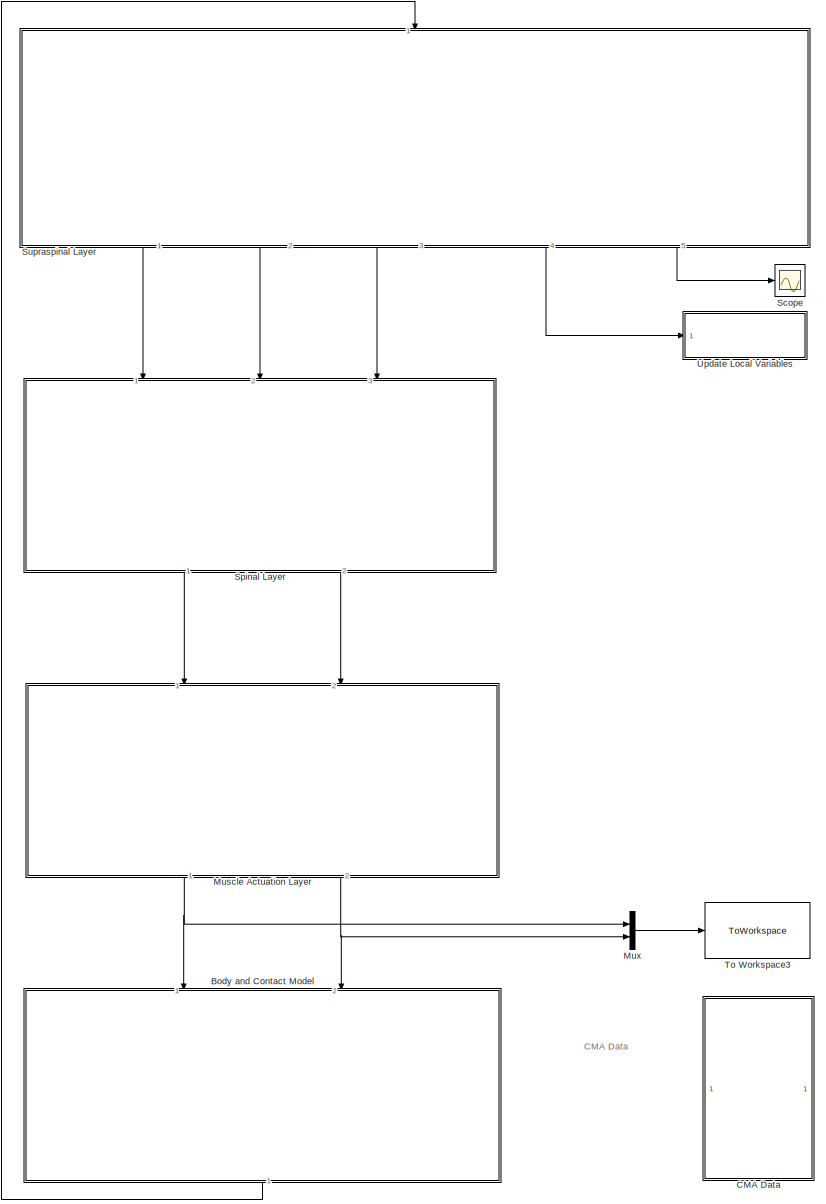
[diagram: root canvas - part 1/2, center side, full height]
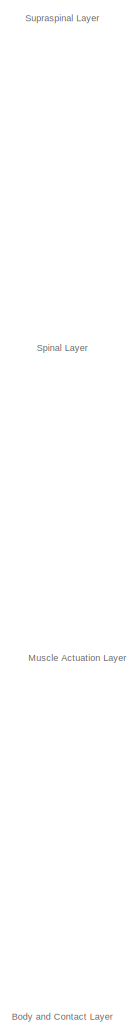
[diagram: root canvas - part 2/2, left side, full height]
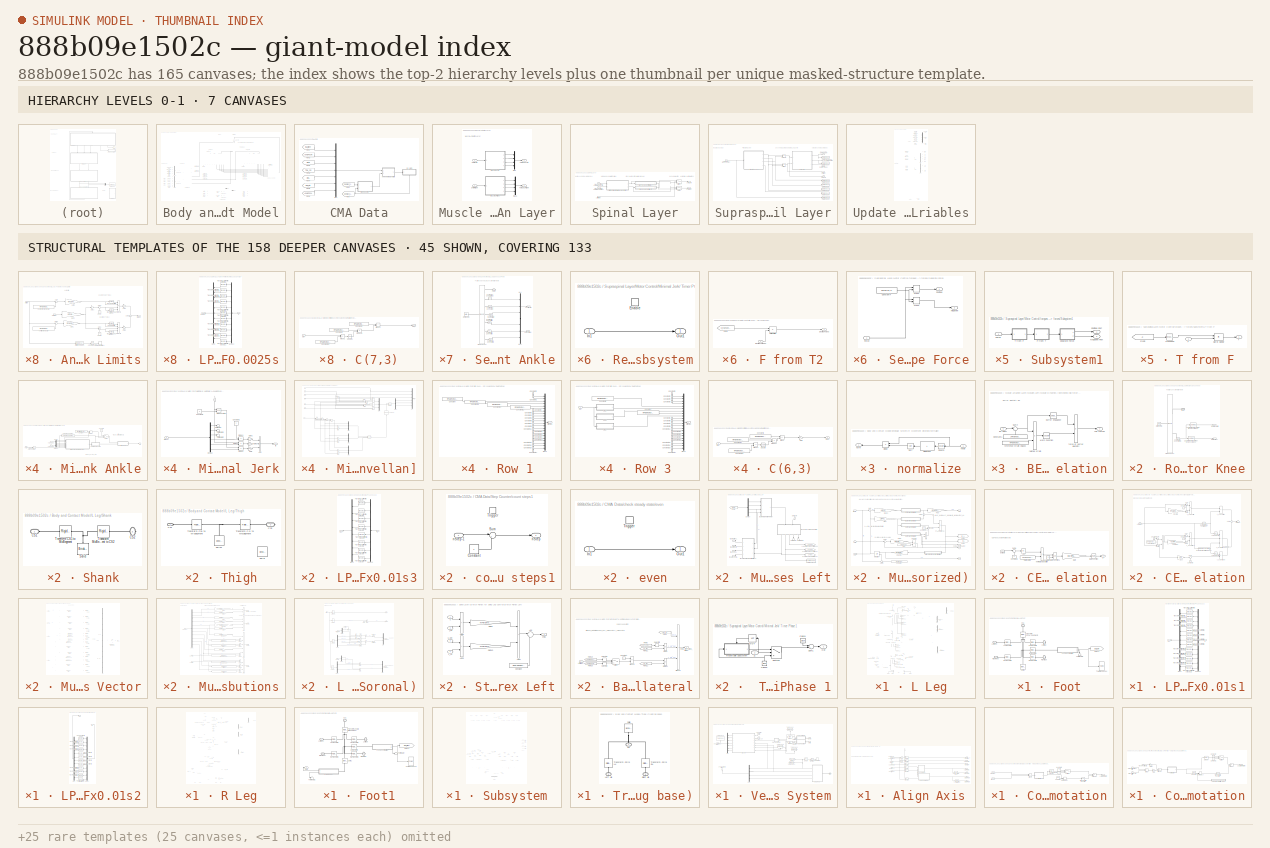
[diagram: thumbnail index - top-2 hierarchy levels (7 canvases) + 45 structural-template representatives of the remaining 158 canvases]
MODEL slx_888b09e1502c
KIND model
CONFIG AbsTol = auto
CONFIG EnableMultiTasking = off
CONFIG FixedStep = auto
CONFIG MaxStep = 1e-1
CONFIG MinStep = auto
CONFIG RelTol = 1e-3
CONFIG SampleTimeConstraint = Unconstrained
CONFIG SolverName = ode45
CONFIG StartFcn = tic
CONFIG StartTime = 0.0
CONFIG StopFcn = toc\n\n\n%if GimbalLockFlag \n % fprintf(2, 'Almost reached Gimbal Lock of IMU. Simulation stopped.\n')\n%end\n\n%fprintf('Elapsed time: %4.2f sec (%4.2f%% realtime)\n', a, tout(end)/a*100)
CONFIG StopTime = 50
BLOCK [SubSystem] Body and Contact Model
  NameLocation = right
  Ports = [2, 1]
  RequestExecContextInheritance = off
BLOCK [Reference] Body and Contact Model/6-DOF Joint IC  REF=sm_lib/Joints/6-DOF Joint
  NameLocation = left
  Ports = [0, 0, 0, 0, 0, 1, 1]
  SourceBlock = sm_lib/Joints/6-DOF Joint
  SourceProductBaseCode = MS
  SourceType = 6-DOF Joint
BLOCK [Demux] Body and Contact Model/Demux
  NameLocation = top
  Outputs = 7
  Ports = [1, 7]
BLOCK [Demux] Body and Contact Model/Demux1
  NameLocation = top
  Ports = [1, 4]
BLOCK [Goto] Body and Contact Model/Goto1
  GotoTag = RotationVelocityTrunk
  NameLocation = top
  TagVisibility = global
BLOCK [Goto] Body and Contact Model/Goto10
  GotoTag = Llegdq
  NameLocation = top
  TagVisibility = global
BLOCK [Goto] Body and Contact Model/Goto11
  GotoTag = Rlegdq
  NameLocation = top
  TagVisibility = global
BLOCK [Goto] Body and Contact Model/Goto15
  GotoTag = Llegddq
  NameLocation = top
  TagVisibility = global
BLOCK [Goto] Body and Contact Model/Goto2
  GotoTag = RotationTrunk
  NameLocation = top
  TagVisibility = global
BLOCK [Goto] Body and Contact Model/Goto3
  GotoTag = q_delayed
  NameLocation = top
  TagVisibility = global
BLOCK [Goto] Body and Contact Model/Goto4
  GotoTag = CoM_Position
  NameLocation = top
  TagVisibility = global
BLOCK [Goto] Body and Contact Model/Goto43
  GotoTag = AnklePosL_rot
  NameLocation = top
  TagVisibility = global
BLOCK [Goto] Body and Contact Model/Goto44
  GotoTag = AnklePosR_rot
  NameLocation = top
  TagVisibility = global
BLOCK [Goto] Body and Contact Model/Goto45
  GotoTag = CoM_Velocity_rot
  NameLocation = top
  TagVisibility = global
BLOCK [Goto] Body and Contact Model/Goto5
  GotoTag = CoM_Velocity
  NameLocation = top
  TagVisibility = global
BLOCK [Goto] Body and Contact Model/Goto50
  GotoTag = TrunkRot_sag
  NameLocation = top
  TagVisibility = global
BLOCK [Goto] Body and Contact Model/Goto51
  GotoTag = TrunkRot_lat
  NameLocation = top
  TagVisibility = global
BLOCK [Goto] Body and Contact Model/Goto52
  GotoTag = TrunkRotVel_sag
  NameLocation = top
  TagVisibility = global
BLOCK [Goto] Body and Contact Model/Goto53
  GotoTag = TrunkRotVel_lat
  NameLocation = top
  TagVisibility = global
BLOCK [Goto] Body and Contact Model/Goto6
  GotoTag = dq_delayed
  NameLocation = top
  TagVisibility = global
BLOCK [Goto] Body and Contact Model/Goto7
  GotoTag = Rlegddq
  NameLocation = top
  TagVisibility = global
BLOCK [Goto] Body and Contact Model/Goto8
  GotoTag = Rlegq
  NameLocation = top
  TagVisibility = global
BLOCK [Goto] Body and Contact Model/Goto9
  GotoTag = Llegq
  NameLocation = top
  TagVisibility = global
BLOCK [Outport] Body and Contact Model/Information: Ground Contact
  NameLocation = right
BLOCK [SubSystem] Body and Contact Model/L Leg
  NameLocation = left
  Ports = [1, 5, 0, 0, 0, 1, 4]
  RequestExecContextInheritance = off
BLOCK [Reference] Body and Contact Model/L Leg/ K Actuator  REF=nesl_utility/Simulink-PS
Converter
  NameLocation = top
  Ports = [1, 0, 0, 0, 0, 0, 1]
  SourceBlock = nesl_utility/Simulink-PS\nConverter
  SourceProductBaseCode = PW,SS
  SourceType = Simulink-PS\nConverter
BLOCK [Outport] Body and Contact Model/L Leg/ Position Left Ankle [m]
  NameLocation = top
  Port = 2
BLOCK [Reference] Body and Contact Model/L Leg/A Actuator  REF=nesl_utility/Simulink-PS
Converter
  NameLocation = top
  Ports = [1, 0, 0, 0, 0, 0, 1]
  SourceBlock = nesl_utility/Simulink-PS\nConverter
  SourceProductBaseCode = PW,SS
  SourceType = Simulink-PS\nConverter
BLOCK [Reference] Body and Contact Model/L Leg/A Pos Sensor  REF=nesl_utility/PS-Simulink
Converter
  Ports = [0, 1, 0, 0, 0, 1]
  SourceBlock = nesl_utility/PS-Simulink\nConverter
  SourceProductBaseCode = PW,SS
  SourceType = PS-Simulink\nConverter
BLOCK [Reference] Body and Contact Model/L Leg/A Vel Sensor  REF=nesl_utility/PS-Simulink
Converter
  NameLocation = top
  Ports = [0, 1, 0, 0, 0, 1]
  SourceBlock = nesl_utility/PS-Simulink\nConverter
  SourceProductBaseCode = PW,SS
  SourceType = PS-Simulink\nConverter
BLOCK [Reference] Body and Contact Model/L Leg/A acc Sensor  REF=nesl_utility/PS-Simulink
Converter
  Ports = [0, 1, 0, 0, 0, 1]
  SourceBlock = nesl_utility/PS-Simulink\nConverter
  SourceProductBaseCode = PW,SS
  SourceType = PS-Simulink\nConverter
BLOCK [SubSystem] Body and Contact Model/L Leg/Ankle Mechanical Limits
  NameLocation = right
  Ports = [2, 1]
  RequestExecContextInheritance = off
BLOCK [Gain] Body and Contact Model/L Leg/Ankle Mechanical Limits/Gain1
  Gain = mParams.joints.ankle.kStop
BLOCK [Gain] Body and Contact Model/L Leg/Ankle Mechanical Limits/Gain2
  Gain = -1
  NameLocation = top
BLOCK [Gain] Body and Contact Model/L Leg/Ankle Mechanical Limits/Gain3
  Gain = mParams.joints.ankle.kStop
BLOCK [Gain] Body and Contact Model/L Leg/Ankle Mechanical Limits/Gain4
  Gain = 1/mParams.joints.ankle.wMaxStop
BLOCK [Gain] Body and Contact Model/L Leg/Ankle Mechanical Limits/Gain5
  Gain = -1
  NameLocation = top
BLOCK [Gain] Body and Contact Model/L Leg/Ankle Mechanical Limits/Gain6
  Gain = -1
  NameLocation = top
BLOCK [Reference] Body and Contact Model/L Leg/Ankle Mechanical Limits/Limit Knee Range  REF=simulink/Logic and Bit
Operations/Interval Test
  AttributesFormatString = Lower limits: %<lowlimit>\nUpper limits: %<uplimit>
  Commented = on
  Ports = [1, 1]
  SourceBlock = simulink/Logic and Bit\nOperations/Interval Test
  SourceProductBaseCode = SL
  SourceType = Interval Test
BLOCK [Logic] Body and Contact Model/L Leg/Ankle Mechanical Limits/Logical Operator3
  AllPortsSameDT = off
  Commented = on
  NameLocation = top
  Operator = NOT
  OutDataTypeStr = boolean
  Ports = [1, 1]
BLOCK [Product] Body and Contact Model/L Leg/Ankle Mechanical Limits/Product1
  Inputs = 4
  Ports = [4, 1]
BLOCK [Product] Body and Contact Model/L Leg/Ankle Mechanical Limits/Product2
  Inputs = 4
  Ports = [4, 1]
BLOCK [Stop] Body and Contact Model/L Leg/Ankle Mechanical Limits/Stop Simulation1
  Commented = on
  NameLocation = top
BLOCK [Sum] Body and Contact Model/L Leg/Ankle Mechanical Limits/Sum
  Inputs = |+-
  Ports = [2, 1]
BLOCK [Sum] Body and Contact Model/L Leg/Ankle Mechanical Limits/Sum1
  Inputs = |+-
  Ports = [2, 1]
BLOCK [Sum] Body and Contact Model/L Leg/Ankle Mechanical Limits/Sum2
  Ports = [2, 1]
BLOCK [Sum] Body and Contact Model/L Leg/Ankle Mechanical Limits/Sum3
  Inputs = |-+
  Ports = [2, 1]
BLOCK [Sum] Body and Contact Model/L Leg/Ankle Mechanical Limits/Sum4
  Inputs = |-+
  Ports = [2, 1]
BLOCK [Reference] Body and Contact Model/L Leg/Ankle Mechanical Limits/above upper limit?  REF=simulink/Logic and Bit
Operations/Compare
To Zero
  NameLocation = top
  Ports = [1, 1]
  SourceBlock = simulink/Logic and Bit\nOperations/Compare\nTo Zero
  SourceProductBaseCode = SL
  SourceType = Compare To Zero
BLOCK [Reference] Body and Contact Model/L Leg/Ankle Mechanical Limits/below lower limit?  REF=simulink/Logic and Bit
Operations/Compare
To Zero
  NameLocation = top
  Ports = [1, 1]
  SourceBlock = simulink/Logic and Bit\nOperations/Compare\nTo Zero
  SourceProductBaseCode = SL
  SourceType = Compare To Zero
BLOCK [Constant] Body and Contact Model/L Leg/Ankle Mechanical Limits/const
  NameLocation = right
BLOCK [Constant] Body and Contact Model/L Leg/Ankle Mechanical Limits/const1
  NameLocation = right
BLOCK [Inport] Body and Contact Model/L Leg/Ankle Mechanical Limits/dq [rad//s]
BLOCK [Reference] Body and Contact Model/L Leg/Ankle Mechanical Limits/mech limit pushes back?  REF=simulink/Logic and Bit
Operations/Compare
To Zero
  Ports = [1, 1]
  SourceBlock = simulink/Logic and Bit\nOperations/Compare\nTo Zero
  SourceProductBaseCode = SL
  SourceType = Compare To Zero
BLOCK [Reference] Body and Contact Model/L Leg/Ankle Mechanical Limits/mech limit pushes back?.  REF=simulink/Logic and Bit
Operations/Compare
To Zero
  Ports = [1, 1]
  SourceBlock = simulink/Logic and Bit\nOperations/Compare\nTo Zero
  SourceProductBaseCode = SL
  SourceType = Compare To Zero
BLOCK [Constant] Body and Contact Model/L Leg/Ankle Mechanical Limits/overextension angle
  Value = mParams.joints.ankle.MaxPitch
BLOCK [Constant] Body and Contact Model/L Leg/Ankle Mechanical Limits/overflexion angle
  Value = mParams.joints.ankle.MinPitch
BLOCK [Inport] Body and Contact Model/L Leg/Ankle Mechanical Limits/q [rad]
  NameLocation = top
  Port = 2
BLOCK [Outport] Body and Contact Model/L Leg/Ankle Mechanical Limits/tau [Nm]
  VectorParamsAs1DForOutWhenUnconnected = off
BLOCK [Reference] Body and Contact Model/L Leg/Compare To Constant1  REF=simulink/Logic and Bit
Operations/Compare
To Constant
  NameLocation = top
  Ports = [1, 1]
  SourceBlock = simulink/Logic and Bit\nOperations/Compare\nTo Constant
  SourceProductBaseCode = SL
  SourceType = Compare To Constant
BLOCK [Demux] Body and Contact Model/L Leg/Demux
  NameLocation = top
  Ports = [1, 4]
BLOCK [SubSystem] Body and Contact Model/L Leg/Foot
  Ports = [0, 0, 0, 0, 0, 3, 2]
  RequestExecContextInheritance = off
BLOCK [SubSystem] Body and Contact Model/L Leg/Foot/  XYZ Sensor Ball left
  Ports = [0, 2, 0, 0, 0, 1]
  RequestExecContextInheritance = off
BLOCK [Reference] Body and Contact Model/L Leg/Foot/  XYZ Sensor Ball left/Frame Sensor  REF=sm_lib/Frames and
Transforms/Transform
Sensor
  Ports = [0, 0, 0, 0, 0, 1, 7]
  SourceBlock = sm_lib/Frames and\nTransforms/Transform\nSensor
  SourceProductBaseCode = MS
  SourceType = Transform\nSensor
BLOCK [Mux] Body and Contact Model/L Leg/Foot/  XYZ Sensor Ball left/Mux3
  DisplayOption = bar
  Inputs = 3
  Ports = [3, 1]
BLOCK [Mux] Body and Contact Model/L Leg/Foot/  XYZ Sensor Ball left/Mux4
  DisplayOption = bar
  Inputs = 3
  Ports = [3, 1]
BLOCK [Reference] Body and Contact Model/L Leg/Foot/  XYZ Sensor Ball left/PS-Simulink Converter  REF=nesl_utility/PS-Simulink
Converter
  Ports = [0, 1, 0, 0, 0, 1]
  SourceBlock = nesl_utility/PS-Simulink\nConverter
  SourceProductBaseCode = PW,SS
  SourceType = PS-Simulink\nConverter
BLOCK [Reference] Body and Contact Model/L Leg/Foot/  XYZ Sensor Ball left/PS-Simulink Converter1  REF=nesl_utility/PS-Simulink
Converter
  Ports = [0, 1, 0, 0, 0, 1]
  SourceBlock = nesl_utility/PS-Simulink\nConverter
  SourceProductBaseCode = PW,SS
  SourceType = PS-Simulink\nConverter
BLOCK [Reference] Body and Contact Model/L Leg/Foot/  XYZ Sensor Ball left/PS-Simulink Converter2  REF=nesl_utility/PS-Simulink
Converter
  Ports = [0, 1, 0, 0, 0, 1]
  SourceBlock = nesl_utility/PS-Simulink\nConverter
  SourceProductBaseCode = PW,SS
  SourceType = PS-Simulink\nConverter
BLOCK [Reference] Body and Contact Model/L Leg/Foot/  XYZ Sensor Ball left/PS-Simulink Converter3  REF=nesl_utility/PS-Simulink
Converter
  Ports = [0, 1, 0, 0, 0, 1]
  SourceBlock = nesl_utility/PS-Simulink\nConverter
  SourceProductBaseCode = PW,SS
  SourceType = PS-Simulink\nConverter
BLOCK [Reference] Body and Contact Model/L Leg/Foot/  XYZ Sensor Ball left/PS-Simulink Converter4  REF=nesl_utility/PS-Simulink
Converter
  Ports = [0, 1, 0, 0, 0, 1]
  SourceBlock = nesl_utility/PS-Simulink\nConverter
  SourceProductBaseCode = PW,SS
  SourceType = PS-Simulink\nConverter
BLOCK [Reference] Body and Contact Model/L Leg/Foot/  XYZ Sensor Ball left/PS-Simulink Converter5  REF=nesl_utility/PS-Simulink
Converter
  Ports = [0, 1, 0, 0, 0, 1]
  SourceBlock = nesl_utility/PS-Simulink\nConverter
  SourceProductBaseCode = PW,SS
  SourceType = PS-Simulink\nConverter
BLOCK [Reference] Body and Contact Model/L Leg/Foot/  XYZ Sensor Ball left/World Frame  REF=sm_lib/Frames and
Transforms/World Frame
  Ports = [0, 0, 0, 0, 0, 0, 1]
  SourceBlock = sm_lib/Frames and\nTransforms/World Frame
  SourceProductBaseCode = MS
  SourceType = World Frame
BLOCK [PMIOPort] Body and Contact Model/L Leg/Foot/  XYZ Sensor Ball left/frame
  NameLocation = top
  Side = Left
BLOCK [Outport] Body and Contact Model/L Leg/Foot/  XYZ Sensor Ball left/p_bLH [m x3]
  VectorParamsAs1DForOutWhenUnconnected = off
BLOCK [Outport] Body and Contact Model/L Leg/Foot/  XYZ Sensor Ball left/v_bLH [m//s x3]
  Port = 2
  VectorParamsAs1DForOutWhenUnconnected = off
BLOCK [Reference] Body and Contact Model/L Leg/Foot/B Transform  REF=sm_lib/Frames and
Transforms/Rigid
Transform
  NameLocation = top
  Ports = [0, 0, 0, 0, 0, 1, 1]
  SourceBlock = sm_lib/Frames and\nTransforms/Rigid\nTransform
  SourceProductBaseCode = MS
  SourceType = Rigid\nTransform
BLOCK [PMIOPort] Body and Contact Model/L Leg/Foot/CS1
  NameLocation = right
  Side = Left
BLOCK [Goto] Body and Contact Model/L Leg/Foot/Goto11
  GotoTag = Ball_left
  TagVisibility = global
BLOCK [Reference] Body and Contact Model/L Leg/Foot/LB Transform  REF=sm_lib/Frames and
Transforms/Rigid
Transform
  NameLocation = top
  Ports = [0, 0, 0, 0, 0, 1, 1]
  SourceBlock = sm_lib/Frames and\nTransforms/Rigid\nTransform
  SourceProductBaseCode = MS
  SourceType = Rigid\nTransform
BLOCK [Reference] Body and Contact Model/L Leg/Foot/LH Transform  REF=sm_lib/Frames and
Transforms/Rigid
Transform
  Ports = [0, 0, 0, 0, 0, 1, 1]
  SourceBlock = sm_lib/Frames and\nTransforms/Rigid\nTransform
  SourceProductBaseCode = MS
  SourceType = Rigid\nTransform
BLOCK [PMIOPort] Body and Contact Model/L Leg/Foot/Left Ball
  NameLocation = top
  Port = 2
  Side = Right
BLOCK [PMIOPort] Body and Contact Model/L Leg/Foot/Left Heel
  Port = 3
  Side = Left
BLOCK [Reference] Body and Contact Model/L Leg/Foot/RB Transform  REF=sm_lib/Frames and
Transforms/Rigid
Transform
  Ports = [0, 0, 0, 0, 0, 1, 1]
  SourceBlock = sm_lib/Frames and\nTransforms/Rigid\nTransform
  SourceProductBaseCode = MS
  SourceType = Rigid\nTransform
BLOCK [Reference] Body and Contact Model/L Leg/Foot/RH Transform  REF=sm_lib/Frames and
Transforms/Rigid
Transform
  NameLocation = top
  Ports = [0, 0, 0, 0, 0, 1, 1]
  SourceBlock = sm_lib/Frames and\nTransforms/Rigid\nTransform
  SourceProductBaseCode = MS
  SourceType = Rigid\nTransform
BLOCK [PMIOPort] Body and Contact Model/L Leg/Foot/Right Ball
  NameLocation = top
  Port = 4
  Side = Right
BLOCK [PMIOPort] Body and Contact Model/L Leg/Foot/Right Heel
  Port = 5
  Side = Left
BLOCK [Reference] Body and Contact Model/L Leg/Foot/Solid1  REF=sm_lib/Body Elements/Brick Solid
  NameLocation = left
  Ports = [0, 0, 0, 0, 0, 1, 1]
  SourceBlock = sm_lib/Body Elements/Brick Solid
  SourceProductBaseCode = MS
  SourceType = Brick Solid
BLOCK [Terminator] Body and Contact Model/L Leg/Foot/Terminator2
  NameLocation = left
BLOCK [ToWorkspace] Body and Contact Model/L Leg/Foot/To Workspace4
  FixptAsFi = on
  MaxDataPoints = inf
  Ports = [1]
  SampleTime = -1
  Save2DSignal = 2-D array (concatenate along first dimension)
  VariableName = Ball_left
BLOCK [Reference] Body and Contact Model/L Leg/Foot/Transform CS1(Ankle) to MidSegment1  REF=sm_lib/Frames and
Transforms/Rigid
Transform
  NameLocation = right
  Ports = [0, 0, 0, 0, 0, 1, 1]
  SourceBlock = sm_lib/Frames and\nTransforms/Rigid\nTransform
  SourceProductBaseCode = MS
  SourceType = Rigid\nTransform
BLOCK [Goto] Body and Contact Model/L Leg/Goto6
  GotoTag = AnklePosL
  NameLocation = top
  TagVisibility = global
BLOCK [Reference] Body and Contact Model/L Leg/H Pitch Acc Sensor  REF=nesl_utility/PS-Simulink
Converter
  NameLocation = top
  Ports = [0, 1, 0, 0, 0, 1]
  SourceBlock = nesl_utility/PS-Simulink\nConverter
  SourceProductBaseCode = PW,SS
  SourceType = PS-Simulink\nConverter
BLOCK [Reference] Body and Contact Model/L Leg/H Pitch Actuator  REF=nesl_utility/Simulink-PS
Converter
  NameLocation = top
  Ports = [1, 0, 0, 0, 0, 0, 1]
  SourceBlock = nesl_utility/Simulink-PS\nConverter
  SourceProductBaseCode = PW,SS
  SourceType = Simulink-PS\nConverter
BLOCK [Reference] Body and Contact Model/L Leg/H Pitch Pos Sensor  REF=nesl_utility/PS-Simulink
Converter
  Ports = [0, 1, 0, 0, 0, 1]
  SourceBlock = nesl_utility/PS-Simulink\nConverter
  SourceProductBaseCode = PW,SS
  SourceType = PS-Simulink\nConverter
BLOCK [Reference] Body and Contact Model/L Leg/H Pitch Vel Sensor  REF=nesl_utility/PS-Simulink
Converter
  NameLocation = top
  Ports = [0, 1, 0, 0, 0, 1]
  SourceBlock = nesl_utility/PS-Simulink\nConverter
  SourceProductBaseCode = PW,SS
  SourceType = PS-Simulink\nConverter
BLOCK [Reference] Body and Contact Model/L Leg/H Roll Acc Sensor  REF=nesl_utility/PS-Simulink
Converter
  Ports = [0, 1, 0, 0, 0, 1]
  SourceBlock = nesl_utility/PS-Simulink\nConverter
  SourceProductBaseCode = PW,SS
  SourceType = PS-Simulink\nConverter
BLOCK [Reference] Body and Contact Model/L Leg/H Roll Actuator  REF=nesl_utility/Simulink-PS
Converter
  Ports = [1, 0, 0, 0, 0, 0, 1]
  SourceBlock = nesl_utility/Simulink-PS\nConverter
  SourceProductBaseCode = PW,SS
  SourceType = Simulink-PS\nConverter
BLOCK [Reference] Body and Contact Model/L Leg/H Roll Pos Sensor  REF=nesl_utility/PS-Simulink
Converter
  Ports = [0, 1, 0, 0, 0, 1]
  SourceBlock = nesl_utility/PS-Simulink\nConverter
  SourceProductBaseCode = PW,SS
  SourceType = PS-Simulink\nConverter
BLOCK [Reference] Body and Contact Model/L Leg/H Roll Vel Sensor   REF=nesl_utility/PS-Simulink
Converter
  NameLocation = top
  Ports = [0, 1, 0, 0, 0, 1]
  SourceBlock = nesl_utility/PS-Simulink\nConverter
  SourceProductBaseCode = PW,SS
  SourceType = PS-Simulink\nConverter
BLOCK [SubSystem] Body and Contact Model/L Leg/Hip Pitch Mechanical Limits
  NameLocation = right
  Ports = [2, 1]
  RequestExecContextInheritance = off
BLOCK [Gain] Body and Contact Model/L Leg/Hip Pitch Mechanical Limits/Gain1
  Gain = mParams.joints.hip.kStop
BLOCK [Gain] Body and Contact Model/L Leg/Hip Pitch Mechanical Limits/Gain2
  Gain = -1
  NameLocation = top
BLOCK [Gain] Body and Contact Model/L Leg/Hip Pitch Mechanical Limits/Gain3
  Gain = mParams.joints.hip.kStop
BLOCK [Gain] Body and Contact Model/L Leg/Hip Pitch Mechanical Limits/Gain4
  Gain = 1/mParams.joints.hip.wMaxStop
BLOCK [Gain] Body and Contact Model/L Leg/Hip Pitch Mechanical Limits/Gain5
  Gain = -1
  NameLocation = top
BLOCK [Gain] Body and Contact Model/L Leg/Hip Pitch Mechanical Limits/Gain6
  Gain = -1
  NameLocation = top
BLOCK [Reference] Body and Contact Model/L Leg/Hip Pitch Mechanical Limits/Limit Joint Range  REF=simulink/Logic and Bit
Operations/Interval Test
  AttributesFormatString = Lower limits: %<lowlimit>\nUpper limits: %<uplimit>
  Commented = on
  Ports = [1, 1]
  SourceBlock = simulink/Logic and Bit\nOperations/Interval Test
  SourceProductBaseCode = SL
  SourceType = Interval Test
BLOCK [Logic] Body and Contact Model/L Leg/Hip Pitch Mechanical Limits/Logical Operator3
  AllPortsSameDT = off
  Commented = on
  NameLocation = top
  Operator = NOT
  OutDataTypeStr = boolean
  Ports = [1, 1]
BLOCK [Product] Body and Contact Model/L Leg/Hip Pitch Mechanical Limits/Product1
  Inputs = 4
  Ports = [4, 1]
BLOCK [Product] Body and Contact Model/L Leg/Hip Pitch Mechanical Limits/Product2
  Inputs = 4
  Ports = [4, 1]
BLOCK [Stop] Body and Contact Model/L Leg/Hip Pitch Mechanical Limits/Stop Simulation1
  Commented = on
  NameLocation = top
BLOCK [Sum] Body and Contact Model/L Leg/Hip Pitch Mechanical Limits/Sum
  Inputs = |+-
  Ports = [2, 1]
BLOCK [Sum] Body and Contact Model/L Leg/Hip Pitch Mechanical Limits/Sum1
  Inputs = |+-
  Ports = [2, 1]
BLOCK [Sum] Body and Contact Model/L Leg/Hip Pitch Mechanical Limits/Sum2
  Ports = [2, 1]
BLOCK [Sum] Body and Contact Model/L Leg/Hip Pitch Mechanical Limits/Sum3
  Inputs = |-+
  Ports = [2, 1]
BLOCK [Sum] Body and Contact Model/L Leg/Hip Pitch Mechanical Limits/Sum4
  Inputs = |-+
  Ports = [2, 1]
BLOCK [Reference] Body and Contact Model/L Leg/Hip Pitch Mechanical Limits/above upper limit?  REF=simulink/Logic and Bit
Operations/Compare
To Zero
  NameLocation = top
  Ports = [1, 1]
  SourceBlock = simulink/Logic and Bit\nOperations/Compare\nTo Zero
  SourceProductBaseCode = SL
  SourceType = Compare To Zero
BLOCK [Reference] Body and Contact Model/L Leg/Hip Pitch Mechanical Limits/below lower limit?  REF=simulink/Logic and Bit
Operations/Compare
To Zero
  NameLocation = top
  Ports = [1, 1]
  SourceBlock = simulink/Logic and Bit\nOperations/Compare\nTo Zero
  SourceProductBaseCode = SL
  SourceType = Compare To Zero
BLOCK [Constant] Body and Contact Model/L Leg/Hip Pitch Mechanical Limits/const
  NameLocation = right
BLOCK [Constant] Body and Contact Model/L Leg/Hip Pitch Mechanical Limits/const1
  NameLocation = right
BLOCK [Inport] Body and Contact Model/L Leg/Hip Pitch Mechanical Limits/dq [rad//s]
BLOCK [Reference] Body and Contact Model/L Leg/Hip Pitch Mechanical Limits/mech limit pushes back?  REF=simulink/Logic and Bit
Operations/Compare
To Zero
  Ports = [1, 1]
  SourceBlock = simulink/Logic and Bit\nOperations/Compare\nTo Zero
  SourceProductBaseCode = SL
  SourceType = Compare To Zero
BLOCK [Reference] Body and Contact Model/L Leg/Hip Pitch Mechanical Limits/mech limit pushes back?.  REF=simulink/Logic and Bit
Operations/Compare
To Zero
  Ports = [1, 1]
  SourceBlock = simulink/Logic and Bit\nOperations/Compare\nTo Zero
  SourceProductBaseCode = SL
  SourceType = Compare To Zero
BLOCK [Constant] Body and Contact Model/L Leg/Hip Pitch Mechanical Limits/overextension angle
  Value = mParams.joints.hip.MaxPitch
BLOCK [Constant] Body and Contact Model/L Leg/Hip Pitch Mechanical Limits/overflexion angle
  Value = mParams.joints.hip.MinPitch
BLOCK [Inport] Body and Contact Model/L Leg/Hip Pitch Mechanical Limits/q [rad]
  NameLocation = top
  Port = 2
BLOCK [Outport] Body and Contact Model/L Leg/Hip Pitch Mechanical Limits/tau [Nm]
  VectorParamsAs1DForOutWhenUnconnected = off
BLOCK [SubSystem] Body and Contact Model/L Leg/Hip Roll Mechanical Limits
  NameLocation = right
  Ports = [2, 1]
  RequestExecContextInheritance = off
BLOCK [Gain] Body and Contact Model/L Leg/Hip Roll Mechanical Limits/Gain1
  Gain = mParams.joints.hip.kStop
BLOCK [Gain] Body and Contact Model/L Leg/Hip Roll Mechanical Limits/Gain2
  Gain = -1
  NameLocation = top
BLOCK [Gain] Body and Contact Model/L Leg/Hip Roll Mechanical Limits/Gain3
  Gain = mParams.joints.hip.kStop
BLOCK [Gain] Body and Contact Model/L Leg/Hip Roll Mechanical Limits/Gain4
  Gain = 1/mParams.joints.hip.wMaxStop
BLOCK [Gain] Body and Contact Model/L Leg/Hip Roll Mechanical Limits/Gain5
  Gain = -1
  NameLocation = top
BLOCK [Gain] Body and Contact Model/L Leg/Hip Roll Mechanical Limits/Gain6
  Gain = -1
  NameLocation = top
BLOCK [Reference] Body and Contact Model/L Leg/Hip Roll Mechanical Limits/Limit Joint Range  REF=simulink/Logic and Bit
Operations/Interval Test
  AttributesFormatString = Lower limits: %<lowlimit>\nUpper limits: %<uplimit>
  Commented = on
  Ports = [1, 1]
  SourceBlock = simulink/Logic and Bit\nOperations/Interval Test
  SourceProductBaseCode = SL
  SourceType = Interval Test
BLOCK [Logic] Body and Contact Model/L Leg/Hip Roll Mechanical Limits/Logical Operator3
  AllPortsSameDT = off
  Commented = on
  NameLocation = top
  Operator = NOT
  OutDataTypeStr = boolean
  Ports = [1, 1]
BLOCK [Product] Body and Contact Model/L Leg/Hip Roll Mechanical Limits/Product1
  Inputs = 4
  Ports = [4, 1]
BLOCK [Product] Body and Contact Model/L Leg/Hip Roll Mechanical Limits/Product2
  Inputs = 4
  Ports = [4, 1]
BLOCK [Stop] Body and Contact Model/L Leg/Hip Roll Mechanical Limits/Stop Simulation1
  Commented = on
  NameLocation = top
BLOCK [Sum] Body and Contact Model/L Leg/Hip Roll Mechanical Limits/Sum
  Inputs = |+-
  Ports = [2, 1]
BLOCK [Sum] Body and Contact Model/L Leg/Hip Roll Mechanical Limits/Sum1
  Inputs = |+-
  Ports = [2, 1]
BLOCK [Sum] Body and Contact Model/L Leg/Hip Roll Mechanical Limits/Sum2
  Ports = [2, 1]
BLOCK [Sum] Body and Contact Model/L Leg/Hip Roll Mechanical Limits/Sum3
  Inputs = |-+
  Ports = [2, 1]
BLOCK [Sum] Body and Contact Model/L Leg/Hip Roll Mechanical Limits/Sum4
  Inputs = |-+
  Ports = [2, 1]
BLOCK [Reference] Body and Contact Model/L Leg/Hip Roll Mechanical Limits/above upper limit?  REF=simulink/Logic and Bit
Operations/Compare
To Zero
  NameLocation = top
  Ports = [1, 1]
  SourceBlock = simulink/Logic and Bit\nOperations/Compare\nTo Zero
  SourceProductBaseCode = SL
  SourceType = Compare To Zero
BLOCK [Reference] Body and Contact Model/L Leg/Hip Roll Mechanical Limits/below lower limit?  REF=simulink/Logic and Bit
Operations/Compare
To Zero
  NameLocation = top
  Ports = [1, 1]
  SourceBlock = simulink/Logic and Bit\nOperations/Compare\nTo Zero
  SourceProductBaseCode = SL
  SourceType = Compare To Zero
BLOCK [Constant] Body and Contact Model/L Leg/Hip Roll Mechanical Limits/const
  NameLocation = right
BLOCK [Constant] Body and Contact Model/L Leg/Hip Roll Mechanical Limits/const1
  NameLocation = right
BLOCK [Inport] Body and Contact Model/L Leg/Hip Roll Mechanical Limits/dq [rad//s]
BLOCK [Reference] Body and Contact Model/L Leg/Hip Roll Mechanical Limits/mech limit pushes back?  REF=simulink/Logic and Bit
Operations/Compare
To Zero
  Ports = [1, 1]
  SourceBlock = simulink/Logic and Bit\nOperations/Compare\nTo Zero
  SourceProductBaseCode = SL
  SourceType = Compare To Zero
BLOCK [Reference] Body and Contact Model/L Leg/Hip Roll Mechanical Limits/mech limit pushes back?.  REF=simulink/Logic and Bit
Operations/Compare
To Zero
  Ports = [1, 1]
  SourceBlock = simulink/Logic and Bit\nOperations/Compare\nTo Zero
  SourceProductBaseCode = SL
  SourceType = Compare To Zero
BLOCK [Constant] Body and Contact Model/L Leg/Hip Roll Mechanical Limits/overextension angle
  Value = mParams.joints.hip.MaxRoll
BLOCK [Constant] Body and Contact Model/L Leg/Hip Roll Mechanical Limits/overflexion angle
  Value = mParams.joints.hip.MinRoll
BLOCK [Inport] Body and Contact Model/L Leg/Hip Roll Mechanical Limits/q [rad]
  NameLocation = top
  Port = 2
BLOCK [Outport] Body and Contact Model/L Leg/Hip Roll Mechanical Limits/tau [Nm]
  VectorParamsAs1DForOutWhenUnconnected = off
BLOCK [Outport] Body and Contact Model/L Leg/Joint Accelerations Left [rad//s^2]
  Port = 5
BLOCK [Outport] Body and Contact Model/L Leg/Joint Angles Left [rad]
  Port = 3
BLOCK [Outport] Body and Contact Model/L Leg/Joint Velocities Left [rad//s] 
  Port = 4
BLOCK [Reference] Body and Contact Model/L Leg/K Acc Sensor  REF=nesl_utility/PS-Simulink
Converter
  Ports = [0, 1, 0, 0, 0, 1]
  SourceBlock = nesl_utility/PS-Simulink\nConverter
  SourceProductBaseCode = PW,SS
  SourceType = PS-Simulink\nConverter
BLOCK [Reference] Body and Contact Model/L Leg/K Pos Sensor  REF=nesl_utility/PS-Simulink
Converter
  Ports = [0, 1, 0, 0, 0, 1]
  SourceBlock = nesl_utility/PS-Simulink\nConverter
  SourceProductBaseCode = PW,SS
  SourceType = PS-Simulink\nConverter
BLOCK [Reference] Body and Contact Model/L Leg/K Vel Sensor  REF=nesl_utility/PS-Simulink
Converter
  NameLocation = top
  Ports = [0, 1, 0, 0, 0, 1]
  SourceBlock = nesl_utility/PS-Simulink\nConverter
  SourceProductBaseCode = PW,SS
  SourceType = PS-Simulink\nConverter
BLOCK [SubSystem] Body and Contact Model/L Leg/Knee Mechanical Limits
  NameLocation = right
  Ports = [2, 1]
  RequestExecContextInheritance = off
BLOCK [Gain] Body and Contact Model/L Leg/Knee Mechanical Limits/Gain1
  Gain = mParams.joints.knee.kStop
BLOCK [Gain] Body and Contact Model/L Leg/Knee Mechanical Limits/Gain2
  Gain = -1
  NameLocation = top
BLOCK [Gain] Body and Contact Model/L Leg/Knee Mechanical Limits/Gain3
  Gain = mParams.joints.knee.kStop
BLOCK [Gain] Body and Contact Model/L Leg/Knee Mechanical Limits/Gain4
  Gain = 1/mParams.joints.knee.wMaxStop
BLOCK [Gain] Body and Contact Model/L Leg/Knee Mechanical Limits/Gain5
  Gain = -1
  NameLocation = top
BLOCK [Gain] Body and Contact Model/L Leg/Knee Mechanical Limits/Gain6
  Gain = -1
  NameLocation = top
BLOCK [Reference] Body and Contact Model/L Leg/Knee Mechanical Limits/Limit Knee Range  REF=simulink/Logic and Bit
Operations/Interval Test
  AttributesFormatString = Lower limits: %<lowlimit>\nUpper limits: %<uplimit>
  Ports = [1, 1]
  SourceBlock = simulink/Logic and Bit\nOperations/Interval Test
  SourceProductBaseCode = SL
  SourceType = Interval Test
BLOCK [Logic] Body and Contact Model/L Leg/Knee Mechanical Limits/Logical Operator3
  AllPortsSameDT = off
  NameLocation = top
  Operator = NOT
  OutDataTypeStr = boolean
  Ports = [1, 1]
BLOCK [Product] Body and Contact Model/L Leg/Knee Mechanical Limits/Product1
  Inputs = 4
  Ports = [4, 1]
BLOCK [Product] Body and Contact Model/L Leg/Knee Mechanical Limits/Product2
  Inputs = 4
  Ports = [4, 1]
BLOCK [Stop] Body and Contact Model/L Leg/Knee Mechanical Limits/Stop Simulation1
  NameLocation = top
BLOCK [Sum] Body and Contact Model/L Leg/Knee Mechanical Limits/Sum
  Inputs = |+-
  Ports = [2, 1]
BLOCK [Sum] Body and Contact Model/L Leg/Knee Mechanical Limits/Sum1
  Inputs = |+-
  Ports = [2, 1]
BLOCK [Sum] Body and Contact Model/L Leg/Knee Mechanical Limits/Sum2
  Ports = [2, 1]
BLOCK [Sum] Body and Contact Model/L Leg/Knee Mechanical Limits/Sum3
  Inputs = |-+
  Ports = [2, 1]
BLOCK [Sum] Body and Contact Model/L Leg/Knee Mechanical Limits/Sum4
  Inputs = |-+
  Ports = [2, 1]
BLOCK [Reference] Body and Contact Model/L Leg/Knee Mechanical Limits/above upper limit?  REF=simulink/Logic and Bit
Operations/Compare
To Zero
  NameLocation = top
  Ports = [1, 1]
  SourceBlock = simulink/Logic and Bit\nOperations/Compare\nTo Zero
  SourceProductBaseCode = SL
  SourceType = Compare To Zero
BLOCK [Reference] Body and Contact Model/L Leg/Knee Mechanical Limits/below lower limit?  REF=simulink/Logic and Bit
Operations/Compare
To Zero
  NameLocation = top
  Ports = [1, 1]
  SourceBlock = simulink/Logic and Bit\nOperations/Compare\nTo Zero
  SourceProductBaseCode = SL
  SourceType = Compare To Zero
BLOCK [Constant] Body and Contact Model/L Leg/Knee Mechanical Limits/const
  NameLocation = right
BLOCK [Constant] Body and Contact Model/L Leg/Knee Mechanical Limits/const1
  NameLocation = right
BLOCK [Inport] Body and Contact Model/L Leg/Knee Mechanical Limits/dq [rad//s]
BLOCK [Reference] Body and Contact Model/L Leg/Knee Mechanical Limits/mech limit pushes back?  REF=simulink/Logic and Bit
Operations/Compare
To Zero
  Ports = [1, 1]
  SourceBlock = simulink/Logic and Bit\nOperations/Compare\nTo Zero
  SourceProductBaseCode = SL
  SourceType = Compare To Zero
BLOCK [Reference] Body and Contact Model/L Leg/Knee Mechanical Limits/mech limit pushes back?.  REF=simulink/Logic and Bit
Operations/Compare
To Zero
  Ports = [1, 1]
  SourceBlock = simulink/Logic and Bit\nOperations/Compare\nTo Zero
  SourceProductBaseCode = SL
  SourceType = Compare To Zero
BLOCK [Constant] Body and Contact Model/L Leg/Knee Mechanical Limits/overextension angle
  Value = mParams.joints.knee.MaxPitch
BLOCK [Constant] Body and Contact Model/L Leg/Knee Mechanical Limits/overflexion angle
  Value = mParams.joints.knee.MinPitch
BLOCK [Inport] Body and Contact Model/L Leg/Knee Mechanical Limits/q [rad]
  NameLocation = top
  Port = 2
BLOCK [Outport] Body and Contact Model/L Leg/Knee Mechanical Limits/tau [Nm]
  VectorParamsAs1DForOutWhenUnconnected = off
BLOCK [Reference] Body and Contact Model/L Leg/LH Axis Inverse Rotation  REF=sm_lib/Frames and
Transforms/Rigid
Transform
  NameLocation = left
  Ports = [0, 0, 0, 0, 0, 1, 1]
  SourceBlock = sm_lib/Frames and\nTransforms/Rigid\nTransform
  SourceProductBaseCode = MS
  SourceType = Rigid\nTransform
BLOCK [Reference] Body and Contact Model/L Leg/LH Axis Rotation  REF=sm_lib/Frames and
Transforms/Rigid
Transform
  NameLocation = right
  Ports = [0, 0, 0, 0, 0, 1, 1]
  SourceBlock = sm_lib/Frames and\nTransforms/Rigid\nTransform
  SourceProductBaseCode = MS
  SourceType = Rigid\nTransform
BLOCK [Reference] Body and Contact Model/L Leg/LK Axis Rotation  REF=sm_lib/Frames and
Transforms/Rigid
Transform
  NameLocation = left
  Ports = [0, 0, 0, 0, 0, 1, 1]
  SourceBlock = sm_lib/Frames and\nTransforms/Rigid\nTransform
  SourceProductBaseCode = MS
  SourceType = Rigid\nTransform
BLOCK [Reference] Body and Contact Model/L Leg/Left Ankle (LA) Pitch  REF=sm_lib/Joints/Revolute Joint
  NameLocation = left
  Ports = [0, 0, 0, 0, 0, 2, 4]
  SourceBlock = sm_lib/Joints/Revolute Joint
  SourceProductBaseCode = MS
  SourceType = Revolute Joint
BLOCK [PMIOPort] Body and Contact Model/L Leg/Left Ball
  NameLocation = right
  Port = 3
  Side = Right
BLOCK [PMIOPort] Body and Contact Model/L Leg/Left Heel
  NameLocation = left
  Port = 2
  Side = Right
BLOCK [PMIOPort] Body and Contact Model/L Leg/Left Hip
  NameLocation = right
  Side = Left
BLOCK [Reference] Body and Contact Model/L Leg/Left Hip (LH) Pitch (about X) and Roll (about Y) Joints  REF=sm_lib/Joints/Universal
Joint
  NameLocation = left
  Ports = [0, 0, 0, 0, 0, 3, 7]
  SourceBlock = sm_lib/Joints/Universal\nJoint
  SourceProductBaseCode = MS
  SourceType = Universal\nJoint
BLOCK [Reference] Body and Contact Model/L Leg/Left Knee (LK) Pitch  REF=sm_lib/Joints/Revolute Joint
  NameLocation = left
  Ports = [0, 0, 0, 0, 0, 2, 4]
  SourceBlock = sm_lib/Joints/Revolute Joint
  SourceProductBaseCode = MS
  SourceType = Revolute Joint
BLOCK [Mux] Body and Contact Model/L Leg/Mux1
  DisplayOption = bar
  Ports = [4, 1]
BLOCK [Mux] Body and Contact Model/L Leg/Mux2
  DisplayOption = bar
  Ports = [4, 1]
BLOCK [Mux] Body and Contact Model/L Leg/Mux7
  DisplayOption = bar
  Ports = [4, 1]
BLOCK [PMIOPort] Body and Contact Model/L Leg/Right Ball
  NameLocation = right
  Port = 4
  Side = Right
BLOCK [PMIOPort] Body and Contact Model/L Leg/Right Heel
  NameLocation = left
  Port = 5
  Side = Right
BLOCK [Outport] Body and Contact Model/L Leg/Rotation Matrix Left Knee (world)
  NameLocation = top
BLOCK [SubSystem] Body and Contact Model/L Leg/Rotation Sensor Knee
  NameLocation = top
  Ports = [0, 2, 0, 0, 0, 1]
  RequestExecContextInheritance = off
BLOCK [Reference] Body and Contact Model/L Leg/Rotation Sensor Knee/Coordinate Transformation Conversion1  REF=robotcorelib/Coordinate Transformation Conversion
  Ports = [1, 1]
  SourceBlock = robotcorelib/Coordinate Transformation Conversion
  SourceProductBaseCode = NV,RO,RR,UV
  SourceType = robotics.slcore.internal.block.CoordinateTransformationConversion
BLOCK [Reference] Body and Contact Model/L Leg/Rotation Sensor Knee/Coordinate Transformation Conversion2  REF=robotcorelib/Coordinate Transformation Conversion
  Ports = [1, 1]
  SourceBlock = robotcorelib/Coordinate Transformation Conversion
  SourceProductBaseCode = NV,RO,RR,UV
  SourceType = robotics.slcore.internal.block.CoordinateTransformationConversion
BLOCK [Reference] Body and Contact Model/L Leg/Rotation Sensor Knee/Frame Sensor  REF=sm_lib/Frames and
Transforms/Transform
Sensor
  Ports = [0, 0, 0, 0, 0, 1, 2]
  SourceBlock = sm_lib/Frames and\nTransforms/Transform\nSensor
  SourceProductBaseCode = MS
  SourceType = Transform\nSensor
BLOCK [Reference] Body and Contact Model/L Leg/Rotation Sensor Knee/PS-Simulink Converter12  REF=nesl_utility/PS-Simulink
Converter
  Ports = [0, 1, 0, 0, 0, 1]
  SourceBlock = nesl_utility/PS-Simulink\nConverter
  SourceProductBaseCode = PW,SS
  SourceType = PS-Simulink\nConverter
BLOCK [Outport] Body and Contact Model/L Leg/Rotation Sensor Knee/Rotation Matrix
  Port = 2
  VectorParamsAs1DForOutWhenUnconnected = off
BLOCK [Reference] Body and Contact Model/L Leg/Rotation Sensor Knee/World Frame  REF=sm_lib/Frames and
Transforms/World Frame
  Ports = [0, 0, 0, 0, 0, 0, 1]
  SourceBlock = sm_lib/Frames and\nTransforms/World Frame
  SourceProductBaseCode = MS
  SourceType = World Frame
BLOCK [PMIOPort] Body and Contact Model/L Leg/Rotation Sensor Knee/frame
  NameLocation = top
  Side = Left
BLOCK [Outport] Body and Contact Model/L Leg/Rotation Sensor Knee/rotation [rad]
  VectorParamsAs1DForOutWhenUnconnected = off
BLOCK [Selector] Body and Contact Model/L Leg/Selector1
  IndexOptions = Index vector (dialog)
  Indices = [2]
  InputPortWidth = 3
  NameLocation = top
  OutputSizes = 1
  Ports = [1, 1]
BLOCK [SubSystem] Body and Contact Model/L Leg/Sensor Left Ankle
  NameLocation = top
  Ports = [0, 2, 0, 0, 0, 1]
  RequestExecContextInheritance = off
BLOCK [PMIOPort] Body and Contact Model/L Leg/Sensor Left Ankle/Frame
  NameLocation = top
  Side = Left
BLOCK [Reference] Body and Contact Model/L Leg/Sensor Left Ankle/Frame Sensor  REF=sm_lib/Frames and
Transforms/Transform
Sensor
  Ports = [0, 0, 0, 0, 0, 1, 7]
  SourceBlock = sm_lib/Frames and\nTransforms/Transform\nSensor
  SourceProductBaseCode = MS
  SourceType = Transform\nSensor
BLOCK [Mux] Body and Contact Model/L Leg/Sensor Left Ankle/Mux
  DisplayOption = bar
  Inputs = 3
  Ports = [3, 1]
BLOCK [Mux] Body and Contact Model/L Leg/Sensor Left Ankle/Mux1
  DisplayOption = bar
  Inputs = 3
  Ports = [3, 1]
BLOCK [Reference] Body and Contact Model/L Leg/Sensor Left Ankle/PS-Simulink Converter1  REF=nesl_utility/PS-Simulink
Converter
  Ports = [0, 1, 0, 0, 0, 1]
  SourceBlock = nesl_utility/PS-Simulink\nConverter
  SourceProductBaseCode = PW,SS
  SourceType = PS-Simulink\nConverter
BLOCK [Reference] Body and Contact Model/L Leg/Sensor Left Ankle/PS-Simulink Converter12  REF=nesl_utility/PS-Simulink
Converter
  Ports = [0, 1, 0, 0, 0, 1]
  SourceBlock = nesl_utility/PS-Simulink\nConverter
  SourceProductBaseCode = PW,SS
  SourceType = PS-Simulink\nConverter
BLOCK [Reference] Body and Contact Model/L Leg/Sensor Left Ankle/PS-Simulink Converter2  REF=nesl_utility/PS-Simulink
Converter
  Ports = [0, 1, 0, 0, 0, 1]
  SourceBlock = nesl_utility/PS-Simulink\nConverter
  SourceProductBaseCode = PW,SS
  SourceType = PS-Simulink\nConverter
BLOCK [Reference] Body and Contact Model/L Leg/Sensor Left Ankle/PS-Simulink Converter3  REF=nesl_utility/PS-Simulink
Converter
  Ports = [0, 1, 0, 0, 0, 1]
  SourceBlock = nesl_utility/PS-Simulink\nConverter
  SourceProductBaseCode = PW,SS
  SourceType = PS-Simulink\nConverter
BLOCK [Reference] Body and Contact Model/L Leg/Sensor Left Ankle/PS-Simulink Converter4  REF=nesl_utility/PS-Simulink
Converter
  Ports = [0, 1, 0, 0, 0, 1]
  SourceBlock = nesl_utility/PS-Simulink\nConverter
  SourceProductBaseCode = PW,SS
  SourceType = PS-Simulink\nConverter
BLOCK [Reference] Body and Contact Model/L Leg/Sensor Left Ankle/PS-Simulink Converter5  REF=nesl_utility/PS-Simulink
Converter
  Ports = [0, 1, 0, 0, 0, 1]
  SourceBlock = nesl_utility/PS-Simulink\nConverter
  SourceProductBaseCode = PW,SS
  SourceType = PS-Simulink\nConverter
BLOCK [Outport] Body and Contact Model/L Leg/Sensor Left Ankle/Position [m]
  VectorParamsAs1DForOutWhenUnconnected = off
BLOCK [Outport] Body and Contact Model/L Leg/Sensor Left Ankle/Velocity [m//s]
  Port = 2
  VectorParamsAs1DForOutWhenUnconnected = off
BLOCK [Reference] Body and Contact Model/L Leg/Sensor Left Ankle/World Frame  REF=sm_lib/Frames and
Transforms/World Frame
  Ports = [0, 0, 0, 0, 0, 0, 1]
  SourceBlock = sm_lib/Frames and\nTransforms/World Frame
  SourceProductBaseCode = MS
  SourceType = World Frame
BLOCK [SubSystem] Body and Contact Model/L Leg/Shank
  NameLocation = left
  Ports = [0, 0, 0, 0, 0, 1, 1]
  RequestExecContextInheritance = off
BLOCK [PMIOPort] Body and Contact Model/L Leg/Shank/CS1
  NameLocation = top
  Side = Left
BLOCK [PMIOPort] Body and Contact Model/L Leg/Shank/CS2
  NameLocation = top
  Port = 2
  Side = Right
BLOCK [Reference] Body and Contact Model/L Leg/Shank/Solid  REF=sm_lib/Body Elements/Brick Solid
  NameLocation = left
  Ports = [0, 0, 0, 0, 0, 1, 1]
  SourceBlock = sm_lib/Body Elements/Brick Solid
  SourceProductBaseCode = MS
  SourceType = Brick Solid
BLOCK [Reference] Body and Contact Model/L Leg/Shank/Transform CS1 to MidSegment  REF=sm_lib/Frames and
Transforms/Rigid
Transform
  NameLocation = top
  Ports = [0, 0, 0, 0, 0, 1, 1]
  SourceBlock = sm_lib/Frames and\nTransforms/Rigid\nTransform
  SourceProductBaseCode = MS
  SourceType = Rigid\nTransform
BLOCK [Reference] Body and Contact Model/L Leg/Shank/Transform MidSegment to CS2  REF=sm_lib/Frames and
Transforms/Rigid
Transform
  NameLocation = top
  Ports = [0, 0, 0, 0, 0, 1, 1]
  SourceBlock = sm_lib/Frames and\nTransforms/Rigid\nTransform
  SourceProductBaseCode = MS
  SourceType = Rigid\nTransform
BLOCK [Stop] Body and Contact Model/L Leg/Stop Simulation1
  NameLocation = top
BLOCK [Sum] Body and Contact Model/L Leg/Sum1
  Inputs = |++
  Ports = [2, 1]
BLOCK [Sum] Body and Contact Model/L Leg/Sum2
  Inputs = |++
  Ports = [2, 1]
BLOCK [Sum] Body and Contact Model/L Leg/Sum4
  Inputs = |++
  Ports = [2, 1]
BLOCK [Sum] Body and Contact Model/L Leg/Sum5
  Inputs = |++
  Ports = [2, 1]
BLOCK [Terminator] Body and Contact Model/L Leg/Terminator
  NameLocation = top
BLOCK [Terminator] Body and Contact Model/L Leg/Terminator1
  NameLocation = top
BLOCK [SubSystem] Body and Contact Model/L Leg/Thigh
  NameLocation = left
  Ports = [0, 0, 0, 0, 0, 1, 1]
  RequestExecContextInheritance = off
BLOCK [PMIOPort] Body and Contact Model/L Leg/Thigh/CS1
  NameLocation = top
  Side = Left
BLOCK [PMIOPort] Body and Contact Model/L Leg/Thigh/CS2
  NameLocation = top
  Port = 2
  Side = Right
BLOCK [Reference] Body and Contact Model/L Leg/Thigh/Solid  REF=sm_lib/Body Elements/Brick Solid
  Commented = on
  NameLocation = left
  Ports = [0, 0, 0, 0, 0, 0, 1]
  SourceBlock = sm_lib/Body Elements/Brick Solid
  SourceProductBaseCode = MS
  SourceType = Brick Solid
BLOCK [Reference] Body and Contact Model/L Leg/Thigh/Solid1  REF=sm_lib/Body Elements/Brick Solid
  NameLocation = left
  Ports = [0, 0, 0, 0, 0, 1, 1]
  SourceBlock = sm_lib/Body Elements/Brick Solid
  SourceProductBaseCode = MS
  SourceType = Brick Solid
BLOCK [Reference] Body and Contact Model/L Leg/Thigh/Transform CG to MidSegment  REF=sm_lib/Frames and
Transforms/Rigid
Transform
  NameLocation = top
  Ports = [0, 0, 0, 0, 0, 1, 1]
  SourceBlock = sm_lib/Frames and\nTransforms/Rigid\nTransform
  SourceProductBaseCode = MS
  SourceType = Rigid\nTransform
BLOCK [Reference] Body and Contact Model/L Leg/Thigh/Transform CS1 to MidSegment  REF=sm_lib/Frames and
Transforms/Rigid
Transform
  NameLocation = top
  Ports = [0, 0, 0, 0, 0, 1, 1]
  SourceBlock = sm_lib/Frames and\nTransforms/Rigid\nTransform
  SourceProductBaseCode = MS
  SourceType = Rigid\nTransform
BLOCK [Inport] Body and Contact Model/L Leg/Torques [Nm]
  NameLocation = top
BLOCK [Gain] Body and Contact Model/L Leg/extension definition
  Gain = -1
BLOCK [Gain] Body and Contact Model/L Leg/extension definition1
  Gain = -1
  NameLocation = top
BLOCK [Gain] Body and Contact Model/L Leg/extension definition2
  Gain = -1
BLOCK [Gain] Body and Contact Model/L Leg/extensor definition
  Gain = -1
  NameLocation = top
BLOCK [SubSystem] Body and Contact Model/LPF 13x0.01s1
  NameLocation = top
  Ports = [1, 1]
  RequestExecContextInheritance = off
BLOCK [Demux] Body and Contact Model/LPF 13x0.01s1/Demux2
  NameLocation = top
  Outputs = 13
  Ports = [1, 13]
BLOCK [Mux] Body and Contact Model/LPF 13x0.01s1/Mux2
  DisplayOption = bar
  Inputs = 13
  NameLocation = top
  Ports = [13, 1]
BLOCK [Outport] Body and Contact Model/LPF 13x0.01s1/Out
  NameLocation = top
BLOCK [Reference] Body and Contact Model/LPF 13x0.01s1/Transfer Fcn (with initial outputs)1  REF=simulink_extras/Additional
Linear/Transfer Fcn
(with initial outputs)
  NameLocation = top
  Ports = [1, 1]
  SourceBlock = simulink_extras/Additional\nLinear/Transfer Fcn\n(with initial outputs)
  SourceProductBaseCode = SL
  SourceType = Transfer Function with Initial Outputs
BLOCK [Reference] Body and Contact Model/LPF 13x0.01s1/Transfer Fcn (with initial outputs)10  REF=simulink_extras/Additional
Linear/Transfer Fcn
(with initial outputs)
  NameLocation = top
  Ports = [1, 1]
  SourceBlock = simulink_extras/Additional\nLinear/Transfer Fcn\n(with initial outputs)
  SourceProductBaseCode = SL
  SourceType = Transfer Function with Initial Outputs
BLOCK [Reference] Body and Contact Model/LPF 13x0.01s1/Transfer Fcn (with initial outputs)11  REF=simulink_extras/Additional
Linear/Transfer Fcn
(with initial outputs)
  NameLocation = top
  Ports = [1, 1]
  SourceBlock = simulink_extras/Additional\nLinear/Transfer Fcn\n(with initial outputs)
  SourceProductBaseCode = SL
  SourceType = Transfer Function with Initial Outputs
BLOCK [Reference] Body and Contact Model/LPF 13x0.01s1/Transfer Fcn (with initial outputs)12  REF=simulink_extras/Additional
Linear/Transfer Fcn
(with initial outputs)
  NameLocation = top
  Ports = [1, 1]
  SourceBlock = simulink_extras/Additional\nLinear/Transfer Fcn\n(with initial outputs)
  SourceProductBaseCode = SL
  SourceType = Transfer Function with Initial Outputs
BLOCK [Reference] Body and Contact Model/LPF 13x0.01s1/Transfer Fcn (with initial outputs)13  REF=simulink_extras/Additional
Linear/Transfer Fcn
(with initial outputs)
  NameLocation = top
  Ports = [1, 1]
  SourceBlock = simulink_extras/Additional\nLinear/Transfer Fcn\n(with initial outputs)
  SourceProductBaseCode = SL
  SourceType = Transfer Function with Initial Outputs
BLOCK [Reference] Body and Contact Model/LPF 13x0.01s1/Transfer Fcn (with initial outputs)2  REF=simulink_extras/Additional
Linear/Transfer Fcn
(with initial outputs)
  Ports = [1, 1]
  SourceBlock = simulink_extras/Additional\nLinear/Transfer Fcn\n(with initial outputs)
  SourceProductBaseCode = SL
  SourceType = Transfer Function with Initial Outputs
BLOCK [Reference] Body and Contact Model/LPF 13x0.01s1/Transfer Fcn (with initial outputs)3  REF=simulink_extras/Additional
Linear/Transfer Fcn
(with initial outputs)
  NameLocation = top
  Ports = [1, 1]
  SourceBlock = simulink_extras/Additional\nLinear/Transfer Fcn\n(with initial outputs)
  SourceProductBaseCode = SL
  SourceType = Transfer Function with Initial Outputs
BLOCK [Reference] Body and Contact Model/LPF 13x0.01s1/Transfer Fcn (with initial outputs)4  REF=simulink_extras/Additional
Linear/Transfer Fcn
(with initial outputs)
  NameLocation = top
  Ports = [1, 1]
  SourceBlock = simulink_extras/Additional\nLinear/Transfer Fcn\n(with initial outputs)
  SourceProductBaseCode = SL
  SourceType = Transfer Function with Initial Outputs
BLOCK [Reference] Body and Contact Model/LPF 13x0.01s1/Transfer Fcn (with initial outputs)5  REF=simulink_extras/Additional
Linear/Transfer Fcn
(with initial outputs)
  NameLocation = top
  Ports = [1, 1]
  SourceBlock = simulink_extras/Additional\nLinear/Transfer Fcn\n(with initial outputs)
  SourceProductBaseCode = SL
  SourceType = Transfer Function with Initial Outputs
BLOCK [Reference] Body and Contact Model/LPF 13x0.01s1/Transfer Fcn (with initial outputs)6  REF=simulink_extras/Additional
Linear/Transfer Fcn
(with initial outputs)
  NameLocation = top
  Ports = [1, 1]
  SourceBlock = simulink_extras/Additional\nLinear/Transfer Fcn\n(with initial outputs)
  SourceProductBaseCode = SL
  SourceType = Transfer Function with Initial Outputs
BLOCK [Reference] Body and Contact Model/LPF 13x0.01s1/Transfer Fcn (with initial outputs)7  REF=simulink_extras/Additional
Linear/Transfer Fcn
(with initial outputs)
  NameLocation = top
  Ports = [1, 1]
  SourceBlock = simulink_extras/Additional\nLinear/Transfer Fcn\n(with initial outputs)
  SourceProductBaseCode = SL
  SourceType = Transfer Function with Initial Outputs
BLOCK [Reference] Body and Contact Model/LPF 13x0.01s1/Transfer Fcn (with initial outputs)8  REF=simulink_extras/Additional
Linear/Transfer Fcn
(with initial outputs)
  NameLocation = top
  Ports = [1, 1]
  SourceBlock = simulink_extras/Additional\nLinear/Transfer Fcn\n(with initial outputs)
  SourceProductBaseCode = SL
  SourceType = Transfer Function with Initial Outputs
BLOCK [Reference] Body and Contact Model/LPF 13x0.01s1/Transfer Fcn (with initial outputs)9  REF=simulink_extras/Additional
Linear/Transfer Fcn
(with initial outputs)
  NameLocation = top
  Ports = [1, 1]
  SourceBlock = simulink_extras/Additional\nLinear/Transfer Fcn\n(with initial outputs)
  SourceProductBaseCode = SL
  SourceType = Transfer Function with Initial Outputs
BLOCK [Inport] Body and Contact Model/LPF 13x0.01s1/in
  NameLocation = top
BLOCK [SubSystem] Body and Contact Model/LPF 13x0.01s2
  NameLocation = top
  Ports = [1, 1]
  RequestExecContextInheritance = off
BLOCK [Demux] Body and Contact Model/LPF 13x0.01s2/Demux2
  NameLocation = top
  Outputs = 12
  Ports = [1, 12]
BLOCK [Mux] Body and Contact Model/LPF 13x0.01s2/Mux2
  DisplayOption = bar
  Inputs = 12
  NameLocation = top
  Ports = [12, 1]
BLOCK [Outport] Body and Contact Model/LPF 13x0.01s2/Out
BLOCK [Reference] Body and Contact Model/LPF 13x0.01s2/Transfer Fcn (with initial outputs)1  REF=simulink_extras/Additional
Linear/Transfer Fcn
(with initial outputs)
  NameLocation = top
  Ports = [1, 1]
  SourceBlock = simulink_extras/Additional\nLinear/Transfer Fcn\n(with initial outputs)
  SourceProductBaseCode = SL
  SourceType = Transfer Function with Initial Outputs
BLOCK [Reference] Body and Contact Model/LPF 13x0.01s2/Transfer Fcn (with initial outputs)10  REF=simulink_extras/Additional
Linear/Transfer Fcn
(with initial outputs)
  NameLocation = top
  Ports = [1, 1]
  SourceBlock = simulink_extras/Additional\nLinear/Transfer Fcn\n(with initial outputs)
  SourceProductBaseCode = SL
  SourceType = Transfer Function with Initial Outputs
BLOCK [Reference] Body and Contact Model/LPF 13x0.01s2/Transfer Fcn (with initial outputs)11  REF=simulink_extras/Additional
Linear/Transfer Fcn
(with initial outputs)
  NameLocation = top
  Ports = [1, 1]
  SourceBlock = simulink_extras/Additional\nLinear/Transfer Fcn\n(with initial outputs)
  SourceProductBaseCode = SL
  SourceType = Transfer Function with Initial Outputs
BLOCK [Reference] Body and Contact Model/LPF 13x0.01s2/Transfer Fcn (with initial outputs)12  REF=simulink_extras/Additional
Linear/Transfer Fcn
(with initial outputs)
  NameLocation = top
  Ports = [1, 1]
  SourceBlock = simulink_extras/Additional\nLinear/Transfer Fcn\n(with initial outputs)
  SourceProductBaseCode = SL
  SourceType = Transfer Function with Initial Outputs
BLOCK [Reference] Body and Contact Model/LPF 13x0.01s2/Transfer Fcn (with initial outputs)2  REF=simulink_extras/Additional
Linear/Transfer Fcn
(with initial outputs)
  Ports = [1, 1]
  SourceBlock = simulink_extras/Additional\nLinear/Transfer Fcn\n(with initial outputs)
  SourceProductBaseCode = SL
  SourceType = Transfer Function with Initial Outputs
BLOCK [Reference] Body and Contact Model/LPF 13x0.01s2/Transfer Fcn (with initial outputs)3  REF=simulink_extras/Additional
Linear/Transfer Fcn
(with initial outputs)
  NameLocation = top
  Ports = [1, 1]
  SourceBlock = simulink_extras/Additional\nLinear/Transfer Fcn\n(with initial outputs)
  SourceProductBaseCode = SL
  SourceType = Transfer Function with Initial Outputs
BLOCK [Reference] Body and Contact Model/LPF 13x0.01s2/Transfer Fcn (with initial outputs)4  REF=simulink_extras/Additional
Linear/Transfer Fcn
(with initial outputs)
  NameLocation = top
  Ports = [1, 1]
  SourceBlock = simulink_extras/Additional\nLinear/Transfer Fcn\n(with initial outputs)
  SourceProductBaseCode = SL
  SourceType = Transfer Function with Initial Outputs
BLOCK [Reference] Body and Contact Model/LPF 13x0.01s2/Transfer Fcn (with initial outputs)5  REF=simulink_extras/Additional
Linear/Transfer Fcn
(with initial outputs)
  NameLocation = top
  Ports = [1, 1]
  SourceBlock = simulink_extras/Additional\nLinear/Transfer Fcn\n(with initial outputs)
  SourceProductBaseCode = SL
  SourceType = Transfer Function with Initial Outputs
BLOCK [Reference] Body and Contact Model/LPF 13x0.01s2/Transfer Fcn (with initial outputs)6  REF=simulink_extras/Additional
Linear/Transfer Fcn
(with initial outputs)
  NameLocation = top
  Ports = [1, 1]
  SourceBlock = simulink_extras/Additional\nLinear/Transfer Fcn\n(with initial outputs)
  SourceProductBaseCode = SL
  SourceType = Transfer Function with Initial Outputs
BLOCK [Reference] Body and Contact Model/LPF 13x0.01s2/Transfer Fcn (with initial outputs)7  REF=simulink_extras/Additional
Linear/Transfer Fcn
(with initial outputs)
  NameLocation = top
  Ports = [1, 1]
  SourceBlock = simulink_extras/Additional\nLinear/Transfer Fcn\n(with initial outputs)
  SourceProductBaseCode = SL
  SourceType = Transfer Function with Initial Outputs
BLOCK [Reference] Body and Contact Model/LPF 13x0.01s2/Transfer Fcn (with initial outputs)8  REF=simulink_extras/Additional
Linear/Transfer Fcn
(with initial outputs)
  NameLocation = top
  Ports = [1, 1]
  SourceBlock = simulink_extras/Additional\nLinear/Transfer Fcn\n(with initial outputs)
  SourceProductBaseCode = SL
  SourceType = Transfer Function with Initial Outputs
BLOCK [Reference] Body and Contact Model/LPF 13x0.01s2/Transfer Fcn (with initial outputs)9  REF=simulink_extras/Additional
Linear/Transfer Fcn
(with initial outputs)
  NameLocation = top
  Ports = [1, 1]
  SourceBlock = simulink_extras/Additional\nLinear/Transfer Fcn\n(with initial outputs)
  SourceProductBaseCode = SL
  SourceType = Transfer Function with Initial Outputs
BLOCK [Inport] Body and Contact Model/LPF 13x0.01s2/in
BLOCK [SubSystem] Body and Contact Model/LPF 13x0.01s3
  NameLocation = top
  Ports = [1, 1]
  RequestExecContextInheritance = off
BLOCK [Demux] Body and Contact Model/LPF 13x0.01s3/Demux2
  NameLocation = top
  Outputs = 8
  Ports = [1, 8]
BLOCK [Mux] Body and Contact Model/LPF 13x0.01s3/Mux2
  DisplayOption = bar
  Inputs = 8
  NameLocation = top
  Ports = [8, 1]
BLOCK [Outport] Body and Contact Model/LPF 13x0.01s3/Out
  NameLocation = top
BLOCK [Reference] Body and Contact Model/LPF 13x0.01s3/Transfer Fcn (with initial outputs)  REF=simulink_extras/Additional
Linear/Transfer Fcn
(with initial outputs)
  NameLocation = top
  Ports = [1, 1]
  SourceBlock = simulink_extras/Additional\nLinear/Transfer Fcn\n(with initial outputs)
  SourceProductBaseCode = SL
  SourceType = Transfer Function with Initial Outputs
BLOCK [Reference] Body and Contact Model/LPF 13x0.01s3/Transfer Fcn (with initial outputs)1  REF=simulink_extras/Additional
Linear/Transfer Fcn
(with initial outputs)
  NameLocation = top
  Ports = [1, 1]
  SourceBlock = simulink_extras/Additional\nLinear/Transfer Fcn\n(with initial outputs)
  SourceProductBaseCode = SL
  SourceType = Transfer Function with Initial Outputs
BLOCK [Reference] Body and Contact Model/LPF 13x0.01s3/Transfer Fcn (with initial outputs)2  REF=simulink_extras/Additional
Linear/Transfer Fcn
(with initial outputs)
  NameLocation = top
  Ports = [1, 1]
  SourceBlock = simulink_extras/Additional\nLinear/Transfer Fcn\n(with initial outputs)
  SourceProductBaseCode = SL
  SourceType = Transfer Function with Initial Outputs
BLOCK [Reference] Body and Contact Model/LPF 13x0.01s3/Transfer Fcn (with initial outputs)3  REF=simulink_extras/Additional
Linear/Transfer Fcn
(with initial outputs)
  NameLocation = top
  Ports = [1, 1]
  SourceBlock = simulink_extras/Additional\nLinear/Transfer Fcn\n(with initial outputs)
  SourceProductBaseCode = SL
  SourceType = Transfer Function with Initial Outputs
BLOCK [Reference] Body and Contact Model/LPF 13x0.01s3/Transfer Fcn (with initial outputs)4  REF=simulink_extras/Additional
Linear/Transfer Fcn
(with initial outputs)
  NameLocation = top
  Ports = [1, 1]
  SourceBlock = simulink_extras/Additional\nLinear/Transfer Fcn\n(with initial outputs)
  SourceProductBaseCode = SL
  SourceType = Transfer Function with Initial Outputs
BLOCK [Reference] Body and Contact Model/LPF 13x0.01s3/Transfer Fcn (with initial outputs)5  REF=simulink_extras/Additional
Linear/Transfer Fcn
(with initial outputs)
  NameLocation = top
  Ports = [1, 1]
  SourceBlock = simulink_extras/Additional\nLinear/Transfer Fcn\n(with initial outputs)
  SourceProductBaseCode = SL
  SourceType = Transfer Function with Initial Outputs
BLOCK [Reference] Body and Contact Model/LPF 13x0.01s3/Transfer Fcn (with initial outputs)6  REF=simulink_extras/Additional
Linear/Transfer Fcn
(with initial outputs)
  NameLocation = top
  Ports = [1, 1]
  SourceBlock = simulink_extras/Additional\nLinear/Transfer Fcn\n(with initial outputs)
  SourceProductBaseCode = SL
  SourceType = Transfer Function with Initial Outputs
BLOCK [Reference] Body and Contact Model/LPF 13x0.01s3/Transfer Fcn (with initial outputs)7  REF=simulink_extras/Additional
Linear/Transfer Fcn
(with initial outputs)
  NameLocation = top
  Ports = [1, 1]
  SourceBlock = simulink_extras/Additional\nLinear/Transfer Fcn\n(with initial outputs)
  SourceProductBaseCode = SL
  SourceType = Transfer Function with Initial Outputs
BLOCK [Inport] Body and Contact Model/LPF 13x0.01s3/in
  NameLocation = top
BLOCK [SubSystem] Body and Contact Model/LPF 13x0.01s4
  NameLocation = top
  Ports = [1, 1]
  RequestExecContextInheritance = off
BLOCK [Demux] Body and Contact Model/LPF 13x0.01s4/Demux2
  NameLocation = top
  Outputs = 8
  Ports = [1, 8]
BLOCK [Mux] Body and Contact Model/LPF 13x0.01s4/Mux2
  DisplayOption = bar
  Inputs = 8
  NameLocation = top
  Ports = [8, 1]
BLOCK [Outport] Body and Contact Model/LPF 13x0.01s4/Out
  NameLocation = top
BLOCK [Reference] Body and Contact Model/LPF 13x0.01s4/Transfer Fcn (with initial outputs)  REF=simulink_extras/Additional
Linear/Transfer Fcn
(with initial outputs)
  NameLocation = top
  Ports = [1, 1]
  SourceBlock = simulink_extras/Additional\nLinear/Transfer Fcn\n(with initial outputs)
  SourceProductBaseCode = SL
  SourceType = Transfer Function with Initial Outputs
BLOCK [Reference] Body and Contact Model/LPF 13x0.01s4/Transfer Fcn (with initial outputs)1  REF=simulink_extras/Additional
Linear/Transfer Fcn
(with initial outputs)
  NameLocation = top
  Ports = [1, 1]
  SourceBlock = simulink_extras/Additional\nLinear/Transfer Fcn\n(with initial outputs)
  SourceProductBaseCode = SL
  SourceType = Transfer Function with Initial Outputs
BLOCK [Reference] Body and Contact Model/LPF 13x0.01s4/Transfer Fcn (with initial outputs)2  REF=simulink_extras/Additional
Linear/Transfer Fcn
(with initial outputs)
  NameLocation = top
  Ports = [1, 1]
  SourceBlock = simulink_extras/Additional\nLinear/Transfer Fcn\n(with initial outputs)
  SourceProductBaseCode = SL
  SourceType = Transfer Function with Initial Outputs
BLOCK [Reference] Body and Contact Model/LPF 13x0.01s4/Transfer Fcn (with initial outputs)3  REF=simulink_extras/Additional
Linear/Transfer Fcn
(with initial outputs)
  NameLocation = top
  Ports = [1, 1]
  SourceBlock = simulink_extras/Additional\nLinear/Transfer Fcn\n(with initial outputs)
  SourceProductBaseCode = SL
  SourceType = Transfer Function with Initial Outputs
BLOCK [Reference] Body and Contact Model/LPF 13x0.01s4/Transfer Fcn (with initial outputs)4  REF=simulink_extras/Additional
Linear/Transfer Fcn
(with initial outputs)
  NameLocation = top
  Ports = [1, 1]
  SourceBlock = simulink_extras/Additional\nLinear/Transfer Fcn\n(with initial outputs)
  SourceProductBaseCode = SL
  SourceType = Transfer Function with Initial Outputs
BLOCK [Reference] Body and Contact Model/LPF 13x0.01s4/Transfer Fcn (with initial outputs)5  REF=simulink_extras/Additional
Linear/Transfer Fcn
(with initial outputs)
  NameLocation = top
  Ports = [1, 1]
  SourceBlock = simulink_extras/Additional\nLinear/Transfer Fcn\n(with initial outputs)
  SourceProductBaseCode = SL
  SourceType = Transfer Function with Initial Outputs
BLOCK [Reference] Body and Contact Model/LPF 13x0.01s4/Transfer Fcn (with initial outputs)6  REF=simulink_extras/Additional
Linear/Transfer Fcn
(with initial outputs)
  NameLocation = top
  Ports = [1, 1]
  SourceBlock = simulink_extras/Additional\nLinear/Transfer Fcn\n(with initial outputs)
  SourceProductBaseCode = SL
  SourceType = Transfer Function with Initial Outputs
BLOCK [Reference] Body and Contact Model/LPF 13x0.01s4/Transfer Fcn (with initial outputs)7  REF=simulink_extras/Additional
Linear/Transfer Fcn
(with initial outputs)
  NameLocation = top
  Ports = [1, 1]
  SourceBlock = simulink_extras/Additional\nLinear/Transfer Fcn\n(with initial outputs)
  SourceProductBaseCode = SL
  SourceType = Transfer Function with Initial Outputs
BLOCK [Inport] Body and Contact Model/LPF 13x0.01s4/in
  NameLocation = top
BLOCK [Mux] Body and Contact Model/Mux
  DisplayOption = bar
  Inputs = 2
  NameLocation = left
  Ports = [2, 1]
BLOCK [Mux] Body and Contact Model/Mux1
  DisplayOption = bar
  Inputs = 2
  NameLocation = left
  Ports = [2, 1]
BLOCK [SubSystem] Body and Contact Model/R Leg
  NameLocation = right
  Ports = [1, 5, 0, 0, 0, 1, 4]
  RequestExecContextInheritance = off
BLOCK [Reference] Body and Contact Model/R Leg/A Acc  REF=nesl_utility/PS-Simulink
Converter
  Ports = [0, 1, 0, 0, 0, 1]
  SourceBlock = nesl_utility/PS-Simulink\nConverter
  SourceProductBaseCode = PW,SS
  SourceType = PS-Simulink\nConverter
BLOCK [SubSystem] Body and Contact Model/R Leg/Ankle Mechanical Limits
  NameLocation = right
  Ports = [2, 1]
  RequestExecContextInheritance = off
BLOCK [Gain] Body and Contact Model/R Leg/Ankle Mechanical Limits/Gain1
  Gain = mParams.joints.ankle.kStop
BLOCK [Gain] Body and Contact Model/R Leg/Ankle Mechanical Limits/Gain2
  Gain = -1
  NameLocation = top
BLOCK [Gain] Body and Contact Model/R Leg/Ankle Mechanical Limits/Gain3
  Gain = mParams.joints.ankle.kStop
BLOCK [Gain] Body and Contact Model/R Leg/Ankle Mechanical Limits/Gain4
  Gain = 1/mParams.joints.ankle.wMaxStop
BLOCK [Gain] Body and Contact Model/R Leg/Ankle Mechanical Limits/Gain5
  Gain = -1
  NameLocation = top
BLOCK [Gain] Body and Contact Model/R Leg/Ankle Mechanical Limits/Gain6
  Gain = -1
  NameLocation = top
BLOCK [Reference] Body and Contact Model/R Leg/Ankle Mechanical Limits/Limit Knee Range  REF=simulink/Logic and Bit
Operations/Interval Test
  AttributesFormatString = Lower limits: %<lowlimit>\nUpper limits: %<uplimit>
  Commented = on
  Ports = [1, 1]
  SourceBlock = simulink/Logic and Bit\nOperations/Interval Test
  SourceProductBaseCode = SL
  SourceType = Interval Test
BLOCK [Logic] Body and Contact Model/R Leg/Ankle Mechanical Limits/Logical Operator3
  AllPortsSameDT = off
  Commented = on
  NameLocation = top
  Operator = NOT
  OutDataTypeStr = boolean
  Ports = [1, 1]
BLOCK [Product] Body and Contact Model/R Leg/Ankle Mechanical Limits/Product1
  Inputs = 4
  Ports = [4, 1]
BLOCK [Product] Body and Contact Model/R Leg/Ankle Mechanical Limits/Product2
  Inputs = 4
  Ports = [4, 1]
BLOCK [Stop] Body and Contact Model/R Leg/Ankle Mechanical Limits/Stop Simulation1
  Commented = on
  NameLocation = top
BLOCK [Sum] Body and Contact Model/R Leg/Ankle Mechanical Limits/Sum
  Inputs = |+-
  Ports = [2, 1]
BLOCK [Sum] Body and Contact Model/R Leg/Ankle Mechanical Limits/Sum1
  Inputs = |+-
  Ports = [2, 1]
BLOCK [Sum] Body and Contact Model/R Leg/Ankle Mechanical Limits/Sum2
  Ports = [2, 1]
BLOCK [Sum] Body and Contact Model/R Leg/Ankle Mechanical Limits/Sum3
  Inputs = |-+
  Ports = [2, 1]
BLOCK [Sum] Body and Contact Model/R Leg/Ankle Mechanical Limits/Sum4
  Inputs = |-+
  Ports = [2, 1]
BLOCK [Reference] Body and Contact Model/R Leg/Ankle Mechanical Limits/above upper limit?  REF=simulink/Logic and Bit
Operations/Compare
To Zero
  NameLocation = top
  Ports = [1, 1]
  SourceBlock = simulink/Logic and Bit\nOperations/Compare\nTo Zero
  SourceProductBaseCode = SL
  SourceType = Compare To Zero
BLOCK [Reference] Body and Contact Model/R Leg/Ankle Mechanical Limits/below lower limit?  REF=simulink/Logic and Bit
Operations/Compare
To Zero
  NameLocation = top
  Ports = [1, 1]
  SourceBlock = simulink/Logic and Bit\nOperations/Compare\nTo Zero
  SourceProductBaseCode = SL
  SourceType = Compare To Zero
BLOCK [Constant] Body and Contact Model/R Leg/Ankle Mechanical Limits/const
  NameLocation = right
BLOCK [Constant] Body and Contact Model/R Leg/Ankle Mechanical Limits/const1
  NameLocation = right
BLOCK [Inport] Body and Contact Model/R Leg/Ankle Mechanical Limits/dq [rad//s]
BLOCK [Reference] Body and Contact Model/R Leg/Ankle Mechanical Limits/mech limit pushes back?  REF=simulink/Logic and Bit
Operations/Compare
To Zero
  Ports = [1, 1]
  SourceBlock = simulink/Logic and Bit\nOperations/Compare\nTo Zero
  SourceProductBaseCode = SL
  SourceType = Compare To Zero
BLOCK [Reference] Body and Contact Model/R Leg/Ankle Mechanical Limits/mech limit pushes back?.  REF=simulink/Logic and Bit
Operations/Compare
To Zero
  Ports = [1, 1]
  SourceBlock = simulink/Logic and Bit\nOperations/Compare\nTo Zero
  SourceProductBaseCode = SL
  SourceType = Compare To Zero
BLOCK [Constant] Body and Contact Model/R Leg/Ankle Mechanical Limits/overextension angle
  Value = mParams.joints.ankle.MaxPitch
BLOCK [Constant] Body and Contact Model/R Leg/Ankle Mechanical Limits/overflexion angle
  Value = mParams.joints.ankle.MinPitch
BLOCK [Inport] Body and Contact Model/R Leg/Ankle Mechanical Limits/q [rad]
  NameLocation = top
  Port = 2
BLOCK [Outport] Body and Contact Model/R Leg/Ankle Mechanical Limits/tau [Nm]
  VectorParamsAs1DForOutWhenUnconnected = off
BLOCK [Reference] Body and Contact Model/R Leg/Compare To Constant  REF=simulink/Logic and Bit
Operations/Compare
To Constant
  Ports = [1, 1]
  SourceBlock = simulink/Logic and Bit\nOperations/Compare\nTo Constant
  SourceProductBaseCode = SL
  SourceType = Compare To Constant
BLOCK [Demux] Body and Contact Model/R Leg/Demux1
  NameLocation = top
  Ports = [1, 4]
BLOCK [SubSystem] Body and Contact Model/R Leg/Foot1
  Ports = [0, 1, 0, 0, 0, 3, 2]
  RequestExecContextInheritance = off
BLOCK [SubSystem] Body and Contact Model/R Leg/Foot1/  XYZ Sensor 
  NameLocation = top
  Ports = [0, 2, 0, 0, 0, 1]
  RequestExecContextInheritance = off
BLOCK [Reference] Body and Contact Model/R Leg/Foot1/  XYZ Sensor /Frame Sensor  REF=sm_lib/Frames and
Transforms/Transform
Sensor
  Ports = [0, 0, 0, 0, 0, 1, 7]
  SourceBlock = sm_lib/Frames and\nTransforms/Transform\nSensor
  SourceProductBaseCode = MS
  SourceType = Transform\nSensor
BLOCK [Mux] Body and Contact Model/R Leg/Foot1/  XYZ Sensor /Mux3
  DisplayOption = bar
  Inputs = 3
  Ports = [3, 1]
BLOCK [Mux] Body and Contact Model/R Leg/Foot1/  XYZ Sensor /Mux4
  DisplayOption = bar
  Inputs = 3
  Ports = [3, 1]
BLOCK [Reference] Body and Contact Model/R Leg/Foot1/  XYZ Sensor /PS-Simulink Converter  REF=nesl_utility/PS-Simulink
Converter
  Ports = [0, 1, 0, 0, 0, 1]
  SourceBlock = nesl_utility/PS-Simulink\nConverter
  SourceProductBaseCode = PW,SS
  SourceType = PS-Simulink\nConverter
BLOCK [Reference] Body and Contact Model/R Leg/Foot1/  XYZ Sensor /PS-Simulink Converter1  REF=nesl_utility/PS-Simulink
Converter
  Ports = [0, 1, 0, 0, 0, 1]
  SourceBlock = nesl_utility/PS-Simulink\nConverter
  SourceProductBaseCode = PW,SS
  SourceType = PS-Simulink\nConverter
BLOCK [Reference] Body and Contact Model/R Leg/Foot1/  XYZ Sensor /PS-Simulink Converter2  REF=nesl_utility/PS-Simulink
Converter
  Ports = [0, 1, 0, 0, 0, 1]
  SourceBlock = nesl_utility/PS-Simulink\nConverter
  SourceProductBaseCode = PW,SS
  SourceType = PS-Simulink\nConverter
BLOCK [Reference] Body and Contact Model/R Leg/Foot1/  XYZ Sensor /PS-Simulink Converter3  REF=nesl_utility/PS-Simulink
Converter
  Ports = [0, 1, 0, 0, 0, 1]
  SourceBlock = nesl_utility/PS-Simulink\nConverter
  SourceProductBaseCode = PW,SS
  SourceType = PS-Simulink\nConverter
BLOCK [Reference] Body and Contact Model/R Leg/Foot1/  XYZ Sensor /PS-Simulink Converter4  REF=nesl_utility/PS-Simulink
Converter
  Ports = [0, 1, 0, 0, 0, 1]
  SourceBlock = nesl_utility/PS-Simulink\nConverter
  SourceProductBaseCode = PW,SS
  SourceType = PS-Simulink\nConverter
BLOCK [Reference] Body and Contact Model/R Leg/Foot1/  XYZ Sensor /PS-Simulink Converter5  REF=nesl_utility/PS-Simulink
Converter
  Ports = [0, 1, 0, 0, 0, 1]
  SourceBlock = nesl_utility/PS-Simulink\nConverter
  SourceProductBaseCode = PW,SS
  SourceType = PS-Simulink\nConverter
BLOCK [Reference] Body and Contact Model/R Leg/Foot1/  XYZ Sensor /World Frame  REF=sm_lib/Frames and
Transforms/World Frame
  Ports = [0, 0, 0, 0, 0, 0, 1]
  SourceBlock = sm_lib/Frames and\nTransforms/World Frame
  SourceProductBaseCode = MS
  SourceType = World Frame
BLOCK [PMIOPort] Body and Contact Model/R Leg/Foot1/  XYZ Sensor /frame
  NameLocation = top
  Side = Left
BLOCK [Outport] Body and Contact Model/R Leg/Foot1/  XYZ Sensor /p_bLH [m x3]
  VectorParamsAs1DForOutWhenUnconnected = off
BLOCK [Outport] Body and Contact Model/R Leg/Foot1/  XYZ Sensor /v_bLH [m//s x3]
  Port = 2
  VectorParamsAs1DForOutWhenUnconnected = off
BLOCK [SubSystem] Body and Contact Model/R Leg/Foot1/  XYZ Sensor Ball left
  Ports = [0, 2, 0, 0, 0, 1]
  RequestExecContextInheritance = off
BLOCK [Reference] Body and Contact Model/R Leg/Foot1/  XYZ Sensor Ball left/Frame Sensor  REF=sm_lib/Frames and
Transforms/Transform
Sensor
  Ports = [0, 0, 0, 0, 0, 1, 7]
  SourceBlock = sm_lib/Frames and\nTransforms/Transform\nSensor
  SourceProductBaseCode = MS
  SourceType = Transform\nSensor
BLOCK [Mux] Body and Contact Model/R Leg/Foot1/  XYZ Sensor Ball left/Mux3
  DisplayOption = bar
  Inputs = 3
  Ports = [3, 1]
BLOCK [Mux] Body and Contact Model/R Leg/Foot1/  XYZ Sensor Ball left/Mux4
  DisplayOption = bar
  Inputs = 3
  Ports = [3, 1]
BLOCK [Reference] Body and Contact Model/R Leg/Foot1/  XYZ Sensor Ball left/PS-Simulink Converter  REF=nesl_utility/PS-Simulink
Converter
  Ports = [0, 1, 0, 0, 0, 1]
  SourceBlock = nesl_utility/PS-Simulink\nConverter
  SourceProductBaseCode = PW,SS
  SourceType = PS-Simulink\nConverter
BLOCK [Reference] Body and Contact Model/R Leg/Foot1/  XYZ Sensor Ball left/PS-Simulink Converter1  REF=nesl_utility/PS-Simulink
Converter
  Ports = [0, 1, 0, 0, 0, 1]
  SourceBlock = nesl_utility/PS-Simulink\nConverter
  SourceProductBaseCode = PW,SS
  SourceType = PS-Simulink\nConverter
BLOCK [Reference] Body and Contact Model/R Leg/Foot1/  XYZ Sensor Ball left/PS-Simulink Converter2  REF=nesl_utility/PS-Simulink
Converter
  Ports = [0, 1, 0, 0, 0, 1]
  SourceBlock = nesl_utility/PS-Simulink\nConverter
  SourceProductBaseCode = PW,SS
  SourceType = PS-Simulink\nConverter
BLOCK [Reference] Body and Contact Model/R Leg/Foot1/  XYZ Sensor Ball left/PS-Simulink Converter3  REF=nesl_utility/PS-Simulink
Converter
  Ports = [0, 1, 0, 0, 0, 1]
  SourceBlock = nesl_utility/PS-Simulink\nConverter
  SourceProductBaseCode = PW,SS
  SourceType = PS-Simulink\nConverter
BLOCK [Reference] Body and Contact Model/R Leg/Foot1/  XYZ Sensor Ball left/PS-Simulink Converter4  REF=nesl_utility/PS-Simulink
Converter
  Ports = [0, 1, 0, 0, 0, 1]
  SourceBlock = nesl_utility/PS-Simulink\nConverter
  SourceProductBaseCode = PW,SS
  SourceType = PS-Simulink\nConverter
BLOCK [Reference] Body and Contact Model/R Leg/Foot1/  XYZ Sensor Ball left/PS-Simulink Converter5  REF=nesl_utility/PS-Simulink
Converter
  Ports = [0, 1, 0, 0, 0, 1]
  SourceBlock = nesl_utility/PS-Simulink\nConverter
  SourceProductBaseCode = PW,SS
  SourceType = PS-Simulink\nConverter
BLOCK [Reference] Body and Contact Model/R Leg/Foot1/  XYZ Sensor Ball left/World Frame  REF=sm_lib/Frames and
Transforms/World Frame
  Ports = [0, 0, 0, 0, 0, 0, 1]
  SourceBlock = sm_lib/Frames and\nTransforms/World Frame
  SourceProductBaseCode = MS
  SourceType = World Frame
BLOCK [PMIOPort] Body and Contact Model/R Leg/Foot1/  XYZ Sensor Ball left/frame
  NameLocation = top
  Side = Left
BLOCK [Outport] Body and Contact Model/R Leg/Foot1/  XYZ Sensor Ball left/p_bLH [m x3]
  VectorParamsAs1DForOutWhenUnconnected = off
BLOCK [Outport] Body and Contact Model/R Leg/Foot1/  XYZ Sensor Ball left/v_bLH [m//s x3]
  Port = 2
  VectorParamsAs1DForOutWhenUnconnected = off
BLOCK [Reference] Body and Contact Model/R Leg/Foot1/B Transform  REF=sm_lib/Frames and
Transforms/Rigid
Transform
  NameLocation = top
  Ports = [0, 0, 0, 0, 0, 1, 1]
  SourceBlock = sm_lib/Frames and\nTransforms/Rigid\nTransform
  SourceProductBaseCode = MS
  SourceType = Rigid\nTransform
BLOCK [PMIOPort] Body and Contact Model/R Leg/Foot1/CS1
  NameLocation = right
  Side = Left
BLOCK [Goto] Body and Contact Model/R Leg/Foot1/Goto11
  GotoTag = Ball_right
  TagVisibility = global
BLOCK [Reference] Body and Contact Model/R Leg/Foot1/LB Transform  REF=sm_lib/Frames and
Transforms/Rigid
Transform
  NameLocation = top
  Ports = [0, 0, 0, 0, 0, 1, 1]
  SourceBlock = sm_lib/Frames and\nTransforms/Rigid\nTransform
  SourceProductBaseCode = MS
  SourceType = Rigid\nTransform
BLOCK [Reference] Body and Contact Model/R Leg/Foot1/LH Transform  REF=sm_lib/Frames and
Transforms/Rigid
Transform
  Ports = [0, 0, 0, 0, 0, 1, 1]
  SourceBlock = sm_lib/Frames and\nTransforms/Rigid\nTransform
  SourceProductBaseCode = MS
  SourceType = Rigid\nTransform
BLOCK [PMIOPort] Body and Contact Model/R Leg/Foot1/Left Ball
  NameLocation = top
  Port = 2
  Side = Right
BLOCK [PMIOPort] Body and Contact Model/R Leg/Foot1/Left Heel
  Port = 3
  Side = Left
BLOCK [Outport] Body and Contact Model/R Leg/Foot1/Out1
  VectorParamsAs1DForOutWhenUnconnected = off
BLOCK [Reference] Body and Contact Model/R Leg/Foot1/RB Transform  REF=sm_lib/Frames and
Transforms/Rigid
Transform
  Ports = [0, 0, 0, 0, 0, 1, 1]
  SourceBlock = sm_lib/Frames and\nTransforms/Rigid\nTransform
  SourceProductBaseCode = MS
  SourceType = Rigid\nTransform
BLOCK [Reference] Body and Contact Model/R Leg/Foot1/RH Transform  REF=sm_lib/Frames and
Transforms/Rigid
Transform
  NameLocation = top
  Ports = [0, 0, 0, 0, 0, 1, 1]
  SourceBlock = sm_lib/Frames and\nTransforms/Rigid\nTransform
  SourceProductBaseCode = MS
  SourceType = Rigid\nTransform
BLOCK [PMIOPort] Body and Contact Model/R Leg/Foot1/Right Ball
  NameLocation = top
  Port = 4
  Side = Right
BLOCK [PMIOPort] Body and Contact Model/R Leg/Foot1/Right Heel
  Port = 5
  Side = Left
BLOCK [Reference] Body and Contact Model/R Leg/Foot1/Solid1  REF=sm_lib/Body Elements/Brick Solid
  NameLocation = left
  Ports = [0, 0, 0, 0, 0, 1, 1]
  SourceBlock = sm_lib/Body Elements/Brick Solid
  SourceProductBaseCode = MS
  SourceType = Brick Solid
BLOCK [Terminator] Body and Contact Model/R Leg/Foot1/Terminator
BLOCK [Terminator] Body and Contact Model/R Leg/Foot1/Terminator1
BLOCK [ToWorkspace] Body and Contact Model/R Leg/Foot1/To Workspace4
  FixptAsFi = on
  MaxDataPoints = inf
  Ports = [1]
  SampleTime = -1
  Save2DSignal = 2-D array (concatenate along first dimension)
  VariableName = Ball_right
BLOCK [Reference] Body and Contact Model/R Leg/Foot1/Transform Ankle to MidSegment  REF=sm_lib/Frames and
Transforms/Rigid
Transform
  NameLocation = right
  Ports = [0, 0, 0, 0, 0, 1, 1]
  SourceBlock = sm_lib/Frames and\nTransforms/Rigid\nTransform
  SourceProductBaseCode = MS
  SourceType = Rigid\nTransform
BLOCK [Gain] Body and Contact Model/R Leg/Gain11
  Gain = -1
BLOCK [Gain] Body and Contact Model/R Leg/Gain3
  Gain = -1
  NameLocation = top
BLOCK [Gain] Body and Contact Model/R Leg/Gain7
  Gain = -1
BLOCK [Gain] Body and Contact Model/R Leg/Gain8
  Gain = -1
BLOCK [Goto] Body and Contact Model/R Leg/Goto6
  GotoTag = AnklePosR
  NameLocation = top
  TagVisibility = global
BLOCK [Reference] Body and Contact Model/R Leg/HP Acc  REF=nesl_utility/PS-Simulink
Converter
  Ports = [0, 1, 0, 0, 0, 1]
  SourceBlock = nesl_utility/PS-Simulink\nConverter
  SourceProductBaseCode = PW,SS
  SourceType = PS-Simulink\nConverter
BLOCK [Reference] Body and Contact Model/R Leg/HR Acc  REF=nesl_utility/PS-Simulink
Converter
  Ports = [0, 1, 0, 0, 0, 1]
  SourceBlock = nesl_utility/PS-Simulink\nConverter
  SourceProductBaseCode = PW,SS
  SourceType = PS-Simulink\nConverter
BLOCK [SubSystem] Body and Contact Model/R Leg/Hip Pitch Mechanical Limits
  NameLocation = right
  Ports = [2, 1]
  RequestExecContextInheritance = off
BLOCK [Gain] Body and Contact Model/R Leg/Hip Pitch Mechanical Limits/Gain1
  Gain = mParams.joints.hip.kStop
BLOCK [Gain] Body and Contact Model/R Leg/Hip Pitch Mechanical Limits/Gain2
  Gain = -1
  NameLocation = top
BLOCK [Gain] Body and Contact Model/R Leg/Hip Pitch Mechanical Limits/Gain3
  Gain = mParams.joints.hip.kStop
BLOCK [Gain] Body and Contact Model/R Leg/Hip Pitch Mechanical Limits/Gain4
  Gain = 1/mParams.joints.hip.wMaxStop
BLOCK [Gain] Body and Contact Model/R Leg/Hip Pitch Mechanical Limits/Gain5
  Gain = -1
  NameLocation = top
BLOCK [Gain] Body and Contact Model/R Leg/Hip Pitch Mechanical Limits/Gain6
  Gain = -1
  NameLocation = top
BLOCK [Reference] Body and Contact Model/R Leg/Hip Pitch Mechanical Limits/Limit Joint Range  REF=simulink/Logic and Bit
Operations/Interval Test
  AttributesFormatString = Lower limits: %<lowlimit>\nUpper limits: %<uplimit>
  Commented = on
  Ports = [1, 1]
  SourceBlock = simulink/Logic and Bit\nOperations/Interval Test
  SourceProductBaseCode = SL
  SourceType = Interval Test
BLOCK [Logic] Body and Contact Model/R Leg/Hip Pitch Mechanical Limits/Logical Operator3
  AllPortsSameDT = off
  Commented = on
  NameLocation = top
  Operator = NOT
  OutDataTypeStr = boolean
  Ports = [1, 1]
BLOCK [Product] Body and Contact Model/R Leg/Hip Pitch Mechanical Limits/Product1
  Inputs = 4
  Ports = [4, 1]
BLOCK [Product] Body and Contact Model/R Leg/Hip Pitch Mechanical Limits/Product2
  Inputs = 4
  Ports = [4, 1]
BLOCK [Stop] Body and Contact Model/R Leg/Hip Pitch Mechanical Limits/Stop Simulation1
  Commented = on
  NameLocation = top
BLOCK [Sum] Body and Contact Model/R Leg/Hip Pitch Mechanical Limits/Sum
  Inputs = |+-
  Ports = [2, 1]
BLOCK [Sum] Body and Contact Model/R Leg/Hip Pitch Mechanical Limits/Sum1
  Inputs = |+-
  Ports = [2, 1]
BLOCK [Sum] Body and Contact Model/R Leg/Hip Pitch Mechanical Limits/Sum2
  Ports = [2, 1]
BLOCK [Sum] Body and Contact Model/R Leg/Hip Pitch Mechanical Limits/Sum3
  Inputs = |-+
  Ports = [2, 1]
BLOCK [Sum] Body and Contact Model/R Leg/Hip Pitch Mechanical Limits/Sum4
  Inputs = |-+
  Ports = [2, 1]
BLOCK [Reference] Body and Contact Model/R Leg/Hip Pitch Mechanical Limits/above upper limit?  REF=simulink/Logic and Bit
Operations/Compare
To Zero
  NameLocation = top
  Ports = [1, 1]
  SourceBlock = simulink/Logic and Bit\nOperations/Compare\nTo Zero
  SourceProductBaseCode = SL
  SourceType = Compare To Zero
BLOCK [Reference] Body and Contact Model/R Leg/Hip Pitch Mechanical Limits/below lower limit?  REF=simulink/Logic and Bit
Operations/Compare
To Zero
  NameLocation = top
  Ports = [1, 1]
  SourceBlock = simulink/Logic and Bit\nOperations/Compare\nTo Zero
  SourceProductBaseCode = SL
  SourceType = Compare To Zero
BLOCK [Constant] Body and Contact Model/R Leg/Hip Pitch Mechanical Limits/const
  NameLocation = right
BLOCK [Constant] Body and Contact Model/R Leg/Hip Pitch Mechanical Limits/const1
  NameLocation = right
BLOCK [Inport] Body and Contact Model/R Leg/Hip Pitch Mechanical Limits/dq [rad//s]
BLOCK [Reference] Body and Contact Model/R Leg/Hip Pitch Mechanical Limits/mech limit pushes back?  REF=simulink/Logic and Bit
Operations/Compare
To Zero
  Ports = [1, 1]
  SourceBlock = simulink/Logic and Bit\nOperations/Compare\nTo Zero
  SourceProductBaseCode = SL
  SourceType = Compare To Zero
BLOCK [Reference] Body and Contact Model/R Leg/Hip Pitch Mechanical Limits/mech limit pushes back?.  REF=simulink/Logic and Bit
Operations/Compare
To Zero
  Ports = [1, 1]
  SourceBlock = simulink/Logic and Bit\nOperations/Compare\nTo Zero
  SourceProductBaseCode = SL
  SourceType = Compare To Zero
BLOCK [Constant] Body and Contact Model/R Leg/Hip Pitch Mechanical Limits/overextension angle
  Value = mParams.joints.hip.MaxPitch
BLOCK [Constant] Body and Contact Model/R Leg/Hip Pitch Mechanical Limits/overflexion angle
  Value = mParams.joints.hip.MinPitch
BLOCK [Inport] Body and Contact Model/R Leg/Hip Pitch Mechanical Limits/q [rad]
  NameLocation = top
  Port = 2
BLOCK [Outport] Body and Contact Model/R Leg/Hip Pitch Mechanical Limits/tau [Nm]
  VectorParamsAs1DForOutWhenUnconnected = off
BLOCK [SubSystem] Body and Contact Model/R Leg/Hip Roll Mechanical Limits
  NameLocation = right
  Ports = [2, 1]
  RequestExecContextInheritance = off
BLOCK [Gain] Body and Contact Model/R Leg/Hip Roll Mechanical Limits/Gain1
  Gain = mParams.joints.hip.kStop
BLOCK [Gain] Body and Contact Model/R Leg/Hip Roll Mechanical Limits/Gain2
  Gain = -1
  NameLocation = top
BLOCK [Gain] Body and Contact Model/R Leg/Hip Roll Mechanical Limits/Gain3
  Gain = mParams.joints.hip.kStop
BLOCK [Gain] Body and Contact Model/R Leg/Hip Roll Mechanical Limits/Gain4
  Gain = 1/mParams.joints.hip.wMaxStop
BLOCK [Gain] Body and Contact Model/R Leg/Hip Roll Mechanical Limits/Gain5
  Gain = -1
  NameLocation = top
BLOCK [Gain] Body and Contact Model/R Leg/Hip Roll Mechanical Limits/Gain6
  Gain = -1
  NameLocation = top
BLOCK [Reference] Body and Contact Model/R Leg/Hip Roll Mechanical Limits/Limit Joint Range  REF=simulink/Logic and Bit
Operations/Interval Test
  AttributesFormatString = Lower limits: %<lowlimit>\nUpper limits: %<uplimit>
  Commented = on
  Ports = [1, 1]
  SourceBlock = simulink/Logic and Bit\nOperations/Interval Test
  SourceProductBaseCode = SL
  SourceType = Interval Test
BLOCK [Logic] Body and Contact Model/R Leg/Hip Roll Mechanical Limits/Logical Operator3
  AllPortsSameDT = off
  Commented = on
  NameLocation = top
  Operator = NOT
  OutDataTypeStr = boolean
  Ports = [1, 1]
BLOCK [Product] Body and Contact Model/R Leg/Hip Roll Mechanical Limits/Product1
  Inputs = 4
  Ports = [4, 1]
BLOCK [Product] Body and Contact Model/R Leg/Hip Roll Mechanical Limits/Product2
  Inputs = 4
  Ports = [4, 1]
BLOCK [Stop] Body and Contact Model/R Leg/Hip Roll Mechanical Limits/Stop Simulation1
  Commented = on
  NameLocation = top
BLOCK [Sum] Body and Contact Model/R Leg/Hip Roll Mechanical Limits/Sum
  Inputs = |+-
  Ports = [2, 1]
BLOCK [Sum] Body and Contact Model/R Leg/Hip Roll Mechanical Limits/Sum1
  Inputs = |+-
  Ports = [2, 1]
BLOCK [Sum] Body and Contact Model/R Leg/Hip Roll Mechanical Limits/Sum2
  Ports = [2, 1]
BLOCK [Sum] Body and Contact Model/R Leg/Hip Roll Mechanical Limits/Sum3
  Inputs = |-+
  Ports = [2, 1]
BLOCK [Sum] Body and Contact Model/R Leg/Hip Roll Mechanical Limits/Sum4
  Inputs = |-+
  Ports = [2, 1]
BLOCK [Reference] Body and Contact Model/R Leg/Hip Roll Mechanical Limits/above upper limit?  REF=simulink/Logic and Bit
Operations/Compare
To Zero
  NameLocation = top
  Ports = [1, 1]
  SourceBlock = simulink/Logic and Bit\nOperations/Compare\nTo Zero
  SourceProductBaseCode = SL
  SourceType = Compare To Zero
BLOCK [Reference] Body and Contact Model/R Leg/Hip Roll Mechanical Limits/below lower limit?  REF=simulink/Logic and Bit
Operations/Compare
To Zero
  NameLocation = top
  Ports = [1, 1]
  SourceBlock = simulink/Logic and Bit\nOperations/Compare\nTo Zero
  SourceProductBaseCode = SL
  SourceType = Compare To Zero
BLOCK [Constant] Body and Contact Model/R Leg/Hip Roll Mechanical Limits/const
  NameLocation = right
BLOCK [Constant] Body and Contact Model/R Leg/Hip Roll Mechanical Limits/const1
  NameLocation = right
BLOCK [Inport] Body and Contact Model/R Leg/Hip Roll Mechanical Limits/dq [rad//s]
BLOCK [Reference] Body and Contact Model/R Leg/Hip Roll Mechanical Limits/mech limit pushes back?  REF=simulink/Logic and Bit
Operations/Compare
To Zero
  Ports = [1, 1]
  SourceBlock = simulink/Logic and Bit\nOperations/Compare\nTo Zero
  SourceProductBaseCode = SL
  SourceType = Compare To Zero
BLOCK [Reference] Body and Contact Model/R Leg/Hip Roll Mechanical Limits/mech limit pushes back?.  REF=simulink/Logic and Bit
Operations/Compare
To Zero
  Ports = [1, 1]
  SourceBlock = simulink/Logic and Bit\nOperations/Compare\nTo Zero
  SourceProductBaseCode = SL
  SourceType = Compare To Zero
BLOCK [Constant] Body and Contact Model/R Leg/Hip Roll Mechanical Limits/overextension angle
  Value = mParams.joints.hip.MaxRoll
BLOCK [Constant] Body and Contact Model/R Leg/Hip Roll Mechanical Limits/overflexion angle
  Value = mParams.joints.hip.MinRoll
BLOCK [Inport] Body and Contact Model/R Leg/Hip Roll Mechanical Limits/q [rad]
  NameLocation = top
  Port = 2
BLOCK [Outport] Body and Contact Model/R Leg/Hip Roll Mechanical Limits/tau [Nm]
  VectorParamsAs1DForOutWhenUnconnected = off
BLOCK [Outport] Body and Contact Model/R Leg/Joint Accelerations Right [rad//s^2]
  Port = 5
BLOCK [Outport] Body and Contact Model/R Leg/Joint Angles Right [rad]
  Port = 3
BLOCK [Outport] Body and Contact Model/R Leg/Joint Velocities Right [rad//s] 
  Port = 4
BLOCK [Reference] Body and Contact Model/R Leg/K Acc  REF=nesl_utility/PS-Simulink
Converter
  Ports = [0, 1, 0, 0, 0, 1]
  SourceBlock = nesl_utility/PS-Simulink\nConverter
  SourceProductBaseCode = PW,SS
  SourceType = PS-Simulink\nConverter
BLOCK [SubSystem] Body and Contact Model/R Leg/Knee Mechanical Limits
  NameLocation = right
  Ports = [2, 1]
  RequestExecContextInheritance = off
BLOCK [Gain] Body and Contact Model/R Leg/Knee Mechanical Limits/Gain1
  Gain = mParams.joints.knee.kStop
BLOCK [Gain] Body and Contact Model/R Leg/Knee Mechanical Limits/Gain2
  Gain = -1
  NameLocation = top
BLOCK [Gain] Body and Contact Model/R Leg/Knee Mechanical Limits/Gain3
  Gain = mParams.joints.knee.kStop
BLOCK [Gain] Body and Contact Model/R Leg/Knee Mechanical Limits/Gain4
  Gain = 1/mParams.joints.knee.wMaxStop
BLOCK [Gain] Body and Contact Model/R Leg/Knee Mechanical Limits/Gain5
  Gain = -1
  NameLocation = top
BLOCK [Gain] Body and Contact Model/R Leg/Knee Mechanical Limits/Gain6
  Gain = -1
  NameLocation = top
BLOCK [Reference] Body and Contact Model/R Leg/Knee Mechanical Limits/Limit Knee Range  REF=simulink/Logic and Bit
Operations/Interval Test
  AttributesFormatString = Lower limits: %<lowlimit>\nUpper limits: %<uplimit>
  Ports = [1, 1]
  SourceBlock = simulink/Logic and Bit\nOperations/Interval Test
  SourceProductBaseCode = SL
  SourceType = Interval Test
BLOCK [Logic] Body and Contact Model/R Leg/Knee Mechanical Limits/Logical Operator3
  AllPortsSameDT = off
  NameLocation = top
  Operator = NOT
  OutDataTypeStr = boolean
  Ports = [1, 1]
BLOCK [Product] Body and Contact Model/R Leg/Knee Mechanical Limits/Product1
  Inputs = 4
  Ports = [4, 1]
BLOCK [Product] Body and Contact Model/R Leg/Knee Mechanical Limits/Product2
  Inputs = 4
  Ports = [4, 1]
BLOCK [Stop] Body and Contact Model/R Leg/Knee Mechanical Limits/Stop Simulation1
  NameLocation = top
BLOCK [Sum] Body and Contact Model/R Leg/Knee Mechanical Limits/Sum
  Inputs = |+-
  Ports = [2, 1]
BLOCK [Sum] Body and Contact Model/R Leg/Knee Mechanical Limits/Sum1
  Inputs = |+-
  Ports = [2, 1]
BLOCK [Sum] Body and Contact Model/R Leg/Knee Mechanical Limits/Sum2
  Ports = [2, 1]
BLOCK [Sum] Body and Contact Model/R Leg/Knee Mechanical Limits/Sum3
  Inputs = |-+
  Ports = [2, 1]
BLOCK [Sum] Body and Contact Model/R Leg/Knee Mechanical Limits/Sum4
  Inputs = |-+
  Ports = [2, 1]
BLOCK [Reference] Body and Contact Model/R Leg/Knee Mechanical Limits/above upper limit?  REF=simulink/Logic and Bit
Operations/Compare
To Zero
  NameLocation = top
  Ports = [1, 1]
  SourceBlock = simulink/Logic and Bit\nOperations/Compare\nTo Zero
  SourceProductBaseCode = SL
  SourceType = Compare To Zero
BLOCK [Reference] Body and Contact Model/R Leg/Knee Mechanical Limits/below lower limit?  REF=simulink/Logic and Bit
Operations/Compare
To Zero
  NameLocation = top
  Ports = [1, 1]
  SourceBlock = simulink/Logic and Bit\nOperations/Compare\nTo Zero
  SourceProductBaseCode = SL
  SourceType = Compare To Zero
BLOCK [Constant] Body and Contact Model/R Leg/Knee Mechanical Limits/const
  NameLocation = right
BLOCK [Constant] Body and Contact Model/R Leg/Knee Mechanical Limits/const1
  NameLocation = right
BLOCK [Inport] Body and Contact Model/R Leg/Knee Mechanical Limits/dq [rad//s]
BLOCK [Reference] Body and Contact Model/R Leg/Knee Mechanical Limits/mech limit pushes back?  REF=simulink/Logic and Bit
Operations/Compare
To Zero
  Ports = [1, 1]
  SourceBlock = simulink/Logic and Bit\nOperations/Compare\nTo Zero
  SourceProductBaseCode = SL
  SourceType = Compare To Zero
BLOCK [Reference] Body and Contact Model/R Leg/Knee Mechanical Limits/mech limit pushes back?.  REF=simulink/Logic and Bit
Operations/Compare
To Zero
  Ports = [1, 1]
  SourceBlock = simulink/Logic and Bit\nOperations/Compare\nTo Zero
  SourceProductBaseCode = SL
  SourceType = Compare To Zero
BLOCK [Constant] Body and Contact Model/R Leg/Knee Mechanical Limits/overextension angle
  Value = mParams.joints.knee.MaxPitch
BLOCK [Constant] Body and Contact Model/R Leg/Knee Mechanical Limits/overflexion angle
  Value = mParams.joints.knee.MinPitch
BLOCK [Inport] Body and Contact Model/R Leg/Knee Mechanical Limits/q [rad]
  NameLocation = top
  Port = 2
BLOCK [Outport] Body and Contact Model/R Leg/Knee Mechanical Limits/tau [Nm]
  VectorParamsAs1DForOutWhenUnconnected = off
BLOCK [Reference] Body and Contact Model/R Leg/LH Axis Inverse Rotation1  REF=sm_lib/Frames and
Transforms/Rigid
Transform
  NameLocation = left
  Ports = [0, 0, 0, 0, 0, 1, 1]
  SourceBlock = sm_lib/Frames and\nTransforms/Rigid\nTransform
  SourceProductBaseCode = MS
  SourceType = Rigid\nTransform
BLOCK [PMIOPort] Body and Contact Model/R Leg/Left Ball 
  NameLocation = left
  Port = 2
  Side = Right
BLOCK [PMIOPort] Body and Contact Model/R Leg/Left Heel
  NameLocation = right
  Port = 3
  Side = Right
BLOCK [Mux] Body and Contact Model/R Leg/Mux1
  DisplayOption = bar
  Ports = [4, 1]
BLOCK [Mux] Body and Contact Model/R Leg/Mux3
  DisplayOption = bar
  Ports = [4, 1]
BLOCK [Mux] Body and Contact Model/R Leg/Mux5
  DisplayOption = bar
  Ports = [4, 1]
BLOCK [Outport] Body and Contact Model/R Leg/Position Right Ankle [m]
  NameLocation = top
  Port = 2
BLOCK [Reference] Body and Contact Model/R Leg/RA Actuator  REF=nesl_utility/Simulink-PS
Converter
  NameLocation = top
  Ports = [1, 0, 0, 0, 0, 0, 1]
  SourceBlock = nesl_utility/Simulink-PS\nConverter
  SourceProductBaseCode = PW,SS
  SourceType = Simulink-PS\nConverter
BLOCK [Reference] Body and Contact Model/R Leg/RA Pos Sensor  REF=nesl_utility/PS-Simulink
Converter
  Ports = [0, 1, 0, 0, 0, 1]
  SourceBlock = nesl_utility/PS-Simulink\nConverter
  SourceProductBaseCode = PW,SS
  SourceType = PS-Simulink\nConverter
BLOCK [Reference] Body and Contact Model/R Leg/RA Vel Sensor  REF=nesl_utility/PS-Simulink
Converter
  NameLocation = top
  Ports = [0, 1, 0, 0, 0, 1]
  SourceBlock = nesl_utility/PS-Simulink\nConverter
  SourceProductBaseCode = PW,SS
  SourceType = PS-Simulink\nConverter
BLOCK [Reference] Body and Contact Model/R Leg/RH Axis Inverse Rotation1  REF=sm_lib/Frames and
Transforms/Rigid
Transform
  NameLocation = left
  Ports = [0, 0, 0, 0, 0, 1, 1]
  SourceBlock = sm_lib/Frames and\nTransforms/Rigid\nTransform
  SourceProductBaseCode = MS
  SourceType = Rigid\nTransform
BLOCK [Reference] Body and Contact Model/R Leg/RH Axis Rotation  REF=sm_lib/Frames and
Transforms/Rigid
Transform
  NameLocation = right
  Ports = [0, 0, 0, 0, 0, 1, 1]
  SourceBlock = sm_lib/Frames and\nTransforms/Rigid\nTransform
  SourceProductBaseCode = MS
  SourceType = Rigid\nTransform
BLOCK [Reference] Body and Contact Model/R Leg/RH Pitch Actuator  REF=nesl_utility/Simulink-PS
Converter
  NameLocation = top
  Ports = [1, 0, 0, 0, 0, 0, 1]
  SourceBlock = nesl_utility/Simulink-PS\nConverter
  SourceProductBaseCode = PW,SS
  SourceType = Simulink-PS\nConverter
BLOCK [Reference] Body and Contact Model/R Leg/RH Pitch Pos Sensor  REF=nesl_utility/PS-Simulink
Converter
  Ports = [0, 1, 0, 0, 0, 1]
  SourceBlock = nesl_utility/PS-Simulink\nConverter
  SourceProductBaseCode = PW,SS
  SourceType = PS-Simulink\nConverter
BLOCK [Reference] Body and Contact Model/R Leg/RH Pitch Vel Sensor  REF=nesl_utility/PS-Simulink
Converter
  NameLocation = top
  Ports = [0, 1, 0, 0, 0, 1]
  SourceBlock = nesl_utility/PS-Simulink\nConverter
  SourceProductBaseCode = PW,SS
  SourceType = PS-Simulink\nConverter
BLOCK [Reference] Body and Contact Model/R Leg/RH Roll Actuator  REF=nesl_utility/Simulink-PS
Converter
  Ports = [1, 0, 0, 0, 0, 0, 1]
  SourceBlock = nesl_utility/Simulink-PS\nConverter
  SourceProductBaseCode = PW,SS
  SourceType = Simulink-PS\nConverter
BLOCK [Reference] Body and Contact Model/R Leg/RH Roll Pos Sensor  REF=nesl_utility/PS-Simulink
Converter
  Ports = [0, 1, 0, 0, 0, 1]
  SourceBlock = nesl_utility/PS-Simulink\nConverter
  SourceProductBaseCode = PW,SS
  SourceType = PS-Simulink\nConverter
BLOCK [Reference] Body and Contact Model/R Leg/RH Roll Vel Sensor   REF=nesl_utility/PS-Simulink
Converter
  NameLocation = top
  Ports = [0, 1, 0, 0, 0, 1]
  SourceBlock = nesl_utility/PS-Simulink\nConverter
  SourceProductBaseCode = PW,SS
  SourceType = PS-Simulink\nConverter
BLOCK [Reference] Body and Contact Model/R Leg/RK Actuator  REF=nesl_utility/Simulink-PS
Converter
  NameLocation = top
  Ports = [1, 0, 0, 0, 0, 0, 1]
  SourceBlock = nesl_utility/Simulink-PS\nConverter
  SourceProductBaseCode = PW,SS
  SourceType = Simulink-PS\nConverter
BLOCK [Reference] Body and Contact Model/R Leg/RK Pos Sensor  REF=nesl_utility/PS-Simulink
Converter
  Ports = [0, 1, 0, 0, 0, 1]
  SourceBlock = nesl_utility/PS-Simulink\nConverter
  SourceProductBaseCode = PW,SS
  SourceType = PS-Simulink\nConverter
BLOCK [Reference] Body and Contact Model/R Leg/RK Vel Sensor  REF=nesl_utility/PS-Simulink
Converter
  NameLocation = top
  Ports = [0, 1, 0, 0, 0, 1]
  SourceBlock = nesl_utility/PS-Simulink\nConverter
  SourceProductBaseCode = PW,SS
  SourceType = PS-Simulink\nConverter
BLOCK [Reference] Body and Contact Model/R Leg/Right Ankle (RA) Pitch  REF=sm_lib/Joints/Revolute Joint
  NameLocation = left
  Ports = [0, 0, 0, 0, 0, 2, 4]
  SourceBlock = sm_lib/Joints/Revolute Joint
  SourceProductBaseCode = MS
  SourceType = Revolute Joint
BLOCK [PMIOPort] Body and Contact Model/R Leg/Right Ball
  NameLocation = left
  Port = 4
  Side = Right
BLOCK [PMIOPort] Body and Contact Model/R Leg/Right Heel
  NameLocation = left
  Port = 5
  Side = Right
BLOCK [PMIOPort] Body and Contact Model/R Leg/Right Hip
  NameLocation = right
  Side = Left
BLOCK [Reference] Body and Contact Model/R Leg/Right Hip (RH) Pitch (about X) and Roll (about Y) Joints  REF=sm_lib/Joints/Universal
Joint
  NameLocation = left
  Ports = [0, 0, 0, 0, 0, 3, 7]
  SourceBlock = sm_lib/Joints/Universal\nJoint
  SourceProductBaseCode = MS
  SourceType = Universal\nJoint
BLOCK [Reference] Body and Contact Model/R Leg/Right Knee (RK) Pitch  REF=sm_lib/Joints/Revolute Joint
  NameLocation = left
  Ports = [0, 0, 0, 0, 0, 2, 5]
  SourceBlock = sm_lib/Joints/Revolute Joint
  SourceProductBaseCode = MS
  SourceType = Revolute Joint
BLOCK [Outport] Body and Contact Model/R Leg/Rotation Matrix Right Knee (World)
  NameLocation = top
BLOCK [SubSystem] Body and Contact Model/R Leg/Rotation Sensor Knee
  NameLocation = top
  Ports = [0, 2, 0, 0, 0, 1]
  RequestExecContextInheritance = off
BLOCK [Reference] Body and Contact Model/R Leg/Rotation Sensor Knee/Coordinate Transformation Conversion1  REF=robotcorelib/Coordinate Transformation Conversion
  Ports = [1, 1]
  SourceBlock = robotcorelib/Coordinate Transformation Conversion
  SourceProductBaseCode = NV,RO,RR,UV
  SourceType = robotics.slcore.internal.block.CoordinateTransformationConversion
BLOCK [Reference] Body and Contact Model/R Leg/Rotation Sensor Knee/Coordinate Transformation Conversion2  REF=robotcorelib/Coordinate Transformation Conversion
  Ports = [1, 1]
  SourceBlock = robotcorelib/Coordinate Transformation Conversion
  SourceProductBaseCode = NV,RO,RR,UV
  SourceType = robotics.slcore.internal.block.CoordinateTransformationConversion
BLOCK [Reference] Body and Contact Model/R Leg/Rotation Sensor Knee/Frame Sensor  REF=sm_lib/Frames and
Transforms/Transform
Sensor
  Ports = [0, 0, 0, 0, 0, 1, 2]
  SourceBlock = sm_lib/Frames and\nTransforms/Transform\nSensor
  SourceProductBaseCode = MS
  SourceType = Transform\nSensor
BLOCK [Reference] Body and Contact Model/R Leg/Rotation Sensor Knee/PS-Simulink Converter12  REF=nesl_utility/PS-Simulink
Converter
  Ports = [0, 1, 0, 0, 0, 1]
  SourceBlock = nesl_utility/PS-Simulink\nConverter
  SourceProductBaseCode = PW,SS
  SourceType = PS-Simulink\nConverter
BLOCK [Outport] Body and Contact Model/R Leg/Rotation Sensor Knee/Rotation Matrix
  Port = 2
  VectorParamsAs1DForOutWhenUnconnected = off
BLOCK [Reference] Body and Contact Model/R Leg/Rotation Sensor Knee/World Frame  REF=sm_lib/Frames and
Transforms/World Frame
  Ports = [0, 0, 0, 0, 0, 0, 1]
  SourceBlock = sm_lib/Frames and\nTransforms/World Frame
  SourceProductBaseCode = MS
  SourceType = World Frame
BLOCK [PMIOPort] Body and Contact Model/R Leg/Rotation Sensor Knee/frame
  NameLocation = top
  Side = Left
BLOCK [Outport] Body and Contact Model/R Leg/Rotation Sensor Knee/rotation [rad]
  VectorParamsAs1DForOutWhenUnconnected = off
BLOCK [Selector] Body and Contact Model/R Leg/Selector
  IndexOptions = Index vector (dialog)
  Indices = [2]
  InputPortWidth = 3
  OutputSizes = 1
  Ports = [1, 1]
BLOCK [SubSystem] Body and Contact Model/R Leg/Sensor Right Ankle
  NameLocation = top
  Ports = [0, 2, 0, 0, 0, 1]
  RequestExecContextInheritance = off
BLOCK [PMIOPort] Body and Contact Model/R Leg/Sensor Right Ankle/Frame
  NameLocation = top
  Side = Left
BLOCK [Reference] Body and Contact Model/R Leg/Sensor Right Ankle/Frame Sensor  REF=sm_lib/Frames and
Transforms/Transform
Sensor
  Ports = [0, 0, 0, 0, 0, 1, 7]
  SourceBlock = sm_lib/Frames and\nTransforms/Transform\nSensor
  SourceProductBaseCode = MS
  SourceType = Transform\nSensor
BLOCK [Mux] Body and Contact Model/R Leg/Sensor Right Ankle/Mux
  DisplayOption = bar
  Inputs = 3
  Ports = [3, 1]
BLOCK [Mux] Body and Contact Model/R Leg/Sensor Right Ankle/Mux1
  DisplayOption = bar
  Inputs = 3
  Ports = [3, 1]
BLOCK [Reference] Body and Contact Model/R Leg/Sensor Right Ankle/PS-Simulink Converter1  REF=nesl_utility/PS-Simulink
Converter
  Ports = [0, 1, 0, 0, 0, 1]
  SourceBlock = nesl_utility/PS-Simulink\nConverter
  SourceProductBaseCode = PW,SS
  SourceType = PS-Simulink\nConverter
BLOCK [Reference] Body and Contact Model/R Leg/Sensor Right Ankle/PS-Simulink Converter12  REF=nesl_utility/PS-Simulink
Converter
  Ports = [0, 1, 0, 0, 0, 1]
  SourceBlock = nesl_utility/PS-Simulink\nConverter
  SourceProductBaseCode = PW,SS
  SourceType = PS-Simulink\nConverter
BLOCK [Reference] Body and Contact Model/R Leg/Sensor Right Ankle/PS-Simulink Converter2  REF=nesl_utility/PS-Simulink
Converter
  Ports = [0, 1, 0, 0, 0, 1]
  SourceBlock = nesl_utility/PS-Simulink\nConverter
  SourceProductBaseCode = PW,SS
  SourceType = PS-Simulink\nConverter
BLOCK [Reference] Body and Contact Model/R Leg/Sensor Right Ankle/PS-Simulink Converter3  REF=nesl_utility/PS-Simulink
Converter
  Ports = [0, 1, 0, 0, 0, 1]
  SourceBlock = nesl_utility/PS-Simulink\nConverter
  SourceProductBaseCode = PW,SS
  SourceType = PS-Simulink\nConverter
BLOCK [Reference] Body and Contact Model/R Leg/Sensor Right Ankle/PS-Simulink Converter4  REF=nesl_utility/PS-Simulink
Converter
  Ports = [0, 1, 0, 0, 0, 1]
  SourceBlock = nesl_utility/PS-Simulink\nConverter
  SourceProductBaseCode = PW,SS
  SourceType = PS-Simulink\nConverter
BLOCK [Reference] Body and Contact Model/R Leg/Sensor Right Ankle/PS-Simulink Converter5  REF=nesl_utility/PS-Simulink
Converter
  Ports = [0, 1, 0, 0, 0, 1]
  SourceBlock = nesl_utility/PS-Simulink\nConverter
  SourceProductBaseCode = PW,SS
  SourceType = PS-Simulink\nConverter
BLOCK [Outport] Body and Contact Model/R Leg/Sensor Right Ankle/Position [m]
  VectorParamsAs1DForOutWhenUnconnected = off
BLOCK [Outport] Body and Contact Model/R Leg/Sensor Right Ankle/Velocity [m//s]
  Port = 2
  VectorParamsAs1DForOutWhenUnconnected = off
BLOCK [Reference] Body and Contact Model/R Leg/Sensor Right Ankle/World Frame  REF=sm_lib/Frames and
Transforms/World Frame
  Ports = [0, 0, 0, 0, 0, 0, 1]
  SourceBlock = sm_lib/Frames and\nTransforms/World Frame
  SourceProductBaseCode = MS
  SourceType = World Frame
BLOCK [SubSystem] Body and Contact Model/R Leg/Shank
  NameLocation = left
  Ports = [0, 0, 0, 0, 0, 1, 1]
  RequestExecContextInheritance = off
BLOCK [PMIOPort] Body and Contact Model/R Leg/Shank/CS1
  NameLocation = top
  Side = Left
BLOCK [PMIOPort] Body and Contact Model/R Leg/Shank/CS2
  NameLocation = top
  Port = 2
  Side = Right
BLOCK [Reference] Body and Contact Model/R Leg/Shank/Solid  REF=sm_lib/Body Elements/Brick Solid
  NameLocation = left
  Ports = [0, 0, 0, 0, 0, 1, 1]
  SourceBlock = sm_lib/Body Elements/Brick Solid
  SourceProductBaseCode = MS
  SourceType = Brick Solid
BLOCK [Reference] Body and Contact Model/R Leg/Shank/Transform CS1 to MidSegment  REF=sm_lib/Frames and
Transforms/Rigid
Transform
  NameLocation = top
  Ports = [0, 0, 0, 0, 0, 1, 1]
  SourceBlock = sm_lib/Frames and\nTransforms/Rigid\nTransform
  SourceProductBaseCode = MS
  SourceType = Rigid\nTransform
BLOCK [Reference] Body and Contact Model/R Leg/Shank/Transform MidSegment to CS2  REF=sm_lib/Frames and
Transforms/Rigid
Transform
  NameLocation = top
  Ports = [0, 0, 0, 0, 0, 1, 1]
  SourceBlock = sm_lib/Frames and\nTransforms/Rigid\nTransform
  SourceProductBaseCode = MS
  SourceType = Rigid\nTransform
BLOCK [Stop] Body and Contact Model/R Leg/Stop Simulation
BLOCK [Sum] Body and Contact Model/R Leg/Sum1
  Inputs = |++
  Ports = [2, 1]
BLOCK [Sum] Body and Contact Model/R Leg/Sum2
  Inputs = |++
  Ports = [2, 1]
BLOCK [Sum] Body and Contact Model/R Leg/Sum4
  Inputs = |++
  Ports = [2, 1]
BLOCK [Sum] Body and Contact Model/R Leg/Sum5
  Inputs = |++
  Ports = [2, 1]
BLOCK [Terminator] Body and Contact Model/R Leg/Terminator
  NameLocation = top
BLOCK [Terminator] Body and Contact Model/R Leg/Terminator1
  NameLocation = top
BLOCK [SubSystem] Body and Contact Model/R Leg/Thigh
  NameLocation = left
  Ports = [0, 0, 0, 0, 0, 1, 1]
  RequestExecContextInheritance = off
BLOCK [PMIOPort] Body and Contact Model/R Leg/Thigh/CS1
  NameLocation = top
  Side = Left
BLOCK [PMIOPort] Body and Contact Model/R Leg/Thigh/CS2
  NameLocation = top
  Port = 2
  Side = Right
BLOCK [Reference] Body and Contact Model/R Leg/Thigh/Solid  REF=sm_lib/Body Elements/Brick Solid
  Commented = on
  NameLocation = left
  Ports = [0, 0, 0, 0, 0, 0, 1]
  SourceBlock = sm_lib/Body Elements/Brick Solid
  SourceProductBaseCode = MS
  SourceType = Brick Solid
BLOCK [Reference] Body and Contact Model/R Leg/Thigh/Solid1  REF=sm_lib/Body Elements/Brick Solid
  NameLocation = left
  Ports = [0, 0, 0, 0, 0, 1, 1]
  SourceBlock = sm_lib/Body Elements/Brick Solid
  SourceProductBaseCode = MS
  SourceType = Brick Solid
BLOCK [Reference] Body and Contact Model/R Leg/Thigh/Transform CG to MidSegment  REF=sm_lib/Frames and
Transforms/Rigid
Transform
  NameLocation = top
  Ports = [0, 0, 0, 0, 0, 1, 1]
  SourceBlock = sm_lib/Frames and\nTransforms/Rigid\nTransform
  SourceProductBaseCode = MS
  SourceType = Rigid\nTransform
BLOCK [Reference] Body and Contact Model/R Leg/Thigh/Transform CS1 to MidSegment  REF=sm_lib/Frames and
Transforms/Rigid
Transform
  NameLocation = top
  Ports = [0, 0, 0, 0, 0, 1, 1]
  SourceBlock = sm_lib/Frames and\nTransforms/Rigid\nTransform
  SourceProductBaseCode = MS
  SourceType = Rigid\nTransform
BLOCK [Inport] Body and Contact Model/R Leg/Torques [Nm]
  NameLocation = top
BLOCK [Gain] Body and Contact Model/R Leg/extension definition
  Gain = -1
BLOCK [Gain] Body and Contact Model/R Leg/extension definition1
  Gain = -1
  NameLocation = top
BLOCK [Gain] Body and Contact Model/R Leg/extension definition2
  Gain = -1
  NameLocation = top
BLOCK [Gain] Body and Contact Model/R Leg/extensor definition
  Gain = -1
  NameLocation = top
BLOCK [SubSystem] Body and Contact Model/Subsystem
  NameLocation = top
  Ports = [0, 1, 0, 0, 0, 1, 8]
  RequestExecContextInheritance = off
BLOCK [Reference] Body and Contact Model/Subsystem/Compare To Constant1  REF=simulink/Logic and Bit
Operations/Compare
To Constant
  NameLocation = left
  Ports = [1, 1]
  SourceBlock = simulink/Logic and Bit\nOperations/Compare\nTo Constant
  SourceProductBaseCode = SL
  SourceType = Compare To Constant
BLOCK [Reference] Body and Contact Model/Subsystem/Compare To Constant2  REF=simulink/Logic and Bit
Operations/Compare
To Constant
  NameLocation = left
  Ports = [1, 1]
  SourceBlock = simulink/Logic and Bit\nOperations/Compare\nTo Constant
  SourceProductBaseCode = SL
  SourceType = Compare To Constant
BLOCK [Reference] Body and Contact Model/Subsystem/Compare To Constant3  REF=simulink/Logic and Bit
Operations/Compare
To Constant
  NameLocation = left
  Ports = [1, 1]
  SourceBlock = simulink/Logic and Bit\nOperations/Compare\nTo Constant
  SourceProductBaseCode = SL
  SourceType = Compare To Constant
BLOCK [Reference] Body and Contact Model/Subsystem/Compare To Constant4  REF=simulink/Logic and Bit
Operations/Compare
To Constant
  NameLocation = left
  Ports = [1, 1]
  SourceBlock = simulink/Logic and Bit\nOperations/Compare\nTo Constant
  SourceProductBaseCode = SL
  SourceType = Compare To Constant
BLOCK [Reference] Body and Contact Model/Subsystem/Compare To Constant5  REF=simulink/Logic and Bit
Operations/Compare
To Constant
  NameLocation = left
  Ports = [1, 1]
  SourceBlock = simulink/Logic and Bit\nOperations/Compare\nTo Constant
  SourceProductBaseCode = SL
  SourceType = Compare To Constant
BLOCK [Reference] Body and Contact Model/Subsystem/Compare To Constant6  REF=simulink/Logic and Bit
Operations/Compare
To Constant
  NameLocation = left
  Ports = [1, 1]
  SourceBlock = simulink/Logic and Bit\nOperations/Compare\nTo Constant
  SourceProductBaseCode = SL
  SourceType = Compare To Constant
BLOCK [Reference] Body and Contact Model/Subsystem/Compare To Constant7  REF=simulink/Logic and Bit
Operations/Compare
To Constant
  NameLocation = left
  Ports = [1, 1]
  SourceBlock = simulink/Logic and Bit\nOperations/Compare\nTo Constant
  SourceProductBaseCode = SL
  SourceType = Compare To Constant
BLOCK [Reference] Body and Contact Model/Subsystem/Compare To Constant8  REF=simulink/Logic and Bit
Operations/Compare
To Constant
  NameLocation = left
  Ports = [1, 1]
  SourceBlock = simulink/Logic and Bit\nOperations/Compare\nTo Constant
  SourceProductBaseCode = SL
  SourceType = Compare To Constant
BLOCK [Reference] Body and Contact Model/Subsystem/Extruded Solid  REF=sm_lib/Body Elements/Extruded Solid
  Commented = on
  NameLocation = right
  Ports = [0, 0, 0, 0, 0, 1, 1]
  SourceBlock = sm_lib/Body Elements/Extruded Solid
  SourceProductBaseCode = MS
  SourceType = Extruded Solid
BLOCK [Outport] Body and Contact Model/Subsystem/Information: Ground Contact
  NameLocation = left
BLOCK [PMIOPort] Body and Contact Model/Subsystem/Left Ball (Left Leg)
  NameLocation = right
  Port = 3
  Side = Right
BLOCK [PMIOPort] Body and Contact Model/Subsystem/Left Ball (Right Leg)
  NameLocation = right
  Port = 7
  Side = Right
BLOCK [PMIOPort] Body and Contact Model/Subsystem/Left Heel (Left Leg)
  NameLocation = right
  Port = 2
  Side = Right
BLOCK [PMIOPort] Body and Contact Model/Subsystem/Left Heel (Right Leg)
  NameLocation = right
  Port = 6
  Side = Right
BLOCK [Goto] Body and Contact Model/Subsystem/Left Hip State5
  GotoTag = Contact_left
  NameLocation = right
  TagVisibility = global
BLOCK [Goto] Body and Contact Model/Subsystem/Left Hip State6
  GotoTag = Contact_right
  NameLocation = right
  TagVisibility = global
BLOCK [Reference] Body and Contact Model/Subsystem/Move Ground  REF=sm_lib/Frames and
Transforms/Rigid
Transform
  NameLocation = left
  Ports = [0, 0, 0, 0, 0, 1, 1]
  SourceBlock = sm_lib/Frames and\nTransforms/Rigid\nTransform
  SourceProductBaseCode = MS
  SourceType = Rigid\nTransform
BLOCK [Reference] Body and Contact Model/Subsystem/Move Ground1  REF=sm_lib/Frames and
Transforms/Rigid
Transform
  Commented = on
  NameLocation = left
  Ports = [0, 0, 0, 0, 0, 1, 1]
  SourceBlock = sm_lib/Frames and\nTransforms/Rigid\nTransform
  SourceProductBaseCode = MS
  SourceType = Rigid\nTransform
BLOCK [Mux] Body and Contact Model/Subsystem/Mux
  DisplayOption = bar
  Inputs = 2
  NameLocation = left
  Ports = [2, 1]
BLOCK [Logic] Body and Contact Model/Subsystem/OR
  AllPortsSameDT = off
  Inputs = 4
  NameLocation = left
  Operator = OR
  OutDataTypeStr = boolean
  Ports = [4, 1]
BLOCK [Logic] Body and Contact Model/Subsystem/OR1
  AllPortsSameDT = off
  Inputs = 4
  NameLocation = left
  Operator = OR
  OutDataTypeStr = boolean
  Ports = [4, 1]
BLOCK [Reference] Body and Contact Model/Subsystem/PS-Simulink Converter1  REF=nesl_utility/PS-Simulink
Converter
  NameLocation = left
  Ports = [0, 1, 0, 0, 0, 1]
  SourceBlock = nesl_utility/PS-Simulink\nConverter
  SourceProductBaseCode = PW,SS
  SourceType = PS-Simulink\nConverter
BLOCK [Reference] Body and Contact Model/Subsystem/PS-Simulink Converter10  REF=nesl_utility/PS-Simulink
Converter
  NameLocation = top
  Ports = [0, 1, 0, 0, 0, 1]
  SourceBlock = nesl_utility/PS-Simulink\nConverter
  SourceProductBaseCode = PW,SS
  SourceType = PS-Simulink\nConverter
BLOCK [Reference] Body and Contact Model/Subsystem/PS-Simulink Converter11  REF=nesl_utility/PS-Simulink
Converter
  NameLocation = top
  Ports = [0, 1, 0, 0, 0, 1]
  SourceBlock = nesl_utility/PS-Simulink\nConverter
  SourceProductBaseCode = PW,SS
  SourceType = PS-Simulink\nConverter
BLOCK [Reference] Body and Contact Model/Subsystem/PS-Simulink Converter12  REF=nesl_utility/PS-Simulink
Converter
  NameLocation = top
  Ports = [0, 1, 0, 0, 0, 1]
  SourceBlock = nesl_utility/PS-Simulink\nConverter
  SourceProductBaseCode = PW,SS
  SourceType = PS-Simulink\nConverter
BLOCK [Reference] Body and Contact Model/Subsystem/PS-Simulink Converter13  REF=nesl_utility/PS-Simulink
Converter
  NameLocation = top
  Ports = [0, 1, 0, 0, 0, 1]
  SourceBlock = nesl_utility/PS-Simulink\nConverter
  SourceProductBaseCode = PW,SS
  SourceType = PS-Simulink\nConverter
BLOCK [Reference] Body and Contact Model/Subsystem/PS-Simulink Converter14  REF=nesl_utility/PS-Simulink
Converter
  NameLocation = top
  Ports = [0, 1, 0, 0, 0, 1]
  SourceBlock = nesl_utility/PS-Simulink\nConverter
  SourceProductBaseCode = PW,SS
  SourceType = PS-Simulink\nConverter
BLOCK [Reference] Body and Contact Model/Subsystem/PS-Simulink Converter15  REF=nesl_utility/PS-Simulink
Converter
  NameLocation = top
  Ports = [0, 1, 0, 0, 0, 1]
  SourceBlock = nesl_utility/PS-Simulink\nConverter
  SourceProductBaseCode = PW,SS
  SourceType = PS-Simulink\nConverter
BLOCK [Reference] Body and Contact Model/Subsystem/PS-Simulink Converter16  REF=nesl_utility/PS-Simulink
Converter
  NameLocation = top
  Ports = [0, 1, 0, 0, 0, 1]
  SourceBlock = nesl_utility/PS-Simulink\nConverter
  SourceProductBaseCode = PW,SS
  SourceType = PS-Simulink\nConverter
BLOCK [Reference] Body and Contact Model/Subsystem/PS-Simulink Converter2  REF=nesl_utility/PS-Simulink
Converter
  NameLocation = left
  Ports = [0, 1, 0, 0, 0, 1]
  SourceBlock = nesl_utility/PS-Simulink\nConverter
  SourceProductBaseCode = PW,SS
  SourceType = PS-Simulink\nConverter
BLOCK [Reference] Body and Contact Model/Subsystem/PS-Simulink Converter3  REF=nesl_utility/PS-Simulink
Converter
  NameLocation = left
  Ports = [0, 1, 0, 0, 0, 1]
  SourceBlock = nesl_utility/PS-Simulink\nConverter
  SourceProductBaseCode = PW,SS
  SourceType = PS-Simulink\nConverter
BLOCK [Reference] Body and Contact Model/Subsystem/PS-Simulink Converter4  REF=nesl_utility/PS-Simulink
Converter
  NameLocation = left
  Ports = [0, 1, 0, 0, 0, 1]
  SourceBlock = nesl_utility/PS-Simulink\nConverter
  SourceProductBaseCode = PW,SS
  SourceType = PS-Simulink\nConverter
BLOCK [Reference] Body and Contact Model/Subsystem/PS-Simulink Converter5  REF=nesl_utility/PS-Simulink
Converter
  NameLocation = left
  Ports = [0, 1, 0, 0, 0, 1]
  SourceBlock = nesl_utility/PS-Simulink\nConverter
  SourceProductBaseCode = PW,SS
  SourceType = PS-Simulink\nConverter
BLOCK [Reference] Body and Contact Model/Subsystem/PS-Simulink Converter6  REF=nesl_utility/PS-Simulink
Converter
  NameLocation = left
  Ports = [0, 1, 0, 0, 0, 1]
  SourceBlock = nesl_utility/PS-Simulink\nConverter
  SourceProductBaseCode = PW,SS
  SourceType = PS-Simulink\nConverter
BLOCK [Reference] Body and Contact Model/Subsystem/PS-Simulink Converter7  REF=nesl_utility/PS-Simulink
Converter
  NameLocation = left
  Ports = [0, 1, 0, 0, 0, 1]
  SourceBlock = nesl_utility/PS-Simulink\nConverter
  SourceProductBaseCode = PW,SS
  SourceType = PS-Simulink\nConverter
BLOCK [Reference] Body and Contact Model/Subsystem/PS-Simulink Converter8  REF=nesl_utility/PS-Simulink
Converter
  NameLocation = left
  Ports = [0, 1, 0, 0, 0, 1]
  SourceBlock = nesl_utility/PS-Simulink\nConverter
  SourceProductBaseCode = PW,SS
  SourceType = PS-Simulink\nConverter
BLOCK [Reference] Body and Contact Model/Subsystem/PS-Simulink Converter9  REF=nesl_utility/PS-Simulink
Converter
  NameLocation = top
  Ports = [0, 1, 0, 0, 0, 1]
  SourceBlock = nesl_utility/PS-Simulink\nConverter
  SourceProductBaseCode = PW,SS
  SourceType = PS-Simulink\nConverter
BLOCK [PMIOPort] Body and Contact Model/Subsystem/Right Ball (Left Leg)
  NameLocation = right
  Port = 4
  Side = Right
BLOCK [PMIOPort] Body and Contact Model/Subsystem/Right Ball (Right Leg)
  NameLocation = right
  Port = 8
  Side = Right
BLOCK [PMIOPort] Body and Contact Model/Subsystem/Right Heel (Left Leg)
  NameLocation = right
  Port = 5
  Side = Right
BLOCK [PMIOPort] Body and Contact Model/Subsystem/Right Heel (Right Leg)
  NameLocation = right
  Port = 9
  Side = Right
BLOCK [Reference] Body and Contact Model/Subsystem/Spatial Contact Force1  REF=sm_lib/Forces and
Torques/Spatial
Contact Force
  Ports = [0, 0, 0, 0, 0, 1, 3]
  SourceBlock = sm_lib/Forces and\nTorques/Spatial\nContact Force
  SourceProductBaseCode = MS
  SourceType = Spatial\nContact Force
BLOCK [Reference] Body and Contact Model/Subsystem/Spatial Contact Force2  REF=sm_lib/Forces and
Torques/Spatial
Contact Force
  Ports = [0, 0, 0, 0, 0, 1, 3]
  SourceBlock = sm_lib/Forces and\nTorques/Spatial\nContact Force
  SourceProductBaseCode = MS
  SourceType = Spatial\nContact Force
BLOCK [Reference] Body and Contact Model/Subsystem/Spatial Contact Force3  REF=sm_lib/Forces and
Torques/Spatial
Contact Force
  Ports = [0, 0, 0, 0, 0, 1, 3]
  SourceBlock = sm_lib/Forces and\nTorques/Spatial\nContact Force
  SourceProductBaseCode = MS
  SourceType = Spatial\nContact Force
BLOCK [Reference] Body and Contact Model/Subsystem/Spatial Contact Force4  REF=sm_lib/Forces and
Torques/Spatial
Contact Force
  NameLocation = top
  Ports = [0, 0, 0, 0, 0, 1, 3]
  SourceBlock = sm_lib/Forces and\nTorques/Spatial\nContact Force
  SourceProductBaseCode = MS
  SourceType = Spatial\nContact Force
BLOCK [Reference] Body and Contact Model/Subsystem/Spatial Contact Force5  REF=sm_lib/Forces and
Torques/Spatial
Contact Force
  NameLocation = top
  Ports = [0, 0, 0, 0, 0, 1, 3]
  SourceBlock = sm_lib/Forces and\nTorques/Spatial\nContact Force
  SourceProductBaseCode = MS
  SourceType = Spatial\nContact Force
BLOCK [Reference] Body and Contact Model/Subsystem/Spatial Contact Force6  REF=sm_lib/Forces and
Torques/Spatial
Contact Force
  NameLocation = top
  Ports = [0, 0, 0, 0, 0, 1, 3]
  SourceBlock = sm_lib/Forces and\nTorques/Spatial\nContact Force
  SourceProductBaseCode = MS
  SourceType = Spatial\nContact Force
BLOCK [Reference] Body and Contact Model/Subsystem/Spatial Contact Force7  REF=sm_lib/Forces and
Torques/Spatial
Contact Force
  NameLocation = top
  Ports = [0, 0, 0, 0, 0, 1, 3]
  SourceBlock = sm_lib/Forces and\nTorques/Spatial\nContact Force
  SourceProductBaseCode = MS
  SourceType = Spatial\nContact Force
BLOCK [Reference] Body and Contact Model/Subsystem/Spatial Contact Force8  REF=sm_lib/Forces and
Torques/Spatial
Contact Force
  Ports = [0, 0, 0, 0, 0, 1, 3]
  SourceBlock = sm_lib/Forces and\nTorques/Spatial\nContact Force
  SourceProductBaseCode = MS
  SourceType = Spatial\nContact Force
BLOCK [Reference] Body and Contact Model/Subsystem/Spherical Solid1  REF=sm_lib/Body Elements/Spherical Solid
  NameLocation = right
  Ports = [0, 0, 0, 0, 0, 1, 1]
  SourceBlock = sm_lib/Body Elements/Spherical Solid
  SourceProductBaseCode = MS
  SourceType = Spherical Solid
BLOCK [Reference] Body and Contact Model/Subsystem/Spherical Solid2  REF=sm_lib/Body Elements/Spherical Solid
  NameLocation = right
  Ports = [0, 0, 0, 0, 0, 1, 1]
  SourceBlock = sm_lib/Body Elements/Spherical Solid
  SourceProductBaseCode = MS
  SourceType = Spherical Solid
BLOCK [Reference] Body and Contact Model/Subsystem/Spherical Solid3  REF=sm_lib/Body Elements/Spherical Solid
  NameLocation = right
  Ports = [0, 0, 0, 0, 0, 1, 1]
  SourceBlock = sm_lib/Body Elements/Spherical Solid
  SourceProductBaseCode = MS
  SourceType = Spherical Solid
BLOCK [Reference] Body and Contact Model/Subsystem/Spherical Solid4  REF=sm_lib/Body Elements/Spherical Solid
  NameLocation = right
  Ports = [0, 0, 0, 0, 0, 1, 1]
  SourceBlock = sm_lib/Body Elements/Spherical Solid
  SourceProductBaseCode = MS
  SourceType = Spherical Solid
BLOCK [Reference] Body and Contact Model/Subsystem/Spherical Solid5  REF=sm_lib/Body Elements/Spherical Solid
  NameLocation = right
  Ports = [0, 0, 0, 0, 0, 1, 1]
  SourceBlock = sm_lib/Body Elements/Spherical Solid
  SourceProductBaseCode = MS
  SourceType = Spherical Solid
BLOCK [Reference] Body and Contact Model/Subsystem/Spherical Solid6  REF=sm_lib/Body Elements/Spherical Solid
  NameLocation = right
  Ports = [0, 0, 0, 0, 0, 1, 1]
  SourceBlock = sm_lib/Body Elements/Spherical Solid
  SourceProductBaseCode = MS
  SourceType = Spherical Solid
BLOCK [Reference] Body and Contact Model/Subsystem/Spherical Solid7  REF=sm_lib/Body Elements/Spherical Solid
  NameLocation = right
  Ports = [0, 0, 0, 0, 0, 1, 1]
  SourceBlock = sm_lib/Body Elements/Spherical Solid
  SourceProductBaseCode = MS
  SourceType = Spherical Solid
BLOCK [Reference] Body and Contact Model/Subsystem/Spherical Solid8  REF=sm_lib/Body Elements/Spherical Solid
  NameLocation = right
  Ports = [0, 0, 0, 0, 0, 1, 1]
  SourceBlock = sm_lib/Body Elements/Spherical Solid
  SourceProductBaseCode = MS
  SourceType = Spherical Solid
BLOCK [ToWorkspace] Body and Contact Model/Subsystem/To Workspace1
  FixptAsFi = on
  MaxDataPoints = inf
  NameLocation = top
  Ports = [1]
  SampleTime = -1
  Save2DSignal = 2-D array (concatenate along first dimension)
  VariableName = GRFL2
BLOCK [ToWorkspace] Body and Contact Model/Subsystem/To Workspace10
  FixptAsFi = on
  MaxDataPoints = inf
  NameLocation = top
  Ports = [1]
  SampleTime = -1
  Save2DSignal = 2-D array (concatenate along first dimension)
  VariableName = contact_right
BLOCK [ToWorkspace] Body and Contact Model/Subsystem/To Workspace2
  FixptAsFi = on
  MaxDataPoints = inf
  NameLocation = top
  Ports = [1]
  SampleTime = -1
  Save2DSignal = 2-D array (concatenate along first dimension)
  VariableName = GRFL3
BLOCK [ToWorkspace] Body and Contact Model/Subsystem/To Workspace3
  FixptAsFi = on
  MaxDataPoints = inf
  NameLocation = top
  Ports = [1]
  SampleTime = -1
  Save2DSignal = 2-D array (concatenate along first dimension)
  VariableName = GRFL1
BLOCK [ToWorkspace] Body and Contact Model/Subsystem/To Workspace4
  FixptAsFi = on
  MaxDataPoints = inf
  NameLocation = top
  Ports = [1]
  SampleTime = -1
  Save2DSignal = 2-D array (concatenate along first dimension)
  VariableName = GRFL4
BLOCK [ToWorkspace] Body and Contact Model/Subsystem/To Workspace5
  FixptAsFi = on
  MaxDataPoints = inf
  NameLocation = top
  Ports = [1]
  SampleTime = -1
  Save2DSignal = 2-D array (concatenate along first dimension)
  VariableName = GRFR1
BLOCK [ToWorkspace] Body and Contact Model/Subsystem/To Workspace6
  FixptAsFi = on
  MaxDataPoints = inf
  NameLocation = top
  Ports = [1]
  SampleTime = -1
  Save2DSignal = 2-D array (concatenate along first dimension)
  VariableName = GRFR2
BLOCK [ToWorkspace] Body and Contact Model/Subsystem/To Workspace7
  FixptAsFi = on
  MaxDataPoints = inf
  NameLocation = top
  Ports = [1]
  SampleTime = -1
  Save2DSignal = 2-D array (concatenate along first dimension)
  VariableName = GRFR3
BLOCK [ToWorkspace] Body and Contact Model/Subsystem/To Workspace8
  FixptAsFi = on
  MaxDataPoints = inf
  NameLocation = top
  Ports = [1]
  SampleTime = -1
  Save2DSignal = 2-D array (concatenate along first dimension)
  VariableName = GRFR4
BLOCK [ToWorkspace] Body and Contact Model/Subsystem/To Workspace9
  FixptAsFi = on
  MaxDataPoints = inf
  NameLocation = top
  Ports = [1]
  SampleTime = -1
  Save2DSignal = 2-D array (concatenate along first dimension)
  VariableName = contact_left
BLOCK [PMIOPort] Body and Contact Model/Subsystem/World Frame
  NameLocation = left
  Side = Left
BLOCK [Reference] Body and Contact Model/Subsystem/World Plane  REF=sm_lib/Body Elements/Brick Solid
  NameLocation = left
  Ports = [0, 0, 0, 0, 0, 1, 1]
  SourceBlock = sm_lib/Body Elements/Brick Solid
  SourceProductBaseCode = MS
  SourceType = Brick Solid
BLOCK [Terminator] Body and Contact Model/Terminator
  NameLocation = left
BLOCK [Terminator] Body and Contact Model/Terminator1
  NameLocation = left
BLOCK [ToWorkspace] Body and Contact Model/To Workspace1
  FixptAsFi = on
  MaxDataPoints = inf
  NameLocation = top
  Ports = [1]
  SampleTime = -1
  Save2DSignal = 2-D array (concatenate along first dimension)
  VariableName = Llegq
BLOCK [ToWorkspace] Body and Contact Model/To Workspace2
  FixptAsFi = on
  MaxDataPoints = inf
  NameLocation = top
  Ports = [1]
  SampleTime = -1
  Save2DSignal = 2-D array (concatenate along first dimension)
  VariableName = Rlegq
BLOCK [ToWorkspace] Body and Contact Model/To Workspace3
  FixptAsFi = on
  MaxDataPoints = inf
  NameLocation = top
  Ports = [1]
  SampleTime = -1
  Save2DSignal = 2-D array (concatenate along first dimension)
  VariableName = AnklePosR
BLOCK [ToWorkspace] Body and Contact Model/To Workspace4
  FixptAsFi = on
  MaxDataPoints = inf
  NameLocation = top
  Ports = [1]
  SampleTime = -1
  Save2DSignal = 2-D array (concatenate along first dimension)
  VariableName = Llegdq
BLOCK [ToWorkspace] Body and Contact Model/To Workspace5
  FixptAsFi = on
  MaxDataPoints = inf
  NameLocation = top
  Ports = [1]
  SampleTime = -1
  Save2DSignal = 2-D array (concatenate along first dimension)
  VariableName = Llegddq
BLOCK [ToWorkspace] Body and Contact Model/To Workspace6
  FixptAsFi = on
  MaxDataPoints = inf
  NameLocation = top
  Ports = [1]
  SampleTime = -1
  Save2DSignal = 2-D array (concatenate along first dimension)
  VariableName = AnklePosL
BLOCK [ToWorkspace] Body and Contact Model/To Workspace7
  FixptAsFi = on
  MaxDataPoints = inf
  NameLocation = top
  Ports = [1]
  SampleTime = -1
  Save2DSignal = 2-D array (concatenate along first dimension)
  VariableName = Rlegdq
BLOCK [ToWorkspace] Body and Contact Model/To Workspace8
  FixptAsFi = on
  MaxDataPoints = inf
  NameLocation = top
  Ports = [1]
  SampleTime = -1
  Save2DSignal = 2-D array (concatenate along first dimension)
  VariableName = Rlegddq
BLOCK [Inport] Body and Contact Model/Torques Left
  NameLocation = left
BLOCK [Inport] Body and Contact Model/Torques Right
  NameLocation = left
  Port = 2
BLOCK [SubSystem] Body and Contact Model/Trunk (floating base)
  NameLocation = left
  Ports = [0, 0, 0, 0, 0, 1, 2]
  RequestExecContextInheritance = off
BLOCK [PMIOPort] Body and Contact Model/Trunk (floating base)/CG
  NameLocation = right
  Side = Left
BLOCK [PMIOPort] Body and Contact Model/Trunk (floating base)/Left Hip
  NameLocation = right
  Port = 2
  Side = Right
BLOCK [PMIOPort] Body and Contact Model/Trunk (floating base)/Right Hip
  NameLocation = right
  Port = 3
  Side = Right
BLOCK [Reference] Body and Contact Model/Trunk (floating base)/Solid  REF=sm_lib/Body Elements/Brick Solid
  NameLocation = left
  Ports = [0, 0, 0, 0, 0, 1, 1]
  SourceBlock = sm_lib/Body Elements/Brick Solid
  SourceProductBaseCode = MS
  SourceType = Brick Solid
BLOCK [Reference] Body and Contact Model/Trunk (floating base)/Transform CG to LH  REF=sm_lib/Frames and
Transforms/Rigid
Transform
  NameLocation = left
  Ports = [0, 0, 0, 0, 0, 1, 1]
  SourceBlock = sm_lib/Frames and\nTransforms/Rigid\nTransform
  SourceProductBaseCode = MS
  SourceType = Rigid\nTransform
BLOCK [Reference] Body and Contact Model/Trunk (floating base)/Transform CG to RH  REF=sm_lib/Frames and
Transforms/Rigid
Transform
  NameLocation = right
  Ports = [0, 0, 0, 0, 0, 1, 1]
  SourceBlock = sm_lib/Frames and\nTransforms/Rigid\nTransform
  SourceProductBaseCode = MS
  SourceType = Rigid\nTransform
BLOCK [SubSystem] Body and Contact Model/Vestibular System
  Ports = [2, 2, 0, 0, 0, 3]
  RequestExecContextInheritance = off
BLOCK [SubSystem] Body and Contact Model/Vestibular System/  XYZ Sensor Left Hip
  Ports = [0, 2, 0, 0, 0, 1]
  RequestExecContextInheritance = off
BLOCK [Reference] Body and Contact Model/Vestibular System/  XYZ Sensor Left Hip/Frame Sensor  REF=sm_lib/Frames and
Transforms/Transform
Sensor
  Ports = [0, 0, 0, 0, 0, 1, 7]
  SourceBlock = sm_lib/Frames and\nTransforms/Transform\nSensor
  SourceProductBaseCode = MS
  SourceType = Transform\nSensor
BLOCK [Outport] Body and Contact Model/Vestibular System/  XYZ Sensor Left Hip/Hip Position [m]
  VectorParamsAs1DForOutWhenUnconnected = off
BLOCK [Outport] Body and Contact Model/Vestibular System/  XYZ Sensor Left Hip/Hip Velocity [m//s]
  Port = 2
  VectorParamsAs1DForOutWhenUnconnected = off
BLOCK [Mux] Body and Contact Model/Vestibular System/  XYZ Sensor Left Hip/Mux1
  DisplayOption = bar
  Inputs = 3
  Ports = [3, 1]
BLOCK [Mux] Body and Contact Model/Vestibular System/  XYZ Sensor Left Hip/Mux3
  DisplayOption = bar
  Inputs = 3
  Ports = [3, 1]
BLOCK [Reference] Body and Contact Model/Vestibular System/  XYZ Sensor Left Hip/PS-Simulink Converter  REF=nesl_utility/PS-Simulink
Converter
  Ports = [0, 1, 0, 0, 0, 1]
  SourceBlock = nesl_utility/PS-Simulink\nConverter
  SourceProductBaseCode = PW,SS
  SourceType = PS-Simulink\nConverter
BLOCK [Reference] Body and Contact Model/Vestibular System/  XYZ Sensor Left Hip/PS-Simulink Converter1  REF=nesl_utility/PS-Simulink
Converter
  Ports = [0, 1, 0, 0, 0, 1]
  SourceBlock = nesl_utility/PS-Simulink\nConverter
  SourceProductBaseCode = PW,SS
  SourceType = PS-Simulink\nConverter
BLOCK [Reference] Body and Contact Model/Vestibular System/  XYZ Sensor Left Hip/PS-Simulink Converter2  REF=nesl_utility/PS-Simulink
Converter
  Ports = [0, 1, 0, 0, 0, 1]
  SourceBlock = nesl_utility/PS-Simulink\nConverter
  SourceProductBaseCode = PW,SS
  SourceType = PS-Simulink\nConverter
BLOCK [Reference] Body and Contact Model/Vestibular System/  XYZ Sensor Left Hip/PS-Simulink Converter3  REF=nesl_utility/PS-Simulink
Converter
  Ports = [0, 1, 0, 0, 0, 1]
  SourceBlock = nesl_utility/PS-Simulink\nConverter
  SourceProductBaseCode = PW,SS
  SourceType = PS-Simulink\nConverter
BLOCK [Reference] Body and Contact Model/Vestibular System/  XYZ Sensor Left Hip/PS-Simulink Converter4  REF=nesl_utility/PS-Simulink
Converter
  Ports = [0, 1, 0, 0, 0, 1]
  SourceBlock = nesl_utility/PS-Simulink\nConverter
  SourceProductBaseCode = PW,SS
  SourceType = PS-Simulink\nConverter
BLOCK [Reference] Body and Contact Model/Vestibular System/  XYZ Sensor Left Hip/PS-Simulink Converter5  REF=nesl_utility/PS-Simulink
Converter
  Ports = [0, 1, 0, 0, 0, 1]
  SourceBlock = nesl_utility/PS-Simulink\nConverter
  SourceProductBaseCode = PW,SS
  SourceType = PS-Simulink\nConverter
BLOCK [Reference] Body and Contact Model/Vestibular System/  XYZ Sensor Left Hip/World Frame  REF=sm_lib/Frames and
Transforms/World Frame
  Ports = [0, 0, 0, 0, 0, 0, 1]
  SourceBlock = sm_lib/Frames and\nTransforms/World Frame
  SourceProductBaseCode = MS
  SourceType = World Frame
BLOCK [PMIOPort] Body and Contact Model/Vestibular System/  XYZ Sensor Left Hip/frame
  NameLocation = top
  Side = Left
BLOCK [SubSystem] Body and Contact Model/Vestibular System/  XYZ Sensor Right Hip
  NameLocation = top
  Ports = [0, 2, 0, 0, 0, 1]
  RequestExecContextInheritance = off
BLOCK [Reference] Body and Contact Model/Vestibular System/  XYZ Sensor Right Hip/Frame Sensor  REF=sm_lib/Frames and
Transforms/Transform
Sensor
  Ports = [0, 0, 0, 0, 0, 1, 7]
  SourceBlock = sm_lib/Frames and\nTransforms/Transform\nSensor
  SourceProductBaseCode = MS
  SourceType = Transform\nSensor
BLOCK [Outport] Body and Contact Model/Vestibular System/  XYZ Sensor Right Hip/Hip Position [m]
  VectorParamsAs1DForOutWhenUnconnected = off
BLOCK [Outport] Body and Contact Model/Vestibular System/  XYZ Sensor Right Hip/Hip Velocity [m//s]
  Port = 2
  VectorParamsAs1DForOutWhenUnconnected = off
BLOCK [Mux] Body and Contact Model/Vestibular System/  XYZ Sensor Right Hip/Mux1
  DisplayOption = bar
  Inputs = 3
  Ports = [3, 1]
BLOCK [Mux] Body and Contact Model/Vestibular System/  XYZ Sensor Right Hip/Mux3
  DisplayOption = bar
  Inputs = 3
  Ports = [3, 1]
BLOCK [Reference] Body and Contact Model/Vestibular System/  XYZ Sensor Right Hip/PS-Simulink Converter  REF=nesl_utility/PS-Simulink
Converter
  Ports = [0, 1, 0, 0, 0, 1]
  SourceBlock = nesl_utility/PS-Simulink\nConverter
  SourceProductBaseCode = PW,SS
  SourceType = PS-Simulink\nConverter
BLOCK [Reference] Body and Contact Model/Vestibular System/  XYZ Sensor Right Hip/PS-Simulink Converter1  REF=nesl_utility/PS-Simulink
Converter
  Ports = [0, 1, 0, 0, 0, 1]
  SourceBlock = nesl_utility/PS-Simulink\nConverter
  SourceProductBaseCode = PW,SS
  SourceType = PS-Simulink\nConverter
BLOCK [Reference] Body and Contact Model/Vestibular System/  XYZ Sensor Right Hip/PS-Simulink Converter2  REF=nesl_utility/PS-Simulink
Converter
  Ports = [0, 1, 0, 0, 0, 1]
  SourceBlock = nesl_utility/PS-Simulink\nConverter
  SourceProductBaseCode = PW,SS
  SourceType = PS-Simulink\nConverter
BLOCK [Reference] Body and Contact Model/Vestibular System/  XYZ Sensor Right Hip/PS-Simulink Converter3  REF=nesl_utility/PS-Simulink
Converter
  Ports = [0, 1, 0, 0, 0, 1]
  SourceBlock = nesl_utility/PS-Simulink\nConverter
  SourceProductBaseCode = PW,SS
  SourceType = PS-Simulink\nConverter
BLOCK [Reference] Body and Contact Model/Vestibular System/  XYZ Sensor Right Hip/PS-Simulink Converter4  REF=nesl_utility/PS-Simulink
Converter
  Ports = [0, 1, 0, 0, 0, 1]
  SourceBlock = nesl_utility/PS-Simulink\nConverter
  SourceProductBaseCode = PW,SS
  SourceType = PS-Simulink\nConverter
BLOCK [Reference] Body and Contact Model/Vestibular System/  XYZ Sensor Right Hip/PS-Simulink Converter5  REF=nesl_utility/PS-Simulink
Converter
  Ports = [0, 1, 0, 0, 0, 1]
  SourceBlock = nesl_utility/PS-Simulink\nConverter
  SourceProductBaseCode = PW,SS
  SourceType = PS-Simulink\nConverter
BLOCK [Reference] Body and Contact Model/Vestibular System/  XYZ Sensor Right Hip/World Frame  REF=sm_lib/Frames and
Transforms/World Frame
  Ports = [0, 0, 0, 0, 0, 0, 1]
  SourceBlock = sm_lib/Frames and\nTransforms/World Frame
  SourceProductBaseCode = MS
  SourceType = World Frame
BLOCK [PMIOPort] Body and Contact Model/Vestibular System/  XYZ Sensor Right Hip/frame
  NameLocation = top
  Side = Left
BLOCK [SubSystem] Body and Contact Model/Vestibular System/Align Axis
  NameLocation = top
  Ports = [7, 7]
  RequestExecContextInheritance = off
BLOCK [Outport] Body and Contact Model/Vestibular System/Align Axis/Ankle Position Left (body frame)
BLOCK [Inport] Body and Contact Model/Vestibular System/Align Axis/Ankle Position Left [m]
  Port = 2
BLOCK [Outport] Body and Contact Model/Vestibular System/Align Axis/Ankle Position Right (body frame)
  Port = 2
BLOCK [Inport] Body and Contact Model/Vestibular System/Align Axis/Ankle Position Right [m]
BLOCK [SubSystem] Body and Contact Model/Vestibular System/Align Axis/Compute Lateral Rotation
  Ports = [2, 1]
  RequestExecContextInheritance = off
BLOCK [Constant] Body and Contact Model/Vestibular System/Align Axis/Compute Lateral Rotation/Constant
  Value = [0 0 1]
BLOCK [Constant] Body and Contact Model/Vestibular System/Align Axis/Compute Lateral Rotation/Constant1
BLOCK [Constant] Body and Contact Model/Vestibular System/Align Axis/Compute Lateral Rotation/Constant2
  Value = -1
BLOCK [DotProduct] Body and Contact Model/Vestibular System/Align Axis/Compute Lateral Rotation/Dot Product
  OutDataTypeStr = Inherit: Inherit via internal rule
BLOCK [Inport] Body and Contact Model/Vestibular System/Align Axis/Compute Lateral Rotation/Hip Left
BLOCK [Inport] Body and Contact Model/Vestibular System/Align Axis/Compute Lateral Rotation/Hip Right
  Port = 2
BLOCK [Outport] Body and Contact Model/Vestibular System/Align Axis/Compute Lateral Rotation/Lateral Rotation
BLOCK [Sum] Body and Contact Model/Vestibular System/Align Axis/Compute Lateral Rotation/Minus
  IconShape = rectangular
  Inputs = +-
  Ports = [2, 1]
BLOCK [Product] Body and Contact Model/Vestibular System/Align Axis/Compute Lateral Rotation/Product
  Ports = [2, 1]
BLOCK [Selector] Body and Contact Model/Vestibular System/Align Axis/Compute Lateral Rotation/Selector
  IndexOptions = Index vector (dialog)
  Indices = [2]
  InputPortWidth = 3
  OutputSizes = 1
  Ports = [1, 1]
BLOCK [Switch] Body and Contact Model/Vestibular System/Align Axis/Compute Lateral Rotation/Switch
  Criteria = u2 > Threshold
  InputSameDT = off
  SaturateOnIntegerOverflow = off
BLOCK [Trigonometry] Body and Contact Model/Vestibular System/Align Axis/Compute Lateral Rotation/Trigonometric Function
  Operator = acos
  Ports = [1, 1]
BLOCK [SubSystem] Body and Contact Model/Vestibular System/Align Axis/Compute Lateral Rotation/normalize
  Ports = [1, 1]
  RequestExecContextInheritance = off
BLOCK [Product] Body and Contact Model/Vestibular System/Align Axis/Compute Lateral Rotation/normalize/Divide
  Inputs = */
  NameLocation = top
  Ports = [2, 1]
  RndMeth = Zero
  SaturateOnIntegerOverflow = on
BLOCK [Sum] Body and Contact Model/Vestibular System/Align Axis/Compute Lateral Rotation/normalize/Matrix Sum
  IconShape = rectangular
  Inputs = +
  NameLocation = top
  Ports = [1, 1]
BLOCK [Sqrt] Body and Contact Model/Vestibular System/Align Axis/Compute Lateral Rotation/normalize/Sqrt
  NameLocation = top
BLOCK [Math] Body and Contact Model/Vestibular System/Align Axis/Compute Lateral Rotation/normalize/Square
  NameLocation = top
  Operator = square
  Ports = [1, 1]
BLOCK [Outport] Body and Contact Model/Vestibular System/Align Axis/Compute Lateral Rotation/normalize/norm
  NameLocation = top
BLOCK [Inport] Body and Contact Model/Vestibular System/Align Axis/Compute Lateral Rotation/normalize/vector
BLOCK [SubSystem] Body and Contact Model/Vestibular System/Align Axis/Compute Saggital Rotation
  Ports = [3, 1]
  RequestExecContextInheritance = off
BLOCK [Constant] Body and Contact Model/Vestibular System/Align Axis/Compute Saggital Rotation/Constant
  Value = [0 1 0]
BLOCK [Constant] Body and Contact Model/Vestibular System/Align Axis/Compute Saggital Rotation/Constant1
BLOCK [Constant] Body and Contact Model/Vestibular System/Align Axis/Compute Saggital Rotation/Constant2
  Value = -1
BLOCK [DotProduct] Body and Contact Model/Vestibular System/Align Axis/Compute Saggital Rotation/Dot Product
  OutDataTypeStr = Inherit: Inherit via internal rule
BLOCK [Gain] Body and Contact Model/Vestibular System/Align Axis/Compute Saggital Rotation/Gain
  Gain = [0.5 0.5 0]
BLOCK [Gain] Body and Contact Model/Vestibular System/Align Axis/Compute Saggital Rotation/Gain1
  Gain = [1 1 0]
BLOCK [Inport] Body and Contact Model/Vestibular System/Align Axis/Compute Saggital Rotation/Hip Position Left [m]
BLOCK [Inport] Body and Contact Model/Vestibular System/Align Axis/Compute Saggital Rotation/Hip Position Right [m]
  Port = 2
BLOCK [Sum] Body and Contact Model/Vestibular System/Align Axis/Compute Saggital Rotation/Minus
  IconShape = rectangular
  Ports = [2, 1]
BLOCK [Sum] Body and Contact Model/Vestibular System/Align Axis/Compute Saggital Rotation/Minus1
  IconShape = rectangular
  Inputs = +-
  Ports = [2, 1]
BLOCK [Product] Body and Contact Model/Vestibular System/Align Axis/Compute Saggital Rotation/Product
  Ports = [2, 1]
BLOCK [Outport] Body and Contact Model/Vestibular System/Align Axis/Compute Saggital Rotation/Saggital Rotation
BLOCK [Selector] Body and Contact Model/Vestibular System/Align Axis/Compute Saggital Rotation/Selector
  IndexOptions = Index vector (dialog)
  Indices = [1]
  InputPortWidth = 3
  OutputSizes = 1
  Ports = [1, 1]
BLOCK [Switch] Body and Contact Model/Vestibular System/Align Axis/Compute Saggital Rotation/Switch
  Criteria = u2 > Threshold
  InputSameDT = off
  SaturateOnIntegerOverflow = off
BLOCK [Trigonometry] Body and Contact Model/Vestibular System/Align Axis/Compute Saggital Rotation/Trigonometric Function
  Operator = acos
  Ports = [1, 1]
BLOCK [Inport] Body and Contact Model/Vestibular System/Align Axis/Compute Saggital Rotation/Trunk Position [m]
  Port = 3
BLOCK [SubSystem] Body and Contact Model/Vestibular System/Align Axis/Compute Saggital Rotation/compute angle witth y axis5
  Commented = on
  Ports = [1, 1]
  RequestExecContextInheritance = off
BLOCK [Constant] Body and Contact Model/Vestibular System/Align Axis/Compute Saggital Rotation/compute angle witth y axis5/Constant7
  Value = [0 1 0]
BLOCK [Product] Body and Contact Model/Vestibular System/Align Axis/Compute Saggital Rotation/compute angle witth y axis5/Product
  Ports = [2, 1]
BLOCK [Reference] Body and Contact Model/Vestibular System/Align Axis/Compute Saggital Rotation/compute angle witth y axis5/Rotation Between 2 Vectors  REF=vrlib/Utilities/Rotation Between
2 Vectors
  Ports = [2, 1]
  SourceBlock = vrlib/Utilities/Rotation Between\n2 Vectors
  SourceProductBaseCode = SL
  SourceType = Rotation Between 2 Vectors
BLOCK [Selector] Body and Contact Model/Vestibular System/Align Axis/Compute Saggital Rotation/compute angle witth y axis5/Selector10
  IndexOptions = Index vector (dialog)
  Indices = [1]
  InputPortWidth = 4
  OutputSizes = 1
  Ports = [1, 1]
BLOCK [Selector] Body and Contact Model/Vestibular System/Align Axis/Compute Saggital Rotation/compute angle witth y axis5/Selector9
  IndexOptions = Index vector (dialog)
  Indices = [4]
  InputPortWidth = 4
  OutputSizes = 1
  Ports = [1, 1]
BLOCK [Outport] Body and Contact Model/Vestibular System/Align Axis/Compute Saggital Rotation/compute angle witth y axis5/angle [rad]
BLOCK [Inport] Body and Contact Model/Vestibular System/Align Axis/Compute Saggital Rotation/compute angle witth y axis5/vector
BLOCK [SubSystem] Body and Contact Model/Vestibular System/Align Axis/Compute Saggital Rotation/normalize
  Ports = [1, 1]
  RequestExecContextInheritance = off
BLOCK [Product] Body and Contact Model/Vestibular System/Align Axis/Compute Saggital Rotation/normalize/Divide
  Inputs = */
  NameLocation = top
  Ports = [2, 1]
  RndMeth = Zero
  SaturateOnIntegerOverflow = on
BLOCK [Sum] Body and Contact Model/Vestibular System/Align Axis/Compute Saggital Rotation/normalize/Matrix Sum
  IconShape = rectangular
  Inputs = +
  NameLocation = top
  Ports = [1, 1]
BLOCK [Sqrt] Body and Contact Model/Vestibular System/Align Axis/Compute Saggital Rotation/normalize/Sqrt
  NameLocation = top
BLOCK [Math] Body and Contact Model/Vestibular System/Align Axis/Compute Saggital Rotation/normalize/Square
  NameLocation = top
  Operator = square
  Ports = [1, 1]
BLOCK [Outport] Body and Contact Model/Vestibular System/Align Axis/Compute Saggital Rotation/normalize/norm
  NameLocation = top
BLOCK [Inport] Body and Contact Model/Vestibular System/Align Axis/Compute Saggital Rotation/normalize/vector
BLOCK [Inport] Body and Contact Model/Vestibular System/Align Axis/Hip Position Left [m]
  Port = 6
BLOCK [Inport] Body and Contact Model/Vestibular System/Align Axis/Hip Position Right [m]
  Port = 7
BLOCK [Outport] Body and Contact Model/Vestibular System/Align Axis/Lateral Trunk Rotation Velocity [rad//s] (body frame)
  Port = 7
BLOCK [Outport] Body and Contact Model/Vestibular System/Align Axis/Lateral Trunk Rotation [rad] (body frame)
  Port = 5
BLOCK [Product] Body and Contact Model/Vestibular System/Align Axis/Matrix Multiply
  Multiplication = Matrix(*)
  Ports = [2, 1]
BLOCK [Product] Body and Contact Model/Vestibular System/Align Axis/Matrix Multiply1
  Multiplication = Matrix(*)
  Ports = [2, 1]
BLOCK [Product] Body and Contact Model/Vestibular System/Align Axis/Matrix Multiply2
  Multiplication = Matrix(*)
  Ports = [2, 1]
BLOCK [Product] Body and Contact Model/Vestibular System/Align Axis/Matrix Multiply6
  Multiplication = Matrix(*)
  Ports = [2, 1]
BLOCK [Product] Body and Contact Model/Vestibular System/Align Axis/Matrix Multiply7
  Multiplication = Matrix(*)
  Ports = [2, 1]
BLOCK [Product] Body and Contact Model/Vestibular System/Align Axis/Matrix Multiply8
  Multiplication = Matrix(*)
  Ports = [2, 1]
BLOCK [Sum] Body and Contact Model/Vestibular System/Align Axis/Minus15
  IconShape = rectangular
  Inputs = +-
  Ports = [2, 1]
BLOCK [Sum] Body and Contact Model/Vestibular System/Align Axis/Minus2
  IconShape = rectangular
  Inputs = +-
  Ports = [2, 1]
BLOCK [Inport] Body and Contact Model/Vestibular System/Align Axis/Position Trunk [m]
  NameLocation = top
  Port = 4
BLOCK [Inport] Body and Contact Model/Vestibular System/Align Axis/R 
  NameLocation = left
  Port = 3
BLOCK [Outport] Body and Contact Model/Vestibular System/Align Axis/Saggital Trunk Rotation Velocity [rad//s] (body frame)
  Port = 6
BLOCK [Outport] Body and Contact Model/Vestibular System/Align Axis/Saggital Trunk Rotation [rad] (body frame)
  Port = 4
BLOCK [Reference] Body and Contact Model/Vestibular System/Align Axis/Transfer Fcn (with initial outputs)  REF=simulink_extras/Additional
Linear/Transfer Fcn
(with initial outputs)
  Ports = [1, 1]
  SourceBlock = simulink_extras/Additional\nLinear/Transfer Fcn\n(with initial outputs)
  SourceProductBaseCode = SL
  SourceType = Transfer Function with Initial Outputs
BLOCK [Reference] Body and Contact Model/Vestibular System/Align Axis/Transfer Fcn (with initial outputs)1  REF=simulink_extras/Additional
Linear/Transfer Fcn
(with initial outputs)
  Ports = [1, 1]
  SourceBlock = simulink_extras/Additional\nLinear/Transfer Fcn\n(with initial outputs)
  SourceProductBaseCode = SL
  SourceType = Transfer Function with Initial Outputs
BLOCK [Outport] Body and Contact Model/Vestibular System/Align Axis/Trunk Velocity (body frame)
  Port = 3
BLOCK [Inport] Body and Contact Model/Vestibular System/Align Axis/Velocity Trunk [m//s]
  Port = 5
BLOCK [Inport] Body and Contact Model/Vestibular System/Ankle Position Left [m]
  Port = 2
BLOCK [Inport] Body and Contact Model/Vestibular System/Ankle Position Right [m]
BLOCK [Reference] Body and Contact Model/Vestibular System/Compare To Constant  REF=simulink/Logic and Bit
Operations/Compare
To Constant
  Ports = [1, 1]
  SourceBlock = simulink/Logic and Bit\nOperations/Compare\nTo Constant
  SourceProductBaseCode = SL
  SourceType = Compare To Constant
BLOCK [Goto] Body and Contact Model/Vestibular System/Goto12
  GotoTag = HipL
  NameLocation = top
  TagVisibility = global
BLOCK [Goto] Body and Contact Model/Vestibular System/Goto13
  GotoTag = HipR
  NameLocation = top
  TagVisibility = global
BLOCK [Goto] Body and Contact Model/Vestibular System/Goto14
  GotoTag = TRK_CG
  NameLocation = top
  TagVisibility = global
BLOCK [PMIOPort] Body and Contact Model/Vestibular System/Left Hip
  Port = 3
  Side = Left
BLOCK [Mux] Body and Contact Model/Vestibular System/Mux
  DisplayOption = bar
  Inputs = 7
  NameLocation = top
  Ports = [7, 1]
BLOCK [Mux] Body and Contact Model/Vestibular System/Mux1
  DisplayOption = bar
  NameLocation = top
  Ports = [4, 1]
BLOCK [SubSystem] Body and Contact Model/Vestibular System/R Movement direction
  NameLocation = top
  Ports = [2, 1]
  RequestExecContextInheritance = off
BLOCK [Constant] Body and Contact Model/Vestibular System/R Movement direction/Constant
  NameLocation = top
  Value = [0;1;0]
BLOCK [Reference] Body and Contact Model/Vestibular System/R Movement direction/Cross Product  REF=vrlib/Utilities/Cross Product
  NameLocation = top
  Ports = [2, 1]
  SourceBlock = vrlib/Utilities/Cross Product
  SourceProductBaseCode = SL
  SourceType = Cross Product
BLOCK [Gain] Body and Contact Model/Vestibular System/R Movement direction/Gain
  Gain = [1 0 1]
  NameLocation = top
BLOCK [Gain] Body and Contact Model/Vestibular System/R Movement direction/Gain1
  Gain = [1 0 1]
  NameLocation = top
BLOCK [Inport] Body and Contact Model/Vestibular System/R Movement direction/Hip Left
  Port = 2
BLOCK [Inport] Body and Contact Model/Vestibular System/R Movement direction/Hip Right
BLOCK [Concatenate] Body and Contact Model/Vestibular System/R Movement direction/Matrix Concatenate
  ConcatenateDimension = 2
  Mode = Multidimensional array
  NameLocation = top
  NumInputs = 3
  Ports = [3, 1]
BLOCK [Sum] Body and Contact Model/Vestibular System/R Movement direction/Minus
  IconShape = rectangular
  Inputs = +-
  NameLocation = top
  Ports = [2, 1]
BLOCK [Outport] Body and Contact Model/Vestibular System/R Movement direction/R 
BLOCK [Math] Body and Contact Model/Vestibular System/R Movement direction/Transpose
  NameLocation = top
  Operator = transpose
  Ports = [1, 1]
BLOCK [SubSystem] Body and Contact Model/Vestibular System/R Movement direction/normalize
  NameLocation = top
  Ports = [1, 1]
  RequestExecContextInheritance = off
BLOCK [Product] Body and Contact Model/Vestibular System/R Movement direction/normalize/Divide
  Inputs = */
  NameLocation = top
  Ports = [2, 1]
  RndMeth = Zero
  SaturateOnIntegerOverflow = on
BLOCK [Sum] Body and Contact Model/Vestibular System/R Movement direction/normalize/Matrix Sum
  IconShape = rectangular
  Inputs = +
  NameLocation = top
  Ports = [1, 1]
BLOCK [Sqrt] Body and Contact Model/Vestibular System/R Movement direction/normalize/Sqrt
  NameLocation = top
BLOCK [Math] Body and Contact Model/Vestibular System/R Movement direction/normalize/Square
  NameLocation = top
  Operator = square
  Ports = [1, 1]
BLOCK [Outport] Body and Contact Model/Vestibular System/R Movement direction/normalize/norm
  NameLocation = top
BLOCK [Inport] Body and Contact Model/Vestibular System/R Movement direction/normalize/vector
BLOCK [PMIOPort] Body and Contact Model/Vestibular System/Right Hip
  Port = 2
  Side = Left
BLOCK [Selector] Body and Contact Model/Vestibular System/Selector
  IndexOptions = Index vector (dialog)
  Indices = [2]
  InputPortWidth = 3
  OutputSizes = 1
  Ports = [1, 1]
BLOCK [Outport] Body and Contact Model/Vestibular System/Sensor Data (body frame)
  NameLocation = top
  Port = 2
BLOCK [Outport] Body and Contact Model/Vestibular System/Sensor Data (world frame)
  NameLocation = right
BLOCK [Stop] Body and Contact Model/Vestibular System/Stop Simulation
BLOCK [Terminator] Body and Contact Model/Vestibular System/Terminator
  NameLocation = top
BLOCK [Terminator] Body and Contact Model/Vestibular System/Terminator1
  NameLocation = top
BLOCK [ToWorkspace] Body and Contact Model/Vestibular System/To Workspace1
  FixptAsFi = on
  MaxDataPoints = inf
  NameLocation = right
  Ports = [1]
  SampleTime = -1
  Save2DSignal = 2-D array (concatenate along first dimension)
  VariableName = SensorBodyFrame
BLOCK [ToWorkspace] Body and Contact Model/Vestibular System/To Workspace2
  FixptAsFi = on
  MaxDataPoints = inf
  NameLocation = top
  Ports = [1]
  SampleTime = -1
  Save2DSignal = 2-D array (concatenate along first dimension)
  VariableName = xyzHAT
BLOCK [ToWorkspace] Body and Contact Model/Vestibular System/To Workspace3
  FixptAsFi = on
  MaxDataPoints = inf
  NameLocation = right
  Ports = [1]
  SampleTime = -1
  Save2DSignal = 2-D array (concatenate along first dimension)
  VariableName = HipPosR
BLOCK [ToWorkspace] Body and Contact Model/Vestibular System/To Workspace4
  FixptAsFi = on
  MaxDataPoints = inf
  NameLocation = right
  Ports = [1]
  SampleTime = -1
  Save2DSignal = 2-D array (concatenate along first dimension)
  VariableName = HipPosL
BLOCK [ToWorkspace] Body and Contact Model/Vestibular System/To Workspace5
  FixptAsFi = on
  MaxDataPoints = inf
  NameLocation = right
  Ports = [1]
  SampleTime = -1
  Save2DSignal = 2-D array (concatenate along first dimension)
  VariableName = VelocityTrunk
BLOCK [SubSystem] Body and Contact Model/Vestibular System/Trunk Sensor 
  NameLocation = top
  Ports = [0, 4, 0, 0, 0, 1]
  RequestExecContextInheritance = off
BLOCK [Reference] Body and Contact Model/Vestibular System/Trunk Sensor /Coordinate Transformation Conversion1  REF=robotcorelib/Coordinate Transformation Conversion
  Ports = [1, 1]
  SourceBlock = robotcorelib/Coordinate Transformation Conversion
  SourceProductBaseCode = NV,RO,RR,UV
  SourceType = robotics.slcore.internal.block.CoordinateTransformationConversion
BLOCK [Reference] Body and Contact Model/Vestibular System/Trunk Sensor /Frame Sensor  REF=sm_lib/Frames and
Transforms/Transform
Sensor
  Ports = [0, 0, 0, 0, 0, 1, 11]
  SourceBlock = sm_lib/Frames and\nTransforms/Transform\nSensor
  SourceProductBaseCode = MS
  SourceType = Transform\nSensor
BLOCK [Mux] Body and Contact Model/Vestibular System/Trunk Sensor /Mux2
  DisplayOption = bar
  Inputs = 3
  Ports = [3, 1]
BLOCK [Mux] Body and Contact Model/Vestibular System/Trunk Sensor /Mux3
  DisplayOption = bar
  Inputs = 3
  Ports = [3, 1]
BLOCK [Mux] Body and Contact Model/Vestibular System/Trunk Sensor /Mux4
  DisplayOption = bar
  Inputs = 3
  Ports = [3, 1]
BLOCK [Reference] Body and Contact Model/Vestibular System/Trunk Sensor /PS-Simulink Converter  REF=nesl_utility/PS-Simulink
Converter
  Ports = [0, 1, 0, 0, 0, 1]
  SourceBlock = nesl_utility/PS-Simulink\nConverter
  SourceProductBaseCode = PW,SS
  SourceType = PS-Simulink\nConverter
BLOCK [Reference] Body and Contact Model/Vestibular System/Trunk Sensor /PS-Simulink Converter1  REF=nesl_utility/PS-Simulink
Converter
  Ports = [0, 1, 0, 0, 0, 1]
  SourceBlock = nesl_utility/PS-Simulink\nConverter
  SourceProductBaseCode = PW,SS
  SourceType = PS-Simulink\nConverter
BLOCK [Reference] Body and Contact Model/Vestibular System/Trunk Sensor /PS-Simulink Converter10  REF=nesl_utility/PS-Simulink
Converter
  Ports = [0, 1, 0, 0, 0, 1]
  SourceBlock = nesl_utility/PS-Simulink\nConverter
  SourceProductBaseCode = PW,SS
  SourceType = PS-Simulink\nConverter
BLOCK [Reference] Body and Contact Model/Vestibular System/Trunk Sensor /PS-Simulink Converter11  REF=nesl_utility/PS-Simulink
Converter
  Ports = [0, 1, 0, 0, 0, 1]
  SourceBlock = nesl_utility/PS-Simulink\nConverter
  SourceProductBaseCode = PW,SS
  SourceType = PS-Simulink\nConverter
BLOCK [Reference] Body and Contact Model/Vestibular System/Trunk Sensor /PS-Simulink Converter12  REF=nesl_utility/PS-Simulink
Converter
  Ports = [0, 1, 0, 0, 0, 1]
  SourceBlock = nesl_utility/PS-Simulink\nConverter
  SourceProductBaseCode = PW,SS
  SourceType = PS-Simulink\nConverter
BLOCK [Reference] Body and Contact Model/Vestibular System/Trunk Sensor /PS-Simulink Converter2  REF=nesl_utility/PS-Simulink
Converter
  Ports = [0, 1, 0, 0, 0, 1]
  SourceBlock = nesl_utility/PS-Simulink\nConverter
  SourceProductBaseCode = PW,SS
  SourceType = PS-Simulink\nConverter
BLOCK [Reference] Body and Contact Model/Vestibular System/Trunk Sensor /PS-Simulink Converter3  REF=nesl_utility/PS-Simulink
Converter
  Ports = [0, 1, 0, 0, 0, 1]
  SourceBlock = nesl_utility/PS-Simulink\nConverter
  SourceProductBaseCode = PW,SS
  SourceType = PS-Simulink\nConverter
BLOCK [Reference] Body and Contact Model/Vestibular System/Trunk Sensor /PS-Simulink Converter4  REF=nesl_utility/PS-Simulink
Converter
  Ports = [0, 1, 0, 0, 0, 1]
  SourceBlock = nesl_utility/PS-Simulink\nConverter
  SourceProductBaseCode = PW,SS
  SourceType = PS-Simulink\nConverter
BLOCK [Reference] Body and Contact Model/Vestibular System/Trunk Sensor /PS-Simulink Converter5  REF=nesl_utility/PS-Simulink
Converter
  Ports = [0, 1, 0, 0, 0, 1]
  SourceBlock = nesl_utility/PS-Simulink\nConverter
  SourceProductBaseCode = PW,SS
  SourceType = PS-Simulink\nConverter
BLOCK [Reference] Body and Contact Model/Vestibular System/Trunk Sensor /PS-Simulink Converter9  REF=nesl_utility/PS-Simulink
Converter
  Ports = [0, 1, 0, 0, 0, 1]
  SourceBlock = nesl_utility/PS-Simulink\nConverter
  SourceProductBaseCode = PW,SS
  SourceType = PS-Simulink\nConverter
BLOCK [Outport] Body and Contact Model/Vestibular System/Trunk Sensor /Position Trunk [m]
  VectorParamsAs1DForOutWhenUnconnected = off
BLOCK [Outport] Body and Contact Model/Vestibular System/Trunk Sensor /Rotation Trunk [rad]
  Port = 4
  VectorParamsAs1DForOutWhenUnconnected = off
BLOCK [Outport] Body and Contact Model/Vestibular System/Trunk Sensor /Rotation Velocity Trunk [rad//s]
  Port = 3
  VectorParamsAs1DForOutWhenUnconnected = off
BLOCK [Outport] Body and Contact Model/Vestibular System/Trunk Sensor /Velocity Trunk [m//s]
  Port = 2
  VectorParamsAs1DForOutWhenUnconnected = off
BLOCK [Reference] Body and Contact Model/Vestibular System/Trunk Sensor /World Frame  REF=sm_lib/Frames and
Transforms/World Frame
  Ports = [0, 0, 0, 0, 0, 0, 1]
  SourceBlock = sm_lib/Frames and\nTransforms/World Frame
  SourceProductBaseCode = MS
  SourceType = World Frame
BLOCK [PMIOPort] Body and Contact Model/Vestibular System/Trunk Sensor /frame
  NameLocation = top
  Side = Left
BLOCK [PMIOPort] Body and Contact Model/Vestibular System/frame
  NameLocation = top
  Side = Left
BLOCK [SubSystem] Body and Contact Model/World Frame
  NameLocation = left
  Ports = [0, 0, 0, 0, 0, 0, 1]
  RequestExecContextInheritance = off
BLOCK [PMIOPort] Body and Contact Model/World Frame/Conn1
  Side = Right
BLOCK [Reference] Body and Contact Model/World Frame/Mechanism Configuration  REF=sm_lib/Utilities/Mechanism
Configuration
  Ports = [0, 0, 0, 0, 0, 0, 1]
  SourceBlock = sm_lib/Utilities/Mechanism\nConfiguration
  SourceProductBaseCode = MS
  SourceType = Mechanism\nConfiguration
BLOCK [Reference] Body and Contact Model/World Frame/Solver Configuration  REF=nesl_utility/Solver
Configuration
  NameLocation = top
  Ports = [0, 0, 0, 0, 0, 0, 1]
  SourceBlock = nesl_utility/Solver\nConfiguration
  SourceProductBaseCode = PW,SS
  SourceType = Solver\nConfiguration
BLOCK [Reference] Body and Contact Model/World Frame/World Frame  REF=sm_lib/Frames and
Transforms/World Frame
  Ports = [0, 0, 0, 0, 0, 0, 1]
  SourceBlock = sm_lib/Frames and\nTransforms/World Frame
  SourceProductBaseCode = MS
  SourceType = World Frame
BLOCK [SubSystem] CMA Data
  NameLocation = right
  Ports = []
  RequestExecContextInheritance = off
BLOCK [From] CMA Data/From
  GotoTag = Contact_left
  TagVisibility = global
BLOCK [From] CMA Data/From1
  GotoTag = Contact_right
  TagVisibility = global
BLOCK [From] CMA Data/From2
  GotoTag = AnklePosL
  TagVisibility = global
BLOCK [From] CMA Data/From3
  GotoTag = AnklePosR
  TagVisibility = global
BLOCK [From] CMA Data/From4
  GotoTag = HipL
  TagVisibility = global
BLOCK [From] CMA Data/From5
  GotoTag = HipR
  TagVisibility = global
BLOCK [From] CMA Data/From6
  GotoTag = TRK_CG
  TagVisibility = global
BLOCK [From] CMA Data/From7
  GotoTag = Ball_right
  TagVisibility = global
BLOCK [From] CMA Data/From8
  GotoTag = Ball_left
  TagVisibility = global
BLOCK [Mux] CMA Data/Mux
  DisplayOption = bar
  Inputs = 7
  Ports = [7, 1]
BLOCK [SubSystem] CMA Data/SS_dist1
  NameLocation = top
  Ports = [1, 0, 0, 1]
  RequestExecContextInheritance = off
  TreatAsAtomicUnit = on
BLOCK [Inport] CMA Data/SS_dist1/In1
BLOCK [ToWorkspace] CMA Data/SS_dist1/To Current Workspace4
  MaxDataPoints = 3
  Ports = [1]
  SampleTime = -1
  SaveFormat = Structure With Time
  VariableName = SSdist
BLOCK [TriggerPort] CMA Data/SS_dist1/Trigger
  Ports = []
  StatesWhenEnabling = held
  VariantControl = (inherit)
  ZeroCross = off
BLOCK [SubSystem] CMA Data/Step Counter
  Ports = [2, 1]
  RequestExecContextInheritance = off
BLOCK [Constant] CMA Data/Step Counter/Constant1
  Value = 0
BLOCK [Constant] CMA Data/Step Counter/Constant2
  Value = 0
BLOCK [Constant] CMA Data/Step Counter/Constant3
  Value = 0
BLOCK [Constant] CMA Data/Step Counter/Constant4
  Value = -1
BLOCK [Reference] CMA Data/Step Counter/Saturation Dynamic  REF=simulink/Discontinuities/Saturation
Dynamic
  NameLocation = top
  Ports = [3, 1]
  SourceBlock = simulink/Discontinuities/Saturation\nDynamic
  SourceProductBaseCode = SL
  SourceType = Saturation Dynamic
BLOCK [Reference] CMA Data/Step Counter/Saturation Dynamic1  REF=simulink/Discontinuities/Saturation
Dynamic
  NameLocation = top
  Ports = [3, 1]
  SourceBlock = simulink/Discontinuities/Saturation\nDynamic
  SourceProductBaseCode = SL
  SourceType = Saturation Dynamic
BLOCK [Inport] CMA Data/Step Counter/Step1
  NameLocation = right
  Port = 2
BLOCK [Inport] CMA Data/Step Counter/Step2
  NameLocation = right
BLOCK [Sum] CMA Data/Step Counter/Sum
  Inputs = |++
  Ports = [2, 1]
BLOCK [Sum] CMA Data/Step Counter/Sum1
  Inputs = ++|
  Ports = [2, 1]
BLOCK [Sum] CMA Data/Step Counter/Sum2
  Inputs = |++
  Ports = [2, 1]
BLOCK [SubSystem] CMA Data/Step Counter/count steps1
  Ports = [1, 1, 0, 1]
  RequestExecContextInheritance = off
  TreatAsAtomicUnit = on
BLOCK [Constant] CMA Data/Step Counter/count steps1/Constant
BLOCK [Sum] CMA Data/Step Counter/count steps1/Sum
  Inputs = |++
  Ports = [2, 1]
BLOCK [TriggerPort] CMA Data/Step Counter/count steps1/Trigger
  Ports = []
  StatesWhenEnabling = held
  VariantControl = (inherit)
  ZeroCross = off
BLOCK [Outport] CMA Data/Step Counter/count steps1/nStep
  InitialOutput = 0
  VectorParamsAs1DForOutWhenUnconnected = off
BLOCK [Inport] CMA Data/Step Counter/count steps1/nStep-1
  LatchByDelayingOutsideSignal = on
BLOCK [SubSystem] CMA Data/Step Counter/count steps2
  Ports = [1, 1, 0, 1]
  RequestExecContextInheritance = off
  TreatAsAtomicUnit = on
BLOCK [Constant] CMA Data/Step Counter/count steps2/Constant
BLOCK [Sum] CMA Data/Step Counter/count steps2/Sum
  Inputs = |++
  Ports = [2, 1]
BLOCK [TriggerPort] CMA Data/Step Counter/count steps2/Trigger
  Ports = []
  StatesWhenEnabling = held
  VariantControl = (inherit)
  ZeroCross = off
BLOCK [Outport] CMA Data/Step Counter/count steps2/nStep
  InitialOutput = 0
  VectorParamsAs1DForOutWhenUnconnected = off
BLOCK [Inport] CMA Data/Step Counter/count steps2/nStep-1
  LatchByDelayingOutsideSignal = on
BLOCK [Outport] CMA Data/Step Counter/nStep
  VectorParamsAs1DForOutWhenUnconnected = off
BLOCK [SubSystem] CMA Data/check steady state
  Ports = [2, 1]
  RequestExecContextInheritance = off
BLOCK [Abs] CMA Data/check steady state/Abs
  SaturateOnIntegerOverflow = off
  ZeroCross = off
BLOCK [Sum] CMA Data/check steady state/Add
  IconShape = rectangular
  Inputs = -+
  Ports = [2, 1]
BLOCK [Sum] CMA Data/check steady state/Add1
  IconShape = rectangular
  Inputs = -+
  Ports = [2, 1]
BLOCK [Sum] CMA Data/check steady state/Add10
  IconShape = rectangular
  Inputs = +-
  Ports = [2, 1]
BLOCK [Sum] CMA Data/check steady state/Add11
  IconShape = rectangular
  Inputs = +-
  Ports = [2, 1]
BLOCK [Sum] CMA Data/check steady state/Add12
  IconShape = rectangular
  Inputs = +-
  Ports = [2, 1]
BLOCK [Sum] CMA Data/check steady state/Add13
  IconShape = rectangular
  Inputs = +-
  Ports = [2, 1]
BLOCK [Sum] CMA Data/check steady state/Add14
  IconShape = rectangular
  Inputs = +-
  Ports = [2, 1]
BLOCK [Sum] CMA Data/check steady state/Add15
  IconShape = rectangular
  Inputs = -+
  Ports = [2, 1]
BLOCK [Sum] CMA Data/check steady state/Add16
  IconShape = rectangular
  Inputs = -+
  Ports = [2, 1]
BLOCK [Sum] CMA Data/check steady state/Add17
  IconShape = rectangular
  Inputs = +-
  Ports = [2, 1]
BLOCK [Sum] CMA Data/check steady state/Add2
  IconShape = rectangular
  Inputs = -+
  Ports = [2, 1]
BLOCK [Sum] CMA Data/check steady state/Add3
  IconShape = rectangular
  Inputs = -+
  Ports = [2, 1]
BLOCK [Sum] CMA Data/check steady state/Add4
  IconShape = rectangular
  Inputs = -+
  Ports = [2, 1]
BLOCK [Sum] CMA Data/check steady state/Add5
  IconShape = rectangular
  Inputs = -+
  Ports = [2, 1]
BLOCK [Sum] CMA Data/check steady state/Add6
  IconShape = rectangular
  Inputs = -+
  Ports = [2, 1]
BLOCK [Sum] CMA Data/check steady state/Add7
  IconShape = rectangular
  Inputs = -+
  Ports = [2, 1]
BLOCK [Sum] CMA Data/check steady state/Add8
  IconShape = rectangular
  Inputs = -+
  Ports = [2, 1]
BLOCK [Sum] CMA Data/check steady state/Add9
  IconShape = rectangular
  Inputs = -+
  Ports = [2, 1]
BLOCK [Demux] CMA Data/check steady state/Demux2
  Outputs = 7
  Ports = [1, 7]
BLOCK [Demux] CMA Data/check steady state/Demux3
  Outputs = 7
  Ports = [1, 7]
BLOCK [Fcn] CMA Data/check steady state/Fcn
  Expr = rem(u(1), 2)
BLOCK [Gain] CMA Data/check steady state/Gain14
  Gain = .5
BLOCK [Mux] CMA Data/check steady state/Mux1
  DisplayOption = bar
  Inputs = 6
  Ports = [6, 1]
BLOCK [Rounding] CMA Data/check steady state/Rounding Function1
BLOCK [Outport] CMA Data/check steady state/SS_dist
  VectorParamsAs1DForOutWhenUnconnected = off
BLOCK [Scope] CMA Data/check steady state/Scope
  Floating = off
  NumInputPorts = 1
  Ports = [1]
  ScopeSpecificationString = Simulink.scopes.TimeScopeBlockCfg('CurrentConfiguration', extmgr.ConfigurationSet(extmgr.Configuration('Core','General UI',true),extmgr.Configuration('Core','Source UI',true),extmgr.Configuration('Sources','WiredSimulink',true),extmgr.Configuration('Visuals','Time Domain',true,'SerializedDisplays',{struct('MinYLimReal','13.9682','MaxYLimReal','14.03394','YLabelReal','','MinYLimMag','13.9682','MaxY...<+1496ch>
BLOCK [Sum] CMA Data/check steady state/Sum of Elements
  IconShape = rectangular
  Inputs = +
  Ports = [1, 1]
BLOCK [SubSystem] CMA Data/check steady state/even
  Ports = [1, 1, 0, 1]
  RequestExecContextInheritance = off
  TreatAsAtomicUnit = on
BLOCK [Inport] CMA Data/check steady state/even/In1
BLOCK [Outport] CMA Data/check steady state/even/Out1
  VectorParamsAs1DForOutWhenUnconnected = off
BLOCK [TriggerPort] CMA Data/check steady state/even/Trigger
  Ports = []
  StatesWhenEnabling = held
  TriggerType = falling
  VariantControl = (inherit)
  ZeroCross = off
BLOCK [Inport] CMA Data/check steady state/nStep
  Port = 2
BLOCK [SubSystem] CMA Data/check steady state/odd
  Ports = [1, 1, 0, 1]
  RequestExecContextInheritance = off
  TreatAsAtomicUnit = on
BLOCK [Inport] CMA Data/check steady state/odd/In1
BLOCK [Outport] CMA Data/check steady state/odd/Out1
  VectorParamsAs1DForOutWhenUnconnected = off
BLOCK [TriggerPort] CMA Data/check steady state/odd/Trigger
  Ports = []
  StatesWhenEnabling = held
  VariantControl = (inherit)
  ZeroCross = off
BLOCK [Inport] CMA Data/check steady state/p
BLOCK [SubSystem] Muscle Actuation Layer
  NameLocation = right
  Ports = [2, 2]
  RequestExecContextInheritance = off
BLOCK [SubSystem] Muscle Actuation Layer/Muscles Left
  Ports = [1, 4]
  RequestExecContextInheritance = off
BLOCK [Demux] Muscle Actuation Layer/Muscles Left/Demux
  Ports = [1, 4]
BLOCK [From] Muscle Actuation Layer/Muscles Left/From1
  GotoTag = Llegq
  TagVisibility = global
BLOCK [Goto] Muscle Actuation Layer/Muscles Left/L Leg Muscles Fmtc [N x11]
  GotoTag = LFmVec
  TagVisibility = global
BLOCK [Goto] Muscle Actuation Layer/Muscles Left/L Leg Muscles Lce [m x11]
  GotoTag = LLceVec
  TagVisibility = global
BLOCK [Goto] Muscle Actuation Layer/Muscles Left/L Leg Muscles Vce [m//s x11]
  GotoTag = LVceVec
  TagVisibility = global
BLOCK [SubSystem] Muscle Actuation Layer/Muscles Left/Muscle Dynamics (Vectorized)
  NameLocation = right
  Ports = [2, 5]
  RequestExecContextInheritance = off
BLOCK [Product] Muscle Actuation Layer/Muscles Left/Muscle Dynamics (Vectorized)/1
  InputSameDT = on
  Inputs = **
  OutDataTypeStr = Inherit: Same as first input
  Ports = [2, 1]
  SaturateOnIntegerOverflow = on
BLOCK [Gain] Muscle Actuation Layer/Muscles Left/Muscle Dynamics (Vectorized)/1.//lopt
  Gain = 1./mParams.muscles.loptVec
  OutDataTypeStr = Inherit: Same as input
  ParamDataTypeStr = Inherit: Same as input
  SaturateOnIntegerOverflow = on
BLOCK [Gain] Muscle Actuation Layer/Muscles Left/Muscle Dynamics (Vectorized)/1.//lopt2
  Gain = 1/mParams.muscles.tauA
  OutDataTypeStr = Inherit: Same as input
  ParamDataTypeStr = Inherit: Same as input
  SaturateOnIntegerOverflow = on
BLOCK [Gain] Muscle Actuation Layer/Muscles Left/Muscle Dynamics (Vectorized)/1//lslack
  Gain = 1./mParams.muscles.lslackVec
  OutDataTypeStr = Inherit: Same as input
  ParamDataTypeStr = Inherit: Same as input
  SaturateOnIntegerOverflow = on
BLOCK [Outport] Muscle Actuation Layer/Muscles Left/Muscle Dynamics (Vectorized)/A
  InitialOutput = 0
  NameLocation = right
  Port = 4
  VectorParamsAs1DForOutWhenUnconnected = off
BLOCK [SubSystem] Muscle Actuation Layer/Muscles Left/Muscle Dynamics (Vectorized)/BE force-length relation
  NameLocation = top
  Ports = [1, 1]
  RequestExecContextInheritance = off
BLOCK [Constant] Muscle Actuation Layer/Muscles Left/Muscle Dynamics (Vectorized)/BE force-length relation/Constant1
  NameLocation = right
  Value = 1-mParams.muscles.w
BLOCK [Math] Muscle Actuation Layer/Muscles Left/Muscle Dynamics (Vectorized)/BE force-length relation/Math Function
  Operator = square
  Ports = [1, 1]
  SignedPower = on
BLOCK [Sum] Muscle Actuation Layer/Muscles Left/Muscle Dynamics (Vectorized)/BE force-length relation/Sum4
  InputSameDT = on
  Inputs = |+-
  OutDataTypeStr = Inherit: Same as first input
  Ports = [2, 1]
  SaturateOnIntegerOverflow = on
BLOCK [Reference] Muscle Actuation Layer/Muscles Left/Muscle Dynamics (Vectorized)/BE force-length relation/buffer engaged?  REF=simulink/Logic and Bit
Operations/Compare
To Zero
  Ports = [1, 1]
  SourceBlock = simulink/Logic and Bit\nOperations/Compare\nTo Zero
  SourceProductBaseCode = SL
  SourceType = Compare To Zero
BLOCK [Outport] Muscle Actuation Layer/Muscles Left/Muscle Dynamics (Vectorized)/BE force-length relation/fbe [Fmax]
  VectorParamsAs1DForOutWhenUnconnected = off
BLOCK [Product] Muscle Actuation Layer/Muscles Left/Muscle Dynamics (Vectorized)/BE force-length relation/force of buffer elasticity
  Inputs = **
  Ports = [2, 1]
BLOCK [Inport] Muscle Actuation Layer/Muscles Left/Muscle Dynamics (Vectorized)/BE force-length relation/lce [lopt]
BLOCK [Constant] Muscle Actuation Layer/Muscles Left/Muscle Dynamics (Vectorized)/BE force-length relation/reference strain [lslack]
  Value = mParams.muscles.w/2
BLOCK [Product] Muscle Actuation Layer/Muscles Left/Muscle Dynamics (Vectorized)/BE force-length relation/relative strain
  Inputs = */
  Ports = [2, 1]
BLOCK [SubSystem] Muscle Actuation Layer/Muscles Left/Muscle Dynamics (Vectorized)/CE force-length relation
  Ports = [1, 1]
  RequestExecContextInheritance = off
BLOCK [Abs] Muscle Actuation Layer/Muscles Left/Muscle Dynamics (Vectorized)/CE force-length relation/Abs
  SaturateOnIntegerOverflow = off
BLOCK [Constant] Muscle Actuation Layer/Muscles Left/Muscle Dynamics (Vectorized)/CE force-length relation/Constant1
  NameLocation = right
BLOCK [Constant] Muscle Actuation Layer/Muscles Left/Muscle Dynamics (Vectorized)/CE force-length relation/Constant2
  Value = 3
BLOCK [Gain] Muscle Actuation Layer/Muscles Left/Muscle Dynamics (Vectorized)/CE force-length relation/Gain
  Gain = log(mParams.muscles.c)
BLOCK [Math] Muscle Actuation Layer/Muscles Left/Muscle Dynamics (Vectorized)/CE force-length relation/Math Function
  Ports = [1, 1]
  SignedPower = on
BLOCK [Math] Muscle Actuation Layer/Muscles Left/Muscle Dynamics (Vectorized)/CE force-length relation/Math Function1
  Operator = pow
  Ports = [2, 1]
  SignedPower = on
BLOCK [Sum] Muscle Actuation Layer/Muscles Left/Muscle Dynamics (Vectorized)/CE force-length relation/Sum4
  InputSameDT = on
  Inputs = |+-
  OutDataTypeStr = Inherit: Same as first input
  Ports = [2, 1]
  SaturateOnIntegerOverflow = on
BLOCK [Outport] Muscle Actuation Layer/Muscles Left/Muscle Dynamics (Vectorized)/CE force-length relation/fl
  VectorParamsAs1DForOutWhenUnconnected = off
BLOCK [Inport] Muscle Actuation Layer/Muscles Left/Muscle Dynamics (Vectorized)/CE force-length relation/lce [lopt]
BLOCK [Product] Muscle Actuation Layer/Muscles Left/Muscle Dynamics (Vectorized)/CE force-length relation/normalized position
  Inputs = */
  Ports = [2, 1]
BLOCK [Constant] Muscle Actuation Layer/Muscles Left/Muscle Dynamics (Vectorized)/CE force-length relation/relative width
  Value = mParams.muscles.w
BLOCK [SubSystem] Muscle Actuation Layer/Muscles Left/Muscle Dynamics (Vectorized)/CE inverse force-velocity relation
  Ports = [1, 1]
  RequestExecContextInheritance = off
BLOCK [Product] Muscle Actuation Layer/Muscles Left/Muscle Dynamics (Vectorized)/CE inverse force-velocity relation/1
  Inputs = /*
  Ports = [2, 1]
BLOCK [Constant] Muscle Actuation Layer/Muscles Left/Muscle Dynamics (Vectorized)/CE inverse force-velocity relation/Constant1
BLOCK [Constant] Muscle Actuation Layer/Muscles Left/Muscle Dynamics (Vectorized)/CE inverse force-velocity relation/Constant2
  Value = mParams.muscles.N
BLOCK [Constant] Muscle Actuation Layer/Muscles Left/Muscle Dynamics (Vectorized)/CE inverse force-velocity relation/Constant3
BLOCK [Constant] Muscle Actuation Layer/Muscles Left/Muscle Dynamics (Vectorized)/CE inverse force-velocity relation/Constant4
BLOCK [Constant] Muscle Actuation Layer/Muscles Left/Muscle Dynamics (Vectorized)/CE inverse force-velocity relation/Constant8
  NameLocation = right
BLOCK [Gain] Muscle Actuation Layer/Muscles Left/Muscle Dynamics (Vectorized)/CE inverse force-velocity relation/Curvature
  Gain = mParams.muscles.K
  OutDataTypeStr = Inherit: Same as input
  ParamDataTypeStr = Inherit: Same as input
  SaturateOnIntegerOverflow = on
BLOCK [Gain] Muscle Actuation Layer/Muscles Left/Muscle Dynamics (Vectorized)/CE inverse force-velocity relation/Curvature1
  Gain = 7.56*mParams.muscles.K
  OutDataTypeStr = Inherit: Same as input
  ParamDataTypeStr = Inherit: Same as input
  SaturateOnIntegerOverflow = on
BLOCK [Inport] Muscle Actuation Layer/Muscles Left/Muscle Dynamics (Vectorized)/CE inverse force-velocity relation/Fv[Fmax]
BLOCK [Logic] Muscle Actuation Layer/Muscles Left/Muscle Dynamics (Vectorized)/CE inverse force-velocity relation/Logical Operator
  AllPortsSameDT = off
  Operator = NOT
  OutDataTypeStr = boolean
  Ports = [1, 1]
BLOCK [Logic] Muscle Actuation Layer/Muscles Left/Muscle Dynamics (Vectorized)/CE inverse force-velocity relation/Logical Operator1
  AllPortsSameDT = off
  Operator = NOT
  OutDataTypeStr = boolean
  Ports = [1, 1]
BLOCK [Gain] Muscle Actuation Layer/Muscles Left/Muscle Dynamics (Vectorized)/CE inverse force-velocity relation/Slope
  Gain = 1e-2
  OutDataTypeStr = Inherit: Same as input
  ParamDataTypeStr = Inherit: Same as input
  SaturateOnIntegerOverflow = on
BLOCK [Sum] Muscle Actuation Layer/Muscles Left/Muscle Dynamics (Vectorized)/CE inverse force-velocity relation/Sum1
  InputSameDT = on
  Inputs = |++
  OutDataTypeStr = Inherit: Same as first input
  Ports = [2, 1]
  SaturateOnIntegerOverflow = on
BLOCK [Sum] Muscle Actuation Layer/Muscles Left/Muscle Dynamics (Vectorized)/CE inverse force-velocity relation/Sum2
  InputSameDT = on
  OutDataTypeStr = Inherit: Same as first input
  Ports = [2, 1]
  SaturateOnIntegerOverflow = on
BLOCK [Sum] Muscle Actuation Layer/Muscles Left/Muscle Dynamics (Vectorized)/CE inverse force-velocity relation/Sum3
  InputSameDT = on
  Inputs = ++|
  OutDataTypeStr = Inherit: Same as first input
  Ports = [2, 1]
  SaturateOnIntegerOverflow = on
BLOCK [Sum] Muscle Actuation Layer/Muscles Left/Muscle Dynamics (Vectorized)/CE inverse force-velocity relation/Sum4
  InputSameDT = on
  Inputs = |+-
  OutDataTypeStr = Inherit: Same as first input
  Ports = [2, 1]
  SaturateOnIntegerOverflow = on
BLOCK [Sum] Muscle Actuation Layer/Muscles Left/Muscle Dynamics (Vectorized)/CE inverse force-velocity relation/Sum5
  InputSameDT = on
  Inputs = |-+
  OutDataTypeStr = Inherit: Same as first input
  Ports = [2, 1]
  SaturateOnIntegerOverflow = on
BLOCK [Sum] Muscle Actuation Layer/Muscles Left/Muscle Dynamics (Vectorized)/CE inverse force-velocity relation/Sum6
  InputSameDT = on
  Inputs = -+|
  OutDataTypeStr = Inherit: Same as first input
  Ports = [2, 1]
  SaturateOnIntegerOverflow = on
BLOCK [Sum] Muscle Actuation Layer/Muscles Left/Muscle Dynamics (Vectorized)/CE inverse force-velocity relation/Sum7
  InputSameDT = on
  Inputs = |++
  OutDataTypeStr = Inherit: Same as first input
  Ports = [2, 1]
  SaturateOnIntegerOverflow = on
BLOCK [Sum] Muscle Actuation Layer/Muscles Left/Muscle Dynamics (Vectorized)/CE inverse force-velocity relation/Sum8
  InputSameDT = on
  Inputs = +-|
  OutDataTypeStr = Inherit: Same as first input
  Ports = [2, 1]
  SaturateOnIntegerOverflow = on
BLOCK [Sum] Muscle Actuation Layer/Muscles Left/Muscle Dynamics (Vectorized)/CE inverse force-velocity relation/Sum9
  InputSameDT = on
  OutDataTypeStr = Inherit: Same as first input
  Ports = [2, 1]
  SaturateOnIntegerOverflow = on
BLOCK [Reference] Muscle Actuation Layer/Muscles Left/Muscle Dynamics (Vectorized)/CE inverse force-velocity relation/extension force within bound?  REF=simulink/Logic and Bit
Operations/Compare
To Constant
  Ports = [1, 1]
  SourceBlock = simulink/Logic and Bit\nOperations/Compare\nTo Constant
  SourceProductBaseCode = SL
  SourceType = Compare To Constant
BLOCK [Reference] Muscle Actuation Layer/Muscles Left/Muscle Dynamics (Vectorized)/CE inverse force-velocity relation/force indicating contraction?  REF=simulink/Logic and Bit
Operations/Compare
To Constant
  Ports = [1, 1]
  SourceBlock = simulink/Logic and Bit\nOperations/Compare\nTo Constant
  SourceProductBaseCode = SL
  SourceType = Compare To Constant
BLOCK [Outport] Muscle Actuation Layer/Muscles Left/Muscle Dynamics (Vectorized)/CE inverse force-velocity relation/v[vmax]
  VectorParamsAs1DForOutWhenUnconnected = off
BLOCK [Product] Muscle Actuation Layer/Muscles Left/Muscle Dynamics (Vectorized)/CE inverse force-velocity relation/v_concentric
  Inputs = */
  NameLocation = top
  Ports = [2, 1]
BLOCK [Product] Muscle Actuation Layer/Muscles Left/Muscle Dynamics (Vectorized)/CE inverse force-velocity relation/v_concentric1
  Inputs = **
  Ports = [2, 1]
BLOCK [Product] Muscle Actuation Layer/Muscles Left/Muscle Dynamics (Vectorized)/CE inverse force-velocity relation/v_excentric <=N 1
  Inputs = ***
  Ports = [3, 1]
BLOCK [Product] Muscle Actuation Layer/Muscles Left/Muscle Dynamics (Vectorized)/CE inverse force-velocity relation/v_excentric <N
  Inputs = */
  Ports = [2, 1]
BLOCK [Product] Muscle Actuation Layer/Muscles Left/Muscle Dynamics (Vectorized)/CE inverse force-velocity relation/v_excentric >N
  Inputs = **
  Ports = [2, 1]
BLOCK [Constant] Muscle Actuation Layer/Muscles Left/Muscle Dynamics (Vectorized)/Constant
  NameLocation = top
  Value = mParams.muscles.lslackVec
BLOCK [Gain] Muscle Actuation Layer/Muscles Left/Muscle Dynamics (Vectorized)/Fmax
  Gain = mParams.muscles.FmaxVec
  NameLocation = top
  OutDataTypeStr = Inherit: Same as input
  ParamDataTypeStr = Inherit: Same as input
  SaturateOnIntegerOverflow = on
BLOCK [Outport] Muscle Actuation Layer/Muscles Left/Muscle Dynamics (Vectorized)/Fmtc
  InitialOutput = 0
  NameLocation = right
  VectorParamsAs1DForOutWhenUnconnected = off
BLOCK [Outport] Muscle Actuation Layer/Muscles Left/Muscle Dynamics (Vectorized)/ForceLengthFactor
  NameLocation = right
  Port = 5
  VectorParamsAs1DForOutWhenUnconnected = off
BLOCK [Product] Muscle Actuation Layer/Muscles Left/Muscle Dynamics (Vectorized)/Fv = Fse // (A*Fce)
  InputSameDT = on
  Inputs = */
  OutDataTypeStr = Inherit: Same as first input
  Ports = [2, 1]
  SaturateOnIntegerOverflow = on
BLOCK [Goto] Muscle Actuation Layer/Muscles Left/Muscle Dynamics (Vectorized)/Goto3
  GotoTag = fv_L
  TagVisibility = global
BLOCK [Goto] Muscle Actuation Layer/Muscles Left/Muscle Dynamics (Vectorized)/Goto4
  GotoTag = fl_L
  TagVisibility = global
BLOCK [Integrator] Muscle Actuation Layer/Muscles Left/Muscle Dynamics (Vectorized)/Integrator
  InitialConditionSource = external
  LowerSaturationLimit = 0.05
  Ports = [2, 1]
BLOCK [Integrator] Muscle Actuation Layer/Muscles Left/Muscle Dynamics (Vectorized)/Integrator1
  InitialConditionSource = external
  LowerSaturationLimit = 0.05
  NameLocation = top
  Ports = [2, 1]
BLOCK [Outport] Muscle Actuation Layer/Muscles Left/Muscle Dynamics (Vectorized)/Lce
  InitialOutput = 0
  NameLocation = left
  Port = 2
  VectorParamsAs1DForOutWhenUnconnected = off
BLOCK [SubSystem] Muscle Actuation Layer/Muscles Left/Muscle Dynamics (Vectorized)/PE force-length relation
  NameLocation = top
  Ports = [1, 1]
  RequestExecContextInheritance = off
BLOCK [Constant] Muscle Actuation Layer/Muscles Left/Muscle Dynamics (Vectorized)/PE force-length relation/Constant3
  NameLocation = right
BLOCK [Math] Muscle Actuation Layer/Muscles Left/Muscle Dynamics (Vectorized)/PE force-length relation/Math Function2
  Operator = square
  Ports = [1, 1]
  SignedPower = on
BLOCK [Scope] Muscle Actuation Layer/Muscles Left/Muscle Dynamics (Vectorized)/PE force-length relation/Scope
  Floating = off
  NumInputPorts = 1
  Ports = [1]
  ScopeSpecificationString = Simulink.scopes.TimeScopeBlockCfg('CurrentConfiguration', extmgr.ConfigurationSet(extmgr.Configuration('Core','General UI',true),extmgr.Configuration('Core','Source UI',true),extmgr.Configuration('Sources','WiredSimulink',true,'DataLoggingVariableName','ScopeData15'),extmgr.Configuration('Visuals','Time Domain',true,'SerializedDisplays',{struct('MinYLimReal','-0.54974','MaxYLimReal','0.26893','YLa...<+1740ch>
BLOCK [Scope] Muscle Actuation Layer/Muscles Left/Muscle Dynamics (Vectorized)/PE force-length relation/Scope1
  Floating = off
  NumInputPorts = 1
  Ports = [1]
  ScopeSpecificationString = Simulink.scopes.TimeScopeBlockCfg('CurrentConfiguration', extmgr.ConfigurationSet(extmgr.Configuration('Core','General UI',true),extmgr.Configuration('Core','Source UI',true),extmgr.Configuration('Sources','WiredSimulink',true,'DataLoggingVariableName','ScopeData16'),extmgr.Configuration('Visuals','Time Domain',true,'SerializedDisplays',{struct('MinYLimReal','0.45026','MaxYLimReal','1.26893','YLab...<+1523ch>
BLOCK [Sum] Muscle Actuation Layer/Muscles Left/Muscle Dynamics (Vectorized)/PE force-length relation/Sum1
  InputSameDT = on
  Inputs = |+-
  OutDataTypeStr = Inherit: Same as first input
  Ports = [2, 1]
  SaturateOnIntegerOverflow = on
BLOCK [Product] Muscle Actuation Layer/Muscles Left/Muscle Dynamics (Vectorized)/PE force-length relation/force of buffer elasticity
  Inputs = **
  Ports = [2, 1]
BLOCK [Outport] Muscle Actuation Layer/Muscles Left/Muscle Dynamics (Vectorized)/PE force-length relation/fpe [Fmax, fv]
  VectorParamsAs1DForOutWhenUnconnected = off
BLOCK [Inport] Muscle Actuation Layer/Muscles Left/Muscle Dynamics (Vectorized)/PE force-length relation/lce [lopt]
BLOCK [Reference] Muscle Actuation Layer/Muscles Left/Muscle Dynamics (Vectorized)/PE force-length relation/parallel elasticity engaged?  REF=simulink/Logic and Bit
Operations/Compare
To Zero
  Ports = [1, 1]
  SourceBlock = simulink/Logic and Bit\nOperations/Compare\nTo Zero
  SourceProductBaseCode = SL
  SourceType = Compare To Zero
BLOCK [Constant] Muscle Actuation Layer/Muscles Left/Muscle Dynamics (Vectorized)/PE force-length relation/reference strain [lopt]
  Value = mParams.muscles.w
BLOCK [Product] Muscle Actuation Layer/Muscles Left/Muscle Dynamics (Vectorized)/PE force-length relation/relative strain
  Inputs = */
  Ports = [2, 1]
BLOCK [SubSystem] Muscle Actuation Layer/Muscles Left/Muscle Dynamics (Vectorized)/SE force-length relation
  NameLocation = top
  Ports = [1, 1]
  RequestExecContextInheritance = off
BLOCK [Constant] Muscle Actuation Layer/Muscles Left/Muscle Dynamics (Vectorized)/SE force-length relation/Constant1
  NameLocation = right
BLOCK [Math] Muscle Actuation Layer/Muscles Left/Muscle Dynamics (Vectorized)/SE force-length relation/Math Function
  Operator = square
  Ports = [1, 1]
  SignedPower = on
BLOCK [Scope] Muscle Actuation Layer/Muscles Left/Muscle Dynamics (Vectorized)/SE force-length relation/Scope
  Floating = off
  NumInputPorts = 1
  Ports = [1]
  ScopeSpecificationString = Simulink.scopes.TimeScopeBlockCfg('CurrentConfiguration', extmgr.ConfigurationSet(extmgr.Configuration('Core','General UI',true),extmgr.Configuration('Core','Source UI',true),extmgr.Configuration('Sources','WiredSimulink',true,'DataLoggingVariableName','ScopeData17'),extmgr.Configuration('Visuals','Time Domain',true,'SerializedDisplays',{struct('MinYLimReal','-0.125','MaxYLimReal','1.125','YLabelR...<+1689ch>
BLOCK [Sum] Muscle Actuation Layer/Muscles Left/Muscle Dynamics (Vectorized)/SE force-length relation/Sum4
  InputSameDT = on
  Inputs = |+-
  OutDataTypeStr = Inherit: Same as first input
  Ports = [2, 1]
  SaturateOnIntegerOverflow = on
BLOCK [Product] Muscle Actuation Layer/Muscles Left/Muscle Dynamics (Vectorized)/SE force-length relation/force above slack length
  Inputs = **
  Ports = [2, 1]
BLOCK [Outport] Muscle Actuation Layer/Muscles Left/Muscle Dynamics (Vectorized)/SE force-length relation/fse [Fmax]
  VectorParamsAs1DForOutWhenUnconnected = off
BLOCK [Reference] Muscle Actuation Layer/Muscles Left/Muscle Dynamics (Vectorized)/SE force-length relation/greater than slack length?  REF=simulink/Logic and Bit
Operations/Compare
To Zero
  Ports = [1, 1]
  SourceBlock = simulink/Logic and Bit\nOperations/Compare\nTo Zero
  SourceProductBaseCode = SL
  SourceType = Compare To Zero
BLOCK [Inport] Muscle Actuation Layer/Muscles Left/Muscle Dynamics (Vectorized)/SE force-length relation/lse [lslack]
BLOCK [Constant] Muscle Actuation Layer/Muscles Left/Muscle Dynamics (Vectorized)/SE force-length relation/reference strain [lslack]
  Value = mParams.muscles.eref
BLOCK [Product] Muscle Actuation Layer/Muscles Left/Muscle Dynamics (Vectorized)/SE force-length relation/relative strain
  Inputs = */
  Ports = [2, 1]
BLOCK [Inport] Muscle Actuation Layer/Muscles Left/Muscle Dynamics (Vectorized)/STIM
  NameLocation = left
  Port = 2
BLOCK [Sum] Muscle Actuation Layer/Muscles Left/Muscle Dynamics (Vectorized)/Sum
  InputSameDT = on
  Inputs = |+-
  OutDataTypeStr = Inherit: Same as first input
  Ports = [2, 1]
  SaturateOnIntegerOverflow = on
BLOCK [Sum] Muscle Actuation Layer/Muscles Left/Muscle Dynamics (Vectorized)/Sum1
  InputSameDT = on
  Inputs = |+-
  OutDataTypeStr = Inherit: Same as first input
  Ports = [2, 1]
  SaturateOnIntegerOverflow = on
BLOCK [Sum] Muscle Actuation Layer/Muscles Left/Muscle Dynamics (Vectorized)/Sum2
  InputSameDT = on
  Inputs = +-
  NameLocation = right
  OutDataTypeStr = Inherit: Same as first input
  Ports = [2, 1]
  SaturateOnIntegerOverflow = on
BLOCK [Sum] Muscle Actuation Layer/Muscles Left/Muscle Dynamics (Vectorized)/Sum3
  InputSameDT = on
  Inputs = +++
  OutDataTypeStr = Inherit: Same as first input
  Ports = [3, 1]
  SaturateOnIntegerOverflow = on
BLOCK [Sum] Muscle Actuation Layer/Muscles Left/Muscle Dynamics (Vectorized)/Sum4
  InputSameDT = on
  OutDataTypeStr = Inherit: Same as first input
  Ports = [2, 1]
  SaturateOnIntegerOverflow = on
BLOCK [Outport] Muscle Actuation Layer/Muscles Left/Muscle Dynamics (Vectorized)/Vce
  InitialOutput = 0
  NameLocation = right
  Port = 3
  VectorParamsAs1DForOutWhenUnconnected = off
BLOCK [Constant] Muscle Actuation Layer/Muscles Left/Muscle Dynamics (Vectorized)/avoid div by 0
  Value = eps
BLOCK [Inport] Muscle Actuation Layer/Muscles Left/Muscle Dynamics (Vectorized)/lmtc [m]
  NameLocation = left
BLOCK [Constant] Muscle Actuation Layer/Muscles Left/Muscle Dynamics (Vectorized)/preA
  Value = mParams.muscles.preA
BLOCK [Gain] Muscle Actuation Layer/Muscles Left/Muscle Dynamics (Vectorized)/vmax*lopt
  Gain = mParams.muscles.vmaxVec
  OutDataTypeStr = Inherit: Same as input
  ParamDataTypeStr = Inherit: Same as input
  SaturateOnIntegerOverflow = on
BLOCK [SubSystem] Muscle Actuation Layer/Muscles Left/Muscle Length Vector
  Ports = [4, 1]
  RequestExecContextInheritance = off
BLOCK [Mux] Muscle Actuation Layer/Muscles Left/Muscle Length Vector/Mux
  DisplayOption = bar
  Inputs = 11
  Ports = [11, 1]
BLOCK [Sum] Muscle Actuation Layer/Muscles Left/Muscle Length Vector/Sum
  Inputs = -+
  Ports = [2, 1]
BLOCK [Sum] Muscle Actuation Layer/Muscles Left/Muscle Length Vector/Sum1
  Inputs = +-
  Ports = [2, 1]
BLOCK [Sum] Muscle Actuation Layer/Muscles Left/Muscle Length Vector/Sum2
  Inputs = +-
  Ports = [2, 1]
BLOCK [Sum] Muscle Actuation Layer/Muscles Left/Muscle Length Vector/Sum3
  Inputs = |++
  Ports = [2, 1]
BLOCK [Fcn] Muscle Actuation Layer/Muscles Left/Muscle Length Vector/dl(q) for BFSH
  Expr = mParams.muscles.BFSH.r0 *(u-mParams.muscles.BFSH.qRef)
BLOCK [Fcn] Muscle Actuation Layer/Muscles Left/Muscle Length Vector/dl(q) for GAS around ankle
  Expr = mParams.muscles.GAS.c1A + mParams.muscles.GAS.rMxA*u - mParams.muscles.GAS.c0A/3*(u-mParams.muscles.GAS.qMxA)^3
BLOCK [Fcn] Muscle Actuation Layer/Muscles Left/Muscle Length Vector/dl(q) for GAS around knee
  Expr = mParams.muscles.GAS.c1K + mParams.muscles.GAS.rMxK*u - mParams.muscles.GAS.c0K/3*(u-mParams.muscles.GAS.qMxK)^3
BLOCK [Fcn] Muscle Actuation Layer/Muscles Left/Muscle Length Vector/dl(q) for GLU
  Expr = -mParams.muscles.GLU.r0 *(u-mParams.muscles.GLU.qRef)
BLOCK [Fcn] Muscle Actuation Layer/Muscles Left/Muscle Length Vector/dl(q) for HAB
  Expr = -mParams.muscles.HAB.r0 *(u-mParams.muscles.HAB.qRef)
BLOCK [Fcn] Muscle Actuation Layer/Muscles Left/Muscle Length Vector/dl(q) for HAD
  Expr = mParams.muscles.HAD.r0 *(u-mParams.muscles.HAD.qRef)
BLOCK [Fcn] Muscle Actuation Layer/Muscles Left/Muscle Length Vector/dl(q) for HAM around hip
  Expr = mParams.muscles.HAM.r0H *(u-mParams.muscles.HAM.qRefH)
BLOCK [Fcn] Muscle Actuation Layer/Muscles Left/Muscle Length Vector/dl(q) for HAM around knee
  Expr = mParams.muscles.HAM.r0K *(u-mParams.muscles.HAM.qRefK)
BLOCK [Fcn] Muscle Actuation Layer/Muscles Left/Muscle Length Vector/dl(q) for HFL
  Expr = mParams.muscles.HFL.r0 *(u-mParams.muscles.HFL.qRef)
BLOCK [Fcn] Muscle Actuation Layer/Muscles Left/Muscle Length Vector/dl(q) for RF around hip
  Expr = mParams.muscles.RF.r0H *(u-mParams.muscles.RF.qRefH)
BLOCK [Fcn] Muscle Actuation Layer/Muscles Left/Muscle Length Vector/dl(q) for RF around knee
  Expr = mParams.muscles.RF.c1K + mParams.muscles.RF.rMxK*u - mParams.muscles.RF.c0K/3*(u-mParams.muscles.RF.qMxK)^3
BLOCK [Fcn] Muscle Actuation Layer/Muscles Left/Muscle Length Vector/dl(q) for SOL
  Expr = -mParams.muscles.SOL.c1 - mParams.muscles.SOL.rMx*u + mParams.muscles.SOL.c0/3*(u-mParams.muscles.SOL.qMx)^3
BLOCK [Fcn] Muscle Actuation Layer/Muscles Left/Muscle Length Vector/dl(q) for TA
  Expr = mParams.muscles.TA.c1 + mParams.muscles.TA.rMx*u - mParams.muscles.TA.c0/3*(u-mParams.muscles.TA.qMx)^3
BLOCK [Fcn] Muscle Actuation Layer/Muscles Left/Muscle Length Vector/dl(q) for VAS
  Expr = -mParams.muscles.VAS.c1 - mParams.muscles.VAS.rMx*u + mParams.muscles.VAS.c0/3*(u-mParams.muscles.VAS.qMx)^3
BLOCK [Outport] Muscle Actuation Layer/Muscles Left/Muscle Length Vector/lmtc [m x11]
  VectorParamsAs1DForOutWhenUnconnected = off
BLOCK [Gain] Muscle Actuation Layer/Muscles Left/Muscle Length Vector/pennation
  Gain = mParams.muscles.HAB.rho
BLOCK [Gain] Muscle Actuation Layer/Muscles Left/Muscle Length Vector/pennation1
  Gain = mParams.muscles.HAD.rho
BLOCK [Gain] Muscle Actuation Layer/Muscles Left/Muscle Length Vector/pennation10
  Gain = mParams.muscles.GAS.rhoK
BLOCK [Gain] Muscle Actuation Layer/Muscles Left/Muscle Length Vector/pennation11
  Gain = mParams.muscles.GAS.rhoA
BLOCK [Gain] Muscle Actuation Layer/Muscles Left/Muscle Length Vector/pennation12
  Gain = mParams.muscles.SOL.rho
BLOCK [Gain] Muscle Actuation Layer/Muscles Left/Muscle Length Vector/pennation13
  Gain = mParams.muscles.TA.rho
BLOCK [Gain] Muscle Actuation Layer/Muscles Left/Muscle Length Vector/pennation2
  Gain = mParams.muscles.HFL.rho
BLOCK [Gain] Muscle Actuation Layer/Muscles Left/Muscle Length Vector/pennation3
  Gain = mParams.muscles.GLU.rho
BLOCK [Gain] Muscle Actuation Layer/Muscles Left/Muscle Length Vector/pennation4
  Gain = mParams.muscles.HAM.rhoH
BLOCK [Gain] Muscle Actuation Layer/Muscles Left/Muscle Length Vector/pennation5
  Gain = mParams.muscles.HAM.rhoK
BLOCK [Gain] Muscle Actuation Layer/Muscles Left/Muscle Length Vector/pennation6
  Gain = mParams.muscles.RF.rhoH
BLOCK [Gain] Muscle Actuation Layer/Muscles Left/Muscle Length Vector/pennation7
  Gain = mParams.muscles.RF.rhoK
BLOCK [Gain] Muscle Actuation Layer/Muscles Left/Muscle Length Vector/pennation8
  Gain = mParams.muscles.VAS.rho
BLOCK [Gain] Muscle Actuation Layer/Muscles Left/Muscle Length Vector/pennation9
  Gain = mParams.muscles.BFSH.rho
BLOCK [Inport] Muscle Actuation Layer/Muscles Left/Muscle Length Vector/qAnkle [rad]
  Port = 4
BLOCK [Inport] Muscle Actuation Layer/Muscles Left/Muscle Length Vector/qHipPitch [rad]
BLOCK [Inport] Muscle Actuation Layer/Muscles Left/Muscle Length Vector/qHipRoll [rad]
  Port = 2
BLOCK [Inport] Muscle Actuation Layer/Muscles Left/Muscle Length Vector/qKnee [rad]
  Port = 3
BLOCK [Constant] Muscle Actuation Layer/Muscles Left/Muscle Length Vector/reference length
  NameLocation = right
  Value = mParams.muscles.loptVec+mParams.muscles.lslackVec
BLOCK [SubSystem] Muscle Actuation Layer/Muscles Left/Muscle Torque Contributions
  Ports = [3, 4]
  RequestExecContextInheritance = off
BLOCK [Demux] Muscle Actuation Layer/Muscles Left/Muscle Torque Contributions/Demux1
  Outputs = 11
  Ports = [1, 11]
BLOCK [Inport] Muscle Actuation Layer/Muscles Left/Muscle Torque Contributions/FmVec [N x11]
  Port = 3
BLOCK [Product] Muscle Actuation Layer/Muscles Left/Muscle Torque Contributions/Product1
  Ports = [2, 1]
BLOCK [Product] Muscle Actuation Layer/Muscles Left/Muscle Torque Contributions/Product2
  Ports = [2, 1]
BLOCK [Product] Muscle Actuation Layer/Muscles Left/Muscle Torque Contributions/Product3
  Ports = [2, 1]
BLOCK [Product] Muscle Actuation Layer/Muscles Left/Muscle Torque Contributions/Product4
  Ports = [2, 1]
BLOCK [Product] Muscle Actuation Layer/Muscles Left/Muscle Torque Contributions/Product5
  Ports = [2, 1]
BLOCK [Product] Muscle Actuation Layer/Muscles Left/Muscle Torque Contributions/Product6
  Ports = [2, 1]
BLOCK [Sum] Muscle Actuation Layer/Muscles Left/Muscle Torque Contributions/Sum
  IconShape = rectangular
  Inputs = +-
  Ports = [2, 1]
BLOCK [Sum] Muscle Actuation Layer/Muscles Left/Muscle Torque Contributions/Sum1
  IconShape = rectangular
  Inputs = -++-
  Ports = [4, 1]
BLOCK [Sum] Muscle Actuation Layer/Muscles Left/Muscle Torque Contributions/Sum2
  IconShape = rectangular
  Inputs = -++--
  Ports = [5, 1]
BLOCK [Sum] Muscle Actuation Layer/Muscles Left/Muscle Torque Contributions/Sum3
  IconShape = rectangular
  Inputs = ++-
  Ports = [3, 1]
BLOCK [Inport] Muscle Actuation Layer/Muscles Left/Muscle Torque Contributions/qAnkle [rad]
  Port = 2
BLOCK [Inport] Muscle Actuation Layer/Muscles Left/Muscle Torque Contributions/qKnee [rad]
BLOCK [Fcn] Muscle Actuation Layer/Muscles Left/Muscle Torque Contributions/r(q) RF around knee
  Expr = mParams.muscles.RF.rMxK - mParams.muscles.RF.c0K*(u-mParams.muscles.RF.qMxK)^2
BLOCK [Fcn] Muscle Actuation Layer/Muscles Left/Muscle Torque Contributions/r(q) RGAS around ankle
  Expr = mParams.muscles.GAS.rMxA - mParams.muscles.GAS.c0A*(u-mParams.muscles.GAS.qMxA)^2
BLOCK [Fcn] Muscle Actuation Layer/Muscles Left/Muscle Torque Contributions/r(q) RGAS around knee
  Expr = mParams.muscles.GAS.rMxK - mParams.muscles.GAS.c0K*(u-mParams.muscles.GAS.qMxK)^2
BLOCK [Fcn] Muscle Actuation Layer/Muscles Left/Muscle Torque Contributions/r(q) RSOL
  Expr = mParams.muscles.SOL.rMx - mParams.muscles.SOL.c0*(u-mParams.muscles.SOL.qMx)^2
BLOCK [Fcn] Muscle Actuation Layer/Muscles Left/Muscle Torque Contributions/r(q) RTA
  Expr = mParams.muscles.TA.rMx - mParams.muscles.TA.c0*(u-mParams.muscles.TA.qMx)^2
BLOCK [Gain] Muscle Actuation Layer/Muscles Left/Muscle Torque Contributions/r(q) for BFSH
  Gain = mParams.muscles.BFSH.r0
BLOCK [Gain] Muscle Actuation Layer/Muscles Left/Muscle Torque Contributions/r(q) for GLU
  Gain = mParams.muscles.GLU.r0
BLOCK [Gain] Muscle Actuation Layer/Muscles Left/Muscle Torque Contributions/r(q) for HAB
  Gain = mParams.muscles.HAB.r0
BLOCK [Gain] Muscle Actuation Layer/Muscles Left/Muscle Torque Contributions/r(q) for HAD
  Gain = mParams.muscles.HAD.r0
BLOCK [Gain] Muscle Actuation Layer/Muscles Left/Muscle Torque Contributions/r(q) for HAM at hip
  Gain = mParams.muscles.HAM.r0H
BLOCK [Gain] Muscle Actuation Layer/Muscles Left/Muscle Torque Contributions/r(q) for HAM at knee
  Gain = mParams.muscles.HAM.r0K
BLOCK [Gain] Muscle Actuation Layer/Muscles Left/Muscle Torque Contributions/r(q) for HFL
  Gain = mParams.muscles.HFL.r0
BLOCK [Gain] Muscle Actuation Layer/Muscles Left/Muscle Torque Contributions/r(q) for RF
  Gain = mParams.muscles.RF.r0H
BLOCK [Fcn] Muscle Actuation Layer/Muscles Left/Muscle Torque Contributions/r(q) for VAS
  Expr = mParams.muscles.VAS.rMx - mParams.muscles.VAS.c0*(u-mParams.muscles.VAS.qMx)^2
BLOCK [Outport] Muscle Actuation Layer/Muscles Left/Muscle Torque Contributions/tauA [Nm]
  Port = 4
  VectorParamsAs1DForOutWhenUnconnected = off
BLOCK [Outport] Muscle Actuation Layer/Muscles Left/Muscle Torque Contributions/tauHP [Nm]
  VectorParamsAs1DForOutWhenUnconnected = off
BLOCK [Outport] Muscle Actuation Layer/Muscles Left/Muscle Torque Contributions/tauHR [Nm]
  Port = 2
  VectorParamsAs1DForOutWhenUnconnected = off
BLOCK [Outport] Muscle Actuation Layer/Muscles Left/Muscle Torque Contributions/tauK [Nm]
  Port = 3
  VectorParamsAs1DForOutWhenUnconnected = off
BLOCK [Inport] Muscle Actuation Layer/Muscles Left/STIM Left
  NameLocation = left
BLOCK [Terminator] Muscle Actuation Layer/Muscles Left/Terminator
  NameLocation = left
BLOCK [Terminator] Muscle Actuation Layer/Muscles Left/Terminator1
  NameLocation = left
BLOCK [ToWorkspace] Muscle Actuation Layer/Muscles Left/To Workspace6
  FixptAsFi = on
  MaxDataPoints = inf
  Ports = [1]
  SampleTime = -1
  Save2DSignal = 2-D array (concatenate along first dimension)
  VariableName = l_ce_left
BLOCK [Outport] Muscle Actuation Layer/Muscles Left/tauHipAnkleL
  NameLocation = top
  Port = 4
BLOCK [Outport] Muscle Actuation Layer/Muscles Left/tauHipPitchL
  NameLocation = top
BLOCK [Outport] Muscle Actuation Layer/Muscles Left/tauHipRollL
  NameLocation = top
  Port = 2
BLOCK [Outport] Muscle Actuation Layer/Muscles Left/tauKneeL
  NameLocation = top
  Port = 3
BLOCK [SubSystem] Muscle Actuation Layer/Muscles Right
  Ports = [1, 4]
  RequestExecContextInheritance = off
BLOCK [Demux] Muscle Actuation Layer/Muscles Right/Demux
  Ports = [1, 4]
BLOCK [From] Muscle Actuation Layer/Muscles Right/From4
  GotoTag = Rlegq
  TagVisibility = global
BLOCK [SubSystem] Muscle Actuation Layer/Muscles Right/Muscle Dynamics (Vectorized)
  NameLocation = right
  Ports = [2, 5]
  RequestExecContextInheritance = off
BLOCK [Product] Muscle Actuation Layer/Muscles Right/Muscle Dynamics (Vectorized)/1
  InputSameDT = on
  Inputs = **
  OutDataTypeStr = Inherit: Same as first input
  Ports = [2, 1]
  SaturateOnIntegerOverflow = on
BLOCK [Gain] Muscle Actuation Layer/Muscles Right/Muscle Dynamics (Vectorized)/1.//lopt
  Gain = 1./mParams.muscles.loptVec
  OutDataTypeStr = Inherit: Same as input
  ParamDataTypeStr = Inherit: Same as input
  SaturateOnIntegerOverflow = on
BLOCK [Gain] Muscle Actuation Layer/Muscles Right/Muscle Dynamics (Vectorized)/1.//lopt2
  Gain = 1/mParams.muscles.tauA
  OutDataTypeStr = Inherit: Same as input
  ParamDataTypeStr = Inherit: Same as input
  SaturateOnIntegerOverflow = on
BLOCK [Gain] Muscle Actuation Layer/Muscles Right/Muscle Dynamics (Vectorized)/1//lslack
  Gain = 1./mParams.muscles.lslackVec
  OutDataTypeStr = Inherit: Same as input
  ParamDataTypeStr = Inherit: Same as input
  SaturateOnIntegerOverflow = on
BLOCK [Outport] Muscle Actuation Layer/Muscles Right/Muscle Dynamics (Vectorized)/A
  InitialOutput = 0
  NameLocation = right
  Port = 4
  VectorParamsAs1DForOutWhenUnconnected = off
BLOCK [SubSystem] Muscle Actuation Layer/Muscles Right/Muscle Dynamics (Vectorized)/BE force-length relation
  NameLocation = top
  Ports = [1, 1]
  RequestExecContextInheritance = off
BLOCK [Constant] Muscle Actuation Layer/Muscles Right/Muscle Dynamics (Vectorized)/BE force-length relation/Constant1
  NameLocation = right
  Value = 1-mParams.muscles.w
BLOCK [Math] Muscle Actuation Layer/Muscles Right/Muscle Dynamics (Vectorized)/BE force-length relation/Math Function
  Operator = square
  Ports = [1, 1]
  SignedPower = on
BLOCK [Sum] Muscle Actuation Layer/Muscles Right/Muscle Dynamics (Vectorized)/BE force-length relation/Sum4
  InputSameDT = on
  Inputs = |+-
  OutDataTypeStr = Inherit: Same as first input
  Ports = [2, 1]
  SaturateOnIntegerOverflow = on
BLOCK [Reference] Muscle Actuation Layer/Muscles Right/Muscle Dynamics (Vectorized)/BE force-length relation/buffer engaged?  REF=simulink/Logic and Bit
Operations/Compare
To Zero
  Ports = [1, 1]
  SourceBlock = simulink/Logic and Bit\nOperations/Compare\nTo Zero
  SourceProductBaseCode = SL
  SourceType = Compare To Zero
BLOCK [Outport] Muscle Actuation Layer/Muscles Right/Muscle Dynamics (Vectorized)/BE force-length relation/fbe [Fmax]
  VectorParamsAs1DForOutWhenUnconnected = off
BLOCK [Product] Muscle Actuation Layer/Muscles Right/Muscle Dynamics (Vectorized)/BE force-length relation/force of buffer elasticity
  Inputs = **
  Ports = [2, 1]
BLOCK [Inport] Muscle Actuation Layer/Muscles Right/Muscle Dynamics (Vectorized)/BE force-length relation/lce [lopt]
BLOCK [Constant] Muscle Actuation Layer/Muscles Right/Muscle Dynamics (Vectorized)/BE force-length relation/reference strain [lslack]
  Value = mParams.muscles.w/2
BLOCK [Product] Muscle Actuation Layer/Muscles Right/Muscle Dynamics (Vectorized)/BE force-length relation/relative strain
  Inputs = */
  Ports = [2, 1]
BLOCK [SubSystem] Muscle Actuation Layer/Muscles Right/Muscle Dynamics (Vectorized)/CE force-length relation
  Ports = [1, 1]
  RequestExecContextInheritance = off
BLOCK [Abs] Muscle Actuation Layer/Muscles Right/Muscle Dynamics (Vectorized)/CE force-length relation/Abs
  SaturateOnIntegerOverflow = off
BLOCK [Constant] Muscle Actuation Layer/Muscles Right/Muscle Dynamics (Vectorized)/CE force-length relation/Constant1
  NameLocation = right
BLOCK [Constant] Muscle Actuation Layer/Muscles Right/Muscle Dynamics (Vectorized)/CE force-length relation/Constant2
  Value = 3
BLOCK [Gain] Muscle Actuation Layer/Muscles Right/Muscle Dynamics (Vectorized)/CE force-length relation/Gain
  Gain = log(mParams.muscles.c)
BLOCK [Math] Muscle Actuation Layer/Muscles Right/Muscle Dynamics (Vectorized)/CE force-length relation/Math Function
  Ports = [1, 1]
  SignedPower = on
BLOCK [Math] Muscle Actuation Layer/Muscles Right/Muscle Dynamics (Vectorized)/CE force-length relation/Math Function1
  Operator = pow
  Ports = [2, 1]
  SignedPower = on
BLOCK [Sum] Muscle Actuation Layer/Muscles Right/Muscle Dynamics (Vectorized)/CE force-length relation/Sum4
  InputSameDT = on
  Inputs = |+-
  OutDataTypeStr = Inherit: Same as first input
  Ports = [2, 1]
  SaturateOnIntegerOverflow = on
BLOCK [Outport] Muscle Actuation Layer/Muscles Right/Muscle Dynamics (Vectorized)/CE force-length relation/fl
  VectorParamsAs1DForOutWhenUnconnected = off
BLOCK [Inport] Muscle Actuation Layer/Muscles Right/Muscle Dynamics (Vectorized)/CE force-length relation/lce [lopt]
BLOCK [Product] Muscle Actuation Layer/Muscles Right/Muscle Dynamics (Vectorized)/CE force-length relation/normalized position
  Inputs = */
  Ports = [2, 1]
BLOCK [Constant] Muscle Actuation Layer/Muscles Right/Muscle Dynamics (Vectorized)/CE force-length relation/relative width
  Value = mParams.muscles.w
BLOCK [SubSystem] Muscle Actuation Layer/Muscles Right/Muscle Dynamics (Vectorized)/CE inverse force-velocity relation
  Ports = [1, 1]
  RequestExecContextInheritance = off
BLOCK [Product] Muscle Actuation Layer/Muscles Right/Muscle Dynamics (Vectorized)/CE inverse force-velocity relation/1
  Inputs = /*
  Ports = [2, 1]
BLOCK [Constant] Muscle Actuation Layer/Muscles Right/Muscle Dynamics (Vectorized)/CE inverse force-velocity relation/Constant1
BLOCK [Constant] Muscle Actuation Layer/Muscles Right/Muscle Dynamics (Vectorized)/CE inverse force-velocity relation/Constant2
  Value = mParams.muscles.N
BLOCK [Constant] Muscle Actuation Layer/Muscles Right/Muscle Dynamics (Vectorized)/CE inverse force-velocity relation/Constant3
BLOCK [Constant] Muscle Actuation Layer/Muscles Right/Muscle Dynamics (Vectorized)/CE inverse force-velocity relation/Constant4
BLOCK [Constant] Muscle Actuation Layer/Muscles Right/Muscle Dynamics (Vectorized)/CE inverse force-velocity relation/Constant8
  NameLocation = right
BLOCK [Gain] Muscle Actuation Layer/Muscles Right/Muscle Dynamics (Vectorized)/CE inverse force-velocity relation/Curvature
  Gain = mParams.muscles.K
  OutDataTypeStr = Inherit: Same as input
  ParamDataTypeStr = Inherit: Same as input
  SaturateOnIntegerOverflow = on
BLOCK [Gain] Muscle Actuation Layer/Muscles Right/Muscle Dynamics (Vectorized)/CE inverse force-velocity relation/Curvature1
  Gain = 7.56*mParams.muscles.K
  OutDataTypeStr = Inherit: Same as input
  ParamDataTypeStr = Inherit: Same as input
  SaturateOnIntegerOverflow = on
BLOCK [Inport] Muscle Actuation Layer/Muscles Right/Muscle Dynamics (Vectorized)/CE inverse force-velocity relation/Fv[Fmax]
BLOCK [Logic] Muscle Actuation Layer/Muscles Right/Muscle Dynamics (Vectorized)/CE inverse force-velocity relation/Logical Operator
  AllPortsSameDT = off
  Operator = NOT
  OutDataTypeStr = boolean
  Ports = [1, 1]
BLOCK [Logic] Muscle Actuation Layer/Muscles Right/Muscle Dynamics (Vectorized)/CE inverse force-velocity relation/Logical Operator1
  AllPortsSameDT = off
  Operator = NOT
  OutDataTypeStr = boolean
  Ports = [1, 1]
BLOCK [Gain] Muscle Actuation Layer/Muscles Right/Muscle Dynamics (Vectorized)/CE inverse force-velocity relation/Slope
  Gain = 1e-2
  OutDataTypeStr = Inherit: Same as input
  ParamDataTypeStr = Inherit: Same as input
  SaturateOnIntegerOverflow = on
BLOCK [Sum] Muscle Actuation Layer/Muscles Right/Muscle Dynamics (Vectorized)/CE inverse force-velocity relation/Sum1
  InputSameDT = on
  Inputs = |++
  OutDataTypeStr = Inherit: Same as first input
  Ports = [2, 1]
  SaturateOnIntegerOverflow = on
BLOCK [Sum] Muscle Actuation Layer/Muscles Right/Muscle Dynamics (Vectorized)/CE inverse force-velocity relation/Sum2
  InputSameDT = on
  OutDataTypeStr = Inherit: Same as first input
  Ports = [2, 1]
  SaturateOnIntegerOverflow = on
BLOCK [Sum] Muscle Actuation Layer/Muscles Right/Muscle Dynamics (Vectorized)/CE inverse force-velocity relation/Sum3
  InputSameDT = on
  Inputs = ++|
  OutDataTypeStr = Inherit: Same as first input
  Ports = [2, 1]
  SaturateOnIntegerOverflow = on
BLOCK [Sum] Muscle Actuation Layer/Muscles Right/Muscle Dynamics (Vectorized)/CE inverse force-velocity relation/Sum4
  InputSameDT = on
  Inputs = |+-
  OutDataTypeStr = Inherit: Same as first input
  Ports = [2, 1]
  SaturateOnIntegerOverflow = on
BLOCK [Sum] Muscle Actuation Layer/Muscles Right/Muscle Dynamics (Vectorized)/CE inverse force-velocity relation/Sum5
  InputSameDT = on
  Inputs = |-+
  OutDataTypeStr = Inherit: Same as first input
  Ports = [2, 1]
  SaturateOnIntegerOverflow = on
BLOCK [Sum] Muscle Actuation Layer/Muscles Right/Muscle Dynamics (Vectorized)/CE inverse force-velocity relation/Sum6
  InputSameDT = on
  Inputs = -+|
  OutDataTypeStr = Inherit: Same as first input
  Ports = [2, 1]
  SaturateOnIntegerOverflow = on
BLOCK [Sum] Muscle Actuation Layer/Muscles Right/Muscle Dynamics (Vectorized)/CE inverse force-velocity relation/Sum7
  InputSameDT = on
  Inputs = |++
  OutDataTypeStr = Inherit: Same as first input
  Ports = [2, 1]
  SaturateOnIntegerOverflow = on
BLOCK [Sum] Muscle Actuation Layer/Muscles Right/Muscle Dynamics (Vectorized)/CE inverse force-velocity relation/Sum8
  InputSameDT = on
  Inputs = +-|
  OutDataTypeStr = Inherit: Same as first input
  Ports = [2, 1]
  SaturateOnIntegerOverflow = on
BLOCK [Sum] Muscle Actuation Layer/Muscles Right/Muscle Dynamics (Vectorized)/CE inverse force-velocity relation/Sum9
  InputSameDT = on
  OutDataTypeStr = Inherit: Same as first input
  Ports = [2, 1]
  SaturateOnIntegerOverflow = on
BLOCK [Reference] Muscle Actuation Layer/Muscles Right/Muscle Dynamics (Vectorized)/CE inverse force-velocity relation/extension force within bound?  REF=simulink/Logic and Bit
Operations/Compare
To Constant
  Ports = [1, 1]
  SourceBlock = simulink/Logic and Bit\nOperations/Compare\nTo Constant
  SourceProductBaseCode = SL
  SourceType = Compare To Constant
BLOCK [Reference] Muscle Actuation Layer/Muscles Right/Muscle Dynamics (Vectorized)/CE inverse force-velocity relation/force indicating contraction?  REF=simulink/Logic and Bit
Operations/Compare
To Constant
  Ports = [1, 1]
  SourceBlock = simulink/Logic and Bit\nOperations/Compare\nTo Constant
  SourceProductBaseCode = SL
  SourceType = Compare To Constant
BLOCK [Outport] Muscle Actuation Layer/Muscles Right/Muscle Dynamics (Vectorized)/CE inverse force-velocity relation/v[vmax]
  VectorParamsAs1DForOutWhenUnconnected = off
BLOCK [Product] Muscle Actuation Layer/Muscles Right/Muscle Dynamics (Vectorized)/CE inverse force-velocity relation/v_concentric
  Inputs = */
  NameLocation = top
  Ports = [2, 1]
BLOCK [Product] Muscle Actuation Layer/Muscles Right/Muscle Dynamics (Vectorized)/CE inverse force-velocity relation/v_concentric1
  Inputs = **
  Ports = [2, 1]
BLOCK [Product] Muscle Actuation Layer/Muscles Right/Muscle Dynamics (Vectorized)/CE inverse force-velocity relation/v_excentric <=N 1
  Inputs = ***
  Ports = [3, 1]
BLOCK [Product] Muscle Actuation Layer/Muscles Right/Muscle Dynamics (Vectorized)/CE inverse force-velocity relation/v_excentric <N
  Inputs = */
  Ports = [2, 1]
BLOCK [Product] Muscle Actuation Layer/Muscles Right/Muscle Dynamics (Vectorized)/CE inverse force-velocity relation/v_excentric >N
  Inputs = **
  Ports = [2, 1]
BLOCK [Constant] Muscle Actuation Layer/Muscles Right/Muscle Dynamics (Vectorized)/Constant
  NameLocation = top
  Value = mParams.muscles.lslackVec
BLOCK [Gain] Muscle Actuation Layer/Muscles Right/Muscle Dynamics (Vectorized)/Fmax
  Gain = mParams.muscles.FmaxVec
  NameLocation = top
  OutDataTypeStr = Inherit: Same as input
  ParamDataTypeStr = Inherit: Same as input
  SaturateOnIntegerOverflow = on
BLOCK [Outport] Muscle Actuation Layer/Muscles Right/Muscle Dynamics (Vectorized)/Fmtc
  InitialOutput = 0
  NameLocation = right
  VectorParamsAs1DForOutWhenUnconnected = off
BLOCK [Outport] Muscle Actuation Layer/Muscles Right/Muscle Dynamics (Vectorized)/ForceLengthFactor
  NameLocation = right
  Port = 5
  VectorParamsAs1DForOutWhenUnconnected = off
BLOCK [Product] Muscle Actuation Layer/Muscles Right/Muscle Dynamics (Vectorized)/Fv = Fse // (A*Fce)
  InputSameDT = on
  Inputs = */
  OutDataTypeStr = Inherit: Same as first input
  Ports = [2, 1]
  SaturateOnIntegerOverflow = on
BLOCK [Goto] Muscle Actuation Layer/Muscles Right/Muscle Dynamics (Vectorized)/Goto2
  GotoTag = fv_R
  TagVisibility = global
BLOCK [Goto] Muscle Actuation Layer/Muscles Right/Muscle Dynamics (Vectorized)/Goto4
  GotoTag = fl_R
  TagVisibility = global
BLOCK [Integrator] Muscle Actuation Layer/Muscles Right/Muscle Dynamics (Vectorized)/Integrator
  InitialConditionSource = external
  LowerSaturationLimit = 0.05
  Ports = [2, 1]
BLOCK [Integrator] Muscle Actuation Layer/Muscles Right/Muscle Dynamics (Vectorized)/Integrator1
  InitialConditionSource = external
  LowerSaturationLimit = 0.05
  NameLocation = top
  Ports = [2, 1]
BLOCK [Outport] Muscle Actuation Layer/Muscles Right/Muscle Dynamics (Vectorized)/Lce
  InitialOutput = 0
  NameLocation = left
  Port = 2
  VectorParamsAs1DForOutWhenUnconnected = off
BLOCK [SubSystem] Muscle Actuation Layer/Muscles Right/Muscle Dynamics (Vectorized)/PE force-length relation
  NameLocation = top
  Ports = [1, 1]
  RequestExecContextInheritance = off
BLOCK [Constant] Muscle Actuation Layer/Muscles Right/Muscle Dynamics (Vectorized)/PE force-length relation/Constant3
  NameLocation = right
BLOCK [Math] Muscle Actuation Layer/Muscles Right/Muscle Dynamics (Vectorized)/PE force-length relation/Math Function2
  Operator = square
  Ports = [1, 1]
  SignedPower = on
BLOCK [Sum] Muscle Actuation Layer/Muscles Right/Muscle Dynamics (Vectorized)/PE force-length relation/Sum1
  InputSameDT = on
  Inputs = |+-
  OutDataTypeStr = Inherit: Same as first input
  Ports = [2, 1]
  SaturateOnIntegerOverflow = on
BLOCK [Product] Muscle Actuation Layer/Muscles Right/Muscle Dynamics (Vectorized)/PE force-length relation/force of buffer elasticity
  Inputs = **
  Ports = [2, 1]
BLOCK [Outport] Muscle Actuation Layer/Muscles Right/Muscle Dynamics (Vectorized)/PE force-length relation/fpe [Fmax, fv]
  VectorParamsAs1DForOutWhenUnconnected = off
BLOCK [Inport] Muscle Actuation Layer/Muscles Right/Muscle Dynamics (Vectorized)/PE force-length relation/lce [lopt]
BLOCK [Reference] Muscle Actuation Layer/Muscles Right/Muscle Dynamics (Vectorized)/PE force-length relation/parallel elasticity engaged?  REF=simulink/Logic and Bit
Operations/Compare
To Zero
  Ports = [1, 1]
  SourceBlock = simulink/Logic and Bit\nOperations/Compare\nTo Zero
  SourceProductBaseCode = SL
  SourceType = Compare To Zero
BLOCK [Constant] Muscle Actuation Layer/Muscles Right/Muscle Dynamics (Vectorized)/PE force-length relation/reference strain [lopt]
  Value = mParams.muscles.w
BLOCK [Product] Muscle Actuation Layer/Muscles Right/Muscle Dynamics (Vectorized)/PE force-length relation/relative strain
  Inputs = */
  Ports = [2, 1]
BLOCK [SubSystem] Muscle Actuation Layer/Muscles Right/Muscle Dynamics (Vectorized)/SE force-length relation
  NameLocation = top
  Ports = [1, 1]
  RequestExecContextInheritance = off
BLOCK [Constant] Muscle Actuation Layer/Muscles Right/Muscle Dynamics (Vectorized)/SE force-length relation/Constant1
  NameLocation = right
BLOCK [Math] Muscle Actuation Layer/Muscles Right/Muscle Dynamics (Vectorized)/SE force-length relation/Math Function
  Operator = square
  Ports = [1, 1]
  SignedPower = on
BLOCK [Scope] Muscle Actuation Layer/Muscles Right/Muscle Dynamics (Vectorized)/SE force-length relation/Scope
  Floating = off
  NumInputPorts = 1
  Ports = [1]
  ScopeSpecificationString = Simulink.scopes.TimeScopeBlockCfg('CurrentConfiguration', extmgr.ConfigurationSet(extmgr.Configuration('Core','General UI',true),extmgr.Configuration('Core','Source UI',true),extmgr.Configuration('Sources','WiredSimulink',true,'DataLoggingVariableName','ScopeData1'),extmgr.Configuration('Visuals','Time Domain',true,'SerializedDisplays',{struct('MinYLimReal','0.4','MaxYLimReal','0.6','YLabelReal','...<+1333ch>
BLOCK [Scope] Muscle Actuation Layer/Muscles Right/Muscle Dynamics (Vectorized)/SE force-length relation/Scope1
  Floating = off
  NumInputPorts = 1
  Ports = [1]
  ScopeSpecificationString = Simulink.scopes.TimeScopeBlockCfg('CurrentConfiguration', extmgr.ConfigurationSet(extmgr.Configuration('Core','General UI',true),extmgr.Configuration('Core','Source UI',true),extmgr.Configuration('Sources','WiredSimulink',true,'DataLoggingVariableName','ScopeData6'),extmgr.Configuration('Visuals','Time Domain',true,'SerializedDisplays',{struct('MinYLimReal','-1.00000','MaxYLimReal','1.00000','YLab...<+1707ch>
BLOCK [Scope] Muscle Actuation Layer/Muscles Right/Muscle Dynamics (Vectorized)/SE force-length relation/Scope2
  Floating = off
  NumInputPorts = 1
  Ports = [1]
  ScopeSpecificationString = Simulink.scopes.TimeScopeBlockCfg('CurrentConfiguration', extmgr.ConfigurationSet(extmgr.Configuration('Core','General UI',true),extmgr.Configuration('Core','Source UI',true),extmgr.Configuration('Sources','WiredSimulink',true,'DataLoggingVariableName','ScopeData7'),extmgr.Configuration('Visuals','Time Domain',true,'SerializedDisplays',{struct('MinYLimReal','-1.00000','MaxYLimReal','1.00000','YLab...<+1700ch>
BLOCK [Scope] Muscle Actuation Layer/Muscles Right/Muscle Dynamics (Vectorized)/SE force-length relation/Scope3
  Floating = off
  NumInputPorts = 1
  Ports = [1]
  ScopeSpecificationString = Simulink.scopes.TimeScopeBlockCfg('CurrentConfiguration', extmgr.ConfigurationSet(extmgr.Configuration('Core','General UI',true),extmgr.Configuration('Core','Source UI',true),extmgr.Configuration('Sources','WiredSimulink',true,'DataLoggingVariableName','ScopeData8'),extmgr.Configuration('Visuals','Time Domain',true,'SerializedDisplays',{struct('MinYLimReal','-0.00036','MaxYLimReal','0.0005','YLabe...<+1599ch>
BLOCK [Selector] Muscle Actuation Layer/Muscles Right/Muscle Dynamics (Vectorized)/SE force-length relation/Selector
  IndexOptions = Index vector (dialog)
  Indices = [1]
  InputPortWidth = 11
  OutputSizes = 1
  Ports = [1, 1]
BLOCK [Sum] Muscle Actuation Layer/Muscles Right/Muscle Dynamics (Vectorized)/SE force-length relation/Sum4
  InputSameDT = on
  Inputs = |+-
  OutDataTypeStr = Inherit: Same as first input
  Ports = [2, 1]
  SaturateOnIntegerOverflow = on
BLOCK [Product] Muscle Actuation Layer/Muscles Right/Muscle Dynamics (Vectorized)/SE force-length relation/force above slack length
  Inputs = **
  Ports = [2, 1]
BLOCK [Outport] Muscle Actuation Layer/Muscles Right/Muscle Dynamics (Vectorized)/SE force-length relation/fse [Fmax]
  VectorParamsAs1DForOutWhenUnconnected = off
BLOCK [Reference] Muscle Actuation Layer/Muscles Right/Muscle Dynamics (Vectorized)/SE force-length relation/greater than slack length?  REF=simulink/Logic and Bit
Operations/Compare
To Zero
  Ports = [1, 1]
  SourceBlock = simulink/Logic and Bit\nOperations/Compare\nTo Zero
  SourceProductBaseCode = SL
  SourceType = Compare To Zero
BLOCK [Inport] Muscle Actuation Layer/Muscles Right/Muscle Dynamics (Vectorized)/SE force-length relation/lse [lslack]
BLOCK [Constant] Muscle Actuation Layer/Muscles Right/Muscle Dynamics (Vectorized)/SE force-length relation/reference strain [lslack]
  Value = mParams.muscles.eref
BLOCK [Product] Muscle Actuation Layer/Muscles Right/Muscle Dynamics (Vectorized)/SE force-length relation/relative strain
  Inputs = */
  Ports = [2, 1]
BLOCK [Inport] Muscle Actuation Layer/Muscles Right/Muscle Dynamics (Vectorized)/STIM
  NameLocation = left
  Port = 2
BLOCK [Sum] Muscle Actuation Layer/Muscles Right/Muscle Dynamics (Vectorized)/Sum
  InputSameDT = on
  Inputs = |+-
  OutDataTypeStr = Inherit: Same as first input
  Ports = [2, 1]
  SaturateOnIntegerOverflow = on
BLOCK [Sum] Muscle Actuation Layer/Muscles Right/Muscle Dynamics (Vectorized)/Sum1
  InputSameDT = on
  Inputs = |+-
  OutDataTypeStr = Inherit: Same as first input
  Ports = [2, 1]
  SaturateOnIntegerOverflow = on
BLOCK [Sum] Muscle Actuation Layer/Muscles Right/Muscle Dynamics (Vectorized)/Sum2
  InputSameDT = on
  Inputs = +-
  NameLocation = right
  OutDataTypeStr = Inherit: Same as first input
  Ports = [2, 1]
  SaturateOnIntegerOverflow = on
BLOCK [Sum] Muscle Actuation Layer/Muscles Right/Muscle Dynamics (Vectorized)/Sum3
  InputSameDT = on
  Inputs = +++
  OutDataTypeStr = Inherit: Same as first input
  Ports = [3, 1]
  SaturateOnIntegerOverflow = on
BLOCK [Sum] Muscle Actuation Layer/Muscles Right/Muscle Dynamics (Vectorized)/Sum4
  InputSameDT = on
  OutDataTypeStr = Inherit: Same as first input
  Ports = [2, 1]
  SaturateOnIntegerOverflow = on
BLOCK [Outport] Muscle Actuation Layer/Muscles Right/Muscle Dynamics (Vectorized)/Vce
  InitialOutput = 0
  NameLocation = right
  Port = 3
  VectorParamsAs1DForOutWhenUnconnected = off
BLOCK [Constant] Muscle Actuation Layer/Muscles Right/Muscle Dynamics (Vectorized)/avoid div by 0
  Value = eps
BLOCK [Inport] Muscle Actuation Layer/Muscles Right/Muscle Dynamics (Vectorized)/lmtc [m]
  NameLocation = left
BLOCK [Constant] Muscle Actuation Layer/Muscles Right/Muscle Dynamics (Vectorized)/preA
  Value = mParams.muscles.preA
BLOCK [Gain] Muscle Actuation Layer/Muscles Right/Muscle Dynamics (Vectorized)/vmax*lopt
  Gain = mParams.muscles.vmaxVec
  OutDataTypeStr = Inherit: Same as input
  ParamDataTypeStr = Inherit: Same as input
  SaturateOnIntegerOverflow = on
BLOCK [SubSystem] Muscle Actuation Layer/Muscles Right/Muscle Length Vector
  Ports = [4, 1]
  RequestExecContextInheritance = off
BLOCK [Mux] Muscle Actuation Layer/Muscles Right/Muscle Length Vector/Mux
  DisplayOption = bar
  Inputs = 11
  Ports = [11, 1]
BLOCK [Sum] Muscle Actuation Layer/Muscles Right/Muscle Length Vector/Sum
  Inputs = -+
  Ports = [2, 1]
BLOCK [Sum] Muscle Actuation Layer/Muscles Right/Muscle Length Vector/Sum1
  Inputs = +-
  Ports = [2, 1]
BLOCK [Sum] Muscle Actuation Layer/Muscles Right/Muscle Length Vector/Sum2
  Inputs = +-
  Ports = [2, 1]
BLOCK [Sum] Muscle Actuation Layer/Muscles Right/Muscle Length Vector/Sum3
  Inputs = |++
  Ports = [2, 1]
BLOCK [Fcn] Muscle Actuation Layer/Muscles Right/Muscle Length Vector/dl(q) for BFSH
  Expr = mParams.muscles.BFSH.r0 *(u-mParams.muscles.BFSH.qRef)
BLOCK [Fcn] Muscle Actuation Layer/Muscles Right/Muscle Length Vector/dl(q) for GAS around ankle
  Expr = mParams.muscles.GAS.c1A + mParams.muscles.GAS.rMxA*u - mParams.muscles.GAS.c0A/3*(u-mParams.muscles.GAS.qMxA)^3
BLOCK [Fcn] Muscle Actuation Layer/Muscles Right/Muscle Length Vector/dl(q) for GAS around knee
  Expr = mParams.muscles.GAS.c1K + mParams.muscles.GAS.rMxK*u - mParams.muscles.GAS.c0K/3*(u-mParams.muscles.GAS.qMxK)^3
BLOCK [Fcn] Muscle Actuation Layer/Muscles Right/Muscle Length Vector/dl(q) for GLU
  Expr = -mParams.muscles.GLU.r0 *(u-mParams.muscles.GLU.qRef)
BLOCK [Fcn] Muscle Actuation Layer/Muscles Right/Muscle Length Vector/dl(q) for HAB
  Expr = -mParams.muscles.HAB.r0 *(u-mParams.muscles.HAB.qRef)
BLOCK [Fcn] Muscle Actuation Layer/Muscles Right/Muscle Length Vector/dl(q) for HAD
  Expr = mParams.muscles.HAD.r0 *(u-mParams.muscles.HAD.qRef)
BLOCK [Fcn] Muscle Actuation Layer/Muscles Right/Muscle Length Vector/dl(q) for HAM around hip
  Expr = mParams.muscles.HAM.r0H *(u-mParams.muscles.HAM.qRefH)
BLOCK [Fcn] Muscle Actuation Layer/Muscles Right/Muscle Length Vector/dl(q) for HAM around knee
  Expr = mParams.muscles.HAM.r0K *(u-mParams.muscles.HAM.qRefK)
BLOCK [Fcn] Muscle Actuation Layer/Muscles Right/Muscle Length Vector/dl(q) for HFL
  Expr = mParams.muscles.HFL.r0 *(u-mParams.muscles.HFL.qRef)
BLOCK [Fcn] Muscle Actuation Layer/Muscles Right/Muscle Length Vector/dl(q) for RF around hip
  Expr = mParams.muscles.RF.r0H *(u-mParams.muscles.RF.qRefH)
BLOCK [Fcn] Muscle Actuation Layer/Muscles Right/Muscle Length Vector/dl(q) for RF around knee
  Expr = mParams.muscles.RF.c1K + mParams.muscles.RF.rMxK*u - mParams.muscles.RF.c0K/3*(u-mParams.muscles.RF.qMxK)^3
BLOCK [Fcn] Muscle Actuation Layer/Muscles Right/Muscle Length Vector/dl(q) for SOL
  Expr = -mParams.muscles.SOL.c1 - mParams.muscles.SOL.rMx*u + mParams.muscles.SOL.c0/3*(u-mParams.muscles.SOL.qMx)^3
BLOCK [Fcn] Muscle Actuation Layer/Muscles Right/Muscle Length Vector/dl(q) for TA
  Expr = mParams.muscles.TA.c1 + mParams.muscles.TA.rMx*u - mParams.muscles.TA.c0/3*(u-mParams.muscles.TA.qMx)^3
BLOCK [Fcn] Muscle Actuation Layer/Muscles Right/Muscle Length Vector/dl(q) for VAS
  Expr = -mParams.muscles.VAS.c1 - mParams.muscles.VAS.rMx*u + mParams.muscles.VAS.c0/3*(u-mParams.muscles.VAS.qMx)^3
BLOCK [Outport] Muscle Actuation Layer/Muscles Right/Muscle Length Vector/lmtc [m x11]
  VectorParamsAs1DForOutWhenUnconnected = off
BLOCK [Gain] Muscle Actuation Layer/Muscles Right/Muscle Length Vector/pennation
  Gain = mParams.muscles.HAB.rho
BLOCK [Gain] Muscle Actuation Layer/Muscles Right/Muscle Length Vector/pennation1
  Gain = mParams.muscles.HAD.rho
BLOCK [Gain] Muscle Actuation Layer/Muscles Right/Muscle Length Vector/pennation10
  Gain = mParams.muscles.GAS.rhoK
BLOCK [Gain] Muscle Actuation Layer/Muscles Right/Muscle Length Vector/pennation11
  Gain = mParams.muscles.GAS.rhoA
BLOCK [Gain] Muscle Actuation Layer/Muscles Right/Muscle Length Vector/pennation12
  Gain = mParams.muscles.SOL.rho
BLOCK [Gain] Muscle Actuation Layer/Muscles Right/Muscle Length Vector/pennation13
  Gain = mParams.muscles.TA.rho
BLOCK [Gain] Muscle Actuation Layer/Muscles Right/Muscle Length Vector/pennation2
  Gain = mParams.muscles.HFL.rho
BLOCK [Gain] Muscle Actuation Layer/Muscles Right/Muscle Length Vector/pennation3
  Gain = mParams.muscles.GLU.rho
BLOCK [Gain] Muscle Actuation Layer/Muscles Right/Muscle Length Vector/pennation4
  Gain = mParams.muscles.HAM.rhoH
BLOCK [Gain] Muscle Actuation Layer/Muscles Right/Muscle Length Vector/pennation5
  Gain = mParams.muscles.HAM.rhoK
BLOCK [Gain] Muscle Actuation Layer/Muscles Right/Muscle Length Vector/pennation6
  Gain = mParams.muscles.RF.rhoH
BLOCK [Gain] Muscle Actuation Layer/Muscles Right/Muscle Length Vector/pennation7
  Gain = mParams.muscles.RF.rhoK
BLOCK [Gain] Muscle Actuation Layer/Muscles Right/Muscle Length Vector/pennation8
  Gain = mParams.muscles.VAS.rho
BLOCK [Gain] Muscle Actuation Layer/Muscles Right/Muscle Length Vector/pennation9
  Gain = mParams.muscles.BFSH.rho
BLOCK [Inport] Muscle Actuation Layer/Muscles Right/Muscle Length Vector/qAnkle [rad]
  Port = 4
BLOCK [Inport] Muscle Actuation Layer/Muscles Right/Muscle Length Vector/qHipPitch [rad]
BLOCK [Inport] Muscle Actuation Layer/Muscles Right/Muscle Length Vector/qHipRoll [rad]
  Port = 2
BLOCK [Inport] Muscle Actuation Layer/Muscles Right/Muscle Length Vector/qKnee [rad]
  Port = 3
BLOCK [Constant] Muscle Actuation Layer/Muscles Right/Muscle Length Vector/reference length
  NameLocation = right
  Value = mParams.muscles.loptVec+mParams.muscles.lslackVec
BLOCK [SubSystem] Muscle Actuation Layer/Muscles Right/Muscle Torque Contributions
  Ports = [3, 4]
  RequestExecContextInheritance = off
BLOCK [Demux] Muscle Actuation Layer/Muscles Right/Muscle Torque Contributions/Demux1
  Outputs = 11
  Ports = [1, 11]
BLOCK [Inport] Muscle Actuation Layer/Muscles Right/Muscle Torque Contributions/FmVec [N x11]
  Port = 3
BLOCK [Product] Muscle Actuation Layer/Muscles Right/Muscle Torque Contributions/Product1
  Ports = [2, 1]
BLOCK [Product] Muscle Actuation Layer/Muscles Right/Muscle Torque Contributions/Product2
  Ports = [2, 1]
BLOCK [Product] Muscle Actuation Layer/Muscles Right/Muscle Torque Contributions/Product3
  Ports = [2, 1]
BLOCK [Product] Muscle Actuation Layer/Muscles Right/Muscle Torque Contributions/Product4
  Ports = [2, 1]
BLOCK [Product] Muscle Actuation Layer/Muscles Right/Muscle Torque Contributions/Product5
  Ports = [2, 1]
BLOCK [Product] Muscle Actuation Layer/Muscles Right/Muscle Torque Contributions/Product6
  Ports = [2, 1]
BLOCK [Sum] Muscle Actuation Layer/Muscles Right/Muscle Torque Contributions/Sum
  IconShape = rectangular
  Inputs = +-
  Ports = [2, 1]
BLOCK [Sum] Muscle Actuation Layer/Muscles Right/Muscle Torque Contributions/Sum1
  IconShape = rectangular
  Inputs = -++-
  Ports = [4, 1]
BLOCK [Sum] Muscle Actuation Layer/Muscles Right/Muscle Torque Contributions/Sum2
  IconShape = rectangular
  Inputs = -++--
  Ports = [5, 1]
BLOCK [Sum] Muscle Actuation Layer/Muscles Right/Muscle Torque Contributions/Sum3
  IconShape = rectangular
  Inputs = ++-
  Ports = [3, 1]
BLOCK [Inport] Muscle Actuation Layer/Muscles Right/Muscle Torque Contributions/qAnkle [rad]
  Port = 2
BLOCK [Inport] Muscle Actuation Layer/Muscles Right/Muscle Torque Contributions/qKnee [rad]
BLOCK [Fcn] Muscle Actuation Layer/Muscles Right/Muscle Torque Contributions/r(q) RF around knee
  Expr = mParams.muscles.RF.rMxK - mParams.muscles.RF.c0K*(u-mParams.muscles.RF.qMxK)^2
BLOCK [Fcn] Muscle Actuation Layer/Muscles Right/Muscle Torque Contributions/r(q) RGAS around ankle
  Expr = mParams.muscles.GAS.rMxA - mParams.muscles.GAS.c0A*(u-mParams.muscles.GAS.qMxA)^2
BLOCK [Fcn] Muscle Actuation Layer/Muscles Right/Muscle Torque Contributions/r(q) RGAS around knee
  Expr = mParams.muscles.GAS.rMxK - mParams.muscles.GAS.c0K*(u-mParams.muscles.GAS.qMxK)^2
BLOCK [Fcn] Muscle Actuation Layer/Muscles Right/Muscle Torque Contributions/r(q) RSOL
  Expr = mParams.muscles.SOL.rMx - mParams.muscles.SOL.c0*(u-mParams.muscles.SOL.qMx)^2
BLOCK [Fcn] Muscle Actuation Layer/Muscles Right/Muscle Torque Contributions/r(q) RTA
  Expr = mParams.muscles.TA.rMx - mParams.muscles.TA.c0*(u-mParams.muscles.TA.qMx)^2
BLOCK [Gain] Muscle Actuation Layer/Muscles Right/Muscle Torque Contributions/r(q) for BFSH
  Gain = mParams.muscles.BFSH.r0
BLOCK [Gain] Muscle Actuation Layer/Muscles Right/Muscle Torque Contributions/r(q) for GLU
  Gain = mParams.muscles.GLU.r0
BLOCK [Gain] Muscle Actuation Layer/Muscles Right/Muscle Torque Contributions/r(q) for HAB
  Gain = mParams.muscles.HAB.r0
BLOCK [Gain] Muscle Actuation Layer/Muscles Right/Muscle Torque Contributions/r(q) for HAD
  Gain = mParams.muscles.HAD.r0
BLOCK [Gain] Muscle Actuation Layer/Muscles Right/Muscle Torque Contributions/r(q) for HAM at hip
  Gain = mParams.muscles.HAM.r0H
BLOCK [Gain] Muscle Actuation Layer/Muscles Right/Muscle Torque Contributions/r(q) for HAM at knee
  Gain = mParams.muscles.HAM.r0K
BLOCK [Gain] Muscle Actuation Layer/Muscles Right/Muscle Torque Contributions/r(q) for HFL
  Gain = mParams.muscles.HFL.r0
BLOCK [Gain] Muscle Actuation Layer/Muscles Right/Muscle Torque Contributions/r(q) for RF
  Gain = mParams.muscles.RF.r0H
BLOCK [Fcn] Muscle Actuation Layer/Muscles Right/Muscle Torque Contributions/r(q) for VAS
  Expr = mParams.muscles.VAS.rMx - mParams.muscles.VAS.c0*(u-mParams.muscles.VAS.qMx)^2
BLOCK [Outport] Muscle Actuation Layer/Muscles Right/Muscle Torque Contributions/tauA [Nm]
  Port = 4
  VectorParamsAs1DForOutWhenUnconnected = off
BLOCK [Outport] Muscle Actuation Layer/Muscles Right/Muscle Torque Contributions/tauHP [Nm]
  VectorParamsAs1DForOutWhenUnconnected = off
BLOCK [Outport] Muscle Actuation Layer/Muscles Right/Muscle Torque Contributions/tauHR [Nm]
  Port = 2
  VectorParamsAs1DForOutWhenUnconnected = off
BLOCK [Outport] Muscle Actuation Layer/Muscles Right/Muscle Torque Contributions/tauK [Nm]
  Port = 3
  VectorParamsAs1DForOutWhenUnconnected = off
BLOCK [Goto] Muscle Actuation Layer/Muscles Right/R Leg Muscles Fmtc [N x11]
  GotoTag = RFmVec
  TagVisibility = global
BLOCK [Goto] Muscle Actuation Layer/Muscles Right/R Leg Muscles Lce [m x11]
  GotoTag = RLceVec
  TagVisibility = global
BLOCK [Goto] Muscle Actuation Layer/Muscles Right/R Leg Muscles Vce [m//s x11]
  GotoTag = RVceVec
  TagVisibility = global
BLOCK [Inport] Muscle Actuation Layer/Muscles Right/STIM Right
  NameLocation = left
BLOCK [Terminator] Muscle Actuation Layer/Muscles Right/Terminator
  NameLocation = left
BLOCK [Terminator] Muscle Actuation Layer/Muscles Right/Terminator1
  NameLocation = left
BLOCK [ToWorkspace] Muscle Actuation Layer/Muscles Right/To Workspace6
  FixptAsFi = on
  MaxDataPoints = inf
  Ports = [1]
  SampleTime = -1
  Save2DSignal = 2-D array (concatenate along first dimension)
  VariableName = l_ce_right
BLOCK [Outport] Muscle Actuation Layer/Muscles Right/tauHipAnkleR
  NameLocation = top
  Port = 4
BLOCK [Outport] Muscle Actuation Layer/Muscles Right/tauHipPitchR
  NameLocation = top
BLOCK [Outport] Muscle Actuation Layer/Muscles Right/tauHipRollR
  NameLocation = top
  Port = 2
BLOCK [Outport] Muscle Actuation Layer/Muscles Right/tauKneeR
  NameLocation = top
  Port = 3
BLOCK [Mux] Muscle Actuation Layer/Mux
  DisplayOption = bar
  Ports = [4, 1]
BLOCK [Mux] Muscle Actuation Layer/Mux1
  DisplayOption = bar
  Ports = [4, 1]
BLOCK [Inport] Muscle Actuation Layer/STIM Left
BLOCK [Inport] Muscle Actuation Layer/STIM Right
  Port = 2
BLOCK [Outport] Muscle Actuation Layer/Torques Left
BLOCK [Outport] Muscle Actuation Layer/Torques Right
  Port = 2
BLOCK [Mux] Mux
  DisplayOption = bar
  Inputs = 2
  Ports = [2, 1]
BLOCK [Scope] Scope
  Floating = off
  NumInputPorts = 1
  Ports = [1]
  ScopeSpecificationString = Simulink.scopes.TimeScopeBlockCfg('CurrentConfiguration', extmgr.ConfigurationSet(extmgr.Configuration('Core','General UI',true),extmgr.Configuration('Core','Source UI',true),extmgr.Configuration('Sources','WiredSimulink',true,'DataLoggingVariableName','ScopeData1'),extmgr.Configuration('Visuals','Time Domain',true),extmgr.Configuration('Tools','Plot Navigation',true),extmgr.Configuration('Tools',...<+58ch>
BLOCK [SubSystem] Spinal Layer
  NameLocation = right
  Ports = [3, 2]
  RequestExecContextInheritance = off
BLOCK [Inport] Spinal Layer/Descending Commands Left
  NameLocation = left
BLOCK [Inport] Spinal Layer/Descending Commands Right
  NameLocation = left
  Port = 2
BLOCK [Inport] Spinal Layer/Left//Right
  NameLocation = left
  Port = 3
BLOCK [Outport] Spinal Layer/STIM Left
  NameLocation = right
BLOCK [Outport] Spinal Layer/STIM Right
  NameLocation = right
  Port = 2
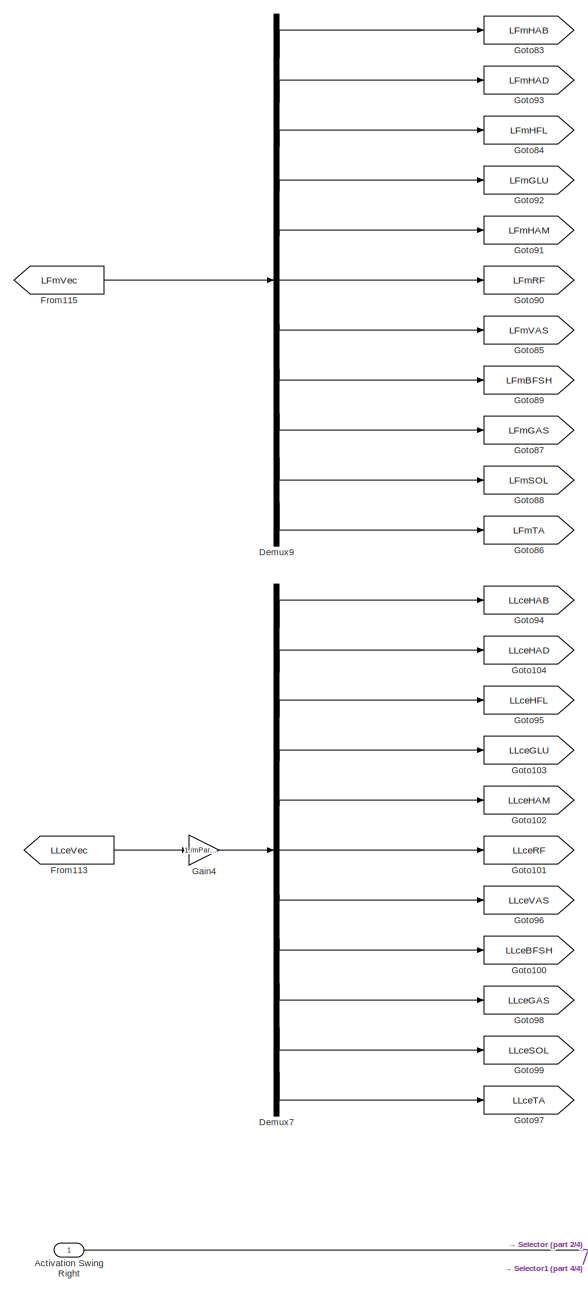
[diagram: Spinal Layer/Stance Leg Control Left - part 1/4, left side, full height]
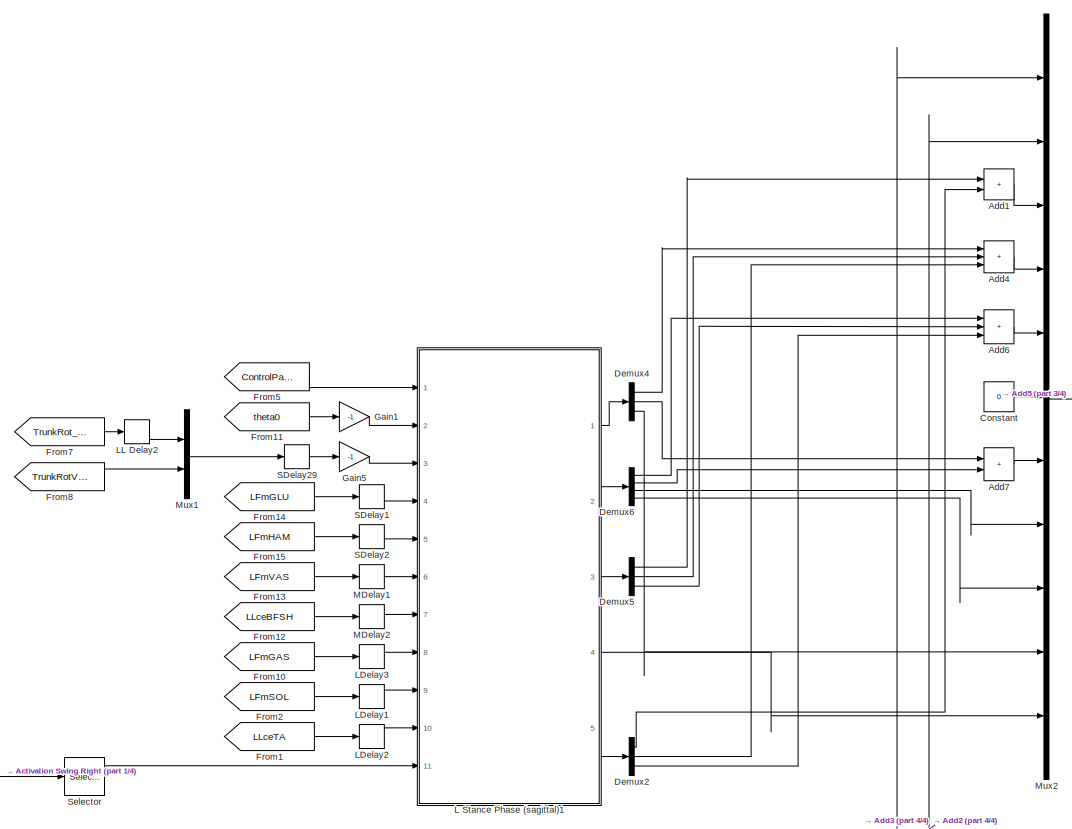
[diagram: Spinal Layer/Stance Leg Control Left - part 2/4, central region]
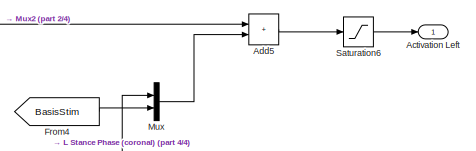
[diagram: Spinal Layer/Stance Leg Control Left - part 3/4, middle right region]
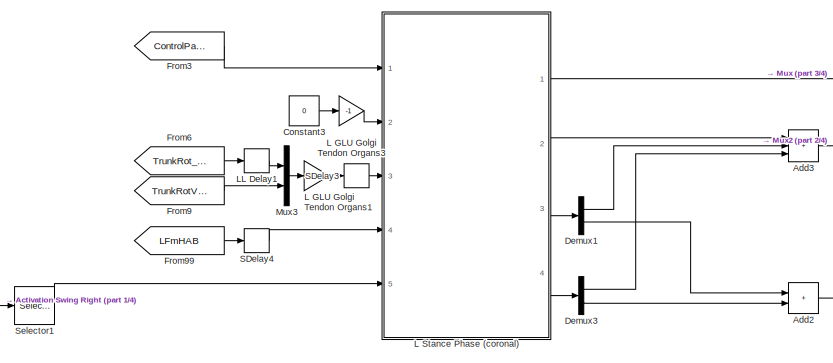
[diagram: Spinal Layer/Stance Leg Control Left - part 4/4, bottom center region]
BLOCK [SubSystem] Spinal Layer/Stance Leg Control Left
  Ports = [1, 1]
  RequestExecContextInheritance = off
BLOCK [Outport] Spinal Layer/Stance Leg Control Left/Activation Left
  NameLocation = top
BLOCK [Inport] Spinal Layer/Stance Leg Control Left/Activation Swing Right
BLOCK [Sum] Spinal Layer/Stance Leg Control Left/Add1
  IconShape = rectangular
  Ports = [2, 1]
BLOCK [Sum] Spinal Layer/Stance Leg Control Left/Add2
  IconShape = rectangular
  Ports = [2, 1]
BLOCK [Sum] Spinal Layer/Stance Leg Control Left/Add3
  IconShape = rectangular
  Inputs = +++
  Ports = [3, 1]
BLOCK [Sum] Spinal Layer/Stance Leg Control Left/Add4
  IconShape = rectangular
  Inputs = +++
  Ports = [3, 1]
BLOCK [Sum] Spinal Layer/Stance Leg Control Left/Add5
  IconShape = rectangular
  Ports = [2, 1]
BLOCK [Sum] Spinal Layer/Stance Leg Control Left/Add6
  IconShape = rectangular
  Inputs = +++
  Ports = [3, 1]
BLOCK [Sum] Spinal Layer/Stance Leg Control Left/Add7
  IconShape = rectangular
  Ports = [2, 1]
BLOCK [Constant] Spinal Layer/Stance Leg Control Left/Constant
  Value = 0
BLOCK [Constant] Spinal Layer/Stance Leg Control Left/Constant3
  Value = 0
BLOCK [Demux] Spinal Layer/Stance Leg Control Left/Demux1
  Outputs = 2
  Ports = [1, 2]
BLOCK [Demux] Spinal Layer/Stance Leg Control Left/Demux2
  Outputs = 3
  Ports = [1, 3]
BLOCK [Demux] Spinal Layer/Stance Leg Control Left/Demux3
  Outputs = 2
  Ports = [1, 2]
BLOCK [Demux] Spinal Layer/Stance Leg Control Left/Demux4
  Outputs = 3
  Ports = [1, 3]
BLOCK [Demux] Spinal Layer/Stance Leg Control Left/Demux5
  Outputs = 3
  Ports = [1, 3]
BLOCK [Demux] Spinal Layer/Stance Leg Control Left/Demux6
  Ports = [1, 4]
BLOCK [Demux] Spinal Layer/Stance Leg Control Left/Demux7
  Outputs = 11
  Ports = [1, 11]
BLOCK [Demux] Spinal Layer/Stance Leg Control Left/Demux9
  Outputs = 11
  Ports = [1, 11]
BLOCK [From] Spinal Layer/Stance Leg Control Left/From1
  CloseFcn = tagdialog Close
  GotoTag = LLceTA
BLOCK [From] Spinal Layer/Stance Leg Control Left/From10
  CloseFcn = tagdialog Close
  GotoTag = LFmGAS
BLOCK [From] Spinal Layer/Stance Leg Control Left/From11
  GotoTag = theta0
  TagVisibility = global
BLOCK [From] Spinal Layer/Stance Leg Control Left/From113
  GotoTag = LLceVec
  TagVisibility = global
BLOCK [From] Spinal Layer/Stance Leg Control Left/From115
  GotoTag = LFmVec
  TagVisibility = global
BLOCK [From] Spinal Layer/Stance Leg Control Left/From12
  CloseFcn = tagdialog Close
  GotoTag = LLceBFSH
BLOCK [From] Spinal Layer/Stance Leg Control Left/From13
  CloseFcn = tagdialog Close
  GotoTag = LFmVAS
BLOCK [From] Spinal Layer/Stance Leg Control Left/From14
  CloseFcn = tagdialog Close
  GotoTag = LFmGLU
BLOCK [From] Spinal Layer/Stance Leg Control Left/From15
  CloseFcn = tagdialog Close
  GotoTag = LFmHAM
BLOCK [From] Spinal Layer/Stance Leg Control Left/From2
  CloseFcn = tagdialog Close
  GotoTag = LFmSOL
BLOCK [From] Spinal Layer/Stance Leg Control Left/From3
  CloseFcn = tagdialog Close
  GotoTag = ControlParamLat
  TagVisibility = global
BLOCK [From] Spinal Layer/Stance Leg Control Left/From4
  GotoTag = BasisStim
  TagVisibility = global
BLOCK [From] Spinal Layer/Stance Leg Control Left/From5
  GotoTag = ControlParam
  TagVisibility = global
BLOCK [From] Spinal Layer/Stance Leg Control Left/From6
  CloseFcn = tagdialog Close
  GotoTag = TrunkRot_lat
  NameLocation = top
  TagVisibility = global
BLOCK [From] Spinal Layer/Stance Leg Control Left/From7
  CloseFcn = tagdialog Close
  GotoTag = TrunkRot_sag
  NameLocation = top
  TagVisibility = global
BLOCK [From] Spinal Layer/Stance Leg Control Left/From8
  CloseFcn = tagdialog Close
  GotoTag = TrunkRotVel_sag
  NameLocation = top
  TagVisibility = global
BLOCK [From] Spinal Layer/Stance Leg Control Left/From9
  CloseFcn = tagdialog Close
  GotoTag = TrunkRotVel_lat
  NameLocation = top
  TagVisibility = global
BLOCK [From] Spinal Layer/Stance Leg Control Left/From99
  CloseFcn = tagdialog Close
  GotoTag = LFmHAB
BLOCK [Gain] Spinal Layer/Stance Leg Control Left/Gain1
  Gain = -1
BLOCK [Gain] Spinal Layer/Stance Leg Control Left/Gain4
  Gain = 1./mParams.muscles.loptVec
BLOCK [Gain] Spinal Layer/Stance Leg Control Left/Gain5
  Gain = -1
BLOCK [Goto] Spinal Layer/Stance Leg Control Left/Goto100
  GotoTag = LLceBFSH
BLOCK [Goto] Spinal Layer/Stance Leg Control Left/Goto101
  Commented = on
  GotoTag = LLceRF
BLOCK [Goto] Spinal Layer/Stance Leg Control Left/Goto102
  Commented = on
  GotoTag = LLceHAM
BLOCK [Goto] Spinal Layer/Stance Leg Control Left/Goto103
  Commented = on
  GotoTag = LLceGLU
BLOCK [Goto] Spinal Layer/Stance Leg Control Left/Goto104
  Commented = on
  GotoTag = LLceHAD
BLOCK [Goto] Spinal Layer/Stance Leg Control Left/Goto83
  GotoTag = LFmHAB
BLOCK [Goto] Spinal Layer/Stance Leg Control Left/Goto84
  Commented = on
  GotoTag = LFmHFL
BLOCK [Goto] Spinal Layer/Stance Leg Control Left/Goto85
  GotoTag = LFmVAS
BLOCK [Goto] Spinal Layer/Stance Leg Control Left/Goto86
  Commented = on
  GotoTag = LFmTA
BLOCK [Goto] Spinal Layer/Stance Leg Control Left/Goto87
  GotoTag = LFmGAS
BLOCK [Goto] Spinal Layer/Stance Leg Control Left/Goto88
  GotoTag = LFmSOL
BLOCK [Goto] Spinal Layer/Stance Leg Control Left/Goto89
  Commented = on
  GotoTag = LFmBFSH
BLOCK [Goto] Spinal Layer/Stance Leg Control Left/Goto90
  Commented = on
  GotoTag = LFmRF
BLOCK [Goto] Spinal Layer/Stance Leg Control Left/Goto91
  GotoTag = LFmHAM
BLOCK [Goto] Spinal Layer/Stance Leg Control Left/Goto92
  GotoTag = LFmGLU
BLOCK [Goto] Spinal Layer/Stance Leg Control Left/Goto93
  Commented = on
  GotoTag = LFmHAD
BLOCK [Goto] Spinal Layer/Stance Leg Control Left/Goto94
  Commented = on
  GotoTag = LLceHAB
BLOCK [Goto] Spinal Layer/Stance Leg Control Left/Goto95
  Commented = on
  GotoTag = LLceHFL
BLOCK [Goto] Spinal Layer/Stance Leg Control Left/Goto96
  Commented = on
  GotoTag = LLceVAS
BLOCK [Goto] Spinal Layer/Stance Leg Control Left/Goto97
  GotoTag = LLceTA
BLOCK [Goto] Spinal Layer/Stance Leg Control Left/Goto98
  Commented = on
  GotoTag = LLceGAS
BLOCK [Goto] Spinal Layer/Stance Leg Control Left/Goto99
  Commented = on
  GotoTag = LLceSOL
BLOCK [Gain] Spinal Layer/Stance Leg Control Left/L GLU Golgi Tendon Organs1
  Gain = -1
  NameLocation = top
BLOCK [Gain] Spinal Layer/Stance Leg Control Left/L GLU Golgi Tendon Organs3
  Gain = -1
  NameLocation = top
BLOCK [SubSystem] Spinal Layer/Stance Leg Control Left/L Stance Phase (coronal)
  NameLocation = top
  Ports = [5, 4]
  RequestExecContextInheritance = off
  TreatAsAtomicUnit = on
BLOCK [Inport] Spinal Layer/Stance Leg Control Left/L Stance Phase (coronal)/CSwingStim
  Port = 5
BLOCK [Inport] Spinal Layer/Stance Leg Control Left/L Stance Phase (coronal)/CtrlPar
  NameLocation = top
BLOCK [Demux] Spinal Layer/Stance Leg Control Left/L Stance Phase (coronal)/Demux2
  NameLocation = top
  Ports = [1, 4]
BLOCK [Demux] Spinal Layer/Stance Leg Control Left/L Stance Phase (coronal)/Demux4
  NameLocation = top
  Outputs = 2
  Ports = [1, 2]
BLOCK [Demux] Spinal Layer/Stance Leg Control Left/L Stance Phase (coronal)/Demux5
  Outputs = 2
  Ports = [1, 2]
BLOCK [Demux] Spinal Layer/Stance Leg Control Left/L Stance Phase (coronal)/Demux7
  Outputs = 2
  Ports = [1, 2]
BLOCK [Product] Spinal Layer/Stance Leg Control Left/L Stance Phase (coronal)/Divide14
  Ports = [2, 1]
BLOCK [Product] Spinal Layer/Stance Leg Control Left/L Stance Phase (coronal)/Divide15
  Ports = [2, 1]
BLOCK [Product] Spinal Layer/Stance Leg Control Left/L Stance Phase (coronal)/Divide4
  Ports = [2, 1]
BLOCK [Product] Spinal Layer/Stance Leg Control Left/L Stance Phase (coronal)/Divide6
  Ports = [2, 1]
BLOCK [Product] Spinal Layer/Stance Leg Control Left/L Stance Phase (coronal)/Divide7
  Ports = [2, 1]
BLOCK [Product] Spinal Layer/Stance Leg Control Left/L Stance Phase (coronal)/Divide8
  Ports = [2, 1]
BLOCK [Product] Spinal Layer/Stance Leg Control Left/L Stance Phase (coronal)/Divide9
  Ports = [2, 1]
BLOCK [Inport] Spinal Layer/Stance Leg Control Left/L Stance Phase (coronal)/FmHAB
  NameLocation = top
  Port = 4
BLOCK [Gain] Spinal Layer/Stance Leg Control Left/L Stance Phase (coronal)/Gain2
  Gain = -1
BLOCK [Gain] Spinal Layer/Stance Leg Control Left/L Stance Phase (coronal)/Gain3
  Gain = -1
BLOCK [Mux] Spinal Layer/Stance Leg Control Left/L Stance Phase (coronal)/Mux1
  DisplayOption = bar
  Inputs = 2
  NameLocation = top
  Ports = [2, 1]
BLOCK [Mux] Spinal Layer/Stance Leg Control Left/L Stance Phase (coronal)/Mux3
  DisplayOption = bar
  Inputs = 2
  NameLocation = top
  Ports = [2, 1]
BLOCK [Selector] Spinal Layer/Stance Leg Control Left/L Stance Phase (coronal)/R_parSt_M1
  IndexOptions = Index vector (dialog)
  Indices = 3
  InputPortWidth = 9
  OutputSizes = 1
  Ports = [1, 1]
BLOCK [Selector] Spinal Layer/Stance Leg Control Left/L Stance Phase (coronal)/R_parSt_M3
  IndexOptions = Index vector (dialog)
  Indices = [4:7]
  InputPortWidth = 9
  OutputSizes = 1
  Ports = [1, 1]
BLOCK [Selector] Spinal Layer/Stance Leg Control Left/L Stance Phase (coronal)/R_parSt_M4
  IndexOptions = Index vector (dialog)
  Indices = [8 9]
  InputPortWidth = 9
  OutputSizes = 1
  Ports = [1, 1]
BLOCK [Selector] Spinal Layer/Stance Leg Control Left/L Stance Phase (coronal)/R_parSt_PreS
  IndexOptions = Index vector (dialog)
  Indices = [1 2]
  InputPortWidth = 9
  OutputSizes = 1
  Ports = [1, 1]
BLOCK [Outport] Spinal Layer/Stance Leg Control Left/L Stance Phase (coronal)/S_0_St
  InitialOutput = 0
  OutputWhenDisabled = reset
  VectorParamsAs1DForOutWhenUnconnected = off
BLOCK [Outport] Spinal Layer/Stance Leg Control Left/L Stance Phase (coronal)/S_M1 [HAB]
  InitialOutput = 0
  OutputWhenDisabled = reset
  Port = 2
  VectorParamsAs1DForOutWhenUnconnected = off
BLOCK [Outport] Spinal Layer/Stance Leg Control Left/L Stance Phase (coronal)/S_M3 [HAB HAD]
  InitialOutput = 0
  OutputWhenDisabled = reset
  Port = 3
  VectorParamsAs1DForOutWhenUnconnected = off
BLOCK [Outport] Spinal Layer/Stance Leg Control Left/L Stance Phase (coronal)/S_M4 [HAB HAD]
  InitialOutput = 0
  OutputWhenDisabled = reset
  Port = 4
  VectorParamsAs1DForOutWhenUnconnected = off
BLOCK [Sum] Spinal Layer/Stance Leg Control Left/L Stance Phase (coronal)/Sum4
  InputSameDT = on
  Inputs = -+|
  OutDataTypeStr = Inherit: Same as first input
  Ports = [2, 1]
  SaturateOnIntegerOverflow = on
BLOCK [Sum] Spinal Layer/Stance Leg Control Left/L Stance Phase (coronal)/Sum5
  InputSameDT = on
  Inputs = |++
  OutDataTypeStr = Inherit: Same as first input
  Ports = [2, 1]
  SaturateOnIntegerOverflow = on
BLOCK [Sum] Spinal Layer/Stance Leg Control Left/L Stance Phase (coronal)/Sum6
  InputSameDT = on
  Inputs = |++
  OutDataTypeStr = Inherit: Same as first input
  Ports = [2, 1]
  SaturateOnIntegerOverflow = on
BLOCK [Saturate] Spinal Layer/Stance Leg Control Left/L Stance Phase (coronal)/positive half1
  LowerLimit = 0
  UpperLimit = inf
  ZeroCross = off
BLOCK [Saturate] Spinal Layer/Stance Leg Control Left/L Stance Phase (coronal)/positive half2
  LowerLimit = 0
  UpperLimit = inf
  ZeroCross = off
BLOCK [Inport] Spinal Layer/Stance Leg Control Left/L Stance Phase (coronal)/theta dtheta [rad rad//s]
  Port = 3
BLOCK [Inport] Spinal Layer/Stance Leg Control Left/L Stance Phase (coronal)/theta_tgt [rad]
  Port = 2
BLOCK [SubSystem] Spinal Layer/Stance Leg Control Left/L Stance Phase (sagittal)1
  NameLocation = top
  Ports = [11, 5]
  RequestExecContextInheritance = off
  TreatAsAtomicUnit = on
BLOCK [Inport] Spinal Layer/Stance Leg Control Left/L Stance Phase (sagittal)1/CStim_HSw
  Port = 11
BLOCK [Inport] Spinal Layer/Stance Leg Control Left/L Stance Phase (sagittal)1/CtrlPar
BLOCK [Demux] Spinal Layer/Stance Leg Control Left/L Stance Phase (sagittal)1/Demux1
  Outputs = 5
  Ports = [1, 5]
BLOCK [Demux] Spinal Layer/Stance Leg Control Left/L Stance Phase (sagittal)1/Demux3
  Outputs = 3
  Ports = [1, 3]
BLOCK [Demux] Spinal Layer/Stance Leg Control Left/L Stance Phase (sagittal)1/Demux4
  Ports = [1, 4]
BLOCK [Demux] Spinal Layer/Stance Leg Control Left/L Stance Phase (sagittal)1/Demux5
  Outputs = 5
  Ports = [1, 5]
BLOCK [Demux] Spinal Layer/Stance Leg Control Left/L Stance Phase (sagittal)1/Demux6
  Outputs = 3
  Ports = [1, 3]
BLOCK [Demux] Spinal Layer/Stance Leg Control Left/L Stance Phase (sagittal)1/Demux7
  Outputs = 2
  Ports = [1, 2]
BLOCK [Demux] Spinal Layer/Stance Leg Control Left/L Stance Phase (sagittal)1/Demux8
  Outputs = 6
  Ports = [1, 6]
BLOCK [Product] Spinal Layer/Stance Leg Control Left/L Stance Phase (sagittal)1/Divide10
  Ports = [2, 1]
BLOCK [Product] Spinal Layer/Stance Leg Control Left/L Stance Phase (sagittal)1/Divide11
  Ports = [2, 1]
BLOCK [Product] Spinal Layer/Stance Leg Control Left/L Stance Phase (sagittal)1/Divide12
  Ports = [2, 1]
BLOCK [Product] Spinal Layer/Stance Leg Control Left/L Stance Phase (sagittal)1/Divide13
  Ports = [2, 1]
BLOCK [Product] Spinal Layer/Stance Leg Control Left/L Stance Phase (sagittal)1/Divide14
  Ports = [2, 1]
BLOCK [Product] Spinal Layer/Stance Leg Control Left/L Stance Phase (sagittal)1/Divide15
  Ports = [2, 1]
BLOCK [Product] Spinal Layer/Stance Leg Control Left/L Stance Phase (sagittal)1/Divide16
  Ports = [2, 1]
BLOCK [Product] Spinal Layer/Stance Leg Control Left/L Stance Phase (sagittal)1/Divide17
  Ports = [2, 1]
BLOCK [Product] Spinal Layer/Stance Leg Control Left/L Stance Phase (sagittal)1/Divide19
  Ports = [2, 1]
BLOCK [Product] Spinal Layer/Stance Leg Control Left/L Stance Phase (sagittal)1/Divide20
  Ports = [2, 1]
BLOCK [Product] Spinal Layer/Stance Leg Control Left/L Stance Phase (sagittal)1/Divide21
  Ports = [2, 1]
BLOCK [Product] Spinal Layer/Stance Leg Control Left/L Stance Phase (sagittal)1/Divide22
  Ports = [2, 1]
BLOCK [Product] Spinal Layer/Stance Leg Control Left/L Stance Phase (sagittal)1/Divide25
  Ports = [2, 1]
BLOCK [Product] Spinal Layer/Stance Leg Control Left/L Stance Phase (sagittal)1/Divide4
  Ports = [2, 1]
BLOCK [Product] Spinal Layer/Stance Leg Control Left/L Stance Phase (sagittal)1/Divide5
  Ports = [2, 1]
BLOCK [Product] Spinal Layer/Stance Leg Control Left/L Stance Phase (sagittal)1/Divide6
  Ports = [2, 1]
BLOCK [Product] Spinal Layer/Stance Leg Control Left/L Stance Phase (sagittal)1/Divide7
  Ports = [2, 1]
BLOCK [Product] Spinal Layer/Stance Leg Control Left/L Stance Phase (sagittal)1/Divide8
  Ports = [2, 1]
BLOCK [Product] Spinal Layer/Stance Leg Control Left/L Stance Phase (sagittal)1/Divide9
  Ports = [2, 1]
BLOCK [Inport] Spinal Layer/Stance Leg Control Left/L Stance Phase (sagittal)1/FmGAS
  Port = 8
BLOCK [Inport] Spinal Layer/Stance Leg Control Left/L Stance Phase (sagittal)1/FmGLU
  Port = 4
BLOCK [Inport] Spinal Layer/Stance Leg Control Left/L Stance Phase (sagittal)1/FmHAM
  Port = 5
BLOCK [Inport] Spinal Layer/Stance Leg Control Left/L Stance Phase (sagittal)1/FmSOL
  Port = 9
BLOCK [Inport] Spinal Layer/Stance Leg Control Left/L Stance Phase (sagittal)1/FmVAS
  Port = 6
BLOCK [Gain] Spinal Layer/Stance Leg Control Left/L Stance Phase (sagittal)1/Gain
  Gain = -1
BLOCK [Gain] Spinal Layer/Stance Leg Control Left/L Stance Phase (sagittal)1/Gain2
  Gain = -1
BLOCK [Gain] Spinal Layer/Stance Leg Control Left/L Stance Phase (sagittal)1/Gain3
  Gain = -1
BLOCK [Gain] Spinal Layer/Stance Leg Control Left/L Stance Phase (sagittal)1/Gain9
BLOCK [Inport] Spinal Layer/Stance Leg Control Left/L Stance Phase (sagittal)1/LceBFSH
  Port = 7
BLOCK [Inport] Spinal Layer/Stance Leg Control Left/L Stance Phase (sagittal)1/LceTA
  Port = 10
BLOCK [Mux] Spinal Layer/Stance Leg Control Left/L Stance Phase (sagittal)1/Mux1
  DisplayOption = bar
  Inputs = 3
  NameLocation = top
  Ports = [3, 1]
BLOCK [Mux] Spinal Layer/Stance Leg Control Left/L Stance Phase (sagittal)1/Mux2
  DisplayOption = bar
  Inputs = 3
  NameLocation = top
  Ports = [3, 1]
BLOCK [Mux] Spinal Layer/Stance Leg Control Left/L Stance Phase (sagittal)1/Mux3
  DisplayOption = bar
  Inputs = 3
  NameLocation = top
  Ports = [3, 1]
BLOCK [Mux] Spinal Layer/Stance Leg Control Left/L Stance Phase (sagittal)1/Mux4
  DisplayOption = bar
  NameLocation = top
  Ports = [4, 1]
BLOCK [Scope] Spinal Layer/Stance Leg Control Left/L Stance Phase (sagittal)1/Output Stance S11
  Floating = off
  NameLocation = top
  NumInputPorts = 1
  Ports = [1]
  ScopeSpecificationString = Simulink.scopes.TimeScopeBlockCfg('CurrentConfiguration', extmgr.ConfigurationSet(extmgr.Configuration('Core','General UI',true),extmgr.Configuration('Core','Source UI',true),extmgr.Configuration('Sources','WiredSimulink',true,'DataLoggingVariableName','ScopeData2'),extmgr.Configuration('Visuals','Time Domain',true,'PlotType','Line','SerializedDisplays',{struct('MinYLimReal','-0.46623','MaxYLimRea...<+1525ch>
BLOCK [Scope] Spinal Layer/Stance Leg Control Left/L Stance Phase (sagittal)1/Output Stance S9
  Floating = off
  NameLocation = top
  NumInputPorts = 1
  Ports = [1]
  ScopeSpecificationString = Simulink.scopes.TimeScopeBlockCfg('CurrentConfiguration', extmgr.ConfigurationSet(extmgr.Configuration('Core','General UI',true),extmgr.Configuration('Core','Source UI',true),extmgr.Configuration('Sources','WiredSimulink',true,'DataLoggingVariableName','ScopeData4'),extmgr.Configuration('Visuals','Time Domain',true,'SerializedDisplays',{struct('MinYLimReal','-0.11496','MaxYLimReal','1.03463','YLab...<+1393ch>
BLOCK [Outport] Spinal Layer/Stance Leg Control Left/L Stance Phase (sagittal)1/S_M1 [GLU VAS SOL]
  InitialOutput = 0
  OutputWhenDisabled = reset
  VectorParamsAs1DForOutWhenUnconnected = off
BLOCK [Outport] Spinal Layer/Stance Leg Control Left/L Stance Phase (sagittal)1/S_M2 [HAM VAS BFSH GAS]
  InitialOutput = 0
  OutputWhenDisabled = reset
  Port = 2
  VectorParamsAs1DForOutWhenUnconnected = off
BLOCK [Outport] Spinal Layer/Stance Leg Control Left/L Stance Phase (sagittal)1/S_M3 [HFL GLU HAM]
  InitialOutput = 0
  OutputWhenDisabled = reset
  Port = 3
  VectorParamsAs1DForOutWhenUnconnected = off
BLOCK [Outport] Spinal Layer/Stance Leg Control Left/L Stance Phase (sagittal)1/S_M4 [HFL GLU HAM]
  InitialOutput = 0
  OutputWhenDisabled = reset
  Port = 5
  VectorParamsAs1DForOutWhenUnconnected = off
BLOCK [Outport] Spinal Layer/Stance Leg Control Left/L Stance Phase (sagittal)1/S_M5 [TA]
  InitialOutput = 0
  OutputWhenDisabled = reset
  Port = 4
  VectorParamsAs1DForOutWhenUnconnected = off
BLOCK [Sum] Spinal Layer/Stance Leg Control Left/L Stance Phase (sagittal)1/Sum1
  InputSameDT = on
  Inputs = -+|
  OutDataTypeStr = Inherit: Same as first input
  Ports = [2, 1]
  SaturateOnIntegerOverflow = on
BLOCK [Sum] Spinal Layer/Stance Leg Control Left/L Stance Phase (sagittal)1/Sum11
  InputSameDT = on
  Inputs = |++
  OutDataTypeStr = Inherit: Same as first input
  Ports = [2, 1]
  SaturateOnIntegerOverflow = on
BLOCK [Sum] Spinal Layer/Stance Leg Control Left/L Stance Phase (sagittal)1/Sum2
  InputSameDT = on
  Inputs = |++
  OutDataTypeStr = Inherit: Same as first input
  Ports = [2, 1]
  SaturateOnIntegerOverflow = on
BLOCK [Sum] Spinal Layer/Stance Leg Control Left/L Stance Phase (sagittal)1/Sum3
  InputSameDT = on
  Inputs = -+|
  OutDataTypeStr = Inherit: Same as first input
  Ports = [2, 1]
  SaturateOnIntegerOverflow = on
BLOCK [Sum] Spinal Layer/Stance Leg Control Left/L Stance Phase (sagittal)1/Sum4
  InputSameDT = on
  Inputs = -+|
  OutDataTypeStr = Inherit: Same as first input
  Ports = [2, 1]
  SaturateOnIntegerOverflow = on
BLOCK [Sum] Spinal Layer/Stance Leg Control Left/L Stance Phase (sagittal)1/Sum5
  InputSameDT = on
  Inputs = -+|
  OutDataTypeStr = Inherit: Same as first input
  Ports = [2, 1]
  SaturateOnIntegerOverflow = on
BLOCK [Sum] Spinal Layer/Stance Leg Control Left/L Stance Phase (sagittal)1/Sum6
  InputSameDT = on
  Inputs = +-|
  OutDataTypeStr = Inherit: Same as first input
  Ports = [2, 1]
  SaturateOnIntegerOverflow = on
BLOCK [Sum] Spinal Layer/Stance Leg Control Left/L Stance Phase (sagittal)1/Sum7
  InputSameDT = on
  Inputs = |++
  OutDataTypeStr = Inherit: Same as first input
  Ports = [2, 1]
  SaturateOnIntegerOverflow = on
BLOCK [Sum] Spinal Layer/Stance Leg Control Left/L Stance Phase (sagittal)1/Sum8
  InputSameDT = on
  Inputs = |++
  OutDataTypeStr = Inherit: Same as first input
  Ports = [2, 1]
  SaturateOnIntegerOverflow = on
BLOCK [Selector] Spinal Layer/Stance Leg Control Left/L Stance Phase (sagittal)1/parSt_M1
  IndexOptions = Index vector (dialog)
  Indices = [18:22]
  InputPortWidth = 22
  OutputSizes = 1
  Ports = [1, 1]
BLOCK [Selector] Spinal Layer/Stance Leg Control Left/L Stance Phase (sagittal)1/parSt_M4
  IndexOptions = Index vector (dialog)
  Indices = 1:3
  InputPortWidth = 22
  OutputSizes = 1
  Ports = [1, 1]
BLOCK [Selector] Spinal Layer/Stance Leg Control Left/L Stance Phase (sagittal)1/parSt_M6
  IndexOptions = Index vector (dialog)
  Indices = 4:9
  InputPortWidth = 22
  OutputSizes = 1
  Ports = [1, 1]
BLOCK [Selector] Spinal Layer/Stance Leg Control Left/L Stance Phase (sagittal)1/parSt_M7
  IndexOptions = Index vector (dialog)
  Indices = 10:14
  InputPortWidth = 22
  OutputSizes = 1
  Ports = [1, 1]
BLOCK [Selector] Spinal Layer/Stance Leg Control Left/L Stance Phase (sagittal)1/parSt_M8
  IndexOptions = Index vector (dialog)
  Indices = 15:17
  InputPortWidth = 22
  OutputSizes = 1
  Ports = [1, 1]
BLOCK [Saturate] Spinal Layer/Stance Leg Control Left/L Stance Phase (sagittal)1/positive half1
  LowerLimit = 0
  UpperLimit = inf
  ZeroCross = off
BLOCK [Saturate] Spinal Layer/Stance Leg Control Left/L Stance Phase (sagittal)1/positive half2
  LowerLimit = 0
  UpperLimit = inf
  ZeroCross = off
BLOCK [Saturate] Spinal Layer/Stance Leg Control Left/L Stance Phase (sagittal)1/positive half3
  LowerLimit = 0
  UpperLimit = inf
  ZeroCross = off
BLOCK [Saturate] Spinal Layer/Stance Leg Control Left/L Stance Phase (sagittal)1/positive half4
  LowerLimit = 0
  UpperLimit = inf
  ZeroCross = off
BLOCK [Saturate] Spinal Layer/Stance Leg Control Left/L Stance Phase (sagittal)1/positive half5
  LowerLimit = 0
  UpperLimit = inf
  ZeroCross = off
BLOCK [Saturate] Spinal Layer/Stance Leg Control Left/L Stance Phase (sagittal)1/positive half6
  LowerLimit = 0
  UpperLimit = inf
  ZeroCross = off
BLOCK [Inport] Spinal Layer/Stance Leg Control Left/L Stance Phase (sagittal)1/theta dtheta [rad rad//s]
  Port = 3
BLOCK [Inport] Spinal Layer/Stance Leg Control Left/L Stance Phase (sagittal)1/theta_tgt [rad]
  Port = 2
BLOCK [TransportDelay] Spinal Layer/Stance Leg Control Left/LDelay1
  DelayTime = mParams.control.delays.long
  Ports = [1, 1]
BLOCK [TransportDelay] Spinal Layer/Stance Leg Control Left/LDelay2
  DelayTime = mParams.control.delays.long
  Ports = [1, 1]
BLOCK [TransportDelay] Spinal Layer/Stance Leg Control Left/LDelay3
  DelayTime = mParams.control.delays.long
  Ports = [1, 1]
BLOCK [TransportDelay] Spinal Layer/Stance Leg Control Left/LL Delay1
  DelayTime = mParams.control.delays.longloop/2
  NameLocation = top
  Ports = [1, 1]
BLOCK [TransportDelay] Spinal Layer/Stance Leg Control Left/LL Delay2
  DelayTime = mParams.control.delays.longloop/2
  NameLocation = top
  Ports = [1, 1]
BLOCK [TransportDelay] Spinal Layer/Stance Leg Control Left/MDelay1
  DelayTime = mParams.control.delays.mid
  Ports = [1, 1]
BLOCK [TransportDelay] Spinal Layer/Stance Leg Control Left/MDelay2
  DelayTime = mParams.control.delays.mid
  Ports = [1, 1]
BLOCK [Mux] Spinal Layer/Stance Leg Control Left/Mux
  DisplayOption = bar
  Inputs = 2
  Ports = [2, 1]
BLOCK [Mux] Spinal Layer/Stance Leg Control Left/Mux1
  DisplayOption = bar
  Inputs = 2
  Ports = [2, 1]
BLOCK [Mux] Spinal Layer/Stance Leg Control Left/Mux2
  DisplayOption = bar
  Inputs = 11
  Ports = [11, 1]
BLOCK [Mux] Spinal Layer/Stance Leg Control Left/Mux3
  DisplayOption = bar
  Inputs = 2
  Ports = [2, 1]
BLOCK [TransportDelay] Spinal Layer/Stance Leg Control Left/SDelay1
  DelayTime = mParams.control.delays.short
  Ports = [1, 1]
BLOCK [TransportDelay] Spinal Layer/Stance Leg Control Left/SDelay2
  DelayTime = mParams.control.delays.short
  Ports = [1, 1]
BLOCK [TransportDelay] Spinal Layer/Stance Leg Control Left/SDelay29
  DelayTime = mParams.control.delays.short
  Ports = [1, 1]
BLOCK [TransportDelay] Spinal Layer/Stance Leg Control Left/SDelay3
  DelayTime = mParams.control.delays.short
  Ports = [1, 1]
BLOCK [TransportDelay] Spinal Layer/Stance Leg Control Left/SDelay4
  DelayTime = mParams.control.delays.short
  Ports = [1, 1]
BLOCK [Saturate] Spinal Layer/Stance Leg Control Left/Saturation6
  LowerLimit = 0.01
  NameLocation = top
  UpperLimit = 1
  ZeroCross = off
BLOCK [Selector] Spinal Layer/Stance Leg Control Left/Selector
  IndexOptions = Index vector (dialog)
  Indices = [3 4 5 6]
  InputPortWidth = 11
  OutputSizes = 1
  Ports = [1, 1]
BLOCK [Selector] Spinal Layer/Stance Leg Control Left/Selector1
  IndexOptions = Index vector (dialog)
  Indices = [1 2]
  InputPortWidth = 11
  OutputSizes = 1
  Ports = [1, 1]
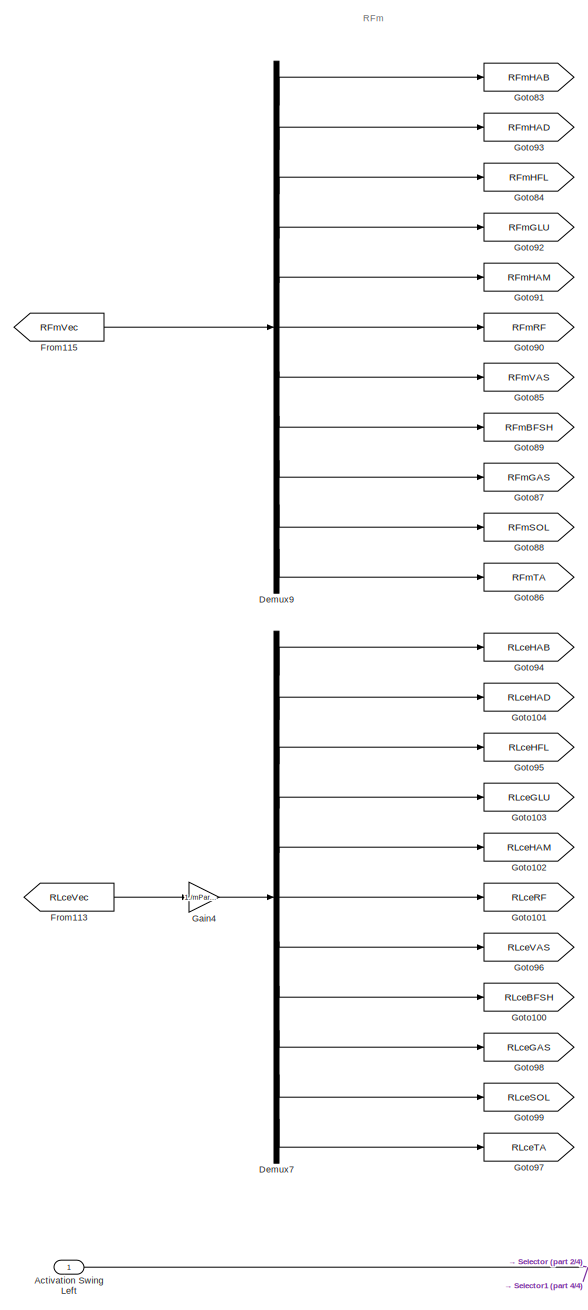
[diagram: Spinal Layer/Stance Leg Control Right - part 1/4, left side, full height]
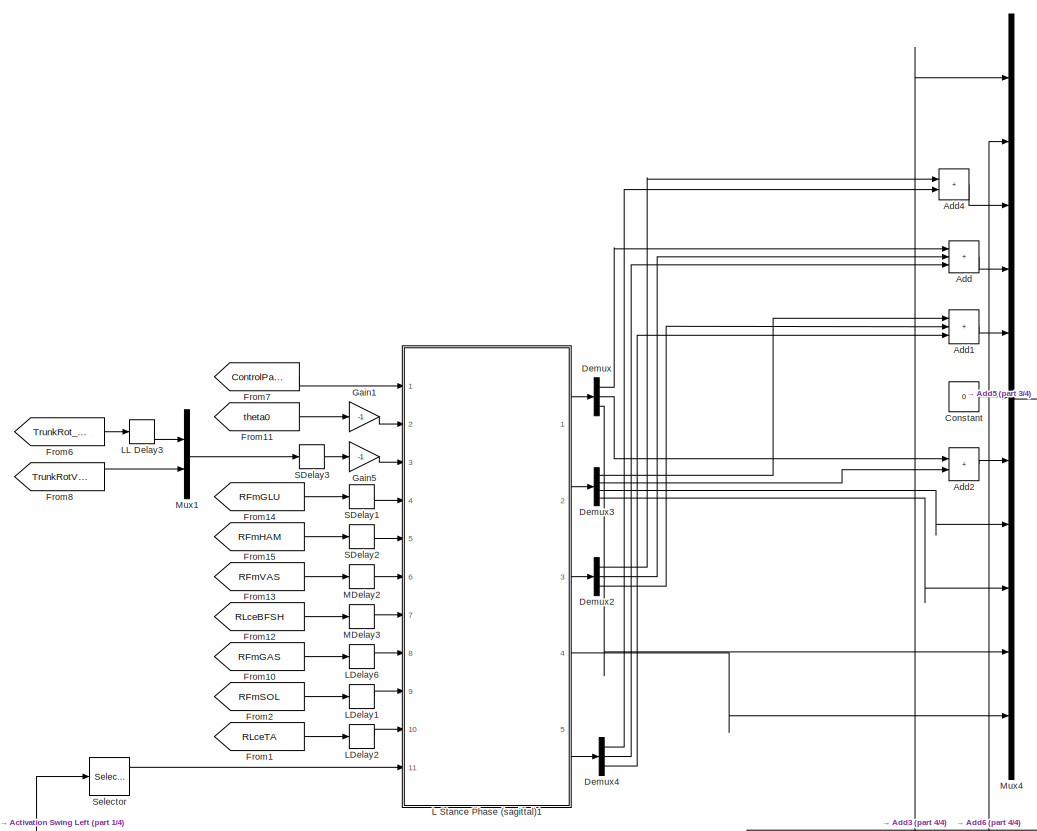
[diagram: Spinal Layer/Stance Leg Control Right - part 2/4, central region]
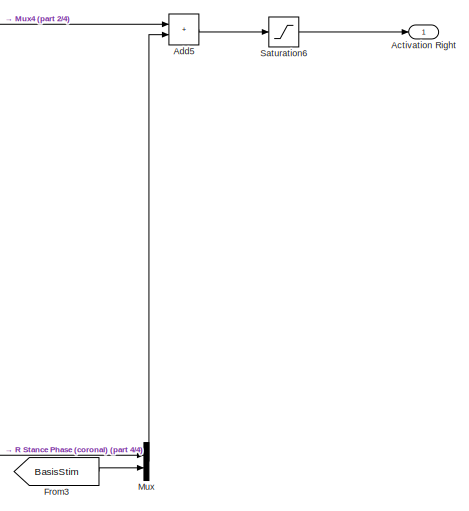
[diagram: Spinal Layer/Stance Leg Control Right - part 3/4, middle right region]
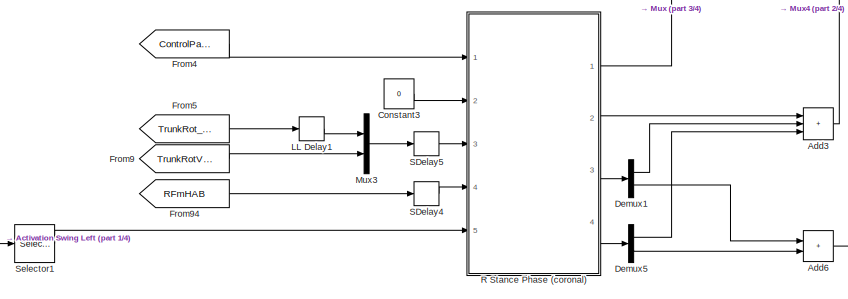
[diagram: Spinal Layer/Stance Leg Control Right - part 4/4, bottom center region]
BLOCK [SubSystem] Spinal Layer/Stance Leg Control Right
  Ports = [1, 1]
  RequestExecContextInheritance = off
BLOCK [Outport] Spinal Layer/Stance Leg Control Right/Activation Right
  NameLocation = top
BLOCK [Inport] Spinal Layer/Stance Leg Control Right/Activation Swing Left
BLOCK [Sum] Spinal Layer/Stance Leg Control Right/Add
  IconShape = rectangular
  Inputs = +++
  Ports = [3, 1]
BLOCK [Sum] Spinal Layer/Stance Leg Control Right/Add1
  IconShape = rectangular
  Inputs = +++
  Ports = [3, 1]
BLOCK [Sum] Spinal Layer/Stance Leg Control Right/Add2
  IconShape = rectangular
  Ports = [2, 1]
BLOCK [Sum] Spinal Layer/Stance Leg Control Right/Add3
  IconShape = rectangular
  Inputs = +++
  Ports = [3, 1]
BLOCK [Sum] Spinal Layer/Stance Leg Control Right/Add4
  IconShape = rectangular
  Ports = [2, 1]
BLOCK [Sum] Spinal Layer/Stance Leg Control Right/Add5
  IconShape = rectangular
  Ports = [2, 1]
BLOCK [Sum] Spinal Layer/Stance Leg Control Right/Add6
  IconShape = rectangular
  Ports = [2, 1]
BLOCK [Constant] Spinal Layer/Stance Leg Control Right/Constant
  Value = 0
BLOCK [Constant] Spinal Layer/Stance Leg Control Right/Constant3
  Value = 0
BLOCK [Demux] Spinal Layer/Stance Leg Control Right/Demux
  Outputs = 3
  Ports = [1, 3]
BLOCK [Demux] Spinal Layer/Stance Leg Control Right/Demux1
  Outputs = 2
  Ports = [1, 2]
BLOCK [Demux] Spinal Layer/Stance Leg Control Right/Demux2
  Outputs = 3
  Ports = [1, 3]
BLOCK [Demux] Spinal Layer/Stance Leg Control Right/Demux3
  Ports = [1, 4]
BLOCK [Demux] Spinal Layer/Stance Leg Control Right/Demux4
  Outputs = 3
  Ports = [1, 3]
BLOCK [Demux] Spinal Layer/Stance Leg Control Right/Demux5
  Outputs = 2
  Ports = [1, 2]
BLOCK [Demux] Spinal Layer/Stance Leg Control Right/Demux7
  Outputs = 11
  Ports = [1, 11]
BLOCK [Demux] Spinal Layer/Stance Leg Control Right/Demux9
  Outputs = 11
  Ports = [1, 11]
BLOCK [From] Spinal Layer/Stance Leg Control Right/From1
  CloseFcn = tagdialog Close
  GotoTag = RLceTA
BLOCK [From] Spinal Layer/Stance Leg Control Right/From10
  CloseFcn = tagdialog Close
  GotoTag = RFmGAS
BLOCK [From] Spinal Layer/Stance Leg Control Right/From11
  GotoTag = theta0
  TagVisibility = global
BLOCK [From] Spinal Layer/Stance Leg Control Right/From113
  GotoTag = RLceVec
  TagVisibility = global
BLOCK [From] Spinal Layer/Stance Leg Control Right/From115
  GotoTag = RFmVec
  TagVisibility = global
BLOCK [From] Spinal Layer/Stance Leg Control Right/From12
  CloseFcn = tagdialog Close
  GotoTag = RLceBFSH
BLOCK [From] Spinal Layer/Stance Leg Control Right/From13
  CloseFcn = tagdialog Close
  GotoTag = RFmVAS
BLOCK [From] Spinal Layer/Stance Leg Control Right/From14
  CloseFcn = tagdialog Close
  GotoTag = RFmGLU
BLOCK [From] Spinal Layer/Stance Leg Control Right/From15
  CloseFcn = tagdialog Close
  GotoTag = RFmHAM
BLOCK [From] Spinal Layer/Stance Leg Control Right/From2
  CloseFcn = tagdialog Close
  GotoTag = RFmSOL
BLOCK [From] Spinal Layer/Stance Leg Control Right/From3
  GotoTag = BasisStim
  TagVisibility = global
BLOCK [From] Spinal Layer/Stance Leg Control Right/From4
  CloseFcn = tagdialog Close
  GotoTag = ControlParamLat
  TagVisibility = global
BLOCK [From] Spinal Layer/Stance Leg Control Right/From5
  CloseFcn = tagdialog Close
  GotoTag = TrunkRot_lat
  NameLocation = top
  TagVisibility = global
BLOCK [From] Spinal Layer/Stance Leg Control Right/From6
  CloseFcn = tagdialog Close
  GotoTag = TrunkRot_sag
  NameLocation = top
  TagVisibility = global
BLOCK [From] Spinal Layer/Stance Leg Control Right/From7
  GotoTag = ControlParam
  TagVisibility = global
BLOCK [From] Spinal Layer/Stance Leg Control Right/From8
  CloseFcn = tagdialog Close
  GotoTag = TrunkRotVel_sag
  NameLocation = top
  TagVisibility = global
BLOCK [From] Spinal Layer/Stance Leg Control Right/From9
  CloseFcn = tagdialog Close
  GotoTag = TrunkRotVel_lat
  NameLocation = top
  TagVisibility = global
BLOCK [From] Spinal Layer/Stance Leg Control Right/From94
  CloseFcn = tagdialog Close
  GotoTag = RFmHAB
BLOCK [Gain] Spinal Layer/Stance Leg Control Right/Gain1
  Gain = -1
BLOCK [Gain] Spinal Layer/Stance Leg Control Right/Gain4
  Gain = 1./mParams.muscles.loptVec
BLOCK [Gain] Spinal Layer/Stance Leg Control Right/Gain5
  Gain = -1
BLOCK [Goto] Spinal Layer/Stance Leg Control Right/Goto100
  GotoTag = RLceBFSH
BLOCK [Goto] Spinal Layer/Stance Leg Control Right/Goto101
  Commented = on
  GotoTag = RLceRF
BLOCK [Goto] Spinal Layer/Stance Leg Control Right/Goto102
  Commented = on
  GotoTag = RLceHAM
BLOCK [Goto] Spinal Layer/Stance Leg Control Right/Goto103
  Commented = on
  GotoTag = RLceGLU
BLOCK [Goto] Spinal Layer/Stance Leg Control Right/Goto104
  Commented = on
  GotoTag = RLceHAD
BLOCK [Goto] Spinal Layer/Stance Leg Control Right/Goto83
  GotoTag = RFmHAB
BLOCK [Goto] Spinal Layer/Stance Leg Control Right/Goto84
  Commented = on
  GotoTag = RFmHFL
BLOCK [Goto] Spinal Layer/Stance Leg Control Right/Goto85
  GotoTag = RFmVAS
BLOCK [Goto] Spinal Layer/Stance Leg Control Right/Goto86
  Commented = on
  GotoTag = RFmTA
BLOCK [Goto] Spinal Layer/Stance Leg Control Right/Goto87
  GotoTag = RFmGAS
BLOCK [Goto] Spinal Layer/Stance Leg Control Right/Goto88
  GotoTag = RFmSOL
BLOCK [Goto] Spinal Layer/Stance Leg Control Right/Goto89
  Commented = on
  GotoTag = RFmBFSH
BLOCK [Goto] Spinal Layer/Stance Leg Control Right/Goto90
  Commented = on
  GotoTag = RFmRF
BLOCK [Goto] Spinal Layer/Stance Leg Control Right/Goto91
  GotoTag = RFmHAM
BLOCK [Goto] Spinal Layer/Stance Leg Control Right/Goto92
  GotoTag = RFmGLU
BLOCK [Goto] Spinal Layer/Stance Leg Control Right/Goto93
  Commented = on
  GotoTag = RFmHAD
BLOCK [Goto] Spinal Layer/Stance Leg Control Right/Goto94
  Commented = on
  GotoTag = RLceHAB
BLOCK [Goto] Spinal Layer/Stance Leg Control Right/Goto95
  Commented = on
  GotoTag = RLceHFL
BLOCK [Goto] Spinal Layer/Stance Leg Control Right/Goto96
  Commented = on
  GotoTag = RLceVAS
BLOCK [Goto] Spinal Layer/Stance Leg Control Right/Goto97
  GotoTag = RLceTA
BLOCK [Goto] Spinal Layer/Stance Leg Control Right/Goto98
  Commented = on
  GotoTag = RLceGAS
BLOCK [Goto] Spinal Layer/Stance Leg Control Right/Goto99
  Commented = on
  GotoTag = RLceSOL
BLOCK [SubSystem] Spinal Layer/Stance Leg Control Right/L Stance Phase (sagittal)1
  NameLocation = top
  Ports = [11, 5]
  RequestExecContextInheritance = off
  TreatAsAtomicUnit = on
BLOCK [Inport] Spinal Layer/Stance Leg Control Right/L Stance Phase (sagittal)1/CStim_HSw
  Port = 11
BLOCK [Inport] Spinal Layer/Stance Leg Control Right/L Stance Phase (sagittal)1/CtrlPar
BLOCK [Demux] Spinal Layer/Stance Leg Control Right/L Stance Phase (sagittal)1/Demux1
  Outputs = 5
  Ports = [1, 5]
BLOCK [Demux] Spinal Layer/Stance Leg Control Right/L Stance Phase (sagittal)1/Demux3
  Outputs = 3
  Ports = [1, 3]
BLOCK [Demux] Spinal Layer/Stance Leg Control Right/L Stance Phase (sagittal)1/Demux4
  Ports = [1, 4]
BLOCK [Demux] Spinal Layer/Stance Leg Control Right/L Stance Phase (sagittal)1/Demux5
  Outputs = 5
  Ports = [1, 5]
BLOCK [Demux] Spinal Layer/Stance Leg Control Right/L Stance Phase (sagittal)1/Demux6
  Outputs = 3
  Ports = [1, 3]
BLOCK [Demux] Spinal Layer/Stance Leg Control Right/L Stance Phase (sagittal)1/Demux7
  Outputs = 2
  Ports = [1, 2]
BLOCK [Demux] Spinal Layer/Stance Leg Control Right/L Stance Phase (sagittal)1/Demux8
  Outputs = 6
  Ports = [1, 6]
BLOCK [Product] Spinal Layer/Stance Leg Control Right/L Stance Phase (sagittal)1/Divide10
  Ports = [2, 1]
BLOCK [Product] Spinal Layer/Stance Leg Control Right/L Stance Phase (sagittal)1/Divide11
  Ports = [2, 1]
BLOCK [Product] Spinal Layer/Stance Leg Control Right/L Stance Phase (sagittal)1/Divide12
  Ports = [2, 1]
BLOCK [Product] Spinal Layer/Stance Leg Control Right/L Stance Phase (sagittal)1/Divide13
  Ports = [2, 1]
BLOCK [Product] Spinal Layer/Stance Leg Control Right/L Stance Phase (sagittal)1/Divide14
  Ports = [2, 1]
BLOCK [Product] Spinal Layer/Stance Leg Control Right/L Stance Phase (sagittal)1/Divide15
  Ports = [2, 1]
BLOCK [Product] Spinal Layer/Stance Leg Control Right/L Stance Phase (sagittal)1/Divide16
  Ports = [2, 1]
BLOCK [Product] Spinal Layer/Stance Leg Control Right/L Stance Phase (sagittal)1/Divide17
  Ports = [2, 1]
BLOCK [Product] Spinal Layer/Stance Leg Control Right/L Stance Phase (sagittal)1/Divide19
  Ports = [2, 1]
BLOCK [Product] Spinal Layer/Stance Leg Control Right/L Stance Phase (sagittal)1/Divide20
  Ports = [2, 1]
BLOCK [Product] Spinal Layer/Stance Leg Control Right/L Stance Phase (sagittal)1/Divide21
  Ports = [2, 1]
BLOCK [Product] Spinal Layer/Stance Leg Control Right/L Stance Phase (sagittal)1/Divide22
  Ports = [2, 1]
BLOCK [Product] Spinal Layer/Stance Leg Control Right/L Stance Phase (sagittal)1/Divide25
  Ports = [2, 1]
BLOCK [Product] Spinal Layer/Stance Leg Control Right/L Stance Phase (sagittal)1/Divide4
  Ports = [2, 1]
BLOCK [Product] Spinal Layer/Stance Leg Control Right/L Stance Phase (sagittal)1/Divide5
  Ports = [2, 1]
BLOCK [Product] Spinal Layer/Stance Leg Control Right/L Stance Phase (sagittal)1/Divide6
  Ports = [2, 1]
BLOCK [Product] Spinal Layer/Stance Leg Control Right/L Stance Phase (sagittal)1/Divide7
  Ports = [2, 1]
BLOCK [Product] Spinal Layer/Stance Leg Control Right/L Stance Phase (sagittal)1/Divide8
  Ports = [2, 1]
BLOCK [Product] Spinal Layer/Stance Leg Control Right/L Stance Phase (sagittal)1/Divide9
  Ports = [2, 1]
BLOCK [Inport] Spinal Layer/Stance Leg Control Right/L Stance Phase (sagittal)1/FmGAS
  Port = 8
BLOCK [Inport] Spinal Layer/Stance Leg Control Right/L Stance Phase (sagittal)1/FmGLU
  Port = 4
BLOCK [Inport] Spinal Layer/Stance Leg Control Right/L Stance Phase (sagittal)1/FmHAM
  Port = 5
BLOCK [Inport] Spinal Layer/Stance Leg Control Right/L Stance Phase (sagittal)1/FmSOL
  Port = 9
BLOCK [Inport] Spinal Layer/Stance Leg Control Right/L Stance Phase (sagittal)1/FmVAS
  Port = 6
BLOCK [Gain] Spinal Layer/Stance Leg Control Right/L Stance Phase (sagittal)1/Gain
  Gain = -1
BLOCK [Gain] Spinal Layer/Stance Leg Control Right/L Stance Phase (sagittal)1/Gain16
BLOCK [Gain] Spinal Layer/Stance Leg Control Right/L Stance Phase (sagittal)1/Gain2
  Gain = -1
BLOCK [Gain] Spinal Layer/Stance Leg Control Right/L Stance Phase (sagittal)1/Gain3
  Gain = -1
BLOCK [Gain] Spinal Layer/Stance Leg Control Right/L Stance Phase (sagittal)1/Gain5
BLOCK [Inport] Spinal Layer/Stance Leg Control Right/L Stance Phase (sagittal)1/LceBFSH
  Port = 7
BLOCK [Inport] Spinal Layer/Stance Leg Control Right/L Stance Phase (sagittal)1/LceTA
  Port = 10
BLOCK [Mux] Spinal Layer/Stance Leg Control Right/L Stance Phase (sagittal)1/Mux1
  DisplayOption = bar
  Inputs = 3
  NameLocation = top
  Ports = [3, 1]
BLOCK [Mux] Spinal Layer/Stance Leg Control Right/L Stance Phase (sagittal)1/Mux2
  DisplayOption = bar
  Inputs = 3
  NameLocation = top
  Ports = [3, 1]
BLOCK [Mux] Spinal Layer/Stance Leg Control Right/L Stance Phase (sagittal)1/Mux3
  DisplayOption = bar
  Inputs = 3
  NameLocation = top
  Ports = [3, 1]
BLOCK [Mux] Spinal Layer/Stance Leg Control Right/L Stance Phase (sagittal)1/Mux4
  DisplayOption = bar
  NameLocation = top
  Ports = [4, 1]
BLOCK [Outport] Spinal Layer/Stance Leg Control Right/L Stance Phase (sagittal)1/S_M1 [GLU VAS SOL]
  InitialOutput = 0
  OutputWhenDisabled = reset
  VectorParamsAs1DForOutWhenUnconnected = off
BLOCK [Outport] Spinal Layer/Stance Leg Control Right/L Stance Phase (sagittal)1/S_M2 [HAM VAS BFSH GAS]
  InitialOutput = 0
  OutputWhenDisabled = reset
  Port = 2
  VectorParamsAs1DForOutWhenUnconnected = off
BLOCK [Outport] Spinal Layer/Stance Leg Control Right/L Stance Phase (sagittal)1/S_M3 [HFL GLU HAM]
  InitialOutput = 0
  OutputWhenDisabled = reset
  Port = 3
  VectorParamsAs1DForOutWhenUnconnected = off
BLOCK [Outport] Spinal Layer/Stance Leg Control Right/L Stance Phase (sagittal)1/S_M4 [HFL GLU HAM]
  InitialOutput = 0
  OutputWhenDisabled = reset
  Port = 5
  VectorParamsAs1DForOutWhenUnconnected = off
BLOCK [Outport] Spinal Layer/Stance Leg Control Right/L Stance Phase (sagittal)1/S_M5 [TA]
  InitialOutput = 0
  OutputWhenDisabled = reset
  Port = 4
  VectorParamsAs1DForOutWhenUnconnected = off
BLOCK [Sum] Spinal Layer/Stance Leg Control Right/L Stance Phase (sagittal)1/Sum1
  InputSameDT = on
  Inputs = -+|
  OutDataTypeStr = Inherit: Same as first input
  Ports = [2, 1]
  SaturateOnIntegerOverflow = on
BLOCK [Sum] Spinal Layer/Stance Leg Control Right/L Stance Phase (sagittal)1/Sum11
  InputSameDT = on
  Inputs = |++
  OutDataTypeStr = Inherit: Same as first input
  Ports = [2, 1]
  SaturateOnIntegerOverflow = on
BLOCK [Sum] Spinal Layer/Stance Leg Control Right/L Stance Phase (sagittal)1/Sum2
  InputSameDT = on
  Inputs = |++
  OutDataTypeStr = Inherit: Same as first input
  Ports = [2, 1]
  SaturateOnIntegerOverflow = on
BLOCK [Sum] Spinal Layer/Stance Leg Control Right/L Stance Phase (sagittal)1/Sum3
  InputSameDT = on
  Inputs = -+|
  OutDataTypeStr = Inherit: Same as first input
  Ports = [2, 1]
  SaturateOnIntegerOverflow = on
BLOCK [Sum] Spinal Layer/Stance Leg Control Right/L Stance Phase (sagittal)1/Sum4
  InputSameDT = on
  Inputs = -+|
  OutDataTypeStr = Inherit: Same as first input
  Ports = [2, 1]
  SaturateOnIntegerOverflow = on
BLOCK [Sum] Spinal Layer/Stance Leg Control Right/L Stance Phase (sagittal)1/Sum5
  InputSameDT = on
  Inputs = -+|
  OutDataTypeStr = Inherit: Same as first input
  Ports = [2, 1]
  SaturateOnIntegerOverflow = on
BLOCK [Sum] Spinal Layer/Stance Leg Control Right/L Stance Phase (sagittal)1/Sum6
  InputSameDT = on
  Inputs = +-|
  OutDataTypeStr = Inherit: Same as first input
  Ports = [2, 1]
  SaturateOnIntegerOverflow = on
BLOCK [Sum] Spinal Layer/Stance Leg Control Right/L Stance Phase (sagittal)1/Sum7
  InputSameDT = on
  Inputs = |++
  OutDataTypeStr = Inherit: Same as first input
  Ports = [2, 1]
  SaturateOnIntegerOverflow = on
BLOCK [Sum] Spinal Layer/Stance Leg Control Right/L Stance Phase (sagittal)1/Sum8
  InputSameDT = on
  Inputs = |++
  OutDataTypeStr = Inherit: Same as first input
  Ports = [2, 1]
  SaturateOnIntegerOverflow = on
BLOCK [Selector] Spinal Layer/Stance Leg Control Right/L Stance Phase (sagittal)1/parSt_M10
  IndexOptions = Index vector (dialog)
  Indices = 15:17
  InputPortWidth = 22
  OutputSizes = 1
  Ports = [1, 1]
BLOCK [Selector] Spinal Layer/Stance Leg Control Right/L Stance Phase (sagittal)1/parSt_M6
  IndexOptions = Index vector (dialog)
  Indices = [18:22]
  InputPortWidth = 22
  OutputSizes = 1
  Ports = [1, 1]
BLOCK [Selector] Spinal Layer/Stance Leg Control Right/L Stance Phase (sagittal)1/parSt_M7
  IndexOptions = Index vector (dialog)
  Indices = 1:3
  InputPortWidth = 22
  OutputSizes = 1
  Ports = [1, 1]
BLOCK [Selector] Spinal Layer/Stance Leg Control Right/L Stance Phase (sagittal)1/parSt_M8
  IndexOptions = Index vector (dialog)
  Indices = 4:9
  InputPortWidth = 22
  OutputSizes = 1
  Ports = [1, 1]
BLOCK [Selector] Spinal Layer/Stance Leg Control Right/L Stance Phase (sagittal)1/parSt_M9
  IndexOptions = Index vector (dialog)
  Indices = 10:14
  InputPortWidth = 22
  OutputSizes = 1
  Ports = [1, 1]
BLOCK [Saturate] Spinal Layer/Stance Leg Control Right/L Stance Phase (sagittal)1/positive half1
  LowerLimit = 0
  UpperLimit = inf
  ZeroCross = off
BLOCK [Saturate] Spinal Layer/Stance Leg Control Right/L Stance Phase (sagittal)1/positive half2
  LowerLimit = 0
  UpperLimit = inf
  ZeroCross = off
BLOCK [Saturate] Spinal Layer/Stance Leg Control Right/L Stance Phase (sagittal)1/positive half3
  LowerLimit = 0
  UpperLimit = inf
  ZeroCross = off
BLOCK [Saturate] Spinal Layer/Stance Leg Control Right/L Stance Phase (sagittal)1/positive half4
  LowerLimit = 0
  UpperLimit = inf
  ZeroCross = off
BLOCK [Saturate] Spinal Layer/Stance Leg Control Right/L Stance Phase (sagittal)1/positive half5
  LowerLimit = 0
  UpperLimit = inf
  ZeroCross = off
BLOCK [Saturate] Spinal Layer/Stance Leg Control Right/L Stance Phase (sagittal)1/positive half6
  LowerLimit = 0
  UpperLimit = inf
  ZeroCross = off
BLOCK [Inport] Spinal Layer/Stance Leg Control Right/L Stance Phase (sagittal)1/theta dtheta [rad rad//s]
  Port = 3
BLOCK [Inport] Spinal Layer/Stance Leg Control Right/L Stance Phase (sagittal)1/theta_tgt [rad]
  Port = 2
BLOCK [TransportDelay] Spinal Layer/Stance Leg Control Right/LDelay1
  DelayTime = mParams.control.delays.long
  Ports = [1, 1]
BLOCK [TransportDelay] Spinal Layer/Stance Leg Control Right/LDelay2
  DelayTime = mParams.control.delays.long
  Ports = [1, 1]
BLOCK [TransportDelay] Spinal Layer/Stance Leg Control Right/LDelay6
  DelayTime = mParams.control.delays.long
  Ports = [1, 1]
BLOCK [TransportDelay] Spinal Layer/Stance Leg Control Right/LL Delay1
  DelayTime = mParams.control.delays.longloop/2
  NameLocation = top
  Ports = [1, 1]
BLOCK [TransportDelay] Spinal Layer/Stance Leg Control Right/LL Delay3
  DelayTime = mParams.control.delays.longloop/2
  NameLocation = top
  Ports = [1, 1]
BLOCK [TransportDelay] Spinal Layer/Stance Leg Control Right/MDelay2
  DelayTime = mParams.control.delays.mid
  Ports = [1, 1]
BLOCK [TransportDelay] Spinal Layer/Stance Leg Control Right/MDelay3
  DelayTime = mParams.control.delays.mid
  Ports = [1, 1]
BLOCK [Mux] Spinal Layer/Stance Leg Control Right/Mux
  DisplayOption = bar
  Inputs = 2
  Ports = [2, 1]
BLOCK [Mux] Spinal Layer/Stance Leg Control Right/Mux1
  DisplayOption = bar
  Inputs = 2
  Ports = [2, 1]
BLOCK [Mux] Spinal Layer/Stance Leg Control Right/Mux3
  DisplayOption = bar
  Inputs = 2
  Ports = [2, 1]
BLOCK [Mux] Spinal Layer/Stance Leg Control Right/Mux4
  DisplayOption = bar
  Inputs = 11
  Ports = [11, 1]
BLOCK [SubSystem] Spinal Layer/Stance Leg Control Right/R Stance Phase (coronal)
  NameLocation = top
  Ports = [5, 4]
  RequestExecContextInheritance = off
  TreatAsAtomicUnit = on
BLOCK [Inport] Spinal Layer/Stance Leg Control Right/R Stance Phase (coronal)/CSwingStim
  Port = 5
BLOCK [Inport] Spinal Layer/Stance Leg Control Right/R Stance Phase (coronal)/CtrlPar
  NameLocation = top
BLOCK [Demux] Spinal Layer/Stance Leg Control Right/R Stance Phase (coronal)/Demux1
  NameLocation = top
  Outputs = 2
  Ports = [1, 2]
BLOCK [Demux] Spinal Layer/Stance Leg Control Right/R Stance Phase (coronal)/Demux2
  NameLocation = top
  Ports = [1, 4]
BLOCK [Demux] Spinal Layer/Stance Leg Control Right/R Stance Phase (coronal)/Demux3
  Outputs = 2
  Ports = [1, 2]
BLOCK [Demux] Spinal Layer/Stance Leg Control Right/R Stance Phase (coronal)/Demux7
  Outputs = 2
  Ports = [1, 2]
BLOCK [Product] Spinal Layer/Stance Leg Control Right/R Stance Phase (coronal)/Divide1
  Ports = [2, 1]
BLOCK [Product] Spinal Layer/Stance Leg Control Right/R Stance Phase (coronal)/Divide14
  Ports = [2, 1]
BLOCK [Product] Spinal Layer/Stance Leg Control Right/R Stance Phase (coronal)/Divide15
  Ports = [2, 1]
BLOCK [Product] Spinal Layer/Stance Leg Control Right/R Stance Phase (coronal)/Divide3
  Ports = [2, 1]
BLOCK [Product] Spinal Layer/Stance Leg Control Right/R Stance Phase (coronal)/Divide4
  Ports = [2, 1]
BLOCK [Product] Spinal Layer/Stance Leg Control Right/R Stance Phase (coronal)/Divide6
  Ports = [2, 1]
BLOCK [Product] Spinal Layer/Stance Leg Control Right/R Stance Phase (coronal)/Divide7
  Ports = [2, 1]
BLOCK [Inport] Spinal Layer/Stance Leg Control Right/R Stance Phase (coronal)/FmHAB
  NameLocation = top
  Port = 4
BLOCK [Gain] Spinal Layer/Stance Leg Control Right/R Stance Phase (coronal)/Gain2
  Gain = -1
BLOCK [Gain] Spinal Layer/Stance Leg Control Right/R Stance Phase (coronal)/Gain3
  Gain = -1
BLOCK [Mux] Spinal Layer/Stance Leg Control Right/R Stance Phase (coronal)/Mux1
  DisplayOption = bar
  Inputs = 2
  NameLocation = top
  Ports = [2, 1]
BLOCK [Mux] Spinal Layer/Stance Leg Control Right/R Stance Phase (coronal)/Mux2
  DisplayOption = bar
  Inputs = 2
  NameLocation = top
  Ports = [2, 1]
BLOCK [Selector] Spinal Layer/Stance Leg Control Right/R Stance Phase (coronal)/R_parSt_M1
  IndexOptions = Index vector (dialog)
  Indices = 3
  InputPortWidth = 9
  OutputSizes = 1
  Ports = [1, 1]
BLOCK [Selector] Spinal Layer/Stance Leg Control Right/R Stance Phase (coronal)/R_parSt_M2
  IndexOptions = Index vector (dialog)
  Indices = [8 9]
  InputPortWidth = 9
  OutputSizes = 1
  Ports = [1, 1]
BLOCK [Selector] Spinal Layer/Stance Leg Control Right/R Stance Phase (coronal)/R_parSt_M3
  IndexOptions = Index vector (dialog)
  Indices = [4:7]
  InputPortWidth = 9
  OutputSizes = 1
  Ports = [1, 1]
BLOCK [Selector] Spinal Layer/Stance Leg Control Right/R Stance Phase (coronal)/R_parSt_PreS
  IndexOptions = Index vector (dialog)
  Indices = [1:2]
  InputPortWidth = 9
  OutputSizes = 1
  Ports = [1, 1]
BLOCK [Outport] Spinal Layer/Stance Leg Control Right/R Stance Phase (coronal)/S_0_St
  InitialOutput = 0
  OutputWhenDisabled = reset
  VectorParamsAs1DForOutWhenUnconnected = off
BLOCK [Outport] Spinal Layer/Stance Leg Control Right/R Stance Phase (coronal)/S_M1 [HAB]
  InitialOutput = 0
  OutputWhenDisabled = reset
  Port = 2
  VectorParamsAs1DForOutWhenUnconnected = off
BLOCK [Outport] Spinal Layer/Stance Leg Control Right/R Stance Phase (coronal)/S_M3 [HAB HAD]
  InitialOutput = 0
  OutputWhenDisabled = reset
  Port = 3
  VectorParamsAs1DForOutWhenUnconnected = off
BLOCK [Outport] Spinal Layer/Stance Leg Control Right/R Stance Phase (coronal)/S_M4 [HAB HAD]
  InitialOutput = 0
  OutputWhenDisabled = reset
  Port = 4
  VectorParamsAs1DForOutWhenUnconnected = off
BLOCK [Sum] Spinal Layer/Stance Leg Control Right/R Stance Phase (coronal)/Sum4
  InputSameDT = on
  Inputs = -+|
  OutDataTypeStr = Inherit: Same as first input
  Ports = [2, 1]
  SaturateOnIntegerOverflow = on
BLOCK [Sum] Spinal Layer/Stance Leg Control Right/R Stance Phase (coronal)/Sum5
  InputSameDT = on
  Inputs = |++
  OutDataTypeStr = Inherit: Same as first input
  Ports = [2, 1]
  SaturateOnIntegerOverflow = on
BLOCK [Sum] Spinal Layer/Stance Leg Control Right/R Stance Phase (coronal)/Sum6
  InputSameDT = on
  Inputs = |++
  OutDataTypeStr = Inherit: Same as first input
  Ports = [2, 1]
  SaturateOnIntegerOverflow = on
BLOCK [Saturate] Spinal Layer/Stance Leg Control Right/R Stance Phase (coronal)/positive half1
  LowerLimit = 0
  UpperLimit = inf
  ZeroCross = off
BLOCK [Saturate] Spinal Layer/Stance Leg Control Right/R Stance Phase (coronal)/positive half2
  LowerLimit = 0
  UpperLimit = inf
  ZeroCross = off
BLOCK [Inport] Spinal Layer/Stance Leg Control Right/R Stance Phase (coronal)/theta dtheta [rad rad//s]
  Port = 3
BLOCK [Inport] Spinal Layer/Stance Leg Control Right/R Stance Phase (coronal)/theta_tgt [rad]
  Port = 2
BLOCK [TransportDelay] Spinal Layer/Stance Leg Control Right/SDelay1
  DelayTime = mParams.control.delays.short
  Ports = [1, 1]
BLOCK [TransportDelay] Spinal Layer/Stance Leg Control Right/SDelay2
  DelayTime = mParams.control.delays.short
  Ports = [1, 1]
BLOCK [TransportDelay] Spinal Layer/Stance Leg Control Right/SDelay3
  DelayTime = mParams.control.delays.short
  Ports = [1, 1]
BLOCK [TransportDelay] Spinal Layer/Stance Leg Control Right/SDelay4
  DelayTime = mParams.control.delays.short
  Ports = [1, 1]
BLOCK [TransportDelay] Spinal Layer/Stance Leg Control Right/SDelay5
  DelayTime = mParams.control.delays.short
  Ports = [1, 1]
BLOCK [Saturate] Spinal Layer/Stance Leg Control Right/Saturation6
  LowerLimit = 0.01
  NameLocation = top
  UpperLimit = 1
  ZeroCross = off
BLOCK [Selector] Spinal Layer/Stance Leg Control Right/Selector
  IndexOptions = Index vector (dialog)
  Indices = [3 4 5 6]
  InputPortWidth = 11
  OutputSizes = 1
  Ports = [1, 1]
BLOCK [Selector] Spinal Layer/Stance Leg Control Right/Selector1
  IndexOptions = Index vector (dialog)
  Indices = [1 2]
  InputPortWidth = 11
  OutputSizes = 1
  Ports = [1, 1]
BLOCK [SubSystem] Spinal Layer/Stretch Reflex for Swing Leg Control
  Ports = [2, 2]
  RequestExecContextInheritance = off
BLOCK [Outport] Spinal Layer/Stretch Reflex for Swing Leg Control/Activation Left
  NameLocation = right
BLOCK [Outport] Spinal Layer/Stretch Reflex for Swing Leg Control/Activation Right
  NameLocation = right
  Port = 2
BLOCK [Inport] Spinal Layer/Stretch Reflex for Swing Leg Control/Descending Commands Left
  NameLocation = left
BLOCK [Inport] Spinal Layer/Stretch Reflex for Swing Leg Control/Descending Commands Right
  NameLocation = left
  Port = 2
BLOCK [From] Spinal Layer/Stretch Reflex for Swing Leg Control/From1
  GotoTag = RVceVec
  TagVisibility = global
BLOCK [From] Spinal Layer/Stretch Reflex for Swing Leg Control/From2
  GotoTag = LVceVec
  TagVisibility = global
BLOCK [From] Spinal Layer/Stretch Reflex for Swing Leg Control/From3
  GotoTag = RLceVec
  TagVisibility = global
BLOCK [From] Spinal Layer/Stretch Reflex for Swing Leg Control/From7
  GotoTag = LLceVec
  TagVisibility = global
BLOCK [SubSystem] Spinal Layer/Stretch Reflex for Swing Leg Control/LPF 11x0.0025s
  Ports = [1, 1]
  RequestExecContextInheritance = off
BLOCK [Demux] Spinal Layer/Stretch Reflex for Swing Leg Control/LPF 11x0.0025s/Demux2
  NameLocation = top
  Outputs = 11
  Ports = [1, 11]
BLOCK [Mux] Spinal Layer/Stretch Reflex for Swing Leg Control/LPF 11x0.0025s/Mux2
  DisplayOption = bar
  Inputs = 11
  NameLocation = top
  Ports = [11, 1]
BLOCK [Reference] Spinal Layer/Stretch Reflex for Swing Leg Control/LPF 11x0.0025s/Transfer Fcn (with initial outputs)1  REF=simulink_extras/Additional
Linear/Transfer Fcn
(with initial outputs)
  NameLocation = top
  Ports = [1, 1]
  SourceBlock = simulink_extras/Additional\nLinear/Transfer Fcn\n(with initial outputs)
  SourceProductBaseCode = SL
  SourceType = Transfer Function with Initial Outputs
BLOCK [Reference] Spinal Layer/Stretch Reflex for Swing Leg Control/LPF 11x0.0025s/Transfer Fcn (with initial outputs)10  REF=simulink_extras/Additional
Linear/Transfer Fcn
(with initial outputs)
  NameLocation = top
  Ports = [1, 1]
  SourceBlock = simulink_extras/Additional\nLinear/Transfer Fcn\n(with initial outputs)
  SourceProductBaseCode = SL
  SourceType = Transfer Function with Initial Outputs
BLOCK [Reference] Spinal Layer/Stretch Reflex for Swing Leg Control/LPF 11x0.0025s/Transfer Fcn (with initial outputs)11  REF=simulink_extras/Additional
Linear/Transfer Fcn
(with initial outputs)
  NameLocation = top
  Ports = [1, 1]
  SourceBlock = simulink_extras/Additional\nLinear/Transfer Fcn\n(with initial outputs)
  SourceProductBaseCode = SL
  SourceType = Transfer Function with Initial Outputs
BLOCK [Reference] Spinal Layer/Stretch Reflex for Swing Leg Control/LPF 11x0.0025s/Transfer Fcn (with initial outputs)2  REF=simulink_extras/Additional
Linear/Transfer Fcn
(with initial outputs)
  NameLocation = top
  Ports = [1, 1]
  SourceBlock = simulink_extras/Additional\nLinear/Transfer Fcn\n(with initial outputs)
  SourceProductBaseCode = SL
  SourceType = Transfer Function with Initial Outputs
BLOCK [Reference] Spinal Layer/Stretch Reflex for Swing Leg Control/LPF 11x0.0025s/Transfer Fcn (with initial outputs)3  REF=simulink_extras/Additional
Linear/Transfer Fcn
(with initial outputs)
  NameLocation = top
  Ports = [1, 1]
  SourceBlock = simulink_extras/Additional\nLinear/Transfer Fcn\n(with initial outputs)
  SourceProductBaseCode = SL
  SourceType = Transfer Function with Initial Outputs
BLOCK [Reference] Spinal Layer/Stretch Reflex for Swing Leg Control/LPF 11x0.0025s/Transfer Fcn (with initial outputs)4  REF=simulink_extras/Additional
Linear/Transfer Fcn
(with initial outputs)
  NameLocation = top
  Ports = [1, 1]
  SourceBlock = simulink_extras/Additional\nLinear/Transfer Fcn\n(with initial outputs)
  SourceProductBaseCode = SL
  SourceType = Transfer Function with Initial Outputs
BLOCK [Reference] Spinal Layer/Stretch Reflex for Swing Leg Control/LPF 11x0.0025s/Transfer Fcn (with initial outputs)5  REF=simulink_extras/Additional
Linear/Transfer Fcn
(with initial outputs)
  NameLocation = top
  Ports = [1, 1]
  SourceBlock = simulink_extras/Additional\nLinear/Transfer Fcn\n(with initial outputs)
  SourceProductBaseCode = SL
  SourceType = Transfer Function with Initial Outputs
BLOCK [Reference] Spinal Layer/Stretch Reflex for Swing Leg Control/LPF 11x0.0025s/Transfer Fcn (with initial outputs)6  REF=simulink_extras/Additional
Linear/Transfer Fcn
(with initial outputs)
  NameLocation = top
  Ports = [1, 1]
  SourceBlock = simulink_extras/Additional\nLinear/Transfer Fcn\n(with initial outputs)
  SourceProductBaseCode = SL
  SourceType = Transfer Function with Initial Outputs
BLOCK [Reference] Spinal Layer/Stretch Reflex for Swing Leg Control/LPF 11x0.0025s/Transfer Fcn (with initial outputs)7  REF=simulink_extras/Additional
Linear/Transfer Fcn
(with initial outputs)
  NameLocation = top
  Ports = [1, 1]
  SourceBlock = simulink_extras/Additional\nLinear/Transfer Fcn\n(with initial outputs)
  SourceProductBaseCode = SL
  SourceType = Transfer Function with Initial Outputs
BLOCK [Reference] Spinal Layer/Stretch Reflex for Swing Leg Control/LPF 11x0.0025s/Transfer Fcn (with initial outputs)8  REF=simulink_extras/Additional
Linear/Transfer Fcn
(with initial outputs)
  NameLocation = top
  Ports = [1, 1]
  SourceBlock = simulink_extras/Additional\nLinear/Transfer Fcn\n(with initial outputs)
  SourceProductBaseCode = SL
  SourceType = Transfer Function with Initial Outputs
BLOCK [Reference] Spinal Layer/Stretch Reflex for Swing Leg Control/LPF 11x0.0025s/Transfer Fcn (with initial outputs)9  REF=simulink_extras/Additional
Linear/Transfer Fcn
(with initial outputs)
  NameLocation = top
  Ports = [1, 1]
  SourceBlock = simulink_extras/Additional\nLinear/Transfer Fcn\n(with initial outputs)
  SourceProductBaseCode = SL
  SourceType = Transfer Function with Initial Outputs
BLOCK [Inport] Spinal Layer/Stretch Reflex for Swing Leg Control/LPF 11x0.0025s/in
  NameLocation = top
BLOCK [Outport] Spinal Layer/Stretch Reflex for Swing Leg Control/LPF 11x0.0025s/lambda
  NameLocation = top
BLOCK [SubSystem] Spinal Layer/Stretch Reflex for Swing Leg Control/LPF 11x0.0025s1
  Ports = [1, 1]
  RequestExecContextInheritance = off
BLOCK [Demux] Spinal Layer/Stretch Reflex for Swing Leg Control/LPF 11x0.0025s1/Demux2
  NameLocation = top
  Outputs = 11
  Ports = [1, 11]
BLOCK [Mux] Spinal Layer/Stretch Reflex for Swing Leg Control/LPF 11x0.0025s1/Mux2
  DisplayOption = bar
  Inputs = 11
  NameLocation = top
  Ports = [11, 1]
BLOCK [Reference] Spinal Layer/Stretch Reflex for Swing Leg Control/LPF 11x0.0025s1/Transfer Fcn (with initial outputs)1  REF=simulink_extras/Additional
Linear/Transfer Fcn
(with initial outputs)
  NameLocation = top
  Ports = [1, 1]
  SourceBlock = simulink_extras/Additional\nLinear/Transfer Fcn\n(with initial outputs)
  SourceProductBaseCode = SL
  SourceType = Transfer Function with Initial Outputs
BLOCK [Reference] Spinal Layer/Stretch Reflex for Swing Leg Control/LPF 11x0.0025s1/Transfer Fcn (with initial outputs)10  REF=simulink_extras/Additional
Linear/Transfer Fcn
(with initial outputs)
  NameLocation = top
  Ports = [1, 1]
  SourceBlock = simulink_extras/Additional\nLinear/Transfer Fcn\n(with initial outputs)
  SourceProductBaseCode = SL
  SourceType = Transfer Function with Initial Outputs
BLOCK [Reference] Spinal Layer/Stretch Reflex for Swing Leg Control/LPF 11x0.0025s1/Transfer Fcn (with initial outputs)11  REF=simulink_extras/Additional
Linear/Transfer Fcn
(with initial outputs)
  NameLocation = top
  Ports = [1, 1]
  SourceBlock = simulink_extras/Additional\nLinear/Transfer Fcn\n(with initial outputs)
  SourceProductBaseCode = SL
  SourceType = Transfer Function with Initial Outputs
BLOCK [Reference] Spinal Layer/Stretch Reflex for Swing Leg Control/LPF 11x0.0025s1/Transfer Fcn (with initial outputs)2  REF=simulink_extras/Additional
Linear/Transfer Fcn
(with initial outputs)
  NameLocation = top
  Ports = [1, 1]
  SourceBlock = simulink_extras/Additional\nLinear/Transfer Fcn\n(with initial outputs)
  SourceProductBaseCode = SL
  SourceType = Transfer Function with Initial Outputs
BLOCK [Reference] Spinal Layer/Stretch Reflex for Swing Leg Control/LPF 11x0.0025s1/Transfer Fcn (with initial outputs)3  REF=simulink_extras/Additional
Linear/Transfer Fcn
(with initial outputs)
  NameLocation = top
  Ports = [1, 1]
  SourceBlock = simulink_extras/Additional\nLinear/Transfer Fcn\n(with initial outputs)
  SourceProductBaseCode = SL
  SourceType = Transfer Function with Initial Outputs
BLOCK [Reference] Spinal Layer/Stretch Reflex for Swing Leg Control/LPF 11x0.0025s1/Transfer Fcn (with initial outputs)4  REF=simulink_extras/Additional
Linear/Transfer Fcn
(with initial outputs)
  NameLocation = top
  Ports = [1, 1]
  SourceBlock = simulink_extras/Additional\nLinear/Transfer Fcn\n(with initial outputs)
  SourceProductBaseCode = SL
  SourceType = Transfer Function with Initial Outputs
BLOCK [Reference] Spinal Layer/Stretch Reflex for Swing Leg Control/LPF 11x0.0025s1/Transfer Fcn (with initial outputs)5  REF=simulink_extras/Additional
Linear/Transfer Fcn
(with initial outputs)
  NameLocation = top
  Ports = [1, 1]
  SourceBlock = simulink_extras/Additional\nLinear/Transfer Fcn\n(with initial outputs)
  SourceProductBaseCode = SL
  SourceType = Transfer Function with Initial Outputs
BLOCK [Reference] Spinal Layer/Stretch Reflex for Swing Leg Control/LPF 11x0.0025s1/Transfer Fcn (with initial outputs)6  REF=simulink_extras/Additional
Linear/Transfer Fcn
(with initial outputs)
  NameLocation = top
  Ports = [1, 1]
  SourceBlock = simulink_extras/Additional\nLinear/Transfer Fcn\n(with initial outputs)
  SourceProductBaseCode = SL
  SourceType = Transfer Function with Initial Outputs
BLOCK [Reference] Spinal Layer/Stretch Reflex for Swing Leg Control/LPF 11x0.0025s1/Transfer Fcn (with initial outputs)7  REF=simulink_extras/Additional
Linear/Transfer Fcn
(with initial outputs)
  NameLocation = top
  Ports = [1, 1]
  SourceBlock = simulink_extras/Additional\nLinear/Transfer Fcn\n(with initial outputs)
  SourceProductBaseCode = SL
  SourceType = Transfer Function with Initial Outputs
BLOCK [Reference] Spinal Layer/Stretch Reflex for Swing Leg Control/LPF 11x0.0025s1/Transfer Fcn (with initial outputs)8  REF=simulink_extras/Additional
Linear/Transfer Fcn
(with initial outputs)
  NameLocation = top
  Ports = [1, 1]
  SourceBlock = simulink_extras/Additional\nLinear/Transfer Fcn\n(with initial outputs)
  SourceProductBaseCode = SL
  SourceType = Transfer Function with Initial Outputs
BLOCK [Reference] Spinal Layer/Stretch Reflex for Swing Leg Control/LPF 11x0.0025s1/Transfer Fcn (with initial outputs)9  REF=simulink_extras/Additional
Linear/Transfer Fcn
(with initial outputs)
  NameLocation = top
  Ports = [1, 1]
  SourceBlock = simulink_extras/Additional\nLinear/Transfer Fcn\n(with initial outputs)
  SourceProductBaseCode = SL
  SourceType = Transfer Function with Initial Outputs
BLOCK [Inport] Spinal Layer/Stretch Reflex for Swing Leg Control/LPF 11x0.0025s1/in
  NameLocation = top
BLOCK [Outport] Spinal Layer/Stretch Reflex for Swing Leg Control/LPF 11x0.0025s1/l
  NameLocation = top
BLOCK [SubSystem] Spinal Layer/Stretch Reflex for Swing Leg Control/LPF 11x0.0025s2
  Ports = [1, 1]
  RequestExecContextInheritance = off
BLOCK [Demux] Spinal Layer/Stretch Reflex for Swing Leg Control/LPF 11x0.0025s2/Demux2
  NameLocation = top
  Outputs = 11
  Ports = [1, 11]
BLOCK [Mux] Spinal Layer/Stretch Reflex for Swing Leg Control/LPF 11x0.0025s2/Mux2
  DisplayOption = bar
  Inputs = 11
  NameLocation = top
  Ports = [11, 1]
BLOCK [Reference] Spinal Layer/Stretch Reflex for Swing Leg Control/LPF 11x0.0025s2/Transfer Fcn (with initial outputs)1  REF=simulink_extras/Additional
Linear/Transfer Fcn
(with initial outputs)
  NameLocation = top
  Ports = [1, 1]
  SourceBlock = simulink_extras/Additional\nLinear/Transfer Fcn\n(with initial outputs)
  SourceProductBaseCode = SL
  SourceType = Transfer Function with Initial Outputs
BLOCK [Reference] Spinal Layer/Stretch Reflex for Swing Leg Control/LPF 11x0.0025s2/Transfer Fcn (with initial outputs)10  REF=simulink_extras/Additional
Linear/Transfer Fcn
(with initial outputs)
  NameLocation = top
  Ports = [1, 1]
  SourceBlock = simulink_extras/Additional\nLinear/Transfer Fcn\n(with initial outputs)
  SourceProductBaseCode = SL
  SourceType = Transfer Function with Initial Outputs
BLOCK [Reference] Spinal Layer/Stretch Reflex for Swing Leg Control/LPF 11x0.0025s2/Transfer Fcn (with initial outputs)11  REF=simulink_extras/Additional
Linear/Transfer Fcn
(with initial outputs)
  NameLocation = top
  Ports = [1, 1]
  SourceBlock = simulink_extras/Additional\nLinear/Transfer Fcn\n(with initial outputs)
  SourceProductBaseCode = SL
  SourceType = Transfer Function with Initial Outputs
BLOCK [Reference] Spinal Layer/Stretch Reflex for Swing Leg Control/LPF 11x0.0025s2/Transfer Fcn (with initial outputs)2  REF=simulink_extras/Additional
Linear/Transfer Fcn
(with initial outputs)
  NameLocation = top
  Ports = [1, 1]
  SourceBlock = simulink_extras/Additional\nLinear/Transfer Fcn\n(with initial outputs)
  SourceProductBaseCode = SL
  SourceType = Transfer Function with Initial Outputs
BLOCK [Reference] Spinal Layer/Stretch Reflex for Swing Leg Control/LPF 11x0.0025s2/Transfer Fcn (with initial outputs)3  REF=simulink_extras/Additional
Linear/Transfer Fcn
(with initial outputs)
  NameLocation = top
  Ports = [1, 1]
  SourceBlock = simulink_extras/Additional\nLinear/Transfer Fcn\n(with initial outputs)
  SourceProductBaseCode = SL
  SourceType = Transfer Function with Initial Outputs
BLOCK [Reference] Spinal Layer/Stretch Reflex for Swing Leg Control/LPF 11x0.0025s2/Transfer Fcn (with initial outputs)4  REF=simulink_extras/Additional
Linear/Transfer Fcn
(with initial outputs)
  NameLocation = top
  Ports = [1, 1]
  SourceBlock = simulink_extras/Additional\nLinear/Transfer Fcn\n(with initial outputs)
  SourceProductBaseCode = SL
  SourceType = Transfer Function with Initial Outputs
BLOCK [Reference] Spinal Layer/Stretch Reflex for Swing Leg Control/LPF 11x0.0025s2/Transfer Fcn (with initial outputs)5  REF=simulink_extras/Additional
Linear/Transfer Fcn
(with initial outputs)
  NameLocation = top
  Ports = [1, 1]
  SourceBlock = simulink_extras/Additional\nLinear/Transfer Fcn\n(with initial outputs)
  SourceProductBaseCode = SL
  SourceType = Transfer Function with Initial Outputs
BLOCK [Reference] Spinal Layer/Stretch Reflex for Swing Leg Control/LPF 11x0.0025s2/Transfer Fcn (with initial outputs)6  REF=simulink_extras/Additional
Linear/Transfer Fcn
(with initial outputs)
  NameLocation = top
  Ports = [1, 1]
  SourceBlock = simulink_extras/Additional\nLinear/Transfer Fcn\n(with initial outputs)
  SourceProductBaseCode = SL
  SourceType = Transfer Function with Initial Outputs
BLOCK [Reference] Spinal Layer/Stretch Reflex for Swing Leg Control/LPF 11x0.0025s2/Transfer Fcn (with initial outputs)7  REF=simulink_extras/Additional
Linear/Transfer Fcn
(with initial outputs)
  NameLocation = top
  Ports = [1, 1]
  SourceBlock = simulink_extras/Additional\nLinear/Transfer Fcn\n(with initial outputs)
  SourceProductBaseCode = SL
  SourceType = Transfer Function with Initial Outputs
BLOCK [Reference] Spinal Layer/Stretch Reflex for Swing Leg Control/LPF 11x0.0025s2/Transfer Fcn (with initial outputs)8  REF=simulink_extras/Additional
Linear/Transfer Fcn
(with initial outputs)
  NameLocation = top
  Ports = [1, 1]
  SourceBlock = simulink_extras/Additional\nLinear/Transfer Fcn\n(with initial outputs)
  SourceProductBaseCode = SL
  SourceType = Transfer Function with Initial Outputs
BLOCK [Reference] Spinal Layer/Stretch Reflex for Swing Leg Control/LPF 11x0.0025s2/Transfer Fcn (with initial outputs)9  REF=simulink_extras/Additional
Linear/Transfer Fcn
(with initial outputs)
  NameLocation = top
  Ports = [1, 1]
  SourceBlock = simulink_extras/Additional\nLinear/Transfer Fcn\n(with initial outputs)
  SourceProductBaseCode = SL
  SourceType = Transfer Function with Initial Outputs
BLOCK [Inport] Spinal Layer/Stretch Reflex for Swing Leg Control/LPF 11x0.0025s2/in
  NameLocation = top
BLOCK [Outport] Spinal Layer/Stretch Reflex for Swing Leg Control/LPF 11x0.0025s2/v
  NameLocation = top
BLOCK [SubSystem] Spinal Layer/Stretch Reflex for Swing Leg Control/LPF 11x0.0025s3
  Ports = [1, 1]
  RequestExecContextInheritance = off
BLOCK [Demux] Spinal Layer/Stretch Reflex for Swing Leg Control/LPF 11x0.0025s3/Demux2
  NameLocation = top
  Outputs = 11
  Ports = [1, 11]
BLOCK [Mux] Spinal Layer/Stretch Reflex for Swing Leg Control/LPF 11x0.0025s3/Mux2
  DisplayOption = bar
  Inputs = 11
  NameLocation = top
  Ports = [11, 1]
BLOCK [Reference] Spinal Layer/Stretch Reflex for Swing Leg Control/LPF 11x0.0025s3/Transfer Fcn (with initial outputs)1  REF=simulink_extras/Additional
Linear/Transfer Fcn
(with initial outputs)
  NameLocation = top
  Ports = [1, 1]
  SourceBlock = simulink_extras/Additional\nLinear/Transfer Fcn\n(with initial outputs)
  SourceProductBaseCode = SL
  SourceType = Transfer Function with Initial Outputs
BLOCK [Reference] Spinal Layer/Stretch Reflex for Swing Leg Control/LPF 11x0.0025s3/Transfer Fcn (with initial outputs)10  REF=simulink_extras/Additional
Linear/Transfer Fcn
(with initial outputs)
  NameLocation = top
  Ports = [1, 1]
  SourceBlock = simulink_extras/Additional\nLinear/Transfer Fcn\n(with initial outputs)
  SourceProductBaseCode = SL
  SourceType = Transfer Function with Initial Outputs
BLOCK [Reference] Spinal Layer/Stretch Reflex for Swing Leg Control/LPF 11x0.0025s3/Transfer Fcn (with initial outputs)11  REF=simulink_extras/Additional
Linear/Transfer Fcn
(with initial outputs)
  NameLocation = top
  Ports = [1, 1]
  SourceBlock = simulink_extras/Additional\nLinear/Transfer Fcn\n(with initial outputs)
  SourceProductBaseCode = SL
  SourceType = Transfer Function with Initial Outputs
BLOCK [Reference] Spinal Layer/Stretch Reflex for Swing Leg Control/LPF 11x0.0025s3/Transfer Fcn (with initial outputs)2  REF=simulink_extras/Additional
Linear/Transfer Fcn
(with initial outputs)
  NameLocation = top
  Ports = [1, 1]
  SourceBlock = simulink_extras/Additional\nLinear/Transfer Fcn\n(with initial outputs)
  SourceProductBaseCode = SL
  SourceType = Transfer Function with Initial Outputs
BLOCK [Reference] Spinal Layer/Stretch Reflex for Swing Leg Control/LPF 11x0.0025s3/Transfer Fcn (with initial outputs)3  REF=simulink_extras/Additional
Linear/Transfer Fcn
(with initial outputs)
  NameLocation = top
  Ports = [1, 1]
  SourceBlock = simulink_extras/Additional\nLinear/Transfer Fcn\n(with initial outputs)
  SourceProductBaseCode = SL
  SourceType = Transfer Function with Initial Outputs
BLOCK [Reference] Spinal Layer/Stretch Reflex for Swing Leg Control/LPF 11x0.0025s3/Transfer Fcn (with initial outputs)4  REF=simulink_extras/Additional
Linear/Transfer Fcn
(with initial outputs)
  NameLocation = top
  Ports = [1, 1]
  SourceBlock = simulink_extras/Additional\nLinear/Transfer Fcn\n(with initial outputs)
  SourceProductBaseCode = SL
  SourceType = Transfer Function with Initial Outputs
BLOCK [Reference] Spinal Layer/Stretch Reflex for Swing Leg Control/LPF 11x0.0025s3/Transfer Fcn (with initial outputs)5  REF=simulink_extras/Additional
Linear/Transfer Fcn
(with initial outputs)
  NameLocation = top
  Ports = [1, 1]
  SourceBlock = simulink_extras/Additional\nLinear/Transfer Fcn\n(with initial outputs)
  SourceProductBaseCode = SL
  SourceType = Transfer Function with Initial Outputs
BLOCK [Reference] Spinal Layer/Stretch Reflex for Swing Leg Control/LPF 11x0.0025s3/Transfer Fcn (with initial outputs)6  REF=simulink_extras/Additional
Linear/Transfer Fcn
(with initial outputs)
  NameLocation = top
  Ports = [1, 1]
  SourceBlock = simulink_extras/Additional\nLinear/Transfer Fcn\n(with initial outputs)
  SourceProductBaseCode = SL
  SourceType = Transfer Function with Initial Outputs
BLOCK [Reference] Spinal Layer/Stretch Reflex for Swing Leg Control/LPF 11x0.0025s3/Transfer Fcn (with initial outputs)7  REF=simulink_extras/Additional
Linear/Transfer Fcn
(with initial outputs)
  NameLocation = top
  Ports = [1, 1]
  SourceBlock = simulink_extras/Additional\nLinear/Transfer Fcn\n(with initial outputs)
  SourceProductBaseCode = SL
  SourceType = Transfer Function with Initial Outputs
BLOCK [Reference] Spinal Layer/Stretch Reflex for Swing Leg Control/LPF 11x0.0025s3/Transfer Fcn (with initial outputs)8  REF=simulink_extras/Additional
Linear/Transfer Fcn
(with initial outputs)
  NameLocation = top
  Ports = [1, 1]
  SourceBlock = simulink_extras/Additional\nLinear/Transfer Fcn\n(with initial outputs)
  SourceProductBaseCode = SL
  SourceType = Transfer Function with Initial Outputs
BLOCK [Reference] Spinal Layer/Stretch Reflex for Swing Leg Control/LPF 11x0.0025s3/Transfer Fcn (with initial outputs)9  REF=simulink_extras/Additional
Linear/Transfer Fcn
(with initial outputs)
  NameLocation = top
  Ports = [1, 1]
  SourceBlock = simulink_extras/Additional\nLinear/Transfer Fcn\n(with initial outputs)
  SourceProductBaseCode = SL
  SourceType = Transfer Function with Initial Outputs
BLOCK [Inport] Spinal Layer/Stretch Reflex for Swing Leg Control/LPF 11x0.0025s3/in
  NameLocation = top
BLOCK [Outport] Spinal Layer/Stretch Reflex for Swing Leg Control/LPF 11x0.0025s3/lambda
  NameLocation = top
BLOCK [SubSystem] Spinal Layer/Stretch Reflex for Swing Leg Control/LPF 11x0.0025s4
  Ports = [1, 1]
  RequestExecContextInheritance = off
BLOCK [Demux] Spinal Layer/Stretch Reflex for Swing Leg Control/LPF 11x0.0025s4/Demux2
  NameLocation = top
  Outputs = 11
  Ports = [1, 11]
BLOCK [Mux] Spinal Layer/Stretch Reflex for Swing Leg Control/LPF 11x0.0025s4/Mux2
  DisplayOption = bar
  Inputs = 11
  NameLocation = top
  Ports = [11, 1]
BLOCK [Reference] Spinal Layer/Stretch Reflex for Swing Leg Control/LPF 11x0.0025s4/Transfer Fcn (with initial outputs)1  REF=simulink_extras/Additional
Linear/Transfer Fcn
(with initial outputs)
  NameLocation = top
  Ports = [1, 1]
  SourceBlock = simulink_extras/Additional\nLinear/Transfer Fcn\n(with initial outputs)
  SourceProductBaseCode = SL
  SourceType = Transfer Function with Initial Outputs
BLOCK [Reference] Spinal Layer/Stretch Reflex for Swing Leg Control/LPF 11x0.0025s4/Transfer Fcn (with initial outputs)10  REF=simulink_extras/Additional
Linear/Transfer Fcn
(with initial outputs)
  NameLocation = top
  Ports = [1, 1]
  SourceBlock = simulink_extras/Additional\nLinear/Transfer Fcn\n(with initial outputs)
  SourceProductBaseCode = SL
  SourceType = Transfer Function with Initial Outputs
BLOCK [Reference] Spinal Layer/Stretch Reflex for Swing Leg Control/LPF 11x0.0025s4/Transfer Fcn (with initial outputs)11  REF=simulink_extras/Additional
Linear/Transfer Fcn
(with initial outputs)
  NameLocation = top
  Ports = [1, 1]
  SourceBlock = simulink_extras/Additional\nLinear/Transfer Fcn\n(with initial outputs)
  SourceProductBaseCode = SL
  SourceType = Transfer Function with Initial Outputs
BLOCK [Reference] Spinal Layer/Stretch Reflex for Swing Leg Control/LPF 11x0.0025s4/Transfer Fcn (with initial outputs)2  REF=simulink_extras/Additional
Linear/Transfer Fcn
(with initial outputs)
  NameLocation = top
  Ports = [1, 1]
  SourceBlock = simulink_extras/Additional\nLinear/Transfer Fcn\n(with initial outputs)
  SourceProductBaseCode = SL
  SourceType = Transfer Function with Initial Outputs
BLOCK [Reference] Spinal Layer/Stretch Reflex for Swing Leg Control/LPF 11x0.0025s4/Transfer Fcn (with initial outputs)3  REF=simulink_extras/Additional
Linear/Transfer Fcn
(with initial outputs)
  NameLocation = top
  Ports = [1, 1]
  SourceBlock = simulink_extras/Additional\nLinear/Transfer Fcn\n(with initial outputs)
  SourceProductBaseCode = SL
  SourceType = Transfer Function with Initial Outputs
BLOCK [Reference] Spinal Layer/Stretch Reflex for Swing Leg Control/LPF 11x0.0025s4/Transfer Fcn (with initial outputs)4  REF=simulink_extras/Additional
Linear/Transfer Fcn
(with initial outputs)
  NameLocation = top
  Ports = [1, 1]
  SourceBlock = simulink_extras/Additional\nLinear/Transfer Fcn\n(with initial outputs)
  SourceProductBaseCode = SL
  SourceType = Transfer Function with Initial Outputs
BLOCK [Reference] Spinal Layer/Stretch Reflex for Swing Leg Control/LPF 11x0.0025s4/Transfer Fcn (with initial outputs)5  REF=simulink_extras/Additional
Linear/Transfer Fcn
(with initial outputs)
  NameLocation = top
  Ports = [1, 1]
  SourceBlock = simulink_extras/Additional\nLinear/Transfer Fcn\n(with initial outputs)
  SourceProductBaseCode = SL
  SourceType = Transfer Function with Initial Outputs
BLOCK [Reference] Spinal Layer/Stretch Reflex for Swing Leg Control/LPF 11x0.0025s4/Transfer Fcn (with initial outputs)6  REF=simulink_extras/Additional
Linear/Transfer Fcn
(with initial outputs)
  NameLocation = top
  Ports = [1, 1]
  SourceBlock = simulink_extras/Additional\nLinear/Transfer Fcn\n(with initial outputs)
  SourceProductBaseCode = SL
  SourceType = Transfer Function with Initial Outputs
BLOCK [Reference] Spinal Layer/Stretch Reflex for Swing Leg Control/LPF 11x0.0025s4/Transfer Fcn (with initial outputs)7  REF=simulink_extras/Additional
Linear/Transfer Fcn
(with initial outputs)
  NameLocation = top
  Ports = [1, 1]
  SourceBlock = simulink_extras/Additional\nLinear/Transfer Fcn\n(with initial outputs)
  SourceProductBaseCode = SL
  SourceType = Transfer Function with Initial Outputs
BLOCK [Reference] Spinal Layer/Stretch Reflex for Swing Leg Control/LPF 11x0.0025s4/Transfer Fcn (with initial outputs)8  REF=simulink_extras/Additional
Linear/Transfer Fcn
(with initial outputs)
  NameLocation = top
  Ports = [1, 1]
  SourceBlock = simulink_extras/Additional\nLinear/Transfer Fcn\n(with initial outputs)
  SourceProductBaseCode = SL
  SourceType = Transfer Function with Initial Outputs
BLOCK [Reference] Spinal Layer/Stretch Reflex for Swing Leg Control/LPF 11x0.0025s4/Transfer Fcn (with initial outputs)9  REF=simulink_extras/Additional
Linear/Transfer Fcn
(with initial outputs)
  NameLocation = top
  Ports = [1, 1]
  SourceBlock = simulink_extras/Additional\nLinear/Transfer Fcn\n(with initial outputs)
  SourceProductBaseCode = SL
  SourceType = Transfer Function with Initial Outputs
BLOCK [Inport] Spinal Layer/Stretch Reflex for Swing Leg Control/LPF 11x0.0025s4/in
  NameLocation = top
BLOCK [Outport] Spinal Layer/Stretch Reflex for Swing Leg Control/LPF 11x0.0025s4/l
  NameLocation = top
BLOCK [SubSystem] Spinal Layer/Stretch Reflex for Swing Leg Control/LPF 11x0.0025s5
  Ports = [1, 1]
  RequestExecContextInheritance = off
BLOCK [Demux] Spinal Layer/Stretch Reflex for Swing Leg Control/LPF 11x0.0025s5/Demux2
  NameLocation = top
  Outputs = 11
  Ports = [1, 11]
BLOCK [Mux] Spinal Layer/Stretch Reflex for Swing Leg Control/LPF 11x0.0025s5/Mux2
  DisplayOption = bar
  Inputs = 11
  NameLocation = top
  Ports = [11, 1]
BLOCK [Reference] Spinal Layer/Stretch Reflex for Swing Leg Control/LPF 11x0.0025s5/Transfer Fcn (with initial outputs)1  REF=simulink_extras/Additional
Linear/Transfer Fcn
(with initial outputs)
  NameLocation = top
  Ports = [1, 1]
  SourceBlock = simulink_extras/Additional\nLinear/Transfer Fcn\n(with initial outputs)
  SourceProductBaseCode = SL
  SourceType = Transfer Function with Initial Outputs
BLOCK [Reference] Spinal Layer/Stretch Reflex for Swing Leg Control/LPF 11x0.0025s5/Transfer Fcn (with initial outputs)10  REF=simulink_extras/Additional
Linear/Transfer Fcn
(with initial outputs)
  NameLocation = top
  Ports = [1, 1]
  SourceBlock = simulink_extras/Additional\nLinear/Transfer Fcn\n(with initial outputs)
  SourceProductBaseCode = SL
  SourceType = Transfer Function with Initial Outputs
BLOCK [Reference] Spinal Layer/Stretch Reflex for Swing Leg Control/LPF 11x0.0025s5/Transfer Fcn (with initial outputs)11  REF=simulink_extras/Additional
Linear/Transfer Fcn
(with initial outputs)
  NameLocation = top
  Ports = [1, 1]
  SourceBlock = simulink_extras/Additional\nLinear/Transfer Fcn\n(with initial outputs)
  SourceProductBaseCode = SL
  SourceType = Transfer Function with Initial Outputs
BLOCK [Reference] Spinal Layer/Stretch Reflex for Swing Leg Control/LPF 11x0.0025s5/Transfer Fcn (with initial outputs)2  REF=simulink_extras/Additional
Linear/Transfer Fcn
(with initial outputs)
  NameLocation = top
  Ports = [1, 1]
  SourceBlock = simulink_extras/Additional\nLinear/Transfer Fcn\n(with initial outputs)
  SourceProductBaseCode = SL
  SourceType = Transfer Function with Initial Outputs
BLOCK [Reference] Spinal Layer/Stretch Reflex for Swing Leg Control/LPF 11x0.0025s5/Transfer Fcn (with initial outputs)3  REF=simulink_extras/Additional
Linear/Transfer Fcn
(with initial outputs)
  NameLocation = top
  Ports = [1, 1]
  SourceBlock = simulink_extras/Additional\nLinear/Transfer Fcn\n(with initial outputs)
  SourceProductBaseCode = SL
  SourceType = Transfer Function with Initial Outputs
BLOCK [Reference] Spinal Layer/Stretch Reflex for Swing Leg Control/LPF 11x0.0025s5/Transfer Fcn (with initial outputs)4  REF=simulink_extras/Additional
Linear/Transfer Fcn
(with initial outputs)
  NameLocation = top
  Ports = [1, 1]
  SourceBlock = simulink_extras/Additional\nLinear/Transfer Fcn\n(with initial outputs)
  SourceProductBaseCode = SL
  SourceType = Transfer Function with Initial Outputs
BLOCK [Reference] Spinal Layer/Stretch Reflex for Swing Leg Control/LPF 11x0.0025s5/Transfer Fcn (with initial outputs)5  REF=simulink_extras/Additional
Linear/Transfer Fcn
(with initial outputs)
  NameLocation = top
  Ports = [1, 1]
  SourceBlock = simulink_extras/Additional\nLinear/Transfer Fcn\n(with initial outputs)
  SourceProductBaseCode = SL
  SourceType = Transfer Function with Initial Outputs
BLOCK [Reference] Spinal Layer/Stretch Reflex for Swing Leg Control/LPF 11x0.0025s5/Transfer Fcn (with initial outputs)6  REF=simulink_extras/Additional
Linear/Transfer Fcn
(with initial outputs)
  NameLocation = top
  Ports = [1, 1]
  SourceBlock = simulink_extras/Additional\nLinear/Transfer Fcn\n(with initial outputs)
  SourceProductBaseCode = SL
  SourceType = Transfer Function with Initial Outputs
BLOCK [Reference] Spinal Layer/Stretch Reflex for Swing Leg Control/LPF 11x0.0025s5/Transfer Fcn (with initial outputs)7  REF=simulink_extras/Additional
Linear/Transfer Fcn
(with initial outputs)
  NameLocation = top
  Ports = [1, 1]
  SourceBlock = simulink_extras/Additional\nLinear/Transfer Fcn\n(with initial outputs)
  SourceProductBaseCode = SL
  SourceType = Transfer Function with Initial Outputs
BLOCK [Reference] Spinal Layer/Stretch Reflex for Swing Leg Control/LPF 11x0.0025s5/Transfer Fcn (with initial outputs)8  REF=simulink_extras/Additional
Linear/Transfer Fcn
(with initial outputs)
  NameLocation = top
  Ports = [1, 1]
  SourceBlock = simulink_extras/Additional\nLinear/Transfer Fcn\n(with initial outputs)
  SourceProductBaseCode = SL
  SourceType = Transfer Function with Initial Outputs
BLOCK [Reference] Spinal Layer/Stretch Reflex for Swing Leg Control/LPF 11x0.0025s5/Transfer Fcn (with initial outputs)9  REF=simulink_extras/Additional
Linear/Transfer Fcn
(with initial outputs)
  NameLocation = top
  Ports = [1, 1]
  SourceBlock = simulink_extras/Additional\nLinear/Transfer Fcn\n(with initial outputs)
  SourceProductBaseCode = SL
  SourceType = Transfer Function with Initial Outputs
BLOCK [Inport] Spinal Layer/Stretch Reflex for Swing Leg Control/LPF 11x0.0025s5/in
  NameLocation = top
BLOCK [Outport] Spinal Layer/Stretch Reflex for Swing Leg Control/LPF 11x0.0025s5/lambda dot
  NameLocation = top
BLOCK [SubSystem] Spinal Layer/Stretch Reflex for Swing Leg Control/LPF 11x0.0025s6
  Ports = [1, 1]
  RequestExecContextInheritance = off
BLOCK [Demux] Spinal Layer/Stretch Reflex for Swing Leg Control/LPF 11x0.0025s6/Demux2
  NameLocation = top
  Outputs = 11
  Ports = [1, 11]
BLOCK [Mux] Spinal Layer/Stretch Reflex for Swing Leg Control/LPF 11x0.0025s6/Mux2
  DisplayOption = bar
  Inputs = 11
  NameLocation = top
  Ports = [11, 1]
BLOCK [Reference] Spinal Layer/Stretch Reflex for Swing Leg Control/LPF 11x0.0025s6/Transfer Fcn (with initial outputs)1  REF=simulink_extras/Additional
Linear/Transfer Fcn
(with initial outputs)
  NameLocation = top
  Ports = [1, 1]
  SourceBlock = simulink_extras/Additional\nLinear/Transfer Fcn\n(with initial outputs)
  SourceProductBaseCode = SL
  SourceType = Transfer Function with Initial Outputs
BLOCK [Reference] Spinal Layer/Stretch Reflex for Swing Leg Control/LPF 11x0.0025s6/Transfer Fcn (with initial outputs)10  REF=simulink_extras/Additional
Linear/Transfer Fcn
(with initial outputs)
  NameLocation = top
  Ports = [1, 1]
  SourceBlock = simulink_extras/Additional\nLinear/Transfer Fcn\n(with initial outputs)
  SourceProductBaseCode = SL
  SourceType = Transfer Function with Initial Outputs
BLOCK [Reference] Spinal Layer/Stretch Reflex for Swing Leg Control/LPF 11x0.0025s6/Transfer Fcn (with initial outputs)11  REF=simulink_extras/Additional
Linear/Transfer Fcn
(with initial outputs)
  NameLocation = top
  Ports = [1, 1]
  SourceBlock = simulink_extras/Additional\nLinear/Transfer Fcn\n(with initial outputs)
  SourceProductBaseCode = SL
  SourceType = Transfer Function with Initial Outputs
BLOCK [Reference] Spinal Layer/Stretch Reflex for Swing Leg Control/LPF 11x0.0025s6/Transfer Fcn (with initial outputs)2  REF=simulink_extras/Additional
Linear/Transfer Fcn
(with initial outputs)
  NameLocation = top
  Ports = [1, 1]
  SourceBlock = simulink_extras/Additional\nLinear/Transfer Fcn\n(with initial outputs)
  SourceProductBaseCode = SL
  SourceType = Transfer Function with Initial Outputs
BLOCK [Reference] Spinal Layer/Stretch Reflex for Swing Leg Control/LPF 11x0.0025s6/Transfer Fcn (with initial outputs)3  REF=simulink_extras/Additional
Linear/Transfer Fcn
(with initial outputs)
  NameLocation = top
  Ports = [1, 1]
  SourceBlock = simulink_extras/Additional\nLinear/Transfer Fcn\n(with initial outputs)
  SourceProductBaseCode = SL
  SourceType = Transfer Function with Initial Outputs
BLOCK [Reference] Spinal Layer/Stretch Reflex for Swing Leg Control/LPF 11x0.0025s6/Transfer Fcn (with initial outputs)4  REF=simulink_extras/Additional
Linear/Transfer Fcn
(with initial outputs)
  NameLocation = top
  Ports = [1, 1]
  SourceBlock = simulink_extras/Additional\nLinear/Transfer Fcn\n(with initial outputs)
  SourceProductBaseCode = SL
  SourceType = Transfer Function with Initial Outputs
BLOCK [Reference] Spinal Layer/Stretch Reflex for Swing Leg Control/LPF 11x0.0025s6/Transfer Fcn (with initial outputs)5  REF=simulink_extras/Additional
Linear/Transfer Fcn
(with initial outputs)
  NameLocation = top
  Ports = [1, 1]
  SourceBlock = simulink_extras/Additional\nLinear/Transfer Fcn\n(with initial outputs)
  SourceProductBaseCode = SL
  SourceType = Transfer Function with Initial Outputs
BLOCK [Reference] Spinal Layer/Stretch Reflex for Swing Leg Control/LPF 11x0.0025s6/Transfer Fcn (with initial outputs)6  REF=simulink_extras/Additional
Linear/Transfer Fcn
(with initial outputs)
  NameLocation = top
  Ports = [1, 1]
  SourceBlock = simulink_extras/Additional\nLinear/Transfer Fcn\n(with initial outputs)
  SourceProductBaseCode = SL
  SourceType = Transfer Function with Initial Outputs
BLOCK [Reference] Spinal Layer/Stretch Reflex for Swing Leg Control/LPF 11x0.0025s6/Transfer Fcn (with initial outputs)7  REF=simulink_extras/Additional
Linear/Transfer Fcn
(with initial outputs)
  NameLocation = top
  Ports = [1, 1]
  SourceBlock = simulink_extras/Additional\nLinear/Transfer Fcn\n(with initial outputs)
  SourceProductBaseCode = SL
  SourceType = Transfer Function with Initial Outputs
BLOCK [Reference] Spinal Layer/Stretch Reflex for Swing Leg Control/LPF 11x0.0025s6/Transfer Fcn (with initial outputs)8  REF=simulink_extras/Additional
Linear/Transfer Fcn
(with initial outputs)
  NameLocation = top
  Ports = [1, 1]
  SourceBlock = simulink_extras/Additional\nLinear/Transfer Fcn\n(with initial outputs)
  SourceProductBaseCode = SL
  SourceType = Transfer Function with Initial Outputs
BLOCK [Reference] Spinal Layer/Stretch Reflex for Swing Leg Control/LPF 11x0.0025s6/Transfer Fcn (with initial outputs)9  REF=simulink_extras/Additional
Linear/Transfer Fcn
(with initial outputs)
  NameLocation = top
  Ports = [1, 1]
  SourceBlock = simulink_extras/Additional\nLinear/Transfer Fcn\n(with initial outputs)
  SourceProductBaseCode = SL
  SourceType = Transfer Function with Initial Outputs
BLOCK [Inport] Spinal Layer/Stretch Reflex for Swing Leg Control/LPF 11x0.0025s6/in
  NameLocation = top
BLOCK [Outport] Spinal Layer/Stretch Reflex for Swing Leg Control/LPF 11x0.0025s6/v
  NameLocation = top
BLOCK [SubSystem] Spinal Layer/Stretch Reflex for Swing Leg Control/LPF 11x0.0025s7
  Ports = [1, 1]
  RequestExecContextInheritance = off
BLOCK [Demux] Spinal Layer/Stretch Reflex for Swing Leg Control/LPF 11x0.0025s7/Demux2
  NameLocation = top
  Outputs = 11
  Ports = [1, 11]
BLOCK [Mux] Spinal Layer/Stretch Reflex for Swing Leg Control/LPF 11x0.0025s7/Mux2
  DisplayOption = bar
  Inputs = 11
  NameLocation = top
  Ports = [11, 1]
BLOCK [Reference] Spinal Layer/Stretch Reflex for Swing Leg Control/LPF 11x0.0025s7/Transfer Fcn (with initial outputs)1  REF=simulink_extras/Additional
Linear/Transfer Fcn
(with initial outputs)
  NameLocation = top
  Ports = [1, 1]
  SourceBlock = simulink_extras/Additional\nLinear/Transfer Fcn\n(with initial outputs)
  SourceProductBaseCode = SL
  SourceType = Transfer Function with Initial Outputs
BLOCK [Reference] Spinal Layer/Stretch Reflex for Swing Leg Control/LPF 11x0.0025s7/Transfer Fcn (with initial outputs)10  REF=simulink_extras/Additional
Linear/Transfer Fcn
(with initial outputs)
  NameLocation = top
  Ports = [1, 1]
  SourceBlock = simulink_extras/Additional\nLinear/Transfer Fcn\n(with initial outputs)
  SourceProductBaseCode = SL
  SourceType = Transfer Function with Initial Outputs
BLOCK [Reference] Spinal Layer/Stretch Reflex for Swing Leg Control/LPF 11x0.0025s7/Transfer Fcn (with initial outputs)11  REF=simulink_extras/Additional
Linear/Transfer Fcn
(with initial outputs)
  NameLocation = top
  Ports = [1, 1]
  SourceBlock = simulink_extras/Additional\nLinear/Transfer Fcn\n(with initial outputs)
  SourceProductBaseCode = SL
  SourceType = Transfer Function with Initial Outputs
BLOCK [Reference] Spinal Layer/Stretch Reflex for Swing Leg Control/LPF 11x0.0025s7/Transfer Fcn (with initial outputs)2  REF=simulink_extras/Additional
Linear/Transfer Fcn
(with initial outputs)
  NameLocation = top
  Ports = [1, 1]
  SourceBlock = simulink_extras/Additional\nLinear/Transfer Fcn\n(with initial outputs)
  SourceProductBaseCode = SL
  SourceType = Transfer Function with Initial Outputs
BLOCK [Reference] Spinal Layer/Stretch Reflex for Swing Leg Control/LPF 11x0.0025s7/Transfer Fcn (with initial outputs)3  REF=simulink_extras/Additional
Linear/Transfer Fcn
(with initial outputs)
  NameLocation = top
  Ports = [1, 1]
  SourceBlock = simulink_extras/Additional\nLinear/Transfer Fcn\n(with initial outputs)
  SourceProductBaseCode = SL
  SourceType = Transfer Function with Initial Outputs
BLOCK [Reference] Spinal Layer/Stretch Reflex for Swing Leg Control/LPF 11x0.0025s7/Transfer Fcn (with initial outputs)4  REF=simulink_extras/Additional
Linear/Transfer Fcn
(with initial outputs)
  NameLocation = top
  Ports = [1, 1]
  SourceBlock = simulink_extras/Additional\nLinear/Transfer Fcn\n(with initial outputs)
  SourceProductBaseCode = SL
  SourceType = Transfer Function with Initial Outputs
BLOCK [Reference] Spinal Layer/Stretch Reflex for Swing Leg Control/LPF 11x0.0025s7/Transfer Fcn (with initial outputs)5  REF=simulink_extras/Additional
Linear/Transfer Fcn
(with initial outputs)
  NameLocation = top
  Ports = [1, 1]
  SourceBlock = simulink_extras/Additional\nLinear/Transfer Fcn\n(with initial outputs)
  SourceProductBaseCode = SL
  SourceType = Transfer Function with Initial Outputs
BLOCK [Reference] Spinal Layer/Stretch Reflex for Swing Leg Control/LPF 11x0.0025s7/Transfer Fcn (with initial outputs)6  REF=simulink_extras/Additional
Linear/Transfer Fcn
(with initial outputs)
  NameLocation = top
  Ports = [1, 1]
  SourceBlock = simulink_extras/Additional\nLinear/Transfer Fcn\n(with initial outputs)
  SourceProductBaseCode = SL
  SourceType = Transfer Function with Initial Outputs
BLOCK [Reference] Spinal Layer/Stretch Reflex for Swing Leg Control/LPF 11x0.0025s7/Transfer Fcn (with initial outputs)7  REF=simulink_extras/Additional
Linear/Transfer Fcn
(with initial outputs)
  NameLocation = top
  Ports = [1, 1]
  SourceBlock = simulink_extras/Additional\nLinear/Transfer Fcn\n(with initial outputs)
  SourceProductBaseCode = SL
  SourceType = Transfer Function with Initial Outputs
BLOCK [Reference] Spinal Layer/Stretch Reflex for Swing Leg Control/LPF 11x0.0025s7/Transfer Fcn (with initial outputs)8  REF=simulink_extras/Additional
Linear/Transfer Fcn
(with initial outputs)
  NameLocation = top
  Ports = [1, 1]
  SourceBlock = simulink_extras/Additional\nLinear/Transfer Fcn\n(with initial outputs)
  SourceProductBaseCode = SL
  SourceType = Transfer Function with Initial Outputs
BLOCK [Reference] Spinal Layer/Stretch Reflex for Swing Leg Control/LPF 11x0.0025s7/Transfer Fcn (with initial outputs)9  REF=simulink_extras/Additional
Linear/Transfer Fcn
(with initial outputs)
  NameLocation = top
  Ports = [1, 1]
  SourceBlock = simulink_extras/Additional\nLinear/Transfer Fcn\n(with initial outputs)
  SourceProductBaseCode = SL
  SourceType = Transfer Function with Initial Outputs
BLOCK [Inport] Spinal Layer/Stretch Reflex for Swing Leg Control/LPF 11x0.0025s7/in
  NameLocation = top
BLOCK [Outport] Spinal Layer/Stretch Reflex for Swing Leg Control/LPF 11x0.0025s7/lambda dot
  NameLocation = top
BLOCK [Saturate] Spinal Layer/Stretch Reflex for Swing Leg Control/Saturation4
  LowerLimit = 0.001
  NameLocation = top
  UpperLimit = 1
  ZeroCross = off
BLOCK [Saturate] Spinal Layer/Stretch Reflex for Swing Leg Control/Saturation6
  LowerLimit = 0.001
  NameLocation = top
  UpperLimit = 1
  ZeroCross = off
BLOCK [SubSystem] Spinal Layer/Stretch Reflex for Swing Leg Control/Stretch Reflex Left
  Ports = [4, 1]
  RequestExecContextInheritance = off
BLOCK [Sum] Spinal Layer/Stretch Reflex for Swing Leg Control/Stretch Reflex Left/Add
  Inputs = |+-
  Ports = [2, 1]
BLOCK [Sum] Spinal Layer/Stretch Reflex for Swing Leg Control/Stretch Reflex Left/Add2
  IconShape = rectangular
  Ports = [2, 1]
BLOCK [Sum] Spinal Layer/Stretch Reflex for Swing Leg Control/Stretch Reflex Left/Add3
  IconShape = rectangular
  Ports = [2, 1]
BLOCK [Sum] Spinal Layer/Stretch Reflex for Swing Leg Control/Stretch Reflex Left/Add7
  IconShape = rectangular
  Ports = [2, 1]
BLOCK [Constant] Spinal Layer/Stretch Reflex for Swing Leg Control/Stretch Reflex Left/Constant
  Value = mParams.muscles.h
BLOCK [Gain] Spinal Layer/Stretch Reflex for Swing Leg Control/Stretch Reflex Left/Gain10
  Gain = mParams.muscles.K_v
BLOCK [Gain] Spinal Layer/Stretch Reflex for Swing Leg Control/Stretch Reflex Left/Gain9
  Gain = mParams.muscles.K_l
BLOCK [Outport] Spinal Layer/Stretch Reflex for Swing Leg Control/Stretch Reflex Left/STIM
  VectorParamsAs1DForOutWhenUnconnected = off
BLOCK [Inport] Spinal Layer/Stretch Reflex for Swing Leg Control/Stretch Reflex Left/l_ce
  NameLocation = left
  Port = 3
BLOCK [Inport] Spinal Layer/Stretch Reflex for Swing Leg Control/Stretch Reflex Left/u
  NameLocation = left
BLOCK [Inport] Spinal Layer/Stretch Reflex for Swing Leg Control/Stretch Reflex Left/u_dot
  NameLocation = left
  Port = 2
BLOCK [Inport] Spinal Layer/Stretch Reflex for Swing Leg Control/Stretch Reflex Left/v_ce
  NameLocation = left
  Port = 4
BLOCK [SubSystem] Spinal Layer/Stretch Reflex for Swing Leg Control/Stretch Reflex Right
  Ports = [4, 1]
  RequestExecContextInheritance = off
BLOCK [Sum] Spinal Layer/Stretch Reflex for Swing Leg Control/Stretch Reflex Right/Add
  Inputs = |+-
  Ports = [2, 1]
BLOCK [Sum] Spinal Layer/Stretch Reflex for Swing Leg Control/Stretch Reflex Right/Add2
  IconShape = rectangular
  Ports = [2, 1]
BLOCK [Sum] Spinal Layer/Stretch Reflex for Swing Leg Control/Stretch Reflex Right/Add3
  IconShape = rectangular
  Ports = [2, 1]
BLOCK [Sum] Spinal Layer/Stretch Reflex for Swing Leg Control/Stretch Reflex Right/Add7
  IconShape = rectangular
  Ports = [2, 1]
BLOCK [Constant] Spinal Layer/Stretch Reflex for Swing Leg Control/Stretch Reflex Right/Constant
  Value = mParams.muscles.h
BLOCK [Gain] Spinal Layer/Stretch Reflex for Swing Leg Control/Stretch Reflex Right/Gain10
  Gain = mParams.muscles.K_v
BLOCK [Gain] Spinal Layer/Stretch Reflex for Swing Leg Control/Stretch Reflex Right/Gain9
  Gain = mParams.muscles.K_l
BLOCK [Outport] Spinal Layer/Stretch Reflex for Swing Leg Control/Stretch Reflex Right/STIM
  VectorParamsAs1DForOutWhenUnconnected = off
BLOCK [Inport] Spinal Layer/Stretch Reflex for Swing Leg Control/Stretch Reflex Right/l_ce
  Port = 3
BLOCK [Inport] Spinal Layer/Stretch Reflex for Swing Leg Control/Stretch Reflex Right/lambda
BLOCK [Inport] Spinal Layer/Stretch Reflex for Swing Leg Control/Stretch Reflex Right/lambda_dot
  Port = 2
BLOCK [Inport] Spinal Layer/Stretch Reflex for Swing Leg Control/Stretch Reflex Right/v_ce
  Port = 4
BLOCK [Switch] Spinal Layer/Switch
  Criteria = u2 > Threshold
  InputSameDT = off
  SaturateOnIntegerOverflow = off
BLOCK [Switch] Spinal Layer/Switch1
  Criteria = u2 > Threshold
  InputSameDT = off
  SaturateOnIntegerOverflow = off
BLOCK [SubSystem] Supraspinal Layer
  NameLocation = right
  Ports = [1, 5]
  RequestExecContextInheritance = off
BLOCK [Outport] Supraspinal Layer/Descending Command Left
  NameLocation = right
BLOCK [Outport] Supraspinal Layer/Descending Command Right
  NameLocation = right
  Port = 2
BLOCK [Outport] Supraspinal Layer/Desired Torques
  NameLocation = right
  Port = 5
BLOCK [Logic] Supraspinal Layer/Early// Late
  AllPortsSameDT = off
  Operator = OR
  OutDataTypeStr = boolean
  Ports = [2, 1]
BLOCK [Outport] Supraspinal Layer/Early//Late
  NameLocation = right
  Port = 4
BLOCK [SubSystem] Supraspinal Layer/Finite State Machine
  Ports = [1, 4]
  RequestExecContextInheritance = off
BLOCK [SubSystem] Supraspinal Layer/Finite State Machine/Chart
  ErrorFcn = Stateflow.Translate.translate
  PermitHierarchicalResolution = ExplicitOnly
  Ports = [3, 4]
  RequestExecContextInheritance = off
  SFBlockType = Chart
  TreatAsAtomicUnit = on
BLOCK [Demux] Supraspinal Layer/Finite State Machine/Chart/ Demux 
  Outputs = 1
  Ports = [1, 1]
BLOCK [S-Function] Supraspinal Layer/Finite State Machine/Chart/ SFunction 
  EnableBusSupport = on
  FunctionName = sf_sfun
  PortCounts = [3 5]
  Ports = [3, 5]
  SFcnIsStateOwnerBlock = off
  SFunctionDeploymentMode = off
  Tag = Stateflow S-Function 3
BLOCK [Terminator] Supraspinal Layer/Finite State Machine/Chart/ Terminator 
BLOCK [Inport] Supraspinal Layer/Finite State Machine/Chart/contact_left
  Port = 2
BLOCK [Inport] Supraspinal Layer/Finite State Machine/Chart/contact_right
  Port = 3
BLOCK [Inport] Supraspinal Layer/Finite State Machine/Chart/dt
BLOCK [Outport] Supraspinal Layer/Finite State Machine/Chart/state0
BLOCK [Outport] Supraspinal Layer/Finite State Machine/Chart/state1
  Port = 2
BLOCK [Outport] Supraspinal Layer/Finite State Machine/Chart/state2
  Port = 3
BLOCK [Outport] Supraspinal Layer/Finite State Machine/Chart/state3
  Port = 4
BLOCK [Constant] Supraspinal Layer/Finite State Machine/Constant
  Value = StepDur*0.6
BLOCK [Demux] Supraspinal Layer/Finite State Machine/Demux
  Outputs = 2
  Ports = [1, 2]
BLOCK [Outport] Supraspinal Layer/Finite State Machine/Early Left Swing
  Port = 3
BLOCK [Outport] Supraspinal Layer/Finite State Machine/Early Right Swing
BLOCK [Inport] Supraspinal Layer/Finite State Machine/Information: Ground Contact
BLOCK [Outport] Supraspinal Layer/Finite State Machine/Late Left Swing
  Port = 4
BLOCK [Outport] Supraspinal Layer/Finite State Machine/Late Right Swing
  Port = 2
BLOCK [Inport] Supraspinal Layer/Information: Ground Contact
  NameLocation = left
BLOCK [Logic] Supraspinal Layer/Left// Right
  AllPortsSameDT = off
  Operator = OR
  OutDataTypeStr = boolean
  Ports = [2, 1]
BLOCK [Outport] Supraspinal Layer/Left//Right
  NameLocation = right
  Port = 3
BLOCK [SubSystem] Supraspinal Layer/Motor Control
  Ports = [2, 3]
  RequestExecContextInheritance = off
BLOCK [SubSystem] Supraspinal Layer/Motor Control/Compute Target States
  Ports = [2, 4]
  RequestExecContextInheritance = off
BLOCK [Outport] Supraspinal Layer/Motor Control/Compute Target States/Ankle Target
  NameLocation = right
  Port = 3
BLOCK [SubSystem] Supraspinal Layer/Motor Control/Compute Target States/Balance Control lateral
  NameLocation = top
  Ports = [1, 1]
  RequestExecContextInheritance = off
BLOCK [Constant] Supraspinal Layer/Motor Control/Compute Target States/Balance Control lateral/Constant
  Value = 0
BLOCK [Product] Supraspinal Layer/Motor Control/Compute Target States/Balance Control lateral/Divide
  Inputs = **
  Ports = [2, 1]
BLOCK [Product] Supraspinal Layer/Motor Control/Compute Target States/Balance Control lateral/Divide1
  Inputs = **
  Ports = [2, 1]
BLOCK [From] Supraspinal Layer/Motor Control/Compute Target States/Balance Control lateral/From1
  GotoTag = swh_lat
  TagVisibility = global
BLOCK [From] Supraspinal Layer/Motor Control/Compute Target States/Balance Control lateral/From11
  GotoTag = cv_lat
  TagVisibility = global
BLOCK [From] Supraspinal Layer/Motor Control/Compute Target States/Balance Control lateral/From12
  GotoTag = cd_lat
  TagVisibility = global
BLOCK [From] Supraspinal Layer/Motor Control/Compute Target States/Balance Control lateral/From19
  GotoTag = AnklePosL_rot
  TagVisibility = global
BLOCK [From] Supraspinal Layer/Motor Control/Compute Target States/Balance Control lateral/From20
  GotoTag = AnklePosR_rot
  TagVisibility = global
BLOCK [From] Supraspinal Layer/Motor Control/Compute Target States/Balance Control lateral/From3
  GotoTag = CoM_Velocity_rot
  TagVisibility = global
BLOCK [Inport] Supraspinal Layer/Motor Control/Compute Target States/Balance Control lateral/Left//Right
BLOCK [Sum] Supraspinal Layer/Motor Control/Compute Target States/Balance Control lateral/Minus5
  IconShape = rectangular
  Inputs = +++
  Ports = [3, 1]
BLOCK [Sum] Supraspinal Layer/Motor Control/Compute Target States/Balance Control lateral/Minus6
  IconShape = rectangular
  Inputs = +-
  Ports = [2, 1]
BLOCK [Selector] Supraspinal Layer/Motor Control/Compute Target States/Balance Control lateral/Selector3
  IndexOptions = Index vector (dialog)
  Indices = [3]
  InputPortWidth = 3
  OutputSizes = 1
  Ports = [1, 1]
BLOCK [Selector] Supraspinal Layer/Motor Control/Compute Target States/Balance Control lateral/Selector4
  IndexOptions = Index vector (dialog)
  Indices = [3]
  InputPortWidth = 3
  OutputSizes = 1
  Ports = [1, 1]
BLOCK [Selector] Supraspinal Layer/Motor Control/Compute Target States/Balance Control lateral/Selector5
  IndexOptions = Index vector (dialog)
  Indices = [3]
  InputPortWidth = 3
  OutputSizes = 1
  Ports = [1, 1]
BLOCK [Switch] Supraspinal Layer/Motor Control/Compute Target States/Balance Control lateral/Switch
  Criteria = u2 > Threshold
  InputSameDT = off
  SaturateOnIntegerOverflow = off
BLOCK [Outport] Supraspinal Layer/Motor Control/Compute Target States/Balance Control lateral/theta_Hip_swing_target
  NameLocation = right
BLOCK [SubSystem] Supraspinal Layer/Motor Control/Compute Target States/Balance Control saggital
  NameLocation = top
  Ports = [1, 1]
  RequestExecContextInheritance = off
BLOCK [Constant] Supraspinal Layer/Motor Control/Compute Target States/Balance Control saggital/Constant
  Value = 0
BLOCK [Product] Supraspinal Layer/Motor Control/Compute Target States/Balance Control saggital/Divide
  Inputs = **
  Ports = [2, 1]
BLOCK [Product] Supraspinal Layer/Motor Control/Compute Target States/Balance Control saggital/Divide1
  Inputs = **
  Ports = [2, 1]
BLOCK [From] Supraspinal Layer/Motor Control/Compute Target States/Balance Control saggital/From1
  GotoTag = swh
  TagVisibility = global
BLOCK [From] Supraspinal Layer/Motor Control/Compute Target States/Balance Control saggital/From11
  GotoTag = cv
  TagVisibility = global
BLOCK [From] Supraspinal Layer/Motor Control/Compute Target States/Balance Control saggital/From12
  GotoTag = cd
  TagVisibility = global
BLOCK [From] Supraspinal Layer/Motor Control/Compute Target States/Balance Control saggital/From19
  GotoTag = AnklePosL_rot
  TagVisibility = global
BLOCK [From] Supraspinal Layer/Motor Control/Compute Target States/Balance Control saggital/From20
  GotoTag = AnklePosR_rot
  TagVisibility = global
BLOCK [From] Supraspinal Layer/Motor Control/Compute Target States/Balance Control saggital/From3
  GotoTag = CoM_Velocity_rot
  TagVisibility = global
BLOCK [Inport] Supraspinal Layer/Motor Control/Compute Target States/Balance Control saggital/Left//Right
BLOCK [Sum] Supraspinal Layer/Motor Control/Compute Target States/Balance Control saggital/Minus5
  IconShape = rectangular
  Inputs = +++
  Ports = [3, 1]
BLOCK [Sum] Supraspinal Layer/Motor Control/Compute Target States/Balance Control saggital/Minus6
  IconShape = rectangular
  Inputs = +-
  Ports = [2, 1]
BLOCK [Selector] Supraspinal Layer/Motor Control/Compute Target States/Balance Control saggital/Selector3
  IndexOptions = Index vector (dialog)
  Indices = [1]
  InputPortWidth = 3
  OutputSizes = 1
  Ports = [1, 1]
BLOCK [Selector] Supraspinal Layer/Motor Control/Compute Target States/Balance Control saggital/Selector4
  IndexOptions = Index vector (dialog)
  Indices = [1]
  InputPortWidth = 3
  OutputSizes = 1
  Ports = [1, 1]
BLOCK [Selector] Supraspinal Layer/Motor Control/Compute Target States/Balance Control saggital/Selector5
  IndexOptions = Index vector (dialog)
  Indices = [1]
  InputPortWidth = 3
  OutputSizes = 1
  Ports = [1, 1]
BLOCK [Switch] Supraspinal Layer/Motor Control/Compute Target States/Balance Control saggital/Switch
  Criteria = u2 > Threshold
  InputSameDT = off
  SaturateOnIntegerOverflow = off
BLOCK [Outport] Supraspinal Layer/Motor Control/Compute Target States/Balance Control saggital/theta_Hip_swing_target
  NameLocation = right
BLOCK [Constant] Supraspinal Layer/Motor Control/Compute Target States/Constant
  Value = 1.4
BLOCK [Constant] Supraspinal Layer/Motor Control/Compute Target States/Constant1
  Value = 100
BLOCK [Constant] Supraspinal Layer/Motor Control/Compute Target States/Constant11
  Value = 0
BLOCK [Constant] Supraspinal Layer/Motor Control/Compute Target States/Constant13
  Value = pi
BLOCK [Constant] Supraspinal Layer/Motor Control/Compute Target States/Constant20
  Value = 0
BLOCK [Constant] Supraspinal Layer/Motor Control/Compute Target States/Constant21
  Value = 0
BLOCK [Constant] Supraspinal Layer/Motor Control/Compute Target States/Constant22
  Value = 0
BLOCK [Constant] Supraspinal Layer/Motor Control/Compute Target States/Constant23
  Value = 20
BLOCK [Constant] Supraspinal Layer/Motor Control/Compute Target States/Constant24
  Value = 20
BLOCK [Constant] Supraspinal Layer/Motor Control/Compute Target States/Constant5
  Value = 0
BLOCK [Constant] Supraspinal Layer/Motor Control/Compute Target States/Constant6
  Value = 0
BLOCK [Inport] Supraspinal Layer/Motor Control/Compute Target States/Early//Late Swing
  NameLocation = left
  Port = 2
BLOCK [From] Supraspinal Layer/Motor Control/Compute Target States/From12
  GotoTag = swk
  TagVisibility = global
BLOCK [From] Supraspinal Layer/Motor Control/Compute Target States/From49
  GotoTag = TrunkRot_sag
  TagVisibility = global
BLOCK [From] Supraspinal Layer/Motor Control/Compute Target States/From50
  GotoTag = TrunkRot_lat
  TagVisibility = global
BLOCK [Outport] Supraspinal Layer/Motor Control/Compute Target States/Hip Pitch Target
  NameLocation = right
BLOCK [Outport] Supraspinal Layer/Motor Control/Compute Target States/Hip Roll Target
  NameLocation = right
  Port = 4
BLOCK [Outport] Supraspinal Layer/Motor Control/Compute Target States/Knee Target
  NameLocation = right
  Port = 2
BLOCK [Inport] Supraspinal Layer/Motor Control/Compute Target States/Left//Right
  NameLocation = left
BLOCK [Sum] Supraspinal Layer/Motor Control/Compute Target States/Minus1
  IconShape = rectangular
  Ports = [2, 1]
BLOCK [Sum] Supraspinal Layer/Motor Control/Compute Target States/Minus8
  IconShape = rectangular
  Inputs = +-+
  Ports = [3, 1]
BLOCK [Mux] Supraspinal Layer/Motor Control/Compute Target States/Mux2
  DisplayOption = bar
  Inputs = 3
  Ports = [3, 1]
BLOCK [Mux] Supraspinal Layer/Motor Control/Compute Target States/Mux3
  DisplayOption = bar
  Inputs = 3
  Ports = [3, 1]
BLOCK [Mux] Supraspinal Layer/Motor Control/Compute Target States/Mux5
  DisplayOption = bar
  Inputs = 3
  Ports = [3, 1]
BLOCK [Mux] Supraspinal Layer/Motor Control/Compute Target States/Mux6
  DisplayOption = bar
  Inputs = 3
  Ports = [3, 1]
BLOCK [Switch] Supraspinal Layer/Motor Control/Compute Target States/Switch19
  Criteria = u2 > Threshold
  InputSameDT = off
  SaturateOnIntegerOverflow = off
BLOCK [Reference] Supraspinal Layer/Motor Control/Compute Target States/Transfer Fcn (with initial outputs)  REF=simulink_extras/Additional
Linear/Transfer Fcn
(with initial outputs)
  Ports = [1, 1]
  SourceBlock = simulink_extras/Additional\nLinear/Transfer Fcn\n(with initial outputs)
  SourceProductBaseCode = SL
  SourceType = Transfer Function with Initial Outputs
BLOCK [Reference] Supraspinal Layer/Motor Control/Compute Target States/Transfer Fcn (with initial outputs)1  REF=simulink_extras/Additional
Linear/Transfer Fcn
(with initial outputs)
  Ports = [1, 1]
  SourceBlock = simulink_extras/Additional\nLinear/Transfer Fcn\n(with initial outputs)
  SourceProductBaseCode = SL
  SourceType = Transfer Function with Initial Outputs
BLOCK [Outport] Supraspinal Layer/Motor Control/Descending Command Left
  NameLocation = right
BLOCK [Outport] Supraspinal Layer/Motor Control/Descending Command Right
  NameLocation = right
  Port = 2
BLOCK [Outport] Supraspinal Layer/Motor Control/Desired Torques
  NameLocation = right
  Port = 3
BLOCK [Inport] Supraspinal Layer/Motor Control/Early//Late Swing
  NameLocation = left
BLOCK [SubSystem] Supraspinal Layer/Motor Control/Inverse Dynamics
  Ports = [1, 1]
  RequestExecContextInheritance = off
BLOCK [Constant] Supraspinal Layer/Motor Control/Inverse Dynamics/Constant
  NameLocation = top
  Value = zeros(6,1)
BLOCK [Constant] Supraspinal Layer/Motor Control/Inverse Dynamics/Constant2
  Value = zeros(6,15)
BLOCK [Inport] Supraspinal Layer/Motor Control/Inverse Dynamics/Desired Acceleration
  NameLocation = left
BLOCK [Outport] Supraspinal Layer/Motor Control/Inverse Dynamics/Desired Torques
BLOCK [From] Supraspinal Layer/Motor Control/Inverse Dynamics/From1
  GotoTag = dq_delayed
  TagVisibility = global
BLOCK [From] Supraspinal Layer/Motor Control/Inverse Dynamics/From12
  GotoTag = q_delayed
  TagVisibility = global
BLOCK [From] Supraspinal Layer/Motor Control/Inverse Dynamics/From43
  GotoTag = RotationTrunk
  TagVisibility = global
BLOCK [From] Supraspinal Layer/Motor Control/Inverse Dynamics/From44
  GotoTag = RotationVelocityTrunk
  TagVisibility = global
BLOCK [From] Supraspinal Layer/Motor Control/Inverse Dynamics/From45
  GotoTag = CoM_Position
  TagVisibility = global
BLOCK [From] Supraspinal Layer/Motor Control/Inverse Dynamics/From46
  GotoTag = CoM_Velocity
  TagVisibility = global
BLOCK [Reference] Supraspinal Layer/Motor Control/Inverse Dynamics/Inverse Dynamics  REF=robotmaniplib/Inverse Dynamics
  Ports = [4, 1]
  SourceBlock = robotmaniplib/Inverse Dynamics
  SourceProductBaseCode = RO
  SourceType = Inverse Dynamics
BLOCK [Mux] Supraspinal Layer/Motor Control/Inverse Dynamics/Mux
  DisplayOption = bar
  Inputs = 3
  Ports = [3, 1]
BLOCK [Mux] Supraspinal Layer/Motor Control/Inverse Dynamics/Mux1
  DisplayOption = bar
  Inputs = 3
  Ports = [3, 1]
BLOCK [Mux] Supraspinal Layer/Motor Control/Inverse Dynamics/Mux2
  DisplayOption = bar
  Inputs = 2
  Ports = [2, 1]
BLOCK [Selector] Supraspinal Layer/Motor Control/Inverse Dynamics/Select Body Joint Torques
  IndexOptions = Index vector (dialog)
  Indices = [7:14]
  InputPortWidth = 14
  OutputSizes = 1
  Ports = [1, 1]
BLOCK [SubSystem] Supraspinal Layer/Motor Control/Inversion of Muscle Model
  Ports = [1, 2]
  RequestExecContextInheritance = off
BLOCK [Demux] Supraspinal Layer/Motor Control/Inversion of Muscle Model/Demux
  Outputs = 22
  Ports = [1, 22]
BLOCK [Outport] Supraspinal Layer/Motor Control/Inversion of Muscle Model/Desired Activation Left
  NameLocation = right
BLOCK [Outport] Supraspinal Layer/Motor Control/Inversion of Muscle Model/Desired Activation Right
  NameLocation = right
  Port = 2
BLOCK [Inport] Supraspinal Layer/Motor Control/Inversion of Muscle Model/Desired Forces
  NameLocation = left
BLOCK [Product] Supraspinal Layer/Motor Control/Inversion of Muscle Model/Divide1
  Inputs = */
  Ports = [2, 1]
BLOCK [Product] Supraspinal Layer/Motor Control/Inversion of Muscle Model/Divide11
  Inputs = */
  Ports = [2, 1]
BLOCK [Gain] Supraspinal Layer/Motor Control/Inversion of Muscle Model/Fmax1
  Gain = 1./mParams.muscles.FmaxVec
  NameLocation = top
  OutDataTypeStr = Inherit: Same as input
  ParamDataTypeStr = Inherit: Same as input
  SaturateOnIntegerOverflow = on
BLOCK [Gain] Supraspinal Layer/Motor Control/Inversion of Muscle Model/Fmax4
  Gain = 1./mParams.muscles.FmaxVec
  NameLocation = top
  OutDataTypeStr = Inherit: Same as input
  ParamDataTypeStr = Inherit: Same as input
  SaturateOnIntegerOverflow = on
BLOCK [From] Supraspinal Layer/Motor Control/Inversion of Muscle Model/From1
  GotoTag = fl_L
  TagVisibility = global
BLOCK [From] Supraspinal Layer/Motor Control/Inversion of Muscle Model/From19
  GotoTag = fl_R
  TagVisibility = global
BLOCK [From] Supraspinal Layer/Motor Control/Inversion of Muscle Model/From24
  GotoTag = fv_R
  TagVisibility = global
BLOCK [From] Supraspinal Layer/Motor Control/Inversion of Muscle Model/From3
  GotoTag = fv_L
  TagVisibility = global
BLOCK [Product] Supraspinal Layer/Motor Control/Inversion of Muscle Model/Multiply2
  Ports = [2, 1]
BLOCK [Product] Supraspinal Layer/Motor Control/Inversion of Muscle Model/Multiply6
  Ports = [2, 1]
BLOCK [Mux] Supraspinal Layer/Motor Control/Inversion of Muscle Model/Mux
  DisplayOption = bar
  Inputs = 11
  Ports = [11, 1]
BLOCK [Mux] Supraspinal Layer/Motor Control/Inversion of Muscle Model/Mux1
  DisplayOption = bar
  Inputs = 11
  Ports = [11, 1]
BLOCK [Saturate] Supraspinal Layer/Motor Control/Inversion of Muscle Model/Saturation1
  LowerLimit = 0.00005
  NameLocation = top
  UpperLimit = inf
  ZeroCross = off
BLOCK [Saturate] Supraspinal Layer/Motor Control/Inversion of Muscle Model/Saturation2
  LowerLimit = 0.00005
  NameLocation = top
  UpperLimit = inf
  ZeroCross = off
BLOCK [Saturate] Supraspinal Layer/Motor Control/Inversion of Muscle Model/Saturation3
  LowerLimit = 0.00005
  NameLocation = top
  UpperLimit = inf
  ZeroCross = off
BLOCK [Saturate] Supraspinal Layer/Motor Control/Inversion of Muscle Model/Saturation5
  LowerLimit = 0.00005
  NameLocation = top
  UpperLimit = inf
  ZeroCross = off
BLOCK [Inport] Supraspinal Layer/Motor Control/Left//Right
  NameLocation = left
  Port = 2
BLOCK [SubSystem] Supraspinal Layer/Motor Control/Minimal Jerk
  Ports = [6, 1]
  RequestExecContextInheritance = off
BLOCK [SubSystem] Supraspinal Layer/Motor Control/Minimal Jerk/ Timer Phase 1
  NameLocation = top
  Ports = [1, 1]
  RequestExecContextInheritance = off
BLOCK [Clock] Supraspinal Layer/Motor Control/Minimal Jerk/ Timer Phase 1/Clock1
  NameLocation = left
BLOCK [Clock] Supraspinal Layer/Motor Control/Minimal Jerk/ Timer Phase 1/Clock3
  Decimation = 4
  NameLocation = right
BLOCK [Logic] Supraspinal Layer/Motor Control/Minimal Jerk/ Timer Phase 1/NOT
  AllPortsSameDT = off
  NameLocation = top
  Operator = NOT
  OutDataTypeStr = boolean
  Ports = [1, 1]
BLOCK [Outport] Supraspinal Layer/Motor Control/Minimal Jerk/ Timer Phase 1/Out
  VectorParamsAs1DForOutWhenUnconnected = off
BLOCK [Inport] Supraspinal Layer/Motor Control/Minimal Jerk/ Timer Phase 1/R
BLOCK [SubSystem] Supraspinal Layer/Motor Control/Minimal Jerk/ Timer Phase 1/Resettable Subsystem
  Ports = [1, 1, 1]
  RequestExecContextInheritance = off
  TreatAsAtomicUnit = on
BLOCK [EnablePort] Supraspinal Layer/Motor Control/Minimal Jerk/ Timer Phase 1/Resettable Subsystem/Enable
  Ports = []
  ZeroCross = off
BLOCK [Inport] Supraspinal Layer/Motor Control/Minimal Jerk/ Timer Phase 1/Resettable Subsystem/In1
BLOCK [Outport] Supraspinal Layer/Motor Control/Minimal Jerk/ Timer Phase 1/Resettable Subsystem/Out1
BLOCK [Sum] Supraspinal Layer/Motor Control/Minimal Jerk/ Timer Phase 1/Sum1
  InputSameDT = on
  Inputs = |+-
  OutDataTypeStr = Inherit: Same as first input
  Ports = [2, 1]
  SaturateOnIntegerOverflow = on
BLOCK [Switch] Supraspinal Layer/Motor Control/Minimal Jerk/ Timer Phase 1/Switch2
  Criteria = u2 > Threshold
  InputSameDT = off
  RndMeth = Zero
  SaturateOnIntegerOverflow = off
  ZeroCross = off
BLOCK [SubSystem] Supraspinal Layer/Motor Control/Minimal Jerk/ Timer Phase 2
  Ports = [1, 1]
  RequestExecContextInheritance = off
BLOCK [Clock] Supraspinal Layer/Motor Control/Minimal Jerk/ Timer Phase 2/Clock1
  NameLocation = left
BLOCK [Clock] Supraspinal Layer/Motor Control/Minimal Jerk/ Timer Phase 2/Clock3
  Decimation = 4
  NameLocation = right
BLOCK [Logic] Supraspinal Layer/Motor Control/Minimal Jerk/ Timer Phase 2/NOT
  AllPortsSameDT = off
  NameLocation = top
  Operator = NOT
  OutDataTypeStr = boolean
  Ports = [1, 1]
BLOCK [Outport] Supraspinal Layer/Motor Control/Minimal Jerk/ Timer Phase 2/Out
  VectorParamsAs1DForOutWhenUnconnected = off
BLOCK [Inport] Supraspinal Layer/Motor Control/Minimal Jerk/ Timer Phase 2/R
BLOCK [SubSystem] Supraspinal Layer/Motor Control/Minimal Jerk/ Timer Phase 2/Resettable Subsystem
  Ports = [1, 1, 1]
  RequestExecContextInheritance = off
  TreatAsAtomicUnit = on
BLOCK [EnablePort] Supraspinal Layer/Motor Control/Minimal Jerk/ Timer Phase 2/Resettable Subsystem/Enable
  Ports = []
  ZeroCross = off
BLOCK [Inport] Supraspinal Layer/Motor Control/Minimal Jerk/ Timer Phase 2/Resettable Subsystem/In1
BLOCK [Outport] Supraspinal Layer/Motor Control/Minimal Jerk/ Timer Phase 2/Resettable Subsystem/Out1
BLOCK [Sum] Supraspinal Layer/Motor Control/Minimal Jerk/ Timer Phase 2/Sum1
  InputSameDT = on
  Inputs = |+-
  OutDataTypeStr = Inherit: Same as first input
  Ports = [2, 1]
  SaturateOnIntegerOverflow = on
BLOCK [Switch] Supraspinal Layer/Motor Control/Minimal Jerk/ Timer Phase 2/Switch2
  Criteria = u2 > Threshold
  InputSameDT = off
  RndMeth = Zero
  SaturateOnIntegerOverflow = off
  ZeroCross = off
BLOCK [Reference] Supraspinal Layer/Motor Control/Minimal Jerk/Compare To Constant  REF=simulink/Logic and Bit
Operations/Compare
To Constant
  Ports = [1, 1]
  SourceBlock = simulink/Logic and Bit\nOperations/Compare\nTo Constant
  SourceProductBaseCode = SL
  SourceType = Compare To Constant
BLOCK [Constant] Supraspinal Layer/Motor Control/Minimal Jerk/Constant
BLOCK [Constant] Supraspinal Layer/Motor Control/Minimal Jerk/Constant1
  Value = 0
BLOCK [Constant] Supraspinal Layer/Motor Control/Minimal Jerk/Constant10
  Value = 0
BLOCK [Constant] Supraspinal Layer/Motor Control/Minimal Jerk/Constant2
  NameLocation = right
  Value = 0
BLOCK [Constant] Supraspinal Layer/Motor Control/Minimal Jerk/Constant3
  Value = 0
BLOCK [Constant] Supraspinal Layer/Motor Control/Minimal Jerk/Constant4
  Value = 0
BLOCK [Constant] Supraspinal Layer/Motor Control/Minimal Jerk/Constant5
  Value = 0
BLOCK [Constant] Supraspinal Layer/Motor Control/Minimal Jerk/Constant6
  Value = 0
BLOCK [Constant] Supraspinal Layer/Motor Control/Minimal Jerk/Constant7
  Value = 0
BLOCK [Constant] Supraspinal Layer/Motor Control/Minimal Jerk/Constant8
  Value = 0
BLOCK [Constant] Supraspinal Layer/Motor Control/Minimal Jerk/Constant9
  Value = 0
BLOCK [Outport] Supraspinal Layer/Motor Control/Minimal Jerk/Desired Acceleration 
  NameLocation = right
BLOCK [Inport] Supraspinal Layer/Motor Control/Minimal Jerk/Early//Late Swing
  NameLocation = left
  Port = 6
BLOCK [From] Supraspinal Layer/Motor Control/Minimal Jerk/From38
  GotoTag = Rlegdq
  TagVisibility = global
BLOCK [From] Supraspinal Layer/Motor Control/Minimal Jerk/From39
  GotoTag = Rlegddq
  NameLocation = top
  TagVisibility = global
BLOCK [From] Supraspinal Layer/Motor Control/Minimal Jerk/From40
  GotoTag = Rlegq
  TagVisibility = global
BLOCK [From] Supraspinal Layer/Motor Control/Minimal Jerk/From49
  GotoTag = Llegq
  TagVisibility = global
BLOCK [From] Supraspinal Layer/Motor Control/Minimal Jerk/From50
  GotoTag = Llegdq
  TagVisibility = global
BLOCK [From] Supraspinal Layer/Motor Control/Minimal Jerk/From51
  GotoTag = Llegddq
  NameLocation = top
  TagVisibility = global
BLOCK [Gain] Supraspinal Layer/Motor Control/Minimal Jerk/Gain
  Gain = -1
BLOCK [Integrator] Supraspinal Layer/Motor Control/Minimal Jerk/Integrator
  ExternalReset = either
  Ports = [2, 1]
  ZeroCross = off
BLOCK [Integrator] Supraspinal Layer/Motor Control/Minimal Jerk/Integrator1
  ExternalReset = either
  Ports = [2, 1]
  ZeroCross = off
BLOCK [Integrator] Supraspinal Layer/Motor Control/Minimal Jerk/Integrator2
  ExternalReset = either
  Ports = [2, 1]
  ZeroCross = off
BLOCK [Integrator] Supraspinal Layer/Motor Control/Minimal Jerk/Integrator3
  ExternalReset = either
  Ports = [2, 1]
  ZeroCross = off
BLOCK [SubSystem] Supraspinal Layer/Motor Control/Minimal Jerk/Minimal jerk Ankle
  Ports = [4, 1]
  RequestExecContextInheritance = off
BLOCK [Reference] Supraspinal Layer/Motor Control/Minimal Jerk/Minimal jerk Ankle/Compare To Constant  REF=simulink/Logic and Bit
Operations/Compare
To Constant
  Ports = [1, 1]
  SourceBlock = simulink/Logic and Bit\nOperations/Compare\nTo Constant
  SourceProductBaseCode = SL
  SourceType = Compare To Constant
BLOCK [Constant] Supraspinal Layer/Motor Control/Minimal Jerk/Minimal jerk Ankle/Constant
  Value = mParams.control.timelimit
BLOCK [Constant] Supraspinal Layer/Motor Control/Minimal Jerk/Minimal jerk Ankle/Constant1
  NameLocation = left
  Value = 0
BLOCK [Demux] Supraspinal Layer/Motor Control/Minimal Jerk/Minimal jerk Ankle/Demux
  Outputs = 3
  Ports = [1, 3]
BLOCK [Demux] Supraspinal Layer/Motor Control/Minimal Jerk/Minimal jerk Ankle/Demux1
  Outputs = 3
  Ports = [1, 3]
BLOCK [SubSystem] Supraspinal Layer/Motor Control/Minimal Jerk/Minimal jerk Ankle/Enabled Subsystem
  Ports = [1, 1, 1]
  RequestExecContextInheritance = off
  TreatAsAtomicUnit = on
BLOCK [EnablePort] Supraspinal Layer/Motor Control/Minimal Jerk/Minimal jerk Ankle/Enabled Subsystem/Enable
  Ports = []
  ZeroCross = off
BLOCK [Inport] Supraspinal Layer/Motor Control/Minimal Jerk/Minimal jerk Ankle/Enabled Subsystem/In1
BLOCK [Outport] Supraspinal Layer/Motor Control/Minimal Jerk/Minimal jerk Ankle/Enabled Subsystem/Out1
  VectorParamsAs1DForOutWhenUnconnected = off
BLOCK [SubSystem] Supraspinal Layer/Motor Control/Minimal Jerk/Minimal jerk Ankle/Minimal Jerk
  Ports = [2, 1]
  RequestExecContextInheritance = off
BLOCK [SubSystem] Supraspinal Layer/Motor Control/Minimal Jerk/Minimal jerk Ankle/Minimal Jerk Parameters [Movellan]
  Ports = [7, 1]
  RequestExecContextInheritance = off
BLOCK [Demux] Supraspinal Layer/Motor Control/Minimal Jerk/Minimal jerk Ankle/Minimal Jerk Parameters [Movellan]/Demux
  Outputs = 3
  Ports = [1, 3]
BLOCK [Gain] Supraspinal Layer/Motor Control/Minimal Jerk/Minimal jerk Ankle/Minimal Jerk Parameters [Movellan]/Gain
  Gain = 0.5
BLOCK [Gain] Supraspinal Layer/Motor Control/Minimal Jerk/Minimal jerk Ankle/Minimal Jerk Parameters [Movellan]/Gain1
  Gain = 3
BLOCK [Gain] Supraspinal Layer/Motor Control/Minimal Jerk/Minimal jerk Ankle/Minimal Jerk Parameters [Movellan]/Gain2
  Gain = 6
BLOCK [Gain] Supraspinal Layer/Motor Control/Minimal Jerk/Minimal jerk Ankle/Minimal Jerk Parameters [Movellan]/Gain3
  Gain = 4
BLOCK [Gain] Supraspinal Layer/Motor Control/Minimal Jerk/Minimal jerk Ankle/Minimal Jerk Parameters [Movellan]/Gain4
  Gain = 12
BLOCK [Gain] Supraspinal Layer/Motor Control/Minimal Jerk/Minimal jerk Ankle/Minimal Jerk Parameters [Movellan]/Gain5
  Gain = 5
BLOCK [Gain] Supraspinal Layer/Motor Control/Minimal Jerk/Minimal jerk Ankle/Minimal Jerk Parameters [Movellan]/Gain6
  Gain = 20
BLOCK [Product] Supraspinal Layer/Motor Control/Minimal Jerk/Minimal jerk Ankle/Minimal Jerk Parameters [Movellan]/Matrix Multiply
  Multiplication = Matrix(*)
  Ports = [2, 1]
BLOCK [Sum] Supraspinal Layer/Motor Control/Minimal Jerk/Minimal jerk Ankle/Minimal Jerk Parameters [Movellan]/Minus
  IconShape = rectangular
  Inputs = +---
  Ports = [4, 1]
BLOCK [Sum] Supraspinal Layer/Motor Control/Minimal Jerk/Minimal jerk Ankle/Minimal Jerk Parameters [Movellan]/Minus1
  IconShape = rectangular
  Inputs = +--
  Ports = [3, 1]
BLOCK [Sum] Supraspinal Layer/Motor Control/Minimal Jerk/Minimal jerk Ankle/Minimal Jerk Parameters [Movellan]/Minus2
  IconShape = rectangular
  Inputs = +-
  Ports = [2, 1]
BLOCK [Mux] Supraspinal Layer/Motor Control/Minimal Jerk/Minimal jerk Ankle/Minimal Jerk Parameters [Movellan]/Mux
  DisplayOption = bar
  Inputs = 6
  Ports = [6, 1]
BLOCK [Mux] Supraspinal Layer/Motor Control/Minimal Jerk/Minimal jerk Ankle/Minimal Jerk Parameters [Movellan]/Mux1
  DisplayOption = bar
  Inputs = 3
  Ports = [3, 1]
BLOCK [Mux] Supraspinal Layer/Motor Control/Minimal Jerk/Minimal jerk Ankle/Minimal Jerk Parameters [Movellan]/Mux2
  DisplayOption = bar
  Inputs = 3
  Ports = [3, 1]
BLOCK [Mux] Supraspinal Layer/Motor Control/Minimal Jerk/Minimal jerk Ankle/Minimal Jerk Parameters [Movellan]/Mux3
  DisplayOption = bar
  Inputs = 3
  Ports = [3, 1]
BLOCK [Mux] Supraspinal Layer/Motor Control/Minimal Jerk/Minimal jerk Ankle/Minimal Jerk Parameters [Movellan]/Mux4
  DisplayOption = bar
  Inputs = 3
  Ports = [3, 1]
BLOCK [Reference] Supraspinal Layer/Motor Control/Minimal Jerk/Minimal jerk Ankle/Minimal Jerk Parameters [Movellan]/Pseudoinverse  REF=dspinverses/Pseudoinverse
  NameLocation = right
  Ports = [1, 1]
  SourceBlock = dspinverses/Pseudoinverse
  SourceProductBaseCode = DS
  SourceType = Pseudoinverse
BLOCK [Inport] Supraspinal Layer/Motor Control/Minimal Jerk/Minimal jerk Ankle/Minimal Jerk Parameters [Movellan]/T
  Port = 7
BLOCK [Product] Supraspinal Layer/Motor Control/Minimal Jerk/Minimal jerk Ankle/Minimal Jerk Parameters [Movellan]/T2
  Inputs = **
  NameLocation = top
  Ports = [2, 1]
BLOCK [Product] Supraspinal Layer/Motor Control/Minimal Jerk/Minimal jerk Ankle/Minimal Jerk Parameters [Movellan]/T3
  Inputs = **
  NameLocation = top
  Ports = [2, 1]
BLOCK [Product] Supraspinal Layer/Motor Control/Minimal Jerk/Minimal jerk Ankle/Minimal Jerk Parameters [Movellan]/T4
  Inputs = **
  NameLocation = top
  Ports = [2, 1]
BLOCK [Product] Supraspinal Layer/Motor Control/Minimal Jerk/Minimal jerk Ankle/Minimal Jerk Parameters [Movellan]/T5
  Inputs = **
  NameLocation = top
  Ports = [2, 1]
BLOCK [Outport] Supraspinal Layer/Motor Control/Minimal Jerk/Minimal jerk Ankle/Minimal Jerk Parameters [Movellan]/a
BLOCK [Concatenate] Supraspinal Layer/Motor Control/Minimal Jerk/Minimal jerk Ankle/Minimal Jerk Parameters [Movellan]/b
  ConcatenateDimension = 2
  Mode = Multidimensional array
  NumInputs = 3
  Ports = [3, 1]
BLOCK [Inport] Supraspinal Layer/Motor Control/Minimal Jerk/Minimal jerk Ankle/Minimal Jerk Parameters [Movellan]/ddx0
  Port = 3
BLOCK [Inport] Supraspinal Layer/Motor Control/Minimal Jerk/Minimal jerk Ankle/Minimal Jerk Parameters [Movellan]/ddxT
  Port = 6
BLOCK [Inport] Supraspinal Layer/Motor Control/Minimal Jerk/Minimal jerk Ankle/Minimal Jerk Parameters [Movellan]/dx0
  Port = 2
BLOCK [Inport] Supraspinal Layer/Motor Control/Minimal Jerk/Minimal jerk Ankle/Minimal Jerk Parameters [Movellan]/dxT
  Port = 5
BLOCK [Product] Supraspinal Layer/Motor Control/Minimal Jerk/Minimal jerk Ankle/Minimal Jerk Parameters [Movellan]/multiply
  Inputs = **
  Ports = [2, 1]
BLOCK [Product] Supraspinal Layer/Motor Control/Minimal Jerk/Minimal jerk Ankle/Minimal Jerk Parameters [Movellan]/multiply1
  Inputs = **
  Ports = [2, 1]
BLOCK [Product] Supraspinal Layer/Motor Control/Minimal Jerk/Minimal jerk Ankle/Minimal Jerk Parameters [Movellan]/multiply2
  Inputs = **
  NameLocation = top
  Ports = [2, 1]
BLOCK [Inport] Supraspinal Layer/Motor Control/Minimal Jerk/Minimal jerk Ankle/Minimal Jerk Parameters [Movellan]/x0
BLOCK [Inport] Supraspinal Layer/Motor Control/Minimal Jerk/Minimal jerk Ankle/Minimal Jerk Parameters [Movellan]/xT
  Port = 4
BLOCK [Sum] Supraspinal Layer/Motor Control/Minimal Jerk/Minimal jerk Ankle/Minimal Jerk/Add
  IconShape = rectangular
  Inputs = 3
  Ports = [3, 1]
BLOCK [Constant] Supraspinal Layer/Motor Control/Minimal Jerk/Minimal jerk Ankle/Minimal Jerk/Constant1
  NameLocation = left
BLOCK [Constant] Supraspinal Layer/Motor Control/Minimal Jerk/Minimal jerk Ankle/Minimal Jerk/Constant3
  Value = 2
BLOCK [Demux] Supraspinal Layer/Motor Control/Minimal Jerk/Minimal jerk Ankle/Minimal Jerk/Demux
  Outputs = 6
  Ports = [1, 6]
BLOCK [Product] Supraspinal Layer/Motor Control/Minimal Jerk/Minimal jerk Ankle/Minimal Jerk/Divide3
  Inputs = **
  Ports = [2, 1]
BLOCK [Product] Supraspinal Layer/Motor Control/Minimal Jerk/Minimal jerk Ankle/Minimal Jerk/Divide4
  Inputs = **
  Ports = [2, 1]
BLOCK [Product] Supraspinal Layer/Motor Control/Minimal Jerk/Minimal jerk Ankle/Minimal Jerk/Divide5
  Inputs = **
  Ports = [2, 1]
BLOCK [Gain] Supraspinal Layer/Motor Control/Minimal Jerk/Minimal jerk Ankle/Minimal Jerk/Gain
  Gain = 60
BLOCK [Gain] Supraspinal Layer/Motor Control/Minimal Jerk/Minimal jerk Ankle/Minimal Jerk/Gain1
  Gain = 24
BLOCK [Gain] Supraspinal Layer/Motor Control/Minimal Jerk/Minimal jerk Ankle/Minimal Jerk/Gain2
  Gain = 6
BLOCK [Math] Supraspinal Layer/Motor Control/Minimal Jerk/Minimal jerk Ankle/Minimal Jerk/Math Function4
  Operator = pow
  Ports = [2, 1]
BLOCK [Terminator] Supraspinal Layer/Motor Control/Minimal Jerk/Minimal jerk Ankle/Minimal Jerk/Terminator
BLOCK [Terminator] Supraspinal Layer/Motor Control/Minimal Jerk/Minimal jerk Ankle/Minimal Jerk/Terminator1
BLOCK [Terminator] Supraspinal Layer/Motor Control/Minimal Jerk/Minimal jerk Ankle/Minimal Jerk/Terminator2
BLOCK [Inport] Supraspinal Layer/Motor Control/Minimal Jerk/Minimal jerk Ankle/Minimal Jerk/a [6x1]
  Port = 2
BLOCK [Outport] Supraspinal Layer/Motor Control/Minimal Jerk/Minimal jerk Ankle/Minimal Jerk/j(t)
BLOCK [Inport] Supraspinal Layer/Motor Control/Minimal Jerk/Minimal jerk Ankle/Minimal Jerk/t
  NameLocation = left
BLOCK [Sum] Supraspinal Layer/Motor Control/Minimal Jerk/Minimal jerk Ankle/Minus
  IconShape = rectangular
  Inputs = +-
  Ports = [2, 1]
BLOCK [Sum] Supraspinal Layer/Motor Control/Minimal Jerk/Minimal jerk Ankle/Minus1
  IconShape = rectangular
  Inputs = +-
  Ports = [2, 1]
BLOCK [Switch] Supraspinal Layer/Motor Control/Minimal Jerk/Minimal jerk Ankle/Switch
  Criteria = u2 ~= 0
  InputSameDT = off
  SaturateOnIntegerOverflow = off
  ZeroCross = off
BLOCK [Inport] Supraspinal Layer/Motor Control/Minimal Jerk/Minimal jerk Ankle/T_tot
BLOCK [Outport] Supraspinal Layer/Motor Control/Minimal Jerk/Minimal jerk Ankle/jerk
BLOCK [Inport] Supraspinal Layer/Motor Control/Minimal Jerk/Minimal jerk Ankle/t_passed
  Port = 2
BLOCK [Inport] Supraspinal Layer/Motor Control/Minimal Jerk/Minimal jerk Ankle/x0, dx0, ddx0
  NameLocation = top
  Port = 3
BLOCK [Inport] Supraspinal Layer/Motor Control/Minimal Jerk/Minimal jerk Ankle/xT, dxT, ddxT
  NameLocation = top
  Port = 4
BLOCK [SubSystem] Supraspinal Layer/Motor Control/Minimal Jerk/Minimal jerk Hip Pitch
  Ports = [4, 1]
  RequestExecContextInheritance = off
BLOCK [Reference] Supraspinal Layer/Motor Control/Minimal Jerk/Minimal jerk Hip Pitch/Compare To Constant  REF=simulink/Logic and Bit
Operations/Compare
To Constant
  Ports = [1, 1]
  SourceBlock = simulink/Logic and Bit\nOperations/Compare\nTo Constant
  SourceProductBaseCode = SL
  SourceType = Compare To Constant
BLOCK [Constant] Supraspinal Layer/Motor Control/Minimal Jerk/Minimal jerk Hip Pitch/Constant
  Value = mParams.control.timelimit
BLOCK [Constant] Supraspinal Layer/Motor Control/Minimal Jerk/Minimal jerk Hip Pitch/Constant1
  NameLocation = left
  Value = 0
BLOCK [Demux] Supraspinal Layer/Motor Control/Minimal Jerk/Minimal jerk Hip Pitch/Demux
  Outputs = 3
  Ports = [1, 3]
BLOCK [Demux] Supraspinal Layer/Motor Control/Minimal Jerk/Minimal jerk Hip Pitch/Demux1
  Outputs = 3
  Ports = [1, 3]
BLOCK [SubSystem] Supraspinal Layer/Motor Control/Minimal Jerk/Minimal jerk Hip Pitch/Enabled Subsystem
  Ports = [1, 1, 1]
  RequestExecContextInheritance = off
  TreatAsAtomicUnit = on
BLOCK [EnablePort] Supraspinal Layer/Motor Control/Minimal Jerk/Minimal jerk Hip Pitch/Enabled Subsystem/Enable
  Ports = []
  ZeroCross = off
BLOCK [Inport] Supraspinal Layer/Motor Control/Minimal Jerk/Minimal jerk Hip Pitch/Enabled Subsystem/In1
BLOCK [Outport] Supraspinal Layer/Motor Control/Minimal Jerk/Minimal jerk Hip Pitch/Enabled Subsystem/Out1
  VectorParamsAs1DForOutWhenUnconnected = off
BLOCK [SubSystem] Supraspinal Layer/Motor Control/Minimal Jerk/Minimal jerk Hip Pitch/Minimal Jerk
  Ports = [2, 1]
  RequestExecContextInheritance = off
BLOCK [SubSystem] Supraspinal Layer/Motor Control/Minimal Jerk/Minimal jerk Hip Pitch/Minimal Jerk Parameters [Movellan]
  Ports = [7, 1]
  RequestExecContextInheritance = off
BLOCK [Demux] Supraspinal Layer/Motor Control/Minimal Jerk/Minimal jerk Hip Pitch/Minimal Jerk Parameters [Movellan]/Demux
  Outputs = 3
  Ports = [1, 3]
BLOCK [Gain] Supraspinal Layer/Motor Control/Minimal Jerk/Minimal jerk Hip Pitch/Minimal Jerk Parameters [Movellan]/Gain
  Gain = 0.5
BLOCK [Gain] Supraspinal Layer/Motor Control/Minimal Jerk/Minimal jerk Hip Pitch/Minimal Jerk Parameters [Movellan]/Gain1
  Gain = 3
BLOCK [Gain] Supraspinal Layer/Motor Control/Minimal Jerk/Minimal jerk Hip Pitch/Minimal Jerk Parameters [Movellan]/Gain2
  Gain = 6
BLOCK [Gain] Supraspinal Layer/Motor Control/Minimal Jerk/Minimal jerk Hip Pitch/Minimal Jerk Parameters [Movellan]/Gain3
  Gain = 4
BLOCK [Gain] Supraspinal Layer/Motor Control/Minimal Jerk/Minimal jerk Hip Pitch/Minimal Jerk Parameters [Movellan]/Gain4
  Gain = 12
BLOCK [Gain] Supraspinal Layer/Motor Control/Minimal Jerk/Minimal jerk Hip Pitch/Minimal Jerk Parameters [Movellan]/Gain5
  Gain = 5
BLOCK [Gain] Supraspinal Layer/Motor Control/Minimal Jerk/Minimal jerk Hip Pitch/Minimal Jerk Parameters [Movellan]/Gain6
  Gain = 20
BLOCK [Product] Supraspinal Layer/Motor Control/Minimal Jerk/Minimal jerk Hip Pitch/Minimal Jerk Parameters [Movellan]/Matrix Multiply
  Multiplication = Matrix(*)
  Ports = [2, 1]
BLOCK [Sum] Supraspinal Layer/Motor Control/Minimal Jerk/Minimal jerk Hip Pitch/Minimal Jerk Parameters [Movellan]/Minus
  IconShape = rectangular
  Inputs = +---
  Ports = [4, 1]
BLOCK [Sum] Supraspinal Layer/Motor Control/Minimal Jerk/Minimal jerk Hip Pitch/Minimal Jerk Parameters [Movellan]/Minus1
  IconShape = rectangular
  Inputs = +--
  Ports = [3, 1]
BLOCK [Sum] Supraspinal Layer/Motor Control/Minimal Jerk/Minimal jerk Hip Pitch/Minimal Jerk Parameters [Movellan]/Minus2
  IconShape = rectangular
  Inputs = +-
  Ports = [2, 1]
BLOCK [Mux] Supraspinal Layer/Motor Control/Minimal Jerk/Minimal jerk Hip Pitch/Minimal Jerk Parameters [Movellan]/Mux
  DisplayOption = bar
  Inputs = 6
  Ports = [6, 1]
BLOCK [Mux] Supraspinal Layer/Motor Control/Minimal Jerk/Minimal jerk Hip Pitch/Minimal Jerk Parameters [Movellan]/Mux1
  DisplayOption = bar
  Inputs = 3
  Ports = [3, 1]
BLOCK [Mux] Supraspinal Layer/Motor Control/Minimal Jerk/Minimal jerk Hip Pitch/Minimal Jerk Parameters [Movellan]/Mux2
  DisplayOption = bar
  Inputs = 3
  Ports = [3, 1]
BLOCK [Mux] Supraspinal Layer/Motor Control/Minimal Jerk/Minimal jerk Hip Pitch/Minimal Jerk Parameters [Movellan]/Mux3
  DisplayOption = bar
  Inputs = 3
  Ports = [3, 1]
BLOCK [Mux] Supraspinal Layer/Motor Control/Minimal Jerk/Minimal jerk Hip Pitch/Minimal Jerk Parameters [Movellan]/Mux4
  DisplayOption = bar
  Inputs = 3
  Ports = [3, 1]
BLOCK [Reference] Supraspinal Layer/Motor Control/Minimal Jerk/Minimal jerk Hip Pitch/Minimal Jerk Parameters [Movellan]/Pseudoinverse  REF=dspinverses/Pseudoinverse
  NameLocation = right
  Ports = [1, 1]
  SourceBlock = dspinverses/Pseudoinverse
  SourceProductBaseCode = DS
  SourceType = Pseudoinverse
BLOCK [Inport] Supraspinal Layer/Motor Control/Minimal Jerk/Minimal jerk Hip Pitch/Minimal Jerk Parameters [Movellan]/T
  Port = 7
BLOCK [Product] Supraspinal Layer/Motor Control/Minimal Jerk/Minimal jerk Hip Pitch/Minimal Jerk Parameters [Movellan]/T2
  Inputs = **
  NameLocation = top
  Ports = [2, 1]
BLOCK [Product] Supraspinal Layer/Motor Control/Minimal Jerk/Minimal jerk Hip Pitch/Minimal Jerk Parameters [Movellan]/T3
  Inputs = **
  NameLocation = top
  Ports = [2, 1]
BLOCK [Product] Supraspinal Layer/Motor Control/Minimal Jerk/Minimal jerk Hip Pitch/Minimal Jerk Parameters [Movellan]/T4
  Inputs = **
  NameLocation = top
  Ports = [2, 1]
BLOCK [Product] Supraspinal Layer/Motor Control/Minimal Jerk/Minimal jerk Hip Pitch/Minimal Jerk Parameters [Movellan]/T5
  Inputs = **
  NameLocation = top
  Ports = [2, 1]
BLOCK [Outport] Supraspinal Layer/Motor Control/Minimal Jerk/Minimal jerk Hip Pitch/Minimal Jerk Parameters [Movellan]/a
BLOCK [Concatenate] Supraspinal Layer/Motor Control/Minimal Jerk/Minimal jerk Hip Pitch/Minimal Jerk Parameters [Movellan]/b
  ConcatenateDimension = 2
  Mode = Multidimensional array
  NumInputs = 3
  Ports = [3, 1]
BLOCK [Inport] Supraspinal Layer/Motor Control/Minimal Jerk/Minimal jerk Hip Pitch/Minimal Jerk Parameters [Movellan]/ddx0
  Port = 3
BLOCK [Inport] Supraspinal Layer/Motor Control/Minimal Jerk/Minimal jerk Hip Pitch/Minimal Jerk Parameters [Movellan]/ddxT
  Port = 6
BLOCK [Inport] Supraspinal Layer/Motor Control/Minimal Jerk/Minimal jerk Hip Pitch/Minimal Jerk Parameters [Movellan]/dx0
  Port = 2
BLOCK [Inport] Supraspinal Layer/Motor Control/Minimal Jerk/Minimal jerk Hip Pitch/Minimal Jerk Parameters [Movellan]/dxT
  Port = 5
BLOCK [Product] Supraspinal Layer/Motor Control/Minimal Jerk/Minimal jerk Hip Pitch/Minimal Jerk Parameters [Movellan]/multiply
  Inputs = **
  Ports = [2, 1]
BLOCK [Product] Supraspinal Layer/Motor Control/Minimal Jerk/Minimal jerk Hip Pitch/Minimal Jerk Parameters [Movellan]/multiply1
  Inputs = **
  Ports = [2, 1]
BLOCK [Product] Supraspinal Layer/Motor Control/Minimal Jerk/Minimal jerk Hip Pitch/Minimal Jerk Parameters [Movellan]/multiply2
  Inputs = **
  NameLocation = top
  Ports = [2, 1]
BLOCK [Inport] Supraspinal Layer/Motor Control/Minimal Jerk/Minimal jerk Hip Pitch/Minimal Jerk Parameters [Movellan]/x0
BLOCK [Inport] Supraspinal Layer/Motor Control/Minimal Jerk/Minimal jerk Hip Pitch/Minimal Jerk Parameters [Movellan]/xT
  Port = 4
BLOCK [Sum] Supraspinal Layer/Motor Control/Minimal Jerk/Minimal jerk Hip Pitch/Minimal Jerk/Add
  IconShape = rectangular
  Inputs = 3
  Ports = [3, 1]
BLOCK [Constant] Supraspinal Layer/Motor Control/Minimal Jerk/Minimal jerk Hip Pitch/Minimal Jerk/Constant1
  NameLocation = left
BLOCK [Constant] Supraspinal Layer/Motor Control/Minimal Jerk/Minimal jerk Hip Pitch/Minimal Jerk/Constant3
  Value = 2
BLOCK [Demux] Supraspinal Layer/Motor Control/Minimal Jerk/Minimal jerk Hip Pitch/Minimal Jerk/Demux
  Outputs = 6
  Ports = [1, 6]
BLOCK [Product] Supraspinal Layer/Motor Control/Minimal Jerk/Minimal jerk Hip Pitch/Minimal Jerk/Divide3
  Inputs = **
  Ports = [2, 1]
BLOCK [Product] Supraspinal Layer/Motor Control/Minimal Jerk/Minimal jerk Hip Pitch/Minimal Jerk/Divide4
  Inputs = **
  Ports = [2, 1]
BLOCK [Product] Supraspinal Layer/Motor Control/Minimal Jerk/Minimal jerk Hip Pitch/Minimal Jerk/Divide5
  Inputs = **
  Ports = [2, 1]
BLOCK [Gain] Supraspinal Layer/Motor Control/Minimal Jerk/Minimal jerk Hip Pitch/Minimal Jerk/Gain
  Gain = 60
BLOCK [Gain] Supraspinal Layer/Motor Control/Minimal Jerk/Minimal jerk Hip Pitch/Minimal Jerk/Gain1
  Gain = 24
BLOCK [Gain] Supraspinal Layer/Motor Control/Minimal Jerk/Minimal jerk Hip Pitch/Minimal Jerk/Gain2
  Gain = 6
BLOCK [Math] Supraspinal Layer/Motor Control/Minimal Jerk/Minimal jerk Hip Pitch/Minimal Jerk/Math Function4
  Operator = pow
  Ports = [2, 1]
BLOCK [Terminator] Supraspinal Layer/Motor Control/Minimal Jerk/Minimal jerk Hip Pitch/Minimal Jerk/Terminator
BLOCK [Terminator] Supraspinal Layer/Motor Control/Minimal Jerk/Minimal jerk Hip Pitch/Minimal Jerk/Terminator1
BLOCK [Terminator] Supraspinal Layer/Motor Control/Minimal Jerk/Minimal jerk Hip Pitch/Minimal Jerk/Terminator2
BLOCK [Inport] Supraspinal Layer/Motor Control/Minimal Jerk/Minimal jerk Hip Pitch/Minimal Jerk/a [6x1]
  Port = 2
BLOCK [Outport] Supraspinal Layer/Motor Control/Minimal Jerk/Minimal jerk Hip Pitch/Minimal Jerk/j(t)
BLOCK [Inport] Supraspinal Layer/Motor Control/Minimal Jerk/Minimal jerk Hip Pitch/Minimal Jerk/t
  NameLocation = left
BLOCK [Sum] Supraspinal Layer/Motor Control/Minimal Jerk/Minimal jerk Hip Pitch/Minus
  IconShape = rectangular
  Inputs = +-
  Ports = [2, 1]
BLOCK [Sum] Supraspinal Layer/Motor Control/Minimal Jerk/Minimal jerk Hip Pitch/Minus1
  IconShape = rectangular
  Inputs = +-
  Ports = [2, 1]
BLOCK [Switch] Supraspinal Layer/Motor Control/Minimal Jerk/Minimal jerk Hip Pitch/Switch
  Criteria = u2 ~= 0
  InputSameDT = off
  SaturateOnIntegerOverflow = off
  ZeroCross = off
BLOCK [Inport] Supraspinal Layer/Motor Control/Minimal Jerk/Minimal jerk Hip Pitch/T_tot
BLOCK [Outport] Supraspinal Layer/Motor Control/Minimal Jerk/Minimal jerk Hip Pitch/jerk
BLOCK [Inport] Supraspinal Layer/Motor Control/Minimal Jerk/Minimal jerk Hip Pitch/t_passed
  Port = 2
BLOCK [Inport] Supraspinal Layer/Motor Control/Minimal Jerk/Minimal jerk Hip Pitch/x0, dx0, ddx0
  NameLocation = top
  Port = 3
BLOCK [Inport] Supraspinal Layer/Motor Control/Minimal Jerk/Minimal jerk Hip Pitch/xT, dxT, ddxT
  NameLocation = top
  Port = 4
BLOCK [SubSystem] Supraspinal Layer/Motor Control/Minimal Jerk/Minimal jerk Hip Roll
  Ports = [4, 1]
  RequestExecContextInheritance = off
BLOCK [Reference] Supraspinal Layer/Motor Control/Minimal Jerk/Minimal jerk Hip Roll/Compare To Constant  REF=simulink/Logic and Bit
Operations/Compare
To Constant
  Ports = [1, 1]
  SourceBlock = simulink/Logic and Bit\nOperations/Compare\nTo Constant
  SourceProductBaseCode = SL
  SourceType = Compare To Constant
BLOCK [Constant] Supraspinal Layer/Motor Control/Minimal Jerk/Minimal jerk Hip Roll/Constant
  Value = mParams.control.timelimit
BLOCK [Constant] Supraspinal Layer/Motor Control/Minimal Jerk/Minimal jerk Hip Roll/Constant1
  NameLocation = left
  Value = 0
BLOCK [Demux] Supraspinal Layer/Motor Control/Minimal Jerk/Minimal jerk Hip Roll/Demux
  Outputs = 3
  Ports = [1, 3]
BLOCK [Demux] Supraspinal Layer/Motor Control/Minimal Jerk/Minimal jerk Hip Roll/Demux1
  Outputs = 3
  Ports = [1, 3]
BLOCK [SubSystem] Supraspinal Layer/Motor Control/Minimal Jerk/Minimal jerk Hip Roll/Enabled Subsystem
  Ports = [1, 1, 1]
  RequestExecContextInheritance = off
  TreatAsAtomicUnit = on
BLOCK [EnablePort] Supraspinal Layer/Motor Control/Minimal Jerk/Minimal jerk Hip Roll/Enabled Subsystem/Enable
  Ports = []
  ZeroCross = off
BLOCK [Inport] Supraspinal Layer/Motor Control/Minimal Jerk/Minimal jerk Hip Roll/Enabled Subsystem/In1
BLOCK [Outport] Supraspinal Layer/Motor Control/Minimal Jerk/Minimal jerk Hip Roll/Enabled Subsystem/Out1
  VectorParamsAs1DForOutWhenUnconnected = off
BLOCK [SubSystem] Supraspinal Layer/Motor Control/Minimal Jerk/Minimal jerk Hip Roll/Minimal Jerk
  Ports = [2, 1]
  RequestExecContextInheritance = off
BLOCK [SubSystem] Supraspinal Layer/Motor Control/Minimal Jerk/Minimal jerk Hip Roll/Minimal Jerk Parameters [Movellan]
  Ports = [7, 1]
  RequestExecContextInheritance = off
BLOCK [Demux] Supraspinal Layer/Motor Control/Minimal Jerk/Minimal jerk Hip Roll/Minimal Jerk Parameters [Movellan]/Demux
  Outputs = 3
  Ports = [1, 3]
BLOCK [Gain] Supraspinal Layer/Motor Control/Minimal Jerk/Minimal jerk Hip Roll/Minimal Jerk Parameters [Movellan]/Gain
  Gain = 0.5
BLOCK [Gain] Supraspinal Layer/Motor Control/Minimal Jerk/Minimal jerk Hip Roll/Minimal Jerk Parameters [Movellan]/Gain1
  Gain = 3
BLOCK [Gain] Supraspinal Layer/Motor Control/Minimal Jerk/Minimal jerk Hip Roll/Minimal Jerk Parameters [Movellan]/Gain2
  Gain = 6
BLOCK [Gain] Supraspinal Layer/Motor Control/Minimal Jerk/Minimal jerk Hip Roll/Minimal Jerk Parameters [Movellan]/Gain3
  Gain = 4
BLOCK [Gain] Supraspinal Layer/Motor Control/Minimal Jerk/Minimal jerk Hip Roll/Minimal Jerk Parameters [Movellan]/Gain4
  Gain = 12
BLOCK [Gain] Supraspinal Layer/Motor Control/Minimal Jerk/Minimal jerk Hip Roll/Minimal Jerk Parameters [Movellan]/Gain5
  Gain = 5
BLOCK [Gain] Supraspinal Layer/Motor Control/Minimal Jerk/Minimal jerk Hip Roll/Minimal Jerk Parameters [Movellan]/Gain6
  Gain = 20
BLOCK [Product] Supraspinal Layer/Motor Control/Minimal Jerk/Minimal jerk Hip Roll/Minimal Jerk Parameters [Movellan]/Matrix Multiply
  Multiplication = Matrix(*)
  Ports = [2, 1]
BLOCK [Sum] Supraspinal Layer/Motor Control/Minimal Jerk/Minimal jerk Hip Roll/Minimal Jerk Parameters [Movellan]/Minus
  IconShape = rectangular
  Inputs = +---
  Ports = [4, 1]
BLOCK [Sum] Supraspinal Layer/Motor Control/Minimal Jerk/Minimal jerk Hip Roll/Minimal Jerk Parameters [Movellan]/Minus1
  IconShape = rectangular
  Inputs = +--
  Ports = [3, 1]
BLOCK [Sum] Supraspinal Layer/Motor Control/Minimal Jerk/Minimal jerk Hip Roll/Minimal Jerk Parameters [Movellan]/Minus2
  IconShape = rectangular
  Inputs = +-
  Ports = [2, 1]
BLOCK [Mux] Supraspinal Layer/Motor Control/Minimal Jerk/Minimal jerk Hip Roll/Minimal Jerk Parameters [Movellan]/Mux
  DisplayOption = bar
  Inputs = 6
  Ports = [6, 1]
BLOCK [Mux] Supraspinal Layer/Motor Control/Minimal Jerk/Minimal jerk Hip Roll/Minimal Jerk Parameters [Movellan]/Mux1
  DisplayOption = bar
  Inputs = 3
  Ports = [3, 1]
BLOCK [Mux] Supraspinal Layer/Motor Control/Minimal Jerk/Minimal jerk Hip Roll/Minimal Jerk Parameters [Movellan]/Mux2
  DisplayOption = bar
  Inputs = 3
  Ports = [3, 1]
BLOCK [Mux] Supraspinal Layer/Motor Control/Minimal Jerk/Minimal jerk Hip Roll/Minimal Jerk Parameters [Movellan]/Mux3
  DisplayOption = bar
  Inputs = 3
  Ports = [3, 1]
BLOCK [Mux] Supraspinal Layer/Motor Control/Minimal Jerk/Minimal jerk Hip Roll/Minimal Jerk Parameters [Movellan]/Mux4
  DisplayOption = bar
  Inputs = 3
  Ports = [3, 1]
BLOCK [Reference] Supraspinal Layer/Motor Control/Minimal Jerk/Minimal jerk Hip Roll/Minimal Jerk Parameters [Movellan]/Pseudoinverse  REF=dspinverses/Pseudoinverse
  NameLocation = right
  Ports = [1, 1]
  SourceBlock = dspinverses/Pseudoinverse
  SourceProductBaseCode = DS
  SourceType = Pseudoinverse
BLOCK [Inport] Supraspinal Layer/Motor Control/Minimal Jerk/Minimal jerk Hip Roll/Minimal Jerk Parameters [Movellan]/T
  Port = 7
BLOCK [Product] Supraspinal Layer/Motor Control/Minimal Jerk/Minimal jerk Hip Roll/Minimal Jerk Parameters [Movellan]/T2
  Inputs = **
  NameLocation = top
  Ports = [2, 1]
BLOCK [Product] Supraspinal Layer/Motor Control/Minimal Jerk/Minimal jerk Hip Roll/Minimal Jerk Parameters [Movellan]/T3
  Inputs = **
  NameLocation = top
  Ports = [2, 1]
BLOCK [Product] Supraspinal Layer/Motor Control/Minimal Jerk/Minimal jerk Hip Roll/Minimal Jerk Parameters [Movellan]/T4
  Inputs = **
  NameLocation = top
  Ports = [2, 1]
BLOCK [Product] Supraspinal Layer/Motor Control/Minimal Jerk/Minimal jerk Hip Roll/Minimal Jerk Parameters [Movellan]/T5
  Inputs = **
  NameLocation = top
  Ports = [2, 1]
BLOCK [Outport] Supraspinal Layer/Motor Control/Minimal Jerk/Minimal jerk Hip Roll/Minimal Jerk Parameters [Movellan]/a
BLOCK [Concatenate] Supraspinal Layer/Motor Control/Minimal Jerk/Minimal jerk Hip Roll/Minimal Jerk Parameters [Movellan]/b
  ConcatenateDimension = 2
  Mode = Multidimensional array
  NumInputs = 3
  Ports = [3, 1]
BLOCK [Inport] Supraspinal Layer/Motor Control/Minimal Jerk/Minimal jerk Hip Roll/Minimal Jerk Parameters [Movellan]/ddx0
  Port = 3
BLOCK [Inport] Supraspinal Layer/Motor Control/Minimal Jerk/Minimal jerk Hip Roll/Minimal Jerk Parameters [Movellan]/ddxT
  Port = 6
BLOCK [Inport] Supraspinal Layer/Motor Control/Minimal Jerk/Minimal jerk Hip Roll/Minimal Jerk Parameters [Movellan]/dx0
  Port = 2
BLOCK [Inport] Supraspinal Layer/Motor Control/Minimal Jerk/Minimal jerk Hip Roll/Minimal Jerk Parameters [Movellan]/dxT
  Port = 5
BLOCK [Product] Supraspinal Layer/Motor Control/Minimal Jerk/Minimal jerk Hip Roll/Minimal Jerk Parameters [Movellan]/multiply
  Inputs = **
  Ports = [2, 1]
BLOCK [Product] Supraspinal Layer/Motor Control/Minimal Jerk/Minimal jerk Hip Roll/Minimal Jerk Parameters [Movellan]/multiply1
  Inputs = **
  Ports = [2, 1]
BLOCK [Product] Supraspinal Layer/Motor Control/Minimal Jerk/Minimal jerk Hip Roll/Minimal Jerk Parameters [Movellan]/multiply2
  Inputs = **
  NameLocation = top
  Ports = [2, 1]
BLOCK [Inport] Supraspinal Layer/Motor Control/Minimal Jerk/Minimal jerk Hip Roll/Minimal Jerk Parameters [Movellan]/x0
BLOCK [Inport] Supraspinal Layer/Motor Control/Minimal Jerk/Minimal jerk Hip Roll/Minimal Jerk Parameters [Movellan]/xT
  Port = 4
BLOCK [Sum] Supraspinal Layer/Motor Control/Minimal Jerk/Minimal jerk Hip Roll/Minimal Jerk/Add
  IconShape = rectangular
  Inputs = 3
  Ports = [3, 1]
BLOCK [Constant] Supraspinal Layer/Motor Control/Minimal Jerk/Minimal jerk Hip Roll/Minimal Jerk/Constant1
  NameLocation = left
BLOCK [Constant] Supraspinal Layer/Motor Control/Minimal Jerk/Minimal jerk Hip Roll/Minimal Jerk/Constant3
  Value = 2
BLOCK [Demux] Supraspinal Layer/Motor Control/Minimal Jerk/Minimal jerk Hip Roll/Minimal Jerk/Demux
  Outputs = 6
  Ports = [1, 6]
BLOCK [Product] Supraspinal Layer/Motor Control/Minimal Jerk/Minimal jerk Hip Roll/Minimal Jerk/Divide3
  Inputs = **
  Ports = [2, 1]
BLOCK [Product] Supraspinal Layer/Motor Control/Minimal Jerk/Minimal jerk Hip Roll/Minimal Jerk/Divide4
  Inputs = **
  Ports = [2, 1]
BLOCK [Product] Supraspinal Layer/Motor Control/Minimal Jerk/Minimal jerk Hip Roll/Minimal Jerk/Divide5
  Inputs = **
  Ports = [2, 1]
BLOCK [Gain] Supraspinal Layer/Motor Control/Minimal Jerk/Minimal jerk Hip Roll/Minimal Jerk/Gain
  Gain = 60
BLOCK [Gain] Supraspinal Layer/Motor Control/Minimal Jerk/Minimal jerk Hip Roll/Minimal Jerk/Gain1
  Gain = 24
BLOCK [Gain] Supraspinal Layer/Motor Control/Minimal Jerk/Minimal jerk Hip Roll/Minimal Jerk/Gain2
  Gain = 6
BLOCK [Math] Supraspinal Layer/Motor Control/Minimal Jerk/Minimal jerk Hip Roll/Minimal Jerk/Math Function4
  Operator = pow
  Ports = [2, 1]
BLOCK [Terminator] Supraspinal Layer/Motor Control/Minimal Jerk/Minimal jerk Hip Roll/Minimal Jerk/Terminator
BLOCK [Terminator] Supraspinal Layer/Motor Control/Minimal Jerk/Minimal jerk Hip Roll/Minimal Jerk/Terminator1
BLOCK [Terminator] Supraspinal Layer/Motor Control/Minimal Jerk/Minimal jerk Hip Roll/Minimal Jerk/Terminator2
BLOCK [Inport] Supraspinal Layer/Motor Control/Minimal Jerk/Minimal jerk Hip Roll/Minimal Jerk/a [6x1]
  Port = 2
BLOCK [Outport] Supraspinal Layer/Motor Control/Minimal Jerk/Minimal jerk Hip Roll/Minimal Jerk/j(t)
BLOCK [Inport] Supraspinal Layer/Motor Control/Minimal Jerk/Minimal jerk Hip Roll/Minimal Jerk/t
  NameLocation = left
BLOCK [Sum] Supraspinal Layer/Motor Control/Minimal Jerk/Minimal jerk Hip Roll/Minus
  IconShape = rectangular
  Inputs = +-
  Ports = [2, 1]
BLOCK [Sum] Supraspinal Layer/Motor Control/Minimal Jerk/Minimal jerk Hip Roll/Minus1
  IconShape = rectangular
  Inputs = +-
  Ports = [2, 1]
BLOCK [Switch] Supraspinal Layer/Motor Control/Minimal Jerk/Minimal jerk Hip Roll/Switch
  Criteria = u2 ~= 0
  InputSameDT = off
  SaturateOnIntegerOverflow = off
  ZeroCross = off
BLOCK [Inport] Supraspinal Layer/Motor Control/Minimal Jerk/Minimal jerk Hip Roll/T_tot
BLOCK [Outport] Supraspinal Layer/Motor Control/Minimal Jerk/Minimal jerk Hip Roll/jerk
BLOCK [Inport] Supraspinal Layer/Motor Control/Minimal Jerk/Minimal jerk Hip Roll/t_passed
  Port = 2
BLOCK [Inport] Supraspinal Layer/Motor Control/Minimal Jerk/Minimal jerk Hip Roll/x0, dx0, ddx0
  NameLocation = top
  Port = 3
BLOCK [Inport] Supraspinal Layer/Motor Control/Minimal Jerk/Minimal jerk Hip Roll/xT, dxT, ddxT
  NameLocation = top
  Port = 4
BLOCK [SubSystem] Supraspinal Layer/Motor Control/Minimal Jerk/Minimal jerk Knee
  Ports = [4, 1]
  RequestExecContextInheritance = off
BLOCK [Reference] Supraspinal Layer/Motor Control/Minimal Jerk/Minimal jerk Knee/Compare To Constant1  REF=simulink/Logic and Bit
Operations/Compare
To Constant
  Ports = [1, 1]
  SourceBlock = simulink/Logic and Bit\nOperations/Compare\nTo Constant
  SourceProductBaseCode = SL
  SourceType = Compare To Constant
BLOCK [Constant] Supraspinal Layer/Motor Control/Minimal Jerk/Minimal jerk Knee/Constant
  Value = mParams.control.timelimit
BLOCK [Constant] Supraspinal Layer/Motor Control/Minimal Jerk/Minimal jerk Knee/Constant1
  NameLocation = left
  Value = 0
BLOCK [Demux] Supraspinal Layer/Motor Control/Minimal Jerk/Minimal jerk Knee/Demux
  Outputs = 3
  Ports = [1, 3]
BLOCK [Demux] Supraspinal Layer/Motor Control/Minimal Jerk/Minimal jerk Knee/Demux1
  Outputs = 3
  Ports = [1, 3]
BLOCK [SubSystem] Supraspinal Layer/Motor Control/Minimal Jerk/Minimal jerk Knee/Enabled Subsystem
  Ports = [1, 1, 1]
  RequestExecContextInheritance = off
  TreatAsAtomicUnit = on
BLOCK [EnablePort] Supraspinal Layer/Motor Control/Minimal Jerk/Minimal jerk Knee/Enabled Subsystem/Enable
  Ports = []
  ZeroCross = off
BLOCK [Inport] Supraspinal Layer/Motor Control/Minimal Jerk/Minimal jerk Knee/Enabled Subsystem/In1
BLOCK [Outport] Supraspinal Layer/Motor Control/Minimal Jerk/Minimal jerk Knee/Enabled Subsystem/Out1
  VectorParamsAs1DForOutWhenUnconnected = off
BLOCK [SubSystem] Supraspinal Layer/Motor Control/Minimal Jerk/Minimal jerk Knee/Minimal Jerk
  Ports = [2, 1]
  RequestExecContextInheritance = off
BLOCK [SubSystem] Supraspinal Layer/Motor Control/Minimal Jerk/Minimal jerk Knee/Minimal Jerk Parameters [Movellan]
  Ports = [7, 1]
  RequestExecContextInheritance = off
BLOCK [Demux] Supraspinal Layer/Motor Control/Minimal Jerk/Minimal jerk Knee/Minimal Jerk Parameters [Movellan]/Demux
  Outputs = 3
  Ports = [1, 3]
BLOCK [Gain] Supraspinal Layer/Motor Control/Minimal Jerk/Minimal jerk Knee/Minimal Jerk Parameters [Movellan]/Gain
  Gain = 0.5
BLOCK [Gain] Supraspinal Layer/Motor Control/Minimal Jerk/Minimal jerk Knee/Minimal Jerk Parameters [Movellan]/Gain1
  Gain = 3
BLOCK [Gain] Supraspinal Layer/Motor Control/Minimal Jerk/Minimal jerk Knee/Minimal Jerk Parameters [Movellan]/Gain2
  Gain = 6
BLOCK [Gain] Supraspinal Layer/Motor Control/Minimal Jerk/Minimal jerk Knee/Minimal Jerk Parameters [Movellan]/Gain3
  Gain = 4
BLOCK [Gain] Supraspinal Layer/Motor Control/Minimal Jerk/Minimal jerk Knee/Minimal Jerk Parameters [Movellan]/Gain4
  Gain = 12
BLOCK [Gain] Supraspinal Layer/Motor Control/Minimal Jerk/Minimal jerk Knee/Minimal Jerk Parameters [Movellan]/Gain5
  Gain = 5
BLOCK [Gain] Supraspinal Layer/Motor Control/Minimal Jerk/Minimal jerk Knee/Minimal Jerk Parameters [Movellan]/Gain6
  Gain = 20
BLOCK [Product] Supraspinal Layer/Motor Control/Minimal Jerk/Minimal jerk Knee/Minimal Jerk Parameters [Movellan]/Matrix Multiply
  Multiplication = Matrix(*)
  Ports = [2, 1]
BLOCK [Sum] Supraspinal Layer/Motor Control/Minimal Jerk/Minimal jerk Knee/Minimal Jerk Parameters [Movellan]/Minus
  IconShape = rectangular
  Inputs = +---
  Ports = [4, 1]
BLOCK [Sum] Supraspinal Layer/Motor Control/Minimal Jerk/Minimal jerk Knee/Minimal Jerk Parameters [Movellan]/Minus1
  IconShape = rectangular
  Inputs = +--
  Ports = [3, 1]
BLOCK [Sum] Supraspinal Layer/Motor Control/Minimal Jerk/Minimal jerk Knee/Minimal Jerk Parameters [Movellan]/Minus2
  IconShape = rectangular
  Inputs = +-
  Ports = [2, 1]
BLOCK [Mux] Supraspinal Layer/Motor Control/Minimal Jerk/Minimal jerk Knee/Minimal Jerk Parameters [Movellan]/Mux
  DisplayOption = bar
  Inputs = 6
  Ports = [6, 1]
BLOCK [Mux] Supraspinal Layer/Motor Control/Minimal Jerk/Minimal jerk Knee/Minimal Jerk Parameters [Movellan]/Mux1
  DisplayOption = bar
  Inputs = 3
  Ports = [3, 1]
BLOCK [Mux] Supraspinal Layer/Motor Control/Minimal Jerk/Minimal jerk Knee/Minimal Jerk Parameters [Movellan]/Mux2
  DisplayOption = bar
  Inputs = 3
  Ports = [3, 1]
BLOCK [Mux] Supraspinal Layer/Motor Control/Minimal Jerk/Minimal jerk Knee/Minimal Jerk Parameters [Movellan]/Mux3
  DisplayOption = bar
  Inputs = 3
  Ports = [3, 1]
BLOCK [Mux] Supraspinal Layer/Motor Control/Minimal Jerk/Minimal jerk Knee/Minimal Jerk Parameters [Movellan]/Mux4
  DisplayOption = bar
  Inputs = 3
  Ports = [3, 1]
BLOCK [Reference] Supraspinal Layer/Motor Control/Minimal Jerk/Minimal jerk Knee/Minimal Jerk Parameters [Movellan]/Pseudoinverse  REF=dspinverses/Pseudoinverse
  NameLocation = right
  Ports = [1, 1]
  SourceBlock = dspinverses/Pseudoinverse
  SourceProductBaseCode = DS
  SourceType = Pseudoinverse
BLOCK [Inport] Supraspinal Layer/Motor Control/Minimal Jerk/Minimal jerk Knee/Minimal Jerk Parameters [Movellan]/T
  Port = 7
BLOCK [Product] Supraspinal Layer/Motor Control/Minimal Jerk/Minimal jerk Knee/Minimal Jerk Parameters [Movellan]/T2
  Inputs = **
  NameLocation = top
  Ports = [2, 1]
BLOCK [Product] Supraspinal Layer/Motor Control/Minimal Jerk/Minimal jerk Knee/Minimal Jerk Parameters [Movellan]/T3
  Inputs = **
  NameLocation = top
  Ports = [2, 1]
BLOCK [Product] Supraspinal Layer/Motor Control/Minimal Jerk/Minimal jerk Knee/Minimal Jerk Parameters [Movellan]/T4
  Inputs = **
  NameLocation = top
  Ports = [2, 1]
BLOCK [Product] Supraspinal Layer/Motor Control/Minimal Jerk/Minimal jerk Knee/Minimal Jerk Parameters [Movellan]/T5
  Inputs = **
  NameLocation = top
  Ports = [2, 1]
BLOCK [Outport] Supraspinal Layer/Motor Control/Minimal Jerk/Minimal jerk Knee/Minimal Jerk Parameters [Movellan]/a
BLOCK [Concatenate] Supraspinal Layer/Motor Control/Minimal Jerk/Minimal jerk Knee/Minimal Jerk Parameters [Movellan]/b
  ConcatenateDimension = 2
  Mode = Multidimensional array
  NumInputs = 3
  Ports = [3, 1]
BLOCK [Inport] Supraspinal Layer/Motor Control/Minimal Jerk/Minimal jerk Knee/Minimal Jerk Parameters [Movellan]/ddx0
  Port = 3
BLOCK [Inport] Supraspinal Layer/Motor Control/Minimal Jerk/Minimal jerk Knee/Minimal Jerk Parameters [Movellan]/ddxT
  Port = 6
BLOCK [Inport] Supraspinal Layer/Motor Control/Minimal Jerk/Minimal jerk Knee/Minimal Jerk Parameters [Movellan]/dx0
  Port = 2
BLOCK [Inport] Supraspinal Layer/Motor Control/Minimal Jerk/Minimal jerk Knee/Minimal Jerk Parameters [Movellan]/dxT
  Port = 5
BLOCK [Product] Supraspinal Layer/Motor Control/Minimal Jerk/Minimal jerk Knee/Minimal Jerk Parameters [Movellan]/multiply
  Inputs = **
  Ports = [2, 1]
BLOCK [Product] Supraspinal Layer/Motor Control/Minimal Jerk/Minimal jerk Knee/Minimal Jerk Parameters [Movellan]/multiply1
  Inputs = **
  Ports = [2, 1]
BLOCK [Product] Supraspinal Layer/Motor Control/Minimal Jerk/Minimal jerk Knee/Minimal Jerk Parameters [Movellan]/multiply2
  Inputs = **
  NameLocation = top
  Ports = [2, 1]
BLOCK [Inport] Supraspinal Layer/Motor Control/Minimal Jerk/Minimal jerk Knee/Minimal Jerk Parameters [Movellan]/x0
BLOCK [Inport] Supraspinal Layer/Motor Control/Minimal Jerk/Minimal jerk Knee/Minimal Jerk Parameters [Movellan]/xT
  Port = 4
BLOCK [Sum] Supraspinal Layer/Motor Control/Minimal Jerk/Minimal jerk Knee/Minimal Jerk/Add
  IconShape = rectangular
  Inputs = 3
  Ports = [3, 1]
BLOCK [Constant] Supraspinal Layer/Motor Control/Minimal Jerk/Minimal jerk Knee/Minimal Jerk/Constant1
  NameLocation = left
BLOCK [Constant] Supraspinal Layer/Motor Control/Minimal Jerk/Minimal jerk Knee/Minimal Jerk/Constant3
  Value = 2
BLOCK [Demux] Supraspinal Layer/Motor Control/Minimal Jerk/Minimal jerk Knee/Minimal Jerk/Demux
  Outputs = 6
  Ports = [1, 6]
BLOCK [Product] Supraspinal Layer/Motor Control/Minimal Jerk/Minimal jerk Knee/Minimal Jerk/Divide3
  Inputs = **
  Ports = [2, 1]
BLOCK [Product] Supraspinal Layer/Motor Control/Minimal Jerk/Minimal jerk Knee/Minimal Jerk/Divide4
  Inputs = **
  Ports = [2, 1]
BLOCK [Product] Supraspinal Layer/Motor Control/Minimal Jerk/Minimal jerk Knee/Minimal Jerk/Divide5
  Inputs = **
  Ports = [2, 1]
BLOCK [Gain] Supraspinal Layer/Motor Control/Minimal Jerk/Minimal jerk Knee/Minimal Jerk/Gain
  Gain = 60
BLOCK [Gain] Supraspinal Layer/Motor Control/Minimal Jerk/Minimal jerk Knee/Minimal Jerk/Gain1
  Gain = 24
BLOCK [Gain] Supraspinal Layer/Motor Control/Minimal Jerk/Minimal jerk Knee/Minimal Jerk/Gain2
  Gain = 6
BLOCK [Math] Supraspinal Layer/Motor Control/Minimal Jerk/Minimal jerk Knee/Minimal Jerk/Math Function4
  Operator = pow
  Ports = [2, 1]
BLOCK [Terminator] Supraspinal Layer/Motor Control/Minimal Jerk/Minimal jerk Knee/Minimal Jerk/Terminator
BLOCK [Terminator] Supraspinal Layer/Motor Control/Minimal Jerk/Minimal jerk Knee/Minimal Jerk/Terminator1
BLOCK [Terminator] Supraspinal Layer/Motor Control/Minimal Jerk/Minimal jerk Knee/Minimal Jerk/Terminator2
BLOCK [Inport] Supraspinal Layer/Motor Control/Minimal Jerk/Minimal jerk Knee/Minimal Jerk/a [6x1]
  Port = 2
BLOCK [Outport] Supraspinal Layer/Motor Control/Minimal Jerk/Minimal jerk Knee/Minimal Jerk/j(t)
BLOCK [Inport] Supraspinal Layer/Motor Control/Minimal Jerk/Minimal jerk Knee/Minimal Jerk/t
  NameLocation = left
BLOCK [Sum] Supraspinal Layer/Motor Control/Minimal Jerk/Minimal jerk Knee/Minus
  IconShape = rectangular
  Inputs = +-
  Ports = [2, 1]
BLOCK [Sum] Supraspinal Layer/Motor Control/Minimal Jerk/Minimal jerk Knee/Minus1
  IconShape = rectangular
  Inputs = +-
  Ports = [2, 1]
BLOCK [Switch] Supraspinal Layer/Motor Control/Minimal Jerk/Minimal jerk Knee/Switch
  Criteria = u2 ~= 0
  InputSameDT = off
  SaturateOnIntegerOverflow = off
  ZeroCross = off
BLOCK [Inport] Supraspinal Layer/Motor Control/Minimal Jerk/Minimal jerk Knee/T_tot
BLOCK [Outport] Supraspinal Layer/Motor Control/Minimal Jerk/Minimal jerk Knee/jerk
BLOCK [Inport] Supraspinal Layer/Motor Control/Minimal Jerk/Minimal jerk Knee/t_passed
  Port = 2
BLOCK [Inport] Supraspinal Layer/Motor Control/Minimal Jerk/Minimal jerk Knee/x0, dx0, ddx0
  NameLocation = top
  Port = 3
BLOCK [Inport] Supraspinal Layer/Motor Control/Minimal Jerk/Minimal jerk Knee/xT, dxT, ddxT
  NameLocation = top
  Port = 4
BLOCK [Mux] Supraspinal Layer/Motor Control/Minimal Jerk/Mux
  DisplayOption = bar
  NameLocation = right
  Ports = [4, 1]
BLOCK [Mux] Supraspinal Layer/Motor Control/Minimal Jerk/Mux2
  DisplayOption = bar
  Inputs = 8
  Ports = [8, 1]
BLOCK [Mux] Supraspinal Layer/Motor Control/Minimal Jerk/Mux3
  DisplayOption = bar
  Inputs = 8
  Ports = [8, 1]
BLOCK [Mux] Supraspinal Layer/Motor Control/Minimal Jerk/Mux5
  DisplayOption = bar
  Inputs = 3
  Ports = [3, 1]
BLOCK [Logic] Supraspinal Layer/Motor Control/Minimal Jerk/NOT1
  AllPortsSameDT = off
  Operator = NOT
  OutDataTypeStr = boolean
  Ports = [1, 1]
BLOCK [Product] Supraspinal Layer/Motor Control/Minimal Jerk/Product
  Ports = [2, 1]
BLOCK [Saturate] Supraspinal Layer/Motor Control/Minimal Jerk/Saturation1
  LowerLimit = -2000
  UpperLimit = 2000
  ZeroCross = off
BLOCK [Selector] Supraspinal Layer/Motor Control/Minimal Jerk/State Ankle
  IndexOptions = Index vector (dialog)
  Indices = [4 8 12]
  InputPortWidth = 12
  OutputSizes = 1
  Ports = [1, 1]
BLOCK [Selector] Supraspinal Layer/Motor Control/Minimal Jerk/State Hip
  IndexOptions = Index vector (dialog)
  Indices = [1 5 9]
  InputPortWidth = 12
  OutputSizes = 1
  Ports = [1, 1]
BLOCK [Selector] Supraspinal Layer/Motor Control/Minimal Jerk/State Hip Roll
  IndexOptions = Index vector (dialog)
  Indices = [2 6 10 ]
  InputPortWidth = 12
  OutputSizes = 1
  Ports = [1, 1]
BLOCK [Selector] Supraspinal Layer/Motor Control/Minimal Jerk/State Knee
  IndexOptions = Index vector (dialog)
  Indices = [3 7 11 ]
  InputPortWidth = 12
  OutputSizes = 1
  Ports = [1, 1]
BLOCK [Inport] Supraspinal Layer/Motor Control/Minimal Jerk/Swing Right//Left
  NameLocation = left
  Port = 5
BLOCK [Switch] Supraspinal Layer/Motor Control/Minimal Jerk/Switch
  Criteria = u2 > Threshold
  InputSameDT = off
  SaturateOnIntegerOverflow = off
  ZeroCross = off
BLOCK [Switch] Supraspinal Layer/Motor Control/Minimal Jerk/Switch1
  Criteria = u2 > Threshold
  InputSameDT = off
  SaturateOnIntegerOverflow = off
  ZeroCross = off
BLOCK [Switch] Supraspinal Layer/Motor Control/Minimal Jerk/Switch13
  Criteria = u2 > Threshold
  InputSameDT = off
  SaturateOnIntegerOverflow = off
  ZeroCross = off
BLOCK [Switch] Supraspinal Layer/Motor Control/Minimal Jerk/Switch14
  Criteria = u2 > Threshold
  InputSameDT = off
  SaturateOnIntegerOverflow = off
  ZeroCross = off
BLOCK [Switch] Supraspinal Layer/Motor Control/Minimal Jerk/Switch16
  Criteria = u2 > Threshold
  InputSameDT = off
  SaturateOnIntegerOverflow = off
  ZeroCross = off
BLOCK [Switch] Supraspinal Layer/Motor Control/Minimal Jerk/Switch2
  Criteria = u2 > Threshold
  InputSameDT = off
  SaturateOnIntegerOverflow = off
  ZeroCross = off
BLOCK [Switch] Supraspinal Layer/Motor Control/Minimal Jerk/Switch3
  Criteria = u2 > Threshold
  InputSameDT = off
  SaturateOnIntegerOverflow = off
  ZeroCross = off
BLOCK [Switch] Supraspinal Layer/Motor Control/Minimal Jerk/Switch5
  Criteria = u2 > Threshold
  InputSameDT = off
  SaturateOnIntegerOverflow = off
  ZeroCross = off
BLOCK [Inport] Supraspinal Layer/Motor Control/Minimal Jerk/Target State Ankle
  Port = 3
BLOCK [Inport] Supraspinal Layer/Motor Control/Minimal Jerk/Target State Hip Pitch
BLOCK [Inport] Supraspinal Layer/Motor Control/Minimal Jerk/Target State Hip Roll
  NameLocation = top
  Port = 4
BLOCK [Inport] Supraspinal Layer/Motor Control/Minimal Jerk/Target State Knee
  Port = 2
BLOCK [Constant] Supraspinal Layer/Motor Control/Minimal Jerk/Target Time Early Swing
  NameLocation = top
  Value = StepDur*0.6
BLOCK [Constant] Supraspinal Layer/Motor Control/Minimal Jerk/Target Time Late Swing
  Value = StepDur*0.4
BLOCK [ToWorkspace] Supraspinal Layer/Motor Control/Minimal Jerk/To Workspace1
  FixptAsFi = on
  MaxDataPoints = inf
  NameLocation = right
  Ports = [1]
  SampleTime = -1
  Save2DSignal = 2-D array (concatenate along first dimension)
  VariableName = Jerk
BLOCK [ToWorkspace] Supraspinal Layer/Motor Control/Minimal Jerk/To Workspace3
  FixptAsFi = on
  MaxDataPoints = inf
  NameLocation = right
  Ports = [1]
  SampleTime = -1
  Save2DSignal = 2-D array (concatenate along first dimension)
  VariableName = ConfigSwing
BLOCK [Mux] Supraspinal Layer/Motor Control/Mux
  DisplayOption = bar
  NameLocation = left
  Ports = [4, 1]
BLOCK [SubSystem] Supraspinal Layer/Motor Control/Stretch Reflex Inversion
  Ports = [2, 2]
  RequestExecContextInheritance = off
BLOCK [Sum] Supraspinal Layer/Motor Control/Stretch Reflex Inversion/Add
  Inputs = ++|
  Ports = [2, 1]
BLOCK [Sum] Supraspinal Layer/Motor Control/Stretch Reflex Inversion/Add1
  Inputs = |++
  Ports = [2, 1]
BLOCK [Constant] Supraspinal Layer/Motor Control/Stretch Reflex Inversion/Constant
  Value = mParams.muscles.h
BLOCK [Outport] Supraspinal Layer/Motor Control/Stretch Reflex Inversion/Descending Command Left
  NameLocation = right
BLOCK [Outport] Supraspinal Layer/Motor Control/Stretch Reflex Inversion/Descending Command Right
  NameLocation = right
  Port = 2
BLOCK [Inport] Supraspinal Layer/Motor Control/Stretch Reflex Inversion/Desired Activation Left
  NameLocation = left
BLOCK [Inport] Supraspinal Layer/Motor Control/Stretch Reflex Inversion/Desired Activation Right
  NameLocation = left
  Port = 2
BLOCK [From] Supraspinal Layer/Motor Control/Stretch Reflex Inversion/From2
  GotoTag = RLceVec
  TagVisibility = global
BLOCK [From] Supraspinal Layer/Motor Control/Stretch Reflex Inversion/From5
  GotoTag = LLceVec
  TagVisibility = global
BLOCK [Gain] Supraspinal Layer/Motor Control/Stretch Reflex Inversion/Gain1
  Gain = 1/mParams.muscles.K_l
BLOCK [Gain] Supraspinal Layer/Motor Control/Stretch Reflex Inversion/Gain12
  Gain = 1/mParams.muscles.K_l
BLOCK [Sum] Supraspinal Layer/Motor Control/Stretch Reflex Inversion/Sum14
  Inputs = |+-
  Ports = [2, 1]
BLOCK [Sum] Supraspinal Layer/Motor Control/Stretch Reflex Inversion/Sum2
  Inputs = |+-
  Ports = [2, 1]
BLOCK [ToWorkspace] Supraspinal Layer/Motor Control/To Workspace1
  FixptAsFi = on
  MaxDataPoints = inf
  NameLocation = left
  Ports = [1]
  SampleTime = -1
  Save2DSignal = 2-D array (concatenate along first dimension)
  VariableName = DesiredAccelerations
BLOCK [ToWorkspace] Supraspinal Layer/Motor Control/To Workspace3
  FixptAsFi = on
  MaxDataPoints = inf
  NameLocation = left
  Ports = [1]
  SampleTime = -1
  Save2DSignal = 2-D array (concatenate along first dimension)
  VariableName = TargetStates
BLOCK [SubSystem] Supraspinal Layer/Motor Control/torques --> forces
  Ports = [1, 1]
  RequestExecContextInheritance = off
BLOCK [Sum] Supraspinal Layer/Motor Control/torques --> forces/Add13
  IconShape = rectangular
  Inputs = ++++++
  Ports = [6, 1]
BLOCK [Outport] Supraspinal Layer/Motor Control/torques --> forces/Desired Force
  NameLocation = right
BLOCK [Inport] Supraspinal Layer/Motor Control/torques --> forces/Desired Torque
  NameLocation = left
BLOCK [SubSystem] Supraspinal Layer/Motor Control/torques --> forces/F from T2
  Ports = [1, 1]
  RequestExecContextInheritance = off
BLOCK [Outport] Supraspinal Layer/Motor Control/torques --> forces/F from T2/Desired Forces
BLOCK [Inport] Supraspinal Layer/Motor Control/torques --> forces/F from T2/Desired Torques
  NameLocation = top
BLOCK [From] Supraspinal Layer/Motor Control/torques --> forces/F from T2/From1
  GotoTag = C_transpose
  TagVisibility = global
BLOCK [Product] Supraspinal Layer/Motor Control/torques --> forces/F from T2/Matrix Multiply
  Multiplication = Matrix(*)
  Ports = [2, 1]
BLOCK [From] Supraspinal Layer/Motor Control/torques --> forces/From10
  GotoTag = Llegq
  TagVisibility = global
BLOCK [From] Supraspinal Layer/Motor Control/torques --> forces/From11
  GotoTag = Rlegq
  TagVisibility = global
BLOCK [Gain] Supraspinal Layer/Motor Control/torques --> forces/Gain
  Gain = -1
BLOCK [Goto] Supraspinal Layer/Motor Control/torques --> forces/Goto7
  GotoTag = C
  TagVisibility = global
BLOCK [Goto] Supraspinal Layer/Motor Control/torques --> forces/Goto9
  GotoTag = C_transpose
  TagVisibility = global
BLOCK [SubSystem] Supraspinal Layer/Motor Control/torques --> forces/Moment Arm Matrix
  Ports = [2, 1]
  RequestExecContextInheritance = off
BLOCK [Inport] Supraspinal Layer/Motor Control/torques --> forces/Moment Arm Matrix/Lleg
BLOCK [Concatenate] Supraspinal Layer/Motor Control/torques --> forces/Moment Arm Matrix/Matrix Concatenate
  ConcatenateDimension = 2
  Mode = Multidimensional array
  NumInputs = 8
  Ports = [8, 1]
BLOCK [Outport] Supraspinal Layer/Motor Control/torques --> forces/Moment Arm Matrix/Moment Arm Matrix
BLOCK [Inport] Supraspinal Layer/Motor Control/torques --> forces/Moment Arm Matrix/Rleg
  NameLocation = top
  Port = 2
BLOCK [SubSystem] Supraspinal Layer/Motor Control/torques --> forces/Moment Arm Matrix/Row 1
  Ports = [0, 1]
  RequestExecContextInheritance = off
BLOCK [Constant] Supraspinal Layer/Motor Control/torques --> forces/Moment Arm Matrix/Row 1/Constant
  Value = mParams.muscles.HFL.r0
BLOCK [Constant] Supraspinal Layer/Motor Control/torques --> forces/Moment Arm Matrix/Row 1/Constant1
  Value = 0
BLOCK [Constant] Supraspinal Layer/Motor Control/torques --> forces/Moment Arm Matrix/Row 1/Constant10
  Value = 0
BLOCK [Constant] Supraspinal Layer/Motor Control/torques --> forces/Moment Arm Matrix/Row 1/Constant11
  Value = 0
BLOCK [Constant] Supraspinal Layer/Motor Control/torques --> forces/Moment Arm Matrix/Row 1/Constant12
  Value = 0
BLOCK [Constant] Supraspinal Layer/Motor Control/torques --> forces/Moment Arm Matrix/Row 1/Constant13
  Value = 0
BLOCK [Constant] Supraspinal Layer/Motor Control/torques --> forces/Moment Arm Matrix/Row 1/Constant14
  Value = 0
BLOCK [Constant] Supraspinal Layer/Motor Control/torques --> forces/Moment Arm Matrix/Row 1/Constant15
  Value = 0
BLOCK [Constant] Supraspinal Layer/Motor Control/torques --> forces/Moment Arm Matrix/Row 1/Constant16
  Value = 0
BLOCK [Constant] Supraspinal Layer/Motor Control/torques --> forces/Moment Arm Matrix/Row 1/Constant17
  Value = 0
BLOCK [Constant] Supraspinal Layer/Motor Control/torques --> forces/Moment Arm Matrix/Row 1/Constant18
  Value = 0
BLOCK [Constant] Supraspinal Layer/Motor Control/torques --> forces/Moment Arm Matrix/Row 1/Constant19
  Value = -mParams.muscles.GLU.r0
BLOCK [Constant] Supraspinal Layer/Motor Control/torques --> forces/Moment Arm Matrix/Row 1/Constant2
  Value = 0
BLOCK [Constant] Supraspinal Layer/Motor Control/torques --> forces/Moment Arm Matrix/Row 1/Constant20
  Value = -mParams.muscles.HAM.r0H
BLOCK [Constant] Supraspinal Layer/Motor Control/torques --> forces/Moment Arm Matrix/Row 1/Constant21
  Value = mParams.muscles.RF.r0H
BLOCK [Constant] Supraspinal Layer/Motor Control/torques --> forces/Moment Arm Matrix/Row 1/Constant3
  Value = 0
BLOCK [Constant] Supraspinal Layer/Motor Control/torques --> forces/Moment Arm Matrix/Row 1/Constant4
  Value = 0
BLOCK [Constant] Supraspinal Layer/Motor Control/torques --> forces/Moment Arm Matrix/Row 1/Constant5
  Value = 0
BLOCK [Constant] Supraspinal Layer/Motor Control/torques --> forces/Moment Arm Matrix/Row 1/Constant6
  Value = 0
BLOCK [Constant] Supraspinal Layer/Motor Control/torques --> forces/Moment Arm Matrix/Row 1/Constant7
  Value = 0
BLOCK [Constant] Supraspinal Layer/Motor Control/torques --> forces/Moment Arm Matrix/Row 1/Constant8
  Value = 0
BLOCK [Constant] Supraspinal Layer/Motor Control/torques --> forces/Moment Arm Matrix/Row 1/Constant9
  Value = 0
BLOCK [Mux] Supraspinal Layer/Motor Control/torques --> forces/Moment Arm Matrix/Row 1/Mux2
  DisplayOption = bar
  Inputs = 22
  Ports = [22, 1]
BLOCK [Outport] Supraspinal Layer/Motor Control/torques --> forces/Moment Arm Matrix/Row 1/dl//theta1
BLOCK [SubSystem] Supraspinal Layer/Motor Control/torques --> forces/Moment Arm Matrix/Row 2
  Ports = [0, 1]
  RequestExecContextInheritance = off
BLOCK [Constant] Supraspinal Layer/Motor Control/torques --> forces/Moment Arm Matrix/Row 2/Constant
  Value = -mParams.muscles.HAB.r0
BLOCK [Constant] Supraspinal Layer/Motor Control/torques --> forces/Moment Arm Matrix/Row 2/Constant1
  Value = mParams.muscles.HAD.r0
BLOCK [Constant] Supraspinal Layer/Motor Control/torques --> forces/Moment Arm Matrix/Row 2/Constant10
  Value = 0
BLOCK [Constant] Supraspinal Layer/Motor Control/torques --> forces/Moment Arm Matrix/Row 2/Constant11
  Value = 0
BLOCK [Constant] Supraspinal Layer/Motor Control/torques --> forces/Moment Arm Matrix/Row 2/Constant12
  Value = 0
BLOCK [Constant] Supraspinal Layer/Motor Control/torques --> forces/Moment Arm Matrix/Row 2/Constant13
  Value = 0
BLOCK [Constant] Supraspinal Layer/Motor Control/torques --> forces/Moment Arm Matrix/Row 2/Constant14
  Value = 0
BLOCK [Constant] Supraspinal Layer/Motor Control/torques --> forces/Moment Arm Matrix/Row 2/Constant15
  Value = 0
BLOCK [Constant] Supraspinal Layer/Motor Control/torques --> forces/Moment Arm Matrix/Row 2/Constant16
  Value = 0
BLOCK [Constant] Supraspinal Layer/Motor Control/torques --> forces/Moment Arm Matrix/Row 2/Constant17
  Value = 0
BLOCK [Constant] Supraspinal Layer/Motor Control/torques --> forces/Moment Arm Matrix/Row 2/Constant18
  Value = 0
BLOCK [Constant] Supraspinal Layer/Motor Control/torques --> forces/Moment Arm Matrix/Row 2/Constant19
  Value = 0
BLOCK [Constant] Supraspinal Layer/Motor Control/torques --> forces/Moment Arm Matrix/Row 2/Constant20
  Value = 0
BLOCK [Constant] Supraspinal Layer/Motor Control/torques --> forces/Moment Arm Matrix/Row 2/Constant21
  Value = 0
BLOCK [Constant] Supraspinal Layer/Motor Control/torques --> forces/Moment Arm Matrix/Row 2/Constant22
  Value = 0
BLOCK [Constant] Supraspinal Layer/Motor Control/torques --> forces/Moment Arm Matrix/Row 2/Constant3
  Value = 0
BLOCK [Constant] Supraspinal Layer/Motor Control/torques --> forces/Moment Arm Matrix/Row 2/Constant4
  Value = 0
BLOCK [Constant] Supraspinal Layer/Motor Control/torques --> forces/Moment Arm Matrix/Row 2/Constant5
  Value = 0
BLOCK [Constant] Supraspinal Layer/Motor Control/torques --> forces/Moment Arm Matrix/Row 2/Constant6
  Value = 0
BLOCK [Constant] Supraspinal Layer/Motor Control/torques --> forces/Moment Arm Matrix/Row 2/Constant7
  Value = 0
BLOCK [Constant] Supraspinal Layer/Motor Control/torques --> forces/Moment Arm Matrix/Row 2/Constant8
  Value = 0
BLOCK [Constant] Supraspinal Layer/Motor Control/torques --> forces/Moment Arm Matrix/Row 2/Constant9
  Value = 0
BLOCK [Mux] Supraspinal Layer/Motor Control/torques --> forces/Moment Arm Matrix/Row 2/Mux2
  DisplayOption = bar
  Inputs = 22
  Ports = [22, 1]
BLOCK [Outport] Supraspinal Layer/Motor Control/torques --> forces/Moment Arm Matrix/Row 2/dl//theta2
BLOCK [SubSystem] Supraspinal Layer/Motor Control/torques --> forces/Moment Arm Matrix/Row 3
  Ports = [1, 1]
  RequestExecContextInheritance = off
BLOCK [SubSystem] Supraspinal Layer/Motor Control/torques --> forces/Moment Arm Matrix/Row 3/C(6,3)
  Ports = [1, 1]
  RequestExecContextInheritance = off
BLOCK [Outport] Supraspinal Layer/Motor Control/torques --> forces/Moment Arm Matrix/Row 3/C(6,3)/C(6,3)
BLOCK [Constant] Supraspinal Layer/Motor Control/torques --> forces/Moment Arm Matrix/Row 3/C(6,3)/Constant20
  Value = mParams.muscles.RF.qMxK
BLOCK [Constant] Supraspinal Layer/Motor Control/torques --> forces/Moment Arm Matrix/Row 3/C(6,3)/Constant21
  Value = mParams.muscles.RF.c0K
BLOCK [Constant] Supraspinal Layer/Motor Control/torques --> forces/Moment Arm Matrix/Row 3/C(6,3)/Constant5
  Value = mParams.muscles.RF.rMxK
BLOCK [Gain] Supraspinal Layer/Motor Control/torques --> forces/Moment Arm Matrix/Row 3/C(6,3)/Gain
  Gain = -1
BLOCK [Sum] Supraspinal Layer/Motor Control/torques --> forces/Moment Arm Matrix/Row 3/C(6,3)/Minus
  IconShape = rectangular
  Inputs = +-
  Ports = [2, 1]
BLOCK [Sum] Supraspinal Layer/Motor Control/torques --> forces/Moment Arm Matrix/Row 3/C(6,3)/Minus1
  IconShape = rectangular
  Inputs = +-
  Ports = [2, 1]
BLOCK [Product] Supraspinal Layer/Motor Control/torques --> forces/Moment Arm Matrix/Row 3/C(6,3)/Product
  Ports = [2, 1]
BLOCK [Math] Supraspinal Layer/Motor Control/torques --> forces/Moment Arm Matrix/Row 3/C(6,3)/Square
  Operator = square
  Ports = [1, 1]
BLOCK [Inport] Supraspinal Layer/Motor Control/torques --> forces/Moment Arm Matrix/Row 3/C(6,3)/q(3)
BLOCK [SubSystem] Supraspinal Layer/Motor Control/torques --> forces/Moment Arm Matrix/Row 3/C(7,3)
  Ports = [1, 1]
  RequestExecContextInheritance = off
BLOCK [Outport] Supraspinal Layer/Motor Control/torques --> forces/Moment Arm Matrix/Row 3/C(7,3)/C(7,3)
BLOCK [Constant] Supraspinal Layer/Motor Control/torques --> forces/Moment Arm Matrix/Row 3/C(7,3)/Constant1
  Value = -mParams.muscles.VAS.rMx
BLOCK [Constant] Supraspinal Layer/Motor Control/torques --> forces/Moment Arm Matrix/Row 3/C(7,3)/Constant2
  Value = mParams.muscles.VAS.c0
BLOCK [Constant] Supraspinal Layer/Motor Control/torques --> forces/Moment Arm Matrix/Row 3/C(7,3)/Constant20
  Value = mParams.muscles.VAS.qMx
BLOCK [Sum] Supraspinal Layer/Motor Control/torques --> forces/Moment Arm Matrix/Row 3/C(7,3)/Minus1
  IconShape = rectangular
  Inputs = +-
  Ports = [2, 1]
BLOCK [Sum] Supraspinal Layer/Motor Control/torques --> forces/Moment Arm Matrix/Row 3/C(7,3)/Minus2
  IconShape = rectangular
  Ports = [2, 1]
BLOCK [Product] Supraspinal Layer/Motor Control/torques --> forces/Moment Arm Matrix/Row 3/C(7,3)/Product1
  Ports = [2, 1]
BLOCK [Math] Supraspinal Layer/Motor Control/torques --> forces/Moment Arm Matrix/Row 3/C(7,3)/Square1
  Operator = square
  Ports = [1, 1]
BLOCK [Inport] Supraspinal Layer/Motor Control/torques --> forces/Moment Arm Matrix/Row 3/C(7,3)/q(3)
BLOCK [SubSystem] Supraspinal Layer/Motor Control/torques --> forces/Moment Arm Matrix/Row 3/C(9,3)
  Ports = [1, 1]
  RequestExecContextInheritance = off
BLOCK [Outport] Supraspinal Layer/Motor Control/torques --> forces/Moment Arm Matrix/Row 3/C(9,3)/C(9,3)
BLOCK [Constant] Supraspinal Layer/Motor Control/torques --> forces/Moment Arm Matrix/Row 3/C(9,3)/Constant20
  Value = mParams.muscles.GAS.qMxK
BLOCK [Constant] Supraspinal Layer/Motor Control/torques --> forces/Moment Arm Matrix/Row 3/C(9,3)/Constant21
  Value = mParams.muscles.GAS.c0K
BLOCK [Constant] Supraspinal Layer/Motor Control/torques --> forces/Moment Arm Matrix/Row 3/C(9,3)/Constant5
  Value = mParams.muscles.GAS.rMxK
BLOCK [Sum] Supraspinal Layer/Motor Control/torques --> forces/Moment Arm Matrix/Row 3/C(9,3)/Minus
  IconShape = rectangular
  Inputs = +-
  Ports = [2, 1]
BLOCK [Sum] Supraspinal Layer/Motor Control/torques --> forces/Moment Arm Matrix/Row 3/C(9,3)/Minus1
  IconShape = rectangular
  Inputs = +-
  Ports = [2, 1]
BLOCK [Product] Supraspinal Layer/Motor Control/torques --> forces/Moment Arm Matrix/Row 3/C(9,3)/Product
  Ports = [2, 1]
BLOCK [Math] Supraspinal Layer/Motor Control/torques --> forces/Moment Arm Matrix/Row 3/C(9,3)/Square
  Operator = square
  Ports = [1, 1]
BLOCK [Inport] Supraspinal Layer/Motor Control/torques --> forces/Moment Arm Matrix/Row 3/C(9,3)/q(3)
BLOCK [Constant] Supraspinal Layer/Motor Control/torques --> forces/Moment Arm Matrix/Row 3/Constant
  Value = mParams.muscles.BFSH.r0
BLOCK [Constant] Supraspinal Layer/Motor Control/torques --> forces/Moment Arm Matrix/Row 3/Constant1
  Value = 0
BLOCK [Constant] Supraspinal Layer/Motor Control/torques --> forces/Moment Arm Matrix/Row 3/Constant10
  Value = 0
BLOCK [Constant] Supraspinal Layer/Motor Control/torques --> forces/Moment Arm Matrix/Row 3/Constant11
  Value = 0
BLOCK [Constant] Supraspinal Layer/Motor Control/torques --> forces/Moment Arm Matrix/Row 3/Constant12
  Value = 0
BLOCK [Constant] Supraspinal Layer/Motor Control/torques --> forces/Moment Arm Matrix/Row 3/Constant13
  Value = 0
BLOCK [Constant] Supraspinal Layer/Motor Control/torques --> forces/Moment Arm Matrix/Row 3/Constant14
  Value = 0
BLOCK [Constant] Supraspinal Layer/Motor Control/torques --> forces/Moment Arm Matrix/Row 3/Constant15
  Value = 0
BLOCK [Constant] Supraspinal Layer/Motor Control/torques --> forces/Moment Arm Matrix/Row 3/Constant16
  Value = 0
BLOCK [Constant] Supraspinal Layer/Motor Control/torques --> forces/Moment Arm Matrix/Row 3/Constant17
  Value = 0
BLOCK [Constant] Supraspinal Layer/Motor Control/torques --> forces/Moment Arm Matrix/Row 3/Constant18
  Value = 0
BLOCK [Constant] Supraspinal Layer/Motor Control/torques --> forces/Moment Arm Matrix/Row 3/Constant2
  Value = 0
BLOCK [Constant] Supraspinal Layer/Motor Control/torques --> forces/Moment Arm Matrix/Row 3/Constant3
  Value = 0
BLOCK [Constant] Supraspinal Layer/Motor Control/torques --> forces/Moment Arm Matrix/Row 3/Constant4
  Value = 0
BLOCK [Constant] Supraspinal Layer/Motor Control/torques --> forces/Moment Arm Matrix/Row 3/Constant5
  Value = mParams.muscles.HAM.r0K
BLOCK [Constant] Supraspinal Layer/Motor Control/torques --> forces/Moment Arm Matrix/Row 3/Constant6
  Value = 0
BLOCK [Constant] Supraspinal Layer/Motor Control/torques --> forces/Moment Arm Matrix/Row 3/Constant7
  Value = 0
BLOCK [Constant] Supraspinal Layer/Motor Control/torques --> forces/Moment Arm Matrix/Row 3/Constant8
  Value = 0
BLOCK [Constant] Supraspinal Layer/Motor Control/torques --> forces/Moment Arm Matrix/Row 3/Constant9
  Value = 0
BLOCK [Mux] Supraspinal Layer/Motor Control/torques --> forces/Moment Arm Matrix/Row 3/Mux2
  DisplayOption = bar
  Inputs = 22
  Ports = [22, 1]
BLOCK [Outport] Supraspinal Layer/Motor Control/torques --> forces/Moment Arm Matrix/Row 3/dl//theta3
BLOCK [Inport] Supraspinal Layer/Motor Control/torques --> forces/Moment Arm Matrix/Row 3/q(3)
BLOCK [SubSystem] Supraspinal Layer/Motor Control/torques --> forces/Moment Arm Matrix/Row 4
  Ports = [1, 1]
  RequestExecContextInheritance = off
BLOCK [SubSystem] Supraspinal Layer/Motor Control/torques --> forces/Moment Arm Matrix/Row 4/C(10,4)
  Ports = [1, 1]
  RequestExecContextInheritance = off
BLOCK [Outport] Supraspinal Layer/Motor Control/torques --> forces/Moment Arm Matrix/Row 4/C(10,4)/C(10,4)
BLOCK [Constant] Supraspinal Layer/Motor Control/torques --> forces/Moment Arm Matrix/Row 4/C(10,4)/Constant1
  Value = -mParams.muscles.SOL.rMx
BLOCK [Constant] Supraspinal Layer/Motor Control/torques --> forces/Moment Arm Matrix/Row 4/C(10,4)/Constant2
  Value = mParams.muscles.SOL.c0
BLOCK [Constant] Supraspinal Layer/Motor Control/torques --> forces/Moment Arm Matrix/Row 4/C(10,4)/Constant20
  Value = mParams.muscles.SOL.qMx
BLOCK [Sum] Supraspinal Layer/Motor Control/torques --> forces/Moment Arm Matrix/Row 4/C(10,4)/Minus1
  IconShape = rectangular
  Inputs = +-
  Ports = [2, 1]
BLOCK [Sum] Supraspinal Layer/Motor Control/torques --> forces/Moment Arm Matrix/Row 4/C(10,4)/Minus2
  IconShape = rectangular
  Ports = [2, 1]
BLOCK [Product] Supraspinal Layer/Motor Control/torques --> forces/Moment Arm Matrix/Row 4/C(10,4)/Product1
  Ports = [2, 1]
BLOCK [Math] Supraspinal Layer/Motor Control/torques --> forces/Moment Arm Matrix/Row 4/C(10,4)/Square1
  Operator = square
  Ports = [1, 1]
BLOCK [Inport] Supraspinal Layer/Motor Control/torques --> forces/Moment Arm Matrix/Row 4/C(10,4)/q(4)
BLOCK [SubSystem] Supraspinal Layer/Motor Control/torques --> forces/Moment Arm Matrix/Row 4/C(11,4)
  Ports = [1, 1]
  RequestExecContextInheritance = off
BLOCK [Outport] Supraspinal Layer/Motor Control/torques --> forces/Moment Arm Matrix/Row 4/C(11,4)/C(11,4)
BLOCK [Constant] Supraspinal Layer/Motor Control/torques --> forces/Moment Arm Matrix/Row 4/C(11,4)/Constant1
  Value = mParams.muscles.TA.rMx
BLOCK [Constant] Supraspinal Layer/Motor Control/torques --> forces/Moment Arm Matrix/Row 4/C(11,4)/Constant2
  Value = mParams.muscles.TA.c0
BLOCK [Constant] Supraspinal Layer/Motor Control/torques --> forces/Moment Arm Matrix/Row 4/C(11,4)/Constant20
  Value = mParams.muscles.TA.qMx
BLOCK [Sum] Supraspinal Layer/Motor Control/torques --> forces/Moment Arm Matrix/Row 4/C(11,4)/Minus1
  IconShape = rectangular
  Inputs = +-
  Ports = [2, 1]
BLOCK [Sum] Supraspinal Layer/Motor Control/torques --> forces/Moment Arm Matrix/Row 4/C(11,4)/Minus2
  IconShape = rectangular
  Inputs = +-
  Ports = [2, 1]
BLOCK [Product] Supraspinal Layer/Motor Control/torques --> forces/Moment Arm Matrix/Row 4/C(11,4)/Product1
  Ports = [2, 1]
BLOCK [Math] Supraspinal Layer/Motor Control/torques --> forces/Moment Arm Matrix/Row 4/C(11,4)/Square1
  Operator = square
  Ports = [1, 1]
BLOCK [Inport] Supraspinal Layer/Motor Control/torques --> forces/Moment Arm Matrix/Row 4/C(11,4)/q(4)
BLOCK [SubSystem] Supraspinal Layer/Motor Control/torques --> forces/Moment Arm Matrix/Row 4/C(9,4)
  Ports = [1, 1]
  RequestExecContextInheritance = off
BLOCK [Outport] Supraspinal Layer/Motor Control/torques --> forces/Moment Arm Matrix/Row 4/C(9,4)/C(9,4)
BLOCK [Constant] Supraspinal Layer/Motor Control/torques --> forces/Moment Arm Matrix/Row 4/C(9,4)/Constant20
  Value = mParams.muscles.GAS.qMxA
BLOCK [Constant] Supraspinal Layer/Motor Control/torques --> forces/Moment Arm Matrix/Row 4/C(9,4)/Constant21
  Value = mParams.muscles.GAS.c0A
BLOCK [Constant] Supraspinal Layer/Motor Control/torques --> forces/Moment Arm Matrix/Row 4/C(9,4)/Constant5
  Value = mParams.muscles.GAS.rMxA
BLOCK [Gain] Supraspinal Layer/Motor Control/torques --> forces/Moment Arm Matrix/Row 4/C(9,4)/Gain
  Gain = -1
BLOCK [Sum] Supraspinal Layer/Motor Control/torques --> forces/Moment Arm Matrix/Row 4/C(9,4)/Minus
  IconShape = rectangular
  Inputs = +-
  Ports = [2, 1]
BLOCK [Sum] Supraspinal Layer/Motor Control/torques --> forces/Moment Arm Matrix/Row 4/C(9,4)/Minus1
  IconShape = rectangular
  Inputs = +-
  Ports = [2, 1]
BLOCK [Product] Supraspinal Layer/Motor Control/torques --> forces/Moment Arm Matrix/Row 4/C(9,4)/Product
  Ports = [2, 1]
BLOCK [Math] Supraspinal Layer/Motor Control/torques --> forces/Moment Arm Matrix/Row 4/C(9,4)/Square
  Operator = square
  Ports = [1, 1]
BLOCK [Inport] Supraspinal Layer/Motor Control/torques --> forces/Moment Arm Matrix/Row 4/C(9,4)/q(4)
BLOCK [Constant] Supraspinal Layer/Motor Control/torques --> forces/Moment Arm Matrix/Row 4/Constant1
  Value = 0
BLOCK [Constant] Supraspinal Layer/Motor Control/torques --> forces/Moment Arm Matrix/Row 4/Constant10
  Value = 0
BLOCK [Constant] Supraspinal Layer/Motor Control/torques --> forces/Moment Arm Matrix/Row 4/Constant11
  Value = 0
BLOCK [Constant] Supraspinal Layer/Motor Control/torques --> forces/Moment Arm Matrix/Row 4/Constant12
  Value = 0
BLOCK [Constant] Supraspinal Layer/Motor Control/torques --> forces/Moment Arm Matrix/Row 4/Constant13
  Value = 0
BLOCK [Constant] Supraspinal Layer/Motor Control/torques --> forces/Moment Arm Matrix/Row 4/Constant14
  Value = 0
BLOCK [Constant] Supraspinal Layer/Motor Control/torques --> forces/Moment Arm Matrix/Row 4/Constant15
  Value = 0
BLOCK [Constant] Supraspinal Layer/Motor Control/torques --> forces/Moment Arm Matrix/Row 4/Constant16
  Value = 0
BLOCK [Constant] Supraspinal Layer/Motor Control/torques --> forces/Moment Arm Matrix/Row 4/Constant17
  Value = 0
BLOCK [Constant] Supraspinal Layer/Motor Control/torques --> forces/Moment Arm Matrix/Row 4/Constant18
  Value = 0
BLOCK [Constant] Supraspinal Layer/Motor Control/torques --> forces/Moment Arm Matrix/Row 4/Constant19
  Value = 0
BLOCK [Constant] Supraspinal Layer/Motor Control/torques --> forces/Moment Arm Matrix/Row 4/Constant2
  Value = 0
BLOCK [Constant] Supraspinal Layer/Motor Control/torques --> forces/Moment Arm Matrix/Row 4/Constant20
  Value = 0
BLOCK [Constant] Supraspinal Layer/Motor Control/torques --> forces/Moment Arm Matrix/Row 4/Constant21
  Value = 0
BLOCK [Constant] Supraspinal Layer/Motor Control/torques --> forces/Moment Arm Matrix/Row 4/Constant22
  Value = 0
BLOCK [Constant] Supraspinal Layer/Motor Control/torques --> forces/Moment Arm Matrix/Row 4/Constant3
  Value = 0
BLOCK [Constant] Supraspinal Layer/Motor Control/torques --> forces/Moment Arm Matrix/Row 4/Constant5
  Value = 0
BLOCK [Constant] Supraspinal Layer/Motor Control/torques --> forces/Moment Arm Matrix/Row 4/Constant7
  Value = 0
BLOCK [Constant] Supraspinal Layer/Motor Control/torques --> forces/Moment Arm Matrix/Row 4/Constant9
  Value = 0
BLOCK [Mux] Supraspinal Layer/Motor Control/torques --> forces/Moment Arm Matrix/Row 4/Mux2
  DisplayOption = bar
  Inputs = 22
  Ports = [22, 1]
BLOCK [Outport] Supraspinal Layer/Motor Control/torques --> forces/Moment Arm Matrix/Row 4/dl//theta4
BLOCK [Inport] Supraspinal Layer/Motor Control/torques --> forces/Moment Arm Matrix/Row 4/q(4)
BLOCK [SubSystem] Supraspinal Layer/Motor Control/torques --> forces/Moment Arm Matrix/Row 5
  Ports = [0, 1]
  RequestExecContextInheritance = off
BLOCK [Constant] Supraspinal Layer/Motor Control/torques --> forces/Moment Arm Matrix/Row 5/Constant
  Value = mParams.muscles.HFL.r0
BLOCK [Constant] Supraspinal Layer/Motor Control/torques --> forces/Moment Arm Matrix/Row 5/Constant1
  Value = 0
BLOCK [Constant] Supraspinal Layer/Motor Control/torques --> forces/Moment Arm Matrix/Row 5/Constant10
  Value = -mParams.muscles.GLU.r0
BLOCK [Constant] Supraspinal Layer/Motor Control/torques --> forces/Moment Arm Matrix/Row 5/Constant11
  Value = -mParams.muscles.HAM.r0H
BLOCK [Constant] Supraspinal Layer/Motor Control/torques --> forces/Moment Arm Matrix/Row 5/Constant12
  Value = mParams.muscles.RF.r0H
BLOCK [Constant] Supraspinal Layer/Motor Control/torques --> forces/Moment Arm Matrix/Row 5/Constant13
  Value = 0
BLOCK [Constant] Supraspinal Layer/Motor Control/torques --> forces/Moment Arm Matrix/Row 5/Constant15
  Value = 0
BLOCK [Constant] Supraspinal Layer/Motor Control/torques --> forces/Moment Arm Matrix/Row 5/Constant16
  Value = 0
BLOCK [Constant] Supraspinal Layer/Motor Control/torques --> forces/Moment Arm Matrix/Row 5/Constant17
  Value = 0
BLOCK [Constant] Supraspinal Layer/Motor Control/torques --> forces/Moment Arm Matrix/Row 5/Constant18
  Value = 0
BLOCK [Constant] Supraspinal Layer/Motor Control/torques --> forces/Moment Arm Matrix/Row 5/Constant19
  Value = 0
BLOCK [Constant] Supraspinal Layer/Motor Control/torques --> forces/Moment Arm Matrix/Row 5/Constant2
  Value = 0
BLOCK [Constant] Supraspinal Layer/Motor Control/torques --> forces/Moment Arm Matrix/Row 5/Constant20
  Value = 0
BLOCK [Constant] Supraspinal Layer/Motor Control/torques --> forces/Moment Arm Matrix/Row 5/Constant21
  Value = 0
BLOCK [Constant] Supraspinal Layer/Motor Control/torques --> forces/Moment Arm Matrix/Row 5/Constant22
  Value = 0
BLOCK [Constant] Supraspinal Layer/Motor Control/torques --> forces/Moment Arm Matrix/Row 5/Constant3
  Value = 0
BLOCK [Constant] Supraspinal Layer/Motor Control/torques --> forces/Moment Arm Matrix/Row 5/Constant4
  Value = 0
BLOCK [Constant] Supraspinal Layer/Motor Control/torques --> forces/Moment Arm Matrix/Row 5/Constant5
  Value = 0
BLOCK [Constant] Supraspinal Layer/Motor Control/torques --> forces/Moment Arm Matrix/Row 5/Constant6
  Value = 0
BLOCK [Constant] Supraspinal Layer/Motor Control/torques --> forces/Moment Arm Matrix/Row 5/Constant7
  Value = 0
BLOCK [Constant] Supraspinal Layer/Motor Control/torques --> forces/Moment Arm Matrix/Row 5/Constant8
  Value = 0
BLOCK [Constant] Supraspinal Layer/Motor Control/torques --> forces/Moment Arm Matrix/Row 5/Constant9
  Value = 0
BLOCK [Mux] Supraspinal Layer/Motor Control/torques --> forces/Moment Arm Matrix/Row 5/Mux2
  DisplayOption = bar
  Inputs = 22
  Ports = [22, 1]
BLOCK [Outport] Supraspinal Layer/Motor Control/torques --> forces/Moment Arm Matrix/Row 5/dl//theta5
BLOCK [SubSystem] Supraspinal Layer/Motor Control/torques --> forces/Moment Arm Matrix/Row 6
  Ports = [0, 1]
  RequestExecContextInheritance = off
BLOCK [Constant] Supraspinal Layer/Motor Control/torques --> forces/Moment Arm Matrix/Row 6/Constant
  Value = -mParams.muscles.HAB.r0
BLOCK [Constant] Supraspinal Layer/Motor Control/torques --> forces/Moment Arm Matrix/Row 6/Constant1
  Value = 0
BLOCK [Constant] Supraspinal Layer/Motor Control/torques --> forces/Moment Arm Matrix/Row 6/Constant10
  Value = 0
BLOCK [Constant] Supraspinal Layer/Motor Control/torques --> forces/Moment Arm Matrix/Row 6/Constant11
  Value = 0
BLOCK [Constant] Supraspinal Layer/Motor Control/torques --> forces/Moment Arm Matrix/Row 6/Constant12
  Value = 0
BLOCK [Constant] Supraspinal Layer/Motor Control/torques --> forces/Moment Arm Matrix/Row 6/Constant13
  Value = 0
BLOCK [Constant] Supraspinal Layer/Motor Control/torques --> forces/Moment Arm Matrix/Row 6/Constant14
  Value = 0
BLOCK [Constant] Supraspinal Layer/Motor Control/torques --> forces/Moment Arm Matrix/Row 6/Constant15
  Value = 0
BLOCK [Constant] Supraspinal Layer/Motor Control/torques --> forces/Moment Arm Matrix/Row 6/Constant16
  Value = 0
BLOCK [Constant] Supraspinal Layer/Motor Control/torques --> forces/Moment Arm Matrix/Row 6/Constant17
  Value = 0
BLOCK [Constant] Supraspinal Layer/Motor Control/torques --> forces/Moment Arm Matrix/Row 6/Constant18
  Value = 0
BLOCK [Constant] Supraspinal Layer/Motor Control/torques --> forces/Moment Arm Matrix/Row 6/Constant19
  Value = 0
BLOCK [Constant] Supraspinal Layer/Motor Control/torques --> forces/Moment Arm Matrix/Row 6/Constant2
  Value = 0
BLOCK [Constant] Supraspinal Layer/Motor Control/torques --> forces/Moment Arm Matrix/Row 6/Constant20
  Value = 0
BLOCK [Constant] Supraspinal Layer/Motor Control/torques --> forces/Moment Arm Matrix/Row 6/Constant21
  Value = 0
BLOCK [Constant] Supraspinal Layer/Motor Control/torques --> forces/Moment Arm Matrix/Row 6/Constant22
  Value = 0
BLOCK [Constant] Supraspinal Layer/Motor Control/torques --> forces/Moment Arm Matrix/Row 6/Constant3
  Value = 0
BLOCK [Constant] Supraspinal Layer/Motor Control/torques --> forces/Moment Arm Matrix/Row 6/Constant4
  Value = 0
BLOCK [Constant] Supraspinal Layer/Motor Control/torques --> forces/Moment Arm Matrix/Row 6/Constant5
  Value = 0
BLOCK [Constant] Supraspinal Layer/Motor Control/torques --> forces/Moment Arm Matrix/Row 6/Constant6
  Value = 0
BLOCK [Constant] Supraspinal Layer/Motor Control/torques --> forces/Moment Arm Matrix/Row 6/Constant7
  Value = mParams.muscles.HAD.r0
BLOCK [Constant] Supraspinal Layer/Motor Control/torques --> forces/Moment Arm Matrix/Row 6/Constant8
  Value = 0
BLOCK [Mux] Supraspinal Layer/Motor Control/torques --> forces/Moment Arm Matrix/Row 6/Mux2
  DisplayOption = bar
  Inputs = 22
  Ports = [22, 1]
BLOCK [Outport] Supraspinal Layer/Motor Control/torques --> forces/Moment Arm Matrix/Row 6/dl//theta6
BLOCK [SubSystem] Supraspinal Layer/Motor Control/torques --> forces/Moment Arm Matrix/Row 7
  Ports = [1, 1]
  RequestExecContextInheritance = off
BLOCK [SubSystem] Supraspinal Layer/Motor Control/torques --> forces/Moment Arm Matrix/Row 7/C(17,7)
  Ports = [1, 1]
  RequestExecContextInheritance = off
BLOCK [Outport] Supraspinal Layer/Motor Control/torques --> forces/Moment Arm Matrix/Row 7/C(17,7)/C(17,7)
BLOCK [Constant] Supraspinal Layer/Motor Control/torques --> forces/Moment Arm Matrix/Row 7/C(17,7)/Constant20
  Value = mParams.muscles.RF.qMxK
BLOCK [Constant] Supraspinal Layer/Motor Control/torques --> forces/Moment Arm Matrix/Row 7/C(17,7)/Constant21
  Value = mParams.muscles.RF.c0K
BLOCK [Constant] Supraspinal Layer/Motor Control/torques --> forces/Moment Arm Matrix/Row 7/C(17,7)/Constant5
  Value = mParams.muscles.RF.rMxK
BLOCK [Gain] Supraspinal Layer/Motor Control/torques --> forces/Moment Arm Matrix/Row 7/C(17,7)/Gain
  Gain = -1
BLOCK [Sum] Supraspinal Layer/Motor Control/torques --> forces/Moment Arm Matrix/Row 7/C(17,7)/Minus
  IconShape = rectangular
  Inputs = +-
  Ports = [2, 1]
BLOCK [Sum] Supraspinal Layer/Motor Control/torques --> forces/Moment Arm Matrix/Row 7/C(17,7)/Minus1
  IconShape = rectangular
  Inputs = +-
  Ports = [2, 1]
BLOCK [Product] Supraspinal Layer/Motor Control/torques --> forces/Moment Arm Matrix/Row 7/C(17,7)/Product
  Ports = [2, 1]
BLOCK [Math] Supraspinal Layer/Motor Control/torques --> forces/Moment Arm Matrix/Row 7/C(17,7)/Square
  Operator = square
  Ports = [1, 1]
BLOCK [Inport] Supraspinal Layer/Motor Control/torques --> forces/Moment Arm Matrix/Row 7/C(17,7)/q(7)
BLOCK [SubSystem] Supraspinal Layer/Motor Control/torques --> forces/Moment Arm Matrix/Row 7/C(18,7)
  Ports = [1, 1]
  RequestExecContextInheritance = off
BLOCK [Outport] Supraspinal Layer/Motor Control/torques --> forces/Moment Arm Matrix/Row 7/C(18,7)/C(18,7)
BLOCK [Constant] Supraspinal Layer/Motor Control/torques --> forces/Moment Arm Matrix/Row 7/C(18,7)/Constant1
  Value = -mParams.muscles.VAS.rMx
BLOCK [Constant] Supraspinal Layer/Motor Control/torques --> forces/Moment Arm Matrix/Row 7/C(18,7)/Constant2
  Value = mParams.muscles.VAS.c0
BLOCK [Constant] Supraspinal Layer/Motor Control/torques --> forces/Moment Arm Matrix/Row 7/C(18,7)/Constant20
  Value = mParams.muscles.VAS.qMx
BLOCK [Sum] Supraspinal Layer/Motor Control/torques --> forces/Moment Arm Matrix/Row 7/C(18,7)/Minus1
  IconShape = rectangular
  Inputs = +-
  Ports = [2, 1]
BLOCK [Sum] Supraspinal Layer/Motor Control/torques --> forces/Moment Arm Matrix/Row 7/C(18,7)/Minus2
  IconShape = rectangular
  Ports = [2, 1]
BLOCK [Product] Supraspinal Layer/Motor Control/torques --> forces/Moment Arm Matrix/Row 7/C(18,7)/Product1
  Ports = [2, 1]
BLOCK [Math] Supraspinal Layer/Motor Control/torques --> forces/Moment Arm Matrix/Row 7/C(18,7)/Square1
  Operator = square
  Ports = [1, 1]
BLOCK [Inport] Supraspinal Layer/Motor Control/torques --> forces/Moment Arm Matrix/Row 7/C(18,7)/q(7)
BLOCK [SubSystem] Supraspinal Layer/Motor Control/torques --> forces/Moment Arm Matrix/Row 7/C(20,7)
  Ports = [1, 1]
  RequestExecContextInheritance = off
BLOCK [Outport] Supraspinal Layer/Motor Control/torques --> forces/Moment Arm Matrix/Row 7/C(20,7)/C(20,7)
BLOCK [Constant] Supraspinal Layer/Motor Control/torques --> forces/Moment Arm Matrix/Row 7/C(20,7)/Constant20
  Value = mParams.muscles.GAS.qMxK
BLOCK [Constant] Supraspinal Layer/Motor Control/torques --> forces/Moment Arm Matrix/Row 7/C(20,7)/Constant21
  Value = mParams.muscles.GAS.c0K
BLOCK [Constant] Supraspinal Layer/Motor Control/torques --> forces/Moment Arm Matrix/Row 7/C(20,7)/Constant5
  Value = mParams.muscles.GAS.rMxK
BLOCK [Sum] Supraspinal Layer/Motor Control/torques --> forces/Moment Arm Matrix/Row 7/C(20,7)/Minus
  IconShape = rectangular
  Inputs = +-
  Ports = [2, 1]
BLOCK [Sum] Supraspinal Layer/Motor Control/torques --> forces/Moment Arm Matrix/Row 7/C(20,7)/Minus1
  IconShape = rectangular
  Inputs = +-
  Ports = [2, 1]
BLOCK [Product] Supraspinal Layer/Motor Control/torques --> forces/Moment Arm Matrix/Row 7/C(20,7)/Product
  Ports = [2, 1]
BLOCK [Math] Supraspinal Layer/Motor Control/torques --> forces/Moment Arm Matrix/Row 7/C(20,7)/Square
  Operator = square
  Ports = [1, 1]
BLOCK [Inport] Supraspinal Layer/Motor Control/torques --> forces/Moment Arm Matrix/Row 7/C(20,7)/q(7)
BLOCK [Constant] Supraspinal Layer/Motor Control/torques --> forces/Moment Arm Matrix/Row 7/Constant
  Value = mParams.muscles.BFSH.r0
BLOCK [Constant] Supraspinal Layer/Motor Control/torques --> forces/Moment Arm Matrix/Row 7/Constant1
  Value = 0
BLOCK [Constant] Supraspinal Layer/Motor Control/torques --> forces/Moment Arm Matrix/Row 7/Constant10
  Value = 0
BLOCK [Constant] Supraspinal Layer/Motor Control/torques --> forces/Moment Arm Matrix/Row 7/Constant11
  Value = 0
BLOCK [Constant] Supraspinal Layer/Motor Control/torques --> forces/Moment Arm Matrix/Row 7/Constant13
  Value = mParams.muscles.HAM.r0K
BLOCK [Constant] Supraspinal Layer/Motor Control/torques --> forces/Moment Arm Matrix/Row 7/Constant17
  Value = 0
BLOCK [Constant] Supraspinal Layer/Motor Control/torques --> forces/Moment Arm Matrix/Row 7/Constant18
  Value = 0
BLOCK [Constant] Supraspinal Layer/Motor Control/torques --> forces/Moment Arm Matrix/Row 7/Constant19
  Value = 0
BLOCK [Constant] Supraspinal Layer/Motor Control/torques --> forces/Moment Arm Matrix/Row 7/Constant2
  Value = 0
BLOCK [Constant] Supraspinal Layer/Motor Control/torques --> forces/Moment Arm Matrix/Row 7/Constant20
  Value = 0
BLOCK [Constant] Supraspinal Layer/Motor Control/torques --> forces/Moment Arm Matrix/Row 7/Constant21
  Value = 0
BLOCK [Constant] Supraspinal Layer/Motor Control/torques --> forces/Moment Arm Matrix/Row 7/Constant22
  Value = 0
BLOCK [Constant] Supraspinal Layer/Motor Control/torques --> forces/Moment Arm Matrix/Row 7/Constant3
  Value = 0
BLOCK [Constant] Supraspinal Layer/Motor Control/torques --> forces/Moment Arm Matrix/Row 7/Constant4
  Value = 0
BLOCK [Constant] Supraspinal Layer/Motor Control/torques --> forces/Moment Arm Matrix/Row 7/Constant5
  Value = 0
BLOCK [Constant] Supraspinal Layer/Motor Control/torques --> forces/Moment Arm Matrix/Row 7/Constant6
  Value = 0
BLOCK [Constant] Supraspinal Layer/Motor Control/torques --> forces/Moment Arm Matrix/Row 7/Constant7
  Value = 0
BLOCK [Constant] Supraspinal Layer/Motor Control/torques --> forces/Moment Arm Matrix/Row 7/Constant8
  Value = 0
BLOCK [Constant] Supraspinal Layer/Motor Control/torques --> forces/Moment Arm Matrix/Row 7/Constant9
  Value = 0
BLOCK [Mux] Supraspinal Layer/Motor Control/torques --> forces/Moment Arm Matrix/Row 7/Mux2
  DisplayOption = bar
  Inputs = 22
  Ports = [22, 1]
BLOCK [Outport] Supraspinal Layer/Motor Control/torques --> forces/Moment Arm Matrix/Row 7/dl//theta7
BLOCK [Inport] Supraspinal Layer/Motor Control/torques --> forces/Moment Arm Matrix/Row 7/q(7)
BLOCK [SubSystem] Supraspinal Layer/Motor Control/torques --> forces/Moment Arm Matrix/Row 8
  Ports = [1, 1]
  RequestExecContextInheritance = off
BLOCK [SubSystem] Supraspinal Layer/Motor Control/torques --> forces/Moment Arm Matrix/Row 8/C(10,4)
  Ports = [1, 1]
  RequestExecContextInheritance = off
BLOCK [Outport] Supraspinal Layer/Motor Control/torques --> forces/Moment Arm Matrix/Row 8/C(10,4)/C(21,8)
BLOCK [Constant] Supraspinal Layer/Motor Control/torques --> forces/Moment Arm Matrix/Row 8/C(10,4)/Constant1
  Value = -mParams.muscles.SOL.rMx
BLOCK [Constant] Supraspinal Layer/Motor Control/torques --> forces/Moment Arm Matrix/Row 8/C(10,4)/Constant2
  Value = mParams.muscles.SOL.c0
BLOCK [Constant] Supraspinal Layer/Motor Control/torques --> forces/Moment Arm Matrix/Row 8/C(10,4)/Constant20
  Value = mParams.muscles.SOL.qMx
BLOCK [Sum] Supraspinal Layer/Motor Control/torques --> forces/Moment Arm Matrix/Row 8/C(10,4)/Minus1
  IconShape = rectangular
  Inputs = +-
  Ports = [2, 1]
BLOCK [Sum] Supraspinal Layer/Motor Control/torques --> forces/Moment Arm Matrix/Row 8/C(10,4)/Minus2
  IconShape = rectangular
  Ports = [2, 1]
BLOCK [Product] Supraspinal Layer/Motor Control/torques --> forces/Moment Arm Matrix/Row 8/C(10,4)/Product1
  Ports = [2, 1]
BLOCK [Math] Supraspinal Layer/Motor Control/torques --> forces/Moment Arm Matrix/Row 8/C(10,4)/Square1
  Operator = square
  Ports = [1, 1]
BLOCK [Inport] Supraspinal Layer/Motor Control/torques --> forces/Moment Arm Matrix/Row 8/C(10,4)/q(8)
BLOCK [SubSystem] Supraspinal Layer/Motor Control/torques --> forces/Moment Arm Matrix/Row 8/C(11,4)
  Ports = [1, 1]
  RequestExecContextInheritance = off
BLOCK [Outport] Supraspinal Layer/Motor Control/torques --> forces/Moment Arm Matrix/Row 8/C(11,4)/C(22,8)
BLOCK [Constant] Supraspinal Layer/Motor Control/torques --> forces/Moment Arm Matrix/Row 8/C(11,4)/Constant1
  Value = mParams.muscles.TA.rMx
BLOCK [Constant] Supraspinal Layer/Motor Control/torques --> forces/Moment Arm Matrix/Row 8/C(11,4)/Constant2
  Value = mParams.muscles.TA.c0
BLOCK [Constant] Supraspinal Layer/Motor Control/torques --> forces/Moment Arm Matrix/Row 8/C(11,4)/Constant20
  Value = mParams.muscles.TA.qMx
BLOCK [Sum] Supraspinal Layer/Motor Control/torques --> forces/Moment Arm Matrix/Row 8/C(11,4)/Minus1
  IconShape = rectangular
  Inputs = +-
  Ports = [2, 1]
BLOCK [Sum] Supraspinal Layer/Motor Control/torques --> forces/Moment Arm Matrix/Row 8/C(11,4)/Minus2
  IconShape = rectangular
  Inputs = +-
  Ports = [2, 1]
BLOCK [Product] Supraspinal Layer/Motor Control/torques --> forces/Moment Arm Matrix/Row 8/C(11,4)/Product1
  Ports = [2, 1]
BLOCK [Math] Supraspinal Layer/Motor Control/torques --> forces/Moment Arm Matrix/Row 8/C(11,4)/Square1
  Operator = square
  Ports = [1, 1]
BLOCK [Inport] Supraspinal Layer/Motor Control/torques --> forces/Moment Arm Matrix/Row 8/C(11,4)/q(8)
BLOCK [SubSystem] Supraspinal Layer/Motor Control/torques --> forces/Moment Arm Matrix/Row 8/C(9,4)
  Ports = [1, 1]
  RequestExecContextInheritance = off
BLOCK [Outport] Supraspinal Layer/Motor Control/torques --> forces/Moment Arm Matrix/Row 8/C(9,4)/C(20,8)
BLOCK [Constant] Supraspinal Layer/Motor Control/torques --> forces/Moment Arm Matrix/Row 8/C(9,4)/Constant20
  Value = mParams.muscles.GAS.qMxA
BLOCK [Constant] Supraspinal Layer/Motor Control/torques --> forces/Moment Arm Matrix/Row 8/C(9,4)/Constant21
  Value = mParams.muscles.GAS.c0A
BLOCK [Constant] Supraspinal Layer/Motor Control/torques --> forces/Moment Arm Matrix/Row 8/C(9,4)/Constant5
  Value = mParams.muscles.GAS.rMxA
BLOCK [Gain] Supraspinal Layer/Motor Control/torques --> forces/Moment Arm Matrix/Row 8/C(9,4)/Gain
  Gain = -1
BLOCK [Sum] Supraspinal Layer/Motor Control/torques --> forces/Moment Arm Matrix/Row 8/C(9,4)/Minus
  IconShape = rectangular
  Inputs = +-
  Ports = [2, 1]
BLOCK [Sum] Supraspinal Layer/Motor Control/torques --> forces/Moment Arm Matrix/Row 8/C(9,4)/Minus1
  IconShape = rectangular
  Inputs = +-
  Ports = [2, 1]
BLOCK [Product] Supraspinal Layer/Motor Control/torques --> forces/Moment Arm Matrix/Row 8/C(9,4)/Product
  Ports = [2, 1]
BLOCK [Math] Supraspinal Layer/Motor Control/torques --> forces/Moment Arm Matrix/Row 8/C(9,4)/Square
  Operator = square
  Ports = [1, 1]
BLOCK [Inport] Supraspinal Layer/Motor Control/torques --> forces/Moment Arm Matrix/Row 8/C(9,4)/q(8)
BLOCK [Constant] Supraspinal Layer/Motor Control/torques --> forces/Moment Arm Matrix/Row 8/Constant1
  Value = 0
BLOCK [Constant] Supraspinal Layer/Motor Control/torques --> forces/Moment Arm Matrix/Row 8/Constant10
  Value = 0
BLOCK [Constant] Supraspinal Layer/Motor Control/torques --> forces/Moment Arm Matrix/Row 8/Constant11
  Value = 0
BLOCK [Constant] Supraspinal Layer/Motor Control/torques --> forces/Moment Arm Matrix/Row 8/Constant12
  Value = 0
BLOCK [Constant] Supraspinal Layer/Motor Control/torques --> forces/Moment Arm Matrix/Row 8/Constant13
  Value = 0
BLOCK [Constant] Supraspinal Layer/Motor Control/torques --> forces/Moment Arm Matrix/Row 8/Constant14
  Value = 0
BLOCK [Constant] Supraspinal Layer/Motor Control/torques --> forces/Moment Arm Matrix/Row 8/Constant15
  Value = 0
BLOCK [Constant] Supraspinal Layer/Motor Control/torques --> forces/Moment Arm Matrix/Row 8/Constant19
  Value = 0
BLOCK [Constant] Supraspinal Layer/Motor Control/torques --> forces/Moment Arm Matrix/Row 8/Constant2
  Value = 0
BLOCK [Constant] Supraspinal Layer/Motor Control/torques --> forces/Moment Arm Matrix/Row 8/Constant20
  Value = 0
BLOCK [Constant] Supraspinal Layer/Motor Control/torques --> forces/Moment Arm Matrix/Row 8/Constant21
  Value = 0
BLOCK [Constant] Supraspinal Layer/Motor Control/torques --> forces/Moment Arm Matrix/Row 8/Constant22
  Value = 0
BLOCK [Constant] Supraspinal Layer/Motor Control/torques --> forces/Moment Arm Matrix/Row 8/Constant3
  Value = 0
BLOCK [Constant] Supraspinal Layer/Motor Control/torques --> forces/Moment Arm Matrix/Row 8/Constant4
  Value = 0
BLOCK [Constant] Supraspinal Layer/Motor Control/torques --> forces/Moment Arm Matrix/Row 8/Constant5
  Value = 0
BLOCK [Constant] Supraspinal Layer/Motor Control/torques --> forces/Moment Arm Matrix/Row 8/Constant6
  Value = 0
BLOCK [Constant] Supraspinal Layer/Motor Control/torques --> forces/Moment Arm Matrix/Row 8/Constant7
  Value = 0
BLOCK [Constant] Supraspinal Layer/Motor Control/torques --> forces/Moment Arm Matrix/Row 8/Constant8
  Value = 0
BLOCK [Constant] Supraspinal Layer/Motor Control/torques --> forces/Moment Arm Matrix/Row 8/Constant9
  Value = 0
BLOCK [Mux] Supraspinal Layer/Motor Control/torques --> forces/Moment Arm Matrix/Row 8/Mux2
  DisplayOption = bar
  Inputs = 22
  Ports = [22, 1]
BLOCK [Outport] Supraspinal Layer/Motor Control/torques --> forces/Moment Arm Matrix/Row 8/dl//theta8
BLOCK [Inport] Supraspinal Layer/Motor Control/torques --> forces/Moment Arm Matrix/Row 8/q(8)
BLOCK [Selector] Supraspinal Layer/Motor Control/torques --> forces/Moment Arm Matrix/Selector
  IndexOptions = Index vector (dialog)
  Indices = [3]
  InputPortWidth = 4
  OutputSizes = 1
  Ports = [1, 1]
BLOCK [Selector] Supraspinal Layer/Motor Control/torques --> forces/Moment Arm Matrix/Selector1
  IndexOptions = Index vector (dialog)
  Indices = [4]
  InputPortWidth = 4
  OutputSizes = 1
  Ports = [1, 1]
BLOCK [Selector] Supraspinal Layer/Motor Control/torques --> forces/Moment Arm Matrix/Selector2
  IndexOptions = Index vector (dialog)
  Indices = [3]
  InputPortWidth = 4
  OutputSizes = 1
  Ports = [1, 1]
BLOCK [Selector] Supraspinal Layer/Motor Control/torques --> forces/Moment Arm Matrix/Selector3
  IndexOptions = Index vector (dialog)
  Indices = [4]
  InputPortWidth = 4
  OutputSizes = 1
  Ports = [1, 1]
BLOCK [Reference] Supraspinal Layer/Motor Control/torques --> forces/Pseudoinverse  REF=dspinverses/Pseudoinverse
  Ports = [1, 1]
  SourceBlock = dspinverses/Pseudoinverse
  SourceProductBaseCode = DS
  SourceType = Pseudoinverse
BLOCK [SubSystem] Supraspinal Layer/Motor Control/torques --> forces/Separate Force
  Ports = [1, 2]
  RequestExecContextInheritance = off
BLOCK [Constant] Supraspinal Layer/Motor Control/torques --> forces/Separate Force/Constant4
  Value = zeros(22,1)
BLOCK [Inport] Supraspinal Layer/Motor Control/torques --> forces/Separate Force/Force
BLOCK [MinMax] Supraspinal Layer/Motor Control/torques --> forces/Separate Force/Max2
  Function = max
  Inputs = 2
  OutDataTypeStr = double
  Ports = [2, 1]
  ZeroCross = off
BLOCK [MinMax] Supraspinal Layer/Motor Control/torques --> forces/Separate Force/Max3
  Inputs = 2
  OutDataTypeStr = double
  Ports = [2, 1]
  ZeroCross = off
BLOCK [Outport] Supraspinal Layer/Motor Control/torques --> forces/Separate Force/Negative
  Port = 2
BLOCK [Outport] Supraspinal Layer/Motor Control/torques --> forces/Separate Force/Positive
BLOCK [SubSystem] Supraspinal Layer/Motor Control/torques --> forces/Subsystem1
  Ports = [1, 2]
  RequestExecContextInheritance = off
BLOCK [SubSystem] Supraspinal Layer/Motor Control/torques --> forces/Subsystem1/F from T
  Ports = [1, 1]
  RequestExecContextInheritance = off
BLOCK [Outport] Supraspinal Layer/Motor Control/torques --> forces/Subsystem1/F from T/F
BLOCK [From] Supraspinal Layer/Motor Control/torques --> forces/Subsystem1/F from T/From2
  GotoTag = C_transpose
  TagVisibility = global
BLOCK [Product] Supraspinal Layer/Motor Control/torques --> forces/Subsystem1/F from T/Matrix Multiply
  Multiplication = Matrix(*)
  Ports = [2, 1]
BLOCK [Inport] Supraspinal Layer/Motor Control/torques --> forces/Subsystem1/F from T/T
BLOCK [Inport] Supraspinal Layer/Motor Control/torques --> forces/Subsystem1/Force
BLOCK [Outport] Supraspinal Layer/Motor Control/torques --> forces/Subsystem1/Negative Part
  Port = 2
BLOCK [Outport] Supraspinal Layer/Motor Control/torques --> forces/Subsystem1/Positive Part
  NameLocation = top
BLOCK [SubSystem] Supraspinal Layer/Motor Control/torques --> forces/Subsystem1/T from F
  Ports = [1, 1]
  RequestExecContextInheritance = off
BLOCK [Inport] Supraspinal Layer/Motor Control/torques --> forces/Subsystem1/T from F/F
  NameLocation = top
BLOCK [From] Supraspinal Layer/Motor Control/torques --> forces/Subsystem1/T from F/From2
  GotoTag = C
  TagVisibility = global
BLOCK [Product] Supraspinal Layer/Motor Control/torques --> forces/Subsystem1/T from F/Matrix Multiply
  Multiplication = Matrix(*)
  Ports = [2, 1]
BLOCK [Outport] Supraspinal Layer/Motor Control/torques --> forces/Subsystem1/T from F/T
BLOCK [Math] Supraspinal Layer/Motor Control/torques --> forces/Subsystem1/T from F/Transpose
  Operator = transpose
  Ports = [1, 1]
BLOCK [SubSystem] Supraspinal Layer/Motor Control/torques --> forces/Subsystem1/separate Force
  Ports = [1, 2]
  RequestExecContextInheritance = off
BLOCK [Constant] Supraspinal Layer/Motor Control/torques --> forces/Subsystem1/separate Force/Constant4
  Value = zeros(22,1)
BLOCK [Inport] Supraspinal Layer/Motor Control/torques --> forces/Subsystem1/separate Force/Force
BLOCK [MinMax] Supraspinal Layer/Motor Control/torques --> forces/Subsystem1/separate Force/Max2
  Function = max
  Inputs = 2
  OutDataTypeStr = double
  Ports = [2, 1]
  ZeroCross = off
BLOCK [MinMax] Supraspinal Layer/Motor Control/torques --> forces/Subsystem1/separate Force/Max3
  Inputs = 2
  OutDataTypeStr = double
  Ports = [2, 1]
  ZeroCross = off
BLOCK [Outport] Supraspinal Layer/Motor Control/torques --> forces/Subsystem1/separate Force/Negative Part
  Port = 2
BLOCK [Outport] Supraspinal Layer/Motor Control/torques --> forces/Subsystem1/separate Force/Positive Part
BLOCK [SubSystem] Supraspinal Layer/Motor Control/torques --> forces/Subsystem12
  Ports = [1, 2]
  RequestExecContextInheritance = off
BLOCK [SubSystem] Supraspinal Layer/Motor Control/torques --> forces/Subsystem12/F from T
  Ports = [1, 1]
  RequestExecContextInheritance = off
BLOCK [Outport] Supraspinal Layer/Motor Control/torques --> forces/Subsystem12/F from T/F
BLOCK [From] Supraspinal Layer/Motor Control/torques --> forces/Subsystem12/F from T/From2
  GotoTag = C_transpose
  TagVisibility = global
BLOCK [Product] Supraspinal Layer/Motor Control/torques --> forces/Subsystem12/F from T/Matrix Multiply
  Multiplication = Matrix(*)
  Ports = [2, 1]
BLOCK [Inport] Supraspinal Layer/Motor Control/torques --> forces/Subsystem12/F from T/T
BLOCK [Inport] Supraspinal Layer/Motor Control/torques --> forces/Subsystem12/Force
BLOCK [Outport] Supraspinal Layer/Motor Control/torques --> forces/Subsystem12/Negative Part
  Port = 2
BLOCK [Outport] Supraspinal Layer/Motor Control/torques --> forces/Subsystem12/Positive Part
  NameLocation = top
BLOCK [SubSystem] Supraspinal Layer/Motor Control/torques --> forces/Subsystem12/T from F
  Ports = [1, 1]
  RequestExecContextInheritance = off
BLOCK [Inport] Supraspinal Layer/Motor Control/torques --> forces/Subsystem12/T from F/F
  NameLocation = top
BLOCK [From] Supraspinal Layer/Motor Control/torques --> forces/Subsystem12/T from F/From2
  GotoTag = C
  TagVisibility = global
BLOCK [Product] Supraspinal Layer/Motor Control/torques --> forces/Subsystem12/T from F/Matrix Multiply
  Multiplication = Matrix(*)
  Ports = [2, 1]
BLOCK [Outport] Supraspinal Layer/Motor Control/torques --> forces/Subsystem12/T from F/T
BLOCK [Math] Supraspinal Layer/Motor Control/torques --> forces/Subsystem12/T from F/Transpose
  Operator = transpose
  Ports = [1, 1]
BLOCK [SubSystem] Supraspinal Layer/Motor Control/torques --> forces/Subsystem12/separate Force
  Ports = [1, 2]
  RequestExecContextInheritance = off
BLOCK [Constant] Supraspinal Layer/Motor Control/torques --> forces/Subsystem12/separate Force/Constant4
  Value = zeros(22,1)
BLOCK [Inport] Supraspinal Layer/Motor Control/torques --> forces/Subsystem12/separate Force/Force
BLOCK [MinMax] Supraspinal Layer/Motor Control/torques --> forces/Subsystem12/separate Force/Max2
  Function = max
  Inputs = 2
  OutDataTypeStr = double
  Ports = [2, 1]
  ZeroCross = off
BLOCK [MinMax] Supraspinal Layer/Motor Control/torques --> forces/Subsystem12/separate Force/Max3
  Inputs = 2
  OutDataTypeStr = double
  Ports = [2, 1]
  ZeroCross = off
BLOCK [Outport] Supraspinal Layer/Motor Control/torques --> forces/Subsystem12/separate Force/Negative Part
  Port = 2
BLOCK [Outport] Supraspinal Layer/Motor Control/torques --> forces/Subsystem12/separate Force/Positive Part
BLOCK [SubSystem] Supraspinal Layer/Motor Control/torques --> forces/Subsystem2
  Ports = [1, 2]
  RequestExecContextInheritance = off
BLOCK [SubSystem] Supraspinal Layer/Motor Control/torques --> forces/Subsystem2/F from T
  Ports = [1, 1]
  RequestExecContextInheritance = off
BLOCK [Outport] Supraspinal Layer/Motor Control/torques --> forces/Subsystem2/F from T/F
BLOCK [From] Supraspinal Layer/Motor Control/torques --> forces/Subsystem2/F from T/From2
  GotoTag = C_transpose
  TagVisibility = global
BLOCK [Product] Supraspinal Layer/Motor Control/torques --> forces/Subsystem2/F from T/Matrix Multiply
  Multiplication = Matrix(*)
  Ports = [2, 1]
BLOCK [Inport] Supraspinal Layer/Motor Control/torques --> forces/Subsystem2/F from T/T
BLOCK [Inport] Supraspinal Layer/Motor Control/torques --> forces/Subsystem2/Force
BLOCK [Outport] Supraspinal Layer/Motor Control/torques --> forces/Subsystem2/Negative Part
  Port = 2
BLOCK [Outport] Supraspinal Layer/Motor Control/torques --> forces/Subsystem2/Positive Part
  NameLocation = top
BLOCK [SubSystem] Supraspinal Layer/Motor Control/torques --> forces/Subsystem2/T from F
  Ports = [1, 1]
  RequestExecContextInheritance = off
BLOCK [Inport] Supraspinal Layer/Motor Control/torques --> forces/Subsystem2/T from F/F
  NameLocation = top
BLOCK [From] Supraspinal Layer/Motor Control/torques --> forces/Subsystem2/T from F/From2
  GotoTag = C
  TagVisibility = global
BLOCK [Product] Supraspinal Layer/Motor Control/torques --> forces/Subsystem2/T from F/Matrix Multiply
  Multiplication = Matrix(*)
  Ports = [2, 1]
BLOCK [Outport] Supraspinal Layer/Motor Control/torques --> forces/Subsystem2/T from F/T
BLOCK [Math] Supraspinal Layer/Motor Control/torques --> forces/Subsystem2/T from F/Transpose
  Operator = transpose
  Ports = [1, 1]
BLOCK [SubSystem] Supraspinal Layer/Motor Control/torques --> forces/Subsystem2/separate Force
  Ports = [1, 2]
  RequestExecContextInheritance = off
BLOCK [Constant] Supraspinal Layer/Motor Control/torques --> forces/Subsystem2/separate Force/Constant4
  Value = zeros(22,1)
BLOCK [Inport] Supraspinal Layer/Motor Control/torques --> forces/Subsystem2/separate Force/Force
BLOCK [MinMax] Supraspinal Layer/Motor Control/torques --> forces/Subsystem2/separate Force/Max2
  Function = max
  Inputs = 2
  OutDataTypeStr = double
  Ports = [2, 1]
  ZeroCross = off
BLOCK [MinMax] Supraspinal Layer/Motor Control/torques --> forces/Subsystem2/separate Force/Max3
  Inputs = 2
  OutDataTypeStr = double
  Ports = [2, 1]
  ZeroCross = off
BLOCK [Outport] Supraspinal Layer/Motor Control/torques --> forces/Subsystem2/separate Force/Negative Part
  Port = 2
BLOCK [Outport] Supraspinal Layer/Motor Control/torques --> forces/Subsystem2/separate Force/Positive Part
BLOCK [SubSystem] Supraspinal Layer/Motor Control/torques --> forces/Subsystem3
  Ports = [1, 2]
  RequestExecContextInheritance = off
BLOCK [SubSystem] Supraspinal Layer/Motor Control/torques --> forces/Subsystem3/F from T
  Ports = [1, 1]
  RequestExecContextInheritance = off
BLOCK [Outport] Supraspinal Layer/Motor Control/torques --> forces/Subsystem3/F from T/F
BLOCK [From] Supraspinal Layer/Motor Control/torques --> forces/Subsystem3/F from T/From2
  GotoTag = C_transpose
  TagVisibility = global
BLOCK [Product] Supraspinal Layer/Motor Control/torques --> forces/Subsystem3/F from T/Matrix Multiply
  Multiplication = Matrix(*)
  Ports = [2, 1]
BLOCK [Inport] Supraspinal Layer/Motor Control/torques --> forces/Subsystem3/F from T/T
BLOCK [Inport] Supraspinal Layer/Motor Control/torques --> forces/Subsystem3/Force
BLOCK [Outport] Supraspinal Layer/Motor Control/torques --> forces/Subsystem3/Negative Part
  Port = 2
BLOCK [Outport] Supraspinal Layer/Motor Control/torques --> forces/Subsystem3/Positive Part
  NameLocation = top
BLOCK [SubSystem] Supraspinal Layer/Motor Control/torques --> forces/Subsystem3/T from F
  Ports = [1, 1]
  RequestExecContextInheritance = off
BLOCK [Inport] Supraspinal Layer/Motor Control/torques --> forces/Subsystem3/T from F/F
  NameLocation = top
BLOCK [From] Supraspinal Layer/Motor Control/torques --> forces/Subsystem3/T from F/From2
  GotoTag = C
  TagVisibility = global
BLOCK [Product] Supraspinal Layer/Motor Control/torques --> forces/Subsystem3/T from F/Matrix Multiply
  Multiplication = Matrix(*)
  Ports = [2, 1]
BLOCK [Outport] Supraspinal Layer/Motor Control/torques --> forces/Subsystem3/T from F/T
BLOCK [Math] Supraspinal Layer/Motor Control/torques --> forces/Subsystem3/T from F/Transpose
  Operator = transpose
  Ports = [1, 1]
BLOCK [SubSystem] Supraspinal Layer/Motor Control/torques --> forces/Subsystem3/separate Force
  Ports = [1, 2]
  RequestExecContextInheritance = off
BLOCK [Constant] Supraspinal Layer/Motor Control/torques --> forces/Subsystem3/separate Force/Constant4
  Value = zeros(22,1)
BLOCK [Inport] Supraspinal Layer/Motor Control/torques --> forces/Subsystem3/separate Force/Force
BLOCK [MinMax] Supraspinal Layer/Motor Control/torques --> forces/Subsystem3/separate Force/Max2
  Function = max
  Inputs = 2
  OutDataTypeStr = double
  Ports = [2, 1]
  ZeroCross = off
BLOCK [MinMax] Supraspinal Layer/Motor Control/torques --> forces/Subsystem3/separate Force/Max3
  Inputs = 2
  OutDataTypeStr = double
  Ports = [2, 1]
  ZeroCross = off
BLOCK [Outport] Supraspinal Layer/Motor Control/torques --> forces/Subsystem3/separate Force/Negative Part
  Port = 2
BLOCK [Outport] Supraspinal Layer/Motor Control/torques --> forces/Subsystem3/separate Force/Positive Part
BLOCK [SubSystem] Supraspinal Layer/Motor Control/torques --> forces/Subsystem4
  Ports = [1, 2]
  RequestExecContextInheritance = off
BLOCK [SubSystem] Supraspinal Layer/Motor Control/torques --> forces/Subsystem4/F from T
  Ports = [1, 1]
  RequestExecContextInheritance = off
BLOCK [Outport] Supraspinal Layer/Motor Control/torques --> forces/Subsystem4/F from T/F
BLOCK [From] Supraspinal Layer/Motor Control/torques --> forces/Subsystem4/F from T/From2
  GotoTag = C_transpose
  TagVisibility = global
BLOCK [Product] Supraspinal Layer/Motor Control/torques --> forces/Subsystem4/F from T/Matrix Multiply
  Multiplication = Matrix(*)
  Ports = [2, 1]
BLOCK [Inport] Supraspinal Layer/Motor Control/torques --> forces/Subsystem4/F from T/T
BLOCK [Inport] Supraspinal Layer/Motor Control/torques --> forces/Subsystem4/Force
BLOCK [Outport] Supraspinal Layer/Motor Control/torques --> forces/Subsystem4/Negative Part
  Port = 2
BLOCK [Outport] Supraspinal Layer/Motor Control/torques --> forces/Subsystem4/Positive Part
  NameLocation = top
BLOCK [SubSystem] Supraspinal Layer/Motor Control/torques --> forces/Subsystem4/T from F
  Ports = [1, 1]
  RequestExecContextInheritance = off
BLOCK [Inport] Supraspinal Layer/Motor Control/torques --> forces/Subsystem4/T from F/F
  NameLocation = top
BLOCK [From] Supraspinal Layer/Motor Control/torques --> forces/Subsystem4/T from F/From2
  GotoTag = C
  TagVisibility = global
BLOCK [Product] Supraspinal Layer/Motor Control/torques --> forces/Subsystem4/T from F/Matrix Multiply
  Multiplication = Matrix(*)
  Ports = [2, 1]
BLOCK [Outport] Supraspinal Layer/Motor Control/torques --> forces/Subsystem4/T from F/T
BLOCK [Math] Supraspinal Layer/Motor Control/torques --> forces/Subsystem4/T from F/Transpose
  Operator = transpose
  Ports = [1, 1]
BLOCK [SubSystem] Supraspinal Layer/Motor Control/torques --> forces/Subsystem4/separate Force
  Ports = [1, 2]
  RequestExecContextInheritance = off
BLOCK [Constant] Supraspinal Layer/Motor Control/torques --> forces/Subsystem4/separate Force/Constant4
  Value = zeros(22,1)
BLOCK [Inport] Supraspinal Layer/Motor Control/torques --> forces/Subsystem4/separate Force/Force
BLOCK [MinMax] Supraspinal Layer/Motor Control/torques --> forces/Subsystem4/separate Force/Max2
  Function = max
  Inputs = 2
  OutDataTypeStr = double
  Ports = [2, 1]
  ZeroCross = off
BLOCK [MinMax] Supraspinal Layer/Motor Control/torques --> forces/Subsystem4/separate Force/Max3
  Inputs = 2
  OutDataTypeStr = double
  Ports = [2, 1]
  ZeroCross = off
BLOCK [Outport] Supraspinal Layer/Motor Control/torques --> forces/Subsystem4/separate Force/Negative Part
  Port = 2
BLOCK [Outport] Supraspinal Layer/Motor Control/torques --> forces/Subsystem4/separate Force/Positive Part
BLOCK [Terminator] Supraspinal Layer/Motor Control/torques --> forces/Terminator
BLOCK [Math] Supraspinal Layer/Motor Control/torques --> forces/Transpose
  Operator = transpose
  Ports = [1, 1]
BLOCK [ToWorkspace] Supraspinal Layer/To Workspace1
  FixptAsFi = on
  MaxDataPoints = inf
  Ports = [1]
  SampleTime = -1
  Save2DSignal = 2-D array (concatenate along first dimension)
  VariableName = LateRight
BLOCK [ToWorkspace] Supraspinal Layer/To Workspace2
  FixptAsFi = on
  MaxDataPoints = inf
  Ports = [1]
  SampleTime = -1
  Save2DSignal = 2-D array (concatenate along first dimension)
  VariableName = EarlyRight
BLOCK [ToWorkspace] Supraspinal Layer/To Workspace3
  FixptAsFi = on
  MaxDataPoints = inf
  Ports = [1]
  SampleTime = -1
  Save2DSignal = 2-D array (concatenate along first dimension)
  VariableName = EarlyLeft
BLOCK [ToWorkspace] Supraspinal Layer/To Workspace4
  FixptAsFi = on
  MaxDataPoints = inf
  Ports = [1]
  SampleTime = -1
  Save2DSignal = 2-D array (concatenate along first dimension)
  VariableName = Contact
BLOCK [ToWorkspace] Supraspinal Layer/To Workspace5
  FixptAsFi = on
  MaxDataPoints = inf
  Ports = [1]
  SampleTime = -1
  Save2DSignal = 2-D array (concatenate along first dimension)
  VariableName = LateLeft
BLOCK [ToWorkspace] Supraspinal Layer/To Workspace6
  FixptAsFi = on
  MaxDataPoints = inf
  Ports = [1]
  SampleTime = -1
  Save2DSignal = 2-D array (concatenate along first dimension)
  VariableName = u_left
BLOCK [ToWorkspace] Supraspinal Layer/To Workspace7
  FixptAsFi = on
  MaxDataPoints = inf
  Ports = [1]
  SampleTime = -1
  Save2DSignal = 2-D array (concatenate along first dimension)
  VariableName = u_right
BLOCK [ToWorkspace] To Workspace3
  FixptAsFi = on
  MaxDataPoints = inf
  Ports = [1]
  SampleTime = -1
  Save2DSignal = 2-D array (concatenate along first dimension)
  VariableName = MuscleTorque
BLOCK [SubSystem] Update Local Variables
  Ports = [1]
  RequestExecContextInheritance = off
BLOCK [Constant] Update Local Variables/Constant
  Value = 0
BLOCK [Constant] Update Local Variables/Constant1
  Value = CompliantLeg
BLOCK [Constant] Update Local Variables/Constant10
  Value = theta0
BLOCK [Constant] Update Local Variables/Constant12
  Value = BasisStim
BLOCK [Constant] Update Local Variables/Constant15
  Value = LateralControl
BLOCK [Constant] Update Local Variables/Constant2
  Value = CompensateSwing
BLOCK [Constant] Update Local Variables/Constant3
  Value = Balance02
BLOCK [Constant] Update Local Variables/Constant4
  Value = Target02
BLOCK [Constant] Update Local Variables/Constant5
  Value = Balance13
BLOCK [Constant] Update Local Variables/Constant6
  Value = Target13
BLOCK [Constant] Update Local Variables/Constant7
  Value = PreventKneeOverextension
BLOCK [Constant] Update Local Variables/Constant8
  Value = BalanceTrunk
BLOCK [Constant] Update Local Variables/Constant9
  Value = FlexAnkle
BLOCK [Demux] Update Local Variables/Demux
  Ports = [1, 4]
BLOCK [Demux] Update Local Variables/Demux1
  Outputs = 2
  Ports = [1, 2]
BLOCK [Inport] Update Local Variables/Early//Late Swing
BLOCK [Goto] Update Local Variables/Goto1
  GotoTag = cd
  TagVisibility = global
BLOCK [Goto] Update Local Variables/Goto16
  GotoTag = BasisStim
  TagVisibility = global
BLOCK [Goto] Update Local Variables/Goto19
  GotoTag = cd_lat
  TagVisibility = global
BLOCK [Goto] Update Local Variables/Goto2
  GotoTag = swh
  TagVisibility = global
BLOCK [Goto] Update Local Variables/Goto20
  GotoTag = swh_lat
  TagVisibility = global
BLOCK [Goto] Update Local Variables/Goto21
  GotoTag = ControlParam
  TagVisibility = global
BLOCK [Goto] Update Local Variables/Goto22
  GotoTag = cv_lat
  TagVisibility = global
BLOCK [Goto] Update Local Variables/Goto28
  GotoTag = theta0
  TagVisibility = global
BLOCK [Goto] Update Local Variables/Goto3
  GotoTag = swk
  TagVisibility = global
BLOCK [Goto] Update Local Variables/Goto42
  GotoTag = ControlParamLat
  TagVisibility = global
BLOCK [Goto] Update Local Variables/Goto8
  GotoTag = cv
  TagVisibility = global
BLOCK [Mux] Update Local Variables/Mux
  DisplayOption = bar
  Inputs = 5
  Ports = [5, 1]
BLOCK [Switch] Update Local Variables/Switch1
  Criteria = u2 > Threshold
  InputSameDT = off
  SaturateOnIntegerOverflow = off
BLOCK [Switch] Update Local Variables/Switch2
  Criteria = u2 > Threshold
  InputSameDT = off
  SaturateOnIntegerOverflow = off
ANNOTATION (root): Body and Contact Layer
ANNOTATION (root): CMA Data
ANNOTATION (root): Muscle Actuation Layer
ANNOTATION (root): Spinal Layer
ANNOTATION (root): Supraspinal Layer
ANNOTATION Body and Contact Model: Contact Model
ANNOTATION Body and Contact Model: Vestibular System
ANNOTATION Body and Contact Model: input: joint torques
ANNOTATION Body and Contact Model: output: body in space
ANNOTATION Body and Contact Model: output: joint kinematics
ANNOTATION Body and Contact Model: Rigid Body
ANNOTATION Body and Contact Model: $\tau =\mathbf{M}(\theta)\ddot{\theta} + \mathbf{C}(\theta,\dot{\theta}) +\mathbf{G}({\theta}) + \mathbf{T_{ext}}$
ANNOTATION Body and Contact Model/L Leg: Muscle Actuation Layer Interface (Ankle Joint)
ANNOTATION Body and Contact Model/L Leg: Muscle Actuation Layer Interface (Knee Joint)
ANNOTATION Body and Contact Model/L Leg/Ankle Mechanical Limits: Overextension Torque
ANNOTATION Body and Contact Model/L Leg/Ankle Mechanical Limits: Overflexion Torque
ANNOTATION Body and Contact Model/L Leg/Ankle Mechanical Limits: Joint Limits
ANNOTATION Body and Contact Model/L Leg/Foot/  XYZ Sensor Ball left: Simplified IMU Model
ANNOTATION Body and Contact Model/L Leg/Hip Pitch Mechanical Limits: Overextension Torque
ANNOTATION Body and Contact Model/L Leg/Hip Pitch Mechanical Limits: Overflexion Torque
ANNOTATION Body and Contact Model/L Leg/Hip Pitch Mechanical Limits: Joint Limits
ANNOTATION Body and Contact Model/L Leg/Hip Roll Mechanical Limits: Overextension Torque
ANNOTATION Body and Contact Model/L Leg/Hip Roll Mechanical Limits: Overflexion Torque
ANNOTATION Body and Contact Model/L Leg/Hip Roll Mechanical Limits: Joint Limits
ANNOTATION Body and Contact Model/L Leg/Knee Mechanical Limits: Overextension Torque
ANNOTATION Body and Contact Model/L Leg/Knee Mechanical Limits: Overflexion Torque
ANNOTATION Body and Contact Model/L Leg/Knee Mechanical Limits: Joint Limits
ANNOTATION Body and Contact Model/L Leg/Rotation Sensor Knee: Rotation Sensor in World Frame
ANNOTATION Body and Contact Model/L Leg/Sensor Left Ankle: Position and Velocity Sensor in World Frame
ANNOTATION Body and Contact Model/R Leg: Right Leg
ANNOTATION Body and Contact Model/R Leg: Muscle Actuation Layer Interface (Ankle Joint)
ANNOTATION Body and Contact Model/R Leg: Muscle Actuation Layer Interface (Hip Joint)
ANNOTATION Body and Contact Model/R Leg: Muscle Actuation Layer Interface (Knee Joint)
ANNOTATION Body and Contact Model/R Leg/Ankle Mechanical Limits: Overextension Torque
ANNOTATION Body and Contact Model/R Leg/Ankle Mechanical Limits: Overflexion Torque
ANNOTATION Body and Contact Model/R Leg/Ankle Mechanical Limits: Joint Limits
ANNOTATION Body and Contact Model/R Leg/Foot1/  XYZ Sensor : Simplified IMU Model
ANNOTATION Body and Contact Model/R Leg/Foot1/  XYZ Sensor Ball left: Simplified IMU Model
ANNOTATION Body and Contact Model/R Leg/Hip Pitch Mechanical Limits: Overextension Torque
ANNOTATION Body and Contact Model/R Leg/Hip Pitch Mechanical Limits: Overflexion Torque
ANNOTATION Body and Contact Model/R Leg/Hip Pitch Mechanical Limits: Joint Limits
ANNOTATION Body and Contact Model/R Leg/Hip Roll Mechanical Limits: Overextension Torque
ANNOTATION Body and Contact Model/R Leg/Hip Roll Mechanical Limits: Overflexion Torque
ANNOTATION Body and Contact Model/R Leg/Hip Roll Mechanical Limits: Joint Limits
ANNOTATION Body and Contact Model/R Leg/Knee Mechanical Limits: Overextension Torque
ANNOTATION Body and Contact Model/R Leg/Knee Mechanical Limits: Overflexion Torque
ANNOTATION Body and Contact Model/R Leg/Knee Mechanical Limits: Joint Limits
ANNOTATION Body and Contact Model/R Leg/Rotation Sensor Knee: Rotation Sensor in World Frame
ANNOTATION Body and Contact Model/R Leg/Sensor Right Ankle: Position and Velocity Sensor in World Frame
ANNOTATION Body and Contact Model/Vestibular System/  XYZ Sensor Left Hip: Simplified IMU Model
ANNOTATION Body and Contact Model/Vestibular System/  XYZ Sensor Right Hip: Simplified IMU Model
ANNOTATION Body and Contact Model/Vestibular System/Align Axis: Axis Alignment: We rotate the position vectors in the frame of the moving direction (R). For the lateral rotation, we measure the rotation of line that connects the two hip positions in the (0,0,1)-axis. For the saggital rotation, we measure the rotation of the line between Trunk-CoM (x,y,0) and the average position of the two hip joints (Hr+Hl)/2 in the (0,1,0)-axis
ANNOTATION Muscle Actuation Layer: Muscle Actuation Layer
ANNOTATION Muscle Actuation Layer/Muscles Left/Muscle Dynamics (Vectorized): Muscle Dynamics: Hill-type muscle model. Force depends on the neural activation level, the length and velocity of the contractile element, the length of the series elastic element and the parallel and buffer elements
ANNOTATION Muscle Actuation Layer/Muscles Left/Muscle Dynamics (Vectorized): $A=S-\tau_A \frac{\mathrm{d}A}{\mathrm{d}t}$
ANNOTATION Muscle Actuation Layer/Muscles Left/Muscle Dynamics (Vectorized): $f_v = \frac{F_\mathrm{se} + F_\mathrm{be}}{F_\mathrm{pe}^\ast + f_l A}$
ANNOTATION Muscle Actuation Layer/Muscles Left/Muscle Dynamics (Vectorized): Excitation Contraction Coupling
ANNOTATION Muscle Actuation Layer/Muscles Left/Muscle Dynamics (Vectorized)/BE force-length relation: Buffer Elasticity BE
ANNOTATION Muscle Actuation Layer/Muscles Left/Muscle Dynamics (Vectorized)/CE force-length relation: CE Force-Length Relationship
ANNOTATION Muscle Actuation Layer/Muscles Left/Muscle Dynamics (Vectorized)/CE inverse force-velocity relation: CE Inverse Force-Velocity Relationship
ANNOTATION Muscle Actuation Layer/Muscles Left/Muscle Dynamics (Vectorized)/PE force-length relation: Parallel Elasticity PE
ANNOTATION Muscle Actuation Layer/Muscles Left/Muscle Dynamics (Vectorized)/SE force-length relation: SE Force-Length Relationship
ANNOTATION Muscle Actuation Layer/Muscles Left/Muscle Length Vector: Muscle Length Vector
ANNOTATION Muscle Actuation Layer/Muscles Left/Muscle Torque Contributions: Calculate and apply moment arms: moment arms are constant for some muscles and depend quadratically on joint angles for other muscles. We calculate each non-zero moment arm separately, instead of representing this in matrix form.
ANNOTATION Muscle Actuation Layer/Muscles Left/Muscle Torque Contributions: input: muscle forces F
ANNOTATION Muscle Actuation Layer/Muscles Left/Muscle Torque Contributions: multiply muscle force with moment arm for each muscle
ANNOTATION Muscle Actuation Layer/Muscles Left/Muscle Torque Contributions: $\tau = \mathbf{C} F$
ANNOTATION Muscle Actuation Layer/Muscles Left/Muscle Torque Contributions: output: joint torques \tau
ANNOTATION Muscle Actuation Layer/Muscles Right/Muscle Dynamics (Vectorized): Muscle Dynamics: Hill-type muscle model. Force depends on the neural activation level, the length and velocity of the contractile element, the length of the series elastic element and the parallel and buffer elements
ANNOTATION Muscle Actuation Layer/Muscles Right/Muscle Dynamics (Vectorized): $A=S-\tau_A \frac{\mathrm{d}A}{\mathrm{d}t}$
ANNOTATION Muscle Actuation Layer/Muscles Right/Muscle Dynamics (Vectorized): $f_v = \frac{F_\mathrm{se} + F_\mathrm{be}}{F_\mathrm{pe}^\ast + f_l A}$
ANNOTATION Muscle Actuation Layer/Muscles Right/Muscle Dynamics (Vectorized): Excitation Contraction Coupling
ANNOTATION Muscle Actuation Layer/Muscles Right/Muscle Dynamics (Vectorized)/BE force-length relation: Buffer Elasticity BE
ANNOTATION Muscle Actuation Layer/Muscles Right/Muscle Dynamics (Vectorized)/CE force-length relation: CE Force-Length Relationship
ANNOTATION Muscle Actuation Layer/Muscles Right/Muscle Dynamics (Vectorized)/CE inverse force-velocity relation: CE Inverse Force-Velocity Relationship
ANNOTATION Muscle Actuation Layer/Muscles Right/Muscle Dynamics (Vectorized)/PE force-length relation: Parallel Elasticity PE
ANNOTATION Muscle Actuation Layer/Muscles Right/Muscle Dynamics (Vectorized)/SE force-length relation: SE Force-Length Relationship
ANNOTATION Muscle Actuation Layer/Muscles Right/Muscle Length Vector: Muscle Length Vector
ANNOTATION Muscle Actuation Layer/Muscles Right/Muscle Torque Contributions: Calculate and apply moment arms: moment arms are constant for some muscles and depend quadratically on joint angles for other muscles. We calculate each non-zero moment arm separately, instead of representing this in matrix form.
ANNOTATION Muscle Actuation Layer/Muscles Right/Muscle Torque Contributions: input: muscle forces F
ANNOTATION Muscle Actuation Layer/Muscles Right/Muscle Torque Contributions: multiply muscle force with moment arm for each muscle
ANNOTATION Muscle Actuation Layer/Muscles Right/Muscle Torque Contributions: $\tau = \mathbf{C} F$
ANNOTATION Muscle Actuation Layer/Muscles Right/Muscle Torque Contributions: output: joint torques \tau
ANNOTATION Spinal Layer: behavioral switch
ANNOTATION Spinal Layer: input: descending commands u
ANNOTATION Spinal Layer: output: muscle stimulation S
ANNOTATION Spinal Layer: stance leg: functional reflex modules
ANNOTATION Spinal Layer: swing leg: general stretch reflex
ANNOTATION Spinal Layer/Stance Leg Control Left/L Stance Phase (coronal): Left Stance Phase Control
ANNOTATION Spinal Layer/Stance Leg Control Left/L Stance Phase (coronal): M3: balance trunk
ANNOTATION Spinal Layer/Stance Leg Control Left/L Stance Phase (coronal): M4: Compensate Swing Leg
ANNOTATION Spinal Layer/Stance Leg Control Left/L Stance Phase (sagittal)1: 0: Prestimulations
ANNOTATION Spinal Layer/Stance Leg Control Left/L Stance Phase (sagittal)1: M1: realize compliant leg
ANNOTATION Spinal Layer/Stance Leg Control Left/L Stance Phase (sagittal)1: M2: prevent knee overextension
ANNOTATION Spinal Layer/Stance Leg Control Left/L Stance Phase (sagittal)1: M3: balance trunk
ANNOTATION Spinal Layer/Stance Leg Control Left/L Stance Phase (sagittal)1: M4: compensate swing leg
ANNOTATION Spinal Layer/Stance Leg Control Left/L Stance Phase (sagittal)1: M5: flex ankle
ANNOTATION Spinal Layer/Stance Leg Control Right: RFm
ANNOTATION Spinal Layer/Stance Leg Control Right/L Stance Phase (sagittal)1: 0: Prestimulations
ANNOTATION Spinal Layer/Stance Leg Control Right/L Stance Phase (sagittal)1: M1: realize compliant leg
ANNOTATION Spinal Layer/Stance Leg Control Right/L Stance Phase (sagittal)1: M2: prevent knee overextension
ANNOTATION Spinal Layer/Stance Leg Control Right/L Stance Phase (sagittal)1: M3: balance trunk
ANNOTATION Spinal Layer/Stance Leg Control Right/L Stance Phase (sagittal)1: M4: compensate swing leg
ANNOTATION Spinal Layer/Stance Leg Control Right/L Stance Phase (sagittal)1: M5: flex ankle
ANNOTATION Spinal Layer/Stance Leg Control Right/R Stance Phase (coronal): Left Stance Phase Control
ANNOTATION Spinal Layer/Stance Leg Control Right/R Stance Phase (coronal): M3: balance trunk
ANNOTATION Spinal Layer/Stance Leg Control Right/R Stance Phase (coronal): M4: Compensate Swing Leg
ANNOTATION Spinal Layer/Stretch Reflex for Swing Leg Control: output: STIM
ANNOTATION Spinal Layer/Stretch Reflex for Swing Leg Control: saturation
ANNOTATION Spinal Layer/Stretch Reflex for Swing Leg Control: stretch reflex
ANNOTATION Spinal Layer/Stretch Reflex for Swing Leg Control: input: descending commands
ANNOTATION Spinal Layer/Stretch Reflex for Swing Leg Control: sensor time delay low-pass filter
ANNOTATION Supraspinal Layer: Descending Commands for Swing Leg Control
ANNOTATION Supraspinal Layer: Finite State Machine
ANNOTATION Supraspinal Layer: input: ground contact
ANNOTATION Supraspinal Layer: output: descending commands
ANNOTATION Supraspinal Layer/Finite State Machine: finite state machine
ANNOTATION Supraspinal Layer/Finite State Machine: input: ground contact sensor information
ANNOTATION Supraspinal Layer/Finite State Machine: output: leg states
ANNOTATION Supraspinal Layer/Finite State Machine: Finite State Machine (FSM): The FSM comprises 4 states (Early Right Swing (0), Late Right Swing (1), Early Left Swing (2) and Late Left Swing (3)). The FSM transitions from state 0 to state 1 and from state 2 to state 3 when the time dt in state 0/2 is passed. It transitions from state 2 to state 3 and from state 3 to state 1 when right/left contact is measured.
ANNOTATION Supraspinal Layer/Motor Control: Goal State
ANNOTATION Supraspinal Layer/Motor Control: Inverse Dynamics
ANNOTATION Supraspinal Layer/Motor Control: Invert Muscle Dynamics
ANNOTATION Supraspinal Layer/Motor Control: Invert Stretch Reflex
ANNOTATION Supraspinal Layer/Motor Control: Moment Arm Inversion
ANNOTATION Supraspinal Layer/Motor Control: Movement Plan
ANNOTATION Supraspinal Layer/Motor Control: input: behavioral states
ANNOTATION Supraspinal Layer/Motor Control: output: descending commands
ANNOTATION Supraspinal Layer/Motor Control/Compute Target States: balance control
ANNOTATION Supraspinal Layer/Motor Control/Compute Target States: input: behavioral states and trunk state
ANNOTATION Supraspinal Layer/Motor Control/Compute Target States: sensor delay
ANNOTATION Supraspinal Layer/Motor Control/Compute Target States: Target Joint States: Target joint angles, angle velocities and angle acceleration are defined here. For knee and ankle, values are constant. For hip pitch and hip roll, values are computed using the Balance Control mechanism from [Yin et. al. 2007]. Low pass filters are added here to compensate for abrupt changes in target angles at transitions between early and late swing.
ANNOTATION Supraspinal Layer/Motor Control/Compute Target States: $X_{\mathrm{tgt}} = \Bigl ( \theta_{\mathrm{tgt}}, \dot \theta_{\mathrm{tgt}}, \ddot \theta_{\mathrm{tgt}} \Bigr ),$
ANNOTATION Supraspinal Layer/Motor Control/Compute Target States: $\tilde \theta_\mathrm{hip} = \tilde \phi_\mathrm{thigh} - \phi_\mathrm{trunk}$
ANNOTATION Supraspinal Layer/Motor Control/Compute Target States/Balance Control lateral: balance equation
ANNOTATION Supraspinal Layer/Motor Control/Compute Target States/Balance Control lateral: $\tilde \phi_\mathrm{thigh} = \phi_{0}+ c_d \widehat d + c_v \widehat v$
ANNOTATION Supraspinal Layer/Motor Control/Compute Target States/Balance Control saggital: balance equation
ANNOTATION Supraspinal Layer/Motor Control/Compute Target States/Balance Control saggital: $\tilde \phi_\mathrm{thigh} = \phi_{0}+ c_d \widehat d + c_v \widehat v$
ANNOTATION Supraspinal Layer/Motor Control/Inverse Dynamics: input: kinematic state and desired acceleration
ANNOTATION Supraspinal Layer/Motor Control/Inverse Dynamics: inverse model
ANNOTATION Supraspinal Layer/Motor Control/Inverse Dynamics: output: desired torques
ANNOTATION Supraspinal Layer/Motor Control/Inverse Dynamics: Augment Joint Vectors: In order to compute appropriate gravitational and velocity dependend forces, the joint angle and joint angle acceleration vectors are augmented by the position and velocity of the body in space.
ANNOTATION Supraspinal Layer/Motor Control/Inverse Dynamics: Inverse Dynamics: This block computes the 14 torques (joints(8), body rotation(3) and body translation(3)) needed to generate the desired joint accelerations compensating inertial, velocity depended and gravitational torques at the same time.
ANNOTATION Supraspinal Layer/Motor Control/Inversion of Muscle Model: input: desired muscle forces F~
ANNOTATION Supraspinal Layer/Motor Control/Inversion of Muscle Model: output: S~
ANNOTATION Supraspinal Layer/Motor Control/Inversion of Muscle Model: Inversion of Muscle Model: This block implements the inversion of the Hill-type muscle model.
ANNOTATION Supraspinal Layer/Motor Control/Minimal Jerk: calculate minimal jerk polynomial
ANNOTATION Supraspinal Layer/Motor Control/Minimal Jerk: input: behavioral states and leg kinematics
ANNOTATION Supraspinal Layer/Motor Control/Minimal Jerk: integrate to acceleration
ANNOTATION Supraspinal Layer/Motor Control/Minimal Jerk: output: desired joint accelerations
ANNOTATION Supraspinal Layer/Motor Control/Minimal Jerk: select swing leg
ANNOTATION Supraspinal Layer/Motor Control/Minimal Jerk: timing
ANNOTATION Supraspinal Layer/Motor Control/Minimal Jerk: Movement Plan: For each joint, the kinematic movement plan from actual position to the desired target position is computed here. Joint-wise, we use the mininal jerk approach [Movellan, 2012] to determine for every moment in time the jerk that is needed to drive the joint to the desired target position at target time. We integrate the jerk profiles to obtain angle accelerations.
ANNOTATION Supraspinal Layer/Motor Control/Minimal Jerk: $\tilde {\ddot \theta}(t) = \int j(t^\prime) d t^\prime$
ANNOTATION Supraspinal Layer/Motor Control/Minimal Jerk: $X_0 = \Bigl ( \theta_0, \dot \theta_0, \ddot \theta_0 \Bigr )$
ANNOTATION Supraspinal Layer/Motor Control/Minimal Jerk/Minimal jerk Ankle: $j(t) = \frac{d^3 x_t(t^\prime)}{d t^{\prime 3}}.$
ANNOTATION Supraspinal Layer/Motor Control/Minimal Jerk/Minimal jerk Ankle: $x(t)= \sum_{k=0}^5 a_k t^k$
ANNOTATION Supraspinal Layer/Motor Control/Minimal Jerk/Minimal jerk Hip Pitch: $j(t) = \frac{d^3 x_t(t^\prime)}{d t^{\prime 3}}.$
ANNOTATION Supraspinal Layer/Motor Control/Minimal Jerk/Minimal jerk Hip Pitch: $x(t)= \sum_{k=0}^5 a_k t^k$
ANNOTATION Supraspinal Layer/Motor Control/Minimal Jerk/Minimal jerk Hip Roll: $j(t) = \frac{d^3 x_t(t^\prime)}{d t^{\prime 3}}.$
ANNOTATION Supraspinal Layer/Motor Control/Minimal Jerk/Minimal jerk Hip Roll: $x(t)= \sum_{k=0}^5 a_k t^k$
ANNOTATION Supraspinal Layer/Motor Control/Minimal Jerk/Minimal jerk Knee: $j(t) = \frac{d^3 x_t(t^\prime)}{d t^{\prime 3}}.$
ANNOTATION Supraspinal Layer/Motor Control/Minimal Jerk/Minimal jerk Knee: $x(t)= \sum_{k=0}^5 a_k t^k$
ANNOTATION Supraspinal Layer/Motor Control/Stretch Reflex Inversion: Equation [eq_stretchReflexInversion]
ANNOTATION Supraspinal Layer/Motor Control/Stretch Reflex Inversion: input: S~
ANNOTATION Supraspinal Layer/Motor Control/Stretch Reflex Inversion: output: u
ANNOTATION Supraspinal Layer/Motor Control/Stretch Reflex Inversion: Inversion of Stretch: This block implements the inversion of the tonic stretch reflex.
ANNOTATION Supraspinal Layer/Motor Control/torques --> forces: assemble moment arm matrix
ANNOTATION Supraspinal Layer/Motor Control/torques --> forces: input: kinematics and desired torque ~\tau
ANNOTATION Supraspinal Layer/Motor Control/torques --> forces: iterate moment arm matrix pseudo-inverse to minimize negative forces
ANNOTATION Supraspinal Layer/Motor Control/torques --> forces: output: desired muscle forces F~
ANNOTATION Supraspinal Layer/Motor Control/torques --> forces: store moment arm matrix and pseudo-inverse for local use
ANNOTATION Supraspinal Layer/Motor Control/torques --> forces: Desired Forces: Desired Forces are computed by an iterative approach. The pseudoinverse-method is used to compute forces that generate the desired force profiles. This forces, however, can potentially be negative unlike real muscle forces. Therefore, torques that these negative forces would produce are computed. The resulting torques are again transformed into forces that have a smaller negative c...<+49ch>
LINE Body and Contact Model/Demux1:1 -> Body and Contact Model/Goto4:1
LINE Body and Contact Model/Demux1:2 -> Body and Contact Model/Goto5:1
LINE Body and Contact Model/Demux1:3 -> Body and Contact Model/Goto1:1
LINE Body and Contact Model/Demux1:4 -> Body and Contact Model/Goto2:1
LINE Body and Contact Model/Demux:1 -> Body and Contact Model/Goto43:1
LINE Body and Contact Model/Demux:2 -> Body and Contact Model/Goto44:1
LINE Body and Contact Model/Demux:3 -> Body and Contact Model/Goto45:1
LINE Body and Contact Model/Demux:4 -> Body and Contact Model/Goto50:1
LINE Body and Contact Model/Demux:5 -> Body and Contact Model/Goto51:1
LINE Body and Contact Model/Demux:6 -> Body and Contact Model/Goto52:1
LINE Body and Contact Model/Demux:7 -> Body and Contact Model/Goto53:1
LINE Body and Contact Model/L Leg/A Pos Sensor:1 -> Body and Contact Model/L Leg/extension definition:1
LINE Body and Contact Model/L Leg/A Vel Sensor:1 -> Body and Contact Model/L Leg/extension definition1:1
LINE Body and Contact Model/L Leg/A acc Sensor:1 -> Body and Contact Model/L Leg/extension definition2:1
NET Body and Contact Model/L Leg/Ankle Mechanical Limits/Gain1:1 -> Body and Contact Model/L Leg/Ankle Mechanical Limits/Product2:2, Body and Contact Model/L Leg/Ankle Mechanical Limits/below lower limit?:1
LINE Body and Contact Model/L Leg/Ankle Mechanical Limits/Gain2:1 -> Body and Contact Model/L Leg/Ankle Mechanical Limits/Sum3:1
NET Body and Contact Model/L Leg/Ankle Mechanical Limits/Gain3:1 -> Body and Contact Model/L Leg/Ankle Mechanical Limits/Product1:2, Body and Contact Model/L Leg/Ankle Mechanical Limits/above upper limit?:1
NET Body and Contact Model/L Leg/Ankle Mechanical Limits/Gain4:1 -> Body and Contact Model/L Leg/Ankle Mechanical Limits/Gain2:1, Body and Contact Model/L Leg/Ankle Mechanical Limits/Sum4:1
LINE Body and Contact Model/L Leg/Ankle Mechanical Limits/Gain5:1 -> Body and Contact Model/L Leg/Ankle Mechanical Limits/Sum2:2
LINE Body and Contact Model/L Leg/Ankle Mechanical Limits/Gain6:1 -> Body and Contact Model/L Leg/Ankle Mechanical Limits/Sum2:1
LINE Body and Contact Model/L Leg/Ankle Mechanical Limits/Limit Knee Range:1 -> Body and Contact Model/L Leg/Ankle Mechanical Limits/Logical Operator3:1
LINE Body and Contact Model/L Leg/Ankle Mechanical Limits/Logical Operator3:1 -> Body and Contact Model/L Leg/Ankle Mechanical Limits/Stop Simulation1:1
LINE Body and Contact Model/L Leg/Ankle Mechanical Limits/Product1:1 -> Body and Contact Model/L Leg/Ankle Mechanical Limits/Gain6:1
LINE Body and Contact Model/L Leg/Ankle Mechanical Limits/Product2:1 -> Body and Contact Model/L Leg/Ankle Mechanical Limits/Gain5:1
LINE Body and Contact Model/L Leg/Ankle Mechanical Limits/Sum1:1 -> Body and Contact Model/L Leg/Ankle Mechanical Limits/Gain1:1
LINE Body and Contact Model/L Leg/Ankle Mechanical Limits/Sum2:1 -> Body and Contact Model/L Leg/Ankle Mechanical Limits/tau [Nm]:1
NET Body and Contact Model/L Leg/Ankle Mechanical Limits/Sum3:1 -> Body and Contact Model/L Leg/Ankle Mechanical Limits/Product1:3, Body and Contact Model/L Leg/Ankle Mechanical Limits/mech limit pushes back?:1
NET Body and Contact Model/L Leg/Ankle Mechanical Limits/Sum4:1 -> Body and Contact Model/L Leg/Ankle Mechanical Limits/Product2:3, Body and Contact Model/L Leg/Ankle Mechanical Limits/mech limit pushes back?.:1
LINE Body and Contact Model/L Leg/Ankle Mechanical Limits/Sum:1 -> Body and Contact Model/L Leg/Ankle Mechanical Limits/Gain3:1
LINE Body and Contact Model/L Leg/Ankle Mechanical Limits/above upper limit?:1 -> Body and Contact Model/L Leg/Ankle Mechanical Limits/Product1:1
LINE Body and Contact Model/L Leg/Ankle Mechanical Limits/below lower limit?:1 -> Body and Contact Model/L Leg/Ankle Mechanical Limits/Product2:1
LINE Body and Contact Model/L Leg/Ankle Mechanical Limits/const1:1 -> Body and Contact Model/L Leg/Ankle Mechanical Limits/Sum4:2
LINE Body and Contact Model/L Leg/Ankle Mechanical Limits/const:1 -> Body and Contact Model/L Leg/Ankle Mechanical Limits/Sum3:2
LINE Body and Contact Model/L Leg/Ankle Mechanical Limits/dq [rad//s]:1 -> Body and Contact Model/L Leg/Ankle Mechanical Limits/Gain4:1
LINE Body and Contact Model/L Leg/Ankle Mechanical Limits/mech limit pushes back?.:1 -> Body and Contact Model/L Leg/Ankle Mechanical Limits/Product2:4
LINE Body and Contact Model/L Leg/Ankle Mechanical Limits/mech limit pushes back?:1 -> Body and Contact Model/L Leg/Ankle Mechanical Limits/Product1:4
LINE Body and Contact Model/L Leg/Ankle Mechanical Limits/overextension angle:1 -> Body and Contact Model/L Leg/Ankle Mechanical Limits/Sum:2
LINE Body and Contact Model/L Leg/Ankle Mechanical Limits/overflexion angle:1 -> Body and Contact Model/L Leg/Ankle Mechanical Limits/Sum1:2
NET Body and Contact Model/L Leg/Ankle Mechanical Limits/q [rad]:1 -> Body and Contact Model/L Leg/Ankle Mechanical Limits/Limit Knee Range:1, Body and Contact Model/L Leg/Ankle Mechanical Limits/Sum1:1, Body and Contact Model/L Leg/Ankle Mechanical Limits/Sum:1
LINE Body and Contact Model/L Leg/Ankle Mechanical Limits:1 -> Body and Contact Model/L Leg/Sum2:2
LINE Body and Contact Model/L Leg/Compare To Constant1:1 -> Body and Contact Model/L Leg/Stop Simulation1:1
LINE Body and Contact Model/L Leg/Demux:1 -> Body and Contact Model/L Leg/Sum4:1
LINE Body and Contact Model/L Leg/Demux:2 -> Body and Contact Model/L Leg/Sum1:1
LINE Body and Contact Model/L Leg/Demux:3 -> Body and Contact Model/L Leg/Sum5:1
LINE Body and Contact Model/L Leg/Demux:4 -> Body and Contact Model/L Leg/Sum2:1
LINE Body and Contact Model/L Leg/Foot/  XYZ Sensor Ball left/Mux3:1 -> Body and Contact Model/L Leg/Foot/  XYZ Sensor Ball left/p_bLH [m x3]:1
LINE Body and Contact Model/L Leg/Foot/  XYZ Sensor Ball left/Mux4:1 -> Body and Contact Model/L Leg/Foot/  XYZ Sensor Ball left/v_bLH [m//s x3]:1
LINE Body and Contact Model/L Leg/Foot/  XYZ Sensor Ball left/PS-Simulink Converter1:1 -> Body and Contact Model/L Leg/Foot/  XYZ Sensor Ball left/Mux3:2
LINE Body and Contact Model/L Leg/Foot/  XYZ Sensor Ball left/PS-Simulink Converter2:1 -> Body and Contact Model/L Leg/Foot/  XYZ Sensor Ball left/Mux4:1
LINE Body and Contact Model/L Leg/Foot/  XYZ Sensor Ball left/PS-Simulink Converter3:1 -> Body and Contact Model/L Leg/Foot/  XYZ Sensor Ball left/Mux4:2
LINE Body and Contact Model/L Leg/Foot/  XYZ Sensor Ball left/PS-Simulink Converter4:1 -> Body and Contact Model/L Leg/Foot/  XYZ Sensor Ball left/Mux3:3
LINE Body and Contact Model/L Leg/Foot/  XYZ Sensor Ball left/PS-Simulink Converter5:1 -> Body and Contact Model/L Leg/Foot/  XYZ Sensor Ball left/Mux4:3
LINE Body and Contact Model/L Leg/Foot/  XYZ Sensor Ball left/PS-Simulink Converter:1 -> Body and Contact Model/L Leg/Foot/  XYZ Sensor Ball left/Mux3:1
NET Body and Contact Model/L Leg/Foot/  XYZ Sensor Ball left:1 -> Body and Contact Model/L Leg/Foot/Goto11:1, Body and Contact Model/L Leg/Foot/To Workspace4:1
LINE Body and Contact Model/L Leg/Foot/  XYZ Sensor Ball left:2 -> Body and Contact Model/L Leg/Foot/Terminator2:1
LINE Body and Contact Model/L Leg/H Pitch Acc Sensor:1 -> Body and Contact Model/L Leg/Mux2:1
NET Body and Contact Model/L Leg/H Pitch Pos Sensor:1 -> Body and Contact Model/L Leg/Hip Pitch Mechanical Limits:2, Body and Contact Model/L Leg/Mux7:1
NET Body and Contact Model/L Leg/H Pitch Vel Sensor:1 -> Body and Contact Model/L Leg/Hip Pitch Mechanical Limits:1, Body and Contact Model/L Leg/Mux1:1
LINE Body and Contact Model/L Leg/H Roll Acc Sensor:1 -> Body and Contact Model/L Leg/Mux2:2
NET Body and Contact Model/L Leg/H Roll Pos Sensor:1 -> Body and Contact Model/L Leg/Hip Roll Mechanical Limits:2, Body and Contact Model/L Leg/Mux7:2
NET Body and Contact Model/L Leg/H Roll Vel Sensor :1 -> Body and Contact Model/L Leg/Hip Roll Mechanical Limits:1, Body and Contact Model/L Leg/Mux1:2
NET Body and Contact Model/L Leg/Hip Pitch Mechanical Limits/Gain1:1 -> Body and Contact Model/L Leg/Hip Pitch Mechanical Limits/Product2:2, Body and Contact Model/L Leg/Hip Pitch Mechanical Limits/below lower limit?:1
LINE Body and Contact Model/L Leg/Hip Pitch Mechanical Limits/Gain2:1 -> Body and Contact Model/L Leg/Hip Pitch Mechanical Limits/Sum3:1
NET Body and Contact Model/L Leg/Hip Pitch Mechanical Limits/Gain3:1 -> Body and Contact Model/L Leg/Hip Pitch Mechanical Limits/Product1:2, Body and Contact Model/L Leg/Hip Pitch Mechanical Limits/above upper limit?:1
NET Body and Contact Model/L Leg/Hip Pitch Mechanical Limits/Gain4:1 -> Body and Contact Model/L Leg/Hip Pitch Mechanical Limits/Gain2:1, Body and Contact Model/L Leg/Hip Pitch Mechanical Limits/Sum4:1
LINE Body and Contact Model/L Leg/Hip Pitch Mechanical Limits/Gain5:1 -> Body and Contact Model/L Leg/Hip Pitch Mechanical Limits/Sum2:2
LINE Body and Contact Model/L Leg/Hip Pitch Mechanical Limits/Gain6:1 -> Body and Contact Model/L Leg/Hip Pitch Mechanical Limits/Sum2:1
LINE Body and Contact Model/L Leg/Hip Pitch Mechanical Limits/Limit Joint Range:1 -> Body and Contact Model/L Leg/Hip Pitch Mechanical Limits/Logical Operator3:1
LINE Body and Contact Model/L Leg/Hip Pitch Mechanical Limits/Logical Operator3:1 -> Body and Contact Model/L Leg/Hip Pitch Mechanical Limits/Stop Simulation1:1
LINE Body and Contact Model/L Leg/Hip Pitch Mechanical Limits/Product1:1 -> Body and Contact Model/L Leg/Hip Pitch Mechanical Limits/Gain6:1
LINE Body and Contact Model/L Leg/Hip Pitch Mechanical Limits/Product2:1 -> Body and Contact Model/L Leg/Hip Pitch Mechanical Limits/Gain5:1
LINE Body and Contact Model/L Leg/Hip Pitch Mechanical Limits/Sum1:1 -> Body and Contact Model/L Leg/Hip Pitch Mechanical Limits/Gain1:1
LINE Body and Contact Model/L Leg/Hip Pitch Mechanical Limits/Sum2:1 -> Body and Contact Model/L Leg/Hip Pitch Mechanical Limits/tau [Nm]:1
NET Body and Contact Model/L Leg/Hip Pitch Mechanical Limits/Sum3:1 -> Body and Contact Model/L Leg/Hip Pitch Mechanical Limits/Product1:3, Body and Contact Model/L Leg/Hip Pitch Mechanical Limits/mech limit pushes back?:1
NET Body and Contact Model/L Leg/Hip Pitch Mechanical Limits/Sum4:1 -> Body and Contact Model/L Leg/Hip Pitch Mechanical Limits/Product2:3, Body and Contact Model/L Leg/Hip Pitch Mechanical Limits/mech limit pushes back?.:1
LINE Body and Contact Model/L Leg/Hip Pitch Mechanical Limits/Sum:1 -> Body and Contact Model/L Leg/Hip Pitch Mechanical Limits/Gain3:1
LINE Body and Contact Model/L Leg/Hip Pitch Mechanical Limits/above upper limit?:1 -> Body and Contact Model/L Leg/Hip Pitch Mechanical Limits/Product1:1
LINE Body and Contact Model/L Leg/Hip Pitch Mechanical Limits/below lower limit?:1 -> Body and Contact Model/L Leg/Hip Pitch Mechanical Limits/Product2:1
LINE Body and Contact Model/L Leg/Hip Pitch Mechanical Limits/const1:1 -> Body and Contact Model/L Leg/Hip Pitch Mechanical Limits/Sum4:2
LINE Body and Contact Model/L Leg/Hip Pitch Mechanical Limits/const:1 -> Body and Contact Model/L Leg/Hip Pitch Mechanical Limits/Sum3:2
LINE Body and Contact Model/L Leg/Hip Pitch Mechanical Limits/dq [rad//s]:1 -> Body and Contact Model/L Leg/Hip Pitch Mechanical Limits/Gain4:1
LINE Body and Contact Model/L Leg/Hip Pitch Mechanical Limits/mech limit pushes back?.:1 -> Body and Contact Model/L Leg/Hip Pitch Mechanical Limits/Product2:4
LINE Body and Contact Model/L Leg/Hip Pitch Mechanical Limits/mech limit pushes back?:1 -> Body and Contact Model/L Leg/Hip Pitch Mechanical Limits/Product1:4
LINE Body and Contact Model/L Leg/Hip Pitch Mechanical Limits/overextension angle:1 -> Body and Contact Model/L Leg/Hip Pitch Mechanical Limits/Sum:2
LINE Body and Contact Model/L Leg/Hip Pitch Mechanical Limits/overflexion angle:1 -> Body and Contact Model/L Leg/Hip Pitch Mechanical Limits/Sum1:2
NET Body and Contact Model/L Leg/Hip Pitch Mechanical Limits/q [rad]:1 -> Body and Contact Model/L Leg/Hip Pitch Mechanical Limits/Limit Joint Range:1, Body and Contact Model/L Leg/Hip Pitch Mechanical Limits/Sum1:1, Body and Contact Model/L Leg/Hip Pitch Mechanical Limits/Sum:1
LINE Body and Contact Model/L Leg/Hip Pitch Mechanical Limits:1 -> Body and Contact Model/L Leg/Sum4:2
NET Body and Contact Model/L Leg/Hip Roll Mechanical Limits/Gain1:1 -> Body and Contact Model/L Leg/Hip Roll Mechanical Limits/Product2:2, Body and Contact Model/L Leg/Hip Roll Mechanical Limits/below lower limit?:1
LINE Body and Contact Model/L Leg/Hip Roll Mechanical Limits/Gain2:1 -> Body and Contact Model/L Leg/Hip Roll Mechanical Limits/Sum3:1
NET Body and Contact Model/L Leg/Hip Roll Mechanical Limits/Gain3:1 -> Body and Contact Model/L Leg/Hip Roll Mechanical Limits/Product1:2, Body and Contact Model/L Leg/Hip Roll Mechanical Limits/above upper limit?:1
NET Body and Contact Model/L Leg/Hip Roll Mechanical Limits/Gain4:1 -> Body and Contact Model/L Leg/Hip Roll Mechanical Limits/Gain2:1, Body and Contact Model/L Leg/Hip Roll Mechanical Limits/Sum4:1
LINE Body and Contact Model/L Leg/Hip Roll Mechanical Limits/Gain5:1 -> Body and Contact Model/L Leg/Hip Roll Mechanical Limits/Sum2:2
LINE Body and Contact Model/L Leg/Hip Roll Mechanical Limits/Gain6:1 -> Body and Contact Model/L Leg/Hip Roll Mechanical Limits/Sum2:1
LINE Body and Contact Model/L Leg/Hip Roll Mechanical Limits/Limit Joint Range:1 -> Body and Contact Model/L Leg/Hip Roll Mechanical Limits/Logical Operator3:1
LINE Body and Contact Model/L Leg/Hip Roll Mechanical Limits/Logical Operator3:1 -> Body and Contact Model/L Leg/Hip Roll Mechanical Limits/Stop Simulation1:1
LINE Body and Contact Model/L Leg/Hip Roll Mechanical Limits/Product1:1 -> Body and Contact Model/L Leg/Hip Roll Mechanical Limits/Gain6:1
LINE Body and Contact Model/L Leg/Hip Roll Mechanical Limits/Product2:1 -> Body and Contact Model/L Leg/Hip Roll Mechanical Limits/Gain5:1
LINE Body and Contact Model/L Leg/Hip Roll Mechanical Limits/Sum1:1 -> Body and Contact Model/L Leg/Hip Roll Mechanical Limits/Gain1:1
LINE Body and Contact Model/L Leg/Hip Roll Mechanical Limits/Sum2:1 -> Body and Contact Model/L Leg/Hip Roll Mechanical Limits/tau [Nm]:1
NET Body and Contact Model/L Leg/Hip Roll Mechanical Limits/Sum3:1 -> Body and Contact Model/L Leg/Hip Roll Mechanical Limits/Product1:3, Body and Contact Model/L Leg/Hip Roll Mechanical Limits/mech limit pushes back?:1
NET Body and Contact Model/L Leg/Hip Roll Mechanical Limits/Sum4:1 -> Body and Contact Model/L Leg/Hip Roll Mechanical Limits/Product2:3, Body and Contact Model/L Leg/Hip Roll Mechanical Limits/mech limit pushes back?.:1
LINE Body and Contact Model/L Leg/Hip Roll Mechanical Limits/Sum:1 -> Body and Contact Model/L Leg/Hip Roll Mechanical Limits/Gain3:1
LINE Body and Contact Model/L Leg/Hip Roll Mechanical Limits/above upper limit?:1 -> Body and Contact Model/L Leg/Hip Roll Mechanical Limits/Product1:1
LINE Body and Contact Model/L Leg/Hip Roll Mechanical Limits/below lower limit?:1 -> Body and Contact Model/L Leg/Hip Roll Mechanical Limits/Product2:1
LINE Body and Contact Model/L Leg/Hip Roll Mechanical Limits/const1:1 -> Body and Contact Model/L Leg/Hip Roll Mechanical Limits/Sum4:2
LINE Body and Contact Model/L Leg/Hip Roll Mechanical Limits/const:1 -> Body and Contact Model/L Leg/Hip Roll Mechanical Limits/Sum3:2
LINE Body and Contact Model/L Leg/Hip Roll Mechanical Limits/dq [rad//s]:1 -> Body and Contact Model/L Leg/Hip Roll Mechanical Limits/Gain4:1
LINE Body and Contact Model/L Leg/Hip Roll Mechanical Limits/mech limit pushes back?.:1 -> Body and Contact Model/L Leg/Hip Roll Mechanical Limits/Product2:4
LINE Body and Contact Model/L Leg/Hip Roll Mechanical Limits/mech limit pushes back?:1 -> Body and Contact Model/L Leg/Hip Roll Mechanical Limits/Product1:4
LINE Body and Contact Model/L Leg/Hip Roll Mechanical Limits/overextension angle:1 -> Body and Contact Model/L Leg/Hip Roll Mechanical Limits/Sum:2
LINE Body and Contact Model/L Leg/Hip Roll Mechanical Limits/overflexion angle:1 -> Body and Contact Model/L Leg/Hip Roll Mechanical Limits/Sum1:2
NET Body and Contact Model/L Leg/Hip Roll Mechanical Limits/q [rad]:1 -> Body and Contact Model/L Leg/Hip Roll Mechanical Limits/Limit Joint Range:1, Body and Contact Model/L Leg/Hip Roll Mechanical Limits/Sum1:1, Body and Contact Model/L Leg/Hip Roll Mechanical Limits/Sum:1
LINE Body and Contact Model/L Leg/Hip Roll Mechanical Limits:1 -> Body and Contact Model/L Leg/Sum1:2
LINE Body and Contact Model/L Leg/K Acc Sensor:1 -> Body and Contact Model/L Leg/Mux2:3
NET Body and Contact Model/L Leg/K Pos Sensor:1 -> Body and Contact Model/L Leg/Knee Mechanical Limits:2, Body and Contact Model/L Leg/Mux7:3
NET Body and Contact Model/L Leg/K Vel Sensor:1 -> Body and Contact Model/L Leg/Knee Mechanical Limits:1, Body and Contact Model/L Leg/Mux1:3
NET Body and Contact Model/L Leg/Knee Mechanical Limits/Gain1:1 -> Body and Contact Model/L Leg/Knee Mechanical Limits/Product2:2, Body and Contact Model/L Leg/Knee Mechanical Limits/below lower limit?:1
LINE Body and Contact Model/L Leg/Knee Mechanical Limits/Gain2:1 -> Body and Contact Model/L Leg/Knee Mechanical Limits/Sum3:1
NET Body and Contact Model/L Leg/Knee Mechanical Limits/Gain3:1 -> Body and Contact Model/L Leg/Knee Mechanical Limits/Product1:2, Body and Contact Model/L Leg/Knee Mechanical Limits/above upper limit?:1
NET Body and Contact Model/L Leg/Knee Mechanical Limits/Gain4:1 -> Body and Contact Model/L Leg/Knee Mechanical Limits/Gain2:1, Body and Contact Model/L Leg/Knee Mechanical Limits/Sum4:1
LINE Body and Contact Model/L Leg/Knee Mechanical Limits/Gain5:1 -> Body and Contact Model/L Leg/Knee Mechanical Limits/Sum2:2
LINE Body and Contact Model/L Leg/Knee Mechanical Limits/Gain6:1 -> Body and Contact Model/L Leg/Knee Mechanical Limits/Sum2:1
LINE Body and Contact Model/L Leg/Knee Mechanical Limits/Limit Knee Range:1 -> Body and Contact Model/L Leg/Knee Mechanical Limits/Logical Operator3:1
LINE Body and Contact Model/L Leg/Knee Mechanical Limits/Logical Operator3:1 -> Body and Contact Model/L Leg/Knee Mechanical Limits/Stop Simulation1:1
LINE Body and Contact Model/L Leg/Knee Mechanical Limits/Product1:1 -> Body and Contact Model/L Leg/Knee Mechanical Limits/Gain6:1
LINE Body and Contact Model/L Leg/Knee Mechanical Limits/Product2:1 -> Body and Contact Model/L Leg/Knee Mechanical Limits/Gain5:1
LINE Body and Contact Model/L Leg/Knee Mechanical Limits/Sum1:1 -> Body and Contact Model/L Leg/Knee Mechanical Limits/Gain1:1
LINE Body and Contact Model/L Leg/Knee Mechanical Limits/Sum2:1 -> Body and Contact Model/L Leg/Knee Mechanical Limits/tau [Nm]:1
NET Body and Contact Model/L Leg/Knee Mechanical Limits/Sum3:1 -> Body and Contact Model/L Leg/Knee Mechanical Limits/Product1:3, Body and Contact Model/L Leg/Knee Mechanical Limits/mech limit pushes back?:1
NET Body and Contact Model/L Leg/Knee Mechanical Limits/Sum4:1 -> Body and Contact Model/L Leg/Knee Mechanical Limits/Product2:3, Body and Contact Model/L Leg/Knee Mechanical Limits/mech limit pushes back?.:1
LINE Body and Contact Model/L Leg/Knee Mechanical Limits/Sum:1 -> Body and Contact Model/L Leg/Knee Mechanical Limits/Gain3:1
LINE Body and Contact Model/L Leg/Knee Mechanical Limits/above upper limit?:1 -> Body and Contact Model/L Leg/Knee Mechanical Limits/Product1:1
LINE Body and Contact Model/L Leg/Knee Mechanical Limits/below lower limit?:1 -> Body and Contact Model/L Leg/Knee Mechanical Limits/Product2:1
LINE Body and Contact Model/L Leg/Knee Mechanical Limits/const1:1 -> Body and Contact Model/L Leg/Knee Mechanical Limits/Sum4:2
LINE Body and Contact Model/L Leg/Knee Mechanical Limits/const:1 -> Body and Contact Model/L Leg/Knee Mechanical Limits/Sum3:2
LINE Body and Contact Model/L Leg/Knee Mechanical Limits/dq [rad//s]:1 -> Body and Contact Model/L Leg/Knee Mechanical Limits/Gain4:1
LINE Body and Contact Model/L Leg/Knee Mechanical Limits/mech limit pushes back?.:1 -> Body and Contact Model/L Leg/Knee Mechanical Limits/Product2:4
LINE Body and Contact Model/L Leg/Knee Mechanical Limits/mech limit pushes back?:1 -> Body and Contact Model/L Leg/Knee Mechanical Limits/Product1:4
LINE Body and Contact Model/L Leg/Knee Mechanical Limits/overextension angle:1 -> Body and Contact Model/L Leg/Knee Mechanical Limits/Sum:2
LINE Body and Contact Model/L Leg/Knee Mechanical Limits/overflexion angle:1 -> Body and Contact Model/L Leg/Knee Mechanical Limits/Sum1:2
NET Body and Contact Model/L Leg/Knee Mechanical Limits/q [rad]:1 -> Body and Contact Model/L Leg/Knee Mechanical Limits/Limit Knee Range:1, Body and Contact Model/L Leg/Knee Mechanical Limits/Sum1:1, Body and Contact Model/L Leg/Knee Mechanical Limits/Sum:1
LINE Body and Contact Model/L Leg/Knee Mechanical Limits:1 -> Body and Contact Model/L Leg/Sum5:2
LINE Body and Contact Model/L Leg/Mux1:1 -> Body and Contact Model/L Leg/Joint Velocities Left [rad//s] :1
LINE Body and Contact Model/L Leg/Mux2:1 -> Body and Contact Model/L Leg/Joint Accelerations Left [rad//s^2]:1
LINE Body and Contact Model/L Leg/Mux7:1 -> Body and Contact Model/L Leg/Joint Angles Left [rad]:1
LINE Body and Contact Model/L Leg/Rotation Sensor Knee/Coordinate Transformation Conversion1:1 -> Body and Contact Model/L Leg/Rotation Sensor Knee/rotation [rad]:1
LINE Body and Contact Model/L Leg/Rotation Sensor Knee/Coordinate Transformation Conversion2:1 -> Body and Contact Model/L Leg/Rotation Sensor Knee/Rotation Matrix:1
NET Body and Contact Model/L Leg/Rotation Sensor Knee/PS-Simulink Converter12:1 -> Body and Contact Model/L Leg/Rotation Sensor Knee/Coordinate Transformation Conversion1:1, Body and Contact Model/L Leg/Rotation Sensor Knee/Coordinate Transformation Conversion2:1
LINE Body and Contact Model/L Leg/Rotation Sensor Knee:1 -> Body and Contact Model/L Leg/Terminator1:1
LINE Body and Contact Model/L Leg/Rotation Sensor Knee:2 -> Body and Contact Model/L Leg/Rotation Matrix Left Knee (world):1
LINE Body and Contact Model/L Leg/Selector1:1 -> Body and Contact Model/L Leg/Compare To Constant1:1
LINE Body and Contact Model/L Leg/Sensor Left Ankle/Mux1:1 -> Body and Contact Model/L Leg/Sensor Left Ankle/Velocity [m//s]:1
LINE Body and Contact Model/L Leg/Sensor Left Ankle/Mux:1 -> Body and Contact Model/L Leg/Sensor Left Ankle/Position [m]:1
LINE Body and Contact Model/L Leg/Sensor Left Ankle/PS-Simulink Converter12:1 -> Body and Contact Model/L Leg/Sensor Left Ankle/Mux:1
LINE Body and Contact Model/L Leg/Sensor Left Ankle/PS-Simulink Converter1:1 -> Body and Contact Model/L Leg/Sensor Left Ankle/Mux:2
LINE Body and Contact Model/L Leg/Sensor Left Ankle/PS-Simulink Converter2:1 -> Body and Contact Model/L Leg/Sensor Left Ankle/Mux:3
LINE Body and Contact Model/L Leg/Sensor Left Ankle/PS-Simulink Converter3:1 -> Body and Contact Model/L Leg/Sensor Left Ankle/Mux1:2
LINE Body and Contact Model/L Leg/Sensor Left Ankle/PS-Simulink Converter4:1 -> Body and Contact Model/L Leg/Sensor Left Ankle/Mux1:1
LINE Body and Contact Model/L Leg/Sensor Left Ankle/PS-Simulink Converter5:1 -> Body and Contact Model/L Leg/Sensor Left Ankle/Mux1:3
NET Body and Contact Model/L Leg/Sensor Left Ankle:1 -> Body and Contact Model/L Leg/ Position Left Ankle [m]:1, Body and Contact Model/L Leg/Goto6:1, Body and Contact Model/L Leg/Selector1:1
LINE Body and Contact Model/L Leg/Sensor Left Ankle:2 -> Body and Contact Model/L Leg/Terminator:1
LINE Body and Contact Model/L Leg/Sum1:1 -> Body and Contact Model/L Leg/H Roll Actuator:1
LINE Body and Contact Model/L Leg/Sum2:1 -> Body and Contact Model/L Leg/extensor definition:1
LINE Body and Contact Model/L Leg/Sum4:1 -> Body and Contact Model/L Leg/H Pitch Actuator:1
LINE Body and Contact Model/L Leg/Sum5:1 -> Body and Contact Model/L Leg/ K Actuator:1
LINE Body and Contact Model/L Leg/Torques [Nm]:1 -> Body and Contact Model/L Leg/Demux:1
NET Body and Contact Model/L Leg/extension definition1:1 -> Body and Contact Model/L Leg/Ankle Mechanical Limits:1, Body and Contact Model/L Leg/Mux1:4
LINE Body and Contact Model/L Leg/extension definition2:1 -> Body and Contact Model/L Leg/Mux2:4
NET Body and Contact Model/L Leg/extension definition:1 -> Body and Contact Model/L Leg/Ankle Mechanical Limits:2, Body and Contact Model/L Leg/Mux7:4
LINE Body and Contact Model/L Leg/extensor definition:1 -> Body and Contact Model/L Leg/A Actuator:1
LINE Body and Contact Model/L Leg:1 -> Body and Contact Model/Terminator:1
NET Body and Contact Model/L Leg:2 -> Body and Contact Model/To Workspace6:1, Body and Contact Model/Vestibular System:2
NET Body and Contact Model/L Leg:3 -> Body and Contact Model/Goto9:1, Body and Contact Model/Mux:1, Body and Contact Model/To Workspace1:1
NET Body and Contact Model/L Leg:4 -> Body and Contact Model/Goto10:1, Body and Contact Model/Mux1:1, Body and Contact Model/To Workspace4:1
NET Body and Contact Model/L Leg:5 -> Body and Contact Model/Goto15:1, Body and Contact Model/To Workspace5:1
LINE Body and Contact Model/LPF 13x0.01s1/Demux2:1 -> Body and Contact Model/LPF 13x0.01s1/Transfer Fcn (with initial outputs)1:1
LINE Body and Contact Model/LPF 13x0.01s1/Demux2:10 -> Body and Contact Model/LPF 13x0.01s1/Transfer Fcn (with initial outputs)10:1
LINE Body and Contact Model/LPF 13x0.01s1/Demux2:11 -> Body and Contact Model/LPF 13x0.01s1/Transfer Fcn (with initial outputs)11:1
LINE Body and Contact Model/LPF 13x0.01s1/Demux2:12 -> Body and Contact Model/LPF 13x0.01s1/Transfer Fcn (with initial outputs)12:1
LINE Body and Contact Model/LPF 13x0.01s1/Demux2:13 -> Body and Contact Model/LPF 13x0.01s1/Transfer Fcn (with initial outputs)13:1
LINE Body and Contact Model/LPF 13x0.01s1/Demux2:2 -> Body and Contact Model/LPF 13x0.01s1/Transfer Fcn (with initial outputs)2:1
LINE Body and Contact Model/LPF 13x0.01s1/Demux2:3 -> Body and Contact Model/LPF 13x0.01s1/Transfer Fcn (with initial outputs)3:1
LINE Body and Contact Model/LPF 13x0.01s1/Demux2:4 -> Body and Contact Model/LPF 13x0.01s1/Transfer Fcn (with initial outputs)4:1
LINE Body and Contact Model/LPF 13x0.01s1/Demux2:5 -> Body and Contact Model/LPF 13x0.01s1/Transfer Fcn (with initial outputs)5:1
LINE Body and Contact Model/LPF 13x0.01s1/Demux2:6 -> Body and Contact Model/LPF 13x0.01s1/Transfer Fcn (with initial outputs)6:1
LINE Body and Contact Model/LPF 13x0.01s1/Demux2:7 -> Body and Contact Model/LPF 13x0.01s1/Transfer Fcn (with initial outputs)7:1
LINE Body and Contact Model/LPF 13x0.01s1/Demux2:8 -> Body and Contact Model/LPF 13x0.01s1/Transfer Fcn (with initial outputs)8:1
LINE Body and Contact Model/LPF 13x0.01s1/Demux2:9 -> Body and Contact Model/LPF 13x0.01s1/Transfer Fcn (with initial outputs)9:1
LINE Body and Contact Model/LPF 13x0.01s1/Mux2:1 -> Body and Contact Model/LPF 13x0.01s1/Out:1
LINE Body and Contact Model/LPF 13x0.01s1/Transfer Fcn (with initial outputs)10:1 -> Body and Contact Model/LPF 13x0.01s1/Mux2:10
LINE Body and Contact Model/LPF 13x0.01s1/Transfer Fcn (with initial outputs)11:1 -> Body and Contact Model/LPF 13x0.01s1/Mux2:11
LINE Body and Contact Model/LPF 13x0.01s1/Transfer Fcn (with initial outputs)12:1 -> Body and Contact Model/LPF 13x0.01s1/Mux2:12
LINE Body and Contact Model/LPF 13x0.01s1/Transfer Fcn (with initial outputs)13:1 -> Body and Contact Model/LPF 13x0.01s1/Mux2:13
LINE Body and Contact Model/LPF 13x0.01s1/Transfer Fcn (with initial outputs)1:1 -> Body and Contact Model/LPF 13x0.01s1/Mux2:1
LINE Body and Contact Model/LPF 13x0.01s1/Transfer Fcn (with initial outputs)2:1 -> Body and Contact Model/LPF 13x0.01s1/Mux2:2
LINE Body and Contact Model/LPF 13x0.01s1/Transfer Fcn (with initial outputs)3:1 -> Body and Contact Model/LPF 13x0.01s1/Mux2:3
LINE Body and Contact Model/LPF 13x0.01s1/Transfer Fcn (with initial outputs)4:1 -> Body and Contact Model/LPF 13x0.01s1/Mux2:4
LINE Body and Contact Model/LPF 13x0.01s1/Transfer Fcn (with initial outputs)5:1 -> Body and Contact Model/LPF 13x0.01s1/Mux2:5
LINE Body and Contact Model/LPF 13x0.01s1/Transfer Fcn (with initial outputs)6:1 -> Body and Contact Model/LPF 13x0.01s1/Mux2:6
LINE Body and Contact Model/LPF 13x0.01s1/Transfer Fcn (with initial outputs)7:1 -> Body and Contact Model/LPF 13x0.01s1/Mux2:7
LINE Body and Contact Model/LPF 13x0.01s1/Transfer Fcn (with initial outputs)8:1 -> Body and Contact Model/LPF 13x0.01s1/Mux2:8
LINE Body and Contact Model/LPF 13x0.01s1/Transfer Fcn (with initial outputs)9:1 -> Body and Contact Model/LPF 13x0.01s1/Mux2:9
LINE Body and Contact Model/LPF 13x0.01s1/in:1 -> Body and Contact Model/LPF 13x0.01s1/Demux2:1
LINE Body and Contact Model/LPF 13x0.01s1:1 -> Body and Contact Model/Demux:1
LINE Body and Contact Model/LPF 13x0.01s2/Demux2:1 -> Body and Contact Model/LPF 13x0.01s2/Transfer Fcn (with initial outputs)1:1
LINE Body and Contact Model/LPF 13x0.01s2/Demux2:10 -> Body and Contact Model/LPF 13x0.01s2/Transfer Fcn (with initial outputs)10:1
LINE Body and Contact Model/LPF 13x0.01s2/Demux2:11 -> Body and Contact Model/LPF 13x0.01s2/Transfer Fcn (with initial outputs)11:1
LINE Body and Contact Model/LPF 13x0.01s2/Demux2:12 -> Body and Contact Model/LPF 13x0.01s2/Transfer Fcn (with initial outputs)12:1
LINE Body and Contact Model/LPF 13x0.01s2/Demux2:2 -> Body and Contact Model/LPF 13x0.01s2/Transfer Fcn (with initial outputs)2:1
LINE Body and Contact Model/LPF 13x0.01s2/Demux2:3 -> Body and Contact Model/LPF 13x0.01s2/Transfer Fcn (with initial outputs)3:1
LINE Body and Contact Model/LPF 13x0.01s2/Demux2:4 -> Body and Contact Model/LPF 13x0.01s2/Transfer Fcn (with initial outputs)4:1
LINE Body and Contact Model/LPF 13x0.01s2/Demux2:5 -> Body and Contact Model/LPF 13x0.01s2/Transfer Fcn (with initial outputs)5:1
LINE Body and Contact Model/LPF 13x0.01s2/Demux2:6 -> Body and Contact Model/LPF 13x0.01s2/Transfer Fcn (with initial outputs)6:1
LINE Body and Contact Model/LPF 13x0.01s2/Demux2:7 -> Body and Contact Model/LPF 13x0.01s2/Transfer Fcn (with initial outputs)7:1
LINE Body and Contact Model/LPF 13x0.01s2/Demux2:8 -> Body and Contact Model/LPF 13x0.01s2/Transfer Fcn (with initial outputs)8:1
LINE Body and Contact Model/LPF 13x0.01s2/Demux2:9 -> Body and Contact Model/LPF 13x0.01s2/Transfer Fcn (with initial outputs)9:1
LINE Body and Contact Model/LPF 13x0.01s2/Mux2:1 -> Body and Contact Model/LPF 13x0.01s2/Out:1
LINE Body and Contact Model/LPF 13x0.01s2/Transfer Fcn (with initial outputs)10:1 -> Body and Contact Model/LPF 13x0.01s2/Mux2:10
LINE Body and Contact Model/LPF 13x0.01s2/Transfer Fcn (with initial outputs)11:1 -> Body and Contact Model/LPF 13x0.01s2/Mux2:11
LINE Body and Contact Model/LPF 13x0.01s2/Transfer Fcn (with initial outputs)12:1 -> Body and Contact Model/LPF 13x0.01s2/Mux2:12
LINE Body and Contact Model/LPF 13x0.01s2/Transfer Fcn (with initial outputs)1:1 -> Body and Contact Model/LPF 13x0.01s2/Mux2:1
LINE Body and Contact Model/LPF 13x0.01s2/Transfer Fcn (with initial outputs)2:1 -> Body and Contact Model/LPF 13x0.01s2/Mux2:2
LINE Body and Contact Model/LPF 13x0.01s2/Transfer Fcn (with initial outputs)3:1 -> Body and Contact Model/LPF 13x0.01s2/Mux2:3
LINE Body and Contact Model/LPF 13x0.01s2/Transfer Fcn (with initial outputs)4:1 -> Body and Contact Model/LPF 13x0.01s2/Mux2:4
LINE Body and Contact Model/LPF 13x0.01s2/Transfer Fcn (with initial outputs)5:1 -> Body and Contact Model/LPF 13x0.01s2/Mux2:5
LINE Body and Contact Model/LPF 13x0.01s2/Transfer Fcn (with initial outputs)6:1 -> Body and Contact Model/LPF 13x0.01s2/Mux2:6
LINE Body and Contact Model/LPF 13x0.01s2/Transfer Fcn (with initial outputs)7:1 -> Body and Contact Model/LPF 13x0.01s2/Mux2:7
LINE Body and Contact Model/LPF 13x0.01s2/Transfer Fcn (with initial outputs)8:1 -> Body and Contact Model/LPF 13x0.01s2/Mux2:8
LINE Body and Contact Model/LPF 13x0.01s2/Transfer Fcn (with initial outputs)9:1 -> Body and Contact Model/LPF 13x0.01s2/Mux2:9
LINE Body and Contact Model/LPF 13x0.01s2/in:1 -> Body and Contact Model/LPF 13x0.01s2/Demux2:1
LINE Body and Contact Model/LPF 13x0.01s2:1 -> Body and Contact Model/Demux1:1
LINE Body and Contact Model/LPF 13x0.01s3/Demux2:1 -> Body and Contact Model/LPF 13x0.01s3/Transfer Fcn (with initial outputs):1
LINE Body and Contact Model/LPF 13x0.01s3/Demux2:2 -> Body and Contact Model/LPF 13x0.01s3/Transfer Fcn (with initial outputs)1:1
LINE Body and Contact Model/LPF 13x0.01s3/Demux2:3 -> Body and Contact Model/LPF 13x0.01s3/Transfer Fcn (with initial outputs)2:1
LINE Body and Contact Model/LPF 13x0.01s3/Demux2:4 -> Body and Contact Model/LPF 13x0.01s3/Transfer Fcn (with initial outputs)3:1
LINE Body and Contact Model/LPF 13x0.01s3/Demux2:5 -> Body and Contact Model/LPF 13x0.01s3/Transfer Fcn (with initial outputs)4:1
LINE Body and Contact Model/LPF 13x0.01s3/Demux2:6 -> Body and Contact Model/LPF 13x0.01s3/Transfer Fcn (with initial outputs)5:1
LINE Body and Contact Model/LPF 13x0.01s3/Demux2:7 -> Body and Contact Model/LPF 13x0.01s3/Transfer Fcn (with initial outputs)6:1
LINE Body and Contact Model/LPF 13x0.01s3/Demux2:8 -> Body and Contact Model/LPF 13x0.01s3/Transfer Fcn (with initial outputs)7:1
LINE Body and Contact Model/LPF 13x0.01s3/Mux2:1 -> Body and Contact Model/LPF 13x0.01s3/Out:1
LINE Body and Contact Model/LPF 13x0.01s3/Transfer Fcn (with initial outputs)1:1 -> Body and Contact Model/LPF 13x0.01s3/Mux2:2
LINE Body and Contact Model/LPF 13x0.01s3/Transfer Fcn (with initial outputs)2:1 -> Body and Contact Model/LPF 13x0.01s3/Mux2:3
LINE Body and Contact Model/LPF 13x0.01s3/Transfer Fcn (with initial outputs)3:1 -> Body and Contact Model/LPF 13x0.01s3/Mux2:4
LINE Body and Contact Model/LPF 13x0.01s3/Transfer Fcn (with initial outputs)4:1 -> Body and Contact Model/LPF 13x0.01s3/Mux2:5
LINE Body and Contact Model/LPF 13x0.01s3/Transfer Fcn (with initial outputs)5:1 -> Body and Contact Model/LPF 13x0.01s3/Mux2:6
LINE Body and Contact Model/LPF 13x0.01s3/Transfer Fcn (with initial outputs)6:1 -> Body and Contact Model/LPF 13x0.01s3/Mux2:7
LINE Body and Contact Model/LPF 13x0.01s3/Transfer Fcn (with initial outputs)7:1 -> Body and Contact Model/LPF 13x0.01s3/Mux2:8
LINE Body and Contact Model/LPF 13x0.01s3/Transfer Fcn (with initial outputs):1 -> Body and Contact Model/LPF 13x0.01s3/Mux2:1
LINE Body and Contact Model/LPF 13x0.01s3/in:1 -> Body and Contact Model/LPF 13x0.01s3/Demux2:1
LINE Body and Contact Model/LPF 13x0.01s3:1 -> Body and Contact Model/Goto6:1
LINE Body and Contact Model/LPF 13x0.01s4/Demux2:1 -> Body and Contact Model/LPF 13x0.01s4/Transfer Fcn (with initial outputs):1
LINE Body and Contact Model/LPF 13x0.01s4/Demux2:2 -> Body and Contact Model/LPF 13x0.01s4/Transfer Fcn (with initial outputs)1:1
LINE Body and Contact Model/LPF 13x0.01s4/Demux2:3 -> Body and Contact Model/LPF 13x0.01s4/Transfer Fcn (with initial outputs)2:1
LINE Body and Contact Model/LPF 13x0.01s4/Demux2:4 -> Body and Contact Model/LPF 13x0.01s4/Transfer Fcn (with initial outputs)3:1
LINE Body and Contact Model/LPF 13x0.01s4/Demux2:5 -> Body and Contact Model/LPF 13x0.01s4/Transfer Fcn (with initial outputs)4:1
LINE Body and Contact Model/LPF 13x0.01s4/Demux2:6 -> Body and Contact Model/LPF 13x0.01s4/Transfer Fcn (with initial outputs)5:1
LINE Body and Contact Model/LPF 13x0.01s4/Demux2:7 -> Body and Contact Model/LPF 13x0.01s4/Transfer Fcn (with initial outputs)6:1
LINE Body and Contact Model/LPF 13x0.01s4/Demux2:8 -> Body and Contact Model/LPF 13x0.01s4/Transfer Fcn (with initial outputs)7:1
LINE Body and Contact Model/LPF 13x0.01s4/Mux2:1 -> Body and Contact Model/LPF 13x0.01s4/Out:1
LINE Body and Contact Model/LPF 13x0.01s4/Transfer Fcn (with initial outputs)1:1 -> Body and Contact Model/LPF 13x0.01s4/Mux2:2
LINE Body and Contact Model/LPF 13x0.01s4/Transfer Fcn (with initial outputs)2:1 -> Body and Contact Model/LPF 13x0.01s4/Mux2:3
LINE Body and Contact Model/LPF 13x0.01s4/Transfer Fcn (with initial outputs)3:1 -> Body and Contact Model/LPF 13x0.01s4/Mux2:4
LINE Body and Contact Model/LPF 13x0.01s4/Transfer Fcn (with initial outputs)4:1 -> Body and Contact Model/LPF 13x0.01s4/Mux2:5
LINE Body and Contact Model/LPF 13x0.01s4/Transfer Fcn (with initial outputs)5:1 -> Body and Contact Model/LPF 13x0.01s4/Mux2:6
LINE Body and Contact Model/LPF 13x0.01s4/Transfer Fcn (with initial outputs)6:1 -> Body and Contact Model/LPF 13x0.01s4/Mux2:7
LINE Body and Contact Model/LPF 13x0.01s4/Transfer Fcn (with initial outputs)7:1 -> Body and Contact Model/LPF 13x0.01s4/Mux2:8
LINE Body and Contact Model/LPF 13x0.01s4/Transfer Fcn (with initial outputs):1 -> Body and Contact Model/LPF 13x0.01s4/Mux2:1
LINE Body and Contact Model/LPF 13x0.01s4/in:1 -> Body and Contact Model/LPF 13x0.01s4/Demux2:1
LINE Body and Contact Model/LPF 13x0.01s4:1 -> Body and Contact Model/Goto3:1
LINE Body and Contact Model/Mux1:1 -> Body and Contact Model/LPF 13x0.01s3:1
LINE Body and Contact Model/Mux:1 -> Body and Contact Model/LPF 13x0.01s4:1
LINE Body and Contact Model/R Leg/A Acc:1 -> Body and Contact Model/R Leg/extension definition2:1
NET Body and Contact Model/R Leg/Ankle Mechanical Limits/Gain1:1 -> Body and Contact Model/R Leg/Ankle Mechanical Limits/Product2:2, Body and Contact Model/R Leg/Ankle Mechanical Limits/below lower limit?:1
LINE Body and Contact Model/R Leg/Ankle Mechanical Limits/Gain2:1 -> Body and Contact Model/R Leg/Ankle Mechanical Limits/Sum3:1
NET Body and Contact Model/R Leg/Ankle Mechanical Limits/Gain3:1 -> Body and Contact Model/R Leg/Ankle Mechanical Limits/Product1:2, Body and Contact Model/R Leg/Ankle Mechanical Limits/above upper limit?:1
NET Body and Contact Model/R Leg/Ankle Mechanical Limits/Gain4:1 -> Body and Contact Model/R Leg/Ankle Mechanical Limits/Gain2:1, Body and Contact Model/R Leg/Ankle Mechanical Limits/Sum4:1
LINE Body and Contact Model/R Leg/Ankle Mechanical Limits/Gain5:1 -> Body and Contact Model/R Leg/Ankle Mechanical Limits/Sum2:2
LINE Body and Contact Model/R Leg/Ankle Mechanical Limits/Gain6:1 -> Body and Contact Model/R Leg/Ankle Mechanical Limits/Sum2:1
LINE Body and Contact Model/R Leg/Ankle Mechanical Limits/Limit Knee Range:1 -> Body and Contact Model/R Leg/Ankle Mechanical Limits/Logical Operator3:1
LINE Body and Contact Model/R Leg/Ankle Mechanical Limits/Logical Operator3:1 -> Body and Contact Model/R Leg/Ankle Mechanical Limits/Stop Simulation1:1
LINE Body and Contact Model/R Leg/Ankle Mechanical Limits/Product1:1 -> Body and Contact Model/R Leg/Ankle Mechanical Limits/Gain6:1
LINE Body and Contact Model/R Leg/Ankle Mechanical Limits/Product2:1 -> Body and Contact Model/R Leg/Ankle Mechanical Limits/Gain5:1
LINE Body and Contact Model/R Leg/Ankle Mechanical Limits/Sum1:1 -> Body and Contact Model/R Leg/Ankle Mechanical Limits/Gain1:1
LINE Body and Contact Model/R Leg/Ankle Mechanical Limits/Sum2:1 -> Body and Contact Model/R Leg/Ankle Mechanical Limits/tau [Nm]:1
NET Body and Contact Model/R Leg/Ankle Mechanical Limits/Sum3:1 -> Body and Contact Model/R Leg/Ankle Mechanical Limits/Product1:3, Body and Contact Model/R Leg/Ankle Mechanical Limits/mech limit pushes back?:1
NET Body and Contact Model/R Leg/Ankle Mechanical Limits/Sum4:1 -> Body and Contact Model/R Leg/Ankle Mechanical Limits/Product2:3, Body and Contact Model/R Leg/Ankle Mechanical Limits/mech limit pushes back?.:1
LINE Body and Contact Model/R Leg/Ankle Mechanical Limits/Sum:1 -> Body and Contact Model/R Leg/Ankle Mechanical Limits/Gain3:1
LINE Body and Contact Model/R Leg/Ankle Mechanical Limits/above upper limit?:1 -> Body and Contact Model/R Leg/Ankle Mechanical Limits/Product1:1
LINE Body and Contact Model/R Leg/Ankle Mechanical Limits/below lower limit?:1 -> Body and Contact Model/R Leg/Ankle Mechanical Limits/Product2:1
LINE Body and Contact Model/R Leg/Ankle Mechanical Limits/const1:1 -> Body and Contact Model/R Leg/Ankle Mechanical Limits/Sum4:2
LINE Body and Contact Model/R Leg/Ankle Mechanical Limits/const:1 -> Body and Contact Model/R Leg/Ankle Mechanical Limits/Sum3:2
LINE Body and Contact Model/R Leg/Ankle Mechanical Limits/dq [rad//s]:1 -> Body and Contact Model/R Leg/Ankle Mechanical Limits/Gain4:1
LINE Body and Contact Model/R Leg/Ankle Mechanical Limits/mech limit pushes back?.:1 -> Body and Contact Model/R Leg/Ankle Mechanical Limits/Product2:4
LINE Body and Contact Model/R Leg/Ankle Mechanical Limits/mech limit pushes back?:1 -> Body and Contact Model/R Leg/Ankle Mechanical Limits/Product1:4
LINE Body and Contact Model/R Leg/Ankle Mechanical Limits/overextension angle:1 -> Body and Contact Model/R Leg/Ankle Mechanical Limits/Sum:2
LINE Body and Contact Model/R Leg/Ankle Mechanical Limits/overflexion angle:1 -> Body and Contact Model/R Leg/Ankle Mechanical Limits/Sum1:2
NET Body and Contact Model/R Leg/Ankle Mechanical Limits/q [rad]:1 -> Body and Contact Model/R Leg/Ankle Mechanical Limits/Limit Knee Range:1, Body and Contact Model/R Leg/Ankle Mechanical Limits/Sum1:1, Body and Contact Model/R Leg/Ankle Mechanical Limits/Sum:1
LINE Body and Contact Model/R Leg/Ankle Mechanical Limits:1 -> Body and Contact Model/R Leg/Sum2:2
LINE Body and Contact Model/R Leg/Compare To Constant:1 -> Body and Contact Model/R Leg/Stop Simulation:1
LINE Body and Contact Model/R Leg/Demux1:1 -> Body and Contact Model/R Leg/Sum4:1
LINE Body and Contact Model/R Leg/Demux1:2 -> Body and Contact Model/R Leg/Sum1:1
LINE Body and Contact Model/R Leg/Demux1:3 -> Body and Contact Model/R Leg/Sum5:1
LINE Body and Contact Model/R Leg/Demux1:4 -> Body and Contact Model/R Leg/Sum2:1
LINE Body and Contact Model/R Leg/Foot1/  XYZ Sensor /Mux3:1 -> Body and Contact Model/R Leg/Foot1/  XYZ Sensor /p_bLH [m x3]:1
LINE Body and Contact Model/R Leg/Foot1/  XYZ Sensor /Mux4:1 -> Body and Contact Model/R Leg/Foot1/  XYZ Sensor /v_bLH [m//s x3]:1
LINE Body and Contact Model/R Leg/Foot1/  XYZ Sensor /PS-Simulink Converter1:1 -> Body and Contact Model/R Leg/Foot1/  XYZ Sensor /Mux3:2
LINE Body and Contact Model/R Leg/Foot1/  XYZ Sensor /PS-Simulink Converter2:1 -> Body and Contact Model/R Leg/Foot1/  XYZ Sensor /Mux4:1
LINE Body and Contact Model/R Leg/Foot1/  XYZ Sensor /PS-Simulink Converter3:1 -> Body and Contact Model/R Leg/Foot1/  XYZ Sensor /Mux4:2
LINE Body and Contact Model/R Leg/Foot1/  XYZ Sensor /PS-Simulink Converter4:1 -> Body and Contact Model/R Leg/Foot1/  XYZ Sensor /Mux3:3
LINE Body and Contact Model/R Leg/Foot1/  XYZ Sensor /PS-Simulink Converter5:1 -> Body and Contact Model/R Leg/Foot1/  XYZ Sensor /Mux4:3
LINE Body and Contact Model/R Leg/Foot1/  XYZ Sensor /PS-Simulink Converter:1 -> Body and Contact Model/R Leg/Foot1/  XYZ Sensor /Mux3:1
LINE Body and Contact Model/R Leg/Foot1/  XYZ Sensor :1 -> Body and Contact Model/R Leg/Foot1/Out1:1
LINE Body and Contact Model/R Leg/Foot1/  XYZ Sensor :2 -> Body and Contact Model/R Leg/Foot1/Terminator1:1
LINE Body and Contact Model/R Leg/Foot1/  XYZ Sensor Ball left/Mux3:1 -> Body and Contact Model/R Leg/Foot1/  XYZ Sensor Ball left/p_bLH [m x3]:1
LINE Body and Contact Model/R Leg/Foot1/  XYZ Sensor Ball left/Mux4:1 -> Body and Contact Model/R Leg/Foot1/  XYZ Sensor Ball left/v_bLH [m//s x3]:1
LINE Body and Contact Model/R Leg/Foot1/  XYZ Sensor Ball left/PS-Simulink Converter1:1 -> Body and Contact Model/R Leg/Foot1/  XYZ Sensor Ball left/Mux3:2
LINE Body and Contact Model/R Leg/Foot1/  XYZ Sensor Ball left/PS-Simulink Converter2:1 -> Body and Contact Model/R Leg/Foot1/  XYZ Sensor Ball left/Mux4:1
LINE Body and Contact Model/R Leg/Foot1/  XYZ Sensor Ball left/PS-Simulink Converter3:1 -> Body and Contact Model/R Leg/Foot1/  XYZ Sensor Ball left/Mux4:2
LINE Body and Contact Model/R Leg/Foot1/  XYZ Sensor Ball left/PS-Simulink Converter4:1 -> Body and Contact Model/R Leg/Foot1/  XYZ Sensor Ball left/Mux3:3
LINE Body and Contact Model/R Leg/Foot1/  XYZ Sensor Ball left/PS-Simulink Converter5:1 -> Body and Contact Model/R Leg/Foot1/  XYZ Sensor Ball left/Mux4:3
LINE Body and Contact Model/R Leg/Foot1/  XYZ Sensor Ball left/PS-Simulink Converter:1 -> Body and Contact Model/R Leg/Foot1/  XYZ Sensor Ball left/Mux3:1
NET Body and Contact Model/R Leg/Foot1/  XYZ Sensor Ball left:1 -> Body and Contact Model/R Leg/Foot1/Goto11:1, Body and Contact Model/R Leg/Foot1/To Workspace4:1
LINE Body and Contact Model/R Leg/Foot1/  XYZ Sensor Ball left:2 -> Body and Contact Model/R Leg/Foot1/Terminator:1
LINE Body and Contact Model/R Leg/Foot1:1 -> Body and Contact Model/R Leg/Selector:1
LINE Body and Contact Model/R Leg/Gain11:1 -> Body and Contact Model/R Leg/Mux5:2
LINE Body and Contact Model/R Leg/Gain3:1 -> Body and Contact Model/R Leg/RH Roll Actuator:1
NET Body and Contact Model/R Leg/Gain7:1 -> Body and Contact Model/R Leg/Hip Roll Mechanical Limits:2, Body and Contact Model/R Leg/Mux1:2
NET Body and Contact Model/R Leg/Gain8:1 -> Body and Contact Model/R Leg/Hip Roll Mechanical Limits:1, Body and Contact Model/R Leg/Mux3:2
LINE Body and Contact Model/R Leg/HP Acc:1 -> Body and Contact Model/R Leg/Mux5:1
LINE Body and Contact Model/R Leg/HR Acc:1 -> Body and Contact Model/R Leg/Gain11:1
NET Body and Contact Model/R Leg/Hip Pitch Mechanical Limits/Gain1:1 -> Body and Contact Model/R Leg/Hip Pitch Mechanical Limits/Product2:2, Body and Contact Model/R Leg/Hip Pitch Mechanical Limits/below lower limit?:1
LINE Body and Contact Model/R Leg/Hip Pitch Mechanical Limits/Gain2:1 -> Body and Contact Model/R Leg/Hip Pitch Mechanical Limits/Sum3:1
NET Body and Contact Model/R Leg/Hip Pitch Mechanical Limits/Gain3:1 -> Body and Contact Model/R Leg/Hip Pitch Mechanical Limits/Product1:2, Body and Contact Model/R Leg/Hip Pitch Mechanical Limits/above upper limit?:1
NET Body and Contact Model/R Leg/Hip Pitch Mechanical Limits/Gain4:1 -> Body and Contact Model/R Leg/Hip Pitch Mechanical Limits/Gain2:1, Body and Contact Model/R Leg/Hip Pitch Mechanical Limits/Sum4:1
LINE Body and Contact Model/R Leg/Hip Pitch Mechanical Limits/Gain5:1 -> Body and Contact Model/R Leg/Hip Pitch Mechanical Limits/Sum2:2
LINE Body and Contact Model/R Leg/Hip Pitch Mechanical Limits/Gain6:1 -> Body and Contact Model/R Leg/Hip Pitch Mechanical Limits/Sum2:1
LINE Body and Contact Model/R Leg/Hip Pitch Mechanical Limits/Limit Joint Range:1 -> Body and Contact Model/R Leg/Hip Pitch Mechanical Limits/Logical Operator3:1
LINE Body and Contact Model/R Leg/Hip Pitch Mechanical Limits/Logical Operator3:1 -> Body and Contact Model/R Leg/Hip Pitch Mechanical Limits/Stop Simulation1:1
LINE Body and Contact Model/R Leg/Hip Pitch Mechanical Limits/Product1:1 -> Body and Contact Model/R Leg/Hip Pitch Mechanical Limits/Gain6:1
LINE Body and Contact Model/R Leg/Hip Pitch Mechanical Limits/Product2:1 -> Body and Contact Model/R Leg/Hip Pitch Mechanical Limits/Gain5:1
LINE Body and Contact Model/R Leg/Hip Pitch Mechanical Limits/Sum1:1 -> Body and Contact Model/R Leg/Hip Pitch Mechanical Limits/Gain1:1
LINE Body and Contact Model/R Leg/Hip Pitch Mechanical Limits/Sum2:1 -> Body and Contact Model/R Leg/Hip Pitch Mechanical Limits/tau [Nm]:1
NET Body and Contact Model/R Leg/Hip Pitch Mechanical Limits/Sum3:1 -> Body and Contact Model/R Leg/Hip Pitch Mechanical Limits/Product1:3, Body and Contact Model/R Leg/Hip Pitch Mechanical Limits/mech limit pushes back?:1
NET Body and Contact Model/R Leg/Hip Pitch Mechanical Limits/Sum4:1 -> Body and Contact Model/R Leg/Hip Pitch Mechanical Limits/Product2:3, Body and Contact Model/R Leg/Hip Pitch Mechanical Limits/mech limit pushes back?.:1
LINE Body and Contact Model/R Leg/Hip Pitch Mechanical Limits/Sum:1 -> Body and Contact Model/R Leg/Hip Pitch Mechanical Limits/Gain3:1
LINE Body and Contact Model/R Leg/Hip Pitch Mechanical Limits/above upper limit?:1 -> Body and Contact Model/R Leg/Hip Pitch Mechanical Limits/Product1:1
LINE Body and Contact Model/R Leg/Hip Pitch Mechanical Limits/below lower limit?:1 -> Body and Contact Model/R Leg/Hip Pitch Mechanical Limits/Product2:1
LINE Body and Contact Model/R Leg/Hip Pitch Mechanical Limits/const1:1 -> Body and Contact Model/R Leg/Hip Pitch Mechanical Limits/Sum4:2
LINE Body and Contact Model/R Leg/Hip Pitch Mechanical Limits/const:1 -> Body and Contact Model/R Leg/Hip Pitch Mechanical Limits/Sum3:2
LINE Body and Contact Model/R Leg/Hip Pitch Mechanical Limits/dq [rad//s]:1 -> Body and Contact Model/R Leg/Hip Pitch Mechanical Limits/Gain4:1
LINE Body and Contact Model/R Leg/Hip Pitch Mechanical Limits/mech limit pushes back?.:1 -> Body and Contact Model/R Leg/Hip Pitch Mechanical Limits/Product2:4
LINE Body and Contact Model/R Leg/Hip Pitch Mechanical Limits/mech limit pushes back?:1 -> Body and Contact Model/R Leg/Hip Pitch Mechanical Limits/Product1:4
LINE Body and Contact Model/R Leg/Hip Pitch Mechanical Limits/overextension angle:1 -> Body and Contact Model/R Leg/Hip Pitch Mechanical Limits/Sum:2
LINE Body and Contact Model/R Leg/Hip Pitch Mechanical Limits/overflexion angle:1 -> Body and Contact Model/R Leg/Hip Pitch Mechanical Limits/Sum1:2
NET Body and Contact Model/R Leg/Hip Pitch Mechanical Limits/q [rad]:1 -> Body and Contact Model/R Leg/Hip Pitch Mechanical Limits/Limit Joint Range:1, Body and Contact Model/R Leg/Hip Pitch Mechanical Limits/Sum1:1, Body and Contact Model/R Leg/Hip Pitch Mechanical Limits/Sum:1
LINE Body and Contact Model/R Leg/Hip Pitch Mechanical Limits:1 -> Body and Contact Model/R Leg/Sum4:2
NET Body and Contact Model/R Leg/Hip Roll Mechanical Limits/Gain1:1 -> Body and Contact Model/R Leg/Hip Roll Mechanical Limits/Product2:2, Body and Contact Model/R Leg/Hip Roll Mechanical Limits/below lower limit?:1
LINE Body and Contact Model/R Leg/Hip Roll Mechanical Limits/Gain2:1 -> Body and Contact Model/R Leg/Hip Roll Mechanical Limits/Sum3:1
NET Body and Contact Model/R Leg/Hip Roll Mechanical Limits/Gain3:1 -> Body and Contact Model/R Leg/Hip Roll Mechanical Limits/Product1:2, Body and Contact Model/R Leg/Hip Roll Mechanical Limits/above upper limit?:1
NET Body and Contact Model/R Leg/Hip Roll Mechanical Limits/Gain4:1 -> Body and Contact Model/R Leg/Hip Roll Mechanical Limits/Gain2:1, Body and Contact Model/R Leg/Hip Roll Mechanical Limits/Sum4:1
LINE Body and Contact Model/R Leg/Hip Roll Mechanical Limits/Gain5:1 -> Body and Contact Model/R Leg/Hip Roll Mechanical Limits/Sum2:2
LINE Body and Contact Model/R Leg/Hip Roll Mechanical Limits/Gain6:1 -> Body and Contact Model/R Leg/Hip Roll Mechanical Limits/Sum2:1
LINE Body and Contact Model/R Leg/Hip Roll Mechanical Limits/Limit Joint Range:1 -> Body and Contact Model/R Leg/Hip Roll Mechanical Limits/Logical Operator3:1
LINE Body and Contact Model/R Leg/Hip Roll Mechanical Limits/Logical Operator3:1 -> Body and Contact Model/R Leg/Hip Roll Mechanical Limits/Stop Simulation1:1
LINE Body and Contact Model/R Leg/Hip Roll Mechanical Limits/Product1:1 -> Body and Contact Model/R Leg/Hip Roll Mechanical Limits/Gain6:1
LINE Body and Contact Model/R Leg/Hip Roll Mechanical Limits/Product2:1 -> Body and Contact Model/R Leg/Hip Roll Mechanical Limits/Gain5:1
LINE Body and Contact Model/R Leg/Hip Roll Mechanical Limits/Sum1:1 -> Body and Contact Model/R Leg/Hip Roll Mechanical Limits/Gain1:1
LINE Body and Contact Model/R Leg/Hip Roll Mechanical Limits/Sum2:1 -> Body and Contact Model/R Leg/Hip Roll Mechanical Limits/tau [Nm]:1
NET Body and Contact Model/R Leg/Hip Roll Mechanical Limits/Sum3:1 -> Body and Contact Model/R Leg/Hip Roll Mechanical Limits/Product1:3, Body and Contact Model/R Leg/Hip Roll Mechanical Limits/mech limit pushes back?:1
NET Body and Contact Model/R Leg/Hip Roll Mechanical Limits/Sum4:1 -> Body and Contact Model/R Leg/Hip Roll Mechanical Limits/Product2:3, Body and Contact Model/R Leg/Hip Roll Mechanical Limits/mech limit pushes back?.:1
LINE Body and Contact Model/R Leg/Hip Roll Mechanical Limits/Sum:1 -> Body and Contact Model/R Leg/Hip Roll Mechanical Limits/Gain3:1
LINE Body and Contact Model/R Leg/Hip Roll Mechanical Limits/above upper limit?:1 -> Body and Contact Model/R Leg/Hip Roll Mechanical Limits/Product1:1
LINE Body and Contact Model/R Leg/Hip Roll Mechanical Limits/below lower limit?:1 -> Body and Contact Model/R Leg/Hip Roll Mechanical Limits/Product2:1
LINE Body and Contact Model/R Leg/Hip Roll Mechanical Limits/const1:1 -> Body and Contact Model/R Leg/Hip Roll Mechanical Limits/Sum4:2
LINE Body and Contact Model/R Leg/Hip Roll Mechanical Limits/const:1 -> Body and Contact Model/R Leg/Hip Roll Mechanical Limits/Sum3:2
LINE Body and Contact Model/R Leg/Hip Roll Mechanical Limits/dq [rad//s]:1 -> Body and Contact Model/R Leg/Hip Roll Mechanical Limits/Gain4:1
LINE Body and Contact Model/R Leg/Hip Roll Mechanical Limits/mech limit pushes back?.:1 -> Body and Contact Model/R Leg/Hip Roll Mechanical Limits/Product2:4
LINE Body and Contact Model/R Leg/Hip Roll Mechanical Limits/mech limit pushes back?:1 -> Body and Contact Model/R Leg/Hip Roll Mechanical Limits/Product1:4
LINE Body and Contact Model/R Leg/Hip Roll Mechanical Limits/overextension angle:1 -> Body and Contact Model/R Leg/Hip Roll Mechanical Limits/Sum:2
LINE Body and Contact Model/R Leg/Hip Roll Mechanical Limits/overflexion angle:1 -> Body and Contact Model/R Leg/Hip Roll Mechanical Limits/Sum1:2
NET Body and Contact Model/R Leg/Hip Roll Mechanical Limits/q [rad]:1 -> Body and Contact Model/R Leg/Hip Roll Mechanical Limits/Limit Joint Range:1, Body and Contact Model/R Leg/Hip Roll Mechanical Limits/Sum1:1, Body and Contact Model/R Leg/Hip Roll Mechanical Limits/Sum:1
LINE Body and Contact Model/R Leg/Hip Roll Mechanical Limits:1 -> Body and Contact Model/R Leg/Sum1:2
LINE Body and Contact Model/R Leg/K Acc:1 -> Body and Contact Model/R Leg/Mux5:3
NET Body and Contact Model/R Leg/Knee Mechanical Limits/Gain1:1 -> Body and Contact Model/R Leg/Knee Mechanical Limits/Product2:2, Body and Contact Model/R Leg/Knee Mechanical Limits/below lower limit?:1
LINE Body and Contact Model/R Leg/Knee Mechanical Limits/Gain2:1 -> Body and Contact Model/R Leg/Knee Mechanical Limits/Sum3:1
NET Body and Contact Model/R Leg/Knee Mechanical Limits/Gain3:1 -> Body and Contact Model/R Leg/Knee Mechanical Limits/Product1:2, Body and Contact Model/R Leg/Knee Mechanical Limits/above upper limit?:1
NET Body and Contact Model/R Leg/Knee Mechanical Limits/Gain4:1 -> Body and Contact Model/R Leg/Knee Mechanical Limits/Gain2:1, Body and Contact Model/R Leg/Knee Mechanical Limits/Sum4:1
LINE Body and Contact Model/R Leg/Knee Mechanical Limits/Gain5:1 -> Body and Contact Model/R Leg/Knee Mechanical Limits/Sum2:2
LINE Body and Contact Model/R Leg/Knee Mechanical Limits/Gain6:1 -> Body and Contact Model/R Leg/Knee Mechanical Limits/Sum2:1
LINE Body and Contact Model/R Leg/Knee Mechanical Limits/Limit Knee Range:1 -> Body and Contact Model/R Leg/Knee Mechanical Limits/Logical Operator3:1
LINE Body and Contact Model/R Leg/Knee Mechanical Limits/Logical Operator3:1 -> Body and Contact Model/R Leg/Knee Mechanical Limits/Stop Simulation1:1
LINE Body and Contact Model/R Leg/Knee Mechanical Limits/Product1:1 -> Body and Contact Model/R Leg/Knee Mechanical Limits/Gain6:1
LINE Body and Contact Model/R Leg/Knee Mechanical Limits/Product2:1 -> Body and Contact Model/R Leg/Knee Mechanical Limits/Gain5:1
LINE Body and Contact Model/R Leg/Knee Mechanical Limits/Sum1:1 -> Body and Contact Model/R Leg/Knee Mechanical Limits/Gain1:1
LINE Body and Contact Model/R Leg/Knee Mechanical Limits/Sum2:1 -> Body and Contact Model/R Leg/Knee Mechanical Limits/tau [Nm]:1
NET Body and Contact Model/R Leg/Knee Mechanical Limits/Sum3:1 -> Body and Contact Model/R Leg/Knee Mechanical Limits/Product1:3, Body and Contact Model/R Leg/Knee Mechanical Limits/mech limit pushes back?:1
NET Body and Contact Model/R Leg/Knee Mechanical Limits/Sum4:1 -> Body and Contact Model/R Leg/Knee Mechanical Limits/Product2:3, Body and Contact Model/R Leg/Knee Mechanical Limits/mech limit pushes back?.:1
LINE Body and Contact Model/R Leg/Knee Mechanical Limits/Sum:1 -> Body and Contact Model/R Leg/Knee Mechanical Limits/Gain3:1
LINE Body and Contact Model/R Leg/Knee Mechanical Limits/above upper limit?:1 -> Body and Contact Model/R Leg/Knee Mechanical Limits/Product1:1
LINE Body and Contact Model/R Leg/Knee Mechanical Limits/below lower limit?:1 -> Body and Contact Model/R Leg/Knee Mechanical Limits/Product2:1
LINE Body and Contact Model/R Leg/Knee Mechanical Limits/const1:1 -> Body and Contact Model/R Leg/Knee Mechanical Limits/Sum4:2
LINE Body and Contact Model/R Leg/Knee Mechanical Limits/const:1 -> Body and Contact Model/R Leg/Knee Mechanical Limits/Sum3:2
LINE Body and Contact Model/R Leg/Knee Mechanical Limits/dq [rad//s]:1 -> Body and Contact Model/R Leg/Knee Mechanical Limits/Gain4:1
LINE Body and Contact Model/R Leg/Knee Mechanical Limits/mech limit pushes back?.:1 -> Body and Contact Model/R Leg/Knee Mechanical Limits/Product2:4
LINE Body and Contact Model/R Leg/Knee Mechanical Limits/mech limit pushes back?:1 -> Body and Contact Model/R Leg/Knee Mechanical Limits/Product1:4
LINE Body and Contact Model/R Leg/Knee Mechanical Limits/overextension angle:1 -> Body and Contact Model/R Leg/Knee Mechanical Limits/Sum:2
LINE Body and Contact Model/R Leg/Knee Mechanical Limits/overflexion angle:1 -> Body and Contact Model/R Leg/Knee Mechanical Limits/Sum1:2
NET Body and Contact Model/R Leg/Knee Mechanical Limits/q [rad]:1 -> Body and Contact Model/R Leg/Knee Mechanical Limits/Limit Knee Range:1, Body and Contact Model/R Leg/Knee Mechanical Limits/Sum1:1, Body and Contact Model/R Leg/Knee Mechanical Limits/Sum:1
LINE Body and Contact Model/R Leg/Knee Mechanical Limits:1 -> Body and Contact Model/R Leg/Sum5:2
LINE Body and Contact Model/R Leg/Mux1:1 -> Body and Contact Model/R Leg/Joint Angles Right [rad]:1
LINE Body and Contact Model/R Leg/Mux3:1 -> Body and Contact Model/R Leg/Joint Velocities Right [rad//s] :1
LINE Body and Contact Model/R Leg/Mux5:1 -> Body and Contact Model/R Leg/Joint Accelerations Right [rad//s^2]:1
LINE Body and Contact Model/R Leg/RA Pos Sensor:1 -> Body and Contact Model/R Leg/extension definition:1
LINE Body and Contact Model/R Leg/RA Vel Sensor:1 -> Body and Contact Model/R Leg/extension definition1:1
NET Body and Contact Model/R Leg/RH Pitch Pos Sensor:1 -> Body and Contact Model/R Leg/Hip Pitch Mechanical Limits:2, Body and Contact Model/R Leg/Mux1:1
NET Body and Contact Model/R Leg/RH Pitch Vel Sensor:1 -> Body and Contact Model/R Leg/Hip Pitch Mechanical Limits:1, Body and Contact Model/R Leg/Mux3:1
LINE Body and Contact Model/R Leg/RH Roll Pos Sensor:1 -> Body and Contact Model/R Leg/Gain7:1
LINE Body and Contact Model/R Leg/RH Roll Vel Sensor :1 -> Body and Contact Model/R Leg/Gain8:1
NET Body and Contact Model/R Leg/RK Pos Sensor:1 -> Body and Contact Model/R Leg/Knee Mechanical Limits:2, Body and Contact Model/R Leg/Mux1:3
NET Body and Contact Model/R Leg/RK Vel Sensor:1 -> Body and Contact Model/R Leg/Knee Mechanical Limits:1, Body and Contact Model/R Leg/Mux3:3
LINE Body and Contact Model/R Leg/Rotation Sensor Knee/Coordinate Transformation Conversion1:1 -> Body and Contact Model/R Leg/Rotation Sensor Knee/rotation [rad]:1
LINE Body and Contact Model/R Leg/Rotation Sensor Knee/Coordinate Transformation Conversion2:1 -> Body and Contact Model/R Leg/Rotation Sensor Knee/Rotation Matrix:1
NET Body and Contact Model/R Leg/Rotation Sensor Knee/PS-Simulink Converter12:1 -> Body and Contact Model/R Leg/Rotation Sensor Knee/Coordinate Transformation Conversion1:1, Body and Contact Model/R Leg/Rotation Sensor Knee/Coordinate Transformation Conversion2:1
LINE Body and Contact Model/R Leg/Rotation Sensor Knee:1 -> Body and Contact Model/R Leg/Terminator1:1
LINE Body and Contact Model/R Leg/Rotation Sensor Knee:2 -> Body and Contact Model/R Leg/Rotation Matrix Right Knee (World):1
LINE Body and Contact Model/R Leg/Selector:1 -> Body and Contact Model/R Leg/Compare To Constant:1
LINE Body and Contact Model/R Leg/Sensor Right Ankle/Mux1:1 -> Body and Contact Model/R Leg/Sensor Right Ankle/Velocity [m//s]:1
LINE Body and Contact Model/R Leg/Sensor Right Ankle/Mux:1 -> Body and Contact Model/R Leg/Sensor Right Ankle/Position [m]:1
LINE Body and Contact Model/R Leg/Sensor Right Ankle/PS-Simulink Converter12:1 -> Body and Contact Model/R Leg/Sensor Right Ankle/Mux:1
LINE Body and Contact Model/R Leg/Sensor Right Ankle/PS-Simulink Converter1:1 -> Body and Contact Model/R Leg/Sensor Right Ankle/Mux:2
LINE Body and Contact Model/R Leg/Sensor Right Ankle/PS-Simulink Converter2:1 -> Body and Contact Model/R Leg/Sensor Right Ankle/Mux:3
LINE Body and Contact Model/R Leg/Sensor Right Ankle/PS-Simulink Converter3:1 -> Body and Contact Model/R Leg/Sensor Right Ankle/Mux1:2
LINE Body and Contact Model/R Leg/Sensor Right Ankle/PS-Simulink Converter4:1 -> Body and Contact Model/R Leg/Sensor Right Ankle/Mux1:1
LINE Body and Contact Model/R Leg/Sensor Right Ankle/PS-Simulink Converter5:1 -> Body and Contact Model/R Leg/Sensor Right Ankle/Mux1:3
NET Body and Contact Model/R Leg/Sensor Right Ankle:1 -> Body and Contact Model/R Leg/Goto6:1, Body and Contact Model/R Leg/Position Right Ankle [m]:1
LINE Body and Contact Model/R Leg/Sensor Right Ankle:2 -> Body and Contact Model/R Leg/Terminator:1
LINE Body and Contact Model/R Leg/Sum1:1 -> Body and Contact Model/R Leg/Gain3:1
LINE Body and Contact Model/R Leg/Sum2:1 -> Body and Contact Model/R Leg/extensor definition:1
LINE Body and Contact Model/R Leg/Sum4:1 -> Body and Contact Model/R Leg/RH Pitch Actuator:1
LINE Body and Contact Model/R Leg/Sum5:1 -> Body and Contact Model/R Leg/RK Actuator:1
LINE Body and Contact Model/R Leg/Torques [Nm]:1 -> Body and Contact Model/R Leg/Demux1:1
NET Body and Contact Model/R Leg/extension definition1:1 -> Body and Contact Model/R Leg/Ankle Mechanical Limits:1, Body and Contact Model/R Leg/Mux3:4
LINE Body and Contact Model/R Leg/extension definition2:1 -> Body and Contact Model/R Leg/Mux5:4
NET Body and Contact Model/R Leg/extension definition:1 -> Body and Contact Model/R Leg/Ankle Mechanical Limits:2, Body and Contact Model/R Leg/Mux1:4
LINE Body and Contact Model/R Leg/extensor definition:1 -> Body and Contact Model/R Leg/RA Actuator:1
LINE Body and Contact Model/R Leg:1 -> Body and Contact Model/Terminator1:1
NET Body and Contact Model/R Leg:2 -> Body and Contact Model/To Workspace3:1, Body and Contact Model/Vestibular System:1
NET Body and Contact Model/R Leg:3 -> Body and Contact Model/Goto8:1, Body and Contact Model/Mux:2, Body and Contact Model/To Workspace2:1
NET Body and Contact Model/R Leg:4 -> Body and Contact Model/Goto11:1, Body and Contact Model/Mux1:2, Body and Contact Model/To Workspace7:1
NET Body and Contact Model/R Leg:5 -> Body and Contact Model/Goto7:1, Body and Contact Model/To Workspace8:1
LINE Body and Contact Model/Subsystem/Compare To Constant1:1 -> Body and Contact Model/Subsystem/OR1:1
LINE Body and Contact Model/Subsystem/Compare To Constant2:1 -> Body and Contact Model/Subsystem/OR1:2
LINE Body and Contact Model/Subsystem/Compare To Constant3:1 -> Body and Contact Model/Subsystem/OR1:3
LINE Body and Contact Model/Subsystem/Compare To Constant4:1 -> Body and Contact Model/Subsystem/OR:4
LINE Body and Contact Model/Subsystem/Compare To Constant5:1 -> Body and Contact Model/Subsystem/OR:3
LINE Body and Contact Model/Subsystem/Compare To Constant6:1 -> Body and Contact Model/Subsystem/OR:2
LINE Body and Contact Model/Subsystem/Compare To Constant7:1 -> Body and Contact Model/Subsystem/OR:1
LINE Body and Contact Model/Subsystem/Compare To Constant8:1 -> Body and Contact Model/Subsystem/OR1:4
LINE Body and Contact Model/Subsystem/Mux:1 -> Body and Contact Model/Subsystem/Information: Ground Contact:1
NET Body and Contact Model/Subsystem/OR1:1 -> Body and Contact Model/Subsystem/Left Hip State6:1, Body and Contact Model/Subsystem/Mux:2, Body and Contact Model/Subsystem/To Workspace10:1
NET Body and Contact Model/Subsystem/OR:1 -> Body and Contact Model/Subsystem/Left Hip State5:1, Body and Contact Model/Subsystem/Mux:1, Body and Contact Model/Subsystem/To Workspace9:1
LINE Body and Contact Model/Subsystem/PS-Simulink Converter10:1 -> Body and Contact Model/Subsystem/To Workspace1:1
LINE Body and Contact Model/Subsystem/PS-Simulink Converter11:1 -> Body and Contact Model/Subsystem/To Workspace2:1
LINE Body and Contact Model/Subsystem/PS-Simulink Converter12:1 -> Body and Contact Model/Subsystem/To Workspace4:1
LINE Body and Contact Model/Subsystem/PS-Simulink Converter13:1 -> Body and Contact Model/Subsystem/To Workspace5:1
LINE Body and Contact Model/Subsystem/PS-Simulink Converter14:1 -> Body and Contact Model/Subsystem/To Workspace6:1
LINE Body and Contact Model/Subsystem/PS-Simulink Converter15:1 -> Body and Contact Model/Subsystem/To Workspace7:1
LINE Body and Contact Model/Subsystem/PS-Simulink Converter16:1 -> Body and Contact Model/Subsystem/To Workspace8:1
LINE Body and Contact Model/Subsystem/PS-Simulink Converter1:1 -> Body and Contact Model/Subsystem/Compare To Constant1:1
LINE Body and Contact Model/Subsystem/PS-Simulink Converter2:1 -> Body and Contact Model/Subsystem/Compare To Constant2:1
LINE Body and Contact Model/Subsystem/PS-Simulink Converter3:1 -> Body and Contact Model/Subsystem/Compare To Constant3:1
LINE Body and Contact Model/Subsystem/PS-Simulink Converter4:1 -> Body and Contact Model/Subsystem/Compare To Constant4:1
LINE Body and Contact Model/Subsystem/PS-Simulink Converter5:1 -> Body and Contact Model/Subsystem/Compare To Constant5:1
LINE Body and Contact Model/Subsystem/PS-Simulink Converter6:1 -> Body and Contact Model/Subsystem/Compare To Constant6:1
LINE Body and Contact Model/Subsystem/PS-Simulink Converter7:1 -> Body and Contact Model/Subsystem/Compare To Constant7:1
LINE Body and Contact Model/Subsystem/PS-Simulink Converter8:1 -> Body and Contact Model/Subsystem/Compare To Constant8:1
LINE Body and Contact Model/Subsystem/PS-Simulink Converter9:1 -> Body and Contact Model/Subsystem/To Workspace3:1
LINE Body and Contact Model/Subsystem:1 -> Body and Contact Model/Information: Ground Contact:1
LINE Body and Contact Model/Torques Left:1 -> Body and Contact Model/L Leg:1
LINE Body and Contact Model/Torques Right:1 -> Body and Contact Model/R Leg:1
LINE Body and Contact Model/Vestibular System/  XYZ Sensor Left Hip/Mux1:1 -> Body and Contact Model/Vestibular System/  XYZ Sensor Left Hip/Hip Velocity [m//s]:1
LINE Body and Contact Model/Vestibular System/  XYZ Sensor Left Hip/Mux3:1 -> Body and Contact Model/Vestibular System/  XYZ Sensor Left Hip/Hip Position [m]:1
LINE Body and Contact Model/Vestibular System/  XYZ Sensor Left Hip/PS-Simulink Converter1:1 -> Body and Contact Model/Vestibular System/  XYZ Sensor Left Hip/Mux3:2
LINE Body and Contact Model/Vestibular System/  XYZ Sensor Left Hip/PS-Simulink Converter2:1 -> Body and Contact Model/Vestibular System/  XYZ Sensor Left Hip/Mux1:1
LINE Body and Contact Model/Vestibular System/  XYZ Sensor Left Hip/PS-Simulink Converter3:1 -> Body and Contact Model/Vestibular System/  XYZ Sensor Left Hip/Mux1:2
LINE Body and Contact Model/Vestibular System/  XYZ Sensor Left Hip/PS-Simulink Converter4:1 -> Body and Contact Model/Vestibular System/  XYZ Sensor Left Hip/Mux3:3
LINE Body and Contact Model/Vestibular System/  XYZ Sensor Left Hip/PS-Simulink Converter5:1 -> Body and Contact Model/Vestibular System/  XYZ Sensor Left Hip/Mux1:3
LINE Body and Contact Model/Vestibular System/  XYZ Sensor Left Hip/PS-Simulink Converter:1 -> Body and Contact Model/Vestibular System/  XYZ Sensor Left Hip/Mux3:1
NET Body and Contact Model/Vestibular System/  XYZ Sensor Left Hip:1 -> Body and Contact Model/Vestibular System/Align Axis:6, Body and Contact Model/Vestibular System/Goto12:1, Body and Contact Model/Vestibular System/R Movement direction:2, Body and Contact Model/Vestibular System/To Workspace4:1
LINE Body and Contact Model/Vestibular System/  XYZ Sensor Left Hip:2 -> Body and Contact Model/Vestibular System/Terminator1:1
LINE Body and Contact Model/Vestibular System/  XYZ Sensor Right Hip/Mux1:1 -> Body and Contact Model/Vestibular System/  XYZ Sensor Right Hip/Hip Velocity [m//s]:1
LINE Body and Contact Model/Vestibular System/  XYZ Sensor Right Hip/Mux3:1 -> Body and Contact Model/Vestibular System/  XYZ Sensor Right Hip/Hip Position [m]:1
LINE Body and Contact Model/Vestibular System/  XYZ Sensor Right Hip/PS-Simulink Converter1:1 -> Body and Contact Model/Vestibular System/  XYZ Sensor Right Hip/Mux3:2
LINE Body and Contact Model/Vestibular System/  XYZ Sensor Right Hip/PS-Simulink Converter2:1 -> Body and Contact Model/Vestibular System/  XYZ Sensor Right Hip/Mux1:1
LINE Body and Contact Model/Vestibular System/  XYZ Sensor Right Hip/PS-Simulink Converter3:1 -> Body and Contact Model/Vestibular System/  XYZ Sensor Right Hip/Mux1:2
LINE Body and Contact Model/Vestibular System/  XYZ Sensor Right Hip/PS-Simulink Converter4:1 -> Body and Contact Model/Vestibular System/  XYZ Sensor Right Hip/Mux3:3
LINE Body and Contact Model/Vestibular System/  XYZ Sensor Right Hip/PS-Simulink Converter5:1 -> Body and Contact Model/Vestibular System/  XYZ Sensor Right Hip/Mux1:3
LINE Body and Contact Model/Vestibular System/  XYZ Sensor Right Hip/PS-Simulink Converter:1 -> Body and Contact Model/Vestibular System/  XYZ Sensor Right Hip/Mux3:1
NET Body and Contact Model/Vestibular System/  XYZ Sensor Right Hip:1 -> Body and Contact Model/Vestibular System/Align Axis:7, Body and Contact Model/Vestibular System/Goto13:1, Body and Contact Model/Vestibular System/R Movement direction:1, Body and Contact Model/Vestibular System/To Workspace3:1
LINE Body and Contact Model/Vestibular System/  XYZ Sensor Right Hip:2 -> Body and Contact Model/Vestibular System/Terminator:1
LINE Body and Contact Model/Vestibular System/Align Axis/Ankle Position Left [m]:1 -> Body and Contact Model/Vestibular System/Align Axis/Minus2:2
LINE Body and Contact Model/Vestibular System/Align Axis/Ankle Position Right [m]:1 -> Body and Contact Model/Vestibular System/Align Axis/Minus15:2
LINE Body and Contact Model/Vestibular System/Align Axis/Compute Lateral Rotation/Constant1:1 -> Body and Contact Model/Vestibular System/Align Axis/Compute Lateral Rotation/Switch:3
LINE Body and Contact Model/Vestibular System/Align Axis/Compute Lateral Rotation/Constant2:1 -> Body and Contact Model/Vestibular System/Align Axis/Compute Lateral Rotation/Switch:1
LINE Body and Contact Model/Vestibular System/Align Axis/Compute Lateral Rotation/Constant:1 -> Body and Contact Model/Vestibular System/Align Axis/Compute Lateral Rotation/Dot Product:1
LINE Body and Contact Model/Vestibular System/Align Axis/Compute Lateral Rotation/Dot Product:1 -> Body and Contact Model/Vestibular System/Align Axis/Compute Lateral Rotation/Trigonometric Function:1
LINE Body and Contact Model/Vestibular System/Align Axis/Compute Lateral Rotation/Hip Left:1 -> Body and Contact Model/Vestibular System/Align Axis/Compute Lateral Rotation/Minus:2
LINE Body and Contact Model/Vestibular System/Align Axis/Compute Lateral Rotation/Hip Right:1 -> Body and Contact Model/Vestibular System/Align Axis/Compute Lateral Rotation/Minus:1
LINE Body and Contact Model/Vestibular System/Align Axis/Compute Lateral Rotation/Minus:1 -> Body and Contact Model/Vestibular System/Align Axis/Compute Lateral Rotation/normalize:1
LINE Body and Contact Model/Vestibular System/Align Axis/Compute Lateral Rotation/Product:1 -> Body and Contact Model/Vestibular System/Align Axis/Compute Lateral Rotation/Lateral Rotation:1
LINE Body and Contact Model/Vestibular System/Align Axis/Compute Lateral Rotation/Selector:1 -> Body and Contact Model/Vestibular System/Align Axis/Compute Lateral Rotation/Switch:2
LINE Body and Contact Model/Vestibular System/Align Axis/Compute Lateral Rotation/Switch:1 -> Body and Contact Model/Vestibular System/Align Axis/Compute Lateral Rotation/Product:1
LINE Body and Contact Model/Vestibular System/Align Axis/Compute Lateral Rotation/Trigonometric Function:1 -> Body and Contact Model/Vestibular System/Align Axis/Compute Lateral Rotation/Product:2
LINE Body and Contact Model/Vestibular System/Align Axis/Compute Lateral Rotation/normalize/Divide:1 -> Body and Contact Model/Vestibular System/Align Axis/Compute Lateral Rotation/normalize/norm:1
LINE Body and Contact Model/Vestibular System/Align Axis/Compute Lateral Rotation/normalize/Matrix Sum:1 -> Body and Contact Model/Vestibular System/Align Axis/Compute Lateral Rotation/normalize/Sqrt:1
LINE Body and Contact Model/Vestibular System/Align Axis/Compute Lateral Rotation/normalize/Sqrt:1 -> Body and Contact Model/Vestibular System/Align Axis/Compute Lateral Rotation/normalize/Divide:2
LINE Body and Contact Model/Vestibular System/Align Axis/Compute Lateral Rotation/normalize/Square:1 -> Body and Contact Model/Vestibular System/Align Axis/Compute Lateral Rotation/normalize/Matrix Sum:1
NET Body and Contact Model/Vestibular System/Align Axis/Compute Lateral Rotation/normalize/vector:1 -> Body and Contact Model/Vestibular System/Align Axis/Compute Lateral Rotation/normalize/Divide:1, Body and Contact Model/Vestibular System/Align Axis/Compute Lateral Rotation/normalize/Square:1
NET Body and Contact Model/Vestibular System/Align Axis/Compute Lateral Rotation/normalize:1 -> Body and Contact Model/Vestibular System/Align Axis/Compute Lateral Rotation/Dot Product:2, Body and Contact Model/Vestibular System/Align Axis/Compute Lateral Rotation/Selector:1
NET Body and Contact Model/Vestibular System/Align Axis/Compute Lateral Rotation:1 -> Body and Contact Model/Vestibular System/Align Axis/Lateral Trunk Rotation [rad] (body frame):1, Body and Contact Model/Vestibular System/Align Axis/Transfer Fcn (with initial outputs):1
LINE Body and Contact Model/Vestibular System/Align Axis/Compute Saggital Rotation/Constant1:1 -> Body and Contact Model/Vestibular System/Align Axis/Compute Saggital Rotation/Switch:3
LINE Body and Contact Model/Vestibular System/Align Axis/Compute Saggital Rotation/Constant2:1 -> Body and Contact Model/Vestibular System/Align Axis/Compute Saggital Rotation/Switch:1
LINE Body and Contact Model/Vestibular System/Align Axis/Compute Saggital Rotation/Constant:1 -> Body and Contact Model/Vestibular System/Align Axis/Compute Saggital Rotation/Dot Product:1
LINE Body and Contact Model/Vestibular System/Align Axis/Compute Saggital Rotation/Dot Product:1 -> Body and Contact Model/Vestibular System/Align Axis/Compute Saggital Rotation/Trigonometric Function:1
LINE Body and Contact Model/Vestibular System/Align Axis/Compute Saggital Rotation/Gain1:1 -> Body and Contact Model/Vestibular System/Align Axis/Compute Saggital Rotation/Minus1:1
LINE Body and Contact Model/Vestibular System/Align Axis/Compute Saggital Rotation/Gain:1 -> Body and Contact Model/Vestibular System/Align Axis/Compute Saggital Rotation/Minus1:2
LINE Body and Contact Model/Vestibular System/Align Axis/Compute Saggital Rotation/Hip Position Left [m]:1 -> Body and Contact Model/Vestibular System/Align Axis/Compute Saggital Rotation/Minus:2
LINE Body and Contact Model/Vestibular System/Align Axis/Compute Saggital Rotation/Hip Position Right [m]:1 -> Body and Contact Model/Vestibular System/Align Axis/Compute Saggital Rotation/Minus:1
LINE Body and Contact Model/Vestibular System/Align Axis/Compute Saggital Rotation/Minus1:1 -> Body and Contact Model/Vestibular System/Align Axis/Compute Saggital Rotation/normalize:1
LINE Body and Contact Model/Vestibular System/Align Axis/Compute Saggital Rotation/Minus:1 -> Body and Contact Model/Vestibular System/Align Axis/Compute Saggital Rotation/Gain:1
LINE Body and Contact Model/Vestibular System/Align Axis/Compute Saggital Rotation/Product:1 -> Body and Contact Model/Vestibular System/Align Axis/Compute Saggital Rotation/Saggital Rotation:1
LINE Body and Contact Model/Vestibular System/Align Axis/Compute Saggital Rotation/Selector:1 -> Body and Contact Model/Vestibular System/Align Axis/Compute Saggital Rotation/Switch:2
LINE Body and Contact Model/Vestibular System/Align Axis/Compute Saggital Rotation/Switch:1 -> Body and Contact Model/Vestibular System/Align Axis/Compute Saggital Rotation/Product:1
LINE Body and Contact Model/Vestibular System/Align Axis/Compute Saggital Rotation/Trigonometric Function:1 -> Body and Contact Model/Vestibular System/Align Axis/Compute Saggital Rotation/Product:2
LINE Body and Contact Model/Vestibular System/Align Axis/Compute Saggital Rotation/Trunk Position [m]:1 -> Body and Contact Model/Vestibular System/Align Axis/Compute Saggital Rotation/Gain1:1
LINE Body and Contact Model/Vestibular System/Align Axis/Compute Saggital Rotation/compute angle witth y axis5/Constant7:1 -> Body and Contact Model/Vestibular System/Align Axis/Compute Saggital Rotation/compute angle witth y axis5/Rotation Between 2 Vectors:1
LINE Body and Contact Model/Vestibular System/Align Axis/Compute Saggital Rotation/compute angle witth y axis5/Product:1 -> Body and Contact Model/Vestibular System/Align Axis/Compute Saggital Rotation/compute angle witth y axis5/angle [rad]:1
NET Body and Contact Model/Vestibular System/Align Axis/Compute Saggital Rotation/compute angle witth y axis5/Rotation Between 2 Vectors:1 -> Body and Contact Model/Vestibular System/Align Axis/Compute Saggital Rotation/compute angle witth y axis5/Selector10:1, Body and Contact Model/Vestibular System/Align Axis/Compute Saggital Rotation/compute angle witth y axis5/Selector9:1
LINE Body and Contact Model/Vestibular System/Align Axis/Compute Saggital Rotation/compute angle witth y axis5/Selector10:1 -> Body and Contact Model/Vestibular System/Align Axis/Compute Saggital Rotation/compute angle witth y axis5/Product:2
LINE Body and Contact Model/Vestibular System/Align Axis/Compute Saggital Rotation/compute angle witth y axis5/Selector9:1 -> Body and Contact Model/Vestibular System/Align Axis/Compute Saggital Rotation/compute angle witth y axis5/Product:1
LINE Body and Contact Model/Vestibular System/Align Axis/Compute Saggital Rotation/compute angle witth y axis5/vector:1 -> Body and Contact Model/Vestibular System/Align Axis/Compute Saggital Rotation/compute angle witth y axis5/Rotation Between 2 Vectors:2
LINE Body and Contact Model/Vestibular System/Align Axis/Compute Saggital Rotation/normalize/Divide:1 -> Body and Contact Model/Vestibular System/Align Axis/Compute Saggital Rotation/normalize/norm:1
LINE Body and Contact Model/Vestibular System/Align Axis/Compute Saggital Rotation/normalize/Matrix Sum:1 -> Body and Contact Model/Vestibular System/Align Axis/Compute Saggital Rotation/normalize/Sqrt:1
LINE Body and Contact Model/Vestibular System/Align Axis/Compute Saggital Rotation/normalize/Sqrt:1 -> Body and Contact Model/Vestibular System/Align Axis/Compute Saggital Rotation/normalize/Divide:2
LINE Body and Contact Model/Vestibular System/Align Axis/Compute Saggital Rotation/normalize/Square:1 -> Body and Contact Model/Vestibular System/Align Axis/Compute Saggital Rotation/normalize/Matrix Sum:1
NET Body and Contact Model/Vestibular System/Align Axis/Compute Saggital Rotation/normalize/vector:1 -> Body and Contact Model/Vestibular System/Align Axis/Compute Saggital Rotation/normalize/Divide:1, Body and Contact Model/Vestibular System/Align Axis/Compute Saggital Rotation/normalize/Square:1
NET Body and Contact Model/Vestibular System/Align Axis/Compute Saggital Rotation/normalize:1 -> Body and Contact Model/Vestibular System/Align Axis/Compute Saggital Rotation/Dot Product:2, Body and Contact Model/Vestibular System/Align Axis/Compute Saggital Rotation/Selector:1, Body and Contact Model/Vestibular System/Align Axis/Compute Saggital Rotation/compute angle witth y axis5:1
NET Body and Contact Model/Vestibular System/Align Axis/Compute Saggital Rotation:1 -> Body and Contact Model/Vestibular System/Align Axis/Saggital Trunk Rotation [rad] (body frame):1, Body and Contact Model/Vestibular System/Align Axis/Transfer Fcn (with initial outputs)1:1
LINE Body and Contact Model/Vestibular System/Align Axis/Hip Position Left [m]:1 -> Body and Contact Model/Vestibular System/Align Axis/Matrix Multiply7:2
LINE Body and Contact Model/Vestibular System/Align Axis/Hip Position Right [m]:1 -> Body and Contact Model/Vestibular System/Align Axis/Matrix Multiply6:2
LINE Body and Contact Model/Vestibular System/Align Axis/Matrix Multiply1:1 -> Body and Contact Model/Vestibular System/Align Axis/Ankle Position Right (body frame):1
LINE Body and Contact Model/Vestibular System/Align Axis/Matrix Multiply2:1 -> Body and Contact Model/Vestibular System/Align Axis/Trunk Velocity (body frame):1
NET Body and Contact Model/Vestibular System/Align Axis/Matrix Multiply6:1 -> Body and Contact Model/Vestibular System/Align Axis/Compute Lateral Rotation:2, Body and Contact Model/Vestibular System/Align Axis/Compute Saggital Rotation:2
NET Body and Contact Model/Vestibular System/Align Axis/Matrix Multiply7:1 -> Body and Contact Model/Vestibular System/Align Axis/Compute Lateral Rotation:1, Body and Contact Model/Vestibular System/Align Axis/Compute Saggital Rotation:1
LINE Body and Contact Model/Vestibular System/Align Axis/Matrix Multiply8:1 -> Body and Contact Model/Vestibular System/Align Axis/Compute Saggital Rotation:3
LINE Body and Contact Model/Vestibular System/Align Axis/Matrix Multiply:1 -> Body and Contact Model/Vestibular System/Align Axis/Ankle Position Left (body frame):1
LINE Body and Contact Model/Vestibular System/Align Axis/Minus15:1 -> Body and Contact Model/Vestibular System/Align Axis/Matrix Multiply1:2
LINE Body and Contact Model/Vestibular System/Align Axis/Minus2:1 -> Body and Contact Model/Vestibular System/Align Axis/Matrix Multiply:2
NET Body and Contact Model/Vestibular System/Align Axis/Position Trunk [m]:1 -> Body and Contact Model/Vestibular System/Align Axis/Matrix Multiply8:2, Body and Contact Model/Vestibular System/Align Axis/Minus15:1, Body and Contact Model/Vestibular System/Align Axis/Minus2:1
NET Body and Contact Model/Vestibular System/Align Axis/R :1 -> Body and Contact Model/Vestibular System/Align Axis/Matrix Multiply1:1, Body and Contact Model/Vestibular System/Align Axis/Matrix Multiply2:1, Body and Contact Model/Vestibular System/Align Axis/Matrix Multiply6:1, Body and Contact Model/Vestibular System/Align Axis/Matrix Multiply7:1, Body and Contact Model/Vestibular System/Align Axis/Matrix Multiply8:1, Body and Contact Model/Vestibular System/Align Axis/Matrix Multiply:1
LINE Body and Contact Model/Vestibular System/Align Axis/Transfer Fcn (with initial outputs)1:1 -> Body and Contact Model/Vestibular System/Align Axis/Saggital Trunk Rotation Velocity [rad//s] (body frame):1
LINE Body and Contact Model/Vestibular System/Align Axis/Transfer Fcn (with initial outputs):1 -> Body and Contact Model/Vestibular System/Align Axis/Lateral Trunk Rotation Velocity [rad//s] (body frame):1
LINE Body and Contact Model/Vestibular System/Align Axis/Velocity Trunk [m//s]:1 -> Body and Contact Model/Vestibular System/Align Axis/Matrix Multiply2:2
LINE Body and Contact Model/Vestibular System/Align Axis:1 -> Body and Contact Model/Vestibular System/Mux:1
LINE Body and Contact Model/Vestibular System/Align Axis:2 -> Body and Contact Model/Vestibular System/Mux:2
LINE Body and Contact Model/Vestibular System/Align Axis:3 -> Body and Contact Model/Vestibular System/Mux:3
LINE Body and Contact Model/Vestibular System/Align Axis:4 -> Body and Contact Model/Vestibular System/Mux:4
LINE Body and Contact Model/Vestibular System/Align Axis:5 -> Body and Contact Model/Vestibular System/Mux:5
LINE Body and Contact Model/Vestibular System/Align Axis:6 -> Body and Contact Model/Vestibular System/Mux:6
LINE Body and Contact Model/Vestibular System/Align Axis:7 -> Body and Contact Model/Vestibular System/Mux:7
LINE Body and Contact Model/Vestibular System/Ankle Position Left [m]:1 -> Body and Contact Model/Vestibular System/Align Axis:2
LINE Body and Contact Model/Vestibular System/Ankle Position Right [m]:1 -> Body and Contact Model/Vestibular System/Align Axis:1
LINE Body and Contact Model/Vestibular System/Compare To Constant:1 -> Body and Contact Model/Vestibular System/Stop Simulation:1
LINE Body and Contact Model/Vestibular System/Mux1:1 -> Body and Contact Model/Vestibular System/Sensor Data (world frame):1
NET Body and Contact Model/Vestibular System/Mux:1 -> Body and Contact Model/Vestibular System/Sensor Data (body frame):1, Body and Contact Model/Vestibular System/To Workspace1:1
NET Body and Contact Model/Vestibular System/R Movement direction/Constant:1 -> Body and Contact Model/Vestibular System/R Movement direction/Cross Product:1, Body and Contact Model/Vestibular System/R Movement direction/Matrix Concatenate:2
LINE Body and Contact Model/Vestibular System/R Movement direction/Cross Product:1 -> Body and Contact Model/Vestibular System/R Movement direction/Matrix Concatenate:1
LINE Body and Contact Model/Vestibular System/R Movement direction/Gain1:1 -> Body and Contact Model/Vestibular System/R Movement direction/Minus:2
LINE Body and Contact Model/Vestibular System/R Movement direction/Gain:1 -> Body and Contact Model/Vestibular System/R Movement direction/Minus:1
LINE Body and Contact Model/Vestibular System/R Movement direction/Hip Left:1 -> Body and Contact Model/Vestibular System/R Movement direction/Gain1:1
LINE Body and Contact Model/Vestibular System/R Movement direction/Hip Right:1 -> Body and Contact Model/Vestibular System/R Movement direction/Gain:1
LINE Body and Contact Model/Vestibular System/R Movement direction/Matrix Concatenate:1 -> Body and Contact Model/Vestibular System/R Movement direction/Transpose:1
LINE Body and Contact Model/Vestibular System/R Movement direction/Minus:1 -> Body and Contact Model/Vestibular System/R Movement direction/normalize:1
LINE Body and Contact Model/Vestibular System/R Movement direction/Transpose:1 -> Body and Contact Model/Vestibular System/R Movement direction/R :1
LINE Body and Contact Model/Vestibular System/R Movement direction/normalize/Divide:1 -> Body and Contact Model/Vestibular System/R Movement direction/normalize/norm:1
LINE Body and Contact Model/Vestibular System/R Movement direction/normalize/Matrix Sum:1 -> Body and Contact Model/Vestibular System/R Movement direction/normalize/Sqrt:1
LINE Body and Contact Model/Vestibular System/R Movement direction/normalize/Sqrt:1 -> Body and Contact Model/Vestibular System/R Movement direction/normalize/Divide:2
LINE Body and Contact Model/Vestibular System/R Movement direction/normalize/Square:1 -> Body and Contact Model/Vestibular System/R Movement direction/normalize/Matrix Sum:1
NET Body and Contact Model/Vestibular System/R Movement direction/normalize/vector:1 -> Body and Contact Model/Vestibular System/R Movement direction/normalize/Divide:1, Body and Contact Model/Vestibular System/R Movement direction/normalize/Square:1
NET Body and Contact Model/Vestibular System/R Movement direction/normalize:1 -> Body and Contact Model/Vestibular System/R Movement direction/Cross Product:2, Body and Contact Model/Vestibular System/R Movement direction/Matrix Concatenate:3
LINE Body and Contact Model/Vestibular System/R Movement direction:1 -> Body and Contact Model/Vestibular System/Align Axis:3
LINE Body and Contact Model/Vestibular System/Selector:1 -> Body and Contact Model/Vestibular System/Compare To Constant:1
LINE Body and Contact Model/Vestibular System/Trunk Sensor /Coordinate Transformation Conversion1:1 -> Body and Contact Model/Vestibular System/Trunk Sensor /Rotation Trunk [rad]:1
LINE Body and Contact Model/Vestibular System/Trunk Sensor /Mux2:1 -> Body and Contact Model/Vestibular System/Trunk Sensor /Rotation Velocity Trunk [rad//s]:1
LINE Body and Contact Model/Vestibular System/Trunk Sensor /Mux3:1 -> Body and Contact Model/Vestibular System/Trunk Sensor /Position Trunk [m]:1
LINE Body and Contact Model/Vestibular System/Trunk Sensor /Mux4:1 -> Body and Contact Model/Vestibular System/Trunk Sensor /Velocity Trunk [m//s]:1
LINE Body and Contact Model/Vestibular System/Trunk Sensor /PS-Simulink Converter10:1 -> Body and Contact Model/Vestibular System/Trunk Sensor /Mux2:2
LINE Body and Contact Model/Vestibular System/Trunk Sensor /PS-Simulink Converter11:1 -> Body and Contact Model/Vestibular System/Trunk Sensor /Mux2:3
LINE Body and Contact Model/Vestibular System/Trunk Sensor /PS-Simulink Converter12:1 -> Body and Contact Model/Vestibular System/Trunk Sensor /Coordinate Transformation Conversion1:1
LINE Body and Contact Model/Vestibular System/Trunk Sensor /PS-Simulink Converter1:1 -> Body and Contact Model/Vestibular System/Trunk Sensor /Mux3:2
LINE Body and Contact Model/Vestibular System/Trunk Sensor /PS-Simulink Converter2:1 -> Body and Contact Model/Vestibular System/Trunk Sensor /Mux4:1
LINE Body and Contact Model/Vestibular System/Trunk Sensor /PS-Simulink Converter3:1 -> Body and Contact Model/Vestibular System/Trunk Sensor /Mux4:2
LINE Body and Contact Model/Vestibular System/Trunk Sensor /PS-Simulink Converter4:1 -> Body and Contact Model/Vestibular System/Trunk Sensor /Mux3:3
LINE Body and Contact Model/Vestibular System/Trunk Sensor /PS-Simulink Converter5:1 -> Body and Contact Model/Vestibular System/Trunk Sensor /Mux4:3
LINE Body and Contact Model/Vestibular System/Trunk Sensor /PS-Simulink Converter9:1 -> Body and Contact Model/Vestibular System/Trunk Sensor /Mux2:1
LINE Body and Contact Model/Vestibular System/Trunk Sensor /PS-Simulink Converter:1 -> Body and Contact Model/Vestibular System/Trunk Sensor /Mux3:1
NET Body and Contact Model/Vestibular System/Trunk Sensor :1 -> Body and Contact Model/Vestibular System/Align Axis:4, Body and Contact Model/Vestibular System/Goto14:1, Body and Contact Model/Vestibular System/Mux1:1, Body and Contact Model/Vestibular System/Selector:1, Body and Contact Model/Vestibular System/To Workspace2:1
NET Body and Contact Model/Vestibular System/Trunk Sensor :2 -> Body and Contact Model/Vestibular System/Align Axis:5, Body and Contact Model/Vestibular System/Mux1:2, Body and Contact Model/Vestibular System/To Workspace5:1
LINE Body and Contact Model/Vestibular System/Trunk Sensor :3 -> Body and Contact Model/Vestibular System/Mux1:3
LINE Body and Contact Model/Vestibular System/Trunk Sensor :4 -> Body and Contact Model/Vestibular System/Mux1:4
LINE Body and Contact Model/Vestibular System:1 -> Body and Contact Model/LPF 13x0.01s2:1
LINE Body and Contact Model/Vestibular System:2 -> Body and Contact Model/LPF 13x0.01s1:1
LINE Body and Contact Model:1 -> Supraspinal Layer:1
LINE CMA Data/From1:1 -> CMA Data/Step Counter:1
LINE CMA Data/From2:1 -> CMA Data/Mux:7
LINE CMA Data/From3:1 -> CMA Data/Mux:2
LINE CMA Data/From4:1 -> CMA Data/Mux:5
LINE CMA Data/From5:1 -> CMA Data/Mux:3
LINE CMA Data/From6:1 -> CMA Data/Mux:4
LINE CMA Data/From7:1 -> CMA Data/Mux:1
LINE CMA Data/From8:1 -> CMA Data/Mux:6
NET CMA Data/From:1 -> CMA Data/SS_dist1:trigger, CMA Data/Step Counter:2
LINE CMA Data/Mux:1 -> CMA Data/check steady state:1
LINE CMA Data/SS_dist1/In1:1 -> CMA Data/SS_dist1/To Current Workspace4:1
LINE CMA Data/Step Counter/Constant1:1 -> CMA Data/Step Counter/Sum1:2
LINE CMA Data/Step Counter/Constant2:1 -> CMA Data/Step Counter/Saturation Dynamic1:3
LINE CMA Data/Step Counter/Constant3:1 -> CMA Data/Step Counter/Saturation Dynamic:3
LINE CMA Data/Step Counter/Constant4:1 -> CMA Data/Step Counter/Sum2:1
LINE CMA Data/Step Counter/Saturation Dynamic1:1 -> CMA Data/Step Counter/count steps1:1
LINE CMA Data/Step Counter/Saturation Dynamic:1 -> CMA Data/Step Counter/count steps2:1
LINE CMA Data/Step Counter/Step1:1 -> CMA Data/Step Counter/count steps1:trigger
LINE CMA Data/Step Counter/Step2:1 -> CMA Data/Step Counter/count steps2:trigger
LINE CMA Data/Step Counter/Sum1:1 -> CMA Data/Step Counter/Saturation Dynamic1:1
LINE CMA Data/Step Counter/Sum2:1 -> CMA Data/Step Counter/Saturation Dynamic:1
LINE CMA Data/Step Counter/Sum:1 -> CMA Data/Step Counter/nStep:1
LINE CMA Data/Step Counter/count steps1/Constant:1 -> CMA Data/Step Counter/count steps1/Sum:2
LINE CMA Data/Step Counter/count steps1/Sum:1 -> CMA Data/Step Counter/count steps1/nStep:1
LINE CMA Data/Step Counter/count steps1/nStep-1:1 -> CMA Data/Step Counter/count steps1/Sum:1
NET CMA Data/Step Counter/count steps1:1 -> CMA Data/Step Counter/Saturation Dynamic1:2, CMA Data/Step Counter/Sum2:2, CMA Data/Step Counter/Sum:2
LINE CMA Data/Step Counter/count steps2/Constant:1 -> CMA Data/Step Counter/count steps2/Sum:2
LINE CMA Data/Step Counter/count steps2/Sum:1 -> CMA Data/Step Counter/count steps2/nStep:1
LINE CMA Data/Step Counter/count steps2/nStep-1:1 -> CMA Data/Step Counter/count steps2/Sum:1
NET CMA Data/Step Counter/count steps2:1 -> CMA Data/Step Counter/Saturation Dynamic:2, CMA Data/Step Counter/Sum1:1, CMA Data/Step Counter/Sum:1
LINE CMA Data/Step Counter:1 -> CMA Data/check steady state:2
LINE CMA Data/check steady state/Abs:1 -> CMA Data/check steady state/Sum of Elements:1
LINE CMA Data/check steady state/Add10:1 -> CMA Data/check steady state/Mux1:1
LINE CMA Data/check steady state/Add11:1 -> CMA Data/check steady state/Mux1:2
LINE CMA Data/check steady state/Add12:1 -> CMA Data/check steady state/Mux1:3
LINE CMA Data/check steady state/Add13:1 -> CMA Data/check steady state/Mux1:4
LINE CMA Data/check steady state/Add14:1 -> CMA Data/check steady state/Mux1:5
LINE CMA Data/check steady state/Add15:1 -> CMA Data/check steady state/Add17:1
LINE CMA Data/check steady state/Add16:1 -> CMA Data/check steady state/Add17:2
LINE CMA Data/check steady state/Add17:1 -> CMA Data/check steady state/Mux1:6
LINE CMA Data/check steady state/Add1:1 -> CMA Data/check steady state/Add11:1
LINE CMA Data/check steady state/Add2:1 -> CMA Data/check steady state/Add12:1
LINE CMA Data/check steady state/Add3:1 -> CMA Data/check steady state/Add13:1
LINE CMA Data/check steady state/Add4:1 -> CMA Data/check steady state/Add14:1
LINE CMA Data/check steady state/Add5:1 -> CMA Data/check steady state/Add10:2
LINE CMA Data/check steady state/Add6:1 -> CMA Data/check steady state/Add11:2
LINE CMA Data/check steady state/Add7:1 -> CMA Data/check steady state/Add12:2
LINE CMA Data/check steady state/Add8:1 -> CMA Data/check steady state/Add13:2
LINE CMA Data/check steady state/Add9:1 -> CMA Data/check steady state/Add14:2
LINE CMA Data/check steady state/Add:1 -> CMA Data/check steady state/Add10:1
NET CMA Data/check steady state/Demux2:1 -> CMA Data/check steady state/Add15:1, CMA Data/check steady state/Add1:1, CMA Data/check steady state/Add2:1, CMA Data/check steady state/Add3:1, CMA Data/check steady state/Add4:1, CMA Data/check steady state/Add:1
LINE CMA Data/check steady state/Demux2:2 -> CMA Data/check steady state/Add:2
LINE CMA Data/check steady state/Demux2:3 -> CMA Data/check steady state/Add1:2
LINE CMA Data/check steady state/Demux2:4 -> CMA Data/check steady state/Add2:2
LINE CMA Data/check steady state/Demux2:5 -> CMA Data/check steady state/Add3:2
LINE CMA Data/check steady state/Demux2:6 -> CMA Data/check steady state/Add4:2
LINE CMA Data/check steady state/Demux2:7 -> CMA Data/check steady state/Add15:2
NET CMA Data/check steady state/Demux3:1 -> CMA Data/check steady state/Add16:1, CMA Data/check steady state/Add5:1, CMA Data/check steady state/Add6:1, CMA Data/check steady state/Add7:1, CMA Data/check steady state/Add8:1, CMA Data/check steady state/Add9:1
LINE CMA Data/check steady state/Demux3:2 -> CMA Data/check steady state/Add5:2
LINE CMA Data/check steady state/Demux3:3 -> CMA Data/check steady state/Add6:2
LINE CMA Data/check steady state/Demux3:4 -> CMA Data/check steady state/Add7:2
LINE CMA Data/check steady state/Demux3:5 -> CMA Data/check steady state/Add8:2
LINE CMA Data/check steady state/Demux3:6 -> CMA Data/check steady state/Add9:2
LINE CMA Data/check steady state/Demux3:7 -> CMA Data/check steady state/Add16:2
NET CMA Data/check steady state/Fcn:1 -> CMA Data/check steady state/even:trigger, CMA Data/check steady state/odd:trigger
LINE CMA Data/check steady state/Gain14:1 -> CMA Data/check steady state/Rounding Function1:1
LINE CMA Data/check steady state/Mux1:1 -> CMA Data/check steady state/Abs:1
LINE CMA Data/check steady state/Rounding Function1:1 -> CMA Data/check steady state/Fcn:1
LINE CMA Data/check steady state/Sum of Elements:1 -> CMA Data/check steady state/SS_dist:1
LINE CMA Data/check steady state/even/In1:1 -> CMA Data/check steady state/even/Out1:1
LINE CMA Data/check steady state/even:1 -> CMA Data/check steady state/Demux3:1
LINE CMA Data/check steady state/nStep:1 -> CMA Data/check steady state/Gain14:1
LINE CMA Data/check steady state/odd/In1:1 -> CMA Data/check steady state/odd/Out1:1
NET CMA Data/check steady state/odd:1 -> CMA Data/check steady state/Demux2:1, CMA Data/check steady state/Scope:1
NET CMA Data/check steady state/p:1 -> CMA Data/check steady state/even:1, CMA Data/check steady state/odd:1
LINE CMA Data/check steady state:1 -> CMA Data/SS_dist1:1
LINE Muscle Actuation Layer/Muscles Left/Demux:1 -> Muscle Actuation Layer/Muscles Left/Muscle Length Vector:1
LINE Muscle Actuation Layer/Muscles Left/Demux:2 -> Muscle Actuation Layer/Muscles Left/Muscle Length Vector:2
NET Muscle Actuation Layer/Muscles Left/Demux:3 -> Muscle Actuation Layer/Muscles Left/Muscle Length Vector:3, Muscle Actuation Layer/Muscles Left/Muscle Torque Contributions:1
NET Muscle Actuation Layer/Muscles Left/Demux:4 -> Muscle Actuation Layer/Muscles Left/Muscle Length Vector:4, Muscle Actuation Layer/Muscles Left/Muscle Torque Contributions:2
LINE Muscle Actuation Layer/Muscles Left/From1:1 -> Muscle Actuation Layer/Muscles Left/Demux:1
LINE Muscle Actuation Layer/Muscles Left/Muscle Dynamics (Vectorized)/1.//lopt2:1 -> Muscle Actuation Layer/Muscles Left/Muscle Dynamics (Vectorized)/Integrator1:1
NET Muscle Actuation Layer/Muscles Left/Muscle Dynamics (Vectorized)/1.//lopt:1 -> Muscle Actuation Layer/Muscles Left/Muscle Dynamics (Vectorized)/BE force-length relation:1, Muscle Actuation Layer/Muscles Left/Muscle Dynamics (Vectorized)/CE force-length relation:1, Muscle Actuation Layer/Muscles Left/Muscle Dynamics (Vectorized)/PE force-length relation:1
LINE Muscle Actuation Layer/Muscles Left/Muscle Dynamics (Vectorized)/1//lslack:1 -> Muscle Actuation Layer/Muscles Left/Muscle Dynamics (Vectorized)/SE force-length relation:1
LINE Muscle Actuation Layer/Muscles Left/Muscle Dynamics (Vectorized)/1:1 -> Muscle Actuation Layer/Muscles Left/Muscle Dynamics (Vectorized)/Sum3:3
LINE Muscle Actuation Layer/Muscles Left/Muscle Dynamics (Vectorized)/BE force-length relation/Constant1:1 -> Muscle Actuation Layer/Muscles Left/Muscle Dynamics (Vectorized)/BE force-length relation/Sum4:2
LINE Muscle Actuation Layer/Muscles Left/Muscle Dynamics (Vectorized)/BE force-length relation/Math Function:1 -> Muscle Actuation Layer/Muscles Left/Muscle Dynamics (Vectorized)/BE force-length relation/force of buffer elasticity:2
NET Muscle Actuation Layer/Muscles Left/Muscle Dynamics (Vectorized)/BE force-length relation/Sum4:1 -> Muscle Actuation Layer/Muscles Left/Muscle Dynamics (Vectorized)/BE force-length relation/buffer engaged?:1, Muscle Actuation Layer/Muscles Left/Muscle Dynamics (Vectorized)/BE force-length relation/relative strain:1
LINE Muscle Actuation Layer/Muscles Left/Muscle Dynamics (Vectorized)/BE force-length relation/buffer engaged?:1 -> Muscle Actuation Layer/Muscles Left/Muscle Dynamics (Vectorized)/BE force-length relation/force of buffer elasticity:1
LINE Muscle Actuation Layer/Muscles Left/Muscle Dynamics (Vectorized)/BE force-length relation/force of buffer elasticity:1 -> Muscle Actuation Layer/Muscles Left/Muscle Dynamics (Vectorized)/BE force-length relation/fbe [Fmax]:1
LINE Muscle Actuation Layer/Muscles Left/Muscle Dynamics (Vectorized)/BE force-length relation/lce [lopt]:1 -> Muscle Actuation Layer/Muscles Left/Muscle Dynamics (Vectorized)/BE force-length relation/Sum4:1
LINE Muscle Actuation Layer/Muscles Left/Muscle Dynamics (Vectorized)/BE force-length relation/reference strain [lslack]:1 -> Muscle Actuation Layer/Muscles Left/Muscle Dynamics (Vectorized)/BE force-length relation/relative strain:2
LINE Muscle Actuation Layer/Muscles Left/Muscle Dynamics (Vectorized)/BE force-length relation/relative strain:1 -> Muscle Actuation Layer/Muscles Left/Muscle Dynamics (Vectorized)/BE force-length relation/Math Function:1
LINE Muscle Actuation Layer/Muscles Left/Muscle Dynamics (Vectorized)/BE force-length relation:1 -> Muscle Actuation Layer/Muscles Left/Muscle Dynamics (Vectorized)/Sum4:2
LINE Muscle Actuation Layer/Muscles Left/Muscle Dynamics (Vectorized)/CE force-length relation/Abs:1 -> Muscle Actuation Layer/Muscles Left/Muscle Dynamics (Vectorized)/CE force-length relation/normalized position:1
LINE Muscle Actuation Layer/Muscles Left/Muscle Dynamics (Vectorized)/CE force-length relation/Constant1:1 -> Muscle Actuation Layer/Muscles Left/Muscle Dynamics (Vectorized)/CE force-length relation/Sum4:2
LINE Muscle Actuation Layer/Muscles Left/Muscle Dynamics (Vectorized)/CE force-length relation/Constant2:1 -> Muscle Actuation Layer/Muscles Left/Muscle Dynamics (Vectorized)/CE force-length relation/Math Function1:2
LINE Muscle Actuation Layer/Muscles Left/Muscle Dynamics (Vectorized)/CE force-length relation/Gain:1 -> Muscle Actuation Layer/Muscles Left/Muscle Dynamics (Vectorized)/CE force-length relation/Math Function:1
LINE Muscle Actuation Layer/Muscles Left/Muscle Dynamics (Vectorized)/CE force-length relation/Math Function1:1 -> Muscle Actuation Layer/Muscles Left/Muscle Dynamics (Vectorized)/CE force-length relation/Gain:1
LINE Muscle Actuation Layer/Muscles Left/Muscle Dynamics (Vectorized)/CE force-length relation/Math Function:1 -> Muscle Actuation Layer/Muscles Left/Muscle Dynamics (Vectorized)/CE force-length relation/fl:1
LINE Muscle Actuation Layer/Muscles Left/Muscle Dynamics (Vectorized)/CE force-length relation/Sum4:1 -> Muscle Actuation Layer/Muscles Left/Muscle Dynamics (Vectorized)/CE force-length relation/Abs:1
LINE Muscle Actuation Layer/Muscles Left/Muscle Dynamics (Vectorized)/CE force-length relation/lce [lopt]:1 -> Muscle Actuation Layer/Muscles Left/Muscle Dynamics (Vectorized)/CE force-length relation/Sum4:1
LINE Muscle Actuation Layer/Muscles Left/Muscle Dynamics (Vectorized)/CE force-length relation/normalized position:1 -> Muscle Actuation Layer/Muscles Left/Muscle Dynamics (Vectorized)/CE force-length relation/Math Function1:1
LINE Muscle Actuation Layer/Muscles Left/Muscle Dynamics (Vectorized)/CE force-length relation/relative width:1 -> Muscle Actuation Layer/Muscles Left/Muscle Dynamics (Vectorized)/CE force-length relation/normalized position:2
NET Muscle Actuation Layer/Muscles Left/Muscle Dynamics (Vectorized)/CE force-length relation:1 -> Muscle Actuation Layer/Muscles Left/Muscle Dynamics (Vectorized)/1:1, Muscle Actuation Layer/Muscles Left/Muscle Dynamics (Vectorized)/ForceLengthFactor:1, Muscle Actuation Layer/Muscles Left/Muscle Dynamics (Vectorized)/Goto4:1
NET Muscle Actuation Layer/Muscles Left/Muscle Dynamics (Vectorized)/CE inverse force-velocity relation/1:1 -> Muscle Actuation Layer/Muscles Left/Muscle Dynamics (Vectorized)/CE inverse force-velocity relation/Curvature1:1, Muscle Actuation Layer/Muscles Left/Muscle Dynamics (Vectorized)/CE inverse force-velocity relation/Sum7:1
NET Muscle Actuation Layer/Muscles Left/Muscle Dynamics (Vectorized)/CE inverse force-velocity relation/Constant1:1 -> Muscle Actuation Layer/Muscles Left/Muscle Dynamics (Vectorized)/CE inverse force-velocity relation/Sum3:1, Muscle Actuation Layer/Muscles Left/Muscle Dynamics (Vectorized)/CE inverse force-velocity relation/Sum4:2
NET Muscle Actuation Layer/Muscles Left/Muscle Dynamics (Vectorized)/CE inverse force-velocity relation/Constant2:1 -> Muscle Actuation Layer/Muscles Left/Muscle Dynamics (Vectorized)/CE inverse force-velocity relation/Sum5:2, Muscle Actuation Layer/Muscles Left/Muscle Dynamics (Vectorized)/CE inverse force-velocity relation/Sum6:1
LINE Muscle Actuation Layer/Muscles Left/Muscle Dynamics (Vectorized)/CE inverse force-velocity relation/Constant3:1 -> Muscle Actuation Layer/Muscles Left/Muscle Dynamics (Vectorized)/CE inverse force-velocity relation/Sum5:1
NET Muscle Actuation Layer/Muscles Left/Muscle Dynamics (Vectorized)/CE inverse force-velocity relation/Constant4:1 -> Muscle Actuation Layer/Muscles Left/Muscle Dynamics (Vectorized)/CE inverse force-velocity relation/Sum7:2, Muscle Actuation Layer/Muscles Left/Muscle Dynamics (Vectorized)/CE inverse force-velocity relation/Sum8:1
LINE Muscle Actuation Layer/Muscles Left/Muscle Dynamics (Vectorized)/CE inverse force-velocity relation/Constant8:1 -> Muscle Actuation Layer/Muscles Left/Muscle Dynamics (Vectorized)/CE inverse force-velocity relation/Sum1:2
LINE Muscle Actuation Layer/Muscles Left/Muscle Dynamics (Vectorized)/CE inverse force-velocity relation/Curvature1:1 -> Muscle Actuation Layer/Muscles Left/Muscle Dynamics (Vectorized)/CE inverse force-velocity relation/Sum8:2
LINE Muscle Actuation Layer/Muscles Left/Muscle Dynamics (Vectorized)/CE inverse force-velocity relation/Curvature:1 -> Muscle Actuation Layer/Muscles Left/Muscle Dynamics (Vectorized)/CE inverse force-velocity relation/Sum3:2
NET Muscle Actuation Layer/Muscles Left/Muscle Dynamics (Vectorized)/CE inverse force-velocity relation/Fv[Fmax]:1 -> Muscle Actuation Layer/Muscles Left/Muscle Dynamics (Vectorized)/CE inverse force-velocity relation/Curvature:1, Muscle Actuation Layer/Muscles Left/Muscle Dynamics (Vectorized)/CE inverse force-velocity relation/Sum4:1, Muscle Actuation Layer/Muscles Left/Muscle Dynamics (Vectorized)/CE inverse force-velocity relation/Sum6:2, Muscle Actuation Layer/Muscles Left/Muscle Dynamics (Vectorized)/CE inverse force-velocity relation/extension force within bound?:1, Muscle Actuation Layer/Muscles Left/Muscle Dynamics (Vectorized)/CE inverse force-velocity relation/force indicating contraction?:1
LINE Muscle Actuation Layer/Muscles Left/Muscle Dynamics (Vectorized)/CE inverse force-velocity relation/Logical Operator1:1 -> Muscle Actuation Layer/Muscles Left/Muscle Dynamics (Vectorized)/CE inverse force-velocity relation/v_excentric >N:1
LINE Muscle Actuation Layer/Muscles Left/Muscle Dynamics (Vectorized)/CE inverse force-velocity relation/Logical Operator:1 -> Muscle Actuation Layer/Muscles Left/Muscle Dynamics (Vectorized)/CE inverse force-velocity relation/v_excentric <=N 1:1
LINE Muscle Actuation Layer/Muscles Left/Muscle Dynamics (Vectorized)/CE inverse force-velocity relation/Slope:1 -> Muscle Actuation Layer/Muscles Left/Muscle Dynamics (Vectorized)/CE inverse force-velocity relation/Sum1:1
LINE Muscle Actuation Layer/Muscles Left/Muscle Dynamics (Vectorized)/CE inverse force-velocity relation/Sum1:1 -> Muscle Actuation Layer/Muscles Left/Muscle Dynamics (Vectorized)/CE inverse force-velocity relation/v_excentric >N:2
LINE Muscle Actuation Layer/Muscles Left/Muscle Dynamics (Vectorized)/CE inverse force-velocity relation/Sum2:1 -> Muscle Actuation Layer/Muscles Left/Muscle Dynamics (Vectorized)/CE inverse force-velocity relation/Sum9:2
LINE Muscle Actuation Layer/Muscles Left/Muscle Dynamics (Vectorized)/CE inverse force-velocity relation/Sum3:1 -> Muscle Actuation Layer/Muscles Left/Muscle Dynamics (Vectorized)/CE inverse force-velocity relation/v_concentric:2
LINE Muscle Actuation Layer/Muscles Left/Muscle Dynamics (Vectorized)/CE inverse force-velocity relation/Sum4:1 -> Muscle Actuation Layer/Muscles Left/Muscle Dynamics (Vectorized)/CE inverse force-velocity relation/v_concentric:1
LINE Muscle Actuation Layer/Muscles Left/Muscle Dynamics (Vectorized)/CE inverse force-velocity relation/Sum5:1 -> Muscle Actuation Layer/Muscles Left/Muscle Dynamics (Vectorized)/CE inverse force-velocity relation/1:1
NET Muscle Actuation Layer/Muscles Left/Muscle Dynamics (Vectorized)/CE inverse force-velocity relation/Sum6:1 -> Muscle Actuation Layer/Muscles Left/Muscle Dynamics (Vectorized)/CE inverse force-velocity relation/1:2, Muscle Actuation Layer/Muscles Left/Muscle Dynamics (Vectorized)/CE inverse force-velocity relation/Slope:1
LINE Muscle Actuation Layer/Muscles Left/Muscle Dynamics (Vectorized)/CE inverse force-velocity relation/Sum7:1 -> Muscle Actuation Layer/Muscles Left/Muscle Dynamics (Vectorized)/CE inverse force-velocity relation/v_excentric <N:1
LINE Muscle Actuation Layer/Muscles Left/Muscle Dynamics (Vectorized)/CE inverse force-velocity relation/Sum8:1 -> Muscle Actuation Layer/Muscles Left/Muscle Dynamics (Vectorized)/CE inverse force-velocity relation/v_excentric <N:2
LINE Muscle Actuation Layer/Muscles Left/Muscle Dynamics (Vectorized)/CE inverse force-velocity relation/Sum9:1 -> Muscle Actuation Layer/Muscles Left/Muscle Dynamics (Vectorized)/CE inverse force-velocity relation/v[vmax]:1
NET Muscle Actuation Layer/Muscles Left/Muscle Dynamics (Vectorized)/CE inverse force-velocity relation/extension force within bound?:1 -> Muscle Actuation Layer/Muscles Left/Muscle Dynamics (Vectorized)/CE inverse force-velocity relation/Logical Operator1:1, Muscle Actuation Layer/Muscles Left/Muscle Dynamics (Vectorized)/CE inverse force-velocity relation/v_excentric <=N 1:3
NET Muscle Actuation Layer/Muscles Left/Muscle Dynamics (Vectorized)/CE inverse force-velocity relation/force indicating contraction?:1 -> Muscle Actuation Layer/Muscles Left/Muscle Dynamics (Vectorized)/CE inverse force-velocity relation/Logical Operator:1, Muscle Actuation Layer/Muscles Left/Muscle Dynamics (Vectorized)/CE inverse force-velocity relation/v_concentric1:2
LINE Muscle Actuation Layer/Muscles Left/Muscle Dynamics (Vectorized)/CE inverse force-velocity relation/v_concentric1:1 -> Muscle Actuation Layer/Muscles Left/Muscle Dynamics (Vectorized)/CE inverse force-velocity relation/Sum9:1
LINE Muscle Actuation Layer/Muscles Left/Muscle Dynamics (Vectorized)/CE inverse force-velocity relation/v_concentric:1 -> Muscle Actuation Layer/Muscles Left/Muscle Dynamics (Vectorized)/CE inverse force-velocity relation/v_concentric1:1
LINE Muscle Actuation Layer/Muscles Left/Muscle Dynamics (Vectorized)/CE inverse force-velocity relation/v_excentric <=N 1:1 -> Muscle Actuation Layer/Muscles Left/Muscle Dynamics (Vectorized)/CE inverse force-velocity relation/Sum2:1
LINE Muscle Actuation Layer/Muscles Left/Muscle Dynamics (Vectorized)/CE inverse force-velocity relation/v_excentric <N:1 -> Muscle Actuation Layer/Muscles Left/Muscle Dynamics (Vectorized)/CE inverse force-velocity relation/v_excentric <=N 1:2
LINE Muscle Actuation Layer/Muscles Left/Muscle Dynamics (Vectorized)/CE inverse force-velocity relation/v_excentric >N:1 -> Muscle Actuation Layer/Muscles Left/Muscle Dynamics (Vectorized)/CE inverse force-velocity relation/Sum2:2
LINE Muscle Actuation Layer/Muscles Left/Muscle Dynamics (Vectorized)/CE inverse force-velocity relation:1 -> Muscle Actuation Layer/Muscles Left/Muscle Dynamics (Vectorized)/vmax*lopt:1
LINE Muscle Actuation Layer/Muscles Left/Muscle Dynamics (Vectorized)/Constant:1 -> Muscle Actuation Layer/Muscles Left/Muscle Dynamics (Vectorized)/Sum2:2
LINE Muscle Actuation Layer/Muscles Left/Muscle Dynamics (Vectorized)/Fmax:1 -> Muscle Actuation Layer/Muscles Left/Muscle Dynamics (Vectorized)/Fmtc:1
NET Muscle Actuation Layer/Muscles Left/Muscle Dynamics (Vectorized)/Fv = Fse // (A*Fce):1 -> Muscle Actuation Layer/Muscles Left/Muscle Dynamics (Vectorized)/CE inverse force-velocity relation:1, Muscle Actuation Layer/Muscles Left/Muscle Dynamics (Vectorized)/Goto3:1
NET Muscle Actuation Layer/Muscles Left/Muscle Dynamics (Vectorized)/Integrator1:1 -> Muscle Actuation Layer/Muscles Left/Muscle Dynamics (Vectorized)/1:2, Muscle Actuation Layer/Muscles Left/Muscle Dynamics (Vectorized)/A:1, Muscle Actuation Layer/Muscles Left/Muscle Dynamics (Vectorized)/Sum1:2
NET Muscle Actuation Layer/Muscles Left/Muscle Dynamics (Vectorized)/Integrator:1 -> Muscle Actuation Layer/Muscles Left/Muscle Dynamics (Vectorized)/1.//lopt:1, Muscle Actuation Layer/Muscles Left/Muscle Dynamics (Vectorized)/Lce:1, Muscle Actuation Layer/Muscles Left/Muscle Dynamics (Vectorized)/Sum:2
LINE Muscle Actuation Layer/Muscles Left/Muscle Dynamics (Vectorized)/PE force-length relation/Constant3:1 -> Muscle Actuation Layer/Muscles Left/Muscle Dynamics (Vectorized)/PE force-length relation/Sum1:2
LINE Muscle Actuation Layer/Muscles Left/Muscle Dynamics (Vectorized)/PE force-length relation/Math Function2:1 -> Muscle Actuation Layer/Muscles Left/Muscle Dynamics (Vectorized)/PE force-length relation/force of buffer elasticity:2
NET Muscle Actuation Layer/Muscles Left/Muscle Dynamics (Vectorized)/PE force-length relation/Sum1:1 -> Muscle Actuation Layer/Muscles Left/Muscle Dynamics (Vectorized)/PE force-length relation/Scope:1, Muscle Actuation Layer/Muscles Left/Muscle Dynamics (Vectorized)/PE force-length relation/parallel elasticity engaged?:1, Muscle Actuation Layer/Muscles Left/Muscle Dynamics (Vectorized)/PE force-length relation/relative strain:1
LINE Muscle Actuation Layer/Muscles Left/Muscle Dynamics (Vectorized)/PE force-length relation/force of buffer elasticity:1 -> Muscle Actuation Layer/Muscles Left/Muscle Dynamics (Vectorized)/PE force-length relation/fpe [Fmax, fv]:1
NET Muscle Actuation Layer/Muscles Left/Muscle Dynamics (Vectorized)/PE force-length relation/lce [lopt]:1 -> Muscle Actuation Layer/Muscles Left/Muscle Dynamics (Vectorized)/PE force-length relation/Scope1:1, Muscle Actuation Layer/Muscles Left/Muscle Dynamics (Vectorized)/PE force-length relation/Sum1:1
LINE Muscle Actuation Layer/Muscles Left/Muscle Dynamics (Vectorized)/PE force-length relation/parallel elasticity engaged?:1 -> Muscle Actuation Layer/Muscles Left/Muscle Dynamics (Vectorized)/PE force-length relation/force of buffer elasticity:1
LINE Muscle Actuation Layer/Muscles Left/Muscle Dynamics (Vectorized)/PE force-length relation/reference strain [lopt]:1 -> Muscle Actuation Layer/Muscles Left/Muscle Dynamics (Vectorized)/PE force-length relation/relative strain:2
LINE Muscle Actuation Layer/Muscles Left/Muscle Dynamics (Vectorized)/PE force-length relation/relative strain:1 -> Muscle Actuation Layer/Muscles Left/Muscle Dynamics (Vectorized)/PE force-length relation/Math Function2:1
LINE Muscle Actuation Layer/Muscles Left/Muscle Dynamics (Vectorized)/PE force-length relation:1 -> Muscle Actuation Layer/Muscles Left/Muscle Dynamics (Vectorized)/Sum3:1
LINE Muscle Actuation Layer/Muscles Left/Muscle Dynamics (Vectorized)/SE force-length relation/Constant1:1 -> Muscle Actuation Layer/Muscles Left/Muscle Dynamics (Vectorized)/SE force-length relation/Sum4:2
LINE Muscle Actuation Layer/Muscles Left/Muscle Dynamics (Vectorized)/SE force-length relation/Math Function:1 -> Muscle Actuation Layer/Muscles Left/Muscle Dynamics (Vectorized)/SE force-length relation/force above slack length:2
NET Muscle Actuation Layer/Muscles Left/Muscle Dynamics (Vectorized)/SE force-length relation/Sum4:1 -> Muscle Actuation Layer/Muscles Left/Muscle Dynamics (Vectorized)/SE force-length relation/greater than slack length?:1, Muscle Actuation Layer/Muscles Left/Muscle Dynamics (Vectorized)/SE force-length relation/relative strain:1
LINE Muscle Actuation Layer/Muscles Left/Muscle Dynamics (Vectorized)/SE force-length relation/force above slack length:1 -> Muscle Actuation Layer/Muscles Left/Muscle Dynamics (Vectorized)/SE force-length relation/fse [Fmax]:1
NET Muscle Actuation Layer/Muscles Left/Muscle Dynamics (Vectorized)/SE force-length relation/greater than slack length?:1 -> Muscle Actuation Layer/Muscles Left/Muscle Dynamics (Vectorized)/SE force-length relation/Scope:1, Muscle Actuation Layer/Muscles Left/Muscle Dynamics (Vectorized)/SE force-length relation/force above slack length:1
LINE Muscle Actuation Layer/Muscles Left/Muscle Dynamics (Vectorized)/SE force-length relation/lse [lslack]:1 -> Muscle Actuation Layer/Muscles Left/Muscle Dynamics (Vectorized)/SE force-length relation/Sum4:1
LINE Muscle Actuation Layer/Muscles Left/Muscle Dynamics (Vectorized)/SE force-length relation/reference strain [lslack]:1 -> Muscle Actuation Layer/Muscles Left/Muscle Dynamics (Vectorized)/SE force-length relation/relative strain:2
LINE Muscle Actuation Layer/Muscles Left/Muscle Dynamics (Vectorized)/SE force-length relation/relative strain:1 -> Muscle Actuation Layer/Muscles Left/Muscle Dynamics (Vectorized)/SE force-length relation/Math Function:1
NET Muscle Actuation Layer/Muscles Left/Muscle Dynamics (Vectorized)/SE force-length relation:1 -> Muscle Actuation Layer/Muscles Left/Muscle Dynamics (Vectorized)/Fmax:1, Muscle Actuation Layer/Muscles Left/Muscle Dynamics (Vectorized)/Sum4:1
LINE Muscle Actuation Layer/Muscles Left/Muscle Dynamics (Vectorized)/STIM:1 -> Muscle Actuation Layer/Muscles Left/Muscle Dynamics (Vectorized)/Sum1:1
LINE Muscle Actuation Layer/Muscles Left/Muscle Dynamics (Vectorized)/Sum1:1 -> Muscle Actuation Layer/Muscles Left/Muscle Dynamics (Vectorized)/1.//lopt2:1
LINE Muscle Actuation Layer/Muscles Left/Muscle Dynamics (Vectorized)/Sum2:1 -> Muscle Actuation Layer/Muscles Left/Muscle Dynamics (Vectorized)/Integrator:2
LINE Muscle Actuation Layer/Muscles Left/Muscle Dynamics (Vectorized)/Sum3:1 -> Muscle Actuation Layer/Muscles Left/Muscle Dynamics (Vectorized)/Fv = Fse // (A*Fce):2
LINE Muscle Actuation Layer/Muscles Left/Muscle Dynamics (Vectorized)/Sum4:1 -> Muscle Actuation Layer/Muscles Left/Muscle Dynamics (Vectorized)/Fv = Fse // (A*Fce):1
LINE Muscle Actuation Layer/Muscles Left/Muscle Dynamics (Vectorized)/Sum:1 -> Muscle Actuation Layer/Muscles Left/Muscle Dynamics (Vectorized)/1//lslack:1
LINE Muscle Actuation Layer/Muscles Left/Muscle Dynamics (Vectorized)/avoid div by 0:1 -> Muscle Actuation Layer/Muscles Left/Muscle Dynamics (Vectorized)/Sum3:2
NET Muscle Actuation Layer/Muscles Left/Muscle Dynamics (Vectorized)/lmtc [m]:1 -> Muscle Actuation Layer/Muscles Left/Muscle Dynamics (Vectorized)/Sum2:1, Muscle Actuation Layer/Muscles Left/Muscle Dynamics (Vectorized)/Sum:1
LINE Muscle Actuation Layer/Muscles Left/Muscle Dynamics (Vectorized)/preA:1 -> Muscle Actuation Layer/Muscles Left/Muscle Dynamics (Vectorized)/Integrator1:2
NET Muscle Actuation Layer/Muscles Left/Muscle Dynamics (Vectorized)/vmax*lopt:1 -> Muscle Actuation Layer/Muscles Left/Muscle Dynamics (Vectorized)/Integrator:1, Muscle Actuation Layer/Muscles Left/Muscle Dynamics (Vectorized)/Vce:1
NET Muscle Actuation Layer/Muscles Left/Muscle Dynamics (Vectorized):1 -> Muscle Actuation Layer/Muscles Left/L Leg Muscles Fmtc [N x11]:1, Muscle Actuation Layer/Muscles Left/Muscle Torque Contributions:3
NET Muscle Actuation Layer/Muscles Left/Muscle Dynamics (Vectorized):2 -> Muscle Actuation Layer/Muscles Left/L Leg Muscles Lce [m x11]:1, Muscle Actuation Layer/Muscles Left/To Workspace6:1
LINE Muscle Actuation Layer/Muscles Left/Muscle Dynamics (Vectorized):3 -> Muscle Actuation Layer/Muscles Left/L Leg Muscles Vce [m//s x11]:1
LINE Muscle Actuation Layer/Muscles Left/Muscle Dynamics (Vectorized):4 -> Muscle Actuation Layer/Muscles Left/Terminator:1
LINE Muscle Actuation Layer/Muscles Left/Muscle Dynamics (Vectorized):5 -> Muscle Actuation Layer/Muscles Left/Terminator1:1
LINE Muscle Actuation Layer/Muscles Left/Muscle Length Vector/Mux:1 -> Muscle Actuation Layer/Muscles Left/Muscle Length Vector/Sum3:1
LINE Muscle Actuation Layer/Muscles Left/Muscle Length Vector/Sum1:1 -> Muscle Actuation Layer/Muscles Left/Muscle Length Vector/Mux:6
LINE Muscle Actuation Layer/Muscles Left/Muscle Length Vector/Sum2:1 -> Muscle Actuation Layer/Muscles Left/Muscle Length Vector/Mux:9
LINE Muscle Actuation Layer/Muscles Left/Muscle Length Vector/Sum3:1 -> Muscle Actuation Layer/Muscles Left/Muscle Length Vector/lmtc [m x11]:1
LINE Muscle Actuation Layer/Muscles Left/Muscle Length Vector/Sum:1 -> Muscle Actuation Layer/Muscles Left/Muscle Length Vector/Mux:5
LINE Muscle Actuation Layer/Muscles Left/Muscle Length Vector/dl(q) for BFSH:1 -> Muscle Actuation Layer/Muscles Left/Muscle Length Vector/pennation9:1
LINE Muscle Actuation Layer/Muscles Left/Muscle Length Vector/dl(q) for GAS around ankle:1 -> Muscle Actuation Layer/Muscles Left/Muscle Length Vector/pennation11:1
LINE Muscle Actuation Layer/Muscles Left/Muscle Length Vector/dl(q) for GAS around knee:1 -> Muscle Actuation Layer/Muscles Left/Muscle Length Vector/pennation10:1
LINE Muscle Actuation Layer/Muscles Left/Muscle Length Vector/dl(q) for GLU:1 -> Muscle Actuation Layer/Muscles Left/Muscle Length Vector/pennation3:1
LINE Muscle Actuation Layer/Muscles Left/Muscle Length Vector/dl(q) for HAB:1 -> Muscle Actuation Layer/Muscles Left/Muscle Length Vector/pennation:1
LINE Muscle Actuation Layer/Muscles Left/Muscle Length Vector/dl(q) for HAD:1 -> Muscle Actuation Layer/Muscles Left/Muscle Length Vector/pennation1:1
LINE Muscle Actuation Layer/Muscles Left/Muscle Length Vector/dl(q) for HAM around hip:1 -> Muscle Actuation Layer/Muscles Left/Muscle Length Vector/pennation4:1
LINE Muscle Actuation Layer/Muscles Left/Muscle Length Vector/dl(q) for HAM around knee:1 -> Muscle Actuation Layer/Muscles Left/Muscle Length Vector/pennation5:1
LINE Muscle Actuation Layer/Muscles Left/Muscle Length Vector/dl(q) for HFL:1 -> Muscle Actuation Layer/Muscles Left/Muscle Length Vector/pennation2:1
LINE Muscle Actuation Layer/Muscles Left/Muscle Length Vector/dl(q) for RF around hip:1 -> Muscle Actuation Layer/Muscles Left/Muscle Length Vector/pennation6:1
LINE Muscle Actuation Layer/Muscles Left/Muscle Length Vector/dl(q) for RF around knee:1 -> Muscle Actuation Layer/Muscles Left/Muscle Length Vector/pennation7:1
LINE Muscle Actuation Layer/Muscles Left/Muscle Length Vector/dl(q) for SOL:1 -> Muscle Actuation Layer/Muscles Left/Muscle Length Vector/pennation12:1
LINE Muscle Actuation Layer/Muscles Left/Muscle Length Vector/dl(q) for TA:1 -> Muscle Actuation Layer/Muscles Left/Muscle Length Vector/pennation13:1
LINE Muscle Actuation Layer/Muscles Left/Muscle Length Vector/dl(q) for VAS:1 -> Muscle Actuation Layer/Muscles Left/Muscle Length Vector/pennation8:1
LINE Muscle Actuation Layer/Muscles Left/Muscle Length Vector/pennation10:1 -> Muscle Actuation Layer/Muscles Left/Muscle Length Vector/Sum2:1
LINE Muscle Actuation Layer/Muscles Left/Muscle Length Vector/pennation11:1 -> Muscle Actuation Layer/Muscles Left/Muscle Length Vector/Sum2:2
LINE Muscle Actuation Layer/Muscles Left/Muscle Length Vector/pennation12:1 -> Muscle Actuation Layer/Muscles Left/Muscle Length Vector/Mux:10
LINE Muscle Actuation Layer/Muscles Left/Muscle Length Vector/pennation13:1 -> Muscle Actuation Layer/Muscles Left/Muscle Length Vector/Mux:11
LINE Muscle Actuation Layer/Muscles Left/Muscle Length Vector/pennation1:1 -> Muscle Actuation Layer/Muscles Left/Muscle Length Vector/Mux:2
LINE Muscle Actuation Layer/Muscles Left/Muscle Length Vector/pennation2:1 -> Muscle Actuation Layer/Muscles Left/Muscle Length Vector/Mux:3
LINE Muscle Actuation Layer/Muscles Left/Muscle Length Vector/pennation3:1 -> Muscle Actuation Layer/Muscles Left/Muscle Length Vector/Mux:4
LINE Muscle Actuation Layer/Muscles Left/Muscle Length Vector/pennation4:1 -> Muscle Actuation Layer/Muscles Left/Muscle Length Vector/Sum:1
LINE Muscle Actuation Layer/Muscles Left/Muscle Length Vector/pennation5:1 -> Muscle Actuation Layer/Muscles Left/Muscle Length Vector/Sum:2
LINE Muscle Actuation Layer/Muscles Left/Muscle Length Vector/pennation6:1 -> Muscle Actuation Layer/Muscles Left/Muscle Length Vector/Sum1:1
LINE Muscle Actuation Layer/Muscles Left/Muscle Length Vector/pennation7:1 -> Muscle Actuation Layer/Muscles Left/Muscle Length Vector/Sum1:2
LINE Muscle Actuation Layer/Muscles Left/Muscle Length Vector/pennation8:1 -> Muscle Actuation Layer/Muscles Left/Muscle Length Vector/Mux:7
LINE Muscle Actuation Layer/Muscles Left/Muscle Length Vector/pennation9:1 -> Muscle Actuation Layer/Muscles Left/Muscle Length Vector/Mux:8
LINE Muscle Actuation Layer/Muscles Left/Muscle Length Vector/pennation:1 -> Muscle Actuation Layer/Muscles Left/Muscle Length Vector/Mux:1
NET Muscle Actuation Layer/Muscles Left/Muscle Length Vector/qAnkle [rad]:1 -> Muscle Actuation Layer/Muscles Left/Muscle Length Vector/dl(q) for GAS around ankle:1, Muscle Actuation Layer/Muscles Left/Muscle Length Vector/dl(q) for SOL:1, Muscle Actuation Layer/Muscles Left/Muscle Length Vector/dl(q) for TA:1
NET Muscle Actuation Layer/Muscles Left/Muscle Length Vector/qHipPitch [rad]:1 -> Muscle Actuation Layer/Muscles Left/Muscle Length Vector/dl(q) for GLU:1, Muscle Actuation Layer/Muscles Left/Muscle Length Vector/dl(q) for HAM around hip:1, Muscle Actuation Layer/Muscles Left/Muscle Length Vector/dl(q) for HFL:1, Muscle Actuation Layer/Muscles Left/Muscle Length Vector/dl(q) for RF around hip:1
NET Muscle Actuation Layer/Muscles Left/Muscle Length Vector/qHipRoll [rad]:1 -> Muscle Actuation Layer/Muscles Left/Muscle Length Vector/dl(q) for HAB:1, Muscle Actuation Layer/Muscles Left/Muscle Length Vector/dl(q) for HAD:1
NET Muscle Actuation Layer/Muscles Left/Muscle Length Vector/qKnee [rad]:1 -> Muscle Actuation Layer/Muscles Left/Muscle Length Vector/dl(q) for BFSH:1, Muscle Actuation Layer/Muscles Left/Muscle Length Vector/dl(q) for GAS around knee:1, Muscle Actuation Layer/Muscles Left/Muscle Length Vector/dl(q) for HAM around knee:1, Muscle Actuation Layer/Muscles Left/Muscle Length Vector/dl(q) for RF around knee:1, Muscle Actuation Layer/Muscles Left/Muscle Length Vector/dl(q) for VAS:1
LINE Muscle Actuation Layer/Muscles Left/Muscle Length Vector/reference length:1 -> Muscle Actuation Layer/Muscles Left/Muscle Length Vector/Sum3:2
LINE Muscle Actuation Layer/Muscles Left/Muscle Length Vector:1 -> Muscle Actuation Layer/Muscles Left/Muscle Dynamics (Vectorized):1
LINE Muscle Actuation Layer/Muscles Left/Muscle Torque Contributions/Demux1:1 -> Muscle Actuation Layer/Muscles Left/Muscle Torque Contributions/r(q) for HAB:1
LINE Muscle Actuation Layer/Muscles Left/Muscle Torque Contributions/Demux1:10 -> Muscle Actuation Layer/Muscles Left/Muscle Torque Contributions/Product5:1
LINE Muscle Actuation Layer/Muscles Left/Muscle Torque Contributions/Demux1:11 -> Muscle Actuation Layer/Muscles Left/Muscle Torque Contributions/Product6:1
LINE Muscle Actuation Layer/Muscles Left/Muscle Torque Contributions/Demux1:2 -> Muscle Actuation Layer/Muscles Left/Muscle Torque Contributions/r(q) for HAD:1
LINE Muscle Actuation Layer/Muscles Left/Muscle Torque Contributions/Demux1:3 -> Muscle Actuation Layer/Muscles Left/Muscle Torque Contributions/r(q) for HFL:1
LINE Muscle Actuation Layer/Muscles Left/Muscle Torque Contributions/Demux1:4 -> Muscle Actuation Layer/Muscles Left/Muscle Torque Contributions/r(q) for GLU:1
NET Muscle Actuation Layer/Muscles Left/Muscle Torque Contributions/Demux1:5 -> Muscle Actuation Layer/Muscles Left/Muscle Torque Contributions/r(q) for HAM at hip:1, Muscle Actuation Layer/Muscles Left/Muscle Torque Contributions/r(q) for HAM at knee:1
NET Muscle Actuation Layer/Muscles Left/Muscle Torque Contributions/Demux1:6 -> Muscle Actuation Layer/Muscles Left/Muscle Torque Contributions/Product1:1, Muscle Actuation Layer/Muscles Left/Muscle Torque Contributions/r(q) for RF:1
LINE Muscle Actuation Layer/Muscles Left/Muscle Torque Contributions/Demux1:7 -> Muscle Actuation Layer/Muscles Left/Muscle Torque Contributions/Product2:1
LINE Muscle Actuation Layer/Muscles Left/Muscle Torque Contributions/Demux1:8 -> Muscle Actuation Layer/Muscles Left/Muscle Torque Contributions/r(q) for BFSH:1
NET Muscle Actuation Layer/Muscles Left/Muscle Torque Contributions/Demux1:9 -> Muscle Actuation Layer/Muscles Left/Muscle Torque Contributions/Product3:1, Muscle Actuation Layer/Muscles Left/Muscle Torque Contributions/Product4:1
LINE Muscle Actuation Layer/Muscles Left/Muscle Torque Contributions/FmVec [N x11]:1 -> Muscle Actuation Layer/Muscles Left/Muscle Torque Contributions/Demux1:1
LINE Muscle Actuation Layer/Muscles Left/Muscle Torque Contributions/Product1:1 -> Muscle Actuation Layer/Muscles Left/Muscle Torque Contributions/Sum2:2
LINE Muscle Actuation Layer/Muscles Left/Muscle Torque Contributions/Product2:1 -> Muscle Actuation Layer/Muscles Left/Muscle Torque Contributions/Sum2:3
LINE Muscle Actuation Layer/Muscles Left/Muscle Torque Contributions/Product3:1 -> Muscle Actuation Layer/Muscles Left/Muscle Torque Contributions/Sum2:5
LINE Muscle Actuation Layer/Muscles Left/Muscle Torque Contributions/Product4:1 -> Muscle Actuation Layer/Muscles Left/Muscle Torque Contributions/Sum3:1
LINE Muscle Actuation Layer/Muscles Left/Muscle Torque Contributions/Product5:1 -> Muscle Actuation Layer/Muscles Left/Muscle Torque Contributions/Sum3:2
LINE Muscle Actuation Layer/Muscles Left/Muscle Torque Contributions/Product6:1 -> Muscle Actuation Layer/Muscles Left/Muscle Torque Contributions/Sum3:3
LINE Muscle Actuation Layer/Muscles Left/Muscle Torque Contributions/Sum1:1 -> Muscle Actuation Layer/Muscles Left/Muscle Torque Contributions/tauHP [Nm]:1
LINE Muscle Actuation Layer/Muscles Left/Muscle Torque Contributions/Sum2:1 -> Muscle Actuation Layer/Muscles Left/Muscle Torque Contributions/tauK [Nm]:1
LINE Muscle Actuation Layer/Muscles Left/Muscle Torque Contributions/Sum3:1 -> Muscle Actuation Layer/Muscles Left/Muscle Torque Contributions/tauA [Nm]:1
LINE Muscle Actuation Layer/Muscles Left/Muscle Torque Contributions/Sum:1 -> Muscle Actuation Layer/Muscles Left/Muscle Torque Contributions/tauHR [Nm]:1
NET Muscle Actuation Layer/Muscles Left/Muscle Torque Contributions/qAnkle [rad]:1 -> Muscle Actuation Layer/Muscles Left/Muscle Torque Contributions/r(q) RGAS around ankle:1, Muscle Actuation Layer/Muscles Left/Muscle Torque Contributions/r(q) RSOL:1, Muscle Actuation Layer/Muscles Left/Muscle Torque Contributions/r(q) RTA:1
NET Muscle Actuation Layer/Muscles Left/Muscle Torque Contributions/qKnee [rad]:1 -> Muscle Actuation Layer/Muscles Left/Muscle Torque Contributions/r(q) RF around knee:1, Muscle Actuation Layer/Muscles Left/Muscle Torque Contributions/r(q) RGAS around knee:1, Muscle Actuation Layer/Muscles Left/Muscle Torque Contributions/r(q) for VAS:1
LINE Muscle Actuation Layer/Muscles Left/Muscle Torque Contributions/r(q) RF around knee:1 -> Muscle Actuation Layer/Muscles Left/Muscle Torque Contributions/Product1:2
LINE Muscle Actuation Layer/Muscles Left/Muscle Torque Contributions/r(q) RGAS around ankle:1 -> Muscle Actuation Layer/Muscles Left/Muscle Torque Contributions/Product4:2
LINE Muscle Actuation Layer/Muscles Left/Muscle Torque Contributions/r(q) RGAS around knee:1 -> Muscle Actuation Layer/Muscles Left/Muscle Torque Contributions/Product3:2
LINE Muscle Actuation Layer/Muscles Left/Muscle Torque Contributions/r(q) RSOL:1 -> Muscle Actuation Layer/Muscles Left/Muscle Torque Contributions/Product5:2
LINE Muscle Actuation Layer/Muscles Left/Muscle Torque Contributions/r(q) RTA:1 -> Muscle Actuation Layer/Muscles Left/Muscle Torque Contributions/Product6:2
LINE Muscle Actuation Layer/Muscles Left/Muscle Torque Contributions/r(q) for BFSH:1 -> Muscle Actuation Layer/Muscles Left/Muscle Torque Contributions/Sum2:4
LINE Muscle Actuation Layer/Muscles Left/Muscle Torque Contributions/r(q) for GLU:1 -> Muscle Actuation Layer/Muscles Left/Muscle Torque Contributions/Sum1:2
LINE Muscle Actuation Layer/Muscles Left/Muscle Torque Contributions/r(q) for HAB:1 -> Muscle Actuation Layer/Muscles Left/Muscle Torque Contributions/Sum:1
LINE Muscle Actuation Layer/Muscles Left/Muscle Torque Contributions/r(q) for HAD:1 -> Muscle Actuation Layer/Muscles Left/Muscle Torque Contributions/Sum:2
LINE Muscle Actuation Layer/Muscles Left/Muscle Torque Contributions/r(q) for HAM at hip:1 -> Muscle Actuation Layer/Muscles Left/Muscle Torque Contributions/Sum1:3
LINE Muscle Actuation Layer/Muscles Left/Muscle Torque Contributions/r(q) for HAM at knee:1 -> Muscle Actuation Layer/Muscles Left/Muscle Torque Contributions/Sum2:1
LINE Muscle Actuation Layer/Muscles Left/Muscle Torque Contributions/r(q) for HFL:1 -> Muscle Actuation Layer/Muscles Left/Muscle Torque Contributions/Sum1:1
LINE Muscle Actuation Layer/Muscles Left/Muscle Torque Contributions/r(q) for RF:1 -> Muscle Actuation Layer/Muscles Left/Muscle Torque Contributions/Sum1:4
LINE Muscle Actuation Layer/Muscles Left/Muscle Torque Contributions/r(q) for VAS:1 -> Muscle Actuation Layer/Muscles Left/Muscle Torque Contributions/Product2:2
LINE Muscle Actuation Layer/Muscles Left/Muscle Torque Contributions:1 -> Muscle Actuation Layer/Muscles Left/tauHipPitchL:1
LINE Muscle Actuation Layer/Muscles Left/Muscle Torque Contributions:2 -> Muscle Actuation Layer/Muscles Left/tauHipRollL:1
LINE Muscle Actuation Layer/Muscles Left/Muscle Torque Contributions:3 -> Muscle Actuation Layer/Muscles Left/tauKneeL:1
LINE Muscle Actuation Layer/Muscles Left/Muscle Torque Contributions:4 -> Muscle Actuation Layer/Muscles Left/tauHipAnkleL:1
LINE Muscle Actuation Layer/Muscles Left/STIM Left:1 -> Muscle Actuation Layer/Muscles Left/Muscle Dynamics (Vectorized):2
LINE Muscle Actuation Layer/Muscles Left:1 -> Muscle Actuation Layer/Mux:1
LINE Muscle Actuation Layer/Muscles Left:2 -> Muscle Actuation Layer/Mux:2
LINE Muscle Actuation Layer/Muscles Left:3 -> Muscle Actuation Layer/Mux:3
LINE Muscle Actuation Layer/Muscles Left:4 -> Muscle Actuation Layer/Mux:4
LINE Muscle Actuation Layer/Muscles Right/Demux:1 -> Muscle Actuation Layer/Muscles Right/Muscle Length Vector:1
LINE Muscle Actuation Layer/Muscles Right/Demux:2 -> Muscle Actuation Layer/Muscles Right/Muscle Length Vector:2
NET Muscle Actuation Layer/Muscles Right/Demux:3 -> Muscle Actuation Layer/Muscles Right/Muscle Length Vector:3, Muscle Actuation Layer/Muscles Right/Muscle Torque Contributions:1
NET Muscle Actuation Layer/Muscles Right/Demux:4 -> Muscle Actuation Layer/Muscles Right/Muscle Length Vector:4, Muscle Actuation Layer/Muscles Right/Muscle Torque Contributions:2
LINE Muscle Actuation Layer/Muscles Right/From4:1 -> Muscle Actuation Layer/Muscles Right/Demux:1
LINE Muscle Actuation Layer/Muscles Right/Muscle Dynamics (Vectorized)/1.//lopt2:1 -> Muscle Actuation Layer/Muscles Right/Muscle Dynamics (Vectorized)/Integrator1:1
NET Muscle Actuation Layer/Muscles Right/Muscle Dynamics (Vectorized)/1.//lopt:1 -> Muscle Actuation Layer/Muscles Right/Muscle Dynamics (Vectorized)/BE force-length relation:1, Muscle Actuation Layer/Muscles Right/Muscle Dynamics (Vectorized)/CE force-length relation:1, Muscle Actuation Layer/Muscles Right/Muscle Dynamics (Vectorized)/PE force-length relation:1
LINE Muscle Actuation Layer/Muscles Right/Muscle Dynamics (Vectorized)/1//lslack:1 -> Muscle Actuation Layer/Muscles Right/Muscle Dynamics (Vectorized)/SE force-length relation:1
LINE Muscle Actuation Layer/Muscles Right/Muscle Dynamics (Vectorized)/1:1 -> Muscle Actuation Layer/Muscles Right/Muscle Dynamics (Vectorized)/Sum3:3
LINE Muscle Actuation Layer/Muscles Right/Muscle Dynamics (Vectorized)/BE force-length relation/Constant1:1 -> Muscle Actuation Layer/Muscles Right/Muscle Dynamics (Vectorized)/BE force-length relation/Sum4:2
LINE Muscle Actuation Layer/Muscles Right/Muscle Dynamics (Vectorized)/BE force-length relation/Math Function:1 -> Muscle Actuation Layer/Muscles Right/Muscle Dynamics (Vectorized)/BE force-length relation/force of buffer elasticity:2
NET Muscle Actuation Layer/Muscles Right/Muscle Dynamics (Vectorized)/BE force-length relation/Sum4:1 -> Muscle Actuation Layer/Muscles Right/Muscle Dynamics (Vectorized)/BE force-length relation/buffer engaged?:1, Muscle Actuation Layer/Muscles Right/Muscle Dynamics (Vectorized)/BE force-length relation/relative strain:1
LINE Muscle Actuation Layer/Muscles Right/Muscle Dynamics (Vectorized)/BE force-length relation/buffer engaged?:1 -> Muscle Actuation Layer/Muscles Right/Muscle Dynamics (Vectorized)/BE force-length relation/force of buffer elasticity:1
LINE Muscle Actuation Layer/Muscles Right/Muscle Dynamics (Vectorized)/BE force-length relation/force of buffer elasticity:1 -> Muscle Actuation Layer/Muscles Right/Muscle Dynamics (Vectorized)/BE force-length relation/fbe [Fmax]:1
LINE Muscle Actuation Layer/Muscles Right/Muscle Dynamics (Vectorized)/BE force-length relation/lce [lopt]:1 -> Muscle Actuation Layer/Muscles Right/Muscle Dynamics (Vectorized)/BE force-length relation/Sum4:1
LINE Muscle Actuation Layer/Muscles Right/Muscle Dynamics (Vectorized)/BE force-length relation/reference strain [lslack]:1 -> Muscle Actuation Layer/Muscles Right/Muscle Dynamics (Vectorized)/BE force-length relation/relative strain:2
LINE Muscle Actuation Layer/Muscles Right/Muscle Dynamics (Vectorized)/BE force-length relation/relative strain:1 -> Muscle Actuation Layer/Muscles Right/Muscle Dynamics (Vectorized)/BE force-length relation/Math Function:1
LINE Muscle Actuation Layer/Muscles Right/Muscle Dynamics (Vectorized)/BE force-length relation:1 -> Muscle Actuation Layer/Muscles Right/Muscle Dynamics (Vectorized)/Sum4:2
LINE Muscle Actuation Layer/Muscles Right/Muscle Dynamics (Vectorized)/CE force-length relation/Abs:1 -> Muscle Actuation Layer/Muscles Right/Muscle Dynamics (Vectorized)/CE force-length relation/normalized position:1
LINE Muscle Actuation Layer/Muscles Right/Muscle Dynamics (Vectorized)/CE force-length relation/Constant1:1 -> Muscle Actuation Layer/Muscles Right/Muscle Dynamics (Vectorized)/CE force-length relation/Sum4:2
LINE Muscle Actuation Layer/Muscles Right/Muscle Dynamics (Vectorized)/CE force-length relation/Constant2:1 -> Muscle Actuation Layer/Muscles Right/Muscle Dynamics (Vectorized)/CE force-length relation/Math Function1:2
LINE Muscle Actuation Layer/Muscles Right/Muscle Dynamics (Vectorized)/CE force-length relation/Gain:1 -> Muscle Actuation Layer/Muscles Right/Muscle Dynamics (Vectorized)/CE force-length relation/Math Function:1
LINE Muscle Actuation Layer/Muscles Right/Muscle Dynamics (Vectorized)/CE force-length relation/Math Function1:1 -> Muscle Actuation Layer/Muscles Right/Muscle Dynamics (Vectorized)/CE force-length relation/Gain:1
LINE Muscle Actuation Layer/Muscles Right/Muscle Dynamics (Vectorized)/CE force-length relation/Math Function:1 -> Muscle Actuation Layer/Muscles Right/Muscle Dynamics (Vectorized)/CE force-length relation/fl:1
LINE Muscle Actuation Layer/Muscles Right/Muscle Dynamics (Vectorized)/CE force-length relation/Sum4:1 -> Muscle Actuation Layer/Muscles Right/Muscle Dynamics (Vectorized)/CE force-length relation/Abs:1
LINE Muscle Actuation Layer/Muscles Right/Muscle Dynamics (Vectorized)/CE force-length relation/lce [lopt]:1 -> Muscle Actuation Layer/Muscles Right/Muscle Dynamics (Vectorized)/CE force-length relation/Sum4:1
LINE Muscle Actuation Layer/Muscles Right/Muscle Dynamics (Vectorized)/CE force-length relation/normalized position:1 -> Muscle Actuation Layer/Muscles Right/Muscle Dynamics (Vectorized)/CE force-length relation/Math Function1:1
LINE Muscle Actuation Layer/Muscles Right/Muscle Dynamics (Vectorized)/CE force-length relation/relative width:1 -> Muscle Actuation Layer/Muscles Right/Muscle Dynamics (Vectorized)/CE force-length relation/normalized position:2
NET Muscle Actuation Layer/Muscles Right/Muscle Dynamics (Vectorized)/CE force-length relation:1 -> Muscle Actuation Layer/Muscles Right/Muscle Dynamics (Vectorized)/1:1, Muscle Actuation Layer/Muscles Right/Muscle Dynamics (Vectorized)/ForceLengthFactor:1, Muscle Actuation Layer/Muscles Right/Muscle Dynamics (Vectorized)/Goto4:1
NET Muscle Actuation Layer/Muscles Right/Muscle Dynamics (Vectorized)/CE inverse force-velocity relation/1:1 -> Muscle Actuation Layer/Muscles Right/Muscle Dynamics (Vectorized)/CE inverse force-velocity relation/Curvature1:1, Muscle Actuation Layer/Muscles Right/Muscle Dynamics (Vectorized)/CE inverse force-velocity relation/Sum7:1
NET Muscle Actuation Layer/Muscles Right/Muscle Dynamics (Vectorized)/CE inverse force-velocity relation/Constant1:1 -> Muscle Actuation Layer/Muscles Right/Muscle Dynamics (Vectorized)/CE inverse force-velocity relation/Sum3:1, Muscle Actuation Layer/Muscles Right/Muscle Dynamics (Vectorized)/CE inverse force-velocity relation/Sum4:2
NET Muscle Actuation Layer/Muscles Right/Muscle Dynamics (Vectorized)/CE inverse force-velocity relation/Constant2:1 -> Muscle Actuation Layer/Muscles Right/Muscle Dynamics (Vectorized)/CE inverse force-velocity relation/Sum5:2, Muscle Actuation Layer/Muscles Right/Muscle Dynamics (Vectorized)/CE inverse force-velocity relation/Sum6:1
LINE Muscle Actuation Layer/Muscles Right/Muscle Dynamics (Vectorized)/CE inverse force-velocity relation/Constant3:1 -> Muscle Actuation Layer/Muscles Right/Muscle Dynamics (Vectorized)/CE inverse force-velocity relation/Sum5:1
NET Muscle Actuation Layer/Muscles Right/Muscle Dynamics (Vectorized)/CE inverse force-velocity relation/Constant4:1 -> Muscle Actuation Layer/Muscles Right/Muscle Dynamics (Vectorized)/CE inverse force-velocity relation/Sum7:2, Muscle Actuation Layer/Muscles Right/Muscle Dynamics (Vectorized)/CE inverse force-velocity relation/Sum8:1
LINE Muscle Actuation Layer/Muscles Right/Muscle Dynamics (Vectorized)/CE inverse force-velocity relation/Constant8:1 -> Muscle Actuation Layer/Muscles Right/Muscle Dynamics (Vectorized)/CE inverse force-velocity relation/Sum1:2
LINE Muscle Actuation Layer/Muscles Right/Muscle Dynamics (Vectorized)/CE inverse force-velocity relation/Curvature1:1 -> Muscle Actuation Layer/Muscles Right/Muscle Dynamics (Vectorized)/CE inverse force-velocity relation/Sum8:2
LINE Muscle Actuation Layer/Muscles Right/Muscle Dynamics (Vectorized)/CE inverse force-velocity relation/Curvature:1 -> Muscle Actuation Layer/Muscles Right/Muscle Dynamics (Vectorized)/CE inverse force-velocity relation/Sum3:2
NET Muscle Actuation Layer/Muscles Right/Muscle Dynamics (Vectorized)/CE inverse force-velocity relation/Fv[Fmax]:1 -> Muscle Actuation Layer/Muscles Right/Muscle Dynamics (Vectorized)/CE inverse force-velocity relation/Curvature:1, Muscle Actuation Layer/Muscles Right/Muscle Dynamics (Vectorized)/CE inverse force-velocity relation/Sum4:1, Muscle Actuation Layer/Muscles Right/Muscle Dynamics (Vectorized)/CE inverse force-velocity relation/Sum6:2, Muscle Actuation Layer/Muscles Right/Muscle Dynamics (Vectorized)/CE inverse force-velocity relation/extension force within bound?:1, Muscle Actuation Layer/Muscles Right/Muscle Dynamics (Vectorized)/CE inverse force-velocity relation/force indicating contraction?:1
LINE Muscle Actuation Layer/Muscles Right/Muscle Dynamics (Vectorized)/CE inverse force-velocity relation/Logical Operator1:1 -> Muscle Actuation Layer/Muscles Right/Muscle Dynamics (Vectorized)/CE inverse force-velocity relation/v_excentric >N:1
LINE Muscle Actuation Layer/Muscles Right/Muscle Dynamics (Vectorized)/CE inverse force-velocity relation/Logical Operator:1 -> Muscle Actuation Layer/Muscles Right/Muscle Dynamics (Vectorized)/CE inverse force-velocity relation/v_excentric <=N 1:1
LINE Muscle Actuation Layer/Muscles Right/Muscle Dynamics (Vectorized)/CE inverse force-velocity relation/Slope:1 -> Muscle Actuation Layer/Muscles Right/Muscle Dynamics (Vectorized)/CE inverse force-velocity relation/Sum1:1
LINE Muscle Actuation Layer/Muscles Right/Muscle Dynamics (Vectorized)/CE inverse force-velocity relation/Sum1:1 -> Muscle Actuation Layer/Muscles Right/Muscle Dynamics (Vectorized)/CE inverse force-velocity relation/v_excentric >N:2
LINE Muscle Actuation Layer/Muscles Right/Muscle Dynamics (Vectorized)/CE inverse force-velocity relation/Sum2:1 -> Muscle Actuation Layer/Muscles Right/Muscle Dynamics (Vectorized)/CE inverse force-velocity relation/Sum9:2
LINE Muscle Actuation Layer/Muscles Right/Muscle Dynamics (Vectorized)/CE inverse force-velocity relation/Sum3:1 -> Muscle Actuation Layer/Muscles Right/Muscle Dynamics (Vectorized)/CE inverse force-velocity relation/v_concentric:2
LINE Muscle Actuation Layer/Muscles Right/Muscle Dynamics (Vectorized)/CE inverse force-velocity relation/Sum4:1 -> Muscle Actuation Layer/Muscles Right/Muscle Dynamics (Vectorized)/CE inverse force-velocity relation/v_concentric:1
LINE Muscle Actuation Layer/Muscles Right/Muscle Dynamics (Vectorized)/CE inverse force-velocity relation/Sum5:1 -> Muscle Actuation Layer/Muscles Right/Muscle Dynamics (Vectorized)/CE inverse force-velocity relation/1:1
NET Muscle Actuation Layer/Muscles Right/Muscle Dynamics (Vectorized)/CE inverse force-velocity relation/Sum6:1 -> Muscle Actuation Layer/Muscles Right/Muscle Dynamics (Vectorized)/CE inverse force-velocity relation/1:2, Muscle Actuation Layer/Muscles Right/Muscle Dynamics (Vectorized)/CE inverse force-velocity relation/Slope:1
LINE Muscle Actuation Layer/Muscles Right/Muscle Dynamics (Vectorized)/CE inverse force-velocity relation/Sum7:1 -> Muscle Actuation Layer/Muscles Right/Muscle Dynamics (Vectorized)/CE inverse force-velocity relation/v_excentric <N:1
LINE Muscle Actuation Layer/Muscles Right/Muscle Dynamics (Vectorized)/CE inverse force-velocity relation/Sum8:1 -> Muscle Actuation Layer/Muscles Right/Muscle Dynamics (Vectorized)/CE inverse force-velocity relation/v_excentric <N:2
LINE Muscle Actuation Layer/Muscles Right/Muscle Dynamics (Vectorized)/CE inverse force-velocity relation/Sum9:1 -> Muscle Actuation Layer/Muscles Right/Muscle Dynamics (Vectorized)/CE inverse force-velocity relation/v[vmax]:1
NET Muscle Actuation Layer/Muscles Right/Muscle Dynamics (Vectorized)/CE inverse force-velocity relation/extension force within bound?:1 -> Muscle Actuation Layer/Muscles Right/Muscle Dynamics (Vectorized)/CE inverse force-velocity relation/Logical Operator1:1, Muscle Actuation Layer/Muscles Right/Muscle Dynamics (Vectorized)/CE inverse force-velocity relation/v_excentric <=N 1:3
NET Muscle Actuation Layer/Muscles Right/Muscle Dynamics (Vectorized)/CE inverse force-velocity relation/force indicating contraction?:1 -> Muscle Actuation Layer/Muscles Right/Muscle Dynamics (Vectorized)/CE inverse force-velocity relation/Logical Operator:1, Muscle Actuation Layer/Muscles Right/Muscle Dynamics (Vectorized)/CE inverse force-velocity relation/v_concentric1:2
LINE Muscle Actuation Layer/Muscles Right/Muscle Dynamics (Vectorized)/CE inverse force-velocity relation/v_concentric1:1 -> Muscle Actuation Layer/Muscles Right/Muscle Dynamics (Vectorized)/CE inverse force-velocity relation/Sum9:1
LINE Muscle Actuation Layer/Muscles Right/Muscle Dynamics (Vectorized)/CE inverse force-velocity relation/v_concentric:1 -> Muscle Actuation Layer/Muscles Right/Muscle Dynamics (Vectorized)/CE inverse force-velocity relation/v_concentric1:1
LINE Muscle Actuation Layer/Muscles Right/Muscle Dynamics (Vectorized)/CE inverse force-velocity relation/v_excentric <=N 1:1 -> Muscle Actuation Layer/Muscles Right/Muscle Dynamics (Vectorized)/CE inverse force-velocity relation/Sum2:1
LINE Muscle Actuation Layer/Muscles Right/Muscle Dynamics (Vectorized)/CE inverse force-velocity relation/v_excentric <N:1 -> Muscle Actuation Layer/Muscles Right/Muscle Dynamics (Vectorized)/CE inverse force-velocity relation/v_excentric <=N 1:2
LINE Muscle Actuation Layer/Muscles Right/Muscle Dynamics (Vectorized)/CE inverse force-velocity relation/v_excentric >N:1 -> Muscle Actuation Layer/Muscles Right/Muscle Dynamics (Vectorized)/CE inverse force-velocity relation/Sum2:2
LINE Muscle Actuation Layer/Muscles Right/Muscle Dynamics (Vectorized)/CE inverse force-velocity relation:1 -> Muscle Actuation Layer/Muscles Right/Muscle Dynamics (Vectorized)/vmax*lopt:1
LINE Muscle Actuation Layer/Muscles Right/Muscle Dynamics (Vectorized)/Constant:1 -> Muscle Actuation Layer/Muscles Right/Muscle Dynamics (Vectorized)/Sum2:2
LINE Muscle Actuation Layer/Muscles Right/Muscle Dynamics (Vectorized)/Fmax:1 -> Muscle Actuation Layer/Muscles Right/Muscle Dynamics (Vectorized)/Fmtc:1
NET Muscle Actuation Layer/Muscles Right/Muscle Dynamics (Vectorized)/Fv = Fse // (A*Fce):1 -> Muscle Actuation Layer/Muscles Right/Muscle Dynamics (Vectorized)/CE inverse force-velocity relation:1, Muscle Actuation Layer/Muscles Right/Muscle Dynamics (Vectorized)/Goto2:1
NET Muscle Actuation Layer/Muscles Right/Muscle Dynamics (Vectorized)/Integrator1:1 -> Muscle Actuation Layer/Muscles Right/Muscle Dynamics (Vectorized)/1:2, Muscle Actuation Layer/Muscles Right/Muscle Dynamics (Vectorized)/A:1, Muscle Actuation Layer/Muscles Right/Muscle Dynamics (Vectorized)/Sum1:2
NET Muscle Actuation Layer/Muscles Right/Muscle Dynamics (Vectorized)/Integrator:1 -> Muscle Actuation Layer/Muscles Right/Muscle Dynamics (Vectorized)/1.//lopt:1, Muscle Actuation Layer/Muscles Right/Muscle Dynamics (Vectorized)/Lce:1, Muscle Actuation Layer/Muscles Right/Muscle Dynamics (Vectorized)/Sum:2
LINE Muscle Actuation Layer/Muscles Right/Muscle Dynamics (Vectorized)/PE force-length relation/Constant3:1 -> Muscle Actuation Layer/Muscles Right/Muscle Dynamics (Vectorized)/PE force-length relation/Sum1:2
LINE Muscle Actuation Layer/Muscles Right/Muscle Dynamics (Vectorized)/PE force-length relation/Math Function2:1 -> Muscle Actuation Layer/Muscles Right/Muscle Dynamics (Vectorized)/PE force-length relation/force of buffer elasticity:2
NET Muscle Actuation Layer/Muscles Right/Muscle Dynamics (Vectorized)/PE force-length relation/Sum1:1 -> Muscle Actuation Layer/Muscles Right/Muscle Dynamics (Vectorized)/PE force-length relation/parallel elasticity engaged?:1, Muscle Actuation Layer/Muscles Right/Muscle Dynamics (Vectorized)/PE force-length relation/relative strain:1
LINE Muscle Actuation Layer/Muscles Right/Muscle Dynamics (Vectorized)/PE force-length relation/force of buffer elasticity:1 -> Muscle Actuation Layer/Muscles Right/Muscle Dynamics (Vectorized)/PE force-length relation/fpe [Fmax, fv]:1
LINE Muscle Actuation Layer/Muscles Right/Muscle Dynamics (Vectorized)/PE force-length relation/lce [lopt]:1 -> Muscle Actuation Layer/Muscles Right/Muscle Dynamics (Vectorized)/PE force-length relation/Sum1:1
LINE Muscle Actuation Layer/Muscles Right/Muscle Dynamics (Vectorized)/PE force-length relation/parallel elasticity engaged?:1 -> Muscle Actuation Layer/Muscles Right/Muscle Dynamics (Vectorized)/PE force-length relation/force of buffer elasticity:1
LINE Muscle Actuation Layer/Muscles Right/Muscle Dynamics (Vectorized)/PE force-length relation/reference strain [lopt]:1 -> Muscle Actuation Layer/Muscles Right/Muscle Dynamics (Vectorized)/PE force-length relation/relative strain:2
LINE Muscle Actuation Layer/Muscles Right/Muscle Dynamics (Vectorized)/PE force-length relation/relative strain:1 -> Muscle Actuation Layer/Muscles Right/Muscle Dynamics (Vectorized)/PE force-length relation/Math Function2:1
LINE Muscle Actuation Layer/Muscles Right/Muscle Dynamics (Vectorized)/PE force-length relation:1 -> Muscle Actuation Layer/Muscles Right/Muscle Dynamics (Vectorized)/Sum3:1
LINE Muscle Actuation Layer/Muscles Right/Muscle Dynamics (Vectorized)/SE force-length relation/Constant1:1 -> Muscle Actuation Layer/Muscles Right/Muscle Dynamics (Vectorized)/SE force-length relation/Sum4:2
NET Muscle Actuation Layer/Muscles Right/Muscle Dynamics (Vectorized)/SE force-length relation/Math Function:1 -> Muscle Actuation Layer/Muscles Right/Muscle Dynamics (Vectorized)/SE force-length relation/Scope3:1, Muscle Actuation Layer/Muscles Right/Muscle Dynamics (Vectorized)/SE force-length relation/force above slack length:2
LINE Muscle Actuation Layer/Muscles Right/Muscle Dynamics (Vectorized)/SE force-length relation/Selector:1 -> Muscle Actuation Layer/Muscles Right/Muscle Dynamics (Vectorized)/SE force-length relation/Scope:1
NET Muscle Actuation Layer/Muscles Right/Muscle Dynamics (Vectorized)/SE force-length relation/Sum4:1 -> Muscle Actuation Layer/Muscles Right/Muscle Dynamics (Vectorized)/SE force-length relation/greater than slack length?:1, Muscle Actuation Layer/Muscles Right/Muscle Dynamics (Vectorized)/SE force-length relation/relative strain:1
NET Muscle Actuation Layer/Muscles Right/Muscle Dynamics (Vectorized)/SE force-length relation/force above slack length:1 -> Muscle Actuation Layer/Muscles Right/Muscle Dynamics (Vectorized)/SE force-length relation/Scope1:1, Muscle Actuation Layer/Muscles Right/Muscle Dynamics (Vectorized)/SE force-length relation/fse [Fmax]:1
NET Muscle Actuation Layer/Muscles Right/Muscle Dynamics (Vectorized)/SE force-length relation/greater than slack length?:1 -> Muscle Actuation Layer/Muscles Right/Muscle Dynamics (Vectorized)/SE force-length relation/Scope2:1, Muscle Actuation Layer/Muscles Right/Muscle Dynamics (Vectorized)/SE force-length relation/force above slack length:1
NET Muscle Actuation Layer/Muscles Right/Muscle Dynamics (Vectorized)/SE force-length relation/lse [lslack]:1 -> Muscle Actuation Layer/Muscles Right/Muscle Dynamics (Vectorized)/SE force-length relation/Selector:1, Muscle Actuation Layer/Muscles Right/Muscle Dynamics (Vectorized)/SE force-length relation/Sum4:1
LINE Muscle Actuation Layer/Muscles Right/Muscle Dynamics (Vectorized)/SE force-length relation/reference strain [lslack]:1 -> Muscle Actuation Layer/Muscles Right/Muscle Dynamics (Vectorized)/SE force-length relation/relative strain:2
LINE Muscle Actuation Layer/Muscles Right/Muscle Dynamics (Vectorized)/SE force-length relation/relative strain:1 -> Muscle Actuation Layer/Muscles Right/Muscle Dynamics (Vectorized)/SE force-length relation/Math Function:1
NET Muscle Actuation Layer/Muscles Right/Muscle Dynamics (Vectorized)/SE force-length relation:1 -> Muscle Actuation Layer/Muscles Right/Muscle Dynamics (Vectorized)/Fmax:1, Muscle Actuation Layer/Muscles Right/Muscle Dynamics (Vectorized)/Sum4:1
LINE Muscle Actuation Layer/Muscles Right/Muscle Dynamics (Vectorized)/STIM:1 -> Muscle Actuation Layer/Muscles Right/Muscle Dynamics (Vectorized)/Sum1:1
LINE Muscle Actuation Layer/Muscles Right/Muscle Dynamics (Vectorized)/Sum1:1 -> Muscle Actuation Layer/Muscles Right/Muscle Dynamics (Vectorized)/1.//lopt2:1
LINE Muscle Actuation Layer/Muscles Right/Muscle Dynamics (Vectorized)/Sum2:1 -> Muscle Actuation Layer/Muscles Right/Muscle Dynamics (Vectorized)/Integrator:2
LINE Muscle Actuation Layer/Muscles Right/Muscle Dynamics (Vectorized)/Sum3:1 -> Muscle Actuation Layer/Muscles Right/Muscle Dynamics (Vectorized)/Fv = Fse // (A*Fce):2
LINE Muscle Actuation Layer/Muscles Right/Muscle Dynamics (Vectorized)/Sum4:1 -> Muscle Actuation Layer/Muscles Right/Muscle Dynamics (Vectorized)/Fv = Fse // (A*Fce):1
LINE Muscle Actuation Layer/Muscles Right/Muscle Dynamics (Vectorized)/Sum:1 -> Muscle Actuation Layer/Muscles Right/Muscle Dynamics (Vectorized)/1//lslack:1
LINE Muscle Actuation Layer/Muscles Right/Muscle Dynamics (Vectorized)/avoid div by 0:1 -> Muscle Actuation Layer/Muscles Right/Muscle Dynamics (Vectorized)/Sum3:2
NET Muscle Actuation Layer/Muscles Right/Muscle Dynamics (Vectorized)/lmtc [m]:1 -> Muscle Actuation Layer/Muscles Right/Muscle Dynamics (Vectorized)/Sum2:1, Muscle Actuation Layer/Muscles Right/Muscle Dynamics (Vectorized)/Sum:1
LINE Muscle Actuation Layer/Muscles Right/Muscle Dynamics (Vectorized)/preA:1 -> Muscle Actuation Layer/Muscles Right/Muscle Dynamics (Vectorized)/Integrator1:2
NET Muscle Actuation Layer/Muscles Right/Muscle Dynamics (Vectorized)/vmax*lopt:1 -> Muscle Actuation Layer/Muscles Right/Muscle Dynamics (Vectorized)/Integrator:1, Muscle Actuation Layer/Muscles Right/Muscle Dynamics (Vectorized)/Vce:1
NET Muscle Actuation Layer/Muscles Right/Muscle Dynamics (Vectorized):1 -> Muscle Actuation Layer/Muscles Right/Muscle Torque Contributions:3, Muscle Actuation Layer/Muscles Right/R Leg Muscles Fmtc [N x11]:1
NET Muscle Actuation Layer/Muscles Right/Muscle Dynamics (Vectorized):2 -> Muscle Actuation Layer/Muscles Right/R Leg Muscles Lce [m x11]:1, Muscle Actuation Layer/Muscles Right/To Workspace6:1
LINE Muscle Actuation Layer/Muscles Right/Muscle Dynamics (Vectorized):3 -> Muscle Actuation Layer/Muscles Right/R Leg Muscles Vce [m//s x11]:1
LINE Muscle Actuation Layer/Muscles Right/Muscle Dynamics (Vectorized):4 -> Muscle Actuation Layer/Muscles Right/Terminator:1
LINE Muscle Actuation Layer/Muscles Right/Muscle Dynamics (Vectorized):5 -> Muscle Actuation Layer/Muscles Right/Terminator1:1
LINE Muscle Actuation Layer/Muscles Right/Muscle Length Vector/Mux:1 -> Muscle Actuation Layer/Muscles Right/Muscle Length Vector/Sum3:1
LINE Muscle Actuation Layer/Muscles Right/Muscle Length Vector/Sum1:1 -> Muscle Actuation Layer/Muscles Right/Muscle Length Vector/Mux:6
LINE Muscle Actuation Layer/Muscles Right/Muscle Length Vector/Sum2:1 -> Muscle Actuation Layer/Muscles Right/Muscle Length Vector/Mux:9
LINE Muscle Actuation Layer/Muscles Right/Muscle Length Vector/Sum3:1 -> Muscle Actuation Layer/Muscles Right/Muscle Length Vector/lmtc [m x11]:1
LINE Muscle Actuation Layer/Muscles Right/Muscle Length Vector/Sum:1 -> Muscle Actuation Layer/Muscles Right/Muscle Length Vector/Mux:5
LINE Muscle Actuation Layer/Muscles Right/Muscle Length Vector/dl(q) for BFSH:1 -> Muscle Actuation Layer/Muscles Right/Muscle Length Vector/pennation9:1
LINE Muscle Actuation Layer/Muscles Right/Muscle Length Vector/dl(q) for GAS around ankle:1 -> Muscle Actuation Layer/Muscles Right/Muscle Length Vector/pennation11:1
LINE Muscle Actuation Layer/Muscles Right/Muscle Length Vector/dl(q) for GAS around knee:1 -> Muscle Actuation Layer/Muscles Right/Muscle Length Vector/pennation10:1
LINE Muscle Actuation Layer/Muscles Right/Muscle Length Vector/dl(q) for GLU:1 -> Muscle Actuation Layer/Muscles Right/Muscle Length Vector/pennation3:1
LINE Muscle Actuation Layer/Muscles Right/Muscle Length Vector/dl(q) for HAB:1 -> Muscle Actuation Layer/Muscles Right/Muscle Length Vector/pennation:1
LINE Muscle Actuation Layer/Muscles Right/Muscle Length Vector/dl(q) for HAD:1 -> Muscle Actuation Layer/Muscles Right/Muscle Length Vector/pennation1:1
LINE Muscle Actuation Layer/Muscles Right/Muscle Length Vector/dl(q) for HAM around hip:1 -> Muscle Actuation Layer/Muscles Right/Muscle Length Vector/pennation4:1
LINE Muscle Actuation Layer/Muscles Right/Muscle Length Vector/dl(q) for HAM around knee:1 -> Muscle Actuation Layer/Muscles Right/Muscle Length Vector/pennation5:1
LINE Muscle Actuation Layer/Muscles Right/Muscle Length Vector/dl(q) for HFL:1 -> Muscle Actuation Layer/Muscles Right/Muscle Length Vector/pennation2:1
LINE Muscle Actuation Layer/Muscles Right/Muscle Length Vector/dl(q) for RF around hip:1 -> Muscle Actuation Layer/Muscles Right/Muscle Length Vector/pennation6:1
LINE Muscle Actuation Layer/Muscles Right/Muscle Length Vector/dl(q) for RF around knee:1 -> Muscle Actuation Layer/Muscles Right/Muscle Length Vector/pennation7:1
LINE Muscle Actuation Layer/Muscles Right/Muscle Length Vector/dl(q) for SOL:1 -> Muscle Actuation Layer/Muscles Right/Muscle Length Vector/pennation12:1
LINE Muscle Actuation Layer/Muscles Right/Muscle Length Vector/dl(q) for TA:1 -> Muscle Actuation Layer/Muscles Right/Muscle Length Vector/pennation13:1
LINE Muscle Actuation Layer/Muscles Right/Muscle Length Vector/dl(q) for VAS:1 -> Muscle Actuation Layer/Muscles Right/Muscle Length Vector/pennation8:1
LINE Muscle Actuation Layer/Muscles Right/Muscle Length Vector/pennation10:1 -> Muscle Actuation Layer/Muscles Right/Muscle Length Vector/Sum2:1
LINE Muscle Actuation Layer/Muscles Right/Muscle Length Vector/pennation11:1 -> Muscle Actuation Layer/Muscles Right/Muscle Length Vector/Sum2:2
LINE Muscle Actuation Layer/Muscles Right/Muscle Length Vector/pennation12:1 -> Muscle Actuation Layer/Muscles Right/Muscle Length Vector/Mux:10
LINE Muscle Actuation Layer/Muscles Right/Muscle Length Vector/pennation13:1 -> Muscle Actuation Layer/Muscles Right/Muscle Length Vector/Mux:11
LINE Muscle Actuation Layer/Muscles Right/Muscle Length Vector/pennation1:1 -> Muscle Actuation Layer/Muscles Right/Muscle Length Vector/Mux:2
LINE Muscle Actuation Layer/Muscles Right/Muscle Length Vector/pennation2:1 -> Muscle Actuation Layer/Muscles Right/Muscle Length Vector/Mux:3
LINE Muscle Actuation Layer/Muscles Right/Muscle Length Vector/pennation3:1 -> Muscle Actuation Layer/Muscles Right/Muscle Length Vector/Mux:4
LINE Muscle Actuation Layer/Muscles Right/Muscle Length Vector/pennation4:1 -> Muscle Actuation Layer/Muscles Right/Muscle Length Vector/Sum:1
LINE Muscle Actuation Layer/Muscles Right/Muscle Length Vector/pennation5:1 -> Muscle Actuation Layer/Muscles Right/Muscle Length Vector/Sum:2
LINE Muscle Actuation Layer/Muscles Right/Muscle Length Vector/pennation6:1 -> Muscle Actuation Layer/Muscles Right/Muscle Length Vector/Sum1:1
LINE Muscle Actuation Layer/Muscles Right/Muscle Length Vector/pennation7:1 -> Muscle Actuation Layer/Muscles Right/Muscle Length Vector/Sum1:2
LINE Muscle Actuation Layer/Muscles Right/Muscle Length Vector/pennation8:1 -> Muscle Actuation Layer/Muscles Right/Muscle Length Vector/Mux:7
LINE Muscle Actuation Layer/Muscles Right/Muscle Length Vector/pennation9:1 -> Muscle Actuation Layer/Muscles Right/Muscle Length Vector/Mux:8
LINE Muscle Actuation Layer/Muscles Right/Muscle Length Vector/pennation:1 -> Muscle Actuation Layer/Muscles Right/Muscle Length Vector/Mux:1
NET Muscle Actuation Layer/Muscles Right/Muscle Length Vector/qAnkle [rad]:1 -> Muscle Actuation Layer/Muscles Right/Muscle Length Vector/dl(q) for GAS around ankle:1, Muscle Actuation Layer/Muscles Right/Muscle Length Vector/dl(q) for SOL:1, Muscle Actuation Layer/Muscles Right/Muscle Length Vector/dl(q) for TA:1
NET Muscle Actuation Layer/Muscles Right/Muscle Length Vector/qHipPitch [rad]:1 -> Muscle Actuation Layer/Muscles Right/Muscle Length Vector/dl(q) for GLU:1, Muscle Actuation Layer/Muscles Right/Muscle Length Vector/dl(q) for HAM around hip:1, Muscle Actuation Layer/Muscles Right/Muscle Length Vector/dl(q) for HFL:1, Muscle Actuation Layer/Muscles Right/Muscle Length Vector/dl(q) for RF around hip:1
NET Muscle Actuation Layer/Muscles Right/Muscle Length Vector/qHipRoll [rad]:1 -> Muscle Actuation Layer/Muscles Right/Muscle Length Vector/dl(q) for HAB:1, Muscle Actuation Layer/Muscles Right/Muscle Length Vector/dl(q) for HAD:1
NET Muscle Actuation Layer/Muscles Right/Muscle Length Vector/qKnee [rad]:1 -> Muscle Actuation Layer/Muscles Right/Muscle Length Vector/dl(q) for BFSH:1, Muscle Actuation Layer/Muscles Right/Muscle Length Vector/dl(q) for GAS around knee:1, Muscle Actuation Layer/Muscles Right/Muscle Length Vector/dl(q) for HAM around knee:1, Muscle Actuation Layer/Muscles Right/Muscle Length Vector/dl(q) for RF around knee:1, Muscle Actuation Layer/Muscles Right/Muscle Length Vector/dl(q) for VAS:1
LINE Muscle Actuation Layer/Muscles Right/Muscle Length Vector/reference length:1 -> Muscle Actuation Layer/Muscles Right/Muscle Length Vector/Sum3:2
LINE Muscle Actuation Layer/Muscles Right/Muscle Length Vector:1 -> Muscle Actuation Layer/Muscles Right/Muscle Dynamics (Vectorized):1
LINE Muscle Actuation Layer/Muscles Right/Muscle Torque Contributions/Demux1:1 -> Muscle Actuation Layer/Muscles Right/Muscle Torque Contributions/r(q) for HAB:1
LINE Muscle Actuation Layer/Muscles Right/Muscle Torque Contributions/Demux1:10 -> Muscle Actuation Layer/Muscles Right/Muscle Torque Contributions/Product5:1
LINE Muscle Actuation Layer/Muscles Right/Muscle Torque Contributions/Demux1:11 -> Muscle Actuation Layer/Muscles Right/Muscle Torque Contributions/Product6:1
LINE Muscle Actuation Layer/Muscles Right/Muscle Torque Contributions/Demux1:2 -> Muscle Actuation Layer/Muscles Right/Muscle Torque Contributions/r(q) for HAD:1
LINE Muscle Actuation Layer/Muscles Right/Muscle Torque Contributions/Demux1:3 -> Muscle Actuation Layer/Muscles Right/Muscle Torque Contributions/r(q) for HFL:1
LINE Muscle Actuation Layer/Muscles Right/Muscle Torque Contributions/Demux1:4 -> Muscle Actuation Layer/Muscles Right/Muscle Torque Contributions/r(q) for GLU:1
NET Muscle Actuation Layer/Muscles Right/Muscle Torque Contributions/Demux1:5 -> Muscle Actuation Layer/Muscles Right/Muscle Torque Contributions/r(q) for HAM at hip:1, Muscle Actuation Layer/Muscles Right/Muscle Torque Contributions/r(q) for HAM at knee:1
NET Muscle Actuation Layer/Muscles Right/Muscle Torque Contributions/Demux1:6 -> Muscle Actuation Layer/Muscles Right/Muscle Torque Contributions/Product1:1, Muscle Actuation Layer/Muscles Right/Muscle Torque Contributions/r(q) for RF:1
LINE Muscle Actuation Layer/Muscles Right/Muscle Torque Contributions/Demux1:7 -> Muscle Actuation Layer/Muscles Right/Muscle Torque Contributions/Product2:1
LINE Muscle Actuation Layer/Muscles Right/Muscle Torque Contributions/Demux1:8 -> Muscle Actuation Layer/Muscles Right/Muscle Torque Contributions/r(q) for BFSH:1
NET Muscle Actuation Layer/Muscles Right/Muscle Torque Contributions/Demux1:9 -> Muscle Actuation Layer/Muscles Right/Muscle Torque Contributions/Product3:1, Muscle Actuation Layer/Muscles Right/Muscle Torque Contributions/Product4:1
LINE Muscle Actuation Layer/Muscles Right/Muscle Torque Contributions/FmVec [N x11]:1 -> Muscle Actuation Layer/Muscles Right/Muscle Torque Contributions/Demux1:1
LINE Muscle Actuation Layer/Muscles Right/Muscle Torque Contributions/Product1:1 -> Muscle Actuation Layer/Muscles Right/Muscle Torque Contributions/Sum2:2
LINE Muscle Actuation Layer/Muscles Right/Muscle Torque Contributions/Product2:1 -> Muscle Actuation Layer/Muscles Right/Muscle Torque Contributions/Sum2:3
LINE Muscle Actuation Layer/Muscles Right/Muscle Torque Contributions/Product3:1 -> Muscle Actuation Layer/Muscles Right/Muscle Torque Contributions/Sum2:5
LINE Muscle Actuation Layer/Muscles Right/Muscle Torque Contributions/Product4:1 -> Muscle Actuation Layer/Muscles Right/Muscle Torque Contributions/Sum3:1
LINE Muscle Actuation Layer/Muscles Right/Muscle Torque Contributions/Product5:1 -> Muscle Actuation Layer/Muscles Right/Muscle Torque Contributions/Sum3:2
LINE Muscle Actuation Layer/Muscles Right/Muscle Torque Contributions/Product6:1 -> Muscle Actuation Layer/Muscles Right/Muscle Torque Contributions/Sum3:3
LINE Muscle Actuation Layer/Muscles Right/Muscle Torque Contributions/Sum1:1 -> Muscle Actuation Layer/Muscles Right/Muscle Torque Contributions/tauHP [Nm]:1
LINE Muscle Actuation Layer/Muscles Right/Muscle Torque Contributions/Sum2:1 -> Muscle Actuation Layer/Muscles Right/Muscle Torque Contributions/tauK [Nm]:1
LINE Muscle Actuation Layer/Muscles Right/Muscle Torque Contributions/Sum3:1 -> Muscle Actuation Layer/Muscles Right/Muscle Torque Contributions/tauA [Nm]:1
LINE Muscle Actuation Layer/Muscles Right/Muscle Torque Contributions/Sum:1 -> Muscle Actuation Layer/Muscles Right/Muscle Torque Contributions/tauHR [Nm]:1
NET Muscle Actuation Layer/Muscles Right/Muscle Torque Contributions/qAnkle [rad]:1 -> Muscle Actuation Layer/Muscles Right/Muscle Torque Contributions/r(q) RGAS around ankle:1, Muscle Actuation Layer/Muscles Right/Muscle Torque Contributions/r(q) RSOL:1, Muscle Actuation Layer/Muscles Right/Muscle Torque Contributions/r(q) RTA:1
NET Muscle Actuation Layer/Muscles Right/Muscle Torque Contributions/qKnee [rad]:1 -> Muscle Actuation Layer/Muscles Right/Muscle Torque Contributions/r(q) RF around knee:1, Muscle Actuation Layer/Muscles Right/Muscle Torque Contributions/r(q) RGAS around knee:1, Muscle Actuation Layer/Muscles Right/Muscle Torque Contributions/r(q) for VAS:1
LINE Muscle Actuation Layer/Muscles Right/Muscle Torque Contributions/r(q) RF around knee:1 -> Muscle Actuation Layer/Muscles Right/Muscle Torque Contributions/Product1:2
LINE Muscle Actuation Layer/Muscles Right/Muscle Torque Contributions/r(q) RGAS around ankle:1 -> Muscle Actuation Layer/Muscles Right/Muscle Torque Contributions/Product4:2
LINE Muscle Actuation Layer/Muscles Right/Muscle Torque Contributions/r(q) RGAS around knee:1 -> Muscle Actuation Layer/Muscles Right/Muscle Torque Contributions/Product3:2
LINE Muscle Actuation Layer/Muscles Right/Muscle Torque Contributions/r(q) RSOL:1 -> Muscle Actuation Layer/Muscles Right/Muscle Torque Contributions/Product5:2
LINE Muscle Actuation Layer/Muscles Right/Muscle Torque Contributions/r(q) RTA:1 -> Muscle Actuation Layer/Muscles Right/Muscle Torque Contributions/Product6:2
LINE Muscle Actuation Layer/Muscles Right/Muscle Torque Contributions/r(q) for BFSH:1 -> Muscle Actuation Layer/Muscles Right/Muscle Torque Contributions/Sum2:4
LINE Muscle Actuation Layer/Muscles Right/Muscle Torque Contributions/r(q) for GLU:1 -> Muscle Actuation Layer/Muscles Right/Muscle Torque Contributions/Sum1:2
LINE Muscle Actuation Layer/Muscles Right/Muscle Torque Contributions/r(q) for HAB:1 -> Muscle Actuation Layer/Muscles Right/Muscle Torque Contributions/Sum:1
LINE Muscle Actuation Layer/Muscles Right/Muscle Torque Contributions/r(q) for HAD:1 -> Muscle Actuation Layer/Muscles Right/Muscle Torque Contributions/Sum:2
LINE Muscle Actuation Layer/Muscles Right/Muscle Torque Contributions/r(q) for HAM at hip:1 -> Muscle Actuation Layer/Muscles Right/Muscle Torque Contributions/Sum1:3
LINE Muscle Actuation Layer/Muscles Right/Muscle Torque Contributions/r(q) for HAM at knee:1 -> Muscle Actuation Layer/Muscles Right/Muscle Torque Contributions/Sum2:1
LINE Muscle Actuation Layer/Muscles Right/Muscle Torque Contributions/r(q) for HFL:1 -> Muscle Actuation Layer/Muscles Right/Muscle Torque Contributions/Sum1:1
LINE Muscle Actuation Layer/Muscles Right/Muscle Torque Contributions/r(q) for RF:1 -> Muscle Actuation Layer/Muscles Right/Muscle Torque Contributions/Sum1:4
LINE Muscle Actuation Layer/Muscles Right/Muscle Torque Contributions/r(q) for VAS:1 -> Muscle Actuation Layer/Muscles Right/Muscle Torque Contributions/Product2:2
LINE Muscle Actuation Layer/Muscles Right/Muscle Torque Contributions:1 -> Muscle Actuation Layer/Muscles Right/tauHipPitchR:1
LINE Muscle Actuation Layer/Muscles Right/Muscle Torque Contributions:2 -> Muscle Actuation Layer/Muscles Right/tauHipRollR:1
LINE Muscle Actuation Layer/Muscles Right/Muscle Torque Contributions:3 -> Muscle Actuation Layer/Muscles Right/tauKneeR:1
LINE Muscle Actuation Layer/Muscles Right/Muscle Torque Contributions:4 -> Muscle Actuation Layer/Muscles Right/tauHipAnkleR:1
LINE Muscle Actuation Layer/Muscles Right/STIM Right:1 -> Muscle Actuation Layer/Muscles Right/Muscle Dynamics (Vectorized):2
LINE Muscle Actuation Layer/Muscles Right:1 -> Muscle Actuation Layer/Mux1:1
LINE Muscle Actuation Layer/Muscles Right:2 -> Muscle Actuation Layer/Mux1:2
LINE Muscle Actuation Layer/Muscles Right:3 -> Muscle Actuation Layer/Mux1:3
LINE Muscle Actuation Layer/Muscles Right:4 -> Muscle Actuation Layer/Mux1:4
LINE Muscle Actuation Layer/Mux1:1 -> Muscle Actuation Layer/Torques Right:1
LINE Muscle Actuation Layer/Mux:1 -> Muscle Actuation Layer/Torques Left:1
LINE Muscle Actuation Layer/STIM Left:1 -> Muscle Actuation Layer/Muscles Left:1
LINE Muscle Actuation Layer/STIM Right:1 -> Muscle Actuation Layer/Muscles Right:1
NET Muscle Actuation Layer:1 -> Body and Contact Model:1, Mux:1
NET Muscle Actuation Layer:2 -> Body and Contact Model:2, Mux:2
LINE Mux:1 -> To Workspace3:1
LINE Spinal Layer/Descending Commands Left:1 -> Spinal Layer/Stretch Reflex for Swing Leg Control:1
LINE Spinal Layer/Descending Commands Right:1 -> Spinal Layer/Stretch Reflex for Swing Leg Control:2
NET Spinal Layer/Left//Right:1 -> Spinal Layer/Switch1:2, Spinal Layer/Switch:2
NET Spinal Layer/Stance Leg Control Left/Activation Swing Right:1 -> Spinal Layer/Stance Leg Control Left/Selector1:1, Spinal Layer/Stance Leg Control Left/Selector:1
LINE Spinal Layer/Stance Leg Control Left/Add1:1 -> Spinal Layer/Stance Leg Control Left/Mux2:3
LINE Spinal Layer/Stance Leg Control Left/Add2:1 -> Spinal Layer/Stance Leg Control Left/Mux2:2
LINE Spinal Layer/Stance Leg Control Left/Add3:1 -> Spinal Layer/Stance Leg Control Left/Mux2:1
LINE Spinal Layer/Stance Leg Control Left/Add4:1 -> Spinal Layer/Stance Leg Control Left/Mux2:4
LINE Spinal Layer/Stance Leg Control Left/Add5:1 -> Spinal Layer/Stance Leg Control Left/Saturation6:1
LINE Spinal Layer/Stance Leg Control Left/Add6:1 -> Spinal Layer/Stance Leg Control Left/Mux2:5
LINE Spinal Layer/Stance Leg Control Left/Add7:1 -> Spinal Layer/Stance Leg Control Left/Mux2:7
LINE Spinal Layer/Stance Leg Control Left/Constant3:1 -> Spinal Layer/Stance Leg Control Left/L GLU Golgi Tendon Organs3:1
LINE Spinal Layer/Stance Leg Control Left/Constant:1 -> Spinal Layer/Stance Leg Control Left/Mux2:6
LINE Spinal Layer/Stance Leg Control Left/Demux1:1 -> Spinal Layer/Stance Leg Control Left/Add3:2
LINE Spinal Layer/Stance Leg Control Left/Demux1:2 -> Spinal Layer/Stance Leg Control Left/Add2:1
LINE Spinal Layer/Stance Leg Control Left/Demux2:1 -> Spinal Layer/Stance Leg Control Left/Add1:2
LINE Spinal Layer/Stance Leg Control Left/Demux2:2 -> Spinal Layer/Stance Leg Control Left/Add4:3
LINE Spinal Layer/Stance Leg Control Left/Demux2:3 -> Spinal Layer/Stance Leg Control Left/Add6:3
LINE Spinal Layer/Stance Leg Control Left/Demux3:1 -> Spinal Layer/Stance Leg Control Left/Add3:3
LINE Spinal Layer/Stance Leg Control Left/Demux3:2 -> Spinal Layer/Stance Leg Control Left/Add2:2
LINE Spinal Layer/Stance Leg Control Left/Demux4:1 -> Spinal Layer/Stance Leg Control Left/Add4:1
LINE Spinal Layer/Stance Leg Control Left/Demux4:2 -> Spinal Layer/Stance Leg Control Left/Add7:1
LINE Spinal Layer/Stance Leg Control Left/Demux4:3 -> Spinal Layer/Stance Leg Control Left/Mux2:10
LINE Spinal Layer/Stance Leg Control Left/Demux5:1 -> Spinal Layer/Stance Leg Control Left/Add1:1
LINE Spinal Layer/Stance Leg Control Left/Demux5:2 -> Spinal Layer/Stance Leg Control Left/Add4:2
LINE Spinal Layer/Stance Leg Control Left/Demux5:3 -> Spinal Layer/Stance Leg Control Left/Add6:2
LINE Spinal Layer/Stance Leg Control Left/Demux6:1 -> Spinal Layer/Stance Leg Control Left/Add6:1
LINE Spinal Layer/Stance Leg Control Left/Demux6:2 -> Spinal Layer/Stance Leg Control Left/Add7:2
LINE Spinal Layer/Stance Leg Control Left/Demux6:3 -> Spinal Layer/Stance Leg Control Left/Mux2:8
LINE Spinal Layer/Stance Leg Control Left/Demux6:4 -> Spinal Layer/Stance Leg Control Left/Mux2:9
LINE Spinal Layer/Stance Leg Control Left/Demux7:1 -> Spinal Layer/Stance Leg Control Left/Goto94:1
LINE Spinal Layer/Stance Leg Control Left/Demux7:10 -> Spinal Layer/Stance Leg Control Left/Goto99:1
LINE Spinal Layer/Stance Leg Control Left/Demux7:11 -> Spinal Layer/Stance Leg Control Left/Goto97:1
LINE Spinal Layer/Stance Leg Control Left/Demux7:2 -> Spinal Layer/Stance Leg Control Left/Goto104:1
LINE Spinal Layer/Stance Leg Control Left/Demux7:3 -> Spinal Layer/Stance Leg Control Left/Goto95:1
LINE Spinal Layer/Stance Leg Control Left/Demux7:4 -> Spinal Layer/Stance Leg Control Left/Goto103:1
LINE Spinal Layer/Stance Leg Control Left/Demux7:5 -> Spinal Layer/Stance Leg Control Left/Goto102:1
LINE Spinal Layer/Stance Leg Control Left/Demux7:6 -> Spinal Layer/Stance Leg Control Left/Goto101:1
LINE Spinal Layer/Stance Leg Control Left/Demux7:7 -> Spinal Layer/Stance Leg Control Left/Goto96:1
LINE Spinal Layer/Stance Leg Control Left/Demux7:8 -> Spinal Layer/Stance Leg Control Left/Goto100:1
LINE Spinal Layer/Stance Leg Control Left/Demux7:9 -> Spinal Layer/Stance Leg Control Left/Goto98:1
LINE Spinal Layer/Stance Leg Control Left/Demux9:1 -> Spinal Layer/Stance Leg Control Left/Goto83:1
LINE Spinal Layer/Stance Leg Control Left/Demux9:10 -> Spinal Layer/Stance Leg Control Left/Goto88:1
LINE Spinal Layer/Stance Leg Control Left/Demux9:11 -> Spinal Layer/Stance Leg Control Left/Goto86:1
LINE Spinal Layer/Stance Leg Control Left/Demux9:2 -> Spinal Layer/Stance Leg Control Left/Goto93:1
LINE Spinal Layer/Stance Leg Control Left/Demux9:3 -> Spinal Layer/Stance Leg Control Left/Goto84:1
LINE Spinal Layer/Stance Leg Control Left/Demux9:4 -> Spinal Layer/Stance Leg Control Left/Goto92:1
LINE Spinal Layer/Stance Leg Control Left/Demux9:5 -> Spinal Layer/Stance Leg Control Left/Goto91:1
LINE Spinal Layer/Stance Leg Control Left/Demux9:6 -> Spinal Layer/Stance Leg Control Left/Goto90:1
LINE Spinal Layer/Stance Leg Control Left/Demux9:7 -> Spinal Layer/Stance Leg Control Left/Goto85:1
LINE Spinal Layer/Stance Leg Control Left/Demux9:8 -> Spinal Layer/Stance Leg Control Left/Goto89:1
LINE Spinal Layer/Stance Leg Control Left/Demux9:9 -> Spinal Layer/Stance Leg Control Left/Goto87:1
LINE Spinal Layer/Stance Leg Control Left/From10:1 -> Spinal Layer/Stance Leg Control Left/LDelay3:1
LINE Spinal Layer/Stance Leg Control Left/From113:1 -> Spinal Layer/Stance Leg Control Left/Gain4:1
LINE Spinal Layer/Stance Leg Control Left/From115:1 -> Spinal Layer/Stance Leg Control Left/Demux9:1
LINE Spinal Layer/Stance Leg Control Left/From11:1 -> Spinal Layer/Stance Leg Control Left/Gain1:1
LINE Spinal Layer/Stance Leg Control Left/From12:1 -> Spinal Layer/Stance Leg Control Left/MDelay2:1
LINE Spinal Layer/Stance Leg Control Left/From13:1 -> Spinal Layer/Stance Leg Control Left/MDelay1:1
LINE Spinal Layer/Stance Leg Control Left/From14:1 -> Spinal Layer/Stance Leg Control Left/SDelay1:1
LINE Spinal Layer/Stance Leg Control Left/From15:1 -> Spinal Layer/Stance Leg Control Left/SDelay2:1
LINE Spinal Layer/Stance Leg Control Left/From1:1 -> Spinal Layer/Stance Leg Control Left/LDelay2:1
LINE Spinal Layer/Stance Leg Control Left/From2:1 -> Spinal Layer/Stance Leg Control Left/LDelay1:1
LINE Spinal Layer/Stance Leg Control Left/From3:1 -> Spinal Layer/Stance Leg Control Left/L Stance Phase (coronal):1
LINE Spinal Layer/Stance Leg Control Left/From4:1 -> Spinal Layer/Stance Leg Control Left/Mux:2
LINE Spinal Layer/Stance Leg Control Left/From5:1 -> Spinal Layer/Stance Leg Control Left/L Stance Phase (sagittal)1:1
LINE Spinal Layer/Stance Leg Control Left/From6:1 -> Spinal Layer/Stance Leg Control Left/LL Delay1:1
LINE Spinal Layer/Stance Leg Control Left/From7:1 -> Spinal Layer/Stance Leg Control Left/LL Delay2:1
LINE Spinal Layer/Stance Leg Control Left/From8:1 -> Spinal Layer/Stance Leg Control Left/Mux1:2
LINE Spinal Layer/Stance Leg Control Left/From99:1 -> Spinal Layer/Stance Leg Control Left/SDelay4:1
LINE Spinal Layer/Stance Leg Control Left/From9:1 -> Spinal Layer/Stance Leg Control Left/Mux3:2
LINE Spinal Layer/Stance Leg Control Left/Gain1:1 -> Spinal Layer/Stance Leg Control Left/L Stance Phase (sagittal)1:2
LINE Spinal Layer/Stance Leg Control Left/Gain4:1 -> Spinal Layer/Stance Leg Control Left/Demux7:1
LINE Spinal Layer/Stance Leg Control Left/Gain5:1 -> Spinal Layer/Stance Leg Control Left/L Stance Phase (sagittal)1:3
LINE Spinal Layer/Stance Leg Control Left/L GLU Golgi Tendon Organs1:1 -> Spinal Layer/Stance Leg Control Left/SDelay3:1
LINE Spinal Layer/Stance Leg Control Left/L GLU Golgi Tendon Organs3:1 -> Spinal Layer/Stance Leg Control Left/L Stance Phase (coronal):2
LINE Spinal Layer/Stance Leg Control Left/L Stance Phase (coronal)/CSwingStim:1 -> Spinal Layer/Stance Leg Control Left/L Stance Phase (coronal)/Demux5:1
NET Spinal Layer/Stance Leg Control Left/L Stance Phase (coronal)/CtrlPar:1 -> Spinal Layer/Stance Leg Control Left/L Stance Phase (coronal)/R_parSt_M1:1, Spinal Layer/Stance Leg Control Left/L Stance Phase (coronal)/R_parSt_M3:1, Spinal Layer/Stance Leg Control Left/L Stance Phase (coronal)/R_parSt_M4:1, Spinal Layer/Stance Leg Control Left/L Stance Phase (coronal)/R_parSt_PreS:1
LINE Spinal Layer/Stance Leg Control Left/L Stance Phase (coronal)/Demux2:1 -> Spinal Layer/Stance Leg Control Left/L Stance Phase (coronal)/Divide4:2
LINE Spinal Layer/Stance Leg Control Left/L Stance Phase (coronal)/Demux2:2 -> Spinal Layer/Stance Leg Control Left/L Stance Phase (coronal)/Divide6:2
LINE Spinal Layer/Stance Leg Control Left/L Stance Phase (coronal)/Demux2:3 -> Spinal Layer/Stance Leg Control Left/L Stance Phase (coronal)/Divide14:2
LINE Spinal Layer/Stance Leg Control Left/L Stance Phase (coronal)/Demux2:4 -> Spinal Layer/Stance Leg Control Left/L Stance Phase (coronal)/Divide15:2
LINE Spinal Layer/Stance Leg Control Left/L Stance Phase (coronal)/Demux4:1 -> Spinal Layer/Stance Leg Control Left/L Stance Phase (coronal)/Divide9:2
LINE Spinal Layer/Stance Leg Control Left/L Stance Phase (coronal)/Demux4:2 -> Spinal Layer/Stance Leg Control Left/L Stance Phase (coronal)/Divide8:2
LINE Spinal Layer/Stance Leg Control Left/L Stance Phase (coronal)/Demux5:1 -> Spinal Layer/Stance Leg Control Left/L Stance Phase (coronal)/Divide9:1
LINE Spinal Layer/Stance Leg Control Left/L Stance Phase (coronal)/Demux5:2 -> Spinal Layer/Stance Leg Control Left/L Stance Phase (coronal)/Divide8:1
LINE Spinal Layer/Stance Leg Control Left/L Stance Phase (coronal)/Demux7:1 -> Spinal Layer/Stance Leg Control Left/L Stance Phase (coronal)/Sum4:2
NET Spinal Layer/Stance Leg Control Left/L Stance Phase (coronal)/Demux7:2 -> Spinal Layer/Stance Leg Control Left/L Stance Phase (coronal)/Divide15:1, Spinal Layer/Stance Leg Control Left/L Stance Phase (coronal)/Gain3:1
LINE Spinal Layer/Stance Leg Control Left/L Stance Phase (coronal)/Divide14:1 -> Spinal Layer/Stance Leg Control Left/L Stance Phase (coronal)/Sum6:1
LINE Spinal Layer/Stance Leg Control Left/L Stance Phase (coronal)/Divide15:1 -> Spinal Layer/Stance Leg Control Left/L Stance Phase (coronal)/Sum6:2
LINE Spinal Layer/Stance Leg Control Left/L Stance Phase (coronal)/Divide4:1 -> Spinal Layer/Stance Leg Control Left/L Stance Phase (coronal)/Sum5:1
LINE Spinal Layer/Stance Leg Control Left/L Stance Phase (coronal)/Divide6:1 -> Spinal Layer/Stance Leg Control Left/L Stance Phase (coronal)/Sum5:2
LINE Spinal Layer/Stance Leg Control Left/L Stance Phase (coronal)/Divide7:1 -> Spinal Layer/Stance Leg Control Left/L Stance Phase (coronal)/S_M1 [HAB]:1
LINE Spinal Layer/Stance Leg Control Left/L Stance Phase (coronal)/Divide8:1 -> Spinal Layer/Stance Leg Control Left/L Stance Phase (coronal)/Mux3:2
LINE Spinal Layer/Stance Leg Control Left/L Stance Phase (coronal)/Divide9:1 -> Spinal Layer/Stance Leg Control Left/L Stance Phase (coronal)/Mux3:1
LINE Spinal Layer/Stance Leg Control Left/L Stance Phase (coronal)/FmHAB:1 -> Spinal Layer/Stance Leg Control Left/L Stance Phase (coronal)/Divide7:2
LINE Spinal Layer/Stance Leg Control Left/L Stance Phase (coronal)/Gain2:1 -> Spinal Layer/Stance Leg Control Left/L Stance Phase (coronal)/Divide4:1
LINE Spinal Layer/Stance Leg Control Left/L Stance Phase (coronal)/Gain3:1 -> Spinal Layer/Stance Leg Control Left/L Stance Phase (coronal)/Divide6:1
LINE Spinal Layer/Stance Leg Control Left/L Stance Phase (coronal)/Mux1:1 -> Spinal Layer/Stance Leg Control Left/L Stance Phase (coronal)/S_M3 [HAB HAD]:1
LINE Spinal Layer/Stance Leg Control Left/L Stance Phase (coronal)/Mux3:1 -> Spinal Layer/Stance Leg Control Left/L Stance Phase (coronal)/S_M4 [HAB HAD]:1
LINE Spinal Layer/Stance Leg Control Left/L Stance Phase (coronal)/R_parSt_M1:1 -> Spinal Layer/Stance Leg Control Left/L Stance Phase (coronal)/Divide7:1
LINE Spinal Layer/Stance Leg Control Left/L Stance Phase (coronal)/R_parSt_M3:1 -> Spinal Layer/Stance Leg Control Left/L Stance Phase (coronal)/Demux2:1
LINE Spinal Layer/Stance Leg Control Left/L Stance Phase (coronal)/R_parSt_M4:1 -> Spinal Layer/Stance Leg Control Left/L Stance Phase (coronal)/Demux4:1
LINE Spinal Layer/Stance Leg Control Left/L Stance Phase (coronal)/R_parSt_PreS:1 -> Spinal Layer/Stance Leg Control Left/L Stance Phase (coronal)/S_0_St:1
NET Spinal Layer/Stance Leg Control Left/L Stance Phase (coronal)/Sum4:1 -> Spinal Layer/Stance Leg Control Left/L Stance Phase (coronal)/Divide14:1, Spinal Layer/Stance Leg Control Left/L Stance Phase (coronal)/Gain2:1
LINE Spinal Layer/Stance Leg Control Left/L Stance Phase (coronal)/Sum5:1 -> Spinal Layer/Stance Leg Control Left/L Stance Phase (coronal)/positive half1:1
LINE Spinal Layer/Stance Leg Control Left/L Stance Phase (coronal)/Sum6:1 -> Spinal Layer/Stance Leg Control Left/L Stance Phase (coronal)/positive half2:1
LINE Spinal Layer/Stance Leg Control Left/L Stance Phase (coronal)/positive half1:1 -> Spinal Layer/Stance Leg Control Left/L Stance Phase (coronal)/Mux1:1
LINE Spinal Layer/Stance Leg Control Left/L Stance Phase (coronal)/positive half2:1 -> Spinal Layer/Stance Leg Control Left/L Stance Phase (coronal)/Mux1:2
LINE Spinal Layer/Stance Leg Control Left/L Stance Phase (coronal)/theta dtheta [rad rad//s]:1 -> Spinal Layer/Stance Leg Control Left/L Stance Phase (coronal)/Demux7:1
LINE Spinal Layer/Stance Leg Control Left/L Stance Phase (coronal)/theta_tgt [rad]:1 -> Spinal Layer/Stance Leg Control Left/L Stance Phase (coronal)/Sum4:1
LINE Spinal Layer/Stance Leg Control Left/L Stance Phase (coronal):1 -> Spinal Layer/Stance Leg Control Left/Mux:1
LINE Spinal Layer/Stance Leg Control Left/L Stance Phase (coronal):2 -> Spinal Layer/Stance Leg Control Left/Add3:1
LINE Spinal Layer/Stance Leg Control Left/L Stance Phase (coronal):3 -> Spinal Layer/Stance Leg Control Left/Demux1:1
LINE Spinal Layer/Stance Leg Control Left/L Stance Phase (coronal):4 -> Spinal Layer/Stance Leg Control Left/Demux3:1
LINE Spinal Layer/Stance Leg Control Left/L Stance Phase (sagittal)1/CStim_HSw:1 -> Spinal Layer/Stance Leg Control Left/L Stance Phase (sagittal)1/Demux4:1
NET Spinal Layer/Stance Leg Control Left/L Stance Phase (sagittal)1/CtrlPar:1 -> Spinal Layer/Stance Leg Control Left/L Stance Phase (sagittal)1/parSt_M1:1, Spinal Layer/Stance Leg Control Left/L Stance Phase (sagittal)1/parSt_M4:1, Spinal Layer/Stance Leg Control Left/L Stance Phase (sagittal)1/parSt_M6:1, Spinal Layer/Stance Leg Control Left/L Stance Phase (sagittal)1/parSt_M7:1, Spinal Layer/Stance Leg Control Left/L Stance Phase (sagittal)1/parSt_M8:1
LINE Spinal Layer/Stance Leg Control Left/L Stance Phase (sagittal)1/Demux1:1 -> Spinal Layer/Stance Leg Control Left/L Stance Phase (sagittal)1/Divide22:1
LINE Spinal Layer/Stance Leg Control Left/L Stance Phase (sagittal)1/Demux1:2 -> Spinal Layer/Stance Leg Control Left/L Stance Phase (sagittal)1/Divide17:1
LINE Spinal Layer/Stance Leg Control Left/L Stance Phase (sagittal)1/Demux1:3 -> Spinal Layer/Stance Leg Control Left/L Stance Phase (sagittal)1/Divide12:1
LINE Spinal Layer/Stance Leg Control Left/L Stance Phase (sagittal)1/Demux1:4 -> Spinal Layer/Stance Leg Control Left/L Stance Phase (sagittal)1/Divide9:1
LINE Spinal Layer/Stance Leg Control Left/L Stance Phase (sagittal)1/Demux1:5 -> Spinal Layer/Stance Leg Control Left/L Stance Phase (sagittal)1/Divide21:2
LINE Spinal Layer/Stance Leg Control Left/L Stance Phase (sagittal)1/Demux3:1 -> Spinal Layer/Stance Leg Control Left/L Stance Phase (sagittal)1/Divide7:1
LINE Spinal Layer/Stance Leg Control Left/L Stance Phase (sagittal)1/Demux3:2 -> Spinal Layer/Stance Leg Control Left/L Stance Phase (sagittal)1/Divide8:1
LINE Spinal Layer/Stance Leg Control Left/L Stance Phase (sagittal)1/Demux3:3 -> Spinal Layer/Stance Leg Control Left/L Stance Phase (sagittal)1/Divide10:1
LINE Spinal Layer/Stance Leg Control Left/L Stance Phase (sagittal)1/Demux4:1 -> Spinal Layer/Stance Leg Control Left/L Stance Phase (sagittal)1/Divide12:2
LINE Spinal Layer/Stance Leg Control Left/L Stance Phase (sagittal)1/Demux4:2 -> Spinal Layer/Stance Leg Control Left/L Stance Phase (sagittal)1/Divide22:2
LINE Spinal Layer/Stance Leg Control Left/L Stance Phase (sagittal)1/Demux4:3 -> Spinal Layer/Stance Leg Control Left/L Stance Phase (sagittal)1/Divide17:2
LINE Spinal Layer/Stance Leg Control Left/L Stance Phase (sagittal)1/Demux4:4 -> Spinal Layer/Stance Leg Control Left/L Stance Phase (sagittal)1/Divide9:2
LINE Spinal Layer/Stance Leg Control Left/L Stance Phase (sagittal)1/Demux5:1 -> Spinal Layer/Stance Leg Control Left/L Stance Phase (sagittal)1/Divide19:2
LINE Spinal Layer/Stance Leg Control Left/L Stance Phase (sagittal)1/Demux5:2 -> Spinal Layer/Stance Leg Control Left/L Stance Phase (sagittal)1/Divide20:2
LINE Spinal Layer/Stance Leg Control Left/L Stance Phase (sagittal)1/Demux5:3 -> Spinal Layer/Stance Leg Control Left/L Stance Phase (sagittal)1/Divide4:2
LINE Spinal Layer/Stance Leg Control Left/L Stance Phase (sagittal)1/Demux5:4 -> Spinal Layer/Stance Leg Control Left/L Stance Phase (sagittal)1/Divide5:2
LINE Spinal Layer/Stance Leg Control Left/L Stance Phase (sagittal)1/Demux5:5 -> Spinal Layer/Stance Leg Control Left/L Stance Phase (sagittal)1/Divide6:2
LINE Spinal Layer/Stance Leg Control Left/L Stance Phase (sagittal)1/Demux6:1 -> Spinal Layer/Stance Leg Control Left/L Stance Phase (sagittal)1/Sum5:1
LINE Spinal Layer/Stance Leg Control Left/L Stance Phase (sagittal)1/Demux6:2 -> Spinal Layer/Stance Leg Control Left/L Stance Phase (sagittal)1/Divide16:2
LINE Spinal Layer/Stance Leg Control Left/L Stance Phase (sagittal)1/Demux6:3 -> Spinal Layer/Stance Leg Control Left/L Stance Phase (sagittal)1/Divide25:2
LINE Spinal Layer/Stance Leg Control Left/L Stance Phase (sagittal)1/Demux7:1 -> Spinal Layer/Stance Leg Control Left/L Stance Phase (sagittal)1/Sum1:2
NET Spinal Layer/Stance Leg Control Left/L Stance Phase (sagittal)1/Demux7:2 -> Spinal Layer/Stance Leg Control Left/L Stance Phase (sagittal)1/Divide5:1, Spinal Layer/Stance Leg Control Left/L Stance Phase (sagittal)1/Gain3:1
LINE Spinal Layer/Stance Leg Control Left/L Stance Phase (sagittal)1/Demux8:1 -> Spinal Layer/Stance Leg Control Left/L Stance Phase (sagittal)1/Divide14:1
LINE Spinal Layer/Stance Leg Control Left/L Stance Phase (sagittal)1/Demux8:2 -> Spinal Layer/Stance Leg Control Left/L Stance Phase (sagittal)1/Sum3:1
LINE Spinal Layer/Stance Leg Control Left/L Stance Phase (sagittal)1/Demux8:3 -> Spinal Layer/Stance Leg Control Left/L Stance Phase (sagittal)1/Divide15:2
LINE Spinal Layer/Stance Leg Control Left/L Stance Phase (sagittal)1/Demux8:4 -> Spinal Layer/Stance Leg Control Left/L Stance Phase (sagittal)1/Sum4:1
LINE Spinal Layer/Stance Leg Control Left/L Stance Phase (sagittal)1/Demux8:5 -> Spinal Layer/Stance Leg Control Left/L Stance Phase (sagittal)1/Divide13:2
LINE Spinal Layer/Stance Leg Control Left/L Stance Phase (sagittal)1/Demux8:6 -> Spinal Layer/Stance Leg Control Left/L Stance Phase (sagittal)1/Divide11:1
LINE Spinal Layer/Stance Leg Control Left/L Stance Phase (sagittal)1/Divide10:1 -> Spinal Layer/Stance Leg Control Left/L Stance Phase (sagittal)1/Mux2:3
NET Spinal Layer/Stance Leg Control Left/L Stance Phase (sagittal)1/Divide11:1 -> Spinal Layer/Stance Leg Control Left/L Stance Phase (sagittal)1/Mux4:4, Spinal Layer/Stance Leg Control Left/L Stance Phase (sagittal)1/Output Stance S9:1
LINE Spinal Layer/Stance Leg Control Left/L Stance Phase (sagittal)1/Divide12:1 -> Spinal Layer/Stance Leg Control Left/L Stance Phase (sagittal)1/Sum11:1
LINE Spinal Layer/Stance Leg Control Left/L Stance Phase (sagittal)1/Divide13:1 -> Spinal Layer/Stance Leg Control Left/L Stance Phase (sagittal)1/Mux4:3
LINE Spinal Layer/Stance Leg Control Left/L Stance Phase (sagittal)1/Divide14:1 -> Spinal Layer/Stance Leg Control Left/L Stance Phase (sagittal)1/Mux4:1
LINE Spinal Layer/Stance Leg Control Left/L Stance Phase (sagittal)1/Divide15:1 -> Spinal Layer/Stance Leg Control Left/L Stance Phase (sagittal)1/Gain:1
LINE Spinal Layer/Stance Leg Control Left/L Stance Phase (sagittal)1/Divide16:1 -> Spinal Layer/Stance Leg Control Left/L Stance Phase (sagittal)1/Sum6:1
LINE Spinal Layer/Stance Leg Control Left/L Stance Phase (sagittal)1/Divide17:1 -> Spinal Layer/Stance Leg Control Left/L Stance Phase (sagittal)1/Sum7:2
LINE Spinal Layer/Stance Leg Control Left/L Stance Phase (sagittal)1/Divide19:1 -> Spinal Layer/Stance Leg Control Left/L Stance Phase (sagittal)1/Sum2:1
LINE Spinal Layer/Stance Leg Control Left/L Stance Phase (sagittal)1/Divide20:1 -> Spinal Layer/Stance Leg Control Left/L Stance Phase (sagittal)1/Sum2:2
LINE Spinal Layer/Stance Leg Control Left/L Stance Phase (sagittal)1/Divide21:1 -> Spinal Layer/Stance Leg Control Left/L Stance Phase (sagittal)1/Mux3:3
LINE Spinal Layer/Stance Leg Control Left/L Stance Phase (sagittal)1/Divide22:1 -> Spinal Layer/Stance Leg Control Left/L Stance Phase (sagittal)1/Sum7:1
LINE Spinal Layer/Stance Leg Control Left/L Stance Phase (sagittal)1/Divide25:1 -> Spinal Layer/Stance Leg Control Left/L Stance Phase (sagittal)1/Sum6:2
LINE Spinal Layer/Stance Leg Control Left/L Stance Phase (sagittal)1/Divide4:1 -> Spinal Layer/Stance Leg Control Left/L Stance Phase (sagittal)1/Sum8:1
LINE Spinal Layer/Stance Leg Control Left/L Stance Phase (sagittal)1/Divide5:1 -> Spinal Layer/Stance Leg Control Left/L Stance Phase (sagittal)1/Sum8:2
LINE Spinal Layer/Stance Leg Control Left/L Stance Phase (sagittal)1/Divide6:1 -> Spinal Layer/Stance Leg Control Left/L Stance Phase (sagittal)1/positive half6:1
LINE Spinal Layer/Stance Leg Control Left/L Stance Phase (sagittal)1/Divide7:1 -> Spinal Layer/Stance Leg Control Left/L Stance Phase (sagittal)1/Mux2:1
LINE Spinal Layer/Stance Leg Control Left/L Stance Phase (sagittal)1/Divide8:1 -> Spinal Layer/Stance Leg Control Left/L Stance Phase (sagittal)1/Mux2:2
LINE Spinal Layer/Stance Leg Control Left/L Stance Phase (sagittal)1/Divide9:1 -> Spinal Layer/Stance Leg Control Left/L Stance Phase (sagittal)1/Sum11:2
LINE Spinal Layer/Stance Leg Control Left/L Stance Phase (sagittal)1/FmGAS:1 -> Spinal Layer/Stance Leg Control Left/L Stance Phase (sagittal)1/Divide11:2
LINE Spinal Layer/Stance Leg Control Left/L Stance Phase (sagittal)1/FmGLU:1 -> Spinal Layer/Stance Leg Control Left/L Stance Phase (sagittal)1/Divide7:2
LINE Spinal Layer/Stance Leg Control Left/L Stance Phase (sagittal)1/FmHAM:1 -> Spinal Layer/Stance Leg Control Left/L Stance Phase (sagittal)1/Divide14:2
NET Spinal Layer/Stance Leg Control Left/L Stance Phase (sagittal)1/FmSOL:1 -> Spinal Layer/Stance Leg Control Left/L Stance Phase (sagittal)1/Divide10:2, Spinal Layer/Stance Leg Control Left/L Stance Phase (sagittal)1/Divide25:1
LINE Spinal Layer/Stance Leg Control Left/L Stance Phase (sagittal)1/FmVAS:1 -> Spinal Layer/Stance Leg Control Left/L Stance Phase (sagittal)1/Divide8:2
LINE Spinal Layer/Stance Leg Control Left/L Stance Phase (sagittal)1/Gain2:1 -> Spinal Layer/Stance Leg Control Left/L Stance Phase (sagittal)1/Divide19:1
LINE Spinal Layer/Stance Leg Control Left/L Stance Phase (sagittal)1/Gain3:1 -> Spinal Layer/Stance Leg Control Left/L Stance Phase (sagittal)1/Divide20:1
LINE Spinal Layer/Stance Leg Control Left/L Stance Phase (sagittal)1/Gain9:1 -> Spinal Layer/Stance Leg Control Left/L Stance Phase (sagittal)1/Demux3:1
LINE Spinal Layer/Stance Leg Control Left/L Stance Phase (sagittal)1/Gain:1 -> Spinal Layer/Stance Leg Control Left/L Stance Phase (sagittal)1/Mux4:2
NET Spinal Layer/Stance Leg Control Left/L Stance Phase (sagittal)1/LceBFSH:1 -> Spinal Layer/Stance Leg Control Left/L Stance Phase (sagittal)1/Sum3:2, Spinal Layer/Stance Leg Control Left/L Stance Phase (sagittal)1/Sum4:2
LINE Spinal Layer/Stance Leg Control Left/L Stance Phase (sagittal)1/LceTA:1 -> Spinal Layer/Stance Leg Control Left/L Stance Phase (sagittal)1/Sum5:2
LINE Spinal Layer/Stance Leg Control Left/L Stance Phase (sagittal)1/Mux1:1 -> Spinal Layer/Stance Leg Control Left/L Stance Phase (sagittal)1/S_M3 [HFL GLU HAM]:1
LINE Spinal Layer/Stance Leg Control Left/L Stance Phase (sagittal)1/Mux2:1 -> Spinal Layer/Stance Leg Control Left/L Stance Phase (sagittal)1/S_M1 [GLU VAS SOL]:1
LINE Spinal Layer/Stance Leg Control Left/L Stance Phase (sagittal)1/Mux3:1 -> Spinal Layer/Stance Leg Control Left/L Stance Phase (sagittal)1/S_M4 [HFL GLU HAM]:1
LINE Spinal Layer/Stance Leg Control Left/L Stance Phase (sagittal)1/Mux4:1 -> Spinal Layer/Stance Leg Control Left/L Stance Phase (sagittal)1/S_M2 [HAM VAS BFSH GAS]:1
NET Spinal Layer/Stance Leg Control Left/L Stance Phase (sagittal)1/Sum11:1 -> Spinal Layer/Stance Leg Control Left/L Stance Phase (sagittal)1/Divide21:1, Spinal Layer/Stance Leg Control Left/L Stance Phase (sagittal)1/Mux3:2
NET Spinal Layer/Stance Leg Control Left/L Stance Phase (sagittal)1/Sum1:1 -> Spinal Layer/Stance Leg Control Left/L Stance Phase (sagittal)1/Divide4:1, Spinal Layer/Stance Leg Control Left/L Stance Phase (sagittal)1/Gain2:1
LINE Spinal Layer/Stance Leg Control Left/L Stance Phase (sagittal)1/Sum2:1 -> Spinal Layer/Stance Leg Control Left/L Stance Phase (sagittal)1/positive half1:1
LINE Spinal Layer/Stance Leg Control Left/L Stance Phase (sagittal)1/Sum3:1 -> Spinal Layer/Stance Leg Control Left/L Stance Phase (sagittal)1/positive half3:1
LINE Spinal Layer/Stance Leg Control Left/L Stance Phase (sagittal)1/Sum4:1 -> Spinal Layer/Stance Leg Control Left/L Stance Phase (sagittal)1/positive half4:1
LINE Spinal Layer/Stance Leg Control Left/L Stance Phase (sagittal)1/Sum5:1 -> Spinal Layer/Stance Leg Control Left/L Stance Phase (sagittal)1/positive half5:1
NET Spinal Layer/Stance Leg Control Left/L Stance Phase (sagittal)1/Sum6:1 -> Spinal Layer/Stance Leg Control Left/L Stance Phase (sagittal)1/Output Stance S11:1, Spinal Layer/Stance Leg Control Left/L Stance Phase (sagittal)1/S_M5 [TA]:1
LINE Spinal Layer/Stance Leg Control Left/L Stance Phase (sagittal)1/Sum7:1 -> Spinal Layer/Stance Leg Control Left/L Stance Phase (sagittal)1/Mux3:1
NET Spinal Layer/Stance Leg Control Left/L Stance Phase (sagittal)1/Sum8:1 -> Spinal Layer/Stance Leg Control Left/L Stance Phase (sagittal)1/Divide6:1, Spinal Layer/Stance Leg Control Left/L Stance Phase (sagittal)1/positive half2:1
LINE Spinal Layer/Stance Leg Control Left/L Stance Phase (sagittal)1/parSt_M1:1 -> Spinal Layer/Stance Leg Control Left/L Stance Phase (sagittal)1/Demux1:1
LINE Spinal Layer/Stance Leg Control Left/L Stance Phase (sagittal)1/parSt_M4:1 -> Spinal Layer/Stance Leg Control Left/L Stance Phase (sagittal)1/Gain9:1
LINE Spinal Layer/Stance Leg Control Left/L Stance Phase (sagittal)1/parSt_M6:1 -> Spinal Layer/Stance Leg Control Left/L Stance Phase (sagittal)1/Demux8:1
LINE Spinal Layer/Stance Leg Control Left/L Stance Phase (sagittal)1/parSt_M7:1 -> Spinal Layer/Stance Leg Control Left/L Stance Phase (sagittal)1/Demux5:1
LINE Spinal Layer/Stance Leg Control Left/L Stance Phase (sagittal)1/parSt_M8:1 -> Spinal Layer/Stance Leg Control Left/L Stance Phase (sagittal)1/Demux6:1
LINE Spinal Layer/Stance Leg Control Left/L Stance Phase (sagittal)1/positive half1:1 -> Spinal Layer/Stance Leg Control Left/L Stance Phase (sagittal)1/Mux1:1
LINE Spinal Layer/Stance Leg Control Left/L Stance Phase (sagittal)1/positive half2:1 -> Spinal Layer/Stance Leg Control Left/L Stance Phase (sagittal)1/Mux1:2
LINE Spinal Layer/Stance Leg Control Left/L Stance Phase (sagittal)1/positive half3:1 -> Spinal Layer/Stance Leg Control Left/L Stance Phase (sagittal)1/Divide15:1
LINE Spinal Layer/Stance Leg Control Left/L Stance Phase (sagittal)1/positive half4:1 -> Spinal Layer/Stance Leg Control Left/L Stance Phase (sagittal)1/Divide13:1
LINE Spinal Layer/Stance Leg Control Left/L Stance Phase (sagittal)1/positive half5:1 -> Spinal Layer/Stance Leg Control Left/L Stance Phase (sagittal)1/Divide16:1
LINE Spinal Layer/Stance Leg Control Left/L Stance Phase (sagittal)1/positive half6:1 -> Spinal Layer/Stance Leg Control Left/L Stance Phase (sagittal)1/Mux1:3
LINE Spinal Layer/Stance Leg Control Left/L Stance Phase (sagittal)1/theta dtheta [rad rad//s]:1 -> Spinal Layer/Stance Leg Control Left/L Stance Phase (sagittal)1/Demux7:1
LINE Spinal Layer/Stance Leg Control Left/L Stance Phase (sagittal)1/theta_tgt [rad]:1 -> Spinal Layer/Stance Leg Control Left/L Stance Phase (sagittal)1/Sum1:1
LINE Spinal Layer/Stance Leg Control Left/L Stance Phase (sagittal)1:1 -> Spinal Layer/Stance Leg Control Left/Demux4:1
LINE Spinal Layer/Stance Leg Control Left/L Stance Phase (sagittal)1:2 -> Spinal Layer/Stance Leg Control Left/Demux6:1
LINE Spinal Layer/Stance Leg Control Left/L Stance Phase (sagittal)1:3 -> Spinal Layer/Stance Leg Control Left/Demux5:1
LINE Spinal Layer/Stance Leg Control Left/L Stance Phase (sagittal)1:4 -> Spinal Layer/Stance Leg Control Left/Mux2:11
LINE Spinal Layer/Stance Leg Control Left/L Stance Phase (sagittal)1:5 -> Spinal Layer/Stance Leg Control Left/Demux2:1
LINE Spinal Layer/Stance Leg Control Left/LDelay1:1 -> Spinal Layer/Stance Leg Control Left/L Stance Phase (sagittal)1:9
LINE Spinal Layer/Stance Leg Control Left/LDelay2:1 -> Spinal Layer/Stance Leg Control Left/L Stance Phase (sagittal)1:10
LINE Spinal Layer/Stance Leg Control Left/LDelay3:1 -> Spinal Layer/Stance Leg Control Left/L Stance Phase (sagittal)1:8
LINE Spinal Layer/Stance Leg Control Left/LL Delay1:1 -> Spinal Layer/Stance Leg Control Left/Mux3:1
LINE Spinal Layer/Stance Leg Control Left/LL Delay2:1 -> Spinal Layer/Stance Leg Control Left/Mux1:1
LINE Spinal Layer/Stance Leg Control Left/MDelay1:1 -> Spinal Layer/Stance Leg Control Left/L Stance Phase (sagittal)1:6
LINE Spinal Layer/Stance Leg Control Left/MDelay2:1 -> Spinal Layer/Stance Leg Control Left/L Stance Phase (sagittal)1:7
LINE Spinal Layer/Stance Leg Control Left/Mux1:1 -> Spinal Layer/Stance Leg Control Left/SDelay29:1
LINE Spinal Layer/Stance Leg Control Left/Mux2:1 -> Spinal Layer/Stance Leg Control Left/Add5:1
LINE Spinal Layer/Stance Leg Control Left/Mux3:1 -> Spinal Layer/Stance Leg Control Left/L GLU Golgi Tendon Organs1:1
LINE Spinal Layer/Stance Leg Control Left/Mux:1 -> Spinal Layer/Stance Leg Control Left/Add5:2
LINE Spinal Layer/Stance Leg Control Left/SDelay1:1 -> Spinal Layer/Stance Leg Control Left/L Stance Phase (sagittal)1:4
LINE Spinal Layer/Stance Leg Control Left/SDelay29:1 -> Spinal Layer/Stance Leg Control Left/Gain5:1
LINE Spinal Layer/Stance Leg Control Left/SDelay2:1 -> Spinal Layer/Stance Leg Control Left/L Stance Phase (sagittal)1:5
LINE Spinal Layer/Stance Leg Control Left/SDelay3:1 -> Spinal Layer/Stance Leg Control Left/L Stance Phase (coronal):3
LINE Spinal Layer/Stance Leg Control Left/SDelay4:1 -> Spinal Layer/Stance Leg Control Left/L Stance Phase (coronal):4
LINE Spinal Layer/Stance Leg Control Left/Saturation6:1 -> Spinal Layer/Stance Leg Control Left/Activation Left:1
LINE Spinal Layer/Stance Leg Control Left/Selector1:1 -> Spinal Layer/Stance Leg Control Left/L Stance Phase (coronal):5
LINE Spinal Layer/Stance Leg Control Left/Selector:1 -> Spinal Layer/Stance Leg Control Left/L Stance Phase (sagittal)1:11
LINE Spinal Layer/Stance Leg Control Left:1 -> Spinal Layer/Switch1:1
NET Spinal Layer/Stance Leg Control Right/Activation Swing Left:1 -> Spinal Layer/Stance Leg Control Right/Selector1:1, Spinal Layer/Stance Leg Control Right/Selector:1
LINE Spinal Layer/Stance Leg Control Right/Add1:1 -> Spinal Layer/Stance Leg Control Right/Mux4:5
LINE Spinal Layer/Stance Leg Control Right/Add2:1 -> Spinal Layer/Stance Leg Control Right/Mux4:7
LINE Spinal Layer/Stance Leg Control Right/Add3:1 -> Spinal Layer/Stance Leg Control Right/Mux4:1
LINE Spinal Layer/Stance Leg Control Right/Add4:1 -> Spinal Layer/Stance Leg Control Right/Mux4:3
LINE Spinal Layer/Stance Leg Control Right/Add5:1 -> Spinal Layer/Stance Leg Control Right/Saturation6:1
LINE Spinal Layer/Stance Leg Control Right/Add6:1 -> Spinal Layer/Stance Leg Control Right/Mux4:2
LINE Spinal Layer/Stance Leg Control Right/Add:1 -> Spinal Layer/Stance Leg Control Right/Mux4:4
LINE Spinal Layer/Stance Leg Control Right/Constant3:1 -> Spinal Layer/Stance Leg Control Right/R Stance Phase (coronal):2
LINE Spinal Layer/Stance Leg Control Right/Constant:1 -> Spinal Layer/Stance Leg Control Right/Mux4:6
LINE Spinal Layer/Stance Leg Control Right/Demux1:1 -> Spinal Layer/Stance Leg Control Right/Add3:2
LINE Spinal Layer/Stance Leg Control Right/Demux1:2 -> Spinal Layer/Stance Leg Control Right/Add6:1
LINE Spinal Layer/Stance Leg Control Right/Demux2:1 -> Spinal Layer/Stance Leg Control Right/Add4:1
LINE Spinal Layer/Stance Leg Control Right/Demux2:2 -> Spinal Layer/Stance Leg Control Right/Add:2
LINE Spinal Layer/Stance Leg Control Right/Demux2:3 -> Spinal Layer/Stance Leg Control Right/Add1:2
LINE Spinal Layer/Stance Leg Control Right/Demux3:1 -> Spinal Layer/Stance Leg Control Right/Add1:1
LINE Spinal Layer/Stance Leg Control Right/Demux3:2 -> Spinal Layer/Stance Leg Control Right/Add2:2
LINE Spinal Layer/Stance Leg Control Right/Demux3:3 -> Spinal Layer/Stance Leg Control Right/Mux4:8
LINE Spinal Layer/Stance Leg Control Right/Demux3:4 -> Spinal Layer/Stance Leg Control Right/Mux4:9
LINE Spinal Layer/Stance Leg Control Right/Demux4:1 -> Spinal Layer/Stance Leg Control Right/Add4:2
LINE Spinal Layer/Stance Leg Control Right/Demux4:2 -> Spinal Layer/Stance Leg Control Right/Add:3
LINE Spinal Layer/Stance Leg Control Right/Demux4:3 -> Spinal Layer/Stance Leg Control Right/Add1:3
LINE Spinal Layer/Stance Leg Control Right/Demux5:1 -> Spinal Layer/Stance Leg Control Right/Add3:3
LINE Spinal Layer/Stance Leg Control Right/Demux5:2 -> Spinal Layer/Stance Leg Control Right/Add6:2
LINE Spinal Layer/Stance Leg Control Right/Demux7:1 -> Spinal Layer/Stance Leg Control Right/Goto94:1
LINE Spinal Layer/Stance Leg Control Right/Demux7:10 -> Spinal Layer/Stance Leg Control Right/Goto99:1
LINE Spinal Layer/Stance Leg Control Right/Demux7:11 -> Spinal Layer/Stance Leg Control Right/Goto97:1
LINE Spinal Layer/Stance Leg Control Right/Demux7:2 -> Spinal Layer/Stance Leg Control Right/Goto104:1
LINE Spinal Layer/Stance Leg Control Right/Demux7:3 -> Spinal Layer/Stance Leg Control Right/Goto95:1
LINE Spinal Layer/Stance Leg Control Right/Demux7:4 -> Spinal Layer/Stance Leg Control Right/Goto103:1
LINE Spinal Layer/Stance Leg Control Right/Demux7:5 -> Spinal Layer/Stance Leg Control Right/Goto102:1
LINE Spinal Layer/Stance Leg Control Right/Demux7:6 -> Spinal Layer/Stance Leg Control Right/Goto101:1
LINE Spinal Layer/Stance Leg Control Right/Demux7:7 -> Spinal Layer/Stance Leg Control Right/Goto96:1
LINE Spinal Layer/Stance Leg Control Right/Demux7:8 -> Spinal Layer/Stance Leg Control Right/Goto100:1
LINE Spinal Layer/Stance Leg Control Right/Demux7:9 -> Spinal Layer/Stance Leg Control Right/Goto98:1
LINE Spinal Layer/Stance Leg Control Right/Demux9:1 -> Spinal Layer/Stance Leg Control Right/Goto83:1
LINE Spinal Layer/Stance Leg Control Right/Demux9:10 -> Spinal Layer/Stance Leg Control Right/Goto88:1
LINE Spinal Layer/Stance Leg Control Right/Demux9:11 -> Spinal Layer/Stance Leg Control Right/Goto86:1
LINE Spinal Layer/Stance Leg Control Right/Demux9:2 -> Spinal Layer/Stance Leg Control Right/Goto93:1
LINE Spinal Layer/Stance Leg Control Right/Demux9:3 -> Spinal Layer/Stance Leg Control Right/Goto84:1
LINE Spinal Layer/Stance Leg Control Right/Demux9:4 -> Spinal Layer/Stance Leg Control Right/Goto92:1
LINE Spinal Layer/Stance Leg Control Right/Demux9:5 -> Spinal Layer/Stance Leg Control Right/Goto91:1
LINE Spinal Layer/Stance Leg Control Right/Demux9:6 -> Spinal Layer/Stance Leg Control Right/Goto90:1
LINE Spinal Layer/Stance Leg Control Right/Demux9:7 -> Spinal Layer/Stance Leg Control Right/Goto85:1
LINE Spinal Layer/Stance Leg Control Right/Demux9:8 -> Spinal Layer/Stance Leg Control Right/Goto89:1
LINE Spinal Layer/Stance Leg Control Right/Demux9:9 -> Spinal Layer/Stance Leg Control Right/Goto87:1
LINE Spinal Layer/Stance Leg Control Right/Demux:1 -> Spinal Layer/Stance Leg Control Right/Add:1
LINE Spinal Layer/Stance Leg Control Right/Demux:2 -> Spinal Layer/Stance Leg Control Right/Add2:1
LINE Spinal Layer/Stance Leg Control Right/Demux:3 -> Spinal Layer/Stance Leg Control Right/Mux4:10
LINE Spinal Layer/Stance Leg Control Right/From10:1 -> Spinal Layer/Stance Leg Control Right/LDelay6:1
LINE Spinal Layer/Stance Leg Control Right/From113:1 -> Spinal Layer/Stance Leg Control Right/Gain4:1
LINE Spinal Layer/Stance Leg Control Right/From115:1 -> Spinal Layer/Stance Leg Control Right/Demux9:1
LINE Spinal Layer/Stance Leg Control Right/From11:1 -> Spinal Layer/Stance Leg Control Right/Gain1:1
LINE Spinal Layer/Stance Leg Control Right/From12:1 -> Spinal Layer/Stance Leg Control Right/MDelay3:1
LINE Spinal Layer/Stance Leg Control Right/From13:1 -> Spinal Layer/Stance Leg Control Right/MDelay2:1
LINE Spinal Layer/Stance Leg Control Right/From14:1 -> Spinal Layer/Stance Leg Control Right/SDelay1:1
LINE Spinal Layer/Stance Leg Control Right/From15:1 -> Spinal Layer/Stance Leg Control Right/SDelay2:1
LINE Spinal Layer/Stance Leg Control Right/From1:1 -> Spinal Layer/Stance Leg Control Right/LDelay2:1
LINE Spinal Layer/Stance Leg Control Right/From2:1 -> Spinal Layer/Stance Leg Control Right/LDelay1:1
LINE Spinal Layer/Stance Leg Control Right/From3:1 -> Spinal Layer/Stance Leg Control Right/Mux:2
LINE Spinal Layer/Stance Leg Control Right/From4:1 -> Spinal Layer/Stance Leg Control Right/R Stance Phase (coronal):1
LINE Spinal Layer/Stance Leg Control Right/From5:1 -> Spinal Layer/Stance Leg Control Right/LL Delay1:1
LINE Spinal Layer/Stance Leg Control Right/From6:1 -> Spinal Layer/Stance Leg Control Right/LL Delay3:1
LINE Spinal Layer/Stance Leg Control Right/From7:1 -> Spinal Layer/Stance Leg Control Right/L Stance Phase (sagittal)1:1
LINE Spinal Layer/Stance Leg Control Right/From8:1 -> Spinal Layer/Stance Leg Control Right/Mux1:2
LINE Spinal Layer/Stance Leg Control Right/From94:1 -> Spinal Layer/Stance Leg Control Right/SDelay4:1
LINE Spinal Layer/Stance Leg Control Right/From9:1 -> Spinal Layer/Stance Leg Control Right/Mux3:2
LINE Spinal Layer/Stance Leg Control Right/Gain1:1 -> Spinal Layer/Stance Leg Control Right/L Stance Phase (sagittal)1:2
LINE Spinal Layer/Stance Leg Control Right/Gain4:1 -> Spinal Layer/Stance Leg Control Right/Demux7:1
LINE Spinal Layer/Stance Leg Control Right/Gain5:1 -> Spinal Layer/Stance Leg Control Right/L Stance Phase (sagittal)1:3
LINE Spinal Layer/Stance Leg Control Right/L Stance Phase (sagittal)1/CStim_HSw:1 -> Spinal Layer/Stance Leg Control Right/L Stance Phase (sagittal)1/Demux4:1
NET Spinal Layer/Stance Leg Control Right/L Stance Phase (sagittal)1/CtrlPar:1 -> Spinal Layer/Stance Leg Control Right/L Stance Phase (sagittal)1/parSt_M10:1, Spinal Layer/Stance Leg Control Right/L Stance Phase (sagittal)1/parSt_M6:1, Spinal Layer/Stance Leg Control Right/L Stance Phase (sagittal)1/parSt_M7:1, Spinal Layer/Stance Leg Control Right/L Stance Phase (sagittal)1/parSt_M8:1, Spinal Layer/Stance Leg Control Right/L Stance Phase (sagittal)1/parSt_M9:1
LINE Spinal Layer/Stance Leg Control Right/L Stance Phase (sagittal)1/Demux1:1 -> Spinal Layer/Stance Leg Control Right/L Stance Phase (sagittal)1/Divide22:1
LINE Spinal Layer/Stance Leg Control Right/L Stance Phase (sagittal)1/Demux1:2 -> Spinal Layer/Stance Leg Control Right/L Stance Phase (sagittal)1/Divide17:1
LINE Spinal Layer/Stance Leg Control Right/L Stance Phase (sagittal)1/Demux1:3 -> Spinal Layer/Stance Leg Control Right/L Stance Phase (sagittal)1/Divide12:1
LINE Spinal Layer/Stance Leg Control Right/L Stance Phase (sagittal)1/Demux1:4 -> Spinal Layer/Stance Leg Control Right/L Stance Phase (sagittal)1/Divide9:1
LINE Spinal Layer/Stance Leg Control Right/L Stance Phase (sagittal)1/Demux1:5 -> Spinal Layer/Stance Leg Control Right/L Stance Phase (sagittal)1/Divide21:2
LINE Spinal Layer/Stance Leg Control Right/L Stance Phase (sagittal)1/Demux3:1 -> Spinal Layer/Stance Leg Control Right/L Stance Phase (sagittal)1/Divide7:1
LINE Spinal Layer/Stance Leg Control Right/L Stance Phase (sagittal)1/Demux3:2 -> Spinal Layer/Stance Leg Control Right/L Stance Phase (sagittal)1/Divide8:1
LINE Spinal Layer/Stance Leg Control Right/L Stance Phase (sagittal)1/Demux3:3 -> Spinal Layer/Stance Leg Control Right/L Stance Phase (sagittal)1/Divide10:1
LINE Spinal Layer/Stance Leg Control Right/L Stance Phase (sagittal)1/Demux4:1 -> Spinal Layer/Stance Leg Control Right/L Stance Phase (sagittal)1/Divide12:2
LINE Spinal Layer/Stance Leg Control Right/L Stance Phase (sagittal)1/Demux4:2 -> Spinal Layer/Stance Leg Control Right/L Stance Phase (sagittal)1/Divide22:2
LINE Spinal Layer/Stance Leg Control Right/L Stance Phase (sagittal)1/Demux4:3 -> Spinal Layer/Stance Leg Control Right/L Stance Phase (sagittal)1/Divide17:2
LINE Spinal Layer/Stance Leg Control Right/L Stance Phase (sagittal)1/Demux4:4 -> Spinal Layer/Stance Leg Control Right/L Stance Phase (sagittal)1/Divide9:2
LINE Spinal Layer/Stance Leg Control Right/L Stance Phase (sagittal)1/Demux5:1 -> Spinal Layer/Stance Leg Control Right/L Stance Phase (sagittal)1/Gain16:1
LINE Spinal Layer/Stance Leg Control Right/L Stance Phase (sagittal)1/Demux5:2 -> Spinal Layer/Stance Leg Control Right/L Stance Phase (sagittal)1/Divide20:2
LINE Spinal Layer/Stance Leg Control Right/L Stance Phase (sagittal)1/Demux5:3 -> Spinal Layer/Stance Leg Control Right/L Stance Phase (sagittal)1/Divide4:2
LINE Spinal Layer/Stance Leg Control Right/L Stance Phase (sagittal)1/Demux5:4 -> Spinal Layer/Stance Leg Control Right/L Stance Phase (sagittal)1/Divide5:2
LINE Spinal Layer/Stance Leg Control Right/L Stance Phase (sagittal)1/Demux5:5 -> Spinal Layer/Stance Leg Control Right/L Stance Phase (sagittal)1/Divide6:2
LINE Spinal Layer/Stance Leg Control Right/L Stance Phase (sagittal)1/Demux6:1 -> Spinal Layer/Stance Leg Control Right/L Stance Phase (sagittal)1/Sum5:1
LINE Spinal Layer/Stance Leg Control Right/L Stance Phase (sagittal)1/Demux6:2 -> Spinal Layer/Stance Leg Control Right/L Stance Phase (sagittal)1/Divide16:2
LINE Spinal Layer/Stance Leg Control Right/L Stance Phase (sagittal)1/Demux6:3 -> Spinal Layer/Stance Leg Control Right/L Stance Phase (sagittal)1/Gain5:1
LINE Spinal Layer/Stance Leg Control Right/L Stance Phase (sagittal)1/Demux7:1 -> Spinal Layer/Stance Leg Control Right/L Stance Phase (sagittal)1/Sum1:2
NET Spinal Layer/Stance Leg Control Right/L Stance Phase (sagittal)1/Demux7:2 -> Spinal Layer/Stance Leg Control Right/L Stance Phase (sagittal)1/Divide5:1, Spinal Layer/Stance Leg Control Right/L Stance Phase (sagittal)1/Gain3:1
LINE Spinal Layer/Stance Leg Control Right/L Stance Phase (sagittal)1/Demux8:1 -> Spinal Layer/Stance Leg Control Right/L Stance Phase (sagittal)1/Divide14:1
LINE Spinal Layer/Stance Leg Control Right/L Stance Phase (sagittal)1/Demux8:2 -> Spinal Layer/Stance Leg Control Right/L Stance Phase (sagittal)1/Sum3:1
LINE Spinal Layer/Stance Leg Control Right/L Stance Phase (sagittal)1/Demux8:3 -> Spinal Layer/Stance Leg Control Right/L Stance Phase (sagittal)1/Divide15:2
LINE Spinal Layer/Stance Leg Control Right/L Stance Phase (sagittal)1/Demux8:4 -> Spinal Layer/Stance Leg Control Right/L Stance Phase (sagittal)1/Sum4:1
LINE Spinal Layer/Stance Leg Control Right/L Stance Phase (sagittal)1/Demux8:5 -> Spinal Layer/Stance Leg Control Right/L Stance Phase (sagittal)1/Divide13:2
LINE Spinal Layer/Stance Leg Control Right/L Stance Phase (sagittal)1/Demux8:6 -> Spinal Layer/Stance Leg Control Right/L Stance Phase (sagittal)1/Divide11:1
LINE Spinal Layer/Stance Leg Control Right/L Stance Phase (sagittal)1/Divide10:1 -> Spinal Layer/Stance Leg Control Right/L Stance Phase (sagittal)1/Mux2:3
LINE Spinal Layer/Stance Leg Control Right/L Stance Phase (sagittal)1/Divide11:1 -> Spinal Layer/Stance Leg Control Right/L Stance Phase (sagittal)1/Mux4:4
LINE Spinal Layer/Stance Leg Control Right/L Stance Phase (sagittal)1/Divide12:1 -> Spinal Layer/Stance Leg Control Right/L Stance Phase (sagittal)1/Sum11:1
LINE Spinal Layer/Stance Leg Control Right/L Stance Phase (sagittal)1/Divide13:1 -> Spinal Layer/Stance Leg Control Right/L Stance Phase (sagittal)1/Mux4:3
LINE Spinal Layer/Stance Leg Control Right/L Stance Phase (sagittal)1/Divide14:1 -> Spinal Layer/Stance Leg Control Right/L Stance Phase (sagittal)1/Mux4:1
LINE Spinal Layer/Stance Leg Control Right/L Stance Phase (sagittal)1/Divide15:1 -> Spinal Layer/Stance Leg Control Right/L Stance Phase (sagittal)1/Gain:1
LINE Spinal Layer/Stance Leg Control Right/L Stance Phase (sagittal)1/Divide16:1 -> Spinal Layer/Stance Leg Control Right/L Stance Phase (sagittal)1/Sum6:1
LINE Spinal Layer/Stance Leg Control Right/L Stance Phase (sagittal)1/Divide17:1 -> Spinal Layer/Stance Leg Control Right/L Stance Phase (sagittal)1/Sum7:2
LINE Spinal Layer/Stance Leg Control Right/L Stance Phase (sagittal)1/Divide19:1 -> Spinal Layer/Stance Leg Control Right/L Stance Phase (sagittal)1/Sum2:1
LINE Spinal Layer/Stance Leg Control Right/L Stance Phase (sagittal)1/Divide20:1 -> Spinal Layer/Stance Leg Control Right/L Stance Phase (sagittal)1/Sum2:2
LINE Spinal Layer/Stance Leg Control Right/L Stance Phase (sagittal)1/Divide21:1 -> Spinal Layer/Stance Leg Control Right/L Stance Phase (sagittal)1/Mux3:3
LINE Spinal Layer/Stance Leg Control Right/L Stance Phase (sagittal)1/Divide22:1 -> Spinal Layer/Stance Leg Control Right/L Stance Phase (sagittal)1/Sum7:1
LINE Spinal Layer/Stance Leg Control Right/L Stance Phase (sagittal)1/Divide25:1 -> Spinal Layer/Stance Leg Control Right/L Stance Phase (sagittal)1/Sum6:2
LINE Spinal Layer/Stance Leg Control Right/L Stance Phase (sagittal)1/Divide4:1 -> Spinal Layer/Stance Leg Control Right/L Stance Phase (sagittal)1/Sum8:1
LINE Spinal Layer/Stance Leg Control Right/L Stance Phase (sagittal)1/Divide5:1 -> Spinal Layer/Stance Leg Control Right/L Stance Phase (sagittal)1/Sum8:2
LINE Spinal Layer/Stance Leg Control Right/L Stance Phase (sagittal)1/Divide6:1 -> Spinal Layer/Stance Leg Control Right/L Stance Phase (sagittal)1/positive half6:1
LINE Spinal Layer/Stance Leg Control Right/L Stance Phase (sagittal)1/Divide7:1 -> Spinal Layer/Stance Leg Control Right/L Stance Phase (sagittal)1/Mux2:1
LINE Spinal Layer/Stance Leg Control Right/L Stance Phase (sagittal)1/Divide8:1 -> Spinal Layer/Stance Leg Control Right/L Stance Phase (sagittal)1/Mux2:2
LINE Spinal Layer/Stance Leg Control Right/L Stance Phase (sagittal)1/Divide9:1 -> Spinal Layer/Stance Leg Control Right/L Stance Phase (sagittal)1/Sum11:2
LINE Spinal Layer/Stance Leg Control Right/L Stance Phase (sagittal)1/FmGAS:1 -> Spinal Layer/Stance Leg Control Right/L Stance Phase (sagittal)1/Divide11:2
LINE Spinal Layer/Stance Leg Control Right/L Stance Phase (sagittal)1/FmGLU:1 -> Spinal Layer/Stance Leg Control Right/L Stance Phase (sagittal)1/Divide7:2
LINE Spinal Layer/Stance Leg Control Right/L Stance Phase (sagittal)1/FmHAM:1 -> Spinal Layer/Stance Leg Control Right/L Stance Phase (sagittal)1/Divide14:2
NET Spinal Layer/Stance Leg Control Right/L Stance Phase (sagittal)1/FmSOL:1 -> Spinal Layer/Stance Leg Control Right/L Stance Phase (sagittal)1/Divide10:2, Spinal Layer/Stance Leg Control Right/L Stance Phase (sagittal)1/Divide25:1
LINE Spinal Layer/Stance Leg Control Right/L Stance Phase (sagittal)1/FmVAS:1 -> Spinal Layer/Stance Leg Control Right/L Stance Phase (sagittal)1/Divide8:2
LINE Spinal Layer/Stance Leg Control Right/L Stance Phase (sagittal)1/Gain16:1 -> Spinal Layer/Stance Leg Control Right/L Stance Phase (sagittal)1/Divide19:2
LINE Spinal Layer/Stance Leg Control Right/L Stance Phase (sagittal)1/Gain2:1 -> Spinal Layer/Stance Leg Control Right/L Stance Phase (sagittal)1/Divide19:1
LINE Spinal Layer/Stance Leg Control Right/L Stance Phase (sagittal)1/Gain3:1 -> Spinal Layer/Stance Leg Control Right/L Stance Phase (sagittal)1/Divide20:1
LINE Spinal Layer/Stance Leg Control Right/L Stance Phase (sagittal)1/Gain5:1 -> Spinal Layer/Stance Leg Control Right/L Stance Phase (sagittal)1/Divide25:2
LINE Spinal Layer/Stance Leg Control Right/L Stance Phase (sagittal)1/Gain:1 -> Spinal Layer/Stance Leg Control Right/L Stance Phase (sagittal)1/Mux4:2
NET Spinal Layer/Stance Leg Control Right/L Stance Phase (sagittal)1/LceBFSH:1 -> Spinal Layer/Stance Leg Control Right/L Stance Phase (sagittal)1/Sum3:2, Spinal Layer/Stance Leg Control Right/L Stance Phase (sagittal)1/Sum4:2
LINE Spinal Layer/Stance Leg Control Right/L Stance Phase (sagittal)1/LceTA:1 -> Spinal Layer/Stance Leg Control Right/L Stance Phase (sagittal)1/Sum5:2
LINE Spinal Layer/Stance Leg Control Right/L Stance Phase (sagittal)1/Mux1:1 -> Spinal Layer/Stance Leg Control Right/L Stance Phase (sagittal)1/S_M3 [HFL GLU HAM]:1
LINE Spinal Layer/Stance Leg Control Right/L Stance Phase (sagittal)1/Mux2:1 -> Spinal Layer/Stance Leg Control Right/L Stance Phase (sagittal)1/S_M1 [GLU VAS SOL]:1
LINE Spinal Layer/Stance Leg Control Right/L Stance Phase (sagittal)1/Mux3:1 -> Spinal Layer/Stance Leg Control Right/L Stance Phase (sagittal)1/S_M4 [HFL GLU HAM]:1
LINE Spinal Layer/Stance Leg Control Right/L Stance Phase (sagittal)1/Mux4:1 -> Spinal Layer/Stance Leg Control Right/L Stance Phase (sagittal)1/S_M2 [HAM VAS BFSH GAS]:1
NET Spinal Layer/Stance Leg Control Right/L Stance Phase (sagittal)1/Sum11:1 -> Spinal Layer/Stance Leg Control Right/L Stance Phase (sagittal)1/Divide21:1, Spinal Layer/Stance Leg Control Right/L Stance Phase (sagittal)1/Mux3:2
NET Spinal Layer/Stance Leg Control Right/L Stance Phase (sagittal)1/Sum1:1 -> Spinal Layer/Stance Leg Control Right/L Stance Phase (sagittal)1/Divide4:1, Spinal Layer/Stance Leg Control Right/L Stance Phase (sagittal)1/Gain2:1
LINE Spinal Layer/Stance Leg Control Right/L Stance Phase (sagittal)1/Sum2:1 -> Spinal Layer/Stance Leg Control Right/L Stance Phase (sagittal)1/positive half1:1
LINE Spinal Layer/Stance Leg Control Right/L Stance Phase (sagittal)1/Sum3:1 -> Spinal Layer/Stance Leg Control Right/L Stance Phase (sagittal)1/positive half3:1
LINE Spinal Layer/Stance Leg Control Right/L Stance Phase (sagittal)1/Sum4:1 -> Spinal Layer/Stance Leg Control Right/L Stance Phase (sagittal)1/positive half4:1
LINE Spinal Layer/Stance Leg Control Right/L Stance Phase (sagittal)1/Sum5:1 -> Spinal Layer/Stance Leg Control Right/L Stance Phase (sagittal)1/positive half5:1
LINE Spinal Layer/Stance Leg Control Right/L Stance Phase (sagittal)1/Sum6:1 -> Spinal Layer/Stance Leg Control Right/L Stance Phase (sagittal)1/S_M5 [TA]:1
LINE Spinal Layer/Stance Leg Control Right/L Stance Phase (sagittal)1/Sum7:1 -> Spinal Layer/Stance Leg Control Right/L Stance Phase (sagittal)1/Mux3:1
NET Spinal Layer/Stance Leg Control Right/L Stance Phase (sagittal)1/Sum8:1 -> Spinal Layer/Stance Leg Control Right/L Stance Phase (sagittal)1/Divide6:1, Spinal Layer/Stance Leg Control Right/L Stance Phase (sagittal)1/positive half2:1
LINE Spinal Layer/Stance Leg Control Right/L Stance Phase (sagittal)1/parSt_M10:1 -> Spinal Layer/Stance Leg Control Right/L Stance Phase (sagittal)1/Demux6:1
LINE Spinal Layer/Stance Leg Control Right/L Stance Phase (sagittal)1/parSt_M6:1 -> Spinal Layer/Stance Leg Control Right/L Stance Phase (sagittal)1/Demux1:1
LINE Spinal Layer/Stance Leg Control Right/L Stance Phase (sagittal)1/parSt_M7:1 -> Spinal Layer/Stance Leg Control Right/L Stance Phase (sagittal)1/Demux3:1
LINE Spinal Layer/Stance Leg Control Right/L Stance Phase (sagittal)1/parSt_M8:1 -> Spinal Layer/Stance Leg Control Right/L Stance Phase (sagittal)1/Demux8:1
LINE Spinal Layer/Stance Leg Control Right/L Stance Phase (sagittal)1/parSt_M9:1 -> Spinal Layer/Stance Leg Control Right/L Stance Phase (sagittal)1/Demux5:1
LINE Spinal Layer/Stance Leg Control Right/L Stance Phase (sagittal)1/positive half1:1 -> Spinal Layer/Stance Leg Control Right/L Stance Phase (sagittal)1/Mux1:1
LINE Spinal Layer/Stance Leg Control Right/L Stance Phase (sagittal)1/positive half2:1 -> Spinal Layer/Stance Leg Control Right/L Stance Phase (sagittal)1/Mux1:2
LINE Spinal Layer/Stance Leg Control Right/L Stance Phase (sagittal)1/positive half3:1 -> Spinal Layer/Stance Leg Control Right/L Stance Phase (sagittal)1/Divide15:1
LINE Spinal Layer/Stance Leg Control Right/L Stance Phase (sagittal)1/positive half4:1 -> Spinal Layer/Stance Leg Control Right/L Stance Phase (sagittal)1/Divide13:1
LINE Spinal Layer/Stance Leg Control Right/L Stance Phase (sagittal)1/positive half5:1 -> Spinal Layer/Stance Leg Control Right/L Stance Phase (sagittal)1/Divide16:1
LINE Spinal Layer/Stance Leg Control Right/L Stance Phase (sagittal)1/positive half6:1 -> Spinal Layer/Stance Leg Control Right/L Stance Phase (sagittal)1/Mux1:3
LINE Spinal Layer/Stance Leg Control Right/L Stance Phase (sagittal)1/theta dtheta [rad rad//s]:1 -> Spinal Layer/Stance Leg Control Right/L Stance Phase (sagittal)1/Demux7:1
LINE Spinal Layer/Stance Leg Control Right/L Stance Phase (sagittal)1/theta_tgt [rad]:1 -> Spinal Layer/Stance Leg Control Right/L Stance Phase (sagittal)1/Sum1:1
LINE Spinal Layer/Stance Leg Control Right/L Stance Phase (sagittal)1:1 -> Spinal Layer/Stance Leg Control Right/Demux:1
LINE Spinal Layer/Stance Leg Control Right/L Stance Phase (sagittal)1:2 -> Spinal Layer/Stance Leg Control Right/Demux3:1
LINE Spinal Layer/Stance Leg Control Right/L Stance Phase (sagittal)1:3 -> Spinal Layer/Stance Leg Control Right/Demux2:1
LINE Spinal Layer/Stance Leg Control Right/L Stance Phase (sagittal)1:4 -> Spinal Layer/Stance Leg Control Right/Mux4:11
LINE Spinal Layer/Stance Leg Control Right/L Stance Phase (sagittal)1:5 -> Spinal Layer/Stance Leg Control Right/Demux4:1
LINE Spinal Layer/Stance Leg Control Right/LDelay1:1 -> Spinal Layer/Stance Leg Control Right/L Stance Phase (sagittal)1:9
LINE Spinal Layer/Stance Leg Control Right/LDelay2:1 -> Spinal Layer/Stance Leg Control Right/L Stance Phase (sagittal)1:10
LINE Spinal Layer/Stance Leg Control Right/LDelay6:1 -> Spinal Layer/Stance Leg Control Right/L Stance Phase (sagittal)1:8
LINE Spinal Layer/Stance Leg Control Right/LL Delay1:1 -> Spinal Layer/Stance Leg Control Right/Mux3:1
LINE Spinal Layer/Stance Leg Control Right/LL Delay3:1 -> Spinal Layer/Stance Leg Control Right/Mux1:1
LINE Spinal Layer/Stance Leg Control Right/MDelay2:1 -> Spinal Layer/Stance Leg Control Right/L Stance Phase (sagittal)1:6
LINE Spinal Layer/Stance Leg Control Right/MDelay3:1 -> Spinal Layer/Stance Leg Control Right/L Stance Phase (sagittal)1:7
LINE Spinal Layer/Stance Leg Control Right/Mux1:1 -> Spinal Layer/Stance Leg Control Right/SDelay3:1
LINE Spinal Layer/Stance Leg Control Right/Mux3:1 -> Spinal Layer/Stance Leg Control Right/SDelay5:1
LINE Spinal Layer/Stance Leg Control Right/Mux4:1 -> Spinal Layer/Stance Leg Control Right/Add5:1
LINE Spinal Layer/Stance Leg Control Right/Mux:1 -> Spinal Layer/Stance Leg Control Right/Add5:2
LINE Spinal Layer/Stance Leg Control Right/R Stance Phase (coronal)/CSwingStim:1 -> Spinal Layer/Stance Leg Control Right/R Stance Phase (coronal)/Demux3:1
NET Spinal Layer/Stance Leg Control Right/R Stance Phase (coronal)/CtrlPar:1 -> Spinal Layer/Stance Leg Control Right/R Stance Phase (coronal)/R_parSt_M1:1, Spinal Layer/Stance Leg Control Right/R Stance Phase (coronal)/R_parSt_M2:1, Spinal Layer/Stance Leg Control Right/R Stance Phase (coronal)/R_parSt_M3:1, Spinal Layer/Stance Leg Control Right/R Stance Phase (coronal)/R_parSt_PreS:1
LINE Spinal Layer/Stance Leg Control Right/R Stance Phase (coronal)/Demux1:1 -> Spinal Layer/Stance Leg Control Right/R Stance Phase (coronal)/Divide3:2
LINE Spinal Layer/Stance Leg Control Right/R Stance Phase (coronal)/Demux1:2 -> Spinal Layer/Stance Leg Control Right/R Stance Phase (coronal)/Divide1:2
LINE Spinal Layer/Stance Leg Control Right/R Stance Phase (coronal)/Demux2:1 -> Spinal Layer/Stance Leg Control Right/R Stance Phase (coronal)/Divide4:2
LINE Spinal Layer/Stance Leg Control Right/R Stance Phase (coronal)/Demux2:2 -> Spinal Layer/Stance Leg Control Right/R Stance Phase (coronal)/Divide6:2
LINE Spinal Layer/Stance Leg Control Right/R Stance Phase (coronal)/Demux2:3 -> Spinal Layer/Stance Leg Control Right/R Stance Phase (coronal)/Divide14:2
LINE Spinal Layer/Stance Leg Control Right/R Stance Phase (coronal)/Demux2:4 -> Spinal Layer/Stance Leg Control Right/R Stance Phase (coronal)/Divide15:2
LINE Spinal Layer/Stance Leg Control Right/R Stance Phase (coronal)/Demux3:1 -> Spinal Layer/Stance Leg Control Right/R Stance Phase (coronal)/Divide3:1
LINE Spinal Layer/Stance Leg Control Right/R Stance Phase (coronal)/Demux3:2 -> Spinal Layer/Stance Leg Control Right/R Stance Phase (coronal)/Divide1:1
LINE Spinal Layer/Stance Leg Control Right/R Stance Phase (coronal)/Demux7:1 -> Spinal Layer/Stance Leg Control Right/R Stance Phase (coronal)/Sum4:2
NET Spinal Layer/Stance Leg Control Right/R Stance Phase (coronal)/Demux7:2 -> Spinal Layer/Stance Leg Control Right/R Stance Phase (coronal)/Divide15:1, Spinal Layer/Stance Leg Control Right/R Stance Phase (coronal)/Gain3:1
LINE Spinal Layer/Stance Leg Control Right/R Stance Phase (coronal)/Divide14:1 -> Spinal Layer/Stance Leg Control Right/R Stance Phase (coronal)/Sum6:1
LINE Spinal Layer/Stance Leg Control Right/R Stance Phase (coronal)/Divide15:1 -> Spinal Layer/Stance Leg Control Right/R Stance Phase (coronal)/Sum6:2
LINE Spinal Layer/Stance Leg Control Right/R Stance Phase (coronal)/Divide1:1 -> Spinal Layer/Stance Leg Control Right/R Stance Phase (coronal)/Mux2:2
LINE Spinal Layer/Stance Leg Control Right/R Stance Phase (coronal)/Divide3:1 -> Spinal Layer/Stance Leg Control Right/R Stance Phase (coronal)/Mux2:1
LINE Spinal Layer/Stance Leg Control Right/R Stance Phase (coronal)/Divide4:1 -> Spinal Layer/Stance Leg Control Right/R Stance Phase (coronal)/Sum5:1
LINE Spinal Layer/Stance Leg Control Right/R Stance Phase (coronal)/Divide6:1 -> Spinal Layer/Stance Leg Control Right/R Stance Phase (coronal)/Sum5:2
LINE Spinal Layer/Stance Leg Control Right/R Stance Phase (coronal)/Divide7:1 -> Spinal Layer/Stance Leg Control Right/R Stance Phase (coronal)/S_M1 [HAB]:1
LINE Spinal Layer/Stance Leg Control Right/R Stance Phase (coronal)/FmHAB:1 -> Spinal Layer/Stance Leg Control Right/R Stance Phase (coronal)/Divide7:2
LINE Spinal Layer/Stance Leg Control Right/R Stance Phase (coronal)/Gain2:1 -> Spinal Layer/Stance Leg Control Right/R Stance Phase (coronal)/Divide4:1
LINE Spinal Layer/Stance Leg Control Right/R Stance Phase (coronal)/Gain3:1 -> Spinal Layer/Stance Leg Control Right/R Stance Phase (coronal)/Divide6:1
LINE Spinal Layer/Stance Leg Control Right/R Stance Phase (coronal)/Mux1:1 -> Spinal Layer/Stance Leg Control Right/R Stance Phase (coronal)/S_M3 [HAB HAD]:1
LINE Spinal Layer/Stance Leg Control Right/R Stance Phase (coronal)/Mux2:1 -> Spinal Layer/Stance Leg Control Right/R Stance Phase (coronal)/S_M4 [HAB HAD]:1
LINE Spinal Layer/Stance Leg Control Right/R Stance Phase (coronal)/R_parSt_M1:1 -> Spinal Layer/Stance Leg Control Right/R Stance Phase (coronal)/Divide7:1
LINE Spinal Layer/Stance Leg Control Right/R Stance Phase (coronal)/R_parSt_M2:1 -> Spinal Layer/Stance Leg Control Right/R Stance Phase (coronal)/Demux1:1
LINE Spinal Layer/Stance Leg Control Right/R Stance Phase (coronal)/R_parSt_M3:1 -> Spinal Layer/Stance Leg Control Right/R Stance Phase (coronal)/Demux2:1
LINE Spinal Layer/Stance Leg Control Right/R Stance Phase (coronal)/R_parSt_PreS:1 -> Spinal Layer/Stance Leg Control Right/R Stance Phase (coronal)/S_0_St:1
NET Spinal Layer/Stance Leg Control Right/R Stance Phase (coronal)/Sum4:1 -> Spinal Layer/Stance Leg Control Right/R Stance Phase (coronal)/Divide14:1, Spinal Layer/Stance Leg Control Right/R Stance Phase (coronal)/Gain2:1
LINE Spinal Layer/Stance Leg Control Right/R Stance Phase (coronal)/Sum5:1 -> Spinal Layer/Stance Leg Control Right/R Stance Phase (coronal)/positive half1:1
LINE Spinal Layer/Stance Leg Control Right/R Stance Phase (coronal)/Sum6:1 -> Spinal Layer/Stance Leg Control Right/R Stance Phase (coronal)/positive half2:1
LINE Spinal Layer/Stance Leg Control Right/R Stance Phase (coronal)/positive half1:1 -> Spinal Layer/Stance Leg Control Right/R Stance Phase (coronal)/Mux1:1
LINE Spinal Layer/Stance Leg Control Right/R Stance Phase (coronal)/positive half2:1 -> Spinal Layer/Stance Leg Control Right/R Stance Phase (coronal)/Mux1:2
LINE Spinal Layer/Stance Leg Control Right/R Stance Phase (coronal)/theta dtheta [rad rad//s]:1 -> Spinal Layer/Stance Leg Control Right/R Stance Phase (coronal)/Demux7:1
LINE Spinal Layer/Stance Leg Control Right/R Stance Phase (coronal)/theta_tgt [rad]:1 -> Spinal Layer/Stance Leg Control Right/R Stance Phase (coronal)/Sum4:1
LINE Spinal Layer/Stance Leg Control Right/R Stance Phase (coronal):1 -> Spinal Layer/Stance Leg Control Right/Mux:1
LINE Spinal Layer/Stance Leg Control Right/R Stance Phase (coronal):2 -> Spinal Layer/Stance Leg Control Right/Add3:1
LINE Spinal Layer/Stance Leg Control Right/R Stance Phase (coronal):3 -> Spinal Layer/Stance Leg Control Right/Demux1:1
LINE Spinal Layer/Stance Leg Control Right/R Stance Phase (coronal):4 -> Spinal Layer/Stance Leg Control Right/Demux5:1
LINE Spinal Layer/Stance Leg Control Right/SDelay1:1 -> Spinal Layer/Stance Leg Control Right/L Stance Phase (sagittal)1:4
LINE Spinal Layer/Stance Leg Control Right/SDelay2:1 -> Spinal Layer/Stance Leg Control Right/L Stance Phase (sagittal)1:5
LINE Spinal Layer/Stance Leg Control Right/SDelay3:1 -> Spinal Layer/Stance Leg Control Right/Gain5:1
LINE Spinal Layer/Stance Leg Control Right/SDelay4:1 -> Spinal Layer/Stance Leg Control Right/R Stance Phase (coronal):4
LINE Spinal Layer/Stance Leg Control Right/SDelay5:1 -> Spinal Layer/Stance Leg Control Right/R Stance Phase (coronal):3
LINE Spinal Layer/Stance Leg Control Right/Saturation6:1 -> Spinal Layer/Stance Leg Control Right/Activation Right:1
LINE Spinal Layer/Stance Leg Control Right/Selector1:1 -> Spinal Layer/Stance Leg Control Right/R Stance Phase (coronal):5
LINE Spinal Layer/Stance Leg Control Right/Selector:1 -> Spinal Layer/Stance Leg Control Right/L Stance Phase (sagittal)1:11
LINE Spinal Layer/Stance Leg Control Right:1 -> Spinal Layer/Switch:3
NET Spinal Layer/Stretch Reflex for Swing Leg Control/Descending Commands Left:1 -> Spinal Layer/Stretch Reflex for Swing Leg Control/LPF 11x0.0025s5:1, Spinal Layer/Stretch Reflex for Swing Leg Control/LPF 11x0.0025s:1
NET Spinal Layer/Stretch Reflex for Swing Leg Control/Descending Commands Right:1 -> Spinal Layer/Stretch Reflex for Swing Leg Control/LPF 11x0.0025s3:1, Spinal Layer/Stretch Reflex for Swing Leg Control/LPF 11x0.0025s7:1
LINE Spinal Layer/Stretch Reflex for Swing Leg Control/From1:1 -> Spinal Layer/Stretch Reflex for Swing Leg Control/LPF 11x0.0025s6:1
LINE Spinal Layer/Stretch Reflex for Swing Leg Control/From2:1 -> Spinal Layer/Stretch Reflex for Swing Leg Control/LPF 11x0.0025s2:1
LINE Spinal Layer/Stretch Reflex for Swing Leg Control/From3:1 -> Spinal Layer/Stretch Reflex for Swing Leg Control/LPF 11x0.0025s4:1
LINE Spinal Layer/Stretch Reflex for Swing Leg Control/From7:1 -> Spinal Layer/Stretch Reflex for Swing Leg Control/LPF 11x0.0025s1:1
LINE Spinal Layer/Stretch Reflex for Swing Leg Control/LPF 11x0.0025s/Demux2:1 -> Spinal Layer/Stretch Reflex for Swing Leg Control/LPF 11x0.0025s/Transfer Fcn (with initial outputs)1:1
LINE Spinal Layer/Stretch Reflex for Swing Leg Control/LPF 11x0.0025s/Demux2:10 -> Spinal Layer/Stretch Reflex for Swing Leg Control/LPF 11x0.0025s/Transfer Fcn (with initial outputs)10:1
LINE Spinal Layer/Stretch Reflex for Swing Leg Control/LPF 11x0.0025s/Demux2:11 -> Spinal Layer/Stretch Reflex for Swing Leg Control/LPF 11x0.0025s/Transfer Fcn (with initial outputs)11:1
LINE Spinal Layer/Stretch Reflex for Swing Leg Control/LPF 11x0.0025s/Demux2:2 -> Spinal Layer/Stretch Reflex for Swing Leg Control/LPF 11x0.0025s/Transfer Fcn (with initial outputs)2:1
LINE Spinal Layer/Stretch Reflex for Swing Leg Control/LPF 11x0.0025s/Demux2:3 -> Spinal Layer/Stretch Reflex for Swing Leg Control/LPF 11x0.0025s/Transfer Fcn (with initial outputs)3:1
LINE Spinal Layer/Stretch Reflex for Swing Leg Control/LPF 11x0.0025s/Demux2:4 -> Spinal Layer/Stretch Reflex for Swing Leg Control/LPF 11x0.0025s/Transfer Fcn (with initial outputs)4:1
LINE Spinal Layer/Stretch Reflex for Swing Leg Control/LPF 11x0.0025s/Demux2:5 -> Spinal Layer/Stretch Reflex for Swing Leg Control/LPF 11x0.0025s/Transfer Fcn (with initial outputs)5:1
LINE Spinal Layer/Stretch Reflex for Swing Leg Control/LPF 11x0.0025s/Demux2:6 -> Spinal Layer/Stretch Reflex for Swing Leg Control/LPF 11x0.0025s/Transfer Fcn (with initial outputs)6:1
LINE Spinal Layer/Stretch Reflex for Swing Leg Control/LPF 11x0.0025s/Demux2:7 -> Spinal Layer/Stretch Reflex for Swing Leg Control/LPF 11x0.0025s/Transfer Fcn (with initial outputs)7:1
LINE Spinal Layer/Stretch Reflex for Swing Leg Control/LPF 11x0.0025s/Demux2:8 -> Spinal Layer/Stretch Reflex for Swing Leg Control/LPF 11x0.0025s/Transfer Fcn (with initial outputs)8:1
LINE Spinal Layer/Stretch Reflex for Swing Leg Control/LPF 11x0.0025s/Demux2:9 -> Spinal Layer/Stretch Reflex for Swing Leg Control/LPF 11x0.0025s/Transfer Fcn (with initial outputs)9:1
LINE Spinal Layer/Stretch Reflex for Swing Leg Control/LPF 11x0.0025s/Mux2:1 -> Spinal Layer/Stretch Reflex for Swing Leg Control/LPF 11x0.0025s/lambda:1
LINE Spinal Layer/Stretch Reflex for Swing Leg Control/LPF 11x0.0025s/Transfer Fcn (with initial outputs)10:1 -> Spinal Layer/Stretch Reflex for Swing Leg Control/LPF 11x0.0025s/Mux2:10
LINE Spinal Layer/Stretch Reflex for Swing Leg Control/LPF 11x0.0025s/Transfer Fcn (with initial outputs)11:1 -> Spinal Layer/Stretch Reflex for Swing Leg Control/LPF 11x0.0025s/Mux2:11
LINE Spinal Layer/Stretch Reflex for Swing Leg Control/LPF 11x0.0025s/Transfer Fcn (with initial outputs)1:1 -> Spinal Layer/Stretch Reflex for Swing Leg Control/LPF 11x0.0025s/Mux2:1
LINE Spinal Layer/Stretch Reflex for Swing Leg Control/LPF 11x0.0025s/Transfer Fcn (with initial outputs)2:1 -> Spinal Layer/Stretch Reflex for Swing Leg Control/LPF 11x0.0025s/Mux2:2
LINE Spinal Layer/Stretch Reflex for Swing Leg Control/LPF 11x0.0025s/Transfer Fcn (with initial outputs)3:1 -> Spinal Layer/Stretch Reflex for Swing Leg Control/LPF 11x0.0025s/Mux2:3
LINE Spinal Layer/Stretch Reflex for Swing Leg Control/LPF 11x0.0025s/Transfer Fcn (with initial outputs)4:1 -> Spinal Layer/Stretch Reflex for Swing Leg Control/LPF 11x0.0025s/Mux2:4
LINE Spinal Layer/Stretch Reflex for Swing Leg Control/LPF 11x0.0025s/Transfer Fcn (with initial outputs)5:1 -> Spinal Layer/Stretch Reflex for Swing Leg Control/LPF 11x0.0025s/Mux2:5
LINE Spinal Layer/Stretch Reflex for Swing Leg Control/LPF 11x0.0025s/Transfer Fcn (with initial outputs)6:1 -> Spinal Layer/Stretch Reflex for Swing Leg Control/LPF 11x0.0025s/Mux2:6
LINE Spinal Layer/Stretch Reflex for Swing Leg Control/LPF 11x0.0025s/Transfer Fcn (with initial outputs)7:1 -> Spinal Layer/Stretch Reflex for Swing Leg Control/LPF 11x0.0025s/Mux2:7
LINE Spinal Layer/Stretch Reflex for Swing Leg Control/LPF 11x0.0025s/Transfer Fcn (with initial outputs)8:1 -> Spinal Layer/Stretch Reflex for Swing Leg Control/LPF 11x0.0025s/Mux2:8
LINE Spinal Layer/Stretch Reflex for Swing Leg Control/LPF 11x0.0025s/Transfer Fcn (with initial outputs)9:1 -> Spinal Layer/Stretch Reflex for Swing Leg Control/LPF 11x0.0025s/Mux2:9
LINE Spinal Layer/Stretch Reflex for Swing Leg Control/LPF 11x0.0025s/in:1 -> Spinal Layer/Stretch Reflex for Swing Leg Control/LPF 11x0.0025s/Demux2:1
LINE Spinal Layer/Stretch Reflex for Swing Leg Control/LPF 11x0.0025s1/Demux2:1 -> Spinal Layer/Stretch Reflex for Swing Leg Control/LPF 11x0.0025s1/Transfer Fcn (with initial outputs)1:1
LINE Spinal Layer/Stretch Reflex for Swing Leg Control/LPF 11x0.0025s1/Demux2:10 -> Spinal Layer/Stretch Reflex for Swing Leg Control/LPF 11x0.0025s1/Transfer Fcn (with initial outputs)10:1
LINE Spinal Layer/Stretch Reflex for Swing Leg Control/LPF 11x0.0025s1/Demux2:11 -> Spinal Layer/Stretch Reflex for Swing Leg Control/LPF 11x0.0025s1/Transfer Fcn (with initial outputs)11:1
LINE Spinal Layer/Stretch Reflex for Swing Leg Control/LPF 11x0.0025s1/Demux2:2 -> Spinal Layer/Stretch Reflex for Swing Leg Control/LPF 11x0.0025s1/Transfer Fcn (with initial outputs)2:1
LINE Spinal Layer/Stretch Reflex for Swing Leg Control/LPF 11x0.0025s1/Demux2:3 -> Spinal Layer/Stretch Reflex for Swing Leg Control/LPF 11x0.0025s1/Transfer Fcn (with initial outputs)3:1
LINE Spinal Layer/Stretch Reflex for Swing Leg Control/LPF 11x0.0025s1/Demux2:4 -> Spinal Layer/Stretch Reflex for Swing Leg Control/LPF 11x0.0025s1/Transfer Fcn (with initial outputs)4:1
LINE Spinal Layer/Stretch Reflex for Swing Leg Control/LPF 11x0.0025s1/Demux2:5 -> Spinal Layer/Stretch Reflex for Swing Leg Control/LPF 11x0.0025s1/Transfer Fcn (with initial outputs)5:1
LINE Spinal Layer/Stretch Reflex for Swing Leg Control/LPF 11x0.0025s1/Demux2:6 -> Spinal Layer/Stretch Reflex for Swing Leg Control/LPF 11x0.0025s1/Transfer Fcn (with initial outputs)6:1
LINE Spinal Layer/Stretch Reflex for Swing Leg Control/LPF 11x0.0025s1/Demux2:7 -> Spinal Layer/Stretch Reflex for Swing Leg Control/LPF 11x0.0025s1/Transfer Fcn (with initial outputs)7:1
LINE Spinal Layer/Stretch Reflex for Swing Leg Control/LPF 11x0.0025s1/Demux2:8 -> Spinal Layer/Stretch Reflex for Swing Leg Control/LPF 11x0.0025s1/Transfer Fcn (with initial outputs)8:1
LINE Spinal Layer/Stretch Reflex for Swing Leg Control/LPF 11x0.0025s1/Demux2:9 -> Spinal Layer/Stretch Reflex for Swing Leg Control/LPF 11x0.0025s1/Transfer Fcn (with initial outputs)9:1
LINE Spinal Layer/Stretch Reflex for Swing Leg Control/LPF 11x0.0025s1/Mux2:1 -> Spinal Layer/Stretch Reflex for Swing Leg Control/LPF 11x0.0025s1/l:1
LINE Spinal Layer/Stretch Reflex for Swing Leg Control/LPF 11x0.0025s1/Transfer Fcn (with initial outputs)10:1 -> Spinal Layer/Stretch Reflex for Swing Leg Control/LPF 11x0.0025s1/Mux2:10
LINE Spinal Layer/Stretch Reflex for Swing Leg Control/LPF 11x0.0025s1/Transfer Fcn (with initial outputs)11:1 -> Spinal Layer/Stretch Reflex for Swing Leg Control/LPF 11x0.0025s1/Mux2:11
LINE Spinal Layer/Stretch Reflex for Swing Leg Control/LPF 11x0.0025s1/Transfer Fcn (with initial outputs)1:1 -> Spinal Layer/Stretch Reflex for Swing Leg Control/LPF 11x0.0025s1/Mux2:1
LINE Spinal Layer/Stretch Reflex for Swing Leg Control/LPF 11x0.0025s1/Transfer Fcn (with initial outputs)2:1 -> Spinal Layer/Stretch Reflex for Swing Leg Control/LPF 11x0.0025s1/Mux2:2
LINE Spinal Layer/Stretch Reflex for Swing Leg Control/LPF 11x0.0025s1/Transfer Fcn (with initial outputs)3:1 -> Spinal Layer/Stretch Reflex for Swing Leg Control/LPF 11x0.0025s1/Mux2:3
LINE Spinal Layer/Stretch Reflex for Swing Leg Control/LPF 11x0.0025s1/Transfer Fcn (with initial outputs)4:1 -> Spinal Layer/Stretch Reflex for Swing Leg Control/LPF 11x0.0025s1/Mux2:4
LINE Spinal Layer/Stretch Reflex for Swing Leg Control/LPF 11x0.0025s1/Transfer Fcn (with initial outputs)5:1 -> Spinal Layer/Stretch Reflex for Swing Leg Control/LPF 11x0.0025s1/Mux2:5
LINE Spinal Layer/Stretch Reflex for Swing Leg Control/LPF 11x0.0025s1/Transfer Fcn (with initial outputs)6:1 -> Spinal Layer/Stretch Reflex for Swing Leg Control/LPF 11x0.0025s1/Mux2:6
LINE Spinal Layer/Stretch Reflex for Swing Leg Control/LPF 11x0.0025s1/Transfer Fcn (with initial outputs)7:1 -> Spinal Layer/Stretch Reflex for Swing Leg Control/LPF 11x0.0025s1/Mux2:7
LINE Spinal Layer/Stretch Reflex for Swing Leg Control/LPF 11x0.0025s1/Transfer Fcn (with initial outputs)8:1 -> Spinal Layer/Stretch Reflex for Swing Leg Control/LPF 11x0.0025s1/Mux2:8
LINE Spinal Layer/Stretch Reflex for Swing Leg Control/LPF 11x0.0025s1/Transfer Fcn (with initial outputs)9:1 -> Spinal Layer/Stretch Reflex for Swing Leg Control/LPF 11x0.0025s1/Mux2:9
LINE Spinal Layer/Stretch Reflex for Swing Leg Control/LPF 11x0.0025s1/in:1 -> Spinal Layer/Stretch Reflex for Swing Leg Control/LPF 11x0.0025s1/Demux2:1
LINE Spinal Layer/Stretch Reflex for Swing Leg Control/LPF 11x0.0025s1:1 -> Spinal Layer/Stretch Reflex for Swing Leg Control/Stretch Reflex Left:3
LINE Spinal Layer/Stretch Reflex for Swing Leg Control/LPF 11x0.0025s2/Demux2:1 -> Spinal Layer/Stretch Reflex for Swing Leg Control/LPF 11x0.0025s2/Transfer Fcn (with initial outputs)1:1
LINE Spinal Layer/Stretch Reflex for Swing Leg Control/LPF 11x0.0025s2/Demux2:10 -> Spinal Layer/Stretch Reflex for Swing Leg Control/LPF 11x0.0025s2/Transfer Fcn (with initial outputs)10:1
LINE Spinal Layer/Stretch Reflex for Swing Leg Control/LPF 11x0.0025s2/Demux2:11 -> Spinal Layer/Stretch Reflex for Swing Leg Control/LPF 11x0.0025s2/Transfer Fcn (with initial outputs)11:1
LINE Spinal Layer/Stretch Reflex for Swing Leg Control/LPF 11x0.0025s2/Demux2:2 -> Spinal Layer/Stretch Reflex for Swing Leg Control/LPF 11x0.0025s2/Transfer Fcn (with initial outputs)2:1
LINE Spinal Layer/Stretch Reflex for Swing Leg Control/LPF 11x0.0025s2/Demux2:3 -> Spinal Layer/Stretch Reflex for Swing Leg Control/LPF 11x0.0025s2/Transfer Fcn (with initial outputs)3:1
LINE Spinal Layer/Stretch Reflex for Swing Leg Control/LPF 11x0.0025s2/Demux2:4 -> Spinal Layer/Stretch Reflex for Swing Leg Control/LPF 11x0.0025s2/Transfer Fcn (with initial outputs)4:1
LINE Spinal Layer/Stretch Reflex for Swing Leg Control/LPF 11x0.0025s2/Demux2:5 -> Spinal Layer/Stretch Reflex for Swing Leg Control/LPF 11x0.0025s2/Transfer Fcn (with initial outputs)5:1
LINE Spinal Layer/Stretch Reflex for Swing Leg Control/LPF 11x0.0025s2/Demux2:6 -> Spinal Layer/Stretch Reflex for Swing Leg Control/LPF 11x0.0025s2/Transfer Fcn (with initial outputs)6:1
LINE Spinal Layer/Stretch Reflex for Swing Leg Control/LPF 11x0.0025s2/Demux2:7 -> Spinal Layer/Stretch Reflex for Swing Leg Control/LPF 11x0.0025s2/Transfer Fcn (with initial outputs)7:1
LINE Spinal Layer/Stretch Reflex for Swing Leg Control/LPF 11x0.0025s2/Demux2:8 -> Spinal Layer/Stretch Reflex for Swing Leg Control/LPF 11x0.0025s2/Transfer Fcn (with initial outputs)8:1
LINE Spinal Layer/Stretch Reflex for Swing Leg Control/LPF 11x0.0025s2/Demux2:9 -> Spinal Layer/Stretch Reflex for Swing Leg Control/LPF 11x0.0025s2/Transfer Fcn (with initial outputs)9:1
LINE Spinal Layer/Stretch Reflex for Swing Leg Control/LPF 11x0.0025s2/Mux2:1 -> Spinal Layer/Stretch Reflex for Swing Leg Control/LPF 11x0.0025s2/v:1
LINE Spinal Layer/Stretch Reflex for Swing Leg Control/LPF 11x0.0025s2/Transfer Fcn (with initial outputs)10:1 -> Spinal Layer/Stretch Reflex for Swing Leg Control/LPF 11x0.0025s2/Mux2:10
LINE Spinal Layer/Stretch Reflex for Swing Leg Control/LPF 11x0.0025s2/Transfer Fcn (with initial outputs)11:1 -> Spinal Layer/Stretch Reflex for Swing Leg Control/LPF 11x0.0025s2/Mux2:11
LINE Spinal Layer/Stretch Reflex for Swing Leg Control/LPF 11x0.0025s2/Transfer Fcn (with initial outputs)1:1 -> Spinal Layer/Stretch Reflex for Swing Leg Control/LPF 11x0.0025s2/Mux2:1
LINE Spinal Layer/Stretch Reflex for Swing Leg Control/LPF 11x0.0025s2/Transfer Fcn (with initial outputs)2:1 -> Spinal Layer/Stretch Reflex for Swing Leg Control/LPF 11x0.0025s2/Mux2:2
LINE Spinal Layer/Stretch Reflex for Swing Leg Control/LPF 11x0.0025s2/Transfer Fcn (with initial outputs)3:1 -> Spinal Layer/Stretch Reflex for Swing Leg Control/LPF 11x0.0025s2/Mux2:3
LINE Spinal Layer/Stretch Reflex for Swing Leg Control/LPF 11x0.0025s2/Transfer Fcn (with initial outputs)4:1 -> Spinal Layer/Stretch Reflex for Swing Leg Control/LPF 11x0.0025s2/Mux2:4
LINE Spinal Layer/Stretch Reflex for Swing Leg Control/LPF 11x0.0025s2/Transfer Fcn (with initial outputs)5:1 -> Spinal Layer/Stretch Reflex for Swing Leg Control/LPF 11x0.0025s2/Mux2:5
LINE Spinal Layer/Stretch Reflex for Swing Leg Control/LPF 11x0.0025s2/Transfer Fcn (with initial outputs)6:1 -> Spinal Layer/Stretch Reflex for Swing Leg Control/LPF 11x0.0025s2/Mux2:6
LINE Spinal Layer/Stretch Reflex for Swing Leg Control/LPF 11x0.0025s2/Transfer Fcn (with initial outputs)7:1 -> Spinal Layer/Stretch Reflex for Swing Leg Control/LPF 11x0.0025s2/Mux2:7
LINE Spinal Layer/Stretch Reflex for Swing Leg Control/LPF 11x0.0025s2/Transfer Fcn (with initial outputs)8:1 -> Spinal Layer/Stretch Reflex for Swing Leg Control/LPF 11x0.0025s2/Mux2:8
LINE Spinal Layer/Stretch Reflex for Swing Leg Control/LPF 11x0.0025s2/Transfer Fcn (with initial outputs)9:1 -> Spinal Layer/Stretch Reflex for Swing Leg Control/LPF 11x0.0025s2/Mux2:9
LINE Spinal Layer/Stretch Reflex for Swing Leg Control/LPF 11x0.0025s2/in:1 -> Spinal Layer/Stretch Reflex for Swing Leg Control/LPF 11x0.0025s2/Demux2:1
LINE Spinal Layer/Stretch Reflex for Swing Leg Control/LPF 11x0.0025s2:1 -> Spinal Layer/Stretch Reflex for Swing Leg Control/Stretch Reflex Left:4
LINE Spinal Layer/Stretch Reflex for Swing Leg Control/LPF 11x0.0025s3/Demux2:1 -> Spinal Layer/Stretch Reflex for Swing Leg Control/LPF 11x0.0025s3/Transfer Fcn (with initial outputs)1:1
LINE Spinal Layer/Stretch Reflex for Swing Leg Control/LPF 11x0.0025s3/Demux2:10 -> Spinal Layer/Stretch Reflex for Swing Leg Control/LPF 11x0.0025s3/Transfer Fcn (with initial outputs)10:1
LINE Spinal Layer/Stretch Reflex for Swing Leg Control/LPF 11x0.0025s3/Demux2:11 -> Spinal Layer/Stretch Reflex for Swing Leg Control/LPF 11x0.0025s3/Transfer Fcn (with initial outputs)11:1
LINE Spinal Layer/Stretch Reflex for Swing Leg Control/LPF 11x0.0025s3/Demux2:2 -> Spinal Layer/Stretch Reflex for Swing Leg Control/LPF 11x0.0025s3/Transfer Fcn (with initial outputs)2:1
LINE Spinal Layer/Stretch Reflex for Swing Leg Control/LPF 11x0.0025s3/Demux2:3 -> Spinal Layer/Stretch Reflex for Swing Leg Control/LPF 11x0.0025s3/Transfer Fcn (with initial outputs)3:1
LINE Spinal Layer/Stretch Reflex for Swing Leg Control/LPF 11x0.0025s3/Demux2:4 -> Spinal Layer/Stretch Reflex for Swing Leg Control/LPF 11x0.0025s3/Transfer Fcn (with initial outputs)4:1
LINE Spinal Layer/Stretch Reflex for Swing Leg Control/LPF 11x0.0025s3/Demux2:5 -> Spinal Layer/Stretch Reflex for Swing Leg Control/LPF 11x0.0025s3/Transfer Fcn (with initial outputs)5:1
LINE Spinal Layer/Stretch Reflex for Swing Leg Control/LPF 11x0.0025s3/Demux2:6 -> Spinal Layer/Stretch Reflex for Swing Leg Control/LPF 11x0.0025s3/Transfer Fcn (with initial outputs)6:1
LINE Spinal Layer/Stretch Reflex for Swing Leg Control/LPF 11x0.0025s3/Demux2:7 -> Spinal Layer/Stretch Reflex for Swing Leg Control/LPF 11x0.0025s3/Transfer Fcn (with initial outputs)7:1
LINE Spinal Layer/Stretch Reflex for Swing Leg Control/LPF 11x0.0025s3/Demux2:8 -> Spinal Layer/Stretch Reflex for Swing Leg Control/LPF 11x0.0025s3/Transfer Fcn (with initial outputs)8:1
LINE Spinal Layer/Stretch Reflex for Swing Leg Control/LPF 11x0.0025s3/Demux2:9 -> Spinal Layer/Stretch Reflex for Swing Leg Control/LPF 11x0.0025s3/Transfer Fcn (with initial outputs)9:1
LINE Spinal Layer/Stretch Reflex for Swing Leg Control/LPF 11x0.0025s3/Mux2:1 -> Spinal Layer/Stretch Reflex for Swing Leg Control/LPF 11x0.0025s3/lambda:1
LINE Spinal Layer/Stretch Reflex for Swing Leg Control/LPF 11x0.0025s3/Transfer Fcn (with initial outputs)10:1 -> Spinal Layer/Stretch Reflex for Swing Leg Control/LPF 11x0.0025s3/Mux2:10
LINE Spinal Layer/Stretch Reflex for Swing Leg Control/LPF 11x0.0025s3/Transfer Fcn (with initial outputs)11:1 -> Spinal Layer/Stretch Reflex for Swing Leg Control/LPF 11x0.0025s3/Mux2:11
LINE Spinal Layer/Stretch Reflex for Swing Leg Control/LPF 11x0.0025s3/Transfer Fcn (with initial outputs)1:1 -> Spinal Layer/Stretch Reflex for Swing Leg Control/LPF 11x0.0025s3/Mux2:1
LINE Spinal Layer/Stretch Reflex for Swing Leg Control/LPF 11x0.0025s3/Transfer Fcn (with initial outputs)2:1 -> Spinal Layer/Stretch Reflex for Swing Leg Control/LPF 11x0.0025s3/Mux2:2
LINE Spinal Layer/Stretch Reflex for Swing Leg Control/LPF 11x0.0025s3/Transfer Fcn (with initial outputs)3:1 -> Spinal Layer/Stretch Reflex for Swing Leg Control/LPF 11x0.0025s3/Mux2:3
LINE Spinal Layer/Stretch Reflex for Swing Leg Control/LPF 11x0.0025s3/Transfer Fcn (with initial outputs)4:1 -> Spinal Layer/Stretch Reflex for Swing Leg Control/LPF 11x0.0025s3/Mux2:4
LINE Spinal Layer/Stretch Reflex for Swing Leg Control/LPF 11x0.0025s3/Transfer Fcn (with initial outputs)5:1 -> Spinal Layer/Stretch Reflex for Swing Leg Control/LPF 11x0.0025s3/Mux2:5
LINE Spinal Layer/Stretch Reflex for Swing Leg Control/LPF 11x0.0025s3/Transfer Fcn (with initial outputs)6:1 -> Spinal Layer/Stretch Reflex for Swing Leg Control/LPF 11x0.0025s3/Mux2:6
LINE Spinal Layer/Stretch Reflex for Swing Leg Control/LPF 11x0.0025s3/Transfer Fcn (with initial outputs)7:1 -> Spinal Layer/Stretch Reflex for Swing Leg Control/LPF 11x0.0025s3/Mux2:7
LINE Spinal Layer/Stretch Reflex for Swing Leg Control/LPF 11x0.0025s3/Transfer Fcn (with initial outputs)8:1 -> Spinal Layer/Stretch Reflex for Swing Leg Control/LPF 11x0.0025s3/Mux2:8
LINE Spinal Layer/Stretch Reflex for Swing Leg Control/LPF 11x0.0025s3/Transfer Fcn (with initial outputs)9:1 -> Spinal Layer/Stretch Reflex for Swing Leg Control/LPF 11x0.0025s3/Mux2:9
LINE Spinal Layer/Stretch Reflex for Swing Leg Control/LPF 11x0.0025s3/in:1 -> Spinal Layer/Stretch Reflex for Swing Leg Control/LPF 11x0.0025s3/Demux2:1
LINE Spinal Layer/Stretch Reflex for Swing Leg Control/LPF 11x0.0025s3:1 -> Spinal Layer/Stretch Reflex for Swing Leg Control/Stretch Reflex Right:1
LINE Spinal Layer/Stretch Reflex for Swing Leg Control/LPF 11x0.0025s4/Demux2:1 -> Spinal Layer/Stretch Reflex for Swing Leg Control/LPF 11x0.0025s4/Transfer Fcn (with initial outputs)1:1
LINE Spinal Layer/Stretch Reflex for Swing Leg Control/LPF 11x0.0025s4/Demux2:10 -> Spinal Layer/Stretch Reflex for Swing Leg Control/LPF 11x0.0025s4/Transfer Fcn (with initial outputs)10:1
LINE Spinal Layer/Stretch Reflex for Swing Leg Control/LPF 11x0.0025s4/Demux2:11 -> Spinal Layer/Stretch Reflex for Swing Leg Control/LPF 11x0.0025s4/Transfer Fcn (with initial outputs)11:1
LINE Spinal Layer/Stretch Reflex for Swing Leg Control/LPF 11x0.0025s4/Demux2:2 -> Spinal Layer/Stretch Reflex for Swing Leg Control/LPF 11x0.0025s4/Transfer Fcn (with initial outputs)2:1
LINE Spinal Layer/Stretch Reflex for Swing Leg Control/LPF 11x0.0025s4/Demux2:3 -> Spinal Layer/Stretch Reflex for Swing Leg Control/LPF 11x0.0025s4/Transfer Fcn (with initial outputs)3:1
LINE Spinal Layer/Stretch Reflex for Swing Leg Control/LPF 11x0.0025s4/Demux2:4 -> Spinal Layer/Stretch Reflex for Swing Leg Control/LPF 11x0.0025s4/Transfer Fcn (with initial outputs)4:1
LINE Spinal Layer/Stretch Reflex for Swing Leg Control/LPF 11x0.0025s4/Demux2:5 -> Spinal Layer/Stretch Reflex for Swing Leg Control/LPF 11x0.0025s4/Transfer Fcn (with initial outputs)5:1
LINE Spinal Layer/Stretch Reflex for Swing Leg Control/LPF 11x0.0025s4/Demux2:6 -> Spinal Layer/Stretch Reflex for Swing Leg Control/LPF 11x0.0025s4/Transfer Fcn (with initial outputs)6:1
LINE Spinal Layer/Stretch Reflex for Swing Leg Control/LPF 11x0.0025s4/Demux2:7 -> Spinal Layer/Stretch Reflex for Swing Leg Control/LPF 11x0.0025s4/Transfer Fcn (with initial outputs)7:1
LINE Spinal Layer/Stretch Reflex for Swing Leg Control/LPF 11x0.0025s4/Demux2:8 -> Spinal Layer/Stretch Reflex for Swing Leg Control/LPF 11x0.0025s4/Transfer Fcn (with initial outputs)8:1
LINE Spinal Layer/Stretch Reflex for Swing Leg Control/LPF 11x0.0025s4/Demux2:9 -> Spinal Layer/Stretch Reflex for Swing Leg Control/LPF 11x0.0025s4/Transfer Fcn (with initial outputs)9:1
LINE Spinal Layer/Stretch Reflex for Swing Leg Control/LPF 11x0.0025s4/Mux2:1 -> Spinal Layer/Stretch Reflex for Swing Leg Control/LPF 11x0.0025s4/l:1
LINE Spinal Layer/Stretch Reflex for Swing Leg Control/LPF 11x0.0025s4/Transfer Fcn (with initial outputs)10:1 -> Spinal Layer/Stretch Reflex for Swing Leg Control/LPF 11x0.0025s4/Mux2:10
LINE Spinal Layer/Stretch Reflex for Swing Leg Control/LPF 11x0.0025s4/Transfer Fcn (with initial outputs)11:1 -> Spinal Layer/Stretch Reflex for Swing Leg Control/LPF 11x0.0025s4/Mux2:11
LINE Spinal Layer/Stretch Reflex for Swing Leg Control/LPF 11x0.0025s4/Transfer Fcn (with initial outputs)1:1 -> Spinal Layer/Stretch Reflex for Swing Leg Control/LPF 11x0.0025s4/Mux2:1
LINE Spinal Layer/Stretch Reflex for Swing Leg Control/LPF 11x0.0025s4/Transfer Fcn (with initial outputs)2:1 -> Spinal Layer/Stretch Reflex for Swing Leg Control/LPF 11x0.0025s4/Mux2:2
LINE Spinal Layer/Stretch Reflex for Swing Leg Control/LPF 11x0.0025s4/Transfer Fcn (with initial outputs)3:1 -> Spinal Layer/Stretch Reflex for Swing Leg Control/LPF 11x0.0025s4/Mux2:3
LINE Spinal Layer/Stretch Reflex for Swing Leg Control/LPF 11x0.0025s4/Transfer Fcn (with initial outputs)4:1 -> Spinal Layer/Stretch Reflex for Swing Leg Control/LPF 11x0.0025s4/Mux2:4
LINE Spinal Layer/Stretch Reflex for Swing Leg Control/LPF 11x0.0025s4/Transfer Fcn (with initial outputs)5:1 -> Spinal Layer/Stretch Reflex for Swing Leg Control/LPF 11x0.0025s4/Mux2:5
LINE Spinal Layer/Stretch Reflex for Swing Leg Control/LPF 11x0.0025s4/Transfer Fcn (with initial outputs)6:1 -> Spinal Layer/Stretch Reflex for Swing Leg Control/LPF 11x0.0025s4/Mux2:6
LINE Spinal Layer/Stretch Reflex for Swing Leg Control/LPF 11x0.0025s4/Transfer Fcn (with initial outputs)7:1 -> Spinal Layer/Stretch Reflex for Swing Leg Control/LPF 11x0.0025s4/Mux2:7
LINE Spinal Layer/Stretch Reflex for Swing Leg Control/LPF 11x0.0025s4/Transfer Fcn (with initial outputs)8:1 -> Spinal Layer/Stretch Reflex for Swing Leg Control/LPF 11x0.0025s4/Mux2:8
LINE Spinal Layer/Stretch Reflex for Swing Leg Control/LPF 11x0.0025s4/Transfer Fcn (with initial outputs)9:1 -> Spinal Layer/Stretch Reflex for Swing Leg Control/LPF 11x0.0025s4/Mux2:9
LINE Spinal Layer/Stretch Reflex for Swing Leg Control/LPF 11x0.0025s4/in:1 -> Spinal Layer/Stretch Reflex for Swing Leg Control/LPF 11x0.0025s4/Demux2:1
LINE Spinal Layer/Stretch Reflex for Swing Leg Control/LPF 11x0.0025s4:1 -> Spinal Layer/Stretch Reflex for Swing Leg Control/Stretch Reflex Right:3
LINE Spinal Layer/Stretch Reflex for Swing Leg Control/LPF 11x0.0025s5/Demux2:1 -> Spinal Layer/Stretch Reflex for Swing Leg Control/LPF 11x0.0025s5/Transfer Fcn (with initial outputs)1:1
LINE Spinal Layer/Stretch Reflex for Swing Leg Control/LPF 11x0.0025s5/Demux2:10 -> Spinal Layer/Stretch Reflex for Swing Leg Control/LPF 11x0.0025s5/Transfer Fcn (with initial outputs)10:1
LINE Spinal Layer/Stretch Reflex for Swing Leg Control/LPF 11x0.0025s5/Demux2:11 -> Spinal Layer/Stretch Reflex for Swing Leg Control/LPF 11x0.0025s5/Transfer Fcn (with initial outputs)11:1
LINE Spinal Layer/Stretch Reflex for Swing Leg Control/LPF 11x0.0025s5/Demux2:2 -> Spinal Layer/Stretch Reflex for Swing Leg Control/LPF 11x0.0025s5/Transfer Fcn (with initial outputs)2:1
LINE Spinal Layer/Stretch Reflex for Swing Leg Control/LPF 11x0.0025s5/Demux2:3 -> Spinal Layer/Stretch Reflex for Swing Leg Control/LPF 11x0.0025s5/Transfer Fcn (with initial outputs)3:1
LINE Spinal Layer/Stretch Reflex for Swing Leg Control/LPF 11x0.0025s5/Demux2:4 -> Spinal Layer/Stretch Reflex for Swing Leg Control/LPF 11x0.0025s5/Transfer Fcn (with initial outputs)4:1
LINE Spinal Layer/Stretch Reflex for Swing Leg Control/LPF 11x0.0025s5/Demux2:5 -> Spinal Layer/Stretch Reflex for Swing Leg Control/LPF 11x0.0025s5/Transfer Fcn (with initial outputs)5:1
LINE Spinal Layer/Stretch Reflex for Swing Leg Control/LPF 11x0.0025s5/Demux2:6 -> Spinal Layer/Stretch Reflex for Swing Leg Control/LPF 11x0.0025s5/Transfer Fcn (with initial outputs)6:1
LINE Spinal Layer/Stretch Reflex for Swing Leg Control/LPF 11x0.0025s5/Demux2:7 -> Spinal Layer/Stretch Reflex for Swing Leg Control/LPF 11x0.0025s5/Transfer Fcn (with initial outputs)7:1
LINE Spinal Layer/Stretch Reflex for Swing Leg Control/LPF 11x0.0025s5/Demux2:8 -> Spinal Layer/Stretch Reflex for Swing Leg Control/LPF 11x0.0025s5/Transfer Fcn (with initial outputs)8:1
LINE Spinal Layer/Stretch Reflex for Swing Leg Control/LPF 11x0.0025s5/Demux2:9 -> Spinal Layer/Stretch Reflex for Swing Leg Control/LPF 11x0.0025s5/Transfer Fcn (with initial outputs)9:1
LINE Spinal Layer/Stretch Reflex for Swing Leg Control/LPF 11x0.0025s5/Mux2:1 -> Spinal Layer/Stretch Reflex for Swing Leg Control/LPF 11x0.0025s5/lambda dot:1
LINE Spinal Layer/Stretch Reflex for Swing Leg Control/LPF 11x0.0025s5/Transfer Fcn (with initial outputs)10:1 -> Spinal Layer/Stretch Reflex for Swing Leg Control/LPF 11x0.0025s5/Mux2:10
LINE Spinal Layer/Stretch Reflex for Swing Leg Control/LPF 11x0.0025s5/Transfer Fcn (with initial outputs)11:1 -> Spinal Layer/Stretch Reflex for Swing Leg Control/LPF 11x0.0025s5/Mux2:11
LINE Spinal Layer/Stretch Reflex for Swing Leg Control/LPF 11x0.0025s5/Transfer Fcn (with initial outputs)1:1 -> Spinal Layer/Stretch Reflex for Swing Leg Control/LPF 11x0.0025s5/Mux2:1
LINE Spinal Layer/Stretch Reflex for Swing Leg Control/LPF 11x0.0025s5/Transfer Fcn (with initial outputs)2:1 -> Spinal Layer/Stretch Reflex for Swing Leg Control/LPF 11x0.0025s5/Mux2:2
LINE Spinal Layer/Stretch Reflex for Swing Leg Control/LPF 11x0.0025s5/Transfer Fcn (with initial outputs)3:1 -> Spinal Layer/Stretch Reflex for Swing Leg Control/LPF 11x0.0025s5/Mux2:3
LINE Spinal Layer/Stretch Reflex for Swing Leg Control/LPF 11x0.0025s5/Transfer Fcn (with initial outputs)4:1 -> Spinal Layer/Stretch Reflex for Swing Leg Control/LPF 11x0.0025s5/Mux2:4
LINE Spinal Layer/Stretch Reflex for Swing Leg Control/LPF 11x0.0025s5/Transfer Fcn (with initial outputs)5:1 -> Spinal Layer/Stretch Reflex for Swing Leg Control/LPF 11x0.0025s5/Mux2:5
LINE Spinal Layer/Stretch Reflex for Swing Leg Control/LPF 11x0.0025s5/Transfer Fcn (with initial outputs)6:1 -> Spinal Layer/Stretch Reflex for Swing Leg Control/LPF 11x0.0025s5/Mux2:6
LINE Spinal Layer/Stretch Reflex for Swing Leg Control/LPF 11x0.0025s5/Transfer Fcn (with initial outputs)7:1 -> Spinal Layer/Stretch Reflex for Swing Leg Control/LPF 11x0.0025s5/Mux2:7
LINE Spinal Layer/Stretch Reflex for Swing Leg Control/LPF 11x0.0025s5/Transfer Fcn (with initial outputs)8:1 -> Spinal Layer/Stretch Reflex for Swing Leg Control/LPF 11x0.0025s5/Mux2:8
LINE Spinal Layer/Stretch Reflex for Swing Leg Control/LPF 11x0.0025s5/Transfer Fcn (with initial outputs)9:1 -> Spinal Layer/Stretch Reflex for Swing Leg Control/LPF 11x0.0025s5/Mux2:9
LINE Spinal Layer/Stretch Reflex for Swing Leg Control/LPF 11x0.0025s5/in:1 -> Spinal Layer/Stretch Reflex for Swing Leg Control/LPF 11x0.0025s5/Demux2:1
LINE Spinal Layer/Stretch Reflex for Swing Leg Control/LPF 11x0.0025s5:1 -> Spinal Layer/Stretch Reflex for Swing Leg Control/Stretch Reflex Left:2
LINE Spinal Layer/Stretch Reflex for Swing Leg Control/LPF 11x0.0025s6/Demux2:1 -> Spinal Layer/Stretch Reflex for Swing Leg Control/LPF 11x0.0025s6/Transfer Fcn (with initial outputs)1:1
LINE Spinal Layer/Stretch Reflex for Swing Leg Control/LPF 11x0.0025s6/Demux2:10 -> Spinal Layer/Stretch Reflex for Swing Leg Control/LPF 11x0.0025s6/Transfer Fcn (with initial outputs)10:1
LINE Spinal Layer/Stretch Reflex for Swing Leg Control/LPF 11x0.0025s6/Demux2:11 -> Spinal Layer/Stretch Reflex for Swing Leg Control/LPF 11x0.0025s6/Transfer Fcn (with initial outputs)11:1
LINE Spinal Layer/Stretch Reflex for Swing Leg Control/LPF 11x0.0025s6/Demux2:2 -> Spinal Layer/Stretch Reflex for Swing Leg Control/LPF 11x0.0025s6/Transfer Fcn (with initial outputs)2:1
LINE Spinal Layer/Stretch Reflex for Swing Leg Control/LPF 11x0.0025s6/Demux2:3 -> Spinal Layer/Stretch Reflex for Swing Leg Control/LPF 11x0.0025s6/Transfer Fcn (with initial outputs)3:1
LINE Spinal Layer/Stretch Reflex for Swing Leg Control/LPF 11x0.0025s6/Demux2:4 -> Spinal Layer/Stretch Reflex for Swing Leg Control/LPF 11x0.0025s6/Transfer Fcn (with initial outputs)4:1
LINE Spinal Layer/Stretch Reflex for Swing Leg Control/LPF 11x0.0025s6/Demux2:5 -> Spinal Layer/Stretch Reflex for Swing Leg Control/LPF 11x0.0025s6/Transfer Fcn (with initial outputs)5:1
LINE Spinal Layer/Stretch Reflex for Swing Leg Control/LPF 11x0.0025s6/Demux2:6 -> Spinal Layer/Stretch Reflex for Swing Leg Control/LPF 11x0.0025s6/Transfer Fcn (with initial outputs)6:1
LINE Spinal Layer/Stretch Reflex for Swing Leg Control/LPF 11x0.0025s6/Demux2:7 -> Spinal Layer/Stretch Reflex for Swing Leg Control/LPF 11x0.0025s6/Transfer Fcn (with initial outputs)7:1
LINE Spinal Layer/Stretch Reflex for Swing Leg Control/LPF 11x0.0025s6/Demux2:8 -> Spinal Layer/Stretch Reflex for Swing Leg Control/LPF 11x0.0025s6/Transfer Fcn (with initial outputs)8:1
LINE Spinal Layer/Stretch Reflex for Swing Leg Control/LPF 11x0.0025s6/Demux2:9 -> Spinal Layer/Stretch Reflex for Swing Leg Control/LPF 11x0.0025s6/Transfer Fcn (with initial outputs)9:1
LINE Spinal Layer/Stretch Reflex for Swing Leg Control/LPF 11x0.0025s6/Mux2:1 -> Spinal Layer/Stretch Reflex for Swing Leg Control/LPF 11x0.0025s6/v:1
LINE Spinal Layer/Stretch Reflex for Swing Leg Control/LPF 11x0.0025s6/Transfer Fcn (with initial outputs)10:1 -> Spinal Layer/Stretch Reflex for Swing Leg Control/LPF 11x0.0025s6/Mux2:10
LINE Spinal Layer/Stretch Reflex for Swing Leg Control/LPF 11x0.0025s6/Transfer Fcn (with initial outputs)11:1 -> Spinal Layer/Stretch Reflex for Swing Leg Control/LPF 11x0.0025s6/Mux2:11
LINE Spinal Layer/Stretch Reflex for Swing Leg Control/LPF 11x0.0025s6/Transfer Fcn (with initial outputs)1:1 -> Spinal Layer/Stretch Reflex for Swing Leg Control/LPF 11x0.0025s6/Mux2:1
LINE Spinal Layer/Stretch Reflex for Swing Leg Control/LPF 11x0.0025s6/Transfer Fcn (with initial outputs)2:1 -> Spinal Layer/Stretch Reflex for Swing Leg Control/LPF 11x0.0025s6/Mux2:2
LINE Spinal Layer/Stretch Reflex for Swing Leg Control/LPF 11x0.0025s6/Transfer Fcn (with initial outputs)3:1 -> Spinal Layer/Stretch Reflex for Swing Leg Control/LPF 11x0.0025s6/Mux2:3
LINE Spinal Layer/Stretch Reflex for Swing Leg Control/LPF 11x0.0025s6/Transfer Fcn (with initial outputs)4:1 -> Spinal Layer/Stretch Reflex for Swing Leg Control/LPF 11x0.0025s6/Mux2:4
LINE Spinal Layer/Stretch Reflex for Swing Leg Control/LPF 11x0.0025s6/Transfer Fcn (with initial outputs)5:1 -> Spinal Layer/Stretch Reflex for Swing Leg Control/LPF 11x0.0025s6/Mux2:5
LINE Spinal Layer/Stretch Reflex for Swing Leg Control/LPF 11x0.0025s6/Transfer Fcn (with initial outputs)6:1 -> Spinal Layer/Stretch Reflex for Swing Leg Control/LPF 11x0.0025s6/Mux2:6
LINE Spinal Layer/Stretch Reflex for Swing Leg Control/LPF 11x0.0025s6/Transfer Fcn (with initial outputs)7:1 -> Spinal Layer/Stretch Reflex for Swing Leg Control/LPF 11x0.0025s6/Mux2:7
LINE Spinal Layer/Stretch Reflex for Swing Leg Control/LPF 11x0.0025s6/Transfer Fcn (with initial outputs)8:1 -> Spinal Layer/Stretch Reflex for Swing Leg Control/LPF 11x0.0025s6/Mux2:8
LINE Spinal Layer/Stretch Reflex for Swing Leg Control/LPF 11x0.0025s6/Transfer Fcn (with initial outputs)9:1 -> Spinal Layer/Stretch Reflex for Swing Leg Control/LPF 11x0.0025s6/Mux2:9
LINE Spinal Layer/Stretch Reflex for Swing Leg Control/LPF 11x0.0025s6/in:1 -> Spinal Layer/Stretch Reflex for Swing Leg Control/LPF 11x0.0025s6/Demux2:1
LINE Spinal Layer/Stretch Reflex for Swing Leg Control/LPF 11x0.0025s6:1 -> Spinal Layer/Stretch Reflex for Swing Leg Control/Stretch Reflex Right:4
LINE Spinal Layer/Stretch Reflex for Swing Leg Control/LPF 11x0.0025s7/Demux2:1 -> Spinal Layer/Stretch Reflex for Swing Leg Control/LPF 11x0.0025s7/Transfer Fcn (with initial outputs)1:1
LINE Spinal Layer/Stretch Reflex for Swing Leg Control/LPF 11x0.0025s7/Demux2:10 -> Spinal Layer/Stretch Reflex for Swing Leg Control/LPF 11x0.0025s7/Transfer Fcn (with initial outputs)10:1
LINE Spinal Layer/Stretch Reflex for Swing Leg Control/LPF 11x0.0025s7/Demux2:11 -> Spinal Layer/Stretch Reflex for Swing Leg Control/LPF 11x0.0025s7/Transfer Fcn (with initial outputs)11:1
LINE Spinal Layer/Stretch Reflex for Swing Leg Control/LPF 11x0.0025s7/Demux2:2 -> Spinal Layer/Stretch Reflex for Swing Leg Control/LPF 11x0.0025s7/Transfer Fcn (with initial outputs)2:1
LINE Spinal Layer/Stretch Reflex for Swing Leg Control/LPF 11x0.0025s7/Demux2:3 -> Spinal Layer/Stretch Reflex for Swing Leg Control/LPF 11x0.0025s7/Transfer Fcn (with initial outputs)3:1
LINE Spinal Layer/Stretch Reflex for Swing Leg Control/LPF 11x0.0025s7/Demux2:4 -> Spinal Layer/Stretch Reflex for Swing Leg Control/LPF 11x0.0025s7/Transfer Fcn (with initial outputs)4:1
LINE Spinal Layer/Stretch Reflex for Swing Leg Control/LPF 11x0.0025s7/Demux2:5 -> Spinal Layer/Stretch Reflex for Swing Leg Control/LPF 11x0.0025s7/Transfer Fcn (with initial outputs)5:1
LINE Spinal Layer/Stretch Reflex for Swing Leg Control/LPF 11x0.0025s7/Demux2:6 -> Spinal Layer/Stretch Reflex for Swing Leg Control/LPF 11x0.0025s7/Transfer Fcn (with initial outputs)6:1
LINE Spinal Layer/Stretch Reflex for Swing Leg Control/LPF 11x0.0025s7/Demux2:7 -> Spinal Layer/Stretch Reflex for Swing Leg Control/LPF 11x0.0025s7/Transfer Fcn (with initial outputs)7:1
LINE Spinal Layer/Stretch Reflex for Swing Leg Control/LPF 11x0.0025s7/Demux2:8 -> Spinal Layer/Stretch Reflex for Swing Leg Control/LPF 11x0.0025s7/Transfer Fcn (with initial outputs)8:1
LINE Spinal Layer/Stretch Reflex for Swing Leg Control/LPF 11x0.0025s7/Demux2:9 -> Spinal Layer/Stretch Reflex for Swing Leg Control/LPF 11x0.0025s7/Transfer Fcn (with initial outputs)9:1
LINE Spinal Layer/Stretch Reflex for Swing Leg Control/LPF 11x0.0025s7/Mux2:1 -> Spinal Layer/Stretch Reflex for Swing Leg Control/LPF 11x0.0025s7/lambda dot:1
LINE Spinal Layer/Stretch Reflex for Swing Leg Control/LPF 11x0.0025s7/Transfer Fcn (with initial outputs)10:1 -> Spinal Layer/Stretch Reflex for Swing Leg Control/LPF 11x0.0025s7/Mux2:10
LINE Spinal Layer/Stretch Reflex for Swing Leg Control/LPF 11x0.0025s7/Transfer Fcn (with initial outputs)11:1 -> Spinal Layer/Stretch Reflex for Swing Leg Control/LPF 11x0.0025s7/Mux2:11
LINE Spinal Layer/Stretch Reflex for Swing Leg Control/LPF 11x0.0025s7/Transfer Fcn (with initial outputs)1:1 -> Spinal Layer/Stretch Reflex for Swing Leg Control/LPF 11x0.0025s7/Mux2:1
LINE Spinal Layer/Stretch Reflex for Swing Leg Control/LPF 11x0.0025s7/Transfer Fcn (with initial outputs)2:1 -> Spinal Layer/Stretch Reflex for Swing Leg Control/LPF 11x0.0025s7/Mux2:2
LINE Spinal Layer/Stretch Reflex for Swing Leg Control/LPF 11x0.0025s7/Transfer Fcn (with initial outputs)3:1 -> Spinal Layer/Stretch Reflex for Swing Leg Control/LPF 11x0.0025s7/Mux2:3
LINE Spinal Layer/Stretch Reflex for Swing Leg Control/LPF 11x0.0025s7/Transfer Fcn (with initial outputs)4:1 -> Spinal Layer/Stretch Reflex for Swing Leg Control/LPF 11x0.0025s7/Mux2:4
LINE Spinal Layer/Stretch Reflex for Swing Leg Control/LPF 11x0.0025s7/Transfer Fcn (with initial outputs)5:1 -> Spinal Layer/Stretch Reflex for Swing Leg Control/LPF 11x0.0025s7/Mux2:5
LINE Spinal Layer/Stretch Reflex for Swing Leg Control/LPF 11x0.0025s7/Transfer Fcn (with initial outputs)6:1 -> Spinal Layer/Stretch Reflex for Swing Leg Control/LPF 11x0.0025s7/Mux2:6
LINE Spinal Layer/Stretch Reflex for Swing Leg Control/LPF 11x0.0025s7/Transfer Fcn (with initial outputs)7:1 -> Spinal Layer/Stretch Reflex for Swing Leg Control/LPF 11x0.0025s7/Mux2:7
LINE Spinal Layer/Stretch Reflex for Swing Leg Control/LPF 11x0.0025s7/Transfer Fcn (with initial outputs)8:1 -> Spinal Layer/Stretch Reflex for Swing Leg Control/LPF 11x0.0025s7/Mux2:8
LINE Spinal Layer/Stretch Reflex for Swing Leg Control/LPF 11x0.0025s7/Transfer Fcn (with initial outputs)9:1 -> Spinal Layer/Stretch Reflex for Swing Leg Control/LPF 11x0.0025s7/Mux2:9
LINE Spinal Layer/Stretch Reflex for Swing Leg Control/LPF 11x0.0025s7/in:1 -> Spinal Layer/Stretch Reflex for Swing Leg Control/LPF 11x0.0025s7/Demux2:1
LINE Spinal Layer/Stretch Reflex for Swing Leg Control/LPF 11x0.0025s7:1 -> Spinal Layer/Stretch Reflex for Swing Leg Control/Stretch Reflex Right:2
LINE Spinal Layer/Stretch Reflex for Swing Leg Control/LPF 11x0.0025s:1 -> Spinal Layer/Stretch Reflex for Swing Leg Control/Stretch Reflex Left:1
LINE Spinal Layer/Stretch Reflex for Swing Leg Control/Saturation4:1 -> Spinal Layer/Stretch Reflex for Swing Leg Control/Activation Right:1
LINE Spinal Layer/Stretch Reflex for Swing Leg Control/Saturation6:1 -> Spinal Layer/Stretch Reflex for Swing Leg Control/Activation Left:1
LINE Spinal Layer/Stretch Reflex for Swing Leg Control/Stretch Reflex Left/Add2:1 -> Spinal Layer/Stretch Reflex for Swing Leg Control/Stretch Reflex Left/Gain9:1
LINE Spinal Layer/Stretch Reflex for Swing Leg Control/Stretch Reflex Left/Add3:1 -> Spinal Layer/Stretch Reflex for Swing Leg Control/Stretch Reflex Left/Gain10:1
LINE Spinal Layer/Stretch Reflex for Swing Leg Control/Stretch Reflex Left/Add7:1 -> Spinal Layer/Stretch Reflex for Swing Leg Control/Stretch Reflex Left/Add:1
LINE Spinal Layer/Stretch Reflex for Swing Leg Control/Stretch Reflex Left/Add:1 -> Spinal Layer/Stretch Reflex for Swing Leg Control/Stretch Reflex Left/STIM:1
LINE Spinal Layer/Stretch Reflex for Swing Leg Control/Stretch Reflex Left/Constant:1 -> Spinal Layer/Stretch Reflex for Swing Leg Control/Stretch Reflex Left/Add:2
LINE Spinal Layer/Stretch Reflex for Swing Leg Control/Stretch Reflex Left/Gain10:1 -> Spinal Layer/Stretch Reflex for Swing Leg Control/Stretch Reflex Left/Add7:2
LINE Spinal Layer/Stretch Reflex for Swing Leg Control/Stretch Reflex Left/Gain9:1 -> Spinal Layer/Stretch Reflex for Swing Leg Control/Stretch Reflex Left/Add7:1
LINE Spinal Layer/Stretch Reflex for Swing Leg Control/Stretch Reflex Left/l_ce:1 -> Spinal Layer/Stretch Reflex for Swing Leg Control/Stretch Reflex Left/Add2:2
LINE Spinal Layer/Stretch Reflex for Swing Leg Control/Stretch Reflex Left/u:1 -> Spinal Layer/Stretch Reflex for Swing Leg Control/Stretch Reflex Left/Add2:1
LINE Spinal Layer/Stretch Reflex for Swing Leg Control/Stretch Reflex Left/u_dot:1 -> Spinal Layer/Stretch Reflex for Swing Leg Control/Stretch Reflex Left/Add3:1
LINE Spinal Layer/Stretch Reflex for Swing Leg Control/Stretch Reflex Left/v_ce:1 -> Spinal Layer/Stretch Reflex for Swing Leg Control/Stretch Reflex Left/Add3:2
LINE Spinal Layer/Stretch Reflex for Swing Leg Control/Stretch Reflex Left:1 -> Spinal Layer/Stretch Reflex for Swing Leg Control/Saturation6:1
LINE Spinal Layer/Stretch Reflex for Swing Leg Control/Stretch Reflex Right/Add2:1 -> Spinal Layer/Stretch Reflex for Swing Leg Control/Stretch Reflex Right/Gain9:1
LINE Spinal Layer/Stretch Reflex for Swing Leg Control/Stretch Reflex Right/Add3:1 -> Spinal Layer/Stretch Reflex for Swing Leg Control/Stretch Reflex Right/Gain10:1
LINE Spinal Layer/Stretch Reflex for Swing Leg Control/Stretch Reflex Right/Add7:1 -> Spinal Layer/Stretch Reflex for Swing Leg Control/Stretch Reflex Right/Add:1
LINE Spinal Layer/Stretch Reflex for Swing Leg Control/Stretch Reflex Right/Add:1 -> Spinal Layer/Stretch Reflex for Swing Leg Control/Stretch Reflex Right/STIM:1
LINE Spinal Layer/Stretch Reflex for Swing Leg Control/Stretch Reflex Right/Constant:1 -> Spinal Layer/Stretch Reflex for Swing Leg Control/Stretch Reflex Right/Add:2
LINE Spinal Layer/Stretch Reflex for Swing Leg Control/Stretch Reflex Right/Gain10:1 -> Spinal Layer/Stretch Reflex for Swing Leg Control/Stretch Reflex Right/Add7:2
LINE Spinal Layer/Stretch Reflex for Swing Leg Control/Stretch Reflex Right/Gain9:1 -> Spinal Layer/Stretch Reflex for Swing Leg Control/Stretch Reflex Right/Add7:1
LINE Spinal Layer/Stretch Reflex for Swing Leg Control/Stretch Reflex Right/l_ce:1 -> Spinal Layer/Stretch Reflex for Swing Leg Control/Stretch Reflex Right/Add2:2
LINE Spinal Layer/Stretch Reflex for Swing Leg Control/Stretch Reflex Right/lambda:1 -> Spinal Layer/Stretch Reflex for Swing Leg Control/Stretch Reflex Right/Add2:1
LINE Spinal Layer/Stretch Reflex for Swing Leg Control/Stretch Reflex Right/lambda_dot:1 -> Spinal Layer/Stretch Reflex for Swing Leg Control/Stretch Reflex Right/Add3:1
LINE Spinal Layer/Stretch Reflex for Swing Leg Control/Stretch Reflex Right/v_ce:1 -> Spinal Layer/Stretch Reflex for Swing Leg Control/Stretch Reflex Right/Add3:2
LINE Spinal Layer/Stretch Reflex for Swing Leg Control/Stretch Reflex Right:1 -> Spinal Layer/Stretch Reflex for Swing Leg Control/Saturation4:1
NET Spinal Layer/Stretch Reflex for Swing Leg Control:1 -> Spinal Layer/Stance Leg Control Right:1, Spinal Layer/Switch1:3
NET Spinal Layer/Stretch Reflex for Swing Leg Control:2 -> Spinal Layer/Stance Leg Control Left:1, Spinal Layer/Switch:1
LINE Spinal Layer/Switch1:1 -> Spinal Layer/STIM Left:1
LINE Spinal Layer/Switch:1 -> Spinal Layer/STIM Right:1
LINE Spinal Layer:1 -> Muscle Actuation Layer:1
LINE Spinal Layer:2 -> Muscle Actuation Layer:2
NET Supraspinal Layer/Early// Late:1 -> Supraspinal Layer/Early//Late:1, Supraspinal Layer/Motor Control:1
LINE Supraspinal Layer/Finite State Machine/Chart:1 -> Supraspinal Layer/Finite State Machine/Early Right Swing:1
LINE Supraspinal Layer/Finite State Machine/Chart:2 -> Supraspinal Layer/Finite State Machine/Late Right Swing:1
LINE Supraspinal Layer/Finite State Machine/Chart:3 -> Supraspinal Layer/Finite State Machine/Early Left Swing:1
LINE Supraspinal Layer/Finite State Machine/Chart:4 -> Supraspinal Layer/Finite State Machine/Late Left Swing:1
LINE Supraspinal Layer/Finite State Machine/Constant:1 -> Supraspinal Layer/Finite State Machine/Chart:1
LINE Supraspinal Layer/Finite State Machine/Demux:1 -> Supraspinal Layer/Finite State Machine/Chart:2
LINE Supraspinal Layer/Finite State Machine/Demux:2 -> Supraspinal Layer/Finite State Machine/Chart:3
LINE Supraspinal Layer/Finite State Machine/Information: Ground Contact:1 -> Supraspinal Layer/Finite State Machine/Demux:1
NET Supraspinal Layer/Finite State Machine:1 -> Supraspinal Layer/Early// Late:1, Supraspinal Layer/Left// Right:1, Supraspinal Layer/To Workspace2:1
NET Supraspinal Layer/Finite State Machine:2 -> Supraspinal Layer/Left// Right:2, Supraspinal Layer/To Workspace1:1
NET Supraspinal Layer/Finite State Machine:3 -> Supraspinal Layer/Early// Late:2, Supraspinal Layer/To Workspace3:1
LINE Supraspinal Layer/Finite State Machine:4 -> Supraspinal Layer/To Workspace5:1
NET Supraspinal Layer/Information: Ground Contact:1 -> Supraspinal Layer/Finite State Machine:1, Supraspinal Layer/To Workspace4:1
NET Supraspinal Layer/Left// Right:1 -> Supraspinal Layer/Left//Right:1, Supraspinal Layer/Motor Control:2
LINE Supraspinal Layer/Motor Control/Compute Target States/Balance Control lateral/Constant:1 -> Supraspinal Layer/Motor Control/Compute Target States/Balance Control lateral/Minus6:1
LINE Supraspinal Layer/Motor Control/Compute Target States/Balance Control lateral/Divide1:1 -> Supraspinal Layer/Motor Control/Compute Target States/Balance Control lateral/Minus5:3
LINE Supraspinal Layer/Motor Control/Compute Target States/Balance Control lateral/Divide:1 -> Supraspinal Layer/Motor Control/Compute Target States/Balance Control lateral/Minus5:2
LINE Supraspinal Layer/Motor Control/Compute Target States/Balance Control lateral/From11:1 -> Supraspinal Layer/Motor Control/Compute Target States/Balance Control lateral/Divide:2
LINE Supraspinal Layer/Motor Control/Compute Target States/Balance Control lateral/From12:1 -> Supraspinal Layer/Motor Control/Compute Target States/Balance Control lateral/Divide1:2
LINE Supraspinal Layer/Motor Control/Compute Target States/Balance Control lateral/From19:1 -> Supraspinal Layer/Motor Control/Compute Target States/Balance Control lateral/Selector4:1
LINE Supraspinal Layer/Motor Control/Compute Target States/Balance Control lateral/From1:1 -> Supraspinal Layer/Motor Control/Compute Target States/Balance Control lateral/Minus5:1
LINE Supraspinal Layer/Motor Control/Compute Target States/Balance Control lateral/From20:1 -> Supraspinal Layer/Motor Control/Compute Target States/Balance Control lateral/Selector3:1
LINE Supraspinal Layer/Motor Control/Compute Target States/Balance Control lateral/From3:1 -> Supraspinal Layer/Motor Control/Compute Target States/Balance Control lateral/Selector5:1
LINE Supraspinal Layer/Motor Control/Compute Target States/Balance Control lateral/Left//Right:1 -> Supraspinal Layer/Motor Control/Compute Target States/Balance Control lateral/Switch:2
LINE Supraspinal Layer/Motor Control/Compute Target States/Balance Control lateral/Minus5:1 -> Supraspinal Layer/Motor Control/Compute Target States/Balance Control lateral/theta_Hip_swing_target:1
LINE Supraspinal Layer/Motor Control/Compute Target States/Balance Control lateral/Minus6:1 -> Supraspinal Layer/Motor Control/Compute Target States/Balance Control lateral/Divide1:1
LINE Supraspinal Layer/Motor Control/Compute Target States/Balance Control lateral/Selector3:1 -> Supraspinal Layer/Motor Control/Compute Target States/Balance Control lateral/Switch:3
LINE Supraspinal Layer/Motor Control/Compute Target States/Balance Control lateral/Selector4:1 -> Supraspinal Layer/Motor Control/Compute Target States/Balance Control lateral/Switch:1
LINE Supraspinal Layer/Motor Control/Compute Target States/Balance Control lateral/Selector5:1 -> Supraspinal Layer/Motor Control/Compute Target States/Balance Control lateral/Divide:1
LINE Supraspinal Layer/Motor Control/Compute Target States/Balance Control lateral/Switch:1 -> Supraspinal Layer/Motor Control/Compute Target States/Balance Control lateral/Minus6:2
LINE Supraspinal Layer/Motor Control/Compute Target States/Balance Control lateral:1 -> Supraspinal Layer/Motor Control/Compute Target States/Minus1:1
LINE Supraspinal Layer/Motor Control/Compute Target States/Balance Control saggital/Constant:1 -> Supraspinal Layer/Motor Control/Compute Target States/Balance Control saggital/Minus6:1
LINE Supraspinal Layer/Motor Control/Compute Target States/Balance Control saggital/Divide1:1 -> Supraspinal Layer/Motor Control/Compute Target States/Balance Control saggital/Minus5:3
LINE Supraspinal Layer/Motor Control/Compute Target States/Balance Control saggital/Divide:1 -> Supraspinal Layer/Motor Control/Compute Target States/Balance Control saggital/Minus5:2
LINE Supraspinal Layer/Motor Control/Compute Target States/Balance Control saggital/From11:1 -> Supraspinal Layer/Motor Control/Compute Target States/Balance Control saggital/Divide:2
LINE Supraspinal Layer/Motor Control/Compute Target States/Balance Control saggital/From12:1 -> Supraspinal Layer/Motor Control/Compute Target States/Balance Control saggital/Divide1:2
LINE Supraspinal Layer/Motor Control/Compute Target States/Balance Control saggital/From19:1 -> Supraspinal Layer/Motor Control/Compute Target States/Balance Control saggital/Selector3:1
LINE Supraspinal Layer/Motor Control/Compute Target States/Balance Control saggital/From1:1 -> Supraspinal Layer/Motor Control/Compute Target States/Balance Control saggital/Minus5:1
LINE Supraspinal Layer/Motor Control/Compute Target States/Balance Control saggital/From20:1 -> Supraspinal Layer/Motor Control/Compute Target States/Balance Control saggital/Selector4:1
LINE Supraspinal Layer/Motor Control/Compute Target States/Balance Control saggital/From3:1 -> Supraspinal Layer/Motor Control/Compute Target States/Balance Control saggital/Selector5:1
LINE Supraspinal Layer/Motor Control/Compute Target States/Balance Control saggital/Left//Right:1 -> Supraspinal Layer/Motor Control/Compute Target States/Balance Control saggital/Switch:2
LINE Supraspinal Layer/Motor Control/Compute Target States/Balance Control saggital/Minus5:1 -> Supraspinal Layer/Motor Control/Compute Target States/Balance Control saggital/theta_Hip_swing_target:1
LINE Supraspinal Layer/Motor Control/Compute Target States/Balance Control saggital/Minus6:1 -> Supraspinal Layer/Motor Control/Compute Target States/Balance Control saggital/Divide1:1
LINE Supraspinal Layer/Motor Control/Compute Target States/Balance Control saggital/Selector3:1 -> Supraspinal Layer/Motor Control/Compute Target States/Balance Control saggital/Switch:1
LINE Supraspinal Layer/Motor Control/Compute Target States/Balance Control saggital/Selector4:1 -> Supraspinal Layer/Motor Control/Compute Target States/Balance Control saggital/Switch:3
LINE Supraspinal Layer/Motor Control/Compute Target States/Balance Control saggital/Selector5:1 -> Supraspinal Layer/Motor Control/Compute Target States/Balance Control saggital/Divide:1
LINE Supraspinal Layer/Motor Control/Compute Target States/Balance Control saggital/Switch:1 -> Supraspinal Layer/Motor Control/Compute Target States/Balance Control saggital/Minus6:2
LINE Supraspinal Layer/Motor Control/Compute Target States/Balance Control saggital:1 -> Supraspinal Layer/Motor Control/Compute Target States/Minus8:2
LINE Supraspinal Layer/Motor Control/Compute Target States/Constant11:1 -> Supraspinal Layer/Motor Control/Compute Target States/Mux3:2
LINE Supraspinal Layer/Motor Control/Compute Target States/Constant13:1 -> Supraspinal Layer/Motor Control/Compute Target States/Minus8:1
LINE Supraspinal Layer/Motor Control/Compute Target States/Constant1:1 -> Supraspinal Layer/Motor Control/Compute Target States/Switch19:3
LINE Supraspinal Layer/Motor Control/Compute Target States/Constant20:1 -> Supraspinal Layer/Motor Control/Compute Target States/Mux3:3
LINE Supraspinal Layer/Motor Control/Compute Target States/Constant21:1 -> Supraspinal Layer/Motor Control/Compute Target States/Mux5:2
LINE Supraspinal Layer/Motor Control/Compute Target States/Constant22:1 -> Supraspinal Layer/Motor Control/Compute Target States/Mux5:3
LINE Supraspinal Layer/Motor Control/Compute Target States/Constant23:1 -> Supraspinal Layer/Motor Control/Compute Target States/Switch19:1
LINE Supraspinal Layer/Motor Control/Compute Target States/Constant24:1 -> Supraspinal Layer/Motor Control/Compute Target States/Mux6:2
LINE Supraspinal Layer/Motor Control/Compute Target States/Constant5:1 -> Supraspinal Layer/Motor Control/Compute Target States/Mux2:2
LINE Supraspinal Layer/Motor Control/Compute Target States/Constant6:1 -> Supraspinal Layer/Motor Control/Compute Target States/Mux2:3
LINE Supraspinal Layer/Motor Control/Compute Target States/Constant:1 -> Supraspinal Layer/Motor Control/Compute Target States/Mux6:1
LINE Supraspinal Layer/Motor Control/Compute Target States/Early//Late Swing:1 -> Supraspinal Layer/Motor Control/Compute Target States/Switch19:2
LINE Supraspinal Layer/Motor Control/Compute Target States/From12:1 -> Supraspinal Layer/Motor Control/Compute Target States/Mux5:1
LINE Supraspinal Layer/Motor Control/Compute Target States/From49:1 -> Supraspinal Layer/Motor Control/Compute Target States/Minus8:3
LINE Supraspinal Layer/Motor Control/Compute Target States/From50:1 -> Supraspinal Layer/Motor Control/Compute Target States/Minus1:2
NET Supraspinal Layer/Motor Control/Compute Target States/Left//Right:1 -> Supraspinal Layer/Motor Control/Compute Target States/Balance Control lateral:1, Supraspinal Layer/Motor Control/Compute Target States/Balance Control saggital:1
LINE Supraspinal Layer/Motor Control/Compute Target States/Minus1:1 -> Supraspinal Layer/Motor Control/Compute Target States/Transfer Fcn (with initial outputs)1:1
LINE Supraspinal Layer/Motor Control/Compute Target States/Minus8:1 -> Supraspinal Layer/Motor Control/Compute Target States/Transfer Fcn (with initial outputs):1
LINE Supraspinal Layer/Motor Control/Compute Target States/Mux2:1 -> Supraspinal Layer/Motor Control/Compute Target States/Hip Roll Target:1
LINE Supraspinal Layer/Motor Control/Compute Target States/Mux3:1 -> Supraspinal Layer/Motor Control/Compute Target States/Hip Pitch Target:1
LINE Supraspinal Layer/Motor Control/Compute Target States/Mux5:1 -> Supraspinal Layer/Motor Control/Compute Target States/Knee Target:1
LINE Supraspinal Layer/Motor Control/Compute Target States/Mux6:1 -> Supraspinal Layer/Motor Control/Compute Target States/Ankle Target:1
LINE Supraspinal Layer/Motor Control/Compute Target States/Switch19:1 -> Supraspinal Layer/Motor Control/Compute Target States/Mux6:3
LINE Supraspinal Layer/Motor Control/Compute Target States/Transfer Fcn (with initial outputs)1:1 -> Supraspinal Layer/Motor Control/Compute Target States/Mux2:1
LINE Supraspinal Layer/Motor Control/Compute Target States/Transfer Fcn (with initial outputs):1 -> Supraspinal Layer/Motor Control/Compute Target States/Mux3:1
NET Supraspinal Layer/Motor Control/Compute Target States:1 -> Supraspinal Layer/Motor Control/Minimal Jerk:1, Supraspinal Layer/Motor Control/Mux:1
NET Supraspinal Layer/Motor Control/Compute Target States:2 -> Supraspinal Layer/Motor Control/Minimal Jerk:2, Supraspinal Layer/Motor Control/Mux:2
NET Supraspinal Layer/Motor Control/Compute Target States:3 -> Supraspinal Layer/Motor Control/Minimal Jerk:3, Supraspinal Layer/Motor Control/Mux:3
NET Supraspinal Layer/Motor Control/Compute Target States:4 -> Supraspinal Layer/Motor Control/Minimal Jerk:4, Supraspinal Layer/Motor Control/Mux:4
NET Supraspinal Layer/Motor Control/Early//Late Swing:1 -> Supraspinal Layer/Motor Control/Compute Target States:2, Supraspinal Layer/Motor Control/Minimal Jerk:6
LINE Supraspinal Layer/Motor Control/Inverse Dynamics/Constant2:1 -> Supraspinal Layer/Motor Control/Inverse Dynamics/Inverse Dynamics:4
LINE Supraspinal Layer/Motor Control/Inverse Dynamics/Constant:1 -> Supraspinal Layer/Motor Control/Inverse Dynamics/Mux2:1
LINE Supraspinal Layer/Motor Control/Inverse Dynamics/Desired Acceleration:1 -> Supraspinal Layer/Motor Control/Inverse Dynamics/Mux2:2
LINE Supraspinal Layer/Motor Control/Inverse Dynamics/From12:1 -> Supraspinal Layer/Motor Control/Inverse Dynamics/Mux1:3
LINE Supraspinal Layer/Motor Control/Inverse Dynamics/From1:1 -> Supraspinal Layer/Motor Control/Inverse Dynamics/Mux:3
LINE Supraspinal Layer/Motor Control/Inverse Dynamics/From43:1 -> Supraspinal Layer/Motor Control/Inverse Dynamics/Mux1:2
LINE Supraspinal Layer/Motor Control/Inverse Dynamics/From44:1 -> Supraspinal Layer/Motor Control/Inverse Dynamics/Mux:2
LINE Supraspinal Layer/Motor Control/Inverse Dynamics/From45:1 -> Supraspinal Layer/Motor Control/Inverse Dynamics/Mux1:1
LINE Supraspinal Layer/Motor Control/Inverse Dynamics/From46:1 -> Supraspinal Layer/Motor Control/Inverse Dynamics/Mux:1
LINE Supraspinal Layer/Motor Control/Inverse Dynamics/Inverse Dynamics:1 -> Supraspinal Layer/Motor Control/Inverse Dynamics/Select Body Joint Torques:1
LINE Supraspinal Layer/Motor Control/Inverse Dynamics/Mux1:1 -> Supraspinal Layer/Motor Control/Inverse Dynamics/Inverse Dynamics:1
LINE Supraspinal Layer/Motor Control/Inverse Dynamics/Mux2:1 -> Supraspinal Layer/Motor Control/Inverse Dynamics/Inverse Dynamics:3
LINE Supraspinal Layer/Motor Control/Inverse Dynamics/Mux:1 -> Supraspinal Layer/Motor Control/Inverse Dynamics/Inverse Dynamics:2
LINE Supraspinal Layer/Motor Control/Inverse Dynamics/Select Body Joint Torques:1 -> Supraspinal Layer/Motor Control/Inverse Dynamics/Desired Torques:1
NET Supraspinal Layer/Motor Control/Inverse Dynamics:1 -> Supraspinal Layer/Motor Control/Desired Torques:1, Supraspinal Layer/Motor Control/torques --> forces:1
LINE Supraspinal Layer/Motor Control/Inversion of Muscle Model/Demux:1 -> Supraspinal Layer/Motor Control/Inversion of Muscle Model/Mux:1
LINE Supraspinal Layer/Motor Control/Inversion of Muscle Model/Demux:10 -> Supraspinal Layer/Motor Control/Inversion of Muscle Model/Mux:10
LINE Supraspinal Layer/Motor Control/Inversion of Muscle Model/Demux:11 -> Supraspinal Layer/Motor Control/Inversion of Muscle Model/Mux:11
LINE Supraspinal Layer/Motor Control/Inversion of Muscle Model/Demux:12 -> Supraspinal Layer/Motor Control/Inversion of Muscle Model/Mux1:1
LINE Supraspinal Layer/Motor Control/Inversion of Muscle Model/Demux:13 -> Supraspinal Layer/Motor Control/Inversion of Muscle Model/Mux1:2
LINE Supraspinal Layer/Motor Control/Inversion of Muscle Model/Demux:14 -> Supraspinal Layer/Motor Control/Inversion of Muscle Model/Mux1:3
LINE Supraspinal Layer/Motor Control/Inversion of Muscle Model/Demux:15 -> Supraspinal Layer/Motor Control/Inversion of Muscle Model/Mux1:4
LINE Supraspinal Layer/Motor Control/Inversion of Muscle Model/Demux:16 -> Supraspinal Layer/Motor Control/Inversion of Muscle Model/Mux1:5
LINE Supraspinal Layer/Motor Control/Inversion of Muscle Model/Demux:17 -> Supraspinal Layer/Motor Control/Inversion of Muscle Model/Mux1:6
LINE Supraspinal Layer/Motor Control/Inversion of Muscle Model/Demux:18 -> Supraspinal Layer/Motor Control/Inversion of Muscle Model/Mux1:7
LINE Supraspinal Layer/Motor Control/Inversion of Muscle Model/Demux:19 -> Supraspinal Layer/Motor Control/Inversion of Muscle Model/Mux1:8
LINE Supraspinal Layer/Motor Control/Inversion of Muscle Model/Demux:2 -> Supraspinal Layer/Motor Control/Inversion of Muscle Model/Mux:2
LINE Supraspinal Layer/Motor Control/Inversion of Muscle Model/Demux:20 -> Supraspinal Layer/Motor Control/Inversion of Muscle Model/Mux1:9
LINE Supraspinal Layer/Motor Control/Inversion of Muscle Model/Demux:21 -> Supraspinal Layer/Motor Control/Inversion of Muscle Model/Mux1:10
LINE Supraspinal Layer/Motor Control/Inversion of Muscle Model/Demux:22 -> Supraspinal Layer/Motor Control/Inversion of Muscle Model/Mux1:11
LINE Supraspinal Layer/Motor Control/Inversion of Muscle Model/Demux:3 -> Supraspinal Layer/Motor Control/Inversion of Muscle Model/Mux:3
LINE Supraspinal Layer/Motor Control/Inversion of Muscle Model/Demux:4 -> Supraspinal Layer/Motor Control/Inversion of Muscle Model/Mux:4
LINE Supraspinal Layer/Motor Control/Inversion of Muscle Model/Demux:5 -> Supraspinal Layer/Motor Control/Inversion of Muscle Model/Mux:5
LINE Supraspinal Layer/Motor Control/Inversion of Muscle Model/Demux:6 -> Supraspinal Layer/Motor Control/Inversion of Muscle Model/Mux:6
LINE Supraspinal Layer/Motor Control/Inversion of Muscle Model/Demux:7 -> Supraspinal Layer/Motor Control/Inversion of Muscle Model/Mux:7
LINE Supraspinal Layer/Motor Control/Inversion of Muscle Model/Demux:8 -> Supraspinal Layer/Motor Control/Inversion of Muscle Model/Mux:8
LINE Supraspinal Layer/Motor Control/Inversion of Muscle Model/Demux:9 -> Supraspinal Layer/Motor Control/Inversion of Muscle Model/Mux:9
LINE Supraspinal Layer/Motor Control/Inversion of Muscle Model/Desired Forces:1 -> Supraspinal Layer/Motor Control/Inversion of Muscle Model/Demux:1
LINE Supraspinal Layer/Motor Control/Inversion of Muscle Model/Divide11:1 -> Supraspinal Layer/Motor Control/Inversion of Muscle Model/Desired Activation Right:1
LINE Supraspinal Layer/Motor Control/Inversion of Muscle Model/Divide1:1 -> Supraspinal Layer/Motor Control/Inversion of Muscle Model/Desired Activation Left:1
LINE Supraspinal Layer/Motor Control/Inversion of Muscle Model/Fmax1:1 -> Supraspinal Layer/Motor Control/Inversion of Muscle Model/Divide1:1
LINE Supraspinal Layer/Motor Control/Inversion of Muscle Model/Fmax4:1 -> Supraspinal Layer/Motor Control/Inversion of Muscle Model/Divide11:1
LINE Supraspinal Layer/Motor Control/Inversion of Muscle Model/From19:1 -> Supraspinal Layer/Motor Control/Inversion of Muscle Model/Saturation2:1
LINE Supraspinal Layer/Motor Control/Inversion of Muscle Model/From1:1 -> Supraspinal Layer/Motor Control/Inversion of Muscle Model/Saturation5:1
LINE Supraspinal Layer/Motor Control/Inversion of Muscle Model/From24:1 -> Supraspinal Layer/Motor Control/Inversion of Muscle Model/Saturation1:1
LINE Supraspinal Layer/Motor Control/Inversion of Muscle Model/From3:1 -> Supraspinal Layer/Motor Control/Inversion of Muscle Model/Saturation3:1
LINE Supraspinal Layer/Motor Control/Inversion of Muscle Model/Multiply2:1 -> Supraspinal Layer/Motor Control/Inversion of Muscle Model/Divide1:2
LINE Supraspinal Layer/Motor Control/Inversion of Muscle Model/Multiply6:1 -> Supraspinal Layer/Motor Control/Inversion of Muscle Model/Divide11:2
LINE Supraspinal Layer/Motor Control/Inversion of Muscle Model/Mux1:1 -> Supraspinal Layer/Motor Control/Inversion of Muscle Model/Fmax4:1
LINE Supraspinal Layer/Motor Control/Inversion of Muscle Model/Mux:1 -> Supraspinal Layer/Motor Control/Inversion of Muscle Model/Fmax1:1
LINE Supraspinal Layer/Motor Control/Inversion of Muscle Model/Saturation1:1 -> Supraspinal Layer/Motor Control/Inversion of Muscle Model/Multiply6:1
LINE Supraspinal Layer/Motor Control/Inversion of Muscle Model/Saturation2:1 -> Supraspinal Layer/Motor Control/Inversion of Muscle Model/Multiply6:2
LINE Supraspinal Layer/Motor Control/Inversion of Muscle Model/Saturation3:1 -> Supraspinal Layer/Motor Control/Inversion of Muscle Model/Multiply2:1
LINE Supraspinal Layer/Motor Control/Inversion of Muscle Model/Saturation5:1 -> Supraspinal Layer/Motor Control/Inversion of Muscle Model/Multiply2:2
LINE Supraspinal Layer/Motor Control/Inversion of Muscle Model:1 -> Supraspinal Layer/Motor Control/Stretch Reflex Inversion:1
LINE Supraspinal Layer/Motor Control/Inversion of Muscle Model:2 -> Supraspinal Layer/Motor Control/Stretch Reflex Inversion:2
NET Supraspinal Layer/Motor Control/Left//Right:1 -> Supraspinal Layer/Motor Control/Compute Target States:1, Supraspinal Layer/Motor Control/Minimal Jerk:5
LINE Supraspinal Layer/Motor Control/Minimal Jerk/ Timer Phase 1/Clock1:1 -> Supraspinal Layer/Motor Control/Minimal Jerk/ Timer Phase 1/Sum1:1
NET Supraspinal Layer/Motor Control/Minimal Jerk/ Timer Phase 1/Clock3:1 -> Supraspinal Layer/Motor Control/Minimal Jerk/ Timer Phase 1/Resettable Subsystem:1, Supraspinal Layer/Motor Control/Minimal Jerk/ Timer Phase 1/Switch2:3
LINE Supraspinal Layer/Motor Control/Minimal Jerk/ Timer Phase 1/NOT:1 -> Supraspinal Layer/Motor Control/Minimal Jerk/ Timer Phase 1/Resettable Subsystem:enable
NET Supraspinal Layer/Motor Control/Minimal Jerk/ Timer Phase 1/R:1 -> Supraspinal Layer/Motor Control/Minimal Jerk/ Timer Phase 1/NOT:1, Supraspinal Layer/Motor Control/Minimal Jerk/ Timer Phase 1/Switch2:2
LINE Supraspinal Layer/Motor Control/Minimal Jerk/ Timer Phase 1/Resettable Subsystem/In1:1 -> Supraspinal Layer/Motor Control/Minimal Jerk/ Timer Phase 1/Resettable Subsystem/Out1:1
LINE Supraspinal Layer/Motor Control/Minimal Jerk/ Timer Phase 1/Resettable Subsystem:1 -> Supraspinal Layer/Motor Control/Minimal Jerk/ Timer Phase 1/Switch2:1
LINE Supraspinal Layer/Motor Control/Minimal Jerk/ Timer Phase 1/Sum1:1 -> Supraspinal Layer/Motor Control/Minimal Jerk/ Timer Phase 1/Out:1
LINE Supraspinal Layer/Motor Control/Minimal Jerk/ Timer Phase 1/Switch2:1 -> Supraspinal Layer/Motor Control/Minimal Jerk/ Timer Phase 1/Sum1:2
LINE Supraspinal Layer/Motor Control/Minimal Jerk/ Timer Phase 1:1 -> Supraspinal Layer/Motor Control/Minimal Jerk/Switch16:1
LINE Supraspinal Layer/Motor Control/Minimal Jerk/ Timer Phase 2/Clock1:1 -> Supraspinal Layer/Motor Control/Minimal Jerk/ Timer Phase 2/Sum1:1
NET Supraspinal Layer/Motor Control/Minimal Jerk/ Timer Phase 2/Clock3:1 -> Supraspinal Layer/Motor Control/Minimal Jerk/ Timer Phase 2/Resettable Subsystem:1, Supraspinal Layer/Motor Control/Minimal Jerk/ Timer Phase 2/Switch2:3
LINE Supraspinal Layer/Motor Control/Minimal Jerk/ Timer Phase 2/NOT:1 -> Supraspinal Layer/Motor Control/Minimal Jerk/ Timer Phase 2/Resettable Subsystem:enable
NET Supraspinal Layer/Motor Control/Minimal Jerk/ Timer Phase 2/R:1 -> Supraspinal Layer/Motor Control/Minimal Jerk/ Timer Phase 2/NOT:1, Supraspinal Layer/Motor Control/Minimal Jerk/ Timer Phase 2/Switch2:2
LINE Supraspinal Layer/Motor Control/Minimal Jerk/ Timer Phase 2/Resettable Subsystem/In1:1 -> Supraspinal Layer/Motor Control/Minimal Jerk/ Timer Phase 2/Resettable Subsystem/Out1:1
LINE Supraspinal Layer/Motor Control/Minimal Jerk/ Timer Phase 2/Resettable Subsystem:1 -> Supraspinal Layer/Motor Control/Minimal Jerk/ Timer Phase 2/Switch2:1
LINE Supraspinal Layer/Motor Control/Minimal Jerk/ Timer Phase 2/Sum1:1 -> Supraspinal Layer/Motor Control/Minimal Jerk/ Timer Phase 2/Out:1
LINE Supraspinal Layer/Motor Control/Minimal Jerk/ Timer Phase 2/Switch2:1 -> Supraspinal Layer/Motor Control/Minimal Jerk/ Timer Phase 2/Sum1:2
NET Supraspinal Layer/Motor Control/Minimal Jerk/ Timer Phase 2:1 -> Supraspinal Layer/Motor Control/Minimal Jerk/Compare To Constant:1, Supraspinal Layer/Motor Control/Minimal Jerk/Switch16:3
LINE Supraspinal Layer/Motor Control/Minimal Jerk/Compare To Constant:1 -> Supraspinal Layer/Motor Control/Minimal Jerk/Switch:2
LINE Supraspinal Layer/Motor Control/Minimal Jerk/Constant10:1 -> Supraspinal Layer/Motor Control/Minimal Jerk/Mux3:4
LINE Supraspinal Layer/Motor Control/Minimal Jerk/Constant1:1 -> Supraspinal Layer/Motor Control/Minimal Jerk/Switch:1
LINE Supraspinal Layer/Motor Control/Minimal Jerk/Constant2:1 -> Supraspinal Layer/Motor Control/Minimal Jerk/Mux:3
LINE Supraspinal Layer/Motor Control/Minimal Jerk/Constant3:1 -> Supraspinal Layer/Motor Control/Minimal Jerk/Mux2:5
LINE Supraspinal Layer/Motor Control/Minimal Jerk/Constant4:1 -> Supraspinal Layer/Motor Control/Minimal Jerk/Mux2:6
LINE Supraspinal Layer/Motor Control/Minimal Jerk/Constant5:1 -> Supraspinal Layer/Motor Control/Minimal Jerk/Mux2:7
LINE Supraspinal Layer/Motor Control/Minimal Jerk/Constant6:1 -> Supraspinal Layer/Motor Control/Minimal Jerk/Mux2:8
LINE Supraspinal Layer/Motor Control/Minimal Jerk/Constant7:1 -> Supraspinal Layer/Motor Control/Minimal Jerk/Mux3:1
LINE Supraspinal Layer/Motor Control/Minimal Jerk/Constant8:1 -> Supraspinal Layer/Motor Control/Minimal Jerk/Mux3:2
LINE Supraspinal Layer/Motor Control/Minimal Jerk/Constant9:1 -> Supraspinal Layer/Motor Control/Minimal Jerk/Mux3:3
LINE Supraspinal Layer/Motor Control/Minimal Jerk/Constant:1 -> Supraspinal Layer/Motor Control/Minimal Jerk/Switch:3
NET Supraspinal Layer/Motor Control/Minimal Jerk/Early//Late Swing:1 -> Supraspinal Layer/Motor Control/Minimal Jerk/ Timer Phase 1:1, Supraspinal Layer/Motor Control/Minimal Jerk/Integrator1:2, Supraspinal Layer/Motor Control/Minimal Jerk/Integrator2:2, Supraspinal Layer/Motor Control/Minimal Jerk/Integrator3:2, Supraspinal Layer/Motor Control/Minimal Jerk/Integrator:2, Supraspinal Layer/Motor Control/Minimal Jerk/NOT1:1, Supraspinal Layer/Motor Control/Minimal Jerk/Switch16:2, Supraspinal Layer/Motor Control/Minimal Jerk/Switch2:2
LINE Supraspinal Layer/Motor Control/Minimal Jerk/From38:1 -> Supraspinal Layer/Motor Control/Minimal Jerk/Switch13:1
LINE Supraspinal Layer/Motor Control/Minimal Jerk/From39:1 -> Supraspinal Layer/Motor Control/Minimal Jerk/Switch5:1
LINE Supraspinal Layer/Motor Control/Minimal Jerk/From40:1 -> Supraspinal Layer/Motor Control/Minimal Jerk/Switch14:1
LINE Supraspinal Layer/Motor Control/Minimal Jerk/From49:1 -> Supraspinal Layer/Motor Control/Minimal Jerk/Switch14:3
LINE Supraspinal Layer/Motor Control/Minimal Jerk/From50:1 -> Supraspinal Layer/Motor Control/Minimal Jerk/Switch13:3
LINE Supraspinal Layer/Motor Control/Minimal Jerk/From51:1 -> Supraspinal Layer/Motor Control/Minimal Jerk/Switch5:3
LINE Supraspinal Layer/Motor Control/Minimal Jerk/Gain:1 -> Supraspinal Layer/Motor Control/Minimal Jerk/Switch1:3
NET Supraspinal Layer/Motor Control/Minimal Jerk/Integrator1:1 -> Supraspinal Layer/Motor Control/Minimal Jerk/Mux2:3, Supraspinal Layer/Motor Control/Minimal Jerk/Mux3:7
NET Supraspinal Layer/Motor Control/Minimal Jerk/Integrator2:1 -> Supraspinal Layer/Motor Control/Minimal Jerk/Mux2:4, Supraspinal Layer/Motor Control/Minimal Jerk/Mux3:8
NET Supraspinal Layer/Motor Control/Minimal Jerk/Integrator3:1 -> Supraspinal Layer/Motor Control/Minimal Jerk/Mux2:2, Supraspinal Layer/Motor Control/Minimal Jerk/Mux3:6
NET Supraspinal Layer/Motor Control/Minimal Jerk/Integrator:1 -> Supraspinal Layer/Motor Control/Minimal Jerk/Mux2:1, Supraspinal Layer/Motor Control/Minimal Jerk/Mux3:5
NET Supraspinal Layer/Motor Control/Minimal Jerk/Minimal jerk Ankle/Compare To Constant:1 -> Supraspinal Layer/Motor Control/Minimal Jerk/Minimal jerk Ankle/Enabled Subsystem:enable, Supraspinal Layer/Motor Control/Minimal Jerk/Minimal jerk Ankle/Switch:2
LINE Supraspinal Layer/Motor Control/Minimal Jerk/Minimal jerk Ankle/Constant1:1 -> Supraspinal Layer/Motor Control/Minimal Jerk/Minimal jerk Ankle/Switch:1
LINE Supraspinal Layer/Motor Control/Minimal Jerk/Minimal jerk Ankle/Constant:1 -> Supraspinal Layer/Motor Control/Minimal Jerk/Minimal jerk Ankle/Minus1:1
LINE Supraspinal Layer/Motor Control/Minimal Jerk/Minimal jerk Ankle/Demux1:1 -> Supraspinal Layer/Motor Control/Minimal Jerk/Minimal jerk Ankle/Minimal Jerk Parameters [Movellan]:4
LINE Supraspinal Layer/Motor Control/Minimal Jerk/Minimal jerk Ankle/Demux1:2 -> Supraspinal Layer/Motor Control/Minimal Jerk/Minimal jerk Ankle/Minimal Jerk Parameters [Movellan]:5
LINE Supraspinal Layer/Motor Control/Minimal Jerk/Minimal jerk Ankle/Demux1:3 -> Supraspinal Layer/Motor Control/Minimal Jerk/Minimal jerk Ankle/Minimal Jerk Parameters [Movellan]:6
LINE Supraspinal Layer/Motor Control/Minimal Jerk/Minimal jerk Ankle/Demux:1 -> Supraspinal Layer/Motor Control/Minimal Jerk/Minimal jerk Ankle/Minimal Jerk Parameters [Movellan]:1
LINE Supraspinal Layer/Motor Control/Minimal Jerk/Minimal jerk Ankle/Demux:2 -> Supraspinal Layer/Motor Control/Minimal Jerk/Minimal jerk Ankle/Minimal Jerk Parameters [Movellan]:2
LINE Supraspinal Layer/Motor Control/Minimal Jerk/Minimal jerk Ankle/Demux:3 -> Supraspinal Layer/Motor Control/Minimal Jerk/Minimal jerk Ankle/Minimal Jerk Parameters [Movellan]:3
LINE Supraspinal Layer/Motor Control/Minimal Jerk/Minimal jerk Ankle/Enabled Subsystem/In1:1 -> Supraspinal Layer/Motor Control/Minimal Jerk/Minimal jerk Ankle/Enabled Subsystem/Out1:1
LINE Supraspinal Layer/Motor Control/Minimal Jerk/Minimal jerk Ankle/Enabled Subsystem:1 -> Supraspinal Layer/Motor Control/Minimal Jerk/Minimal jerk Ankle/Minimal Jerk:2
LINE Supraspinal Layer/Motor Control/Minimal Jerk/Minimal jerk Ankle/Minimal Jerk Parameters [Movellan]/Demux:1 -> Supraspinal Layer/Motor Control/Minimal Jerk/Minimal jerk Ankle/Minimal Jerk Parameters [Movellan]/Mux:4
LINE Supraspinal Layer/Motor Control/Minimal Jerk/Minimal jerk Ankle/Minimal Jerk Parameters [Movellan]/Demux:2 -> Supraspinal Layer/Motor Control/Minimal Jerk/Minimal jerk Ankle/Minimal Jerk Parameters [Movellan]/Mux:5
LINE Supraspinal Layer/Motor Control/Minimal Jerk/Minimal jerk Ankle/Minimal Jerk Parameters [Movellan]/Demux:3 -> Supraspinal Layer/Motor Control/Minimal Jerk/Minimal jerk Ankle/Minimal Jerk Parameters [Movellan]/Mux:6
LINE Supraspinal Layer/Motor Control/Minimal Jerk/Minimal jerk Ankle/Minimal Jerk Parameters [Movellan]/Gain1:1 -> Supraspinal Layer/Motor Control/Minimal Jerk/Minimal jerk Ankle/Minimal Jerk Parameters [Movellan]/Mux1:2
LINE Supraspinal Layer/Motor Control/Minimal Jerk/Minimal jerk Ankle/Minimal Jerk Parameters [Movellan]/Gain2:1 -> Supraspinal Layer/Motor Control/Minimal Jerk/Minimal jerk Ankle/Minimal Jerk Parameters [Movellan]/Mux1:3
LINE Supraspinal Layer/Motor Control/Minimal Jerk/Minimal jerk Ankle/Minimal Jerk Parameters [Movellan]/Gain3:1 -> Supraspinal Layer/Motor Control/Minimal Jerk/Minimal jerk Ankle/Minimal Jerk Parameters [Movellan]/Mux2:2
LINE Supraspinal Layer/Motor Control/Minimal Jerk/Minimal jerk Ankle/Minimal Jerk Parameters [Movellan]/Gain4:1 -> Supraspinal Layer/Motor Control/Minimal Jerk/Minimal jerk Ankle/Minimal Jerk Parameters [Movellan]/Mux2:3
LINE Supraspinal Layer/Motor Control/Minimal Jerk/Minimal jerk Ankle/Minimal Jerk Parameters [Movellan]/Gain5:1 -> Supraspinal Layer/Motor Control/Minimal Jerk/Minimal jerk Ankle/Minimal Jerk Parameters [Movellan]/Mux3:2
LINE Supraspinal Layer/Motor Control/Minimal Jerk/Minimal jerk Ankle/Minimal Jerk Parameters [Movellan]/Gain6:1 -> Supraspinal Layer/Motor Control/Minimal Jerk/Minimal jerk Ankle/Minimal Jerk Parameters [Movellan]/Mux3:3
NET Supraspinal Layer/Motor Control/Minimal Jerk/Minimal jerk Ankle/Minimal Jerk Parameters [Movellan]/Gain:1 -> Supraspinal Layer/Motor Control/Minimal Jerk/Minimal jerk Ankle/Minimal Jerk Parameters [Movellan]/Mux:3, Supraspinal Layer/Motor Control/Minimal Jerk/Minimal jerk Ankle/Minimal Jerk Parameters [Movellan]/multiply:1
LINE Supraspinal Layer/Motor Control/Minimal Jerk/Minimal jerk Ankle/Minimal Jerk Parameters [Movellan]/Matrix Multiply:1 -> Supraspinal Layer/Motor Control/Minimal Jerk/Minimal jerk Ankle/Minimal Jerk Parameters [Movellan]/Demux:1
LINE Supraspinal Layer/Motor Control/Minimal Jerk/Minimal jerk Ankle/Minimal Jerk Parameters [Movellan]/Minus1:1 -> Supraspinal Layer/Motor Control/Minimal Jerk/Minimal jerk Ankle/Minimal Jerk Parameters [Movellan]/Mux4:2
LINE Supraspinal Layer/Motor Control/Minimal Jerk/Minimal jerk Ankle/Minimal Jerk Parameters [Movellan]/Minus2:1 -> Supraspinal Layer/Motor Control/Minimal Jerk/Minimal jerk Ankle/Minimal Jerk Parameters [Movellan]/Mux4:3
LINE Supraspinal Layer/Motor Control/Minimal Jerk/Minimal jerk Ankle/Minimal Jerk Parameters [Movellan]/Minus:1 -> Supraspinal Layer/Motor Control/Minimal Jerk/Minimal jerk Ankle/Minimal Jerk Parameters [Movellan]/Mux4:1
LINE Supraspinal Layer/Motor Control/Minimal Jerk/Minimal jerk Ankle/Minimal Jerk Parameters [Movellan]/Mux1:1 -> Supraspinal Layer/Motor Control/Minimal Jerk/Minimal jerk Ankle/Minimal Jerk Parameters [Movellan]/b:1
LINE Supraspinal Layer/Motor Control/Minimal Jerk/Minimal jerk Ankle/Minimal Jerk Parameters [Movellan]/Mux2:1 -> Supraspinal Layer/Motor Control/Minimal Jerk/Minimal jerk Ankle/Minimal Jerk Parameters [Movellan]/b:2
LINE Supraspinal Layer/Motor Control/Minimal Jerk/Minimal jerk Ankle/Minimal Jerk Parameters [Movellan]/Mux3:1 -> Supraspinal Layer/Motor Control/Minimal Jerk/Minimal jerk Ankle/Minimal Jerk Parameters [Movellan]/b:3
LINE Supraspinal Layer/Motor Control/Minimal Jerk/Minimal jerk Ankle/Minimal Jerk Parameters [Movellan]/Mux4:1 -> Supraspinal Layer/Motor Control/Minimal Jerk/Minimal jerk Ankle/Minimal Jerk Parameters [Movellan]/Matrix Multiply:2
LINE Supraspinal Layer/Motor Control/Minimal Jerk/Minimal jerk Ankle/Minimal Jerk Parameters [Movellan]/Mux:1 -> Supraspinal Layer/Motor Control/Minimal Jerk/Minimal jerk Ankle/Minimal Jerk Parameters [Movellan]/a:1
LINE Supraspinal Layer/Motor Control/Minimal Jerk/Minimal jerk Ankle/Minimal Jerk Parameters [Movellan]/Pseudoinverse:1 -> Supraspinal Layer/Motor Control/Minimal Jerk/Minimal jerk Ankle/Minimal Jerk Parameters [Movellan]/Matrix Multiply:1
NET Supraspinal Layer/Motor Control/Minimal Jerk/Minimal jerk Ankle/Minimal Jerk Parameters [Movellan]/T2:1 -> Supraspinal Layer/Motor Control/Minimal Jerk/Minimal jerk Ankle/Minimal Jerk Parameters [Movellan]/Gain1:1, Supraspinal Layer/Motor Control/Minimal Jerk/Minimal jerk Ankle/Minimal Jerk Parameters [Movellan]/Gain4:1, Supraspinal Layer/Motor Control/Minimal Jerk/Minimal jerk Ankle/Minimal Jerk Parameters [Movellan]/T3:1, Supraspinal Layer/Motor Control/Minimal Jerk/Minimal jerk Ankle/Minimal Jerk Parameters [Movellan]/multiply:2
NET Supraspinal Layer/Motor Control/Minimal Jerk/Minimal jerk Ankle/Minimal Jerk Parameters [Movellan]/T3:1 -> Supraspinal Layer/Motor Control/Minimal Jerk/Minimal jerk Ankle/Minimal Jerk Parameters [Movellan]/Gain3:1, Supraspinal Layer/Motor Control/Minimal Jerk/Minimal jerk Ankle/Minimal Jerk Parameters [Movellan]/Gain6:1, Supraspinal Layer/Motor Control/Minimal Jerk/Minimal jerk Ankle/Minimal Jerk Parameters [Movellan]/Mux1:1, Supraspinal Layer/Motor Control/Minimal Jerk/Minimal jerk Ankle/Minimal Jerk Parameters [Movellan]/T4:1
NET Supraspinal Layer/Motor Control/Minimal Jerk/Minimal jerk Ankle/Minimal Jerk Parameters [Movellan]/T4:1 -> Supraspinal Layer/Motor Control/Minimal Jerk/Minimal jerk Ankle/Minimal Jerk Parameters [Movellan]/Gain5:1, Supraspinal Layer/Motor Control/Minimal Jerk/Minimal jerk Ankle/Minimal Jerk Parameters [Movellan]/Mux2:1, Supraspinal Layer/Motor Control/Minimal Jerk/Minimal jerk Ankle/Minimal Jerk Parameters [Movellan]/T5:1
LINE Supraspinal Layer/Motor Control/Minimal Jerk/Minimal jerk Ankle/Minimal Jerk Parameters [Movellan]/T5:1 -> Supraspinal Layer/Motor Control/Minimal Jerk/Minimal jerk Ankle/Minimal Jerk Parameters [Movellan]/Mux3:1
NET Supraspinal Layer/Motor Control/Minimal Jerk/Minimal jerk Ankle/Minimal Jerk Parameters [Movellan]/T:1 -> Supraspinal Layer/Motor Control/Minimal Jerk/Minimal jerk Ankle/Minimal Jerk Parameters [Movellan]/Gain2:1, Supraspinal Layer/Motor Control/Minimal Jerk/Minimal jerk Ankle/Minimal Jerk Parameters [Movellan]/T2:1, Supraspinal Layer/Motor Control/Minimal Jerk/Minimal jerk Ankle/Minimal Jerk Parameters [Movellan]/T2:2, Supraspinal Layer/Motor Control/Minimal Jerk/Minimal jerk Ankle/Minimal Jerk Parameters [Movellan]/T3:2, Supraspinal Layer/Motor Control/Minimal Jerk/Minimal jerk Ankle/Minimal Jerk Parameters [Movellan]/T4:2, Supraspinal Layer/Motor Control/Minimal Jerk/Minimal jerk Ankle/Minimal Jerk Parameters [Movellan]/T5:2, Supraspinal Layer/Motor Control/Minimal Jerk/Minimal jerk Ankle/Minimal Jerk Parameters [Movellan]/multiply1:2, Supraspinal Layer/Motor Control/Minimal Jerk/Minimal jerk Ankle/Minimal Jerk Parameters [Movellan]/multiply2:2
LINE Supraspinal Layer/Motor Control/Minimal Jerk/Minimal jerk Ankle/Minimal Jerk Parameters [Movellan]/b:1 -> Supraspinal Layer/Motor Control/Minimal Jerk/Minimal jerk Ankle/Minimal Jerk Parameters [Movellan]/Pseudoinverse:1
NET Supraspinal Layer/Motor Control/Minimal Jerk/Minimal jerk Ankle/Minimal Jerk Parameters [Movellan]/ddx0:1 -> Supraspinal Layer/Motor Control/Minimal Jerk/Minimal jerk Ankle/Minimal Jerk Parameters [Movellan]/Gain:1, Supraspinal Layer/Motor Control/Minimal Jerk/Minimal jerk Ankle/Minimal Jerk Parameters [Movellan]/Minus2:2, Supraspinal Layer/Motor Control/Minimal Jerk/Minimal jerk Ankle/Minimal Jerk Parameters [Movellan]/multiply1:1
LINE Supraspinal Layer/Motor Control/Minimal Jerk/Minimal jerk Ankle/Minimal Jerk Parameters [Movellan]/ddxT:1 -> Supraspinal Layer/Motor Control/Minimal Jerk/Minimal jerk Ankle/Minimal Jerk Parameters [Movellan]/Minus2:1
NET Supraspinal Layer/Motor Control/Minimal Jerk/Minimal jerk Ankle/Minimal Jerk Parameters [Movellan]/dx0:1 -> Supraspinal Layer/Motor Control/Minimal Jerk/Minimal jerk Ankle/Minimal Jerk Parameters [Movellan]/Minus1:2, Supraspinal Layer/Motor Control/Minimal Jerk/Minimal jerk Ankle/Minimal Jerk Parameters [Movellan]/Mux:2, Supraspinal Layer/Motor Control/Minimal Jerk/Minimal jerk Ankle/Minimal Jerk Parameters [Movellan]/multiply2:1
LINE Supraspinal Layer/Motor Control/Minimal Jerk/Minimal jerk Ankle/Minimal Jerk Parameters [Movellan]/dxT:1 -> Supraspinal Layer/Motor Control/Minimal Jerk/Minimal jerk Ankle/Minimal Jerk Parameters [Movellan]/Minus1:1
LINE Supraspinal Layer/Motor Control/Minimal Jerk/Minimal jerk Ankle/Minimal Jerk Parameters [Movellan]/multiply1:1 -> Supraspinal Layer/Motor Control/Minimal Jerk/Minimal jerk Ankle/Minimal Jerk Parameters [Movellan]/Minus1:3
LINE Supraspinal Layer/Motor Control/Minimal Jerk/Minimal jerk Ankle/Minimal Jerk Parameters [Movellan]/multiply2:1 -> Supraspinal Layer/Motor Control/Minimal Jerk/Minimal jerk Ankle/Minimal Jerk Parameters [Movellan]/Minus:3
LINE Supraspinal Layer/Motor Control/Minimal Jerk/Minimal jerk Ankle/Minimal Jerk Parameters [Movellan]/multiply:1 -> Supraspinal Layer/Motor Control/Minimal Jerk/Minimal jerk Ankle/Minimal Jerk Parameters [Movellan]/Minus:4
NET Supraspinal Layer/Motor Control/Minimal Jerk/Minimal jerk Ankle/Minimal Jerk Parameters [Movellan]/x0:1 -> Supraspinal Layer/Motor Control/Minimal Jerk/Minimal jerk Ankle/Minimal Jerk Parameters [Movellan]/Minus:2, Supraspinal Layer/Motor Control/Minimal Jerk/Minimal jerk Ankle/Minimal Jerk Parameters [Movellan]/Mux:1
LINE Supraspinal Layer/Motor Control/Minimal Jerk/Minimal jerk Ankle/Minimal Jerk Parameters [Movellan]/xT:1 -> Supraspinal Layer/Motor Control/Minimal Jerk/Minimal jerk Ankle/Minimal Jerk Parameters [Movellan]/Minus:1
LINE Supraspinal Layer/Motor Control/Minimal Jerk/Minimal jerk Ankle/Minimal Jerk Parameters [Movellan]:1 -> Supraspinal Layer/Motor Control/Minimal Jerk/Minimal jerk Ankle/Enabled Subsystem:1
LINE Supraspinal Layer/Motor Control/Minimal Jerk/Minimal jerk Ankle/Minimal Jerk/Add:1 -> Supraspinal Layer/Motor Control/Minimal Jerk/Minimal jerk Ankle/Minimal Jerk/j(t):1
LINE Supraspinal Layer/Motor Control/Minimal Jerk/Minimal jerk Ankle/Minimal Jerk/Constant1:1 -> Supraspinal Layer/Motor Control/Minimal Jerk/Minimal jerk Ankle/Minimal Jerk/Divide3:1
LINE Supraspinal Layer/Motor Control/Minimal Jerk/Minimal jerk Ankle/Minimal Jerk/Constant3:1 -> Supraspinal Layer/Motor Control/Minimal Jerk/Minimal jerk Ankle/Minimal Jerk/Math Function4:2
LINE Supraspinal Layer/Motor Control/Minimal Jerk/Minimal jerk Ankle/Minimal Jerk/Demux:1 -> Supraspinal Layer/Motor Control/Minimal Jerk/Minimal jerk Ankle/Minimal Jerk/Terminator:1
LINE Supraspinal Layer/Motor Control/Minimal Jerk/Minimal jerk Ankle/Minimal Jerk/Demux:2 -> Supraspinal Layer/Motor Control/Minimal Jerk/Minimal jerk Ankle/Minimal Jerk/Terminator1:1
LINE Supraspinal Layer/Motor Control/Minimal Jerk/Minimal jerk Ankle/Minimal Jerk/Demux:3 -> Supraspinal Layer/Motor Control/Minimal Jerk/Minimal jerk Ankle/Minimal Jerk/Terminator2:1
LINE Supraspinal Layer/Motor Control/Minimal Jerk/Minimal jerk Ankle/Minimal Jerk/Demux:4 -> Supraspinal Layer/Motor Control/Minimal Jerk/Minimal jerk Ankle/Minimal Jerk/Divide3:2
LINE Supraspinal Layer/Motor Control/Minimal Jerk/Minimal jerk Ankle/Minimal Jerk/Demux:5 -> Supraspinal Layer/Motor Control/Minimal Jerk/Minimal jerk Ankle/Minimal Jerk/Divide4:2
LINE Supraspinal Layer/Motor Control/Minimal Jerk/Minimal jerk Ankle/Minimal Jerk/Demux:6 -> Supraspinal Layer/Motor Control/Minimal Jerk/Minimal jerk Ankle/Minimal Jerk/Divide5:2
LINE Supraspinal Layer/Motor Control/Minimal Jerk/Minimal jerk Ankle/Minimal Jerk/Divide3:1 -> Supraspinal Layer/Motor Control/Minimal Jerk/Minimal jerk Ankle/Minimal Jerk/Gain2:1
LINE Supraspinal Layer/Motor Control/Minimal Jerk/Minimal jerk Ankle/Minimal Jerk/Divide4:1 -> Supraspinal Layer/Motor Control/Minimal Jerk/Minimal jerk Ankle/Minimal Jerk/Gain1:1
LINE Supraspinal Layer/Motor Control/Minimal Jerk/Minimal jerk Ankle/Minimal Jerk/Divide5:1 -> Supraspinal Layer/Motor Control/Minimal Jerk/Minimal jerk Ankle/Minimal Jerk/Gain:1
LINE Supraspinal Layer/Motor Control/Minimal Jerk/Minimal jerk Ankle/Minimal Jerk/Gain1:1 -> Supraspinal Layer/Motor Control/Minimal Jerk/Minimal jerk Ankle/Minimal Jerk/Add:2
LINE Supraspinal Layer/Motor Control/Minimal Jerk/Minimal jerk Ankle/Minimal Jerk/Gain2:1 -> Supraspinal Layer/Motor Control/Minimal Jerk/Minimal jerk Ankle/Minimal Jerk/Add:1
LINE Supraspinal Layer/Motor Control/Minimal Jerk/Minimal jerk Ankle/Minimal Jerk/Gain:1 -> Supraspinal Layer/Motor Control/Minimal Jerk/Minimal jerk Ankle/Minimal Jerk/Add:3
LINE Supraspinal Layer/Motor Control/Minimal Jerk/Minimal jerk Ankle/Minimal Jerk/Math Function4:1 -> Supraspinal Layer/Motor Control/Minimal Jerk/Minimal jerk Ankle/Minimal Jerk/Divide5:1
LINE Supraspinal Layer/Motor Control/Minimal Jerk/Minimal jerk Ankle/Minimal Jerk/a [6x1]:1 -> Supraspinal Layer/Motor Control/Minimal Jerk/Minimal jerk Ankle/Minimal Jerk/Demux:1
NET Supraspinal Layer/Motor Control/Minimal Jerk/Minimal jerk Ankle/Minimal Jerk/t:1 -> Supraspinal Layer/Motor Control/Minimal Jerk/Minimal jerk Ankle/Minimal Jerk/Divide4:1, Supraspinal Layer/Motor Control/Minimal Jerk/Minimal jerk Ankle/Minimal Jerk/Math Function4:1
LINE Supraspinal Layer/Motor Control/Minimal Jerk/Minimal jerk Ankle/Minimal Jerk:1 -> Supraspinal Layer/Motor Control/Minimal Jerk/Minimal jerk Ankle/jerk:1
LINE Supraspinal Layer/Motor Control/Minimal Jerk/Minimal jerk Ankle/Minus1:1 -> Supraspinal Layer/Motor Control/Minimal Jerk/Minimal jerk Ankle/Switch:3
NET Supraspinal Layer/Motor Control/Minimal Jerk/Minimal jerk Ankle/Minus:1 -> Supraspinal Layer/Motor Control/Minimal Jerk/Minimal jerk Ankle/Compare To Constant:1, Supraspinal Layer/Motor Control/Minimal Jerk/Minimal jerk Ankle/Minimal Jerk Parameters [Movellan]:7, Supraspinal Layer/Motor Control/Minimal Jerk/Minimal jerk Ankle/Minus1:2
LINE Supraspinal Layer/Motor Control/Minimal Jerk/Minimal jerk Ankle/Switch:1 -> Supraspinal Layer/Motor Control/Minimal Jerk/Minimal jerk Ankle/Minimal Jerk:1
LINE Supraspinal Layer/Motor Control/Minimal Jerk/Minimal jerk Ankle/T_tot:1 -> Supraspinal Layer/Motor Control/Minimal Jerk/Minimal jerk Ankle/Minus:1
LINE Supraspinal Layer/Motor Control/Minimal Jerk/Minimal jerk Ankle/t_passed:1 -> Supraspinal Layer/Motor Control/Minimal Jerk/Minimal jerk Ankle/Minus:2
LINE Supraspinal Layer/Motor Control/Minimal Jerk/Minimal jerk Ankle/x0, dx0, ddx0:1 -> Supraspinal Layer/Motor Control/Minimal Jerk/Minimal jerk Ankle/Demux:1
LINE Supraspinal Layer/Motor Control/Minimal Jerk/Minimal jerk Ankle/xT, dxT, ddxT:1 -> Supraspinal Layer/Motor Control/Minimal Jerk/Minimal jerk Ankle/Demux1:1
NET Supraspinal Layer/Motor Control/Minimal Jerk/Minimal jerk Ankle:1 -> Supraspinal Layer/Motor Control/Minimal Jerk/Integrator2:1, Supraspinal Layer/Motor Control/Minimal Jerk/Mux:4
NET Supraspinal Layer/Motor Control/Minimal Jerk/Minimal jerk Hip Pitch/Compare To Constant:1 -> Supraspinal Layer/Motor Control/Minimal Jerk/Minimal jerk Hip Pitch/Enabled Subsystem:enable, Supraspinal Layer/Motor Control/Minimal Jerk/Minimal jerk Hip Pitch/Switch:2
LINE Supraspinal Layer/Motor Control/Minimal Jerk/Minimal jerk Hip Pitch/Constant1:1 -> Supraspinal Layer/Motor Control/Minimal Jerk/Minimal jerk Hip Pitch/Switch:1
LINE Supraspinal Layer/Motor Control/Minimal Jerk/Minimal jerk Hip Pitch/Constant:1 -> Supraspinal Layer/Motor Control/Minimal Jerk/Minimal jerk Hip Pitch/Minus1:1
LINE Supraspinal Layer/Motor Control/Minimal Jerk/Minimal jerk Hip Pitch/Demux1:1 -> Supraspinal Layer/Motor Control/Minimal Jerk/Minimal jerk Hip Pitch/Minimal Jerk Parameters [Movellan]:4
LINE Supraspinal Layer/Motor Control/Minimal Jerk/Minimal jerk Hip Pitch/Demux1:2 -> Supraspinal Layer/Motor Control/Minimal Jerk/Minimal jerk Hip Pitch/Minimal Jerk Parameters [Movellan]:5
LINE Supraspinal Layer/Motor Control/Minimal Jerk/Minimal jerk Hip Pitch/Demux1:3 -> Supraspinal Layer/Motor Control/Minimal Jerk/Minimal jerk Hip Pitch/Minimal Jerk Parameters [Movellan]:6
LINE Supraspinal Layer/Motor Control/Minimal Jerk/Minimal jerk Hip Pitch/Demux:1 -> Supraspinal Layer/Motor Control/Minimal Jerk/Minimal jerk Hip Pitch/Minimal Jerk Parameters [Movellan]:1
LINE Supraspinal Layer/Motor Control/Minimal Jerk/Minimal jerk Hip Pitch/Demux:2 -> Supraspinal Layer/Motor Control/Minimal Jerk/Minimal jerk Hip Pitch/Minimal Jerk Parameters [Movellan]:2
LINE Supraspinal Layer/Motor Control/Minimal Jerk/Minimal jerk Hip Pitch/Demux:3 -> Supraspinal Layer/Motor Control/Minimal Jerk/Minimal jerk Hip Pitch/Minimal Jerk Parameters [Movellan]:3
LINE Supraspinal Layer/Motor Control/Minimal Jerk/Minimal jerk Hip Pitch/Enabled Subsystem/In1:1 -> Supraspinal Layer/Motor Control/Minimal Jerk/Minimal jerk Hip Pitch/Enabled Subsystem/Out1:1
LINE Supraspinal Layer/Motor Control/Minimal Jerk/Minimal jerk Hip Pitch/Enabled Subsystem:1 -> Supraspinal Layer/Motor Control/Minimal Jerk/Minimal jerk Hip Pitch/Minimal Jerk:2
LINE Supraspinal Layer/Motor Control/Minimal Jerk/Minimal jerk Hip Pitch/Minimal Jerk Parameters [Movellan]/Demux:1 -> Supraspinal Layer/Motor Control/Minimal Jerk/Minimal jerk Hip Pitch/Minimal Jerk Parameters [Movellan]/Mux:4
LINE Supraspinal Layer/Motor Control/Minimal Jerk/Minimal jerk Hip Pitch/Minimal Jerk Parameters [Movellan]/Demux:2 -> Supraspinal Layer/Motor Control/Minimal Jerk/Minimal jerk Hip Pitch/Minimal Jerk Parameters [Movellan]/Mux:5
LINE Supraspinal Layer/Motor Control/Minimal Jerk/Minimal jerk Hip Pitch/Minimal Jerk Parameters [Movellan]/Demux:3 -> Supraspinal Layer/Motor Control/Minimal Jerk/Minimal jerk Hip Pitch/Minimal Jerk Parameters [Movellan]/Mux:6
LINE Supraspinal Layer/Motor Control/Minimal Jerk/Minimal jerk Hip Pitch/Minimal Jerk Parameters [Movellan]/Gain1:1 -> Supraspinal Layer/Motor Control/Minimal Jerk/Minimal jerk Hip Pitch/Minimal Jerk Parameters [Movellan]/Mux1:2
LINE Supraspinal Layer/Motor Control/Minimal Jerk/Minimal jerk Hip Pitch/Minimal Jerk Parameters [Movellan]/Gain2:1 -> Supraspinal Layer/Motor Control/Minimal Jerk/Minimal jerk Hip Pitch/Minimal Jerk Parameters [Movellan]/Mux1:3
LINE Supraspinal Layer/Motor Control/Minimal Jerk/Minimal jerk Hip Pitch/Minimal Jerk Parameters [Movellan]/Gain3:1 -> Supraspinal Layer/Motor Control/Minimal Jerk/Minimal jerk Hip Pitch/Minimal Jerk Parameters [Movellan]/Mux2:2
LINE Supraspinal Layer/Motor Control/Minimal Jerk/Minimal jerk Hip Pitch/Minimal Jerk Parameters [Movellan]/Gain4:1 -> Supraspinal Layer/Motor Control/Minimal Jerk/Minimal jerk Hip Pitch/Minimal Jerk Parameters [Movellan]/Mux2:3
LINE Supraspinal Layer/Motor Control/Minimal Jerk/Minimal jerk Hip Pitch/Minimal Jerk Parameters [Movellan]/Gain5:1 -> Supraspinal Layer/Motor Control/Minimal Jerk/Minimal jerk Hip Pitch/Minimal Jerk Parameters [Movellan]/Mux3:2
LINE Supraspinal Layer/Motor Control/Minimal Jerk/Minimal jerk Hip Pitch/Minimal Jerk Parameters [Movellan]/Gain6:1 -> Supraspinal Layer/Motor Control/Minimal Jerk/Minimal jerk Hip Pitch/Minimal Jerk Parameters [Movellan]/Mux3:3
NET Supraspinal Layer/Motor Control/Minimal Jerk/Minimal jerk Hip Pitch/Minimal Jerk Parameters [Movellan]/Gain:1 -> Supraspinal Layer/Motor Control/Minimal Jerk/Minimal jerk Hip Pitch/Minimal Jerk Parameters [Movellan]/Mux:3, Supraspinal Layer/Motor Control/Minimal Jerk/Minimal jerk Hip Pitch/Minimal Jerk Parameters [Movellan]/multiply:1
LINE Supraspinal Layer/Motor Control/Minimal Jerk/Minimal jerk Hip Pitch/Minimal Jerk Parameters [Movellan]/Matrix Multiply:1 -> Supraspinal Layer/Motor Control/Minimal Jerk/Minimal jerk Hip Pitch/Minimal Jerk Parameters [Movellan]/Demux:1
LINE Supraspinal Layer/Motor Control/Minimal Jerk/Minimal jerk Hip Pitch/Minimal Jerk Parameters [Movellan]/Minus1:1 -> Supraspinal Layer/Motor Control/Minimal Jerk/Minimal jerk Hip Pitch/Minimal Jerk Parameters [Movellan]/Mux4:2
LINE Supraspinal Layer/Motor Control/Minimal Jerk/Minimal jerk Hip Pitch/Minimal Jerk Parameters [Movellan]/Minus2:1 -> Supraspinal Layer/Motor Control/Minimal Jerk/Minimal jerk Hip Pitch/Minimal Jerk Parameters [Movellan]/Mux4:3
LINE Supraspinal Layer/Motor Control/Minimal Jerk/Minimal jerk Hip Pitch/Minimal Jerk Parameters [Movellan]/Minus:1 -> Supraspinal Layer/Motor Control/Minimal Jerk/Minimal jerk Hip Pitch/Minimal Jerk Parameters [Movellan]/Mux4:1
LINE Supraspinal Layer/Motor Control/Minimal Jerk/Minimal jerk Hip Pitch/Minimal Jerk Parameters [Movellan]/Mux1:1 -> Supraspinal Layer/Motor Control/Minimal Jerk/Minimal jerk Hip Pitch/Minimal Jerk Parameters [Movellan]/b:1
LINE Supraspinal Layer/Motor Control/Minimal Jerk/Minimal jerk Hip Pitch/Minimal Jerk Parameters [Movellan]/Mux2:1 -> Supraspinal Layer/Motor Control/Minimal Jerk/Minimal jerk Hip Pitch/Minimal Jerk Parameters [Movellan]/b:2
LINE Supraspinal Layer/Motor Control/Minimal Jerk/Minimal jerk Hip Pitch/Minimal Jerk Parameters [Movellan]/Mux3:1 -> Supraspinal Layer/Motor Control/Minimal Jerk/Minimal jerk Hip Pitch/Minimal Jerk Parameters [Movellan]/b:3
LINE Supraspinal Layer/Motor Control/Minimal Jerk/Minimal jerk Hip Pitch/Minimal Jerk Parameters [Movellan]/Mux4:1 -> Supraspinal Layer/Motor Control/Minimal Jerk/Minimal jerk Hip Pitch/Minimal Jerk Parameters [Movellan]/Matrix Multiply:2
LINE Supraspinal Layer/Motor Control/Minimal Jerk/Minimal jerk Hip Pitch/Minimal Jerk Parameters [Movellan]/Mux:1 -> Supraspinal Layer/Motor Control/Minimal Jerk/Minimal jerk Hip Pitch/Minimal Jerk Parameters [Movellan]/a:1
LINE Supraspinal Layer/Motor Control/Minimal Jerk/Minimal jerk Hip Pitch/Minimal Jerk Parameters [Movellan]/Pseudoinverse:1 -> Supraspinal Layer/Motor Control/Minimal Jerk/Minimal jerk Hip Pitch/Minimal Jerk Parameters [Movellan]/Matrix Multiply:1
NET Supraspinal Layer/Motor Control/Minimal Jerk/Minimal jerk Hip Pitch/Minimal Jerk Parameters [Movellan]/T2:1 -> Supraspinal Layer/Motor Control/Minimal Jerk/Minimal jerk Hip Pitch/Minimal Jerk Parameters [Movellan]/Gain1:1, Supraspinal Layer/Motor Control/Minimal Jerk/Minimal jerk Hip Pitch/Minimal Jerk Parameters [Movellan]/Gain4:1, Supraspinal Layer/Motor Control/Minimal Jerk/Minimal jerk Hip Pitch/Minimal Jerk Parameters [Movellan]/T3:1, Supraspinal Layer/Motor Control/Minimal Jerk/Minimal jerk Hip Pitch/Minimal Jerk Parameters [Movellan]/multiply:2
NET Supraspinal Layer/Motor Control/Minimal Jerk/Minimal jerk Hip Pitch/Minimal Jerk Parameters [Movellan]/T3:1 -> Supraspinal Layer/Motor Control/Minimal Jerk/Minimal jerk Hip Pitch/Minimal Jerk Parameters [Movellan]/Gain3:1, Supraspinal Layer/Motor Control/Minimal Jerk/Minimal jerk Hip Pitch/Minimal Jerk Parameters [Movellan]/Gain6:1, Supraspinal Layer/Motor Control/Minimal Jerk/Minimal jerk Hip Pitch/Minimal Jerk Parameters [Movellan]/Mux1:1, Supraspinal Layer/Motor Control/Minimal Jerk/Minimal jerk Hip Pitch/Minimal Jerk Parameters [Movellan]/T4:1
NET Supraspinal Layer/Motor Control/Minimal Jerk/Minimal jerk Hip Pitch/Minimal Jerk Parameters [Movellan]/T4:1 -> Supraspinal Layer/Motor Control/Minimal Jerk/Minimal jerk Hip Pitch/Minimal Jerk Parameters [Movellan]/Gain5:1, Supraspinal Layer/Motor Control/Minimal Jerk/Minimal jerk Hip Pitch/Minimal Jerk Parameters [Movellan]/Mux2:1, Supraspinal Layer/Motor Control/Minimal Jerk/Minimal jerk Hip Pitch/Minimal Jerk Parameters [Movellan]/T5:1
LINE Supraspinal Layer/Motor Control/Minimal Jerk/Minimal jerk Hip Pitch/Minimal Jerk Parameters [Movellan]/T5:1 -> Supraspinal Layer/Motor Control/Minimal Jerk/Minimal jerk Hip Pitch/Minimal Jerk Parameters [Movellan]/Mux3:1
NET Supraspinal Layer/Motor Control/Minimal Jerk/Minimal jerk Hip Pitch/Minimal Jerk Parameters [Movellan]/T:1 -> Supraspinal Layer/Motor Control/Minimal Jerk/Minimal jerk Hip Pitch/Minimal Jerk Parameters [Movellan]/Gain2:1, Supraspinal Layer/Motor Control/Minimal Jerk/Minimal jerk Hip Pitch/Minimal Jerk Parameters [Movellan]/T2:1, Supraspinal Layer/Motor Control/Minimal Jerk/Minimal jerk Hip Pitch/Minimal Jerk Parameters [Movellan]/T2:2, Supraspinal Layer/Motor Control/Minimal Jerk/Minimal jerk Hip Pitch/Minimal Jerk Parameters [Movellan]/T3:2, Supraspinal Layer/Motor Control/Minimal Jerk/Minimal jerk Hip Pitch/Minimal Jerk Parameters [Movellan]/T4:2, Supraspinal Layer/Motor Control/Minimal Jerk/Minimal jerk Hip Pitch/Minimal Jerk Parameters [Movellan]/T5:2, Supraspinal Layer/Motor Control/Minimal Jerk/Minimal jerk Hip Pitch/Minimal Jerk Parameters [Movellan]/multiply1:2, Supraspinal Layer/Motor Control/Minimal Jerk/Minimal jerk Hip Pitch/Minimal Jerk Parameters [Movellan]/multiply2:2
LINE Supraspinal Layer/Motor Control/Minimal Jerk/Minimal jerk Hip Pitch/Minimal Jerk Parameters [Movellan]/b:1 -> Supraspinal Layer/Motor Control/Minimal Jerk/Minimal jerk Hip Pitch/Minimal Jerk Parameters [Movellan]/Pseudoinverse:1
NET Supraspinal Layer/Motor Control/Minimal Jerk/Minimal jerk Hip Pitch/Minimal Jerk Parameters [Movellan]/ddx0:1 -> Supraspinal Layer/Motor Control/Minimal Jerk/Minimal jerk Hip Pitch/Minimal Jerk Parameters [Movellan]/Gain:1, Supraspinal Layer/Motor Control/Minimal Jerk/Minimal jerk Hip Pitch/Minimal Jerk Parameters [Movellan]/Minus2:2, Supraspinal Layer/Motor Control/Minimal Jerk/Minimal jerk Hip Pitch/Minimal Jerk Parameters [Movellan]/multiply1:1
LINE Supraspinal Layer/Motor Control/Minimal Jerk/Minimal jerk Hip Pitch/Minimal Jerk Parameters [Movellan]/ddxT:1 -> Supraspinal Layer/Motor Control/Minimal Jerk/Minimal jerk Hip Pitch/Minimal Jerk Parameters [Movellan]/Minus2:1
NET Supraspinal Layer/Motor Control/Minimal Jerk/Minimal jerk Hip Pitch/Minimal Jerk Parameters [Movellan]/dx0:1 -> Supraspinal Layer/Motor Control/Minimal Jerk/Minimal jerk Hip Pitch/Minimal Jerk Parameters [Movellan]/Minus1:2, Supraspinal Layer/Motor Control/Minimal Jerk/Minimal jerk Hip Pitch/Minimal Jerk Parameters [Movellan]/Mux:2, Supraspinal Layer/Motor Control/Minimal Jerk/Minimal jerk Hip Pitch/Minimal Jerk Parameters [Movellan]/multiply2:1
LINE Supraspinal Layer/Motor Control/Minimal Jerk/Minimal jerk Hip Pitch/Minimal Jerk Parameters [Movellan]/dxT:1 -> Supraspinal Layer/Motor Control/Minimal Jerk/Minimal jerk Hip Pitch/Minimal Jerk Parameters [Movellan]/Minus1:1
LINE Supraspinal Layer/Motor Control/Minimal Jerk/Minimal jerk Hip Pitch/Minimal Jerk Parameters [Movellan]/multiply1:1 -> Supraspinal Layer/Motor Control/Minimal Jerk/Minimal jerk Hip Pitch/Minimal Jerk Parameters [Movellan]/Minus1:3
LINE Supraspinal Layer/Motor Control/Minimal Jerk/Minimal jerk Hip Pitch/Minimal Jerk Parameters [Movellan]/multiply2:1 -> Supraspinal Layer/Motor Control/Minimal Jerk/Minimal jerk Hip Pitch/Minimal Jerk Parameters [Movellan]/Minus:3
LINE Supraspinal Layer/Motor Control/Minimal Jerk/Minimal jerk Hip Pitch/Minimal Jerk Parameters [Movellan]/multiply:1 -> Supraspinal Layer/Motor Control/Minimal Jerk/Minimal jerk Hip Pitch/Minimal Jerk Parameters [Movellan]/Minus:4
NET Supraspinal Layer/Motor Control/Minimal Jerk/Minimal jerk Hip Pitch/Minimal Jerk Parameters [Movellan]/x0:1 -> Supraspinal Layer/Motor Control/Minimal Jerk/Minimal jerk Hip Pitch/Minimal Jerk Parameters [Movellan]/Minus:2, Supraspinal Layer/Motor Control/Minimal Jerk/Minimal jerk Hip Pitch/Minimal Jerk Parameters [Movellan]/Mux:1
LINE Supraspinal Layer/Motor Control/Minimal Jerk/Minimal jerk Hip Pitch/Minimal Jerk Parameters [Movellan]/xT:1 -> Supraspinal Layer/Motor Control/Minimal Jerk/Minimal jerk Hip Pitch/Minimal Jerk Parameters [Movellan]/Minus:1
LINE Supraspinal Layer/Motor Control/Minimal Jerk/Minimal jerk Hip Pitch/Minimal Jerk Parameters [Movellan]:1 -> Supraspinal Layer/Motor Control/Minimal Jerk/Minimal jerk Hip Pitch/Enabled Subsystem:1
LINE Supraspinal Layer/Motor Control/Minimal Jerk/Minimal jerk Hip Pitch/Minimal Jerk/Add:1 -> Supraspinal Layer/Motor Control/Minimal Jerk/Minimal jerk Hip Pitch/Minimal Jerk/j(t):1
LINE Supraspinal Layer/Motor Control/Minimal Jerk/Minimal jerk Hip Pitch/Minimal Jerk/Constant1:1 -> Supraspinal Layer/Motor Control/Minimal Jerk/Minimal jerk Hip Pitch/Minimal Jerk/Divide3:1
LINE Supraspinal Layer/Motor Control/Minimal Jerk/Minimal jerk Hip Pitch/Minimal Jerk/Constant3:1 -> Supraspinal Layer/Motor Control/Minimal Jerk/Minimal jerk Hip Pitch/Minimal Jerk/Math Function4:2
LINE Supraspinal Layer/Motor Control/Minimal Jerk/Minimal jerk Hip Pitch/Minimal Jerk/Demux:1 -> Supraspinal Layer/Motor Control/Minimal Jerk/Minimal jerk Hip Pitch/Minimal Jerk/Terminator:1
LINE Supraspinal Layer/Motor Control/Minimal Jerk/Minimal jerk Hip Pitch/Minimal Jerk/Demux:2 -> Supraspinal Layer/Motor Control/Minimal Jerk/Minimal jerk Hip Pitch/Minimal Jerk/Terminator1:1
LINE Supraspinal Layer/Motor Control/Minimal Jerk/Minimal jerk Hip Pitch/Minimal Jerk/Demux:3 -> Supraspinal Layer/Motor Control/Minimal Jerk/Minimal jerk Hip Pitch/Minimal Jerk/Terminator2:1
LINE Supraspinal Layer/Motor Control/Minimal Jerk/Minimal jerk Hip Pitch/Minimal Jerk/Demux:4 -> Supraspinal Layer/Motor Control/Minimal Jerk/Minimal jerk Hip Pitch/Minimal Jerk/Divide3:2
LINE Supraspinal Layer/Motor Control/Minimal Jerk/Minimal jerk Hip Pitch/Minimal Jerk/Demux:5 -> Supraspinal Layer/Motor Control/Minimal Jerk/Minimal jerk Hip Pitch/Minimal Jerk/Divide4:2
LINE Supraspinal Layer/Motor Control/Minimal Jerk/Minimal jerk Hip Pitch/Minimal Jerk/Demux:6 -> Supraspinal Layer/Motor Control/Minimal Jerk/Minimal jerk Hip Pitch/Minimal Jerk/Divide5:2
LINE Supraspinal Layer/Motor Control/Minimal Jerk/Minimal jerk Hip Pitch/Minimal Jerk/Divide3:1 -> Supraspinal Layer/Motor Control/Minimal Jerk/Minimal jerk Hip Pitch/Minimal Jerk/Gain2:1
LINE Supraspinal Layer/Motor Control/Minimal Jerk/Minimal jerk Hip Pitch/Minimal Jerk/Divide4:1 -> Supraspinal Layer/Motor Control/Minimal Jerk/Minimal jerk Hip Pitch/Minimal Jerk/Gain1:1
LINE Supraspinal Layer/Motor Control/Minimal Jerk/Minimal jerk Hip Pitch/Minimal Jerk/Divide5:1 -> Supraspinal Layer/Motor Control/Minimal Jerk/Minimal jerk Hip Pitch/Minimal Jerk/Gain:1
LINE Supraspinal Layer/Motor Control/Minimal Jerk/Minimal jerk Hip Pitch/Minimal Jerk/Gain1:1 -> Supraspinal Layer/Motor Control/Minimal Jerk/Minimal jerk Hip Pitch/Minimal Jerk/Add:2
LINE Supraspinal Layer/Motor Control/Minimal Jerk/Minimal jerk Hip Pitch/Minimal Jerk/Gain2:1 -> Supraspinal Layer/Motor Control/Minimal Jerk/Minimal jerk Hip Pitch/Minimal Jerk/Add:1
LINE Supraspinal Layer/Motor Control/Minimal Jerk/Minimal jerk Hip Pitch/Minimal Jerk/Gain:1 -> Supraspinal Layer/Motor Control/Minimal Jerk/Minimal jerk Hip Pitch/Minimal Jerk/Add:3
LINE Supraspinal Layer/Motor Control/Minimal Jerk/Minimal jerk Hip Pitch/Minimal Jerk/Math Function4:1 -> Supraspinal Layer/Motor Control/Minimal Jerk/Minimal jerk Hip Pitch/Minimal Jerk/Divide5:1
LINE Supraspinal Layer/Motor Control/Minimal Jerk/Minimal jerk Hip Pitch/Minimal Jerk/a [6x1]:1 -> Supraspinal Layer/Motor Control/Minimal Jerk/Minimal jerk Hip Pitch/Minimal Jerk/Demux:1
NET Supraspinal Layer/Motor Control/Minimal Jerk/Minimal jerk Hip Pitch/Minimal Jerk/t:1 -> Supraspinal Layer/Motor Control/Minimal Jerk/Minimal jerk Hip Pitch/Minimal Jerk/Divide4:1, Supraspinal Layer/Motor Control/Minimal Jerk/Minimal jerk Hip Pitch/Minimal Jerk/Math Function4:1
LINE Supraspinal Layer/Motor Control/Minimal Jerk/Minimal jerk Hip Pitch/Minimal Jerk:1 -> Supraspinal Layer/Motor Control/Minimal Jerk/Minimal jerk Hip Pitch/jerk:1
LINE Supraspinal Layer/Motor Control/Minimal Jerk/Minimal jerk Hip Pitch/Minus1:1 -> Supraspinal Layer/Motor Control/Minimal Jerk/Minimal jerk Hip Pitch/Switch:3
NET Supraspinal Layer/Motor Control/Minimal Jerk/Minimal jerk Hip Pitch/Minus:1 -> Supraspinal Layer/Motor Control/Minimal Jerk/Minimal jerk Hip Pitch/Compare To Constant:1, Supraspinal Layer/Motor Control/Minimal Jerk/Minimal jerk Hip Pitch/Minimal Jerk Parameters [Movellan]:7, Supraspinal Layer/Motor Control/Minimal Jerk/Minimal jerk Hip Pitch/Minus1:2
LINE Supraspinal Layer/Motor Control/Minimal Jerk/Minimal jerk Hip Pitch/Switch:1 -> Supraspinal Layer/Motor Control/Minimal Jerk/Minimal jerk Hip Pitch/Minimal Jerk:1
LINE Supraspinal Layer/Motor Control/Minimal Jerk/Minimal jerk Hip Pitch/T_tot:1 -> Supraspinal Layer/Motor Control/Minimal Jerk/Minimal jerk Hip Pitch/Minus:1
LINE Supraspinal Layer/Motor Control/Minimal Jerk/Minimal jerk Hip Pitch/t_passed:1 -> Supraspinal Layer/Motor Control/Minimal Jerk/Minimal jerk Hip Pitch/Minus:2
LINE Supraspinal Layer/Motor Control/Minimal Jerk/Minimal jerk Hip Pitch/x0, dx0, ddx0:1 -> Supraspinal Layer/Motor Control/Minimal Jerk/Minimal jerk Hip Pitch/Demux:1
LINE Supraspinal Layer/Motor Control/Minimal Jerk/Minimal jerk Hip Pitch/xT, dxT, ddxT:1 -> Supraspinal Layer/Motor Control/Minimal Jerk/Minimal jerk Hip Pitch/Demux1:1
NET Supraspinal Layer/Motor Control/Minimal Jerk/Minimal jerk Hip Pitch:1 -> Supraspinal Layer/Motor Control/Minimal Jerk/Integrator:1, Supraspinal Layer/Motor Control/Minimal Jerk/Mux:1
NET Supraspinal Layer/Motor Control/Minimal Jerk/Minimal jerk Hip Roll/Compare To Constant:1 -> Supraspinal Layer/Motor Control/Minimal Jerk/Minimal jerk Hip Roll/Enabled Subsystem:enable, Supraspinal Layer/Motor Control/Minimal Jerk/Minimal jerk Hip Roll/Switch:2
LINE Supraspinal Layer/Motor Control/Minimal Jerk/Minimal jerk Hip Roll/Constant1:1 -> Supraspinal Layer/Motor Control/Minimal Jerk/Minimal jerk Hip Roll/Switch:1
LINE Supraspinal Layer/Motor Control/Minimal Jerk/Minimal jerk Hip Roll/Constant:1 -> Supraspinal Layer/Motor Control/Minimal Jerk/Minimal jerk Hip Roll/Minus1:1
LINE Supraspinal Layer/Motor Control/Minimal Jerk/Minimal jerk Hip Roll/Demux1:1 -> Supraspinal Layer/Motor Control/Minimal Jerk/Minimal jerk Hip Roll/Minimal Jerk Parameters [Movellan]:4
LINE Supraspinal Layer/Motor Control/Minimal Jerk/Minimal jerk Hip Roll/Demux1:2 -> Supraspinal Layer/Motor Control/Minimal Jerk/Minimal jerk Hip Roll/Minimal Jerk Parameters [Movellan]:5
LINE Supraspinal Layer/Motor Control/Minimal Jerk/Minimal jerk Hip Roll/Demux1:3 -> Supraspinal Layer/Motor Control/Minimal Jerk/Minimal jerk Hip Roll/Minimal Jerk Parameters [Movellan]:6
LINE Supraspinal Layer/Motor Control/Minimal Jerk/Minimal jerk Hip Roll/Demux:1 -> Supraspinal Layer/Motor Control/Minimal Jerk/Minimal jerk Hip Roll/Minimal Jerk Parameters [Movellan]:1
LINE Supraspinal Layer/Motor Control/Minimal Jerk/Minimal jerk Hip Roll/Demux:2 -> Supraspinal Layer/Motor Control/Minimal Jerk/Minimal jerk Hip Roll/Minimal Jerk Parameters [Movellan]:2
LINE Supraspinal Layer/Motor Control/Minimal Jerk/Minimal jerk Hip Roll/Demux:3 -> Supraspinal Layer/Motor Control/Minimal Jerk/Minimal jerk Hip Roll/Minimal Jerk Parameters [Movellan]:3
LINE Supraspinal Layer/Motor Control/Minimal Jerk/Minimal jerk Hip Roll/Enabled Subsystem/In1:1 -> Supraspinal Layer/Motor Control/Minimal Jerk/Minimal jerk Hip Roll/Enabled Subsystem/Out1:1
LINE Supraspinal Layer/Motor Control/Minimal Jerk/Minimal jerk Hip Roll/Enabled Subsystem:1 -> Supraspinal Layer/Motor Control/Minimal Jerk/Minimal jerk Hip Roll/Minimal Jerk:2
LINE Supraspinal Layer/Motor Control/Minimal Jerk/Minimal jerk Hip Roll/Minimal Jerk Parameters [Movellan]/Demux:1 -> Supraspinal Layer/Motor Control/Minimal Jerk/Minimal jerk Hip Roll/Minimal Jerk Parameters [Movellan]/Mux:4
LINE Supraspinal Layer/Motor Control/Minimal Jerk/Minimal jerk Hip Roll/Minimal Jerk Parameters [Movellan]/Demux:2 -> Supraspinal Layer/Motor Control/Minimal Jerk/Minimal jerk Hip Roll/Minimal Jerk Parameters [Movellan]/Mux:5
LINE Supraspinal Layer/Motor Control/Minimal Jerk/Minimal jerk Hip Roll/Minimal Jerk Parameters [Movellan]/Demux:3 -> Supraspinal Layer/Motor Control/Minimal Jerk/Minimal jerk Hip Roll/Minimal Jerk Parameters [Movellan]/Mux:6
LINE Supraspinal Layer/Motor Control/Minimal Jerk/Minimal jerk Hip Roll/Minimal Jerk Parameters [Movellan]/Gain1:1 -> Supraspinal Layer/Motor Control/Minimal Jerk/Minimal jerk Hip Roll/Minimal Jerk Parameters [Movellan]/Mux1:2
LINE Supraspinal Layer/Motor Control/Minimal Jerk/Minimal jerk Hip Roll/Minimal Jerk Parameters [Movellan]/Gain2:1 -> Supraspinal Layer/Motor Control/Minimal Jerk/Minimal jerk Hip Roll/Minimal Jerk Parameters [Movellan]/Mux1:3
LINE Supraspinal Layer/Motor Control/Minimal Jerk/Minimal jerk Hip Roll/Minimal Jerk Parameters [Movellan]/Gain3:1 -> Supraspinal Layer/Motor Control/Minimal Jerk/Minimal jerk Hip Roll/Minimal Jerk Parameters [Movellan]/Mux2:2
LINE Supraspinal Layer/Motor Control/Minimal Jerk/Minimal jerk Hip Roll/Minimal Jerk Parameters [Movellan]/Gain4:1 -> Supraspinal Layer/Motor Control/Minimal Jerk/Minimal jerk Hip Roll/Minimal Jerk Parameters [Movellan]/Mux2:3
LINE Supraspinal Layer/Motor Control/Minimal Jerk/Minimal jerk Hip Roll/Minimal Jerk Parameters [Movellan]/Gain5:1 -> Supraspinal Layer/Motor Control/Minimal Jerk/Minimal jerk Hip Roll/Minimal Jerk Parameters [Movellan]/Mux3:2
LINE Supraspinal Layer/Motor Control/Minimal Jerk/Minimal jerk Hip Roll/Minimal Jerk Parameters [Movellan]/Gain6:1 -> Supraspinal Layer/Motor Control/Minimal Jerk/Minimal jerk Hip Roll/Minimal Jerk Parameters [Movellan]/Mux3:3
NET Supraspinal Layer/Motor Control/Minimal Jerk/Minimal jerk Hip Roll/Minimal Jerk Parameters [Movellan]/Gain:1 -> Supraspinal Layer/Motor Control/Minimal Jerk/Minimal jerk Hip Roll/Minimal Jerk Parameters [Movellan]/Mux:3, Supraspinal Layer/Motor Control/Minimal Jerk/Minimal jerk Hip Roll/Minimal Jerk Parameters [Movellan]/multiply:1
LINE Supraspinal Layer/Motor Control/Minimal Jerk/Minimal jerk Hip Roll/Minimal Jerk Parameters [Movellan]/Matrix Multiply:1 -> Supraspinal Layer/Motor Control/Minimal Jerk/Minimal jerk Hip Roll/Minimal Jerk Parameters [Movellan]/Demux:1
LINE Supraspinal Layer/Motor Control/Minimal Jerk/Minimal jerk Hip Roll/Minimal Jerk Parameters [Movellan]/Minus1:1 -> Supraspinal Layer/Motor Control/Minimal Jerk/Minimal jerk Hip Roll/Minimal Jerk Parameters [Movellan]/Mux4:2
LINE Supraspinal Layer/Motor Control/Minimal Jerk/Minimal jerk Hip Roll/Minimal Jerk Parameters [Movellan]/Minus2:1 -> Supraspinal Layer/Motor Control/Minimal Jerk/Minimal jerk Hip Roll/Minimal Jerk Parameters [Movellan]/Mux4:3
LINE Supraspinal Layer/Motor Control/Minimal Jerk/Minimal jerk Hip Roll/Minimal Jerk Parameters [Movellan]/Minus:1 -> Supraspinal Layer/Motor Control/Minimal Jerk/Minimal jerk Hip Roll/Minimal Jerk Parameters [Movellan]/Mux4:1
LINE Supraspinal Layer/Motor Control/Minimal Jerk/Minimal jerk Hip Roll/Minimal Jerk Parameters [Movellan]/Mux1:1 -> Supraspinal Layer/Motor Control/Minimal Jerk/Minimal jerk Hip Roll/Minimal Jerk Parameters [Movellan]/b:1
LINE Supraspinal Layer/Motor Control/Minimal Jerk/Minimal jerk Hip Roll/Minimal Jerk Parameters [Movellan]/Mux2:1 -> Supraspinal Layer/Motor Control/Minimal Jerk/Minimal jerk Hip Roll/Minimal Jerk Parameters [Movellan]/b:2
LINE Supraspinal Layer/Motor Control/Minimal Jerk/Minimal jerk Hip Roll/Minimal Jerk Parameters [Movellan]/Mux3:1 -> Supraspinal Layer/Motor Control/Minimal Jerk/Minimal jerk Hip Roll/Minimal Jerk Parameters [Movellan]/b:3
LINE Supraspinal Layer/Motor Control/Minimal Jerk/Minimal jerk Hip Roll/Minimal Jerk Parameters [Movellan]/Mux4:1 -> Supraspinal Layer/Motor Control/Minimal Jerk/Minimal jerk Hip Roll/Minimal Jerk Parameters [Movellan]/Matrix Multiply:2
LINE Supraspinal Layer/Motor Control/Minimal Jerk/Minimal jerk Hip Roll/Minimal Jerk Parameters [Movellan]/Mux:1 -> Supraspinal Layer/Motor Control/Minimal Jerk/Minimal jerk Hip Roll/Minimal Jerk Parameters [Movellan]/a:1
LINE Supraspinal Layer/Motor Control/Minimal Jerk/Minimal jerk Hip Roll/Minimal Jerk Parameters [Movellan]/Pseudoinverse:1 -> Supraspinal Layer/Motor Control/Minimal Jerk/Minimal jerk Hip Roll/Minimal Jerk Parameters [Movellan]/Matrix Multiply:1
NET Supraspinal Layer/Motor Control/Minimal Jerk/Minimal jerk Hip Roll/Minimal Jerk Parameters [Movellan]/T2:1 -> Supraspinal Layer/Motor Control/Minimal Jerk/Minimal jerk Hip Roll/Minimal Jerk Parameters [Movellan]/Gain1:1, Supraspinal Layer/Motor Control/Minimal Jerk/Minimal jerk Hip Roll/Minimal Jerk Parameters [Movellan]/Gain4:1, Supraspinal Layer/Motor Control/Minimal Jerk/Minimal jerk Hip Roll/Minimal Jerk Parameters [Movellan]/T3:1, Supraspinal Layer/Motor Control/Minimal Jerk/Minimal jerk Hip Roll/Minimal Jerk Parameters [Movellan]/multiply:2
NET Supraspinal Layer/Motor Control/Minimal Jerk/Minimal jerk Hip Roll/Minimal Jerk Parameters [Movellan]/T3:1 -> Supraspinal Layer/Motor Control/Minimal Jerk/Minimal jerk Hip Roll/Minimal Jerk Parameters [Movellan]/Gain3:1, Supraspinal Layer/Motor Control/Minimal Jerk/Minimal jerk Hip Roll/Minimal Jerk Parameters [Movellan]/Gain6:1, Supraspinal Layer/Motor Control/Minimal Jerk/Minimal jerk Hip Roll/Minimal Jerk Parameters [Movellan]/Mux1:1, Supraspinal Layer/Motor Control/Minimal Jerk/Minimal jerk Hip Roll/Minimal Jerk Parameters [Movellan]/T4:1
NET Supraspinal Layer/Motor Control/Minimal Jerk/Minimal jerk Hip Roll/Minimal Jerk Parameters [Movellan]/T4:1 -> Supraspinal Layer/Motor Control/Minimal Jerk/Minimal jerk Hip Roll/Minimal Jerk Parameters [Movellan]/Gain5:1, Supraspinal Layer/Motor Control/Minimal Jerk/Minimal jerk Hip Roll/Minimal Jerk Parameters [Movellan]/Mux2:1, Supraspinal Layer/Motor Control/Minimal Jerk/Minimal jerk Hip Roll/Minimal Jerk Parameters [Movellan]/T5:1
LINE Supraspinal Layer/Motor Control/Minimal Jerk/Minimal jerk Hip Roll/Minimal Jerk Parameters [Movellan]/T5:1 -> Supraspinal Layer/Motor Control/Minimal Jerk/Minimal jerk Hip Roll/Minimal Jerk Parameters [Movellan]/Mux3:1
NET Supraspinal Layer/Motor Control/Minimal Jerk/Minimal jerk Hip Roll/Minimal Jerk Parameters [Movellan]/T:1 -> Supraspinal Layer/Motor Control/Minimal Jerk/Minimal jerk Hip Roll/Minimal Jerk Parameters [Movellan]/Gain2:1, Supraspinal Layer/Motor Control/Minimal Jerk/Minimal jerk Hip Roll/Minimal Jerk Parameters [Movellan]/T2:1, Supraspinal Layer/Motor Control/Minimal Jerk/Minimal jerk Hip Roll/Minimal Jerk Parameters [Movellan]/T2:2, Supraspinal Layer/Motor Control/Minimal Jerk/Minimal jerk Hip Roll/Minimal Jerk Parameters [Movellan]/T3:2, Supraspinal Layer/Motor Control/Minimal Jerk/Minimal jerk Hip Roll/Minimal Jerk Parameters [Movellan]/T4:2, Supraspinal Layer/Motor Control/Minimal Jerk/Minimal jerk Hip Roll/Minimal Jerk Parameters [Movellan]/T5:2, Supraspinal Layer/Motor Control/Minimal Jerk/Minimal jerk Hip Roll/Minimal Jerk Parameters [Movellan]/multiply1:2, Supraspinal Layer/Motor Control/Minimal Jerk/Minimal jerk Hip Roll/Minimal Jerk Parameters [Movellan]/multiply2:2
LINE Supraspinal Layer/Motor Control/Minimal Jerk/Minimal jerk Hip Roll/Minimal Jerk Parameters [Movellan]/b:1 -> Supraspinal Layer/Motor Control/Minimal Jerk/Minimal jerk Hip Roll/Minimal Jerk Parameters [Movellan]/Pseudoinverse:1
NET Supraspinal Layer/Motor Control/Minimal Jerk/Minimal jerk Hip Roll/Minimal Jerk Parameters [Movellan]/ddx0:1 -> Supraspinal Layer/Motor Control/Minimal Jerk/Minimal jerk Hip Roll/Minimal Jerk Parameters [Movellan]/Gain:1, Supraspinal Layer/Motor Control/Minimal Jerk/Minimal jerk Hip Roll/Minimal Jerk Parameters [Movellan]/Minus2:2, Supraspinal Layer/Motor Control/Minimal Jerk/Minimal jerk Hip Roll/Minimal Jerk Parameters [Movellan]/multiply1:1
LINE Supraspinal Layer/Motor Control/Minimal Jerk/Minimal jerk Hip Roll/Minimal Jerk Parameters [Movellan]/ddxT:1 -> Supraspinal Layer/Motor Control/Minimal Jerk/Minimal jerk Hip Roll/Minimal Jerk Parameters [Movellan]/Minus2:1
NET Supraspinal Layer/Motor Control/Minimal Jerk/Minimal jerk Hip Roll/Minimal Jerk Parameters [Movellan]/dx0:1 -> Supraspinal Layer/Motor Control/Minimal Jerk/Minimal jerk Hip Roll/Minimal Jerk Parameters [Movellan]/Minus1:2, Supraspinal Layer/Motor Control/Minimal Jerk/Minimal jerk Hip Roll/Minimal Jerk Parameters [Movellan]/Mux:2, Supraspinal Layer/Motor Control/Minimal Jerk/Minimal jerk Hip Roll/Minimal Jerk Parameters [Movellan]/multiply2:1
LINE Supraspinal Layer/Motor Control/Minimal Jerk/Minimal jerk Hip Roll/Minimal Jerk Parameters [Movellan]/dxT:1 -> Supraspinal Layer/Motor Control/Minimal Jerk/Minimal jerk Hip Roll/Minimal Jerk Parameters [Movellan]/Minus1:1
LINE Supraspinal Layer/Motor Control/Minimal Jerk/Minimal jerk Hip Roll/Minimal Jerk Parameters [Movellan]/multiply1:1 -> Supraspinal Layer/Motor Control/Minimal Jerk/Minimal jerk Hip Roll/Minimal Jerk Parameters [Movellan]/Minus1:3
LINE Supraspinal Layer/Motor Control/Minimal Jerk/Minimal jerk Hip Roll/Minimal Jerk Parameters [Movellan]/multiply2:1 -> Supraspinal Layer/Motor Control/Minimal Jerk/Minimal jerk Hip Roll/Minimal Jerk Parameters [Movellan]/Minus:3
LINE Supraspinal Layer/Motor Control/Minimal Jerk/Minimal jerk Hip Roll/Minimal Jerk Parameters [Movellan]/multiply:1 -> Supraspinal Layer/Motor Control/Minimal Jerk/Minimal jerk Hip Roll/Minimal Jerk Parameters [Movellan]/Minus:4
NET Supraspinal Layer/Motor Control/Minimal Jerk/Minimal jerk Hip Roll/Minimal Jerk Parameters [Movellan]/x0:1 -> Supraspinal Layer/Motor Control/Minimal Jerk/Minimal jerk Hip Roll/Minimal Jerk Parameters [Movellan]/Minus:2, Supraspinal Layer/Motor Control/Minimal Jerk/Minimal jerk Hip Roll/Minimal Jerk Parameters [Movellan]/Mux:1
LINE Supraspinal Layer/Motor Control/Minimal Jerk/Minimal jerk Hip Roll/Minimal Jerk Parameters [Movellan]/xT:1 -> Supraspinal Layer/Motor Control/Minimal Jerk/Minimal jerk Hip Roll/Minimal Jerk Parameters [Movellan]/Minus:1
LINE Supraspinal Layer/Motor Control/Minimal Jerk/Minimal jerk Hip Roll/Minimal Jerk Parameters [Movellan]:1 -> Supraspinal Layer/Motor Control/Minimal Jerk/Minimal jerk Hip Roll/Enabled Subsystem:1
LINE Supraspinal Layer/Motor Control/Minimal Jerk/Minimal jerk Hip Roll/Minimal Jerk/Add:1 -> Supraspinal Layer/Motor Control/Minimal Jerk/Minimal jerk Hip Roll/Minimal Jerk/j(t):1
LINE Supraspinal Layer/Motor Control/Minimal Jerk/Minimal jerk Hip Roll/Minimal Jerk/Constant1:1 -> Supraspinal Layer/Motor Control/Minimal Jerk/Minimal jerk Hip Roll/Minimal Jerk/Divide3:1
LINE Supraspinal Layer/Motor Control/Minimal Jerk/Minimal jerk Hip Roll/Minimal Jerk/Constant3:1 -> Supraspinal Layer/Motor Control/Minimal Jerk/Minimal jerk Hip Roll/Minimal Jerk/Math Function4:2
LINE Supraspinal Layer/Motor Control/Minimal Jerk/Minimal jerk Hip Roll/Minimal Jerk/Demux:1 -> Supraspinal Layer/Motor Control/Minimal Jerk/Minimal jerk Hip Roll/Minimal Jerk/Terminator:1
LINE Supraspinal Layer/Motor Control/Minimal Jerk/Minimal jerk Hip Roll/Minimal Jerk/Demux:2 -> Supraspinal Layer/Motor Control/Minimal Jerk/Minimal jerk Hip Roll/Minimal Jerk/Terminator1:1
LINE Supraspinal Layer/Motor Control/Minimal Jerk/Minimal jerk Hip Roll/Minimal Jerk/Demux:3 -> Supraspinal Layer/Motor Control/Minimal Jerk/Minimal jerk Hip Roll/Minimal Jerk/Terminator2:1
LINE Supraspinal Layer/Motor Control/Minimal Jerk/Minimal jerk Hip Roll/Minimal Jerk/Demux:4 -> Supraspinal Layer/Motor Control/Minimal Jerk/Minimal jerk Hip Roll/Minimal Jerk/Divide3:2
LINE Supraspinal Layer/Motor Control/Minimal Jerk/Minimal jerk Hip Roll/Minimal Jerk/Demux:5 -> Supraspinal Layer/Motor Control/Minimal Jerk/Minimal jerk Hip Roll/Minimal Jerk/Divide4:2
LINE Supraspinal Layer/Motor Control/Minimal Jerk/Minimal jerk Hip Roll/Minimal Jerk/Demux:6 -> Supraspinal Layer/Motor Control/Minimal Jerk/Minimal jerk Hip Roll/Minimal Jerk/Divide5:2
LINE Supraspinal Layer/Motor Control/Minimal Jerk/Minimal jerk Hip Roll/Minimal Jerk/Divide3:1 -> Supraspinal Layer/Motor Control/Minimal Jerk/Minimal jerk Hip Roll/Minimal Jerk/Gain2:1
LINE Supraspinal Layer/Motor Control/Minimal Jerk/Minimal jerk Hip Roll/Minimal Jerk/Divide4:1 -> Supraspinal Layer/Motor Control/Minimal Jerk/Minimal jerk Hip Roll/Minimal Jerk/Gain1:1
LINE Supraspinal Layer/Motor Control/Minimal Jerk/Minimal jerk Hip Roll/Minimal Jerk/Divide5:1 -> Supraspinal Layer/Motor Control/Minimal Jerk/Minimal jerk Hip Roll/Minimal Jerk/Gain:1
LINE Supraspinal Layer/Motor Control/Minimal Jerk/Minimal jerk Hip Roll/Minimal Jerk/Gain1:1 -> Supraspinal Layer/Motor Control/Minimal Jerk/Minimal jerk Hip Roll/Minimal Jerk/Add:2
LINE Supraspinal Layer/Motor Control/Minimal Jerk/Minimal jerk Hip Roll/Minimal Jerk/Gain2:1 -> Supraspinal Layer/Motor Control/Minimal Jerk/Minimal jerk Hip Roll/Minimal Jerk/Add:1
LINE Supraspinal Layer/Motor Control/Minimal Jerk/Minimal jerk Hip Roll/Minimal Jerk/Gain:1 -> Supraspinal Layer/Motor Control/Minimal Jerk/Minimal jerk Hip Roll/Minimal Jerk/Add:3
LINE Supraspinal Layer/Motor Control/Minimal Jerk/Minimal jerk Hip Roll/Minimal Jerk/Math Function4:1 -> Supraspinal Layer/Motor Control/Minimal Jerk/Minimal jerk Hip Roll/Minimal Jerk/Divide5:1
LINE Supraspinal Layer/Motor Control/Minimal Jerk/Minimal jerk Hip Roll/Minimal Jerk/a [6x1]:1 -> Supraspinal Layer/Motor Control/Minimal Jerk/Minimal jerk Hip Roll/Minimal Jerk/Demux:1
NET Supraspinal Layer/Motor Control/Minimal Jerk/Minimal jerk Hip Roll/Minimal Jerk/t:1 -> Supraspinal Layer/Motor Control/Minimal Jerk/Minimal jerk Hip Roll/Minimal Jerk/Divide4:1, Supraspinal Layer/Motor Control/Minimal Jerk/Minimal jerk Hip Roll/Minimal Jerk/Math Function4:1
LINE Supraspinal Layer/Motor Control/Minimal Jerk/Minimal jerk Hip Roll/Minimal Jerk:1 -> Supraspinal Layer/Motor Control/Minimal Jerk/Minimal jerk Hip Roll/jerk:1
LINE Supraspinal Layer/Motor Control/Minimal Jerk/Minimal jerk Hip Roll/Minus1:1 -> Supraspinal Layer/Motor Control/Minimal Jerk/Minimal jerk Hip Roll/Switch:3
NET Supraspinal Layer/Motor Control/Minimal Jerk/Minimal jerk Hip Roll/Minus:1 -> Supraspinal Layer/Motor Control/Minimal Jerk/Minimal jerk Hip Roll/Compare To Constant:1, Supraspinal Layer/Motor Control/Minimal Jerk/Minimal jerk Hip Roll/Minimal Jerk Parameters [Movellan]:7, Supraspinal Layer/Motor Control/Minimal Jerk/Minimal jerk Hip Roll/Minus1:2
LINE Supraspinal Layer/Motor Control/Minimal Jerk/Minimal jerk Hip Roll/Switch:1 -> Supraspinal Layer/Motor Control/Minimal Jerk/Minimal jerk Hip Roll/Minimal Jerk:1
LINE Supraspinal Layer/Motor Control/Minimal Jerk/Minimal jerk Hip Roll/T_tot:1 -> Supraspinal Layer/Motor Control/Minimal Jerk/Minimal jerk Hip Roll/Minus:1
LINE Supraspinal Layer/Motor Control/Minimal Jerk/Minimal jerk Hip Roll/t_passed:1 -> Supraspinal Layer/Motor Control/Minimal Jerk/Minimal jerk Hip Roll/Minus:2
LINE Supraspinal Layer/Motor Control/Minimal Jerk/Minimal jerk Hip Roll/x0, dx0, ddx0:1 -> Supraspinal Layer/Motor Control/Minimal Jerk/Minimal jerk Hip Roll/Demux:1
LINE Supraspinal Layer/Motor Control/Minimal Jerk/Minimal jerk Hip Roll/xT, dxT, ddxT:1 -> Supraspinal Layer/Motor Control/Minimal Jerk/Minimal jerk Hip Roll/Demux1:1
NET Supraspinal Layer/Motor Control/Minimal Jerk/Minimal jerk Hip Roll:1 -> Supraspinal Layer/Motor Control/Minimal Jerk/Integrator3:1, Supraspinal Layer/Motor Control/Minimal Jerk/Mux:2
NET Supraspinal Layer/Motor Control/Minimal Jerk/Minimal jerk Knee/Compare To Constant1:1 -> Supraspinal Layer/Motor Control/Minimal Jerk/Minimal jerk Knee/Enabled Subsystem:enable, Supraspinal Layer/Motor Control/Minimal Jerk/Minimal jerk Knee/Switch:2
LINE Supraspinal Layer/Motor Control/Minimal Jerk/Minimal jerk Knee/Constant1:1 -> Supraspinal Layer/Motor Control/Minimal Jerk/Minimal jerk Knee/Switch:1
LINE Supraspinal Layer/Motor Control/Minimal Jerk/Minimal jerk Knee/Constant:1 -> Supraspinal Layer/Motor Control/Minimal Jerk/Minimal jerk Knee/Minus1:1
LINE Supraspinal Layer/Motor Control/Minimal Jerk/Minimal jerk Knee/Demux1:1 -> Supraspinal Layer/Motor Control/Minimal Jerk/Minimal jerk Knee/Minimal Jerk Parameters [Movellan]:4
LINE Supraspinal Layer/Motor Control/Minimal Jerk/Minimal jerk Knee/Demux1:2 -> Supraspinal Layer/Motor Control/Minimal Jerk/Minimal jerk Knee/Minimal Jerk Parameters [Movellan]:5
LINE Supraspinal Layer/Motor Control/Minimal Jerk/Minimal jerk Knee/Demux1:3 -> Supraspinal Layer/Motor Control/Minimal Jerk/Minimal jerk Knee/Minimal Jerk Parameters [Movellan]:6
LINE Supraspinal Layer/Motor Control/Minimal Jerk/Minimal jerk Knee/Demux:1 -> Supraspinal Layer/Motor Control/Minimal Jerk/Minimal jerk Knee/Minimal Jerk Parameters [Movellan]:1
LINE Supraspinal Layer/Motor Control/Minimal Jerk/Minimal jerk Knee/Demux:2 -> Supraspinal Layer/Motor Control/Minimal Jerk/Minimal jerk Knee/Minimal Jerk Parameters [Movellan]:2
LINE Supraspinal Layer/Motor Control/Minimal Jerk/Minimal jerk Knee/Demux:3 -> Supraspinal Layer/Motor Control/Minimal Jerk/Minimal jerk Knee/Minimal Jerk Parameters [Movellan]:3
LINE Supraspinal Layer/Motor Control/Minimal Jerk/Minimal jerk Knee/Enabled Subsystem/In1:1 -> Supraspinal Layer/Motor Control/Minimal Jerk/Minimal jerk Knee/Enabled Subsystem/Out1:1
LINE Supraspinal Layer/Motor Control/Minimal Jerk/Minimal jerk Knee/Enabled Subsystem:1 -> Supraspinal Layer/Motor Control/Minimal Jerk/Minimal jerk Knee/Minimal Jerk:2
LINE Supraspinal Layer/Motor Control/Minimal Jerk/Minimal jerk Knee/Minimal Jerk Parameters [Movellan]/Demux:1 -> Supraspinal Layer/Motor Control/Minimal Jerk/Minimal jerk Knee/Minimal Jerk Parameters [Movellan]/Mux:4
LINE Supraspinal Layer/Motor Control/Minimal Jerk/Minimal jerk Knee/Minimal Jerk Parameters [Movellan]/Demux:2 -> Supraspinal Layer/Motor Control/Minimal Jerk/Minimal jerk Knee/Minimal Jerk Parameters [Movellan]/Mux:5
LINE Supraspinal Layer/Motor Control/Minimal Jerk/Minimal jerk Knee/Minimal Jerk Parameters [Movellan]/Demux:3 -> Supraspinal Layer/Motor Control/Minimal Jerk/Minimal jerk Knee/Minimal Jerk Parameters [Movellan]/Mux:6
LINE Supraspinal Layer/Motor Control/Minimal Jerk/Minimal jerk Knee/Minimal Jerk Parameters [Movellan]/Gain1:1 -> Supraspinal Layer/Motor Control/Minimal Jerk/Minimal jerk Knee/Minimal Jerk Parameters [Movellan]/Mux1:2
LINE Supraspinal Layer/Motor Control/Minimal Jerk/Minimal jerk Knee/Minimal Jerk Parameters [Movellan]/Gain2:1 -> Supraspinal Layer/Motor Control/Minimal Jerk/Minimal jerk Knee/Minimal Jerk Parameters [Movellan]/Mux1:3
LINE Supraspinal Layer/Motor Control/Minimal Jerk/Minimal jerk Knee/Minimal Jerk Parameters [Movellan]/Gain3:1 -> Supraspinal Layer/Motor Control/Minimal Jerk/Minimal jerk Knee/Minimal Jerk Parameters [Movellan]/Mux2:2
LINE Supraspinal Layer/Motor Control/Minimal Jerk/Minimal jerk Knee/Minimal Jerk Parameters [Movellan]/Gain4:1 -> Supraspinal Layer/Motor Control/Minimal Jerk/Minimal jerk Knee/Minimal Jerk Parameters [Movellan]/Mux2:3
LINE Supraspinal Layer/Motor Control/Minimal Jerk/Minimal jerk Knee/Minimal Jerk Parameters [Movellan]/Gain5:1 -> Supraspinal Layer/Motor Control/Minimal Jerk/Minimal jerk Knee/Minimal Jerk Parameters [Movellan]/Mux3:2
LINE Supraspinal Layer/Motor Control/Minimal Jerk/Minimal jerk Knee/Minimal Jerk Parameters [Movellan]/Gain6:1 -> Supraspinal Layer/Motor Control/Minimal Jerk/Minimal jerk Knee/Minimal Jerk Parameters [Movellan]/Mux3:3
NET Supraspinal Layer/Motor Control/Minimal Jerk/Minimal jerk Knee/Minimal Jerk Parameters [Movellan]/Gain:1 -> Supraspinal Layer/Motor Control/Minimal Jerk/Minimal jerk Knee/Minimal Jerk Parameters [Movellan]/Mux:3, Supraspinal Layer/Motor Control/Minimal Jerk/Minimal jerk Knee/Minimal Jerk Parameters [Movellan]/multiply:1
LINE Supraspinal Layer/Motor Control/Minimal Jerk/Minimal jerk Knee/Minimal Jerk Parameters [Movellan]/Matrix Multiply:1 -> Supraspinal Layer/Motor Control/Minimal Jerk/Minimal jerk Knee/Minimal Jerk Parameters [Movellan]/Demux:1
LINE Supraspinal Layer/Motor Control/Minimal Jerk/Minimal jerk Knee/Minimal Jerk Parameters [Movellan]/Minus1:1 -> Supraspinal Layer/Motor Control/Minimal Jerk/Minimal jerk Knee/Minimal Jerk Parameters [Movellan]/Mux4:2
LINE Supraspinal Layer/Motor Control/Minimal Jerk/Minimal jerk Knee/Minimal Jerk Parameters [Movellan]/Minus2:1 -> Supraspinal Layer/Motor Control/Minimal Jerk/Minimal jerk Knee/Minimal Jerk Parameters [Movellan]/Mux4:3
LINE Supraspinal Layer/Motor Control/Minimal Jerk/Minimal jerk Knee/Minimal Jerk Parameters [Movellan]/Minus:1 -> Supraspinal Layer/Motor Control/Minimal Jerk/Minimal jerk Knee/Minimal Jerk Parameters [Movellan]/Mux4:1
LINE Supraspinal Layer/Motor Control/Minimal Jerk/Minimal jerk Knee/Minimal Jerk Parameters [Movellan]/Mux1:1 -> Supraspinal Layer/Motor Control/Minimal Jerk/Minimal jerk Knee/Minimal Jerk Parameters [Movellan]/b:1
LINE Supraspinal Layer/Motor Control/Minimal Jerk/Minimal jerk Knee/Minimal Jerk Parameters [Movellan]/Mux2:1 -> Supraspinal Layer/Motor Control/Minimal Jerk/Minimal jerk Knee/Minimal Jerk Parameters [Movellan]/b:2
LINE Supraspinal Layer/Motor Control/Minimal Jerk/Minimal jerk Knee/Minimal Jerk Parameters [Movellan]/Mux3:1 -> Supraspinal Layer/Motor Control/Minimal Jerk/Minimal jerk Knee/Minimal Jerk Parameters [Movellan]/b:3
LINE Supraspinal Layer/Motor Control/Minimal Jerk/Minimal jerk Knee/Minimal Jerk Parameters [Movellan]/Mux4:1 -> Supraspinal Layer/Motor Control/Minimal Jerk/Minimal jerk Knee/Minimal Jerk Parameters [Movellan]/Matrix Multiply:2
LINE Supraspinal Layer/Motor Control/Minimal Jerk/Minimal jerk Knee/Minimal Jerk Parameters [Movellan]/Mux:1 -> Supraspinal Layer/Motor Control/Minimal Jerk/Minimal jerk Knee/Minimal Jerk Parameters [Movellan]/a:1
LINE Supraspinal Layer/Motor Control/Minimal Jerk/Minimal jerk Knee/Minimal Jerk Parameters [Movellan]/Pseudoinverse:1 -> Supraspinal Layer/Motor Control/Minimal Jerk/Minimal jerk Knee/Minimal Jerk Parameters [Movellan]/Matrix Multiply:1
NET Supraspinal Layer/Motor Control/Minimal Jerk/Minimal jerk Knee/Minimal Jerk Parameters [Movellan]/T2:1 -> Supraspinal Layer/Motor Control/Minimal Jerk/Minimal jerk Knee/Minimal Jerk Parameters [Movellan]/Gain1:1, Supraspinal Layer/Motor Control/Minimal Jerk/Minimal jerk Knee/Minimal Jerk Parameters [Movellan]/Gain4:1, Supraspinal Layer/Motor Control/Minimal Jerk/Minimal jerk Knee/Minimal Jerk Parameters [Movellan]/T3:1, Supraspinal Layer/Motor Control/Minimal Jerk/Minimal jerk Knee/Minimal Jerk Parameters [Movellan]/multiply:2
NET Supraspinal Layer/Motor Control/Minimal Jerk/Minimal jerk Knee/Minimal Jerk Parameters [Movellan]/T3:1 -> Supraspinal Layer/Motor Control/Minimal Jerk/Minimal jerk Knee/Minimal Jerk Parameters [Movellan]/Gain3:1, Supraspinal Layer/Motor Control/Minimal Jerk/Minimal jerk Knee/Minimal Jerk Parameters [Movellan]/Gain6:1, Supraspinal Layer/Motor Control/Minimal Jerk/Minimal jerk Knee/Minimal Jerk Parameters [Movellan]/Mux1:1, Supraspinal Layer/Motor Control/Minimal Jerk/Minimal jerk Knee/Minimal Jerk Parameters [Movellan]/T4:1
NET Supraspinal Layer/Motor Control/Minimal Jerk/Minimal jerk Knee/Minimal Jerk Parameters [Movellan]/T4:1 -> Supraspinal Layer/Motor Control/Minimal Jerk/Minimal jerk Knee/Minimal Jerk Parameters [Movellan]/Gain5:1, Supraspinal Layer/Motor Control/Minimal Jerk/Minimal jerk Knee/Minimal Jerk Parameters [Movellan]/Mux2:1, Supraspinal Layer/Motor Control/Minimal Jerk/Minimal jerk Knee/Minimal Jerk Parameters [Movellan]/T5:1
LINE Supraspinal Layer/Motor Control/Minimal Jerk/Minimal jerk Knee/Minimal Jerk Parameters [Movellan]/T5:1 -> Supraspinal Layer/Motor Control/Minimal Jerk/Minimal jerk Knee/Minimal Jerk Parameters [Movellan]/Mux3:1
NET Supraspinal Layer/Motor Control/Minimal Jerk/Minimal jerk Knee/Minimal Jerk Parameters [Movellan]/T:1 -> Supraspinal Layer/Motor Control/Minimal Jerk/Minimal jerk Knee/Minimal Jerk Parameters [Movellan]/Gain2:1, Supraspinal Layer/Motor Control/Minimal Jerk/Minimal jerk Knee/Minimal Jerk Parameters [Movellan]/T2:1, Supraspinal Layer/Motor Control/Minimal Jerk/Minimal jerk Knee/Minimal Jerk Parameters [Movellan]/T2:2, Supraspinal Layer/Motor Control/Minimal Jerk/Minimal jerk Knee/Minimal Jerk Parameters [Movellan]/T3:2, Supraspinal Layer/Motor Control/Minimal Jerk/Minimal jerk Knee/Minimal Jerk Parameters [Movellan]/T4:2, Supraspinal Layer/Motor Control/Minimal Jerk/Minimal jerk Knee/Minimal Jerk Parameters [Movellan]/T5:2, Supraspinal Layer/Motor Control/Minimal Jerk/Minimal jerk Knee/Minimal Jerk Parameters [Movellan]/multiply1:2, Supraspinal Layer/Motor Control/Minimal Jerk/Minimal jerk Knee/Minimal Jerk Parameters [Movellan]/multiply2:2
LINE Supraspinal Layer/Motor Control/Minimal Jerk/Minimal jerk Knee/Minimal Jerk Parameters [Movellan]/b:1 -> Supraspinal Layer/Motor Control/Minimal Jerk/Minimal jerk Knee/Minimal Jerk Parameters [Movellan]/Pseudoinverse:1
NET Supraspinal Layer/Motor Control/Minimal Jerk/Minimal jerk Knee/Minimal Jerk Parameters [Movellan]/ddx0:1 -> Supraspinal Layer/Motor Control/Minimal Jerk/Minimal jerk Knee/Minimal Jerk Parameters [Movellan]/Gain:1, Supraspinal Layer/Motor Control/Minimal Jerk/Minimal jerk Knee/Minimal Jerk Parameters [Movellan]/Minus2:2, Supraspinal Layer/Motor Control/Minimal Jerk/Minimal jerk Knee/Minimal Jerk Parameters [Movellan]/multiply1:1
LINE Supraspinal Layer/Motor Control/Minimal Jerk/Minimal jerk Knee/Minimal Jerk Parameters [Movellan]/ddxT:1 -> Supraspinal Layer/Motor Control/Minimal Jerk/Minimal jerk Knee/Minimal Jerk Parameters [Movellan]/Minus2:1
NET Supraspinal Layer/Motor Control/Minimal Jerk/Minimal jerk Knee/Minimal Jerk Parameters [Movellan]/dx0:1 -> Supraspinal Layer/Motor Control/Minimal Jerk/Minimal jerk Knee/Minimal Jerk Parameters [Movellan]/Minus1:2, Supraspinal Layer/Motor Control/Minimal Jerk/Minimal jerk Knee/Minimal Jerk Parameters [Movellan]/Mux:2, Supraspinal Layer/Motor Control/Minimal Jerk/Minimal jerk Knee/Minimal Jerk Parameters [Movellan]/multiply2:1
LINE Supraspinal Layer/Motor Control/Minimal Jerk/Minimal jerk Knee/Minimal Jerk Parameters [Movellan]/dxT:1 -> Supraspinal Layer/Motor Control/Minimal Jerk/Minimal jerk Knee/Minimal Jerk Parameters [Movellan]/Minus1:1
LINE Supraspinal Layer/Motor Control/Minimal Jerk/Minimal jerk Knee/Minimal Jerk Parameters [Movellan]/multiply1:1 -> Supraspinal Layer/Motor Control/Minimal Jerk/Minimal jerk Knee/Minimal Jerk Parameters [Movellan]/Minus1:3
LINE Supraspinal Layer/Motor Control/Minimal Jerk/Minimal jerk Knee/Minimal Jerk Parameters [Movellan]/multiply2:1 -> Supraspinal Layer/Motor Control/Minimal Jerk/Minimal jerk Knee/Minimal Jerk Parameters [Movellan]/Minus:3
LINE Supraspinal Layer/Motor Control/Minimal Jerk/Minimal jerk Knee/Minimal Jerk Parameters [Movellan]/multiply:1 -> Supraspinal Layer/Motor Control/Minimal Jerk/Minimal jerk Knee/Minimal Jerk Parameters [Movellan]/Minus:4
NET Supraspinal Layer/Motor Control/Minimal Jerk/Minimal jerk Knee/Minimal Jerk Parameters [Movellan]/x0:1 -> Supraspinal Layer/Motor Control/Minimal Jerk/Minimal jerk Knee/Minimal Jerk Parameters [Movellan]/Minus:2, Supraspinal Layer/Motor Control/Minimal Jerk/Minimal jerk Knee/Minimal Jerk Parameters [Movellan]/Mux:1
LINE Supraspinal Layer/Motor Control/Minimal Jerk/Minimal jerk Knee/Minimal Jerk Parameters [Movellan]/xT:1 -> Supraspinal Layer/Motor Control/Minimal Jerk/Minimal jerk Knee/Minimal Jerk Parameters [Movellan]/Minus:1
LINE Supraspinal Layer/Motor Control/Minimal Jerk/Minimal jerk Knee/Minimal Jerk Parameters [Movellan]:1 -> Supraspinal Layer/Motor Control/Minimal Jerk/Minimal jerk Knee/Enabled Subsystem:1
LINE Supraspinal Layer/Motor Control/Minimal Jerk/Minimal jerk Knee/Minimal Jerk/Add:1 -> Supraspinal Layer/Motor Control/Minimal Jerk/Minimal jerk Knee/Minimal Jerk/j(t):1
LINE Supraspinal Layer/Motor Control/Minimal Jerk/Minimal jerk Knee/Minimal Jerk/Constant1:1 -> Supraspinal Layer/Motor Control/Minimal Jerk/Minimal jerk Knee/Minimal Jerk/Divide3:1
LINE Supraspinal Layer/Motor Control/Minimal Jerk/Minimal jerk Knee/Minimal Jerk/Constant3:1 -> Supraspinal Layer/Motor Control/Minimal Jerk/Minimal jerk Knee/Minimal Jerk/Math Function4:2
LINE Supraspinal Layer/Motor Control/Minimal Jerk/Minimal jerk Knee/Minimal Jerk/Demux:1 -> Supraspinal Layer/Motor Control/Minimal Jerk/Minimal jerk Knee/Minimal Jerk/Terminator:1
LINE Supraspinal Layer/Motor Control/Minimal Jerk/Minimal jerk Knee/Minimal Jerk/Demux:2 -> Supraspinal Layer/Motor Control/Minimal Jerk/Minimal jerk Knee/Minimal Jerk/Terminator1:1
LINE Supraspinal Layer/Motor Control/Minimal Jerk/Minimal jerk Knee/Minimal Jerk/Demux:3 -> Supraspinal Layer/Motor Control/Minimal Jerk/Minimal jerk Knee/Minimal Jerk/Terminator2:1
LINE Supraspinal Layer/Motor Control/Minimal Jerk/Minimal jerk Knee/Minimal Jerk/Demux:4 -> Supraspinal Layer/Motor Control/Minimal Jerk/Minimal jerk Knee/Minimal Jerk/Divide3:2
LINE Supraspinal Layer/Motor Control/Minimal Jerk/Minimal jerk Knee/Minimal Jerk/Demux:5 -> Supraspinal Layer/Motor Control/Minimal Jerk/Minimal jerk Knee/Minimal Jerk/Divide4:2
LINE Supraspinal Layer/Motor Control/Minimal Jerk/Minimal jerk Knee/Minimal Jerk/Demux:6 -> Supraspinal Layer/Motor Control/Minimal Jerk/Minimal jerk Knee/Minimal Jerk/Divide5:2
LINE Supraspinal Layer/Motor Control/Minimal Jerk/Minimal jerk Knee/Minimal Jerk/Divide3:1 -> Supraspinal Layer/Motor Control/Minimal Jerk/Minimal jerk Knee/Minimal Jerk/Gain2:1
LINE Supraspinal Layer/Motor Control/Minimal Jerk/Minimal jerk Knee/Minimal Jerk/Divide4:1 -> Supraspinal Layer/Motor Control/Minimal Jerk/Minimal jerk Knee/Minimal Jerk/Gain1:1
LINE Supraspinal Layer/Motor Control/Minimal Jerk/Minimal jerk Knee/Minimal Jerk/Divide5:1 -> Supraspinal Layer/Motor Control/Minimal Jerk/Minimal jerk Knee/Minimal Jerk/Gain:1
LINE Supraspinal Layer/Motor Control/Minimal Jerk/Minimal jerk Knee/Minimal Jerk/Gain1:1 -> Supraspinal Layer/Motor Control/Minimal Jerk/Minimal jerk Knee/Minimal Jerk/Add:2
LINE Supraspinal Layer/Motor Control/Minimal Jerk/Minimal jerk Knee/Minimal Jerk/Gain2:1 -> Supraspinal Layer/Motor Control/Minimal Jerk/Minimal jerk Knee/Minimal Jerk/Add:1
LINE Supraspinal Layer/Motor Control/Minimal Jerk/Minimal jerk Knee/Minimal Jerk/Gain:1 -> Supraspinal Layer/Motor Control/Minimal Jerk/Minimal jerk Knee/Minimal Jerk/Add:3
LINE Supraspinal Layer/Motor Control/Minimal Jerk/Minimal jerk Knee/Minimal Jerk/Math Function4:1 -> Supraspinal Layer/Motor Control/Minimal Jerk/Minimal jerk Knee/Minimal Jerk/Divide5:1
LINE Supraspinal Layer/Motor Control/Minimal Jerk/Minimal jerk Knee/Minimal Jerk/a [6x1]:1 -> Supraspinal Layer/Motor Control/Minimal Jerk/Minimal jerk Knee/Minimal Jerk/Demux:1
NET Supraspinal Layer/Motor Control/Minimal Jerk/Minimal jerk Knee/Minimal Jerk/t:1 -> Supraspinal Layer/Motor Control/Minimal Jerk/Minimal jerk Knee/Minimal Jerk/Divide4:1, Supraspinal Layer/Motor Control/Minimal Jerk/Minimal jerk Knee/Minimal Jerk/Math Function4:1
LINE Supraspinal Layer/Motor Control/Minimal Jerk/Minimal jerk Knee/Minimal Jerk:1 -> Supraspinal Layer/Motor Control/Minimal Jerk/Minimal jerk Knee/jerk:1
LINE Supraspinal Layer/Motor Control/Minimal Jerk/Minimal jerk Knee/Minus1:1 -> Supraspinal Layer/Motor Control/Minimal Jerk/Minimal jerk Knee/Switch:3
NET Supraspinal Layer/Motor Control/Minimal Jerk/Minimal jerk Knee/Minus:1 -> Supraspinal Layer/Motor Control/Minimal Jerk/Minimal jerk Knee/Compare To Constant1:1, Supraspinal Layer/Motor Control/Minimal Jerk/Minimal jerk Knee/Minimal Jerk Parameters [Movellan]:7, Supraspinal Layer/Motor Control/Minimal Jerk/Minimal jerk Knee/Minus1:2
LINE Supraspinal Layer/Motor Control/Minimal Jerk/Minimal jerk Knee/Switch:1 -> Supraspinal Layer/Motor Control/Minimal Jerk/Minimal jerk Knee/Minimal Jerk:1
LINE Supraspinal Layer/Motor Control/Minimal Jerk/Minimal jerk Knee/T_tot:1 -> Supraspinal Layer/Motor Control/Minimal Jerk/Minimal jerk Knee/Minus:1
LINE Supraspinal Layer/Motor Control/Minimal Jerk/Minimal jerk Knee/t_passed:1 -> Supraspinal Layer/Motor Control/Minimal Jerk/Minimal jerk Knee/Minus:2
LINE Supraspinal Layer/Motor Control/Minimal Jerk/Minimal jerk Knee/x0, dx0, ddx0:1 -> Supraspinal Layer/Motor Control/Minimal Jerk/Minimal jerk Knee/Demux:1
LINE Supraspinal Layer/Motor Control/Minimal Jerk/Minimal jerk Knee/xT, dxT, ddxT:1 -> Supraspinal Layer/Motor Control/Minimal Jerk/Minimal jerk Knee/Demux1:1
LINE Supraspinal Layer/Motor Control/Minimal Jerk/Minimal jerk Knee:1 -> Supraspinal Layer/Motor Control/Minimal Jerk/Integrator1:1
LINE Supraspinal Layer/Motor Control/Minimal Jerk/Mux2:1 -> Supraspinal Layer/Motor Control/Minimal Jerk/Switch3:3
LINE Supraspinal Layer/Motor Control/Minimal Jerk/Mux3:1 -> Supraspinal Layer/Motor Control/Minimal Jerk/Switch3:1
NET Supraspinal Layer/Motor Control/Minimal Jerk/Mux5:1 -> Supraspinal Layer/Motor Control/Minimal Jerk/State Ankle:1, Supraspinal Layer/Motor Control/Minimal Jerk/State Hip Roll:1, Supraspinal Layer/Motor Control/Minimal Jerk/State Hip:1, Supraspinal Layer/Motor Control/Minimal Jerk/State Knee:1, Supraspinal Layer/Motor Control/Minimal Jerk/To Workspace3:1
LINE Supraspinal Layer/Motor Control/Minimal Jerk/Mux:1 -> Supraspinal Layer/Motor Control/Minimal Jerk/To Workspace1:1
LINE Supraspinal Layer/Motor Control/Minimal Jerk/NOT1:1 -> Supraspinal Layer/Motor Control/Minimal Jerk/ Timer Phase 2:1
LINE Supraspinal Layer/Motor Control/Minimal Jerk/Product:1 -> Supraspinal Layer/Motor Control/Minimal Jerk/Desired Acceleration :1
LINE Supraspinal Layer/Motor Control/Minimal Jerk/Saturation1:1 -> Supraspinal Layer/Motor Control/Minimal Jerk/Product:1
LINE Supraspinal Layer/Motor Control/Minimal Jerk/State Ankle:1 -> Supraspinal Layer/Motor Control/Minimal Jerk/Minimal jerk Ankle:3
LINE Supraspinal Layer/Motor Control/Minimal Jerk/State Hip Roll:1 -> Supraspinal Layer/Motor Control/Minimal Jerk/Minimal jerk Hip Roll:3
LINE Supraspinal Layer/Motor Control/Minimal Jerk/State Hip:1 -> Supraspinal Layer/Motor Control/Minimal Jerk/Minimal jerk Hip Pitch:3
LINE Supraspinal Layer/Motor Control/Minimal Jerk/State Knee:1 -> Supraspinal Layer/Motor Control/Minimal Jerk/Minimal jerk Knee:3
NET Supraspinal Layer/Motor Control/Minimal Jerk/Swing Right//Left:1 -> Supraspinal Layer/Motor Control/Minimal Jerk/Switch13:2, Supraspinal Layer/Motor Control/Minimal Jerk/Switch14:2, Supraspinal Layer/Motor Control/Minimal Jerk/Switch1:2, Supraspinal Layer/Motor Control/Minimal Jerk/Switch3:2, Supraspinal Layer/Motor Control/Minimal Jerk/Switch5:2
LINE Supraspinal Layer/Motor Control/Minimal Jerk/Switch13:1 -> Supraspinal Layer/Motor Control/Minimal Jerk/Mux5:2
LINE Supraspinal Layer/Motor Control/Minimal Jerk/Switch14:1 -> Supraspinal Layer/Motor Control/Minimal Jerk/Mux5:1
NET Supraspinal Layer/Motor Control/Minimal Jerk/Switch16:1 -> Supraspinal Layer/Motor Control/Minimal Jerk/Minimal jerk Ankle:2, Supraspinal Layer/Motor Control/Minimal Jerk/Minimal jerk Hip Pitch:2, Supraspinal Layer/Motor Control/Minimal Jerk/Minimal jerk Hip Roll:2, Supraspinal Layer/Motor Control/Minimal Jerk/Minimal jerk Knee:2
LINE Supraspinal Layer/Motor Control/Minimal Jerk/Switch1:1 -> Supraspinal Layer/Motor Control/Minimal Jerk/Minimal jerk Hip Roll:4
NET Supraspinal Layer/Motor Control/Minimal Jerk/Switch2:1 -> Supraspinal Layer/Motor Control/Minimal Jerk/Minimal jerk Ankle:1, Supraspinal Layer/Motor Control/Minimal Jerk/Minimal jerk Hip Pitch:1, Supraspinal Layer/Motor Control/Minimal Jerk/Minimal jerk Hip Roll:1, Supraspinal Layer/Motor Control/Minimal Jerk/Minimal jerk Knee:1
LINE Supraspinal Layer/Motor Control/Minimal Jerk/Switch3:1 -> Supraspinal Layer/Motor Control/Minimal Jerk/Saturation1:1
LINE Supraspinal Layer/Motor Control/Minimal Jerk/Switch5:1 -> Supraspinal Layer/Motor Control/Minimal Jerk/Mux5:3
LINE Supraspinal Layer/Motor Control/Minimal Jerk/Switch:1 -> Supraspinal Layer/Motor Control/Minimal Jerk/Product:2
LINE Supraspinal Layer/Motor Control/Minimal Jerk/Target State Ankle:1 -> Supraspinal Layer/Motor Control/Minimal Jerk/Minimal jerk Ankle:4
LINE Supraspinal Layer/Motor Control/Minimal Jerk/Target State Hip Pitch:1 -> Supraspinal Layer/Motor Control/Minimal Jerk/Minimal jerk Hip Pitch:4
NET Supraspinal Layer/Motor Control/Minimal Jerk/Target State Hip Roll:1 -> Supraspinal Layer/Motor Control/Minimal Jerk/Gain:1, Supraspinal Layer/Motor Control/Minimal Jerk/Switch1:1
LINE Supraspinal Layer/Motor Control/Minimal Jerk/Target State Knee:1 -> Supraspinal Layer/Motor Control/Minimal Jerk/Minimal jerk Knee:4
LINE Supraspinal Layer/Motor Control/Minimal Jerk/Target Time Early Swing:1 -> Supraspinal Layer/Motor Control/Minimal Jerk/Switch2:1
LINE Supraspinal Layer/Motor Control/Minimal Jerk/Target Time Late Swing:1 -> Supraspinal Layer/Motor Control/Minimal Jerk/Switch2:3
NET Supraspinal Layer/Motor Control/Minimal Jerk:1 -> Supraspinal Layer/Motor Control/Inverse Dynamics:1, Supraspinal Layer/Motor Control/To Workspace1:1
LINE Supraspinal Layer/Motor Control/Mux:1 -> Supraspinal Layer/Motor Control/To Workspace3:1
LINE Supraspinal Layer/Motor Control/Stretch Reflex Inversion/Add1:1 -> Supraspinal Layer/Motor Control/Stretch Reflex Inversion/Gain1:1
LINE Supraspinal Layer/Motor Control/Stretch Reflex Inversion/Add:1 -> Supraspinal Layer/Motor Control/Stretch Reflex Inversion/Gain12:1
NET Supraspinal Layer/Motor Control/Stretch Reflex Inversion/Constant:1 -> Supraspinal Layer/Motor Control/Stretch Reflex Inversion/Add1:2, Supraspinal Layer/Motor Control/Stretch Reflex Inversion/Add:1
LINE Supraspinal Layer/Motor Control/Stretch Reflex Inversion/Desired Activation Left:1 -> Supraspinal Layer/Motor Control/Stretch Reflex Inversion/Add1:1
LINE Supraspinal Layer/Motor Control/Stretch Reflex Inversion/Desired Activation Right:1 -> Supraspinal Layer/Motor Control/Stretch Reflex Inversion/Add:2
LINE Supraspinal Layer/Motor Control/Stretch Reflex Inversion/From2:1 -> Supraspinal Layer/Motor Control/Stretch Reflex Inversion/Sum14:2
LINE Supraspinal Layer/Motor Control/Stretch Reflex Inversion/From5:1 -> Supraspinal Layer/Motor Control/Stretch Reflex Inversion/Sum2:2
LINE Supraspinal Layer/Motor Control/Stretch Reflex Inversion/Gain12:1 -> Supraspinal Layer/Motor Control/Stretch Reflex Inversion/Sum14:1
LINE Supraspinal Layer/Motor Control/Stretch Reflex Inversion/Gain1:1 -> Supraspinal Layer/Motor Control/Stretch Reflex Inversion/Sum2:1
LINE Supraspinal Layer/Motor Control/Stretch Reflex Inversion/Sum14:1 -> Supraspinal Layer/Motor Control/Stretch Reflex Inversion/Descending Command Right:1
LINE Supraspinal Layer/Motor Control/Stretch Reflex Inversion/Sum2:1 -> Supraspinal Layer/Motor Control/Stretch Reflex Inversion/Descending Command Left:1
LINE Supraspinal Layer/Motor Control/Stretch Reflex Inversion:1 -> Supraspinal Layer/Motor Control/Descending Command Left:1
LINE Supraspinal Layer/Motor Control/Stretch Reflex Inversion:2 -> Supraspinal Layer/Motor Control/Descending Command Right:1
LINE Supraspinal Layer/Motor Control/torques --> forces/Add13:1 -> Supraspinal Layer/Motor Control/torques --> forces/Desired Force:1
LINE Supraspinal Layer/Motor Control/torques --> forces/Desired Torque:1 -> Supraspinal Layer/Motor Control/torques --> forces/F from T2:1
LINE Supraspinal Layer/Motor Control/torques --> forces/F from T2/Desired Torques:1 -> Supraspinal Layer/Motor Control/torques --> forces/F from T2/Matrix Multiply:2
LINE Supraspinal Layer/Motor Control/torques --> forces/F from T2/From1:1 -> Supraspinal Layer/Motor Control/torques --> forces/F from T2/Matrix Multiply:1
LINE Supraspinal Layer/Motor Control/torques --> forces/F from T2/Matrix Multiply:1 -> Supraspinal Layer/Motor Control/torques --> forces/F from T2/Desired Forces:1
LINE Supraspinal Layer/Motor Control/torques --> forces/F from T2:1 -> Supraspinal Layer/Motor Control/torques --> forces/Separate Force:1
LINE Supraspinal Layer/Motor Control/torques --> forces/From10:1 -> Supraspinal Layer/Motor Control/torques --> forces/Moment Arm Matrix:1
LINE Supraspinal Layer/Motor Control/torques --> forces/From11:1 -> Supraspinal Layer/Motor Control/torques --> forces/Moment Arm Matrix:2
NET Supraspinal Layer/Motor Control/torques --> forces/Gain:1 -> Supraspinal Layer/Motor Control/torques --> forces/Goto7:1, Supraspinal Layer/Motor Control/torques --> forces/Transpose:1
NET Supraspinal Layer/Motor Control/torques --> forces/Moment Arm Matrix/Lleg:1 -> Supraspinal Layer/Motor Control/torques --> forces/Moment Arm Matrix/Selector1:1, Supraspinal Layer/Motor Control/torques --> forces/Moment Arm Matrix/Selector:1
LINE Supraspinal Layer/Motor Control/torques --> forces/Moment Arm Matrix/Matrix Concatenate:1 -> Supraspinal Layer/Motor Control/torques --> forces/Moment Arm Matrix/Moment Arm Matrix:1
NET Supraspinal Layer/Motor Control/torques --> forces/Moment Arm Matrix/Rleg:1 -> Supraspinal Layer/Motor Control/torques --> forces/Moment Arm Matrix/Selector2:1, Supraspinal Layer/Motor Control/torques --> forces/Moment Arm Matrix/Selector3:1
LINE Supraspinal Layer/Motor Control/torques --> forces/Moment Arm Matrix/Row 1/Constant10:1 -> Supraspinal Layer/Motor Control/torques --> forces/Moment Arm Matrix/Row 1/Mux2:15
LINE Supraspinal Layer/Motor Control/torques --> forces/Moment Arm Matrix/Row 1/Constant11:1 -> Supraspinal Layer/Motor Control/torques --> forces/Moment Arm Matrix/Row 1/Mux2:14
LINE Supraspinal Layer/Motor Control/torques --> forces/Moment Arm Matrix/Row 1/Constant12:1 -> Supraspinal Layer/Motor Control/torques --> forces/Moment Arm Matrix/Row 1/Mux2:16
LINE Supraspinal Layer/Motor Control/torques --> forces/Moment Arm Matrix/Row 1/Constant13:1 -> Supraspinal Layer/Motor Control/torques --> forces/Moment Arm Matrix/Row 1/Mux2:18
LINE Supraspinal Layer/Motor Control/torques --> forces/Moment Arm Matrix/Row 1/Constant14:1 -> Supraspinal Layer/Motor Control/torques --> forces/Moment Arm Matrix/Row 1/Mux2:17
LINE Supraspinal Layer/Motor Control/torques --> forces/Moment Arm Matrix/Row 1/Constant15:1 -> Supraspinal Layer/Motor Control/torques --> forces/Moment Arm Matrix/Row 1/Mux2:19
LINE Supraspinal Layer/Motor Control/torques --> forces/Moment Arm Matrix/Row 1/Constant16:1 -> Supraspinal Layer/Motor Control/torques --> forces/Moment Arm Matrix/Row 1/Mux2:20
LINE Supraspinal Layer/Motor Control/torques --> forces/Moment Arm Matrix/Row 1/Constant17:1 -> Supraspinal Layer/Motor Control/torques --> forces/Moment Arm Matrix/Row 1/Mux2:22
LINE Supraspinal Layer/Motor Control/torques --> forces/Moment Arm Matrix/Row 1/Constant18:1 -> Supraspinal Layer/Motor Control/torques --> forces/Moment Arm Matrix/Row 1/Mux2:21
LINE Supraspinal Layer/Motor Control/torques --> forces/Moment Arm Matrix/Row 1/Constant19:1 -> Supraspinal Layer/Motor Control/torques --> forces/Moment Arm Matrix/Row 1/Mux2:4
LINE Supraspinal Layer/Motor Control/torques --> forces/Moment Arm Matrix/Row 1/Constant1:1 -> Supraspinal Layer/Motor Control/torques --> forces/Moment Arm Matrix/Row 1/Mux2:2
LINE Supraspinal Layer/Motor Control/torques --> forces/Moment Arm Matrix/Row 1/Constant20:1 -> Supraspinal Layer/Motor Control/torques --> forces/Moment Arm Matrix/Row 1/Mux2:5
LINE Supraspinal Layer/Motor Control/torques --> forces/Moment Arm Matrix/Row 1/Constant21:1 -> Supraspinal Layer/Motor Control/torques --> forces/Moment Arm Matrix/Row 1/Mux2:6
LINE Supraspinal Layer/Motor Control/torques --> forces/Moment Arm Matrix/Row 1/Constant2:1 -> Supraspinal Layer/Motor Control/torques --> forces/Moment Arm Matrix/Row 1/Mux2:1
LINE Supraspinal Layer/Motor Control/torques --> forces/Moment Arm Matrix/Row 1/Constant3:1 -> Supraspinal Layer/Motor Control/torques --> forces/Moment Arm Matrix/Row 1/Mux2:7
LINE Supraspinal Layer/Motor Control/torques --> forces/Moment Arm Matrix/Row 1/Constant4:1 -> Supraspinal Layer/Motor Control/torques --> forces/Moment Arm Matrix/Row 1/Mux2:9
LINE Supraspinal Layer/Motor Control/torques --> forces/Moment Arm Matrix/Row 1/Constant5:1 -> Supraspinal Layer/Motor Control/torques --> forces/Moment Arm Matrix/Row 1/Mux2:8
LINE Supraspinal Layer/Motor Control/torques --> forces/Moment Arm Matrix/Row 1/Constant6:1 -> Supraspinal Layer/Motor Control/torques --> forces/Moment Arm Matrix/Row 1/Mux2:10
LINE Supraspinal Layer/Motor Control/torques --> forces/Moment Arm Matrix/Row 1/Constant7:1 -> Supraspinal Layer/Motor Control/torques --> forces/Moment Arm Matrix/Row 1/Mux2:12
LINE Supraspinal Layer/Motor Control/torques --> forces/Moment Arm Matrix/Row 1/Constant8:1 -> Supraspinal Layer/Motor Control/torques --> forces/Moment Arm Matrix/Row 1/Mux2:11
LINE Supraspinal Layer/Motor Control/torques --> forces/Moment Arm Matrix/Row 1/Constant9:1 -> Supraspinal Layer/Motor Control/torques --> forces/Moment Arm Matrix/Row 1/Mux2:13
LINE Supraspinal Layer/Motor Control/torques --> forces/Moment Arm Matrix/Row 1/Constant:1 -> Supraspinal Layer/Motor Control/torques --> forces/Moment Arm Matrix/Row 1/Mux2:3
LINE Supraspinal Layer/Motor Control/torques --> forces/Moment Arm Matrix/Row 1/Mux2:1 -> Supraspinal Layer/Motor Control/torques --> forces/Moment Arm Matrix/Row 1/dl//theta1:1
LINE Supraspinal Layer/Motor Control/torques --> forces/Moment Arm Matrix/Row 1:1 -> Supraspinal Layer/Motor Control/torques --> forces/Moment Arm Matrix/Matrix Concatenate:1
LINE Supraspinal Layer/Motor Control/torques --> forces/Moment Arm Matrix/Row 2/Constant10:1 -> Supraspinal Layer/Motor Control/torques --> forces/Moment Arm Matrix/Row 2/Mux2:15
LINE Supraspinal Layer/Motor Control/torques --> forces/Moment Arm Matrix/Row 2/Constant11:1 -> Supraspinal Layer/Motor Control/torques --> forces/Moment Arm Matrix/Row 2/Mux2:14
LINE Supraspinal Layer/Motor Control/torques --> forces/Moment Arm Matrix/Row 2/Constant12:1 -> Supraspinal Layer/Motor Control/torques --> forces/Moment Arm Matrix/Row 2/Mux2:16
LINE Supraspinal Layer/Motor Control/torques --> forces/Moment Arm Matrix/Row 2/Constant13:1 -> Supraspinal Layer/Motor Control/torques --> forces/Moment Arm Matrix/Row 2/Mux2:18
LINE Supraspinal Layer/Motor Control/torques --> forces/Moment Arm Matrix/Row 2/Constant14:1 -> Supraspinal Layer/Motor Control/torques --> forces/Moment Arm Matrix/Row 2/Mux2:17
LINE Supraspinal Layer/Motor Control/torques --> forces/Moment Arm Matrix/Row 2/Constant15:1 -> Supraspinal Layer/Motor Control/torques --> forces/Moment Arm Matrix/Row 2/Mux2:19
LINE Supraspinal Layer/Motor Control/torques --> forces/Moment Arm Matrix/Row 2/Constant16:1 -> Supraspinal Layer/Motor Control/torques --> forces/Moment Arm Matrix/Row 2/Mux2:20
LINE Supraspinal Layer/Motor Control/torques --> forces/Moment Arm Matrix/Row 2/Constant17:1 -> Supraspinal Layer/Motor Control/torques --> forces/Moment Arm Matrix/Row 2/Mux2:22
LINE Supraspinal Layer/Motor Control/torques --> forces/Moment Arm Matrix/Row 2/Constant18:1 -> Supraspinal Layer/Motor Control/torques --> forces/Moment Arm Matrix/Row 2/Mux2:21
LINE Supraspinal Layer/Motor Control/torques --> forces/Moment Arm Matrix/Row 2/Constant19:1 -> Supraspinal Layer/Motor Control/torques --> forces/Moment Arm Matrix/Row 2/Mux2:3
LINE Supraspinal Layer/Motor Control/torques --> forces/Moment Arm Matrix/Row 2/Constant1:1 -> Supraspinal Layer/Motor Control/torques --> forces/Moment Arm Matrix/Row 2/Mux2:2
LINE Supraspinal Layer/Motor Control/torques --> forces/Moment Arm Matrix/Row 2/Constant20:1 -> Supraspinal Layer/Motor Control/torques --> forces/Moment Arm Matrix/Row 2/Mux2:5
LINE Supraspinal Layer/Motor Control/torques --> forces/Moment Arm Matrix/Row 2/Constant21:1 -> Supraspinal Layer/Motor Control/torques --> forces/Moment Arm Matrix/Row 2/Mux2:4
LINE Supraspinal Layer/Motor Control/torques --> forces/Moment Arm Matrix/Row 2/Constant22:1 -> Supraspinal Layer/Motor Control/torques --> forces/Moment Arm Matrix/Row 2/Mux2:6
LINE Supraspinal Layer/Motor Control/torques --> forces/Moment Arm Matrix/Row 2/Constant3:1 -> Supraspinal Layer/Motor Control/torques --> forces/Moment Arm Matrix/Row 2/Mux2:7
LINE Supraspinal Layer/Motor Control/torques --> forces/Moment Arm Matrix/Row 2/Constant4:1 -> Supraspinal Layer/Motor Control/torques --> forces/Moment Arm Matrix/Row 2/Mux2:9
LINE Supraspinal Layer/Motor Control/torques --> forces/Moment Arm Matrix/Row 2/Constant5:1 -> Supraspinal Layer/Motor Control/torques --> forces/Moment Arm Matrix/Row 2/Mux2:8
LINE Supraspinal Layer/Motor Control/torques --> forces/Moment Arm Matrix/Row 2/Constant6:1 -> Supraspinal Layer/Motor Control/torques --> forces/Moment Arm Matrix/Row 2/Mux2:10
LINE Supraspinal Layer/Motor Control/torques --> forces/Moment Arm Matrix/Row 2/Constant7:1 -> Supraspinal Layer/Motor Control/torques --> forces/Moment Arm Matrix/Row 2/Mux2:12
LINE Supraspinal Layer/Motor Control/torques --> forces/Moment Arm Matrix/Row 2/Constant8:1 -> Supraspinal Layer/Motor Control/torques --> forces/Moment Arm Matrix/Row 2/Mux2:11
LINE Supraspinal Layer/Motor Control/torques --> forces/Moment Arm Matrix/Row 2/Constant9:1 -> Supraspinal Layer/Motor Control/torques --> forces/Moment Arm Matrix/Row 2/Mux2:13
LINE Supraspinal Layer/Motor Control/torques --> forces/Moment Arm Matrix/Row 2/Constant:1 -> Supraspinal Layer/Motor Control/torques --> forces/Moment Arm Matrix/Row 2/Mux2:1
LINE Supraspinal Layer/Motor Control/torques --> forces/Moment Arm Matrix/Row 2/Mux2:1 -> Supraspinal Layer/Motor Control/torques --> forces/Moment Arm Matrix/Row 2/dl//theta2:1
LINE Supraspinal Layer/Motor Control/torques --> forces/Moment Arm Matrix/Row 2:1 -> Supraspinal Layer/Motor Control/torques --> forces/Moment Arm Matrix/Matrix Concatenate:2
LINE Supraspinal Layer/Motor Control/torques --> forces/Moment Arm Matrix/Row 3/C(6,3)/Constant20:1 -> Supraspinal Layer/Motor Control/torques --> forces/Moment Arm Matrix/Row 3/C(6,3)/Minus1:2
LINE Supraspinal Layer/Motor Control/torques --> forces/Moment Arm Matrix/Row 3/C(6,3)/Constant21:1 -> Supraspinal Layer/Motor Control/torques --> forces/Moment Arm Matrix/Row 3/C(6,3)/Product:1
LINE Supraspinal Layer/Motor Control/torques --> forces/Moment Arm Matrix/Row 3/C(6,3)/Constant5:1 -> Supraspinal Layer/Motor Control/torques --> forces/Moment Arm Matrix/Row 3/C(6,3)/Minus:1
LINE Supraspinal Layer/Motor Control/torques --> forces/Moment Arm Matrix/Row 3/C(6,3)/Gain:1 -> Supraspinal Layer/Motor Control/torques --> forces/Moment Arm Matrix/Row 3/C(6,3)/C(6,3):1
LINE Supraspinal Layer/Motor Control/torques --> forces/Moment Arm Matrix/Row 3/C(6,3)/Minus1:1 -> Supraspinal Layer/Motor Control/torques --> forces/Moment Arm Matrix/Row 3/C(6,3)/Square:1
LINE Supraspinal Layer/Motor Control/torques --> forces/Moment Arm Matrix/Row 3/C(6,3)/Minus:1 -> Supraspinal Layer/Motor Control/torques --> forces/Moment Arm Matrix/Row 3/C(6,3)/Gain:1
LINE Supraspinal Layer/Motor Control/torques --> forces/Moment Arm Matrix/Row 3/C(6,3)/Product:1 -> Supraspinal Layer/Motor Control/torques --> forces/Moment Arm Matrix/Row 3/C(6,3)/Minus:2
LINE Supraspinal Layer/Motor Control/torques --> forces/Moment Arm Matrix/Row 3/C(6,3)/Square:1 -> Supraspinal Layer/Motor Control/torques --> forces/Moment Arm Matrix/Row 3/C(6,3)/Product:2
LINE Supraspinal Layer/Motor Control/torques --> forces/Moment Arm Matrix/Row 3/C(6,3)/q(3):1 -> Supraspinal Layer/Motor Control/torques --> forces/Moment Arm Matrix/Row 3/C(6,3)/Minus1:1
LINE Supraspinal Layer/Motor Control/torques --> forces/Moment Arm Matrix/Row 3/C(6,3):1 -> Supraspinal Layer/Motor Control/torques --> forces/Moment Arm Matrix/Row 3/Mux2:6
LINE Supraspinal Layer/Motor Control/torques --> forces/Moment Arm Matrix/Row 3/C(7,3)/Constant1:1 -> Supraspinal Layer/Motor Control/torques --> forces/Moment Arm Matrix/Row 3/C(7,3)/Minus2:1
LINE Supraspinal Layer/Motor Control/torques --> forces/Moment Arm Matrix/Row 3/C(7,3)/Constant20:1 -> Supraspinal Layer/Motor Control/torques --> forces/Moment Arm Matrix/Row 3/C(7,3)/Minus1:2
LINE Supraspinal Layer/Motor Control/torques --> forces/Moment Arm Matrix/Row 3/C(7,3)/Constant2:1 -> Supraspinal Layer/Motor Control/torques --> forces/Moment Arm Matrix/Row 3/C(7,3)/Product1:1
LINE Supraspinal Layer/Motor Control/torques --> forces/Moment Arm Matrix/Row 3/C(7,3)/Minus1:1 -> Supraspinal Layer/Motor Control/torques --> forces/Moment Arm Matrix/Row 3/C(7,3)/Square1:1
LINE Supraspinal Layer/Motor Control/torques --> forces/Moment Arm Matrix/Row 3/C(7,3)/Minus2:1 -> Supraspinal Layer/Motor Control/torques --> forces/Moment Arm Matrix/Row 3/C(7,3)/C(7,3):1
LINE Supraspinal Layer/Motor Control/torques --> forces/Moment Arm Matrix/Row 3/C(7,3)/Product1:1 -> Supraspinal Layer/Motor Control/torques --> forces/Moment Arm Matrix/Row 3/C(7,3)/Minus2:2
LINE Supraspinal Layer/Motor Control/torques --> forces/Moment Arm Matrix/Row 3/C(7,3)/Square1:1 -> Supraspinal Layer/Motor Control/torques --> forces/Moment Arm Matrix/Row 3/C(7,3)/Product1:2
LINE Supraspinal Layer/Motor Control/torques --> forces/Moment Arm Matrix/Row 3/C(7,3)/q(3):1 -> Supraspinal Layer/Motor Control/torques --> forces/Moment Arm Matrix/Row 3/C(7,3)/Minus1:1
LINE Supraspinal Layer/Motor Control/torques --> forces/Moment Arm Matrix/Row 3/C(7,3):1 -> Supraspinal Layer/Motor Control/torques --> forces/Moment Arm Matrix/Row 3/Mux2:7
LINE Supraspinal Layer/Motor Control/torques --> forces/Moment Arm Matrix/Row 3/C(9,3)/Constant20:1 -> Supraspinal Layer/Motor Control/torques --> forces/Moment Arm Matrix/Row 3/C(9,3)/Minus1:2
LINE Supraspinal Layer/Motor Control/torques --> forces/Moment Arm Matrix/Row 3/C(9,3)/Constant21:1 -> Supraspinal Layer/Motor Control/torques --> forces/Moment Arm Matrix/Row 3/C(9,3)/Product:1
LINE Supraspinal Layer/Motor Control/torques --> forces/Moment Arm Matrix/Row 3/C(9,3)/Constant5:1 -> Supraspinal Layer/Motor Control/torques --> forces/Moment Arm Matrix/Row 3/C(9,3)/Minus:1
LINE Supraspinal Layer/Motor Control/torques --> forces/Moment Arm Matrix/Row 3/C(9,3)/Minus1:1 -> Supraspinal Layer/Motor Control/torques --> forces/Moment Arm Matrix/Row 3/C(9,3)/Square:1
LINE Supraspinal Layer/Motor Control/torques --> forces/Moment Arm Matrix/Row 3/C(9,3)/Minus:1 -> Supraspinal Layer/Motor Control/torques --> forces/Moment Arm Matrix/Row 3/C(9,3)/C(9,3):1
LINE Supraspinal Layer/Motor Control/torques --> forces/Moment Arm Matrix/Row 3/C(9,3)/Product:1 -> Supraspinal Layer/Motor Control/torques --> forces/Moment Arm Matrix/Row 3/C(9,3)/Minus:2
LINE Supraspinal Layer/Motor Control/torques --> forces/Moment Arm Matrix/Row 3/C(9,3)/Square:1 -> Supraspinal Layer/Motor Control/torques --> forces/Moment Arm Matrix/Row 3/C(9,3)/Product:2
LINE Supraspinal Layer/Motor Control/torques --> forces/Moment Arm Matrix/Row 3/C(9,3)/q(3):1 -> Supraspinal Layer/Motor Control/torques --> forces/Moment Arm Matrix/Row 3/C(9,3)/Minus1:1
LINE Supraspinal Layer/Motor Control/torques --> forces/Moment Arm Matrix/Row 3/C(9,3):1 -> Supraspinal Layer/Motor Control/torques --> forces/Moment Arm Matrix/Row 3/Mux2:9
LINE Supraspinal Layer/Motor Control/torques --> forces/Moment Arm Matrix/Row 3/Constant10:1 -> Supraspinal Layer/Motor Control/torques --> forces/Moment Arm Matrix/Row 3/Mux2:15
LINE Supraspinal Layer/Motor Control/torques --> forces/Moment Arm Matrix/Row 3/Constant11:1 -> Supraspinal Layer/Motor Control/torques --> forces/Moment Arm Matrix/Row 3/Mux2:14
LINE Supraspinal Layer/Motor Control/torques --> forces/Moment Arm Matrix/Row 3/Constant12:1 -> Supraspinal Layer/Motor Control/torques --> forces/Moment Arm Matrix/Row 3/Mux2:16
LINE Supraspinal Layer/Motor Control/torques --> forces/Moment Arm Matrix/Row 3/Constant13:1 -> Supraspinal Layer/Motor Control/torques --> forces/Moment Arm Matrix/Row 3/Mux2:18
LINE Supraspinal Layer/Motor Control/torques --> forces/Moment Arm Matrix/Row 3/Constant14:1 -> Supraspinal Layer/Motor Control/torques --> forces/Moment Arm Matrix/Row 3/Mux2:17
LINE Supraspinal Layer/Motor Control/torques --> forces/Moment Arm Matrix/Row 3/Constant15:1 -> Supraspinal Layer/Motor Control/torques --> forces/Moment Arm Matrix/Row 3/Mux2:19
LINE Supraspinal Layer/Motor Control/torques --> forces/Moment Arm Matrix/Row 3/Constant16:1 -> Supraspinal Layer/Motor Control/torques --> forces/Moment Arm Matrix/Row 3/Mux2:20
LINE Supraspinal Layer/Motor Control/torques --> forces/Moment Arm Matrix/Row 3/Constant17:1 -> Supraspinal Layer/Motor Control/torques --> forces/Moment Arm Matrix/Row 3/Mux2:22
LINE Supraspinal Layer/Motor Control/torques --> forces/Moment Arm Matrix/Row 3/Constant18:1 -> Supraspinal Layer/Motor Control/torques --> forces/Moment Arm Matrix/Row 3/Mux2:21
LINE Supraspinal Layer/Motor Control/torques --> forces/Moment Arm Matrix/Row 3/Constant1:1 -> Supraspinal Layer/Motor Control/torques --> forces/Moment Arm Matrix/Row 3/Mux2:2
LINE Supraspinal Layer/Motor Control/torques --> forces/Moment Arm Matrix/Row 3/Constant2:1 -> Supraspinal Layer/Motor Control/torques --> forces/Moment Arm Matrix/Row 3/Mux2:1
LINE Supraspinal Layer/Motor Control/torques --> forces/Moment Arm Matrix/Row 3/Constant3:1 -> Supraspinal Layer/Motor Control/torques --> forces/Moment Arm Matrix/Row 3/Mux2:4
LINE Supraspinal Layer/Motor Control/torques --> forces/Moment Arm Matrix/Row 3/Constant4:1 -> Supraspinal Layer/Motor Control/torques --> forces/Moment Arm Matrix/Row 3/Mux2:3
LINE Supraspinal Layer/Motor Control/torques --> forces/Moment Arm Matrix/Row 3/Constant5:1 -> Supraspinal Layer/Motor Control/torques --> forces/Moment Arm Matrix/Row 3/Mux2:5
LINE Supraspinal Layer/Motor Control/torques --> forces/Moment Arm Matrix/Row 3/Constant6:1 -> Supraspinal Layer/Motor Control/torques --> forces/Moment Arm Matrix/Row 3/Mux2:10
LINE Supraspinal Layer/Motor Control/torques --> forces/Moment Arm Matrix/Row 3/Constant7:1 -> Supraspinal Layer/Motor Control/torques --> forces/Moment Arm Matrix/Row 3/Mux2:12
LINE Supraspinal Layer/Motor Control/torques --> forces/Moment Arm Matrix/Row 3/Constant8:1 -> Supraspinal Layer/Motor Control/torques --> forces/Moment Arm Matrix/Row 3/Mux2:11
LINE Supraspinal Layer/Motor Control/torques --> forces/Moment Arm Matrix/Row 3/Constant9:1 -> Supraspinal Layer/Motor Control/torques --> forces/Moment Arm Matrix/Row 3/Mux2:13
LINE Supraspinal Layer/Motor Control/torques --> forces/Moment Arm Matrix/Row 3/Constant:1 -> Supraspinal Layer/Motor Control/torques --> forces/Moment Arm Matrix/Row 3/Mux2:8
LINE Supraspinal Layer/Motor Control/torques --> forces/Moment Arm Matrix/Row 3/Mux2:1 -> Supraspinal Layer/Motor Control/torques --> forces/Moment Arm Matrix/Row 3/dl//theta3:1
NET Supraspinal Layer/Motor Control/torques --> forces/Moment Arm Matrix/Row 3/q(3):1 -> Supraspinal Layer/Motor Control/torques --> forces/Moment Arm Matrix/Row 3/C(6,3):1, Supraspinal Layer/Motor Control/torques --> forces/Moment Arm Matrix/Row 3/C(7,3):1, Supraspinal Layer/Motor Control/torques --> forces/Moment Arm Matrix/Row 3/C(9,3):1
LINE Supraspinal Layer/Motor Control/torques --> forces/Moment Arm Matrix/Row 3:1 -> Supraspinal Layer/Motor Control/torques --> forces/Moment Arm Matrix/Matrix Concatenate:3
LINE Supraspinal Layer/Motor Control/torques --> forces/Moment Arm Matrix/Row 4/C(10,4)/Constant1:1 -> Supraspinal Layer/Motor Control/torques --> forces/Moment Arm Matrix/Row 4/C(10,4)/Minus2:1
LINE Supraspinal Layer/Motor Control/torques --> forces/Moment Arm Matrix/Row 4/C(10,4)/Constant20:1 -> Supraspinal Layer/Motor Control/torques --> forces/Moment Arm Matrix/Row 4/C(10,4)/Minus1:2
LINE Supraspinal Layer/Motor Control/torques --> forces/Moment Arm Matrix/Row 4/C(10,4)/Constant2:1 -> Supraspinal Layer/Motor Control/torques --> forces/Moment Arm Matrix/Row 4/C(10,4)/Product1:1
LINE Supraspinal Layer/Motor Control/torques --> forces/Moment Arm Matrix/Row 4/C(10,4)/Minus1:1 -> Supraspinal Layer/Motor Control/torques --> forces/Moment Arm Matrix/Row 4/C(10,4)/Square1:1
LINE Supraspinal Layer/Motor Control/torques --> forces/Moment Arm Matrix/Row 4/C(10,4)/Minus2:1 -> Supraspinal Layer/Motor Control/torques --> forces/Moment Arm Matrix/Row 4/C(10,4)/C(10,4):1
LINE Supraspinal Layer/Motor Control/torques --> forces/Moment Arm Matrix/Row 4/C(10,4)/Product1:1 -> Supraspinal Layer/Motor Control/torques --> forces/Moment Arm Matrix/Row 4/C(10,4)/Minus2:2
LINE Supraspinal Layer/Motor Control/torques --> forces/Moment Arm Matrix/Row 4/C(10,4)/Square1:1 -> Supraspinal Layer/Motor Control/torques --> forces/Moment Arm Matrix/Row 4/C(10,4)/Product1:2
LINE Supraspinal Layer/Motor Control/torques --> forces/Moment Arm Matrix/Row 4/C(10,4)/q(4):1 -> Supraspinal Layer/Motor Control/torques --> forces/Moment Arm Matrix/Row 4/C(10,4)/Minus1:1
LINE Supraspinal Layer/Motor Control/torques --> forces/Moment Arm Matrix/Row 4/C(10,4):1 -> Supraspinal Layer/Motor Control/torques --> forces/Moment Arm Matrix/Row 4/Mux2:10
LINE Supraspinal Layer/Motor Control/torques --> forces/Moment Arm Matrix/Row 4/C(11,4)/Constant1:1 -> Supraspinal Layer/Motor Control/torques --> forces/Moment Arm Matrix/Row 4/C(11,4)/Minus2:1
LINE Supraspinal Layer/Motor Control/torques --> forces/Moment Arm Matrix/Row 4/C(11,4)/Constant20:1 -> Supraspinal Layer/Motor Control/torques --> forces/Moment Arm Matrix/Row 4/C(11,4)/Minus1:2
LINE Supraspinal Layer/Motor Control/torques --> forces/Moment Arm Matrix/Row 4/C(11,4)/Constant2:1 -> Supraspinal Layer/Motor Control/torques --> forces/Moment Arm Matrix/Row 4/C(11,4)/Product1:1
LINE Supraspinal Layer/Motor Control/torques --> forces/Moment Arm Matrix/Row 4/C(11,4)/Minus1:1 -> Supraspinal Layer/Motor Control/torques --> forces/Moment Arm Matrix/Row 4/C(11,4)/Square1:1
LINE Supraspinal Layer/Motor Control/torques --> forces/Moment Arm Matrix/Row 4/C(11,4)/Minus2:1 -> Supraspinal Layer/Motor Control/torques --> forces/Moment Arm Matrix/Row 4/C(11,4)/C(11,4):1
LINE Supraspinal Layer/Motor Control/torques --> forces/Moment Arm Matrix/Row 4/C(11,4)/Product1:1 -> Supraspinal Layer/Motor Control/torques --> forces/Moment Arm Matrix/Row 4/C(11,4)/Minus2:2
LINE Supraspinal Layer/Motor Control/torques --> forces/Moment Arm Matrix/Row 4/C(11,4)/Square1:1 -> Supraspinal Layer/Motor Control/torques --> forces/Moment Arm Matrix/Row 4/C(11,4)/Product1:2
LINE Supraspinal Layer/Motor Control/torques --> forces/Moment Arm Matrix/Row 4/C(11,4)/q(4):1 -> Supraspinal Layer/Motor Control/torques --> forces/Moment Arm Matrix/Row 4/C(11,4)/Minus1:1
LINE Supraspinal Layer/Motor Control/torques --> forces/Moment Arm Matrix/Row 4/C(11,4):1 -> Supraspinal Layer/Motor Control/torques --> forces/Moment Arm Matrix/Row 4/Mux2:11
LINE Supraspinal Layer/Motor Control/torques --> forces/Moment Arm Matrix/Row 4/C(9,4)/Constant20:1 -> Supraspinal Layer/Motor Control/torques --> forces/Moment Arm Matrix/Row 4/C(9,4)/Minus1:2
LINE Supraspinal Layer/Motor Control/torques --> forces/Moment Arm Matrix/Row 4/C(9,4)/Constant21:1 -> Supraspinal Layer/Motor Control/torques --> forces/Moment Arm Matrix/Row 4/C(9,4)/Product:1
LINE Supraspinal Layer/Motor Control/torques --> forces/Moment Arm Matrix/Row 4/C(9,4)/Constant5:1 -> Supraspinal Layer/Motor Control/torques --> forces/Moment Arm Matrix/Row 4/C(9,4)/Minus:1
LINE Supraspinal Layer/Motor Control/torques --> forces/Moment Arm Matrix/Row 4/C(9,4)/Gain:1 -> Supraspinal Layer/Motor Control/torques --> forces/Moment Arm Matrix/Row 4/C(9,4)/C(9,4):1
LINE Supraspinal Layer/Motor Control/torques --> forces/Moment Arm Matrix/Row 4/C(9,4)/Minus1:1 -> Supraspinal Layer/Motor Control/torques --> forces/Moment Arm Matrix/Row 4/C(9,4)/Square:1
LINE Supraspinal Layer/Motor Control/torques --> forces/Moment Arm Matrix/Row 4/C(9,4)/Minus:1 -> Supraspinal Layer/Motor Control/torques --> forces/Moment Arm Matrix/Row 4/C(9,4)/Gain:1
LINE Supraspinal Layer/Motor Control/torques --> forces/Moment Arm Matrix/Row 4/C(9,4)/Product:1 -> Supraspinal Layer/Motor Control/torques --> forces/Moment Arm Matrix/Row 4/C(9,4)/Minus:2
LINE Supraspinal Layer/Motor Control/torques --> forces/Moment Arm Matrix/Row 4/C(9,4)/Square:1 -> Supraspinal Layer/Motor Control/torques --> forces/Moment Arm Matrix/Row 4/C(9,4)/Product:2
LINE Supraspinal Layer/Motor Control/torques --> forces/Moment Arm Matrix/Row 4/C(9,4)/q(4):1 -> Supraspinal Layer/Motor Control/torques --> forces/Moment Arm Matrix/Row 4/C(9,4)/Minus1:1
LINE Supraspinal Layer/Motor Control/torques --> forces/Moment Arm Matrix/Row 4/C(9,4):1 -> Supraspinal Layer/Motor Control/torques --> forces/Moment Arm Matrix/Row 4/Mux2:9
LINE Supraspinal Layer/Motor Control/torques --> forces/Moment Arm Matrix/Row 4/Constant10:1 -> Supraspinal Layer/Motor Control/torques --> forces/Moment Arm Matrix/Row 4/Mux2:15
LINE Supraspinal Layer/Motor Control/torques --> forces/Moment Arm Matrix/Row 4/Constant11:1 -> Supraspinal Layer/Motor Control/torques --> forces/Moment Arm Matrix/Row 4/Mux2:14
LINE Supraspinal Layer/Motor Control/torques --> forces/Moment Arm Matrix/Row 4/Constant12:1 -> Supraspinal Layer/Motor Control/torques --> forces/Moment Arm Matrix/Row 4/Mux2:16
LINE Supraspinal Layer/Motor Control/torques --> forces/Moment Arm Matrix/Row 4/Constant13:1 -> Supraspinal Layer/Motor Control/torques --> forces/Moment Arm Matrix/Row 4/Mux2:18
LINE Supraspinal Layer/Motor Control/torques --> forces/Moment Arm Matrix/Row 4/Constant14:1 -> Supraspinal Layer/Motor Control/torques --> forces/Moment Arm Matrix/Row 4/Mux2:17
LINE Supraspinal Layer/Motor Control/torques --> forces/Moment Arm Matrix/Row 4/Constant15:1 -> Supraspinal Layer/Motor Control/torques --> forces/Moment Arm Matrix/Row 4/Mux2:19
LINE Supraspinal Layer/Motor Control/torques --> forces/Moment Arm Matrix/Row 4/Constant16:1 -> Supraspinal Layer/Motor Control/torques --> forces/Moment Arm Matrix/Row 4/Mux2:20
LINE Supraspinal Layer/Motor Control/torques --> forces/Moment Arm Matrix/Row 4/Constant17:1 -> Supraspinal Layer/Motor Control/torques --> forces/Moment Arm Matrix/Row 4/Mux2:22
LINE Supraspinal Layer/Motor Control/torques --> forces/Moment Arm Matrix/Row 4/Constant18:1 -> Supraspinal Layer/Motor Control/torques --> forces/Moment Arm Matrix/Row 4/Mux2:21
LINE Supraspinal Layer/Motor Control/torques --> forces/Moment Arm Matrix/Row 4/Constant19:1 -> Supraspinal Layer/Motor Control/torques --> forces/Moment Arm Matrix/Row 4/Mux2:3
LINE Supraspinal Layer/Motor Control/torques --> forces/Moment Arm Matrix/Row 4/Constant1:1 -> Supraspinal Layer/Motor Control/torques --> forces/Moment Arm Matrix/Row 4/Mux2:2
LINE Supraspinal Layer/Motor Control/torques --> forces/Moment Arm Matrix/Row 4/Constant20:1 -> Supraspinal Layer/Motor Control/torques --> forces/Moment Arm Matrix/Row 4/Mux2:5
LINE Supraspinal Layer/Motor Control/torques --> forces/Moment Arm Matrix/Row 4/Constant21:1 -> Supraspinal Layer/Motor Control/torques --> forces/Moment Arm Matrix/Row 4/Mux2:4
LINE Supraspinal Layer/Motor Control/torques --> forces/Moment Arm Matrix/Row 4/Constant22:1 -> Supraspinal Layer/Motor Control/torques --> forces/Moment Arm Matrix/Row 4/Mux2:6
LINE Supraspinal Layer/Motor Control/torques --> forces/Moment Arm Matrix/Row 4/Constant2:1 -> Supraspinal Layer/Motor Control/torques --> forces/Moment Arm Matrix/Row 4/Mux2:1
LINE Supraspinal Layer/Motor Control/torques --> forces/Moment Arm Matrix/Row 4/Constant3:1 -> Supraspinal Layer/Motor Control/torques --> forces/Moment Arm Matrix/Row 4/Mux2:7
LINE Supraspinal Layer/Motor Control/torques --> forces/Moment Arm Matrix/Row 4/Constant5:1 -> Supraspinal Layer/Motor Control/torques --> forces/Moment Arm Matrix/Row 4/Mux2:8
LINE Supraspinal Layer/Motor Control/torques --> forces/Moment Arm Matrix/Row 4/Constant7:1 -> Supraspinal Layer/Motor Control/torques --> forces/Moment Arm Matrix/Row 4/Mux2:12
LINE Supraspinal Layer/Motor Control/torques --> forces/Moment Arm Matrix/Row 4/Constant9:1 -> Supraspinal Layer/Motor Control/torques --> forces/Moment Arm Matrix/Row 4/Mux2:13
LINE Supraspinal Layer/Motor Control/torques --> forces/Moment Arm Matrix/Row 4/Mux2:1 -> Supraspinal Layer/Motor Control/torques --> forces/Moment Arm Matrix/Row 4/dl//theta4:1
NET Supraspinal Layer/Motor Control/torques --> forces/Moment Arm Matrix/Row 4/q(4):1 -> Supraspinal Layer/Motor Control/torques --> forces/Moment Arm Matrix/Row 4/C(10,4):1, Supraspinal Layer/Motor Control/torques --> forces/Moment Arm Matrix/Row 4/C(11,4):1, Supraspinal Layer/Motor Control/torques --> forces/Moment Arm Matrix/Row 4/C(9,4):1
LINE Supraspinal Layer/Motor Control/torques --> forces/Moment Arm Matrix/Row 4:1 -> Supraspinal Layer/Motor Control/torques --> forces/Moment Arm Matrix/Matrix Concatenate:4
LINE Supraspinal Layer/Motor Control/torques --> forces/Moment Arm Matrix/Row 5/Constant10:1 -> Supraspinal Layer/Motor Control/torques --> forces/Moment Arm Matrix/Row 5/Mux2:15
LINE Supraspinal Layer/Motor Control/torques --> forces/Moment Arm Matrix/Row 5/Constant11:1 -> Supraspinal Layer/Motor Control/torques --> forces/Moment Arm Matrix/Row 5/Mux2:16
LINE Supraspinal Layer/Motor Control/torques --> forces/Moment Arm Matrix/Row 5/Constant12:1 -> Supraspinal Layer/Motor Control/torques --> forces/Moment Arm Matrix/Row 5/Mux2:17
LINE Supraspinal Layer/Motor Control/torques --> forces/Moment Arm Matrix/Row 5/Constant13:1 -> Supraspinal Layer/Motor Control/torques --> forces/Moment Arm Matrix/Row 5/Mux2:18
LINE Supraspinal Layer/Motor Control/torques --> forces/Moment Arm Matrix/Row 5/Constant15:1 -> Supraspinal Layer/Motor Control/torques --> forces/Moment Arm Matrix/Row 5/Mux2:19
LINE Supraspinal Layer/Motor Control/torques --> forces/Moment Arm Matrix/Row 5/Constant16:1 -> Supraspinal Layer/Motor Control/torques --> forces/Moment Arm Matrix/Row 5/Mux2:20
LINE Supraspinal Layer/Motor Control/torques --> forces/Moment Arm Matrix/Row 5/Constant17:1 -> Supraspinal Layer/Motor Control/torques --> forces/Moment Arm Matrix/Row 5/Mux2:22
LINE Supraspinal Layer/Motor Control/torques --> forces/Moment Arm Matrix/Row 5/Constant18:1 -> Supraspinal Layer/Motor Control/torques --> forces/Moment Arm Matrix/Row 5/Mux2:21
LINE Supraspinal Layer/Motor Control/torques --> forces/Moment Arm Matrix/Row 5/Constant19:1 -> Supraspinal Layer/Motor Control/torques --> forces/Moment Arm Matrix/Row 5/Mux2:3
LINE Supraspinal Layer/Motor Control/torques --> forces/Moment Arm Matrix/Row 5/Constant1:1 -> Supraspinal Layer/Motor Control/torques --> forces/Moment Arm Matrix/Row 5/Mux2:2
LINE Supraspinal Layer/Motor Control/torques --> forces/Moment Arm Matrix/Row 5/Constant20:1 -> Supraspinal Layer/Motor Control/torques --> forces/Moment Arm Matrix/Row 5/Mux2:5
LINE Supraspinal Layer/Motor Control/torques --> forces/Moment Arm Matrix/Row 5/Constant21:1 -> Supraspinal Layer/Motor Control/torques --> forces/Moment Arm Matrix/Row 5/Mux2:4
LINE Supraspinal Layer/Motor Control/torques --> forces/Moment Arm Matrix/Row 5/Constant22:1 -> Supraspinal Layer/Motor Control/torques --> forces/Moment Arm Matrix/Row 5/Mux2:6
LINE Supraspinal Layer/Motor Control/torques --> forces/Moment Arm Matrix/Row 5/Constant2:1 -> Supraspinal Layer/Motor Control/torques --> forces/Moment Arm Matrix/Row 5/Mux2:1
LINE Supraspinal Layer/Motor Control/torques --> forces/Moment Arm Matrix/Row 5/Constant3:1 -> Supraspinal Layer/Motor Control/torques --> forces/Moment Arm Matrix/Row 5/Mux2:7
LINE Supraspinal Layer/Motor Control/torques --> forces/Moment Arm Matrix/Row 5/Constant4:1 -> Supraspinal Layer/Motor Control/torques --> forces/Moment Arm Matrix/Row 5/Mux2:9
LINE Supraspinal Layer/Motor Control/torques --> forces/Moment Arm Matrix/Row 5/Constant5:1 -> Supraspinal Layer/Motor Control/torques --> forces/Moment Arm Matrix/Row 5/Mux2:8
LINE Supraspinal Layer/Motor Control/torques --> forces/Moment Arm Matrix/Row 5/Constant6:1 -> Supraspinal Layer/Motor Control/torques --> forces/Moment Arm Matrix/Row 5/Mux2:10
LINE Supraspinal Layer/Motor Control/torques --> forces/Moment Arm Matrix/Row 5/Constant7:1 -> Supraspinal Layer/Motor Control/torques --> forces/Moment Arm Matrix/Row 5/Mux2:12
LINE Supraspinal Layer/Motor Control/torques --> forces/Moment Arm Matrix/Row 5/Constant8:1 -> Supraspinal Layer/Motor Control/torques --> forces/Moment Arm Matrix/Row 5/Mux2:11
LINE Supraspinal Layer/Motor Control/torques --> forces/Moment Arm Matrix/Row 5/Constant9:1 -> Supraspinal Layer/Motor Control/torques --> forces/Moment Arm Matrix/Row 5/Mux2:13
LINE Supraspinal Layer/Motor Control/torques --> forces/Moment Arm Matrix/Row 5/Constant:1 -> Supraspinal Layer/Motor Control/torques --> forces/Moment Arm Matrix/Row 5/Mux2:14
LINE Supraspinal Layer/Motor Control/torques --> forces/Moment Arm Matrix/Row 5/Mux2:1 -> Supraspinal Layer/Motor Control/torques --> forces/Moment Arm Matrix/Row 5/dl//theta5:1
LINE Supraspinal Layer/Motor Control/torques --> forces/Moment Arm Matrix/Row 5:1 -> Supraspinal Layer/Motor Control/torques --> forces/Moment Arm Matrix/Matrix Concatenate:5
LINE Supraspinal Layer/Motor Control/torques --> forces/Moment Arm Matrix/Row 6/Constant10:1 -> Supraspinal Layer/Motor Control/torques --> forces/Moment Arm Matrix/Row 6/Mux2:15
LINE Supraspinal Layer/Motor Control/torques --> forces/Moment Arm Matrix/Row 6/Constant11:1 -> Supraspinal Layer/Motor Control/torques --> forces/Moment Arm Matrix/Row 6/Mux2:14
LINE Supraspinal Layer/Motor Control/torques --> forces/Moment Arm Matrix/Row 6/Constant12:1 -> Supraspinal Layer/Motor Control/torques --> forces/Moment Arm Matrix/Row 6/Mux2:16
LINE Supraspinal Layer/Motor Control/torques --> forces/Moment Arm Matrix/Row 6/Constant13:1 -> Supraspinal Layer/Motor Control/torques --> forces/Moment Arm Matrix/Row 6/Mux2:18
LINE Supraspinal Layer/Motor Control/torques --> forces/Moment Arm Matrix/Row 6/Constant14:1 -> Supraspinal Layer/Motor Control/torques --> forces/Moment Arm Matrix/Row 6/Mux2:17
LINE Supraspinal Layer/Motor Control/torques --> forces/Moment Arm Matrix/Row 6/Constant15:1 -> Supraspinal Layer/Motor Control/torques --> forces/Moment Arm Matrix/Row 6/Mux2:19
LINE Supraspinal Layer/Motor Control/torques --> forces/Moment Arm Matrix/Row 6/Constant16:1 -> Supraspinal Layer/Motor Control/torques --> forces/Moment Arm Matrix/Row 6/Mux2:20
LINE Supraspinal Layer/Motor Control/torques --> forces/Moment Arm Matrix/Row 6/Constant17:1 -> Supraspinal Layer/Motor Control/torques --> forces/Moment Arm Matrix/Row 6/Mux2:22
LINE Supraspinal Layer/Motor Control/torques --> forces/Moment Arm Matrix/Row 6/Constant18:1 -> Supraspinal Layer/Motor Control/torques --> forces/Moment Arm Matrix/Row 6/Mux2:21
LINE Supraspinal Layer/Motor Control/torques --> forces/Moment Arm Matrix/Row 6/Constant19:1 -> Supraspinal Layer/Motor Control/torques --> forces/Moment Arm Matrix/Row 6/Mux2:3
LINE Supraspinal Layer/Motor Control/torques --> forces/Moment Arm Matrix/Row 6/Constant1:1 -> Supraspinal Layer/Motor Control/torques --> forces/Moment Arm Matrix/Row 6/Mux2:2
LINE Supraspinal Layer/Motor Control/torques --> forces/Moment Arm Matrix/Row 6/Constant20:1 -> Supraspinal Layer/Motor Control/torques --> forces/Moment Arm Matrix/Row 6/Mux2:5
LINE Supraspinal Layer/Motor Control/torques --> forces/Moment Arm Matrix/Row 6/Constant21:1 -> Supraspinal Layer/Motor Control/torques --> forces/Moment Arm Matrix/Row 6/Mux2:4
LINE Supraspinal Layer/Motor Control/torques --> forces/Moment Arm Matrix/Row 6/Constant22:1 -> Supraspinal Layer/Motor Control/torques --> forces/Moment Arm Matrix/Row 6/Mux2:6
LINE Supraspinal Layer/Motor Control/torques --> forces/Moment Arm Matrix/Row 6/Constant2:1 -> Supraspinal Layer/Motor Control/torques --> forces/Moment Arm Matrix/Row 6/Mux2:1
LINE Supraspinal Layer/Motor Control/torques --> forces/Moment Arm Matrix/Row 6/Constant3:1 -> Supraspinal Layer/Motor Control/torques --> forces/Moment Arm Matrix/Row 6/Mux2:7
LINE Supraspinal Layer/Motor Control/torques --> forces/Moment Arm Matrix/Row 6/Constant4:1 -> Supraspinal Layer/Motor Control/torques --> forces/Moment Arm Matrix/Row 6/Mux2:9
LINE Supraspinal Layer/Motor Control/torques --> forces/Moment Arm Matrix/Row 6/Constant5:1 -> Supraspinal Layer/Motor Control/torques --> forces/Moment Arm Matrix/Row 6/Mux2:8
LINE Supraspinal Layer/Motor Control/torques --> forces/Moment Arm Matrix/Row 6/Constant6:1 -> Supraspinal Layer/Motor Control/torques --> forces/Moment Arm Matrix/Row 6/Mux2:10
LINE Supraspinal Layer/Motor Control/torques --> forces/Moment Arm Matrix/Row 6/Constant7:1 -> Supraspinal Layer/Motor Control/torques --> forces/Moment Arm Matrix/Row 6/Mux2:13
LINE Supraspinal Layer/Motor Control/torques --> forces/Moment Arm Matrix/Row 6/Constant8:1 -> Supraspinal Layer/Motor Control/torques --> forces/Moment Arm Matrix/Row 6/Mux2:11
LINE Supraspinal Layer/Motor Control/torques --> forces/Moment Arm Matrix/Row 6/Constant:1 -> Supraspinal Layer/Motor Control/torques --> forces/Moment Arm Matrix/Row 6/Mux2:12
LINE Supraspinal Layer/Motor Control/torques --> forces/Moment Arm Matrix/Row 6/Mux2:1 -> Supraspinal Layer/Motor Control/torques --> forces/Moment Arm Matrix/Row 6/dl//theta6:1
LINE Supraspinal Layer/Motor Control/torques --> forces/Moment Arm Matrix/Row 6:1 -> Supraspinal Layer/Motor Control/torques --> forces/Moment Arm Matrix/Matrix Concatenate:6
LINE Supraspinal Layer/Motor Control/torques --> forces/Moment Arm Matrix/Row 7/C(17,7)/Constant20:1 -> Supraspinal Layer/Motor Control/torques --> forces/Moment Arm Matrix/Row 7/C(17,7)/Minus1:2
LINE Supraspinal Layer/Motor Control/torques --> forces/Moment Arm Matrix/Row 7/C(17,7)/Constant21:1 -> Supraspinal Layer/Motor Control/torques --> forces/Moment Arm Matrix/Row 7/C(17,7)/Product:1
LINE Supraspinal Layer/Motor Control/torques --> forces/Moment Arm Matrix/Row 7/C(17,7)/Constant5:1 -> Supraspinal Layer/Motor Control/torques --> forces/Moment Arm Matrix/Row 7/C(17,7)/Minus:1
LINE Supraspinal Layer/Motor Control/torques --> forces/Moment Arm Matrix/Row 7/C(17,7)/Gain:1 -> Supraspinal Layer/Motor Control/torques --> forces/Moment Arm Matrix/Row 7/C(17,7)/C(17,7):1
LINE Supraspinal Layer/Motor Control/torques --> forces/Moment Arm Matrix/Row 7/C(17,7)/Minus1:1 -> Supraspinal Layer/Motor Control/torques --> forces/Moment Arm Matrix/Row 7/C(17,7)/Square:1
LINE Supraspinal Layer/Motor Control/torques --> forces/Moment Arm Matrix/Row 7/C(17,7)/Minus:1 -> Supraspinal Layer/Motor Control/torques --> forces/Moment Arm Matrix/Row 7/C(17,7)/Gain:1
LINE Supraspinal Layer/Motor Control/torques --> forces/Moment Arm Matrix/Row 7/C(17,7)/Product:1 -> Supraspinal Layer/Motor Control/torques --> forces/Moment Arm Matrix/Row 7/C(17,7)/Minus:2
LINE Supraspinal Layer/Motor Control/torques --> forces/Moment Arm Matrix/Row 7/C(17,7)/Square:1 -> Supraspinal Layer/Motor Control/torques --> forces/Moment Arm Matrix/Row 7/C(17,7)/Product:2
LINE Supraspinal Layer/Motor Control/torques --> forces/Moment Arm Matrix/Row 7/C(17,7)/q(7):1 -> Supraspinal Layer/Motor Control/torques --> forces/Moment Arm Matrix/Row 7/C(17,7)/Minus1:1
LINE Supraspinal Layer/Motor Control/torques --> forces/Moment Arm Matrix/Row 7/C(17,7):1 -> Supraspinal Layer/Motor Control/torques --> forces/Moment Arm Matrix/Row 7/Mux2:17
LINE Supraspinal Layer/Motor Control/torques --> forces/Moment Arm Matrix/Row 7/C(18,7)/Constant1:1 -> Supraspinal Layer/Motor Control/torques --> forces/Moment Arm Matrix/Row 7/C(18,7)/Minus2:1
LINE Supraspinal Layer/Motor Control/torques --> forces/Moment Arm Matrix/Row 7/C(18,7)/Constant20:1 -> Supraspinal Layer/Motor Control/torques --> forces/Moment Arm Matrix/Row 7/C(18,7)/Minus1:2
LINE Supraspinal Layer/Motor Control/torques --> forces/Moment Arm Matrix/Row 7/C(18,7)/Constant2:1 -> Supraspinal Layer/Motor Control/torques --> forces/Moment Arm Matrix/Row 7/C(18,7)/Product1:1
LINE Supraspinal Layer/Motor Control/torques --> forces/Moment Arm Matrix/Row 7/C(18,7)/Minus1:1 -> Supraspinal Layer/Motor Control/torques --> forces/Moment Arm Matrix/Row 7/C(18,7)/Square1:1
LINE Supraspinal Layer/Motor Control/torques --> forces/Moment Arm Matrix/Row 7/C(18,7)/Minus2:1 -> Supraspinal Layer/Motor Control/torques --> forces/Moment Arm Matrix/Row 7/C(18,7)/C(18,7):1
LINE Supraspinal Layer/Motor Control/torques --> forces/Moment Arm Matrix/Row 7/C(18,7)/Product1:1 -> Supraspinal Layer/Motor Control/torques --> forces/Moment Arm Matrix/Row 7/C(18,7)/Minus2:2
LINE Supraspinal Layer/Motor Control/torques --> forces/Moment Arm Matrix/Row 7/C(18,7)/Square1:1 -> Supraspinal Layer/Motor Control/torques --> forces/Moment Arm Matrix/Row 7/C(18,7)/Product1:2
LINE Supraspinal Layer/Motor Control/torques --> forces/Moment Arm Matrix/Row 7/C(18,7)/q(7):1 -> Supraspinal Layer/Motor Control/torques --> forces/Moment Arm Matrix/Row 7/C(18,7)/Minus1:1
LINE Supraspinal Layer/Motor Control/torques --> forces/Moment Arm Matrix/Row 7/C(18,7):1 -> Supraspinal Layer/Motor Control/torques --> forces/Moment Arm Matrix/Row 7/Mux2:18
LINE Supraspinal Layer/Motor Control/torques --> forces/Moment Arm Matrix/Row 7/C(20,7)/Constant20:1 -> Supraspinal Layer/Motor Control/torques --> forces/Moment Arm Matrix/Row 7/C(20,7)/Minus1:2
LINE Supraspinal Layer/Motor Control/torques --> forces/Moment Arm Matrix/Row 7/C(20,7)/Constant21:1 -> Supraspinal Layer/Motor Control/torques --> forces/Moment Arm Matrix/Row 7/C(20,7)/Product:1
LINE Supraspinal Layer/Motor Control/torques --> forces/Moment Arm Matrix/Row 7/C(20,7)/Constant5:1 -> Supraspinal Layer/Motor Control/torques --> forces/Moment Arm Matrix/Row 7/C(20,7)/Minus:1
LINE Supraspinal Layer/Motor Control/torques --> forces/Moment Arm Matrix/Row 7/C(20,7)/Minus1:1 -> Supraspinal Layer/Motor Control/torques --> forces/Moment Arm Matrix/Row 7/C(20,7)/Square:1
LINE Supraspinal Layer/Motor Control/torques --> forces/Moment Arm Matrix/Row 7/C(20,7)/Minus:1 -> Supraspinal Layer/Motor Control/torques --> forces/Moment Arm Matrix/Row 7/C(20,7)/C(20,7):1
LINE Supraspinal Layer/Motor Control/torques --> forces/Moment Arm Matrix/Row 7/C(20,7)/Product:1 -> Supraspinal Layer/Motor Control/torques --> forces/Moment Arm Matrix/Row 7/C(20,7)/Minus:2
LINE Supraspinal Layer/Motor Control/torques --> forces/Moment Arm Matrix/Row 7/C(20,7)/Square:1 -> Supraspinal Layer/Motor Control/torques --> forces/Moment Arm Matrix/Row 7/C(20,7)/Product:2
LINE Supraspinal Layer/Motor Control/torques --> forces/Moment Arm Matrix/Row 7/C(20,7)/q(7):1 -> Supraspinal Layer/Motor Control/torques --> forces/Moment Arm Matrix/Row 7/C(20,7)/Minus1:1
LINE Supraspinal Layer/Motor Control/torques --> forces/Moment Arm Matrix/Row 7/C(20,7):1 -> Supraspinal Layer/Motor Control/torques --> forces/Moment Arm Matrix/Row 7/Mux2:20
LINE Supraspinal Layer/Motor Control/torques --> forces/Moment Arm Matrix/Row 7/Constant10:1 -> Supraspinal Layer/Motor Control/torques --> forces/Moment Arm Matrix/Row 7/Mux2:15
LINE Supraspinal Layer/Motor Control/torques --> forces/Moment Arm Matrix/Row 7/Constant11:1 -> Supraspinal Layer/Motor Control/torques --> forces/Moment Arm Matrix/Row 7/Mux2:14
LINE Supraspinal Layer/Motor Control/torques --> forces/Moment Arm Matrix/Row 7/Constant13:1 -> Supraspinal Layer/Motor Control/torques --> forces/Moment Arm Matrix/Row 7/Mux2:16
LINE Supraspinal Layer/Motor Control/torques --> forces/Moment Arm Matrix/Row 7/Constant17:1 -> Supraspinal Layer/Motor Control/torques --> forces/Moment Arm Matrix/Row 7/Mux2:22
LINE Supraspinal Layer/Motor Control/torques --> forces/Moment Arm Matrix/Row 7/Constant18:1 -> Supraspinal Layer/Motor Control/torques --> forces/Moment Arm Matrix/Row 7/Mux2:21
LINE Supraspinal Layer/Motor Control/torques --> forces/Moment Arm Matrix/Row 7/Constant19:1 -> Supraspinal Layer/Motor Control/torques --> forces/Moment Arm Matrix/Row 7/Mux2:3
LINE Supraspinal Layer/Motor Control/torques --> forces/Moment Arm Matrix/Row 7/Constant1:1 -> Supraspinal Layer/Motor Control/torques --> forces/Moment Arm Matrix/Row 7/Mux2:2
LINE Supraspinal Layer/Motor Control/torques --> forces/Moment Arm Matrix/Row 7/Constant20:1 -> Supraspinal Layer/Motor Control/torques --> forces/Moment Arm Matrix/Row 7/Mux2:5
LINE Supraspinal Layer/Motor Control/torques --> forces/Moment Arm Matrix/Row 7/Constant21:1 -> Supraspinal Layer/Motor Control/torques --> forces/Moment Arm Matrix/Row 7/Mux2:4
LINE Supraspinal Layer/Motor Control/torques --> forces/Moment Arm Matrix/Row 7/Constant22:1 -> Supraspinal Layer/Motor Control/torques --> forces/Moment Arm Matrix/Row 7/Mux2:6
LINE Supraspinal Layer/Motor Control/torques --> forces/Moment Arm Matrix/Row 7/Constant2:1 -> Supraspinal Layer/Motor Control/torques --> forces/Moment Arm Matrix/Row 7/Mux2:1
LINE Supraspinal Layer/Motor Control/torques --> forces/Moment Arm Matrix/Row 7/Constant3:1 -> Supraspinal Layer/Motor Control/torques --> forces/Moment Arm Matrix/Row 7/Mux2:7
LINE Supraspinal Layer/Motor Control/torques --> forces/Moment Arm Matrix/Row 7/Constant4:1 -> Supraspinal Layer/Motor Control/torques --> forces/Moment Arm Matrix/Row 7/Mux2:9
LINE Supraspinal Layer/Motor Control/torques --> forces/Moment Arm Matrix/Row 7/Constant5:1 -> Supraspinal Layer/Motor Control/torques --> forces/Moment Arm Matrix/Row 7/Mux2:8
LINE Supraspinal Layer/Motor Control/torques --> forces/Moment Arm Matrix/Row 7/Constant6:1 -> Supraspinal Layer/Motor Control/torques --> forces/Moment Arm Matrix/Row 7/Mux2:10
LINE Supraspinal Layer/Motor Control/torques --> forces/Moment Arm Matrix/Row 7/Constant7:1 -> Supraspinal Layer/Motor Control/torques --> forces/Moment Arm Matrix/Row 7/Mux2:12
LINE Supraspinal Layer/Motor Control/torques --> forces/Moment Arm Matrix/Row 7/Constant8:1 -> Supraspinal Layer/Motor Control/torques --> forces/Moment Arm Matrix/Row 7/Mux2:11
LINE Supraspinal Layer/Motor Control/torques --> forces/Moment Arm Matrix/Row 7/Constant9:1 -> Supraspinal Layer/Motor Control/torques --> forces/Moment Arm Matrix/Row 7/Mux2:13
LINE Supraspinal Layer/Motor Control/torques --> forces/Moment Arm Matrix/Row 7/Constant:1 -> Supraspinal Layer/Motor Control/torques --> forces/Moment Arm Matrix/Row 7/Mux2:19
LINE Supraspinal Layer/Motor Control/torques --> forces/Moment Arm Matrix/Row 7/Mux2:1 -> Supraspinal Layer/Motor Control/torques --> forces/Moment Arm Matrix/Row 7/dl//theta7:1
NET Supraspinal Layer/Motor Control/torques --> forces/Moment Arm Matrix/Row 7/q(7):1 -> Supraspinal Layer/Motor Control/torques --> forces/Moment Arm Matrix/Row 7/C(17,7):1, Supraspinal Layer/Motor Control/torques --> forces/Moment Arm Matrix/Row 7/C(18,7):1, Supraspinal Layer/Motor Control/torques --> forces/Moment Arm Matrix/Row 7/C(20,7):1
LINE Supraspinal Layer/Motor Control/torques --> forces/Moment Arm Matrix/Row 7:1 -> Supraspinal Layer/Motor Control/torques --> forces/Moment Arm Matrix/Matrix Concatenate:7
LINE Supraspinal Layer/Motor Control/torques --> forces/Moment Arm Matrix/Row 8/C(10,4)/Constant1:1 -> Supraspinal Layer/Motor Control/torques --> forces/Moment Arm Matrix/Row 8/C(10,4)/Minus2:1
LINE Supraspinal Layer/Motor Control/torques --> forces/Moment Arm Matrix/Row 8/C(10,4)/Constant20:1 -> Supraspinal Layer/Motor Control/torques --> forces/Moment Arm Matrix/Row 8/C(10,4)/Minus1:2
LINE Supraspinal Layer/Motor Control/torques --> forces/Moment Arm Matrix/Row 8/C(10,4)/Constant2:1 -> Supraspinal Layer/Motor Control/torques --> forces/Moment Arm Matrix/Row 8/C(10,4)/Product1:1
LINE Supraspinal Layer/Motor Control/torques --> forces/Moment Arm Matrix/Row 8/C(10,4)/Minus1:1 -> Supraspinal Layer/Motor Control/torques --> forces/Moment Arm Matrix/Row 8/C(10,4)/Square1:1
LINE Supraspinal Layer/Motor Control/torques --> forces/Moment Arm Matrix/Row 8/C(10,4)/Minus2:1 -> Supraspinal Layer/Motor Control/torques --> forces/Moment Arm Matrix/Row 8/C(10,4)/C(21,8):1
LINE Supraspinal Layer/Motor Control/torques --> forces/Moment Arm Matrix/Row 8/C(10,4)/Product1:1 -> Supraspinal Layer/Motor Control/torques --> forces/Moment Arm Matrix/Row 8/C(10,4)/Minus2:2
LINE Supraspinal Layer/Motor Control/torques --> forces/Moment Arm Matrix/Row 8/C(10,4)/Square1:1 -> Supraspinal Layer/Motor Control/torques --> forces/Moment Arm Matrix/Row 8/C(10,4)/Product1:2
LINE Supraspinal Layer/Motor Control/torques --> forces/Moment Arm Matrix/Row 8/C(10,4)/q(8):1 -> Supraspinal Layer/Motor Control/torques --> forces/Moment Arm Matrix/Row 8/C(10,4)/Minus1:1
LINE Supraspinal Layer/Motor Control/torques --> forces/Moment Arm Matrix/Row 8/C(10,4):1 -> Supraspinal Layer/Motor Control/torques --> forces/Moment Arm Matrix/Row 8/Mux2:21
LINE Supraspinal Layer/Motor Control/torques --> forces/Moment Arm Matrix/Row 8/C(11,4)/Constant1:1 -> Supraspinal Layer/Motor Control/torques --> forces/Moment Arm Matrix/Row 8/C(11,4)/Minus2:1
LINE Supraspinal Layer/Motor Control/torques --> forces/Moment Arm Matrix/Row 8/C(11,4)/Constant20:1 -> Supraspinal Layer/Motor Control/torques --> forces/Moment Arm Matrix/Row 8/C(11,4)/Minus1:2
LINE Supraspinal Layer/Motor Control/torques --> forces/Moment Arm Matrix/Row 8/C(11,4)/Constant2:1 -> Supraspinal Layer/Motor Control/torques --> forces/Moment Arm Matrix/Row 8/C(11,4)/Product1:1
LINE Supraspinal Layer/Motor Control/torques --> forces/Moment Arm Matrix/Row 8/C(11,4)/Minus1:1 -> Supraspinal Layer/Motor Control/torques --> forces/Moment Arm Matrix/Row 8/C(11,4)/Square1:1
LINE Supraspinal Layer/Motor Control/torques --> forces/Moment Arm Matrix/Row 8/C(11,4)/Minus2:1 -> Supraspinal Layer/Motor Control/torques --> forces/Moment Arm Matrix/Row 8/C(11,4)/C(22,8):1
LINE Supraspinal Layer/Motor Control/torques --> forces/Moment Arm Matrix/Row 8/C(11,4)/Product1:1 -> Supraspinal Layer/Motor Control/torques --> forces/Moment Arm Matrix/Row 8/C(11,4)/Minus2:2
LINE Supraspinal Layer/Motor Control/torques --> forces/Moment Arm Matrix/Row 8/C(11,4)/Square1:1 -> Supraspinal Layer/Motor Control/torques --> forces/Moment Arm Matrix/Row 8/C(11,4)/Product1:2
LINE Supraspinal Layer/Motor Control/torques --> forces/Moment Arm Matrix/Row 8/C(11,4)/q(8):1 -> Supraspinal Layer/Motor Control/torques --> forces/Moment Arm Matrix/Row 8/C(11,4)/Minus1:1
LINE Supraspinal Layer/Motor Control/torques --> forces/Moment Arm Matrix/Row 8/C(11,4):1 -> Supraspinal Layer/Motor Control/torques --> forces/Moment Arm Matrix/Row 8/Mux2:22
LINE Supraspinal Layer/Motor Control/torques --> forces/Moment Arm Matrix/Row 8/C(9,4)/Constant20:1 -> Supraspinal Layer/Motor Control/torques --> forces/Moment Arm Matrix/Row 8/C(9,4)/Minus1:2
LINE Supraspinal Layer/Motor Control/torques --> forces/Moment Arm Matrix/Row 8/C(9,4)/Constant21:1 -> Supraspinal Layer/Motor Control/torques --> forces/Moment Arm Matrix/Row 8/C(9,4)/Product:1
LINE Supraspinal Layer/Motor Control/torques --> forces/Moment Arm Matrix/Row 8/C(9,4)/Constant5:1 -> Supraspinal Layer/Motor Control/torques --> forces/Moment Arm Matrix/Row 8/C(9,4)/Minus:1
LINE Supraspinal Layer/Motor Control/torques --> forces/Moment Arm Matrix/Row 8/C(9,4)/Gain:1 -> Supraspinal Layer/Motor Control/torques --> forces/Moment Arm Matrix/Row 8/C(9,4)/C(20,8):1
LINE Supraspinal Layer/Motor Control/torques --> forces/Moment Arm Matrix/Row 8/C(9,4)/Minus1:1 -> Supraspinal Layer/Motor Control/torques --> forces/Moment Arm Matrix/Row 8/C(9,4)/Square:1
LINE Supraspinal Layer/Motor Control/torques --> forces/Moment Arm Matrix/Row 8/C(9,4)/Minus:1 -> Supraspinal Layer/Motor Control/torques --> forces/Moment Arm Matrix/Row 8/C(9,4)/Gain:1
LINE Supraspinal Layer/Motor Control/torques --> forces/Moment Arm Matrix/Row 8/C(9,4)/Product:1 -> Supraspinal Layer/Motor Control/torques --> forces/Moment Arm Matrix/Row 8/C(9,4)/Minus:2
LINE Supraspinal Layer/Motor Control/torques --> forces/Moment Arm Matrix/Row 8/C(9,4)/Square:1 -> Supraspinal Layer/Motor Control/torques --> forces/Moment Arm Matrix/Row 8/C(9,4)/Product:2
LINE Supraspinal Layer/Motor Control/torques --> forces/Moment Arm Matrix/Row 8/C(9,4)/q(8):1 -> Supraspinal Layer/Motor Control/torques --> forces/Moment Arm Matrix/Row 8/C(9,4)/Minus1:1
LINE Supraspinal Layer/Motor Control/torques --> forces/Moment Arm Matrix/Row 8/C(9,4):1 -> Supraspinal Layer/Motor Control/torques --> forces/Moment Arm Matrix/Row 8/Mux2:20
LINE Supraspinal Layer/Motor Control/torques --> forces/Moment Arm Matrix/Row 8/Constant10:1 -> Supraspinal Layer/Motor Control/torques --> forces/Moment Arm Matrix/Row 8/Mux2:15
LINE Supraspinal Layer/Motor Control/torques --> forces/Moment Arm Matrix/Row 8/Constant11:1 -> Supraspinal Layer/Motor Control/torques --> forces/Moment Arm Matrix/Row 8/Mux2:14
LINE Supraspinal Layer/Motor Control/torques --> forces/Moment Arm Matrix/Row 8/Constant12:1 -> Supraspinal Layer/Motor Control/torques --> forces/Moment Arm Matrix/Row 8/Mux2:16
LINE Supraspinal Layer/Motor Control/torques --> forces/Moment Arm Matrix/Row 8/Constant13:1 -> Supraspinal Layer/Motor Control/torques --> forces/Moment Arm Matrix/Row 8/Mux2:18
LINE Supraspinal Layer/Motor Control/torques --> forces/Moment Arm Matrix/Row 8/Constant14:1 -> Supraspinal Layer/Motor Control/torques --> forces/Moment Arm Matrix/Row 8/Mux2:17
LINE Supraspinal Layer/Motor Control/torques --> forces/Moment Arm Matrix/Row 8/Constant15:1 -> Supraspinal Layer/Motor Control/torques --> forces/Moment Arm Matrix/Row 8/Mux2:19
LINE Supraspinal Layer/Motor Control/torques --> forces/Moment Arm Matrix/Row 8/Constant19:1 -> Supraspinal Layer/Motor Control/torques --> forces/Moment Arm Matrix/Row 8/Mux2:3
LINE Supraspinal Layer/Motor Control/torques --> forces/Moment Arm Matrix/Row 8/Constant1:1 -> Supraspinal Layer/Motor Control/torques --> forces/Moment Arm Matrix/Row 8/Mux2:2
LINE Supraspinal Layer/Motor Control/torques --> forces/Moment Arm Matrix/Row 8/Constant20:1 -> Supraspinal Layer/Motor Control/torques --> forces/Moment Arm Matrix/Row 8/Mux2:5
LINE Supraspinal Layer/Motor Control/torques --> forces/Moment Arm Matrix/Row 8/Constant21:1 -> Supraspinal Layer/Motor Control/torques --> forces/Moment Arm Matrix/Row 8/Mux2:4
LINE Supraspinal Layer/Motor Control/torques --> forces/Moment Arm Matrix/Row 8/Constant22:1 -> Supraspinal Layer/Motor Control/torques --> forces/Moment Arm Matrix/Row 8/Mux2:6
LINE Supraspinal Layer/Motor Control/torques --> forces/Moment Arm Matrix/Row 8/Constant2:1 -> Supraspinal Layer/Motor Control/torques --> forces/Moment Arm Matrix/Row 8/Mux2:1
LINE Supraspinal Layer/Motor Control/torques --> forces/Moment Arm Matrix/Row 8/Constant3:1 -> Supraspinal Layer/Motor Control/torques --> forces/Moment Arm Matrix/Row 8/Mux2:7
LINE Supraspinal Layer/Motor Control/torques --> forces/Moment Arm Matrix/Row 8/Constant4:1 -> Supraspinal Layer/Motor Control/torques --> forces/Moment Arm Matrix/Row 8/Mux2:9
LINE Supraspinal Layer/Motor Control/torques --> forces/Moment Arm Matrix/Row 8/Constant5:1 -> Supraspinal Layer/Motor Control/torques --> forces/Moment Arm Matrix/Row 8/Mux2:8
LINE Supraspinal Layer/Motor Control/torques --> forces/Moment Arm Matrix/Row 8/Constant6:1 -> Supraspinal Layer/Motor Control/torques --> forces/Moment Arm Matrix/Row 8/Mux2:10
LINE Supraspinal Layer/Motor Control/torques --> forces/Moment Arm Matrix/Row 8/Constant7:1 -> Supraspinal Layer/Motor Control/torques --> forces/Moment Arm Matrix/Row 8/Mux2:12
LINE Supraspinal Layer/Motor Control/torques --> forces/Moment Arm Matrix/Row 8/Constant8:1 -> Supraspinal Layer/Motor Control/torques --> forces/Moment Arm Matrix/Row 8/Mux2:11
LINE Supraspinal Layer/Motor Control/torques --> forces/Moment Arm Matrix/Row 8/Constant9:1 -> Supraspinal Layer/Motor Control/torques --> forces/Moment Arm Matrix/Row 8/Mux2:13
LINE Supraspinal Layer/Motor Control/torques --> forces/Moment Arm Matrix/Row 8/Mux2:1 -> Supraspinal Layer/Motor Control/torques --> forces/Moment Arm Matrix/Row 8/dl//theta8:1
NET Supraspinal Layer/Motor Control/torques --> forces/Moment Arm Matrix/Row 8/q(8):1 -> Supraspinal Layer/Motor Control/torques --> forces/Moment Arm Matrix/Row 8/C(10,4):1, Supraspinal Layer/Motor Control/torques --> forces/Moment Arm Matrix/Row 8/C(11,4):1, Supraspinal Layer/Motor Control/torques --> forces/Moment Arm Matrix/Row 8/C(9,4):1
LINE Supraspinal Layer/Motor Control/torques --> forces/Moment Arm Matrix/Row 8:1 -> Supraspinal Layer/Motor Control/torques --> forces/Moment Arm Matrix/Matrix Concatenate:8
LINE Supraspinal Layer/Motor Control/torques --> forces/Moment Arm Matrix/Selector1:1 -> Supraspinal Layer/Motor Control/torques --> forces/Moment Arm Matrix/Row 4:1
LINE Supraspinal Layer/Motor Control/torques --> forces/Moment Arm Matrix/Selector2:1 -> Supraspinal Layer/Motor Control/torques --> forces/Moment Arm Matrix/Row 7:1
LINE Supraspinal Layer/Motor Control/torques --> forces/Moment Arm Matrix/Selector3:1 -> Supraspinal Layer/Motor Control/torques --> forces/Moment Arm Matrix/Row 8:1
LINE Supraspinal Layer/Motor Control/torques --> forces/Moment Arm Matrix/Selector:1 -> Supraspinal Layer/Motor Control/torques --> forces/Moment Arm Matrix/Row 3:1
LINE Supraspinal Layer/Motor Control/torques --> forces/Moment Arm Matrix:1 -> Supraspinal Layer/Motor Control/torques --> forces/Gain:1
LINE Supraspinal Layer/Motor Control/torques --> forces/Pseudoinverse:1 -> Supraspinal Layer/Motor Control/torques --> forces/Goto9:1
NET Supraspinal Layer/Motor Control/torques --> forces/Separate Force/Constant4:1 -> Supraspinal Layer/Motor Control/torques --> forces/Separate Force/Max2:2, Supraspinal Layer/Motor Control/torques --> forces/Separate Force/Max3:2
NET Supraspinal Layer/Motor Control/torques --> forces/Separate Force/Force:1 -> Supraspinal Layer/Motor Control/torques --> forces/Separate Force/Max2:1, Supraspinal Layer/Motor Control/torques --> forces/Separate Force/Max3:1
LINE Supraspinal Layer/Motor Control/torques --> forces/Separate Force/Max2:1 -> Supraspinal Layer/Motor Control/torques --> forces/Separate Force/Positive:1
LINE Supraspinal Layer/Motor Control/torques --> forces/Separate Force/Max3:1 -> Supraspinal Layer/Motor Control/torques --> forces/Separate Force/Negative:1
LINE Supraspinal Layer/Motor Control/torques --> forces/Separate Force:1 -> Supraspinal Layer/Motor Control/torques --> forces/Add13:1
LINE Supraspinal Layer/Motor Control/torques --> forces/Separate Force:2 -> Supraspinal Layer/Motor Control/torques --> forces/Subsystem12:1
LINE Supraspinal Layer/Motor Control/torques --> forces/Subsystem1/F from T/From2:1 -> Supraspinal Layer/Motor Control/torques --> forces/Subsystem1/F from T/Matrix Multiply:1
LINE Supraspinal Layer/Motor Control/torques --> forces/Subsystem1/F from T/Matrix Multiply:1 -> Supraspinal Layer/Motor Control/torques --> forces/Subsystem1/F from T/F:1
LINE Supraspinal Layer/Motor Control/torques --> forces/Subsystem1/F from T/T:1 -> Supraspinal Layer/Motor Control/torques --> forces/Subsystem1/F from T/Matrix Multiply:2
LINE Supraspinal Layer/Motor Control/torques --> forces/Subsystem1/F from T:1 -> Supraspinal Layer/Motor Control/torques --> forces/Subsystem1/separate Force:1
LINE Supraspinal Layer/Motor Control/torques --> forces/Subsystem1/Force:1 -> Supraspinal Layer/Motor Control/torques --> forces/Subsystem1/T from F:1
LINE Supraspinal Layer/Motor Control/torques --> forces/Subsystem1/T from F/F:1 -> Supraspinal Layer/Motor Control/torques --> forces/Subsystem1/T from F/Matrix Multiply:2
LINE Supraspinal Layer/Motor Control/torques --> forces/Subsystem1/T from F/From2:1 -> Supraspinal Layer/Motor Control/torques --> forces/Subsystem1/T from F/Transpose:1
LINE Supraspinal Layer/Motor Control/torques --> forces/Subsystem1/T from F/Matrix Multiply:1 -> Supraspinal Layer/Motor Control/torques --> forces/Subsystem1/T from F/T:1
LINE Supraspinal Layer/Motor Control/torques --> forces/Subsystem1/T from F/Transpose:1 -> Supraspinal Layer/Motor Control/torques --> forces/Subsystem1/T from F/Matrix Multiply:1
LINE Supraspinal Layer/Motor Control/torques --> forces/Subsystem1/T from F:1 -> Supraspinal Layer/Motor Control/torques --> forces/Subsystem1/F from T:1
NET Supraspinal Layer/Motor Control/torques --> forces/Subsystem1/separate Force/Constant4:1 -> Supraspinal Layer/Motor Control/torques --> forces/Subsystem1/separate Force/Max2:2, Supraspinal Layer/Motor Control/torques --> forces/Subsystem1/separate Force/Max3:2
NET Supraspinal Layer/Motor Control/torques --> forces/Subsystem1/separate Force/Force:1 -> Supraspinal Layer/Motor Control/torques --> forces/Subsystem1/separate Force/Max2:1, Supraspinal Layer/Motor Control/torques --> forces/Subsystem1/separate Force/Max3:1
LINE Supraspinal Layer/Motor Control/torques --> forces/Subsystem1/separate Force/Max2:1 -> Supraspinal Layer/Motor Control/torques --> forces/Subsystem1/separate Force/Positive Part:1
LINE Supraspinal Layer/Motor Control/torques --> forces/Subsystem1/separate Force/Max3:1 -> Supraspinal Layer/Motor Control/torques --> forces/Subsystem1/separate Force/Negative Part:1
LINE Supraspinal Layer/Motor Control/torques --> forces/Subsystem1/separate Force:1 -> Supraspinal Layer/Motor Control/torques --> forces/Subsystem1/Positive Part:1
LINE Supraspinal Layer/Motor Control/torques --> forces/Subsystem1/separate Force:2 -> Supraspinal Layer/Motor Control/torques --> forces/Subsystem1/Negative Part:1
LINE Supraspinal Layer/Motor Control/torques --> forces/Subsystem12/F from T/From2:1 -> Supraspinal Layer/Motor Control/torques --> forces/Subsystem12/F from T/Matrix Multiply:1
LINE Supraspinal Layer/Motor Control/torques --> forces/Subsystem12/F from T/Matrix Multiply:1 -> Supraspinal Layer/Motor Control/torques --> forces/Subsystem12/F from T/F:1
LINE Supraspinal Layer/Motor Control/torques --> forces/Subsystem12/F from T/T:1 -> Supraspinal Layer/Motor Control/torques --> forces/Subsystem12/F from T/Matrix Multiply:2
LINE Supraspinal Layer/Motor Control/torques --> forces/Subsystem12/F from T:1 -> Supraspinal Layer/Motor Control/torques --> forces/Subsystem12/separate Force:1
LINE Supraspinal Layer/Motor Control/torques --> forces/Subsystem12/Force:1 -> Supraspinal Layer/Motor Control/torques --> forces/Subsystem12/T from F:1
LINE Supraspinal Layer/Motor Control/torques --> forces/Subsystem12/T from F/F:1 -> Supraspinal Layer/Motor Control/torques --> forces/Subsystem12/T from F/Matrix Multiply:2
LINE Supraspinal Layer/Motor Control/torques --> forces/Subsystem12/T from F/From2:1 -> Supraspinal Layer/Motor Control/torques --> forces/Subsystem12/T from F/Transpose:1
LINE Supraspinal Layer/Motor Control/torques --> forces/Subsystem12/T from F/Matrix Multiply:1 -> Supraspinal Layer/Motor Control/torques --> forces/Subsystem12/T from F/T:1
LINE Supraspinal Layer/Motor Control/torques --> forces/Subsystem12/T from F/Transpose:1 -> Supraspinal Layer/Motor Control/torques --> forces/Subsystem12/T from F/Matrix Multiply:1
LINE Supraspinal Layer/Motor Control/torques --> forces/Subsystem12/T from F:1 -> Supraspinal Layer/Motor Control/torques --> forces/Subsystem12/F from T:1
NET Supraspinal Layer/Motor Control/torques --> forces/Subsystem12/separate Force/Constant4:1 -> Supraspinal Layer/Motor Control/torques --> forces/Subsystem12/separate Force/Max2:2, Supraspinal Layer/Motor Control/torques --> forces/Subsystem12/separate Force/Max3:2
NET Supraspinal Layer/Motor Control/torques --> forces/Subsystem12/separate Force/Force:1 -> Supraspinal Layer/Motor Control/torques --> forces/Subsystem12/separate Force/Max2:1, Supraspinal Layer/Motor Control/torques --> forces/Subsystem12/separate Force/Max3:1
LINE Supraspinal Layer/Motor Control/torques --> forces/Subsystem12/separate Force/Max2:1 -> Supraspinal Layer/Motor Control/torques --> forces/Subsystem12/separate Force/Positive Part:1
LINE Supraspinal Layer/Motor Control/torques --> forces/Subsystem12/separate Force/Max3:1 -> Supraspinal Layer/Motor Control/torques --> forces/Subsystem12/separate Force/Negative Part:1
LINE Supraspinal Layer/Motor Control/torques --> forces/Subsystem12/separate Force:1 -> Supraspinal Layer/Motor Control/torques --> forces/Subsystem12/Positive Part:1
LINE Supraspinal Layer/Motor Control/torques --> forces/Subsystem12/separate Force:2 -> Supraspinal Layer/Motor Control/torques --> forces/Subsystem12/Negative Part:1
LINE Supraspinal Layer/Motor Control/torques --> forces/Subsystem12:1 -> Supraspinal Layer/Motor Control/torques --> forces/Add13:2
LINE Supraspinal Layer/Motor Control/torques --> forces/Subsystem12:2 -> Supraspinal Layer/Motor Control/torques --> forces/Subsystem2:1
LINE Supraspinal Layer/Motor Control/torques --> forces/Subsystem1:1 -> Supraspinal Layer/Motor Control/torques --> forces/Add13:6
LINE Supraspinal Layer/Motor Control/torques --> forces/Subsystem1:2 -> Supraspinal Layer/Motor Control/torques --> forces/Terminator:1
LINE Supraspinal Layer/Motor Control/torques --> forces/Subsystem2/F from T/From2:1 -> Supraspinal Layer/Motor Control/torques --> forces/Subsystem2/F from T/Matrix Multiply:1
LINE Supraspinal Layer/Motor Control/torques --> forces/Subsystem2/F from T/Matrix Multiply:1 -> Supraspinal Layer/Motor Control/torques --> forces/Subsystem2/F from T/F:1
LINE Supraspinal Layer/Motor Control/torques --> forces/Subsystem2/F from T/T:1 -> Supraspinal Layer/Motor Control/torques --> forces/Subsystem2/F from T/Matrix Multiply:2
LINE Supraspinal Layer/Motor Control/torques --> forces/Subsystem2/F from T:1 -> Supraspinal Layer/Motor Control/torques --> forces/Subsystem2/separate Force:1
LINE Supraspinal Layer/Motor Control/torques --> forces/Subsystem2/Force:1 -> Supraspinal Layer/Motor Control/torques --> forces/Subsystem2/T from F:1
LINE Supraspinal Layer/Motor Control/torques --> forces/Subsystem2/T from F/F:1 -> Supraspinal Layer/Motor Control/torques --> forces/Subsystem2/T from F/Matrix Multiply:2
LINE Supraspinal Layer/Motor Control/torques --> forces/Subsystem2/T from F/From2:1 -> Supraspinal Layer/Motor Control/torques --> forces/Subsystem2/T from F/Transpose:1
LINE Supraspinal Layer/Motor Control/torques --> forces/Subsystem2/T from F/Matrix Multiply:1 -> Supraspinal Layer/Motor Control/torques --> forces/Subsystem2/T from F/T:1
LINE Supraspinal Layer/Motor Control/torques --> forces/Subsystem2/T from F/Transpose:1 -> Supraspinal Layer/Motor Control/torques --> forces/Subsystem2/T from F/Matrix Multiply:1
LINE Supraspinal Layer/Motor Control/torques --> forces/Subsystem2/T from F:1 -> Supraspinal Layer/Motor Control/torques --> forces/Subsystem2/F from T:1
NET Supraspinal Layer/Motor Control/torques --> forces/Subsystem2/separate Force/Constant4:1 -> Supraspinal Layer/Motor Control/torques --> forces/Subsystem2/separate Force/Max2:2, Supraspinal Layer/Motor Control/torques --> forces/Subsystem2/separate Force/Max3:2
NET Supraspinal Layer/Motor Control/torques --> forces/Subsystem2/separate Force/Force:1 -> Supraspinal Layer/Motor Control/torques --> forces/Subsystem2/separate Force/Max2:1, Supraspinal Layer/Motor Control/torques --> forces/Subsystem2/separate Force/Max3:1
LINE Supraspinal Layer/Motor Control/torques --> forces/Subsystem2/separate Force/Max2:1 -> Supraspinal Layer/Motor Control/torques --> forces/Subsystem2/separate Force/Positive Part:1
LINE Supraspinal Layer/Motor Control/torques --> forces/Subsystem2/separate Force/Max3:1 -> Supraspinal Layer/Motor Control/torques --> forces/Subsystem2/separate Force/Negative Part:1
LINE Supraspinal Layer/Motor Control/torques --> forces/Subsystem2/separate Force:1 -> Supraspinal Layer/Motor Control/torques --> forces/Subsystem2/Positive Part:1
LINE Supraspinal Layer/Motor Control/torques --> forces/Subsystem2/separate Force:2 -> Supraspinal Layer/Motor Control/torques --> forces/Subsystem2/Negative Part:1
LINE Supraspinal Layer/Motor Control/torques --> forces/Subsystem2:1 -> Supraspinal Layer/Motor Control/torques --> forces/Add13:3
LINE Supraspinal Layer/Motor Control/torques --> forces/Subsystem2:2 -> Supraspinal Layer/Motor Control/torques --> forces/Subsystem3:1
LINE Supraspinal Layer/Motor Control/torques --> forces/Subsystem3/F from T/From2:1 -> Supraspinal Layer/Motor Control/torques --> forces/Subsystem3/F from T/Matrix Multiply:1
LINE Supraspinal Layer/Motor Control/torques --> forces/Subsystem3/F from T/Matrix Multiply:1 -> Supraspinal Layer/Motor Control/torques --> forces/Subsystem3/F from T/F:1
LINE Supraspinal Layer/Motor Control/torques --> forces/Subsystem3/F from T/T:1 -> Supraspinal Layer/Motor Control/torques --> forces/Subsystem3/F from T/Matrix Multiply:2
LINE Supraspinal Layer/Motor Control/torques --> forces/Subsystem3/F from T:1 -> Supraspinal Layer/Motor Control/torques --> forces/Subsystem3/separate Force:1
LINE Supraspinal Layer/Motor Control/torques --> forces/Subsystem3/Force:1 -> Supraspinal Layer/Motor Control/torques --> forces/Subsystem3/T from F:1
LINE Supraspinal Layer/Motor Control/torques --> forces/Subsystem3/T from F/F:1 -> Supraspinal Layer/Motor Control/torques --> forces/Subsystem3/T from F/Matrix Multiply:2
LINE Supraspinal Layer/Motor Control/torques --> forces/Subsystem3/T from F/From2:1 -> Supraspinal Layer/Motor Control/torques --> forces/Subsystem3/T from F/Transpose:1
LINE Supraspinal Layer/Motor Control/torques --> forces/Subsystem3/T from F/Matrix Multiply:1 -> Supraspinal Layer/Motor Control/torques --> forces/Subsystem3/T from F/T:1
LINE Supraspinal Layer/Motor Control/torques --> forces/Subsystem3/T from F/Transpose:1 -> Supraspinal Layer/Motor Control/torques --> forces/Subsystem3/T from F/Matrix Multiply:1
LINE Supraspinal Layer/Motor Control/torques --> forces/Subsystem3/T from F:1 -> Supraspinal Layer/Motor Control/torques --> forces/Subsystem3/F from T:1
NET Supraspinal Layer/Motor Control/torques --> forces/Subsystem3/separate Force/Constant4:1 -> Supraspinal Layer/Motor Control/torques --> forces/Subsystem3/separate Force/Max2:2, Supraspinal Layer/Motor Control/torques --> forces/Subsystem3/separate Force/Max3:2
NET Supraspinal Layer/Motor Control/torques --> forces/Subsystem3/separate Force/Force:1 -> Supraspinal Layer/Motor Control/torques --> forces/Subsystem3/separate Force/Max2:1, Supraspinal Layer/Motor Control/torques --> forces/Subsystem3/separate Force/Max3:1
LINE Supraspinal Layer/Motor Control/torques --> forces/Subsystem3/separate Force/Max2:1 -> Supraspinal Layer/Motor Control/torques --> forces/Subsystem3/separate Force/Positive Part:1
LINE Supraspinal Layer/Motor Control/torques --> forces/Subsystem3/separate Force/Max3:1 -> Supraspinal Layer/Motor Control/torques --> forces/Subsystem3/separate Force/Negative Part:1
LINE Supraspinal Layer/Motor Control/torques --> forces/Subsystem3/separate Force:1 -> Supraspinal Layer/Motor Control/torques --> forces/Subsystem3/Positive Part:1
LINE Supraspinal Layer/Motor Control/torques --> forces/Subsystem3/separate Force:2 -> Supraspinal Layer/Motor Control/torques --> forces/Subsystem3/Negative Part:1
LINE Supraspinal Layer/Motor Control/torques --> forces/Subsystem3:1 -> Supraspinal Layer/Motor Control/torques --> forces/Add13:4
LINE Supraspinal Layer/Motor Control/torques --> forces/Subsystem3:2 -> Supraspinal Layer/Motor Control/torques --> forces/Subsystem4:1
LINE Supraspinal Layer/Motor Control/torques --> forces/Subsystem4/F from T/From2:1 -> Supraspinal Layer/Motor Control/torques --> forces/Subsystem4/F from T/Matrix Multiply:1
LINE Supraspinal Layer/Motor Control/torques --> forces/Subsystem4/F from T/Matrix Multiply:1 -> Supraspinal Layer/Motor Control/torques --> forces/Subsystem4/F from T/F:1
LINE Supraspinal Layer/Motor Control/torques --> forces/Subsystem4/F from T/T:1 -> Supraspinal Layer/Motor Control/torques --> forces/Subsystem4/F from T/Matrix Multiply:2
LINE Supraspinal Layer/Motor Control/torques --> forces/Subsystem4/F from T:1 -> Supraspinal Layer/Motor Control/torques --> forces/Subsystem4/separate Force:1
LINE Supraspinal Layer/Motor Control/torques --> forces/Subsystem4/Force:1 -> Supraspinal Layer/Motor Control/torques --> forces/Subsystem4/T from F:1
LINE Supraspinal Layer/Motor Control/torques --> forces/Subsystem4/T from F/F:1 -> Supraspinal Layer/Motor Control/torques --> forces/Subsystem4/T from F/Matrix Multiply:2
LINE Supraspinal Layer/Motor Control/torques --> forces/Subsystem4/T from F/From2:1 -> Supraspinal Layer/Motor Control/torques --> forces/Subsystem4/T from F/Transpose:1
LINE Supraspinal Layer/Motor Control/torques --> forces/Subsystem4/T from F/Matrix Multiply:1 -> Supraspinal Layer/Motor Control/torques --> forces/Subsystem4/T from F/T:1
LINE Supraspinal Layer/Motor Control/torques --> forces/Subsystem4/T from F/Transpose:1 -> Supraspinal Layer/Motor Control/torques --> forces/Subsystem4/T from F/Matrix Multiply:1
LINE Supraspinal Layer/Motor Control/torques --> forces/Subsystem4/T from F:1 -> Supraspinal Layer/Motor Control/torques --> forces/Subsystem4/F from T:1
NET Supraspinal Layer/Motor Control/torques --> forces/Subsystem4/separate Force/Constant4:1 -> Supraspinal Layer/Motor Control/torques --> forces/Subsystem4/separate Force/Max2:2, Supraspinal Layer/Motor Control/torques --> forces/Subsystem4/separate Force/Max3:2
NET Supraspinal Layer/Motor Control/torques --> forces/Subsystem4/separate Force/Force:1 -> Supraspinal Layer/Motor Control/torques --> forces/Subsystem4/separate Force/Max2:1, Supraspinal Layer/Motor Control/torques --> forces/Subsystem4/separate Force/Max3:1
LINE Supraspinal Layer/Motor Control/torques --> forces/Subsystem4/separate Force/Max2:1 -> Supraspinal Layer/Motor Control/torques --> forces/Subsystem4/separate Force/Positive Part:1
LINE Supraspinal Layer/Motor Control/torques --> forces/Subsystem4/separate Force/Max3:1 -> Supraspinal Layer/Motor Control/torques --> forces/Subsystem4/separate Force/Negative Part:1
LINE Supraspinal Layer/Motor Control/torques --> forces/Subsystem4/separate Force:1 -> Supraspinal Layer/Motor Control/torques --> forces/Subsystem4/Positive Part:1
LINE Supraspinal Layer/Motor Control/torques --> forces/Subsystem4/separate Force:2 -> Supraspinal Layer/Motor Control/torques --> forces/Subsystem4/Negative Part:1
LINE Supraspinal Layer/Motor Control/torques --> forces/Subsystem4:1 -> Supraspinal Layer/Motor Control/torques --> forces/Add13:5
LINE Supraspinal Layer/Motor Control/torques --> forces/Subsystem4:2 -> Supraspinal Layer/Motor Control/torques --> forces/Subsystem1:1
LINE Supraspinal Layer/Motor Control/torques --> forces/Transpose:1 -> Supraspinal Layer/Motor Control/torques --> forces/Pseudoinverse:1
LINE Supraspinal Layer/Motor Control/torques --> forces:1 -> Supraspinal Layer/Motor Control/Inversion of Muscle Model:1
NET Supraspinal Layer/Motor Control:1 -> Supraspinal Layer/Descending Command Left:1, Supraspinal Layer/To Workspace6:1
NET Supraspinal Layer/Motor Control:2 -> Supraspinal Layer/Descending Command Right:1, Supraspinal Layer/To Workspace7:1
LINE Supraspinal Layer/Motor Control:3 -> Supraspinal Layer/Desired Torques:1
LINE Supraspinal Layer:1 -> Spinal Layer:1
LINE Supraspinal Layer:2 -> Spinal Layer:2
LINE Supraspinal Layer:3 -> Spinal Layer:3
LINE Supraspinal Layer:4 -> Update Local Variables:1
LINE Supraspinal Layer:5 -> Scope:1
LINE Update Local Variables/Constant10:1 -> Update Local Variables/Goto28:1
LINE Update Local Variables/Constant12:1 -> Update Local Variables/Goto16:1
LINE Update Local Variables/Constant15:1 -> Update Local Variables/Goto42:1
LINE Update Local Variables/Constant1:1 -> Update Local Variables/Mux:1
LINE Update Local Variables/Constant2:1 -> Update Local Variables/Mux:5
LINE Update Local Variables/Constant3:1 -> Update Local Variables/Switch2:1
LINE Update Local Variables/Constant4:1 -> Update Local Variables/Switch1:1
LINE Update Local Variables/Constant5:1 -> Update Local Variables/Switch2:3
LINE Update Local Variables/Constant6:1 -> Update Local Variables/Switch1:3
LINE Update Local Variables/Constant7:1 -> Update Local Variables/Mux:2
LINE Update Local Variables/Constant8:1 -> Update Local Variables/Mux:3
LINE Update Local Variables/Constant9:1 -> Update Local Variables/Mux:4
LINE Update Local Variables/Constant:1 -> Update Local Variables/Goto20:1
LINE Update Local Variables/Demux1:1 -> Update Local Variables/Goto2:1
LINE Update Local Variables/Demux1:2 -> Update Local Variables/Goto3:1
LINE Update Local Variables/Demux:1 -> Update Local Variables/Goto1:1
LINE Update Local Variables/Demux:2 -> Update Local Variables/Goto8:1
LINE Update Local Variables/Demux:3 -> Update Local Variables/Goto19:1
LINE Update Local Variables/Demux:4 -> Update Local Variables/Goto22:1
NET Update Local Variables/Early//Late Swing:1 -> Update Local Variables/Switch1:2, Update Local Variables/Switch2:2
LINE Update Local Variables/Mux:1 -> Update Local Variables/Goto21:1
LINE Update Local Variables/Switch1:1 -> Update Local Variables/Demux1:1
LINE Update Local Variables/Switch2:1 -> Update Local Variables/Demux:1
PNET net1: Body and Contact Model/6-DOF Joint IC:LConn1 -- Body and Contact Model/Subsystem:LConn1 -- Body and Contact Model/World Frame:RConn1
PNET net2: Body and Contact Model/6-DOF Joint IC:RConn1 -- Body and Contact Model/Trunk (floating base):LConn1 -- Body and Contact Model/Vestibular System:LConn1
PLINE Body and Contact Model/L Leg/ K Actuator:RConn1 -- Body and Contact Model/L Leg/Left Knee (LK) Pitch:LConn2
PLINE Body and Contact Model/L Leg/A Actuator:RConn1 -- Body and Contact Model/L Leg/Left Ankle (LA) Pitch:LConn2
PLINE Body and Contact Model/L Leg/A Pos Sensor:LConn1 -- Body and Contact Model/L Leg/Left Ankle (LA) Pitch:RConn2
PLINE Body and Contact Model/L Leg/A Vel Sensor:LConn1 -- Body and Contact Model/L Leg/Left Ankle (LA) Pitch:RConn3
PLINE Body and Contact Model/L Leg/A acc Sensor:LConn1 -- Body and Contact Model/L Leg/Left Ankle (LA) Pitch:RConn4
PLINE Body and Contact Model/L Leg/Foot/  XYZ Sensor Ball left/Frame Sensor:LConn1 -- Body and Contact Model/L Leg/Foot/  XYZ Sensor Ball left/World Frame:RConn1
PLINE Body and Contact Model/L Leg/Foot/  XYZ Sensor Ball left/Frame Sensor:RConn1 -- Body and Contact Model/L Leg/Foot/  XYZ Sensor Ball left/frame:RConn1
PLINE Body and Contact Model/L Leg/Foot/  XYZ Sensor Ball left/Frame Sensor:RConn2 -- Body and Contact Model/L Leg/Foot/  XYZ Sensor Ball left/PS-Simulink Converter:LConn1
PLINE Body and Contact Model/L Leg/Foot/  XYZ Sensor Ball left/Frame Sensor:RConn3 -- Body and Contact Model/L Leg/Foot/  XYZ Sensor Ball left/PS-Simulink Converter1:LConn1
PLINE Body and Contact Model/L Leg/Foot/  XYZ Sensor Ball left/Frame Sensor:RConn4 -- Body and Contact Model/L Leg/Foot/  XYZ Sensor Ball left/PS-Simulink Converter4:LConn1
PLINE Body and Contact Model/L Leg/Foot/  XYZ Sensor Ball left/Frame Sensor:RConn5 -- Body and Contact Model/L Leg/Foot/  XYZ Sensor Ball left/PS-Simulink Converter2:LConn1
PLINE Body and Contact Model/L Leg/Foot/  XYZ Sensor Ball left/Frame Sensor:RConn6 -- Body and Contact Model/L Leg/Foot/  XYZ Sensor Ball left/PS-Simulink Converter3:LConn1
PLINE Body and Contact Model/L Leg/Foot/  XYZ Sensor Ball left/Frame Sensor:RConn7 -- Body and Contact Model/L Leg/Foot/  XYZ Sensor Ball left/PS-Simulink Converter5:LConn1
PLINE Body and Contact Model/L Leg/Foot/  XYZ Sensor Ball left:LConn1 -- Body and Contact Model/L Leg/Foot/B Transform:RConn1
PNET net3: Body and Contact Model/L Leg/Foot/B Transform:LConn1 -- Body and Contact Model/L Leg/Foot/LB Transform:LConn1 -- Body and Contact Model/L Leg/Foot/LH Transform:LConn1 -- Body and Contact Model/L Leg/Foot/RB Transform:LConn1 -- Body and Contact Model/L Leg/Foot/RH Transform:LConn1 -- Body and Contact Model/L Leg/Foot/Solid1:RConn1 -- Body and Contact Model/L Leg/Foot/Transform CS1(Ankle) to MidSegment1:RConn1
PLINE Body and Contact Model/L Leg/Foot/CS1:RConn1 -- Body and Contact Model/L Leg/Foot/Transform CS1(Ankle) to MidSegment1:LConn1
PLINE Body and Contact Model/L Leg/Foot/LB Transform:RConn1 -- Body and Contact Model/L Leg/Foot/Left Ball:RConn1
PLINE Body and Contact Model/L Leg/Foot/LH Transform:RConn1 -- Body and Contact Model/L Leg/Foot/Left Heel:RConn1
PLINE Body and Contact Model/L Leg/Foot/RB Transform:RConn1 -- Body and Contact Model/L Leg/Foot/Right Ball:RConn1
PLINE Body and Contact Model/L Leg/Foot/RH Transform:RConn1 -- Body and Contact Model/L Leg/Foot/Right Heel:RConn1
PNET net4: Body and Contact Model/L Leg/Foot:LConn1 -- Body and Contact Model/L Leg/Left Ankle (LA) Pitch:RConn1 -- Body and Contact Model/L Leg/Sensor Left Ankle:LConn1
PLINE Body and Contact Model/L Leg/Foot:LConn2 -- Body and Contact Model/L Leg/Left Heel:RConn1
PLINE Body and Contact Model/L Leg/Foot:LConn3 -- Body and Contact Model/L Leg/Right Heel:RConn1
PLINE Body and Contact Model/L Leg/Foot:RConn1 -- Body and Contact Model/L Leg/Left Ball:RConn1
PLINE Body and Contact Model/L Leg/Foot:RConn2 -- Body and Contact Model/L Leg/Right Ball:RConn1
PLINE Body and Contact Model/L Leg/H Pitch Acc Sensor:LConn1 -- Body and Contact Model/L Leg/Left Hip (LH) Pitch (about X) and Roll (about Y) Joints:RConn4
PLINE Body and Contact Model/L Leg/H Pitch Actuator:RConn1 -- Body and Contact Model/L Leg/Left Hip (LH) Pitch (about X) and Roll (about Y) Joints:LConn2
PLINE Body and Contact Model/L Leg/H Pitch Pos Sensor:LConn1 -- Body and Contact Model/L Leg/Left Hip (LH) Pitch (about X) and Roll (about Y) Joints:RConn2
PLINE Body and Contact Model/L Leg/H Pitch Vel Sensor:LConn1 -- Body and Contact Model/L Leg/Left Hip (LH) Pitch (about X) and Roll (about Y) Joints:RConn3
PLINE Body and Contact Model/L Leg/H Roll Acc Sensor:LConn1 -- Body and Contact Model/L Leg/Left Hip (LH) Pitch (about X) and Roll (about Y) Joints:RConn7
PLINE Body and Contact Model/L Leg/H Roll Actuator:RConn1 -- Body and Contact Model/L Leg/Left Hip (LH) Pitch (about X) and Roll (about Y) Joints:LConn3
PLINE Body and Contact Model/L Leg/H Roll Pos Sensor:LConn1 -- Body and Contact Model/L Leg/Left Hip (LH) Pitch (about X) and Roll (about Y) Joints:RConn5
PLINE Body and Contact Model/L Leg/H Roll Vel Sensor :LConn1 -- Body and Contact Model/L Leg/Left Hip (LH) Pitch (about X) and Roll (about Y) Joints:RConn6
PLINE Body and Contact Model/L Leg/K Acc Sensor:LConn1 -- Body and Contact Model/L Leg/Left Knee (LK) Pitch:RConn4
PLINE Body and Contact Model/L Leg/K Pos Sensor:LConn1 -- Body and Contact Model/L Leg/Left Knee (LK) Pitch:RConn2
PLINE Body and Contact Model/L Leg/K Vel Sensor:LConn1 -- Body and Contact Model/L Leg/Left Knee (LK) Pitch:RConn3
PLINE Body and Contact Model/L Leg/LH Axis Inverse Rotation:LConn1 -- Body and Contact Model/L Leg/Left Hip (LH) Pitch (about X) and Roll (about Y) Joints:RConn1
PLINE Body and Contact Model/L Leg/LH Axis Inverse Rotation:RConn1 -- Body and Contact Model/L Leg/Thigh:LConn1
PLINE Body and Contact Model/L Leg/LH Axis Rotation:LConn1 -- Body and Contact Model/L Leg/Left Hip:RConn1
PLINE Body and Contact Model/L Leg/LH Axis Rotation:RConn1 -- Body and Contact Model/L Leg/Left Hip (LH) Pitch (about X) and Roll (about Y) Joints:LConn1
PNET net5: Body and Contact Model/L Leg/LK Axis Rotation:LConn1 -- Body and Contact Model/L Leg/Rotation Sensor Knee:LConn1 -- Body and Contact Model/L Leg/Thigh:RConn1
PLINE Body and Contact Model/L Leg/LK Axis Rotation:RConn1 -- Body and Contact Model/L Leg/Left Knee (LK) Pitch:LConn1
PLINE Body and Contact Model/L Leg/Left Ankle (LA) Pitch:LConn1 -- Body and Contact Model/L Leg/Shank:RConn1
PLINE Body and Contact Model/L Leg/Left Knee (LK) Pitch:RConn1 -- Body and Contact Model/L Leg/Shank:LConn1
PLINE Body and Contact Model/L Leg/Rotation Sensor Knee/Frame Sensor:LConn1 -- Body and Contact Model/L Leg/Rotation Sensor Knee/World Frame:RConn1
PLINE Body and Contact Model/L Leg/Rotation Sensor Knee/Frame Sensor:RConn1 -- Body and Contact Model/L Leg/Rotation Sensor Knee/frame:RConn1
PLINE Body and Contact Model/L Leg/Rotation Sensor Knee/Frame Sensor:RConn2 -- Body and Contact Model/L Leg/Rotation Sensor Knee/PS-Simulink Converter12:LConn1
PLINE Body and Contact Model/L Leg/Sensor Left Ankle/Frame Sensor:LConn1 -- Body and Contact Model/L Leg/Sensor Left Ankle/World Frame:RConn1
PLINE Body and Contact Model/L Leg/Sensor Left Ankle/Frame Sensor:RConn1 -- Body and Contact Model/L Leg/Sensor Left Ankle/Frame:RConn1
PLINE Body and Contact Model/L Leg/Sensor Left Ankle/Frame Sensor:RConn2 -- Body and Contact Model/L Leg/Sensor Left Ankle/PS-Simulink Converter12:LConn1
PLINE Body and Contact Model/L Leg/Sensor Left Ankle/Frame Sensor:RConn3 -- Body and Contact Model/L Leg/Sensor Left Ankle/PS-Simulink Converter1:LConn1
PLINE Body and Contact Model/L Leg/Sensor Left Ankle/Frame Sensor:RConn4 -- Body and Contact Model/L Leg/Sensor Left Ankle/PS-Simulink Converter2:LConn1
PLINE Body and Contact Model/L Leg/Sensor Left Ankle/Frame Sensor:RConn5 -- Body and Contact Model/L Leg/Sensor Left Ankle/PS-Simulink Converter4:LConn1
PLINE Body and Contact Model/L Leg/Sensor Left Ankle/Frame Sensor:RConn6 -- Body and Contact Model/L Leg/Sensor Left Ankle/PS-Simulink Converter3:LConn1
PLINE Body and Contact Model/L Leg/Sensor Left Ankle/Frame Sensor:RConn7 -- Body and Contact Model/L Leg/Sensor Left Ankle/PS-Simulink Converter5:LConn1
PLINE Body and Contact Model/L Leg/Shank/CS1:RConn1 -- Body and Contact Model/L Leg/Shank/Transform CS1 to MidSegment:LConn1
PLINE Body and Contact Model/L Leg/Shank/CS2:RConn1 -- Body and Contact Model/L Leg/Shank/Transform MidSegment to CS2:RConn1
PNET net6: Body and Contact Model/L Leg/Shank/Solid:RConn1 -- Body and Contact Model/L Leg/Shank/Transform CS1 to MidSegment:RConn1 -- Body and Contact Model/L Leg/Shank/Transform MidSegment to CS2:LConn1
PLINE Body and Contact Model/L Leg/Thigh/CS1:RConn1 -- Body and Contact Model/L Leg/Thigh/Transform CS1 to MidSegment:LConn1
PLINE Body and Contact Model/L Leg/Thigh/CS2:RConn1 -- Body and Contact Model/L Leg/Thigh/Transform CG to MidSegment:RConn1
PNET net7: Body and Contact Model/L Leg/Thigh/Solid1:RConn1 -- Body and Contact Model/L Leg/Thigh/Transform CG to MidSegment:LConn1 -- Body and Contact Model/L Leg/Thigh/Transform CS1 to MidSegment:RConn1
PNET net8: Body and Contact Model/L Leg:LConn1 -- Body and Contact Model/Trunk (floating base):RConn1 -- Body and Contact Model/Vestibular System:LConn3
PLINE Body and Contact Model/L Leg:RConn1 -- Body and Contact Model/Subsystem:RConn1
PLINE Body and Contact Model/L Leg:RConn2 -- Body and Contact Model/Subsystem:RConn2
PLINE Body and Contact Model/L Leg:RConn3 -- Body and Contact Model/Subsystem:RConn3
PLINE Body and Contact Model/L Leg:RConn4 -- Body and Contact Model/Subsystem:RConn4
PLINE Body and Contact Model/R Leg/A Acc:LConn1 -- Body and Contact Model/R Leg/Right Ankle (RA) Pitch:RConn4
PLINE Body and Contact Model/R Leg/Foot1/  XYZ Sensor /Frame Sensor:LConn1 -- Body and Contact Model/R Leg/Foot1/  XYZ Sensor /World Frame:RConn1
PLINE Body and Contact Model/R Leg/Foot1/  XYZ Sensor /Frame Sensor:RConn1 -- Body and Contact Model/R Leg/Foot1/  XYZ Sensor /frame:RConn1
PLINE Body and Contact Model/R Leg/Foot1/  XYZ Sensor /Frame Sensor:RConn2 -- Body and Contact Model/R Leg/Foot1/  XYZ Sensor /PS-Simulink Converter:LConn1
PLINE Body and Contact Model/R Leg/Foot1/  XYZ Sensor /Frame Sensor:RConn3 -- Body and Contact Model/R Leg/Foot1/  XYZ Sensor /PS-Simulink Converter1:LConn1
PLINE Body and Contact Model/R Leg/Foot1/  XYZ Sensor /Frame Sensor:RConn4 -- Body and Contact Model/R Leg/Foot1/  XYZ Sensor /PS-Simulink Converter4:LConn1
PLINE Body and Contact Model/R Leg/Foot1/  XYZ Sensor /Frame Sensor:RConn5 -- Body and Contact Model/R Leg/Foot1/  XYZ Sensor /PS-Simulink Converter2:LConn1
PLINE Body and Contact Model/R Leg/Foot1/  XYZ Sensor /Frame Sensor:RConn6 -- Body and Contact Model/R Leg/Foot1/  XYZ Sensor /PS-Simulink Converter3:LConn1
PLINE Body and Contact Model/R Leg/Foot1/  XYZ Sensor /Frame Sensor:RConn7 -- Body and Contact Model/R Leg/Foot1/  XYZ Sensor /PS-Simulink Converter5:LConn1
PLINE Body and Contact Model/R Leg/Foot1/  XYZ Sensor :LConn1 -- Body and Contact Model/R Leg/Foot1/Solid1:LConn1
PLINE Body and Contact Model/R Leg/Foot1/  XYZ Sensor Ball left/Frame Sensor:LConn1 -- Body and Contact Model/R Leg/Foot1/  XYZ Sensor Ball left/World Frame:RConn1
PLINE Body and Contact Model/R Leg/Foot1/  XYZ Sensor Ball left/Frame Sensor:RConn1 -- Body and Contact Model/R Leg/Foot1/  XYZ Sensor Ball left/frame:RConn1
PLINE Body and Contact Model/R Leg/Foot1/  XYZ Sensor Ball left/Frame Sensor:RConn2 -- Body and Contact Model/R Leg/Foot1/  XYZ Sensor Ball left/PS-Simulink Converter:LConn1
PLINE Body and Contact Model/R Leg/Foot1/  XYZ Sensor Ball left/Frame Sensor:RConn3 -- Body and Contact Model/R Leg/Foot1/  XYZ Sensor Ball left/PS-Simulink Converter1:LConn1
PLINE Body and Contact Model/R Leg/Foot1/  XYZ Sensor Ball left/Frame Sensor:RConn4 -- Body and Contact Model/R Leg/Foot1/  XYZ Sensor Ball left/PS-Simulink Converter4:LConn1
PLINE Body and Contact Model/R Leg/Foot1/  XYZ Sensor Ball left/Frame Sensor:RConn5 -- Body and Contact Model/R Leg/Foot1/  XYZ Sensor Ball left/PS-Simulink Converter2:LConn1
PLINE Body and Contact Model/R Leg/Foot1/  XYZ Sensor Ball left/Frame Sensor:RConn6 -- Body and Contact Model/R Leg/Foot1/  XYZ Sensor Ball left/PS-Simulink Converter3:LConn1
PLINE Body and Contact Model/R Leg/Foot1/  XYZ Sensor Ball left/Frame Sensor:RConn7 -- Body and Contact Model/R Leg/Foot1/  XYZ Sensor Ball left/PS-Simulink Converter5:LConn1
PLINE Body and Contact Model/R Leg/Foot1/  XYZ Sensor Ball left:LConn1 -- Body and Contact Model/R Leg/Foot1/B Transform:RConn1
PNET net9: Body and Contact Model/R Leg/Foot1/B Transform:LConn1 -- Body and Contact Model/R Leg/Foot1/LB Transform:LConn1 -- Body and Contact Model/R Leg/Foot1/LH Transform:LConn1 -- Body and Contact Model/R Leg/Foot1/RB Transform:LConn1 -- Body and Contact Model/R Leg/Foot1/RH Transform:LConn1 -- Body and Contact Model/R Leg/Foot1/Solid1:RConn1 -- Body and Contact Model/R Leg/Foot1/Transform Ankle to MidSegment:RConn1
PLINE Body and Contact Model/R Leg/Foot1/CS1:RConn1 -- Body and Contact Model/R Leg/Foot1/Transform Ankle to MidSegment:LConn1
PLINE Body and Contact Model/R Leg/Foot1/LB Transform:RConn1 -- Body and Contact Model/R Leg/Foot1/Left Ball:RConn1
PLINE Body and Contact Model/R Leg/Foot1/LH Transform:RConn1 -- Body and Contact Model/R Leg/Foot1/Left Heel:RConn1
PLINE Body and Contact Model/R Leg/Foot1/RB Transform:RConn1 -- Body and Contact Model/R Leg/Foot1/Right Ball:RConn1
PLINE Body and Contact Model/R Leg/Foot1/RH Transform:RConn1 -- Body and Contact Model/R Leg/Foot1/Right Heel:RConn1
PNET net10: Body and Contact Model/R Leg/Foot1:LConn1 -- Body and Contact Model/R Leg/Right Ankle (RA) Pitch:RConn1 -- Body and Contact Model/R Leg/Sensor Right Ankle:LConn1
PLINE Body and Contact Model/R Leg/Foot1:LConn2 -- Body and Contact Model/R Leg/Left Heel:RConn1
PLINE Body and Contact Model/R Leg/Foot1:LConn3 -- Body and Contact Model/R Leg/Right Heel:RConn1
PLINE Body and Contact Model/R Leg/Foot1:RConn1 -- Body and Contact Model/R Leg/Left Ball :RConn1
PLINE Body and Contact Model/R Leg/Foot1:RConn2 -- Body and Contact Model/R Leg/Right Ball:RConn1
PLINE Body and Contact Model/R Leg/HP Acc:LConn1 -- Body and Contact Model/R Leg/Right Hip (RH) Pitch (about X) and Roll (about Y) Joints:RConn4
PLINE Body and Contact Model/R Leg/HR Acc:LConn1 -- Body and Contact Model/R Leg/Right Hip (RH) Pitch (about X) and Roll (about Y) Joints:RConn7
PLINE Body and Contact Model/R Leg/K Acc:LConn1 -- Body and Contact Model/R Leg/Right Knee (RK) Pitch:RConn4
PNET net11: Body and Contact Model/R Leg/LH Axis Inverse Rotation1:LConn1 -- Body and Contact Model/R Leg/Rotation Sensor Knee:LConn1 -- Body and Contact Model/R Leg/Thigh:RConn1
PLINE Body and Contact Model/R Leg/LH Axis Inverse Rotation1:RConn1 -- Body and Contact Model/R Leg/Right Knee (RK) Pitch:LConn1
PLINE Body and Contact Model/R Leg/RA Actuator:RConn1 -- Body and Contact Model/R Leg/Right Ankle (RA) Pitch:LConn2
PLINE Body and Contact Model/R Leg/RA Pos Sensor:LConn1 -- Body and Contact Model/R Leg/Right Ankle (RA) Pitch:RConn2
PLINE Body and Contact Model/R Leg/RA Vel Sensor:LConn1 -- Body and Contact Model/R Leg/Right Ankle (RA) Pitch:RConn3
PLINE Body and Contact Model/R Leg/RH Axis Inverse Rotation1:LConn1 -- Body and Contact Model/R Leg/Right Hip (RH) Pitch (about X) and Roll (about Y) Joints:RConn1
PLINE Body and Contact Model/R Leg/RH Axis Inverse Rotation1:RConn1 -- Body and Contact Model/R Leg/Thigh:LConn1
PLINE Body and Contact Model/R Leg/RH Axis Rotation:LConn1 -- Body and Contact Model/R Leg/Right Hip:RConn1
PLINE Body and Contact Model/R Leg/RH Axis Rotation:RConn1 -- Body and Contact Model/R Leg/Right Hip (RH) Pitch (about X) and Roll (about Y) Joints:LConn1
PLINE Body and Contact Model/R Leg/RH Pitch Actuator:RConn1 -- Body and Contact Model/R Leg/Right Hip (RH) Pitch (about X) and Roll (about Y) Joints:LConn2
PLINE Body and Contact Model/R Leg/RH Pitch Pos Sensor:LConn1 -- Body and Contact Model/R Leg/Right Hip (RH) Pitch (about X) and Roll (about Y) Joints:RConn2
PLINE Body and Contact Model/R Leg/RH Pitch Vel Sensor:LConn1 -- Body and Contact Model/R Leg/Right Hip (RH) Pitch (about X) and Roll (about Y) Joints:RConn3
PLINE Body and Contact Model/R Leg/RH Roll Actuator:RConn1 -- Body and Contact Model/R Leg/Right Hip (RH) Pitch (about X) and Roll (about Y) Joints:LConn3
PLINE Body and Contact Model/R Leg/RH Roll Pos Sensor:LConn1 -- Body and Contact Model/R Leg/Right Hip (RH) Pitch (about X) and Roll (about Y) Joints:RConn5
PLINE Body and Contact Model/R Leg/RH Roll Vel Sensor :LConn1 -- Body and Contact Model/R Leg/Right Hip (RH) Pitch (about X) and Roll (about Y) Joints:RConn6
PLINE Body and Contact Model/R Leg/RK Actuator:RConn1 -- Body and Contact Model/R Leg/Right Knee (RK) Pitch:LConn2
PLINE Body and Contact Model/R Leg/RK Pos Sensor:LConn1 -- Body and Contact Model/R Leg/Right Knee (RK) Pitch:RConn2
PLINE Body and Contact Model/R Leg/RK Vel Sensor:LConn1 -- Body and Contact Model/R Leg/Right Knee (RK) Pitch:RConn3
PLINE Body and Contact Model/R Leg/Right Ankle (RA) Pitch:LConn1 -- Body and Contact Model/R Leg/Shank:RConn1
PLINE Body and Contact Model/R Leg/Right Knee (RK) Pitch:RConn1 -- Body and Contact Model/R Leg/Shank:LConn1
PLINE Body and Contact Model/R Leg/Rotation Sensor Knee/Frame Sensor:LConn1 -- Body and Contact Model/R Leg/Rotation Sensor Knee/World Frame:RConn1
PLINE Body and Contact Model/R Leg/Rotation Sensor Knee/Frame Sensor:RConn1 -- Body and Contact Model/R Leg/Rotation Sensor Knee/frame:RConn1
PLINE Body and Contact Model/R Leg/Rotation Sensor Knee/Frame Sensor:RConn2 -- Body and Contact Model/R Leg/Rotation Sensor Knee/PS-Simulink Converter12:LConn1
PLINE Body and Contact Model/R Leg/Sensor Right Ankle/Frame Sensor:LConn1 -- Body and Contact Model/R Leg/Sensor Right Ankle/World Frame:RConn1
PLINE Body and Contact Model/R Leg/Sensor Right Ankle/Frame Sensor:RConn1 -- Body and Contact Model/R Leg/Sensor Right Ankle/Frame:RConn1
PLINE Body and Contact Model/R Leg/Sensor Right Ankle/Frame Sensor:RConn2 -- Body and Contact Model/R Leg/Sensor Right Ankle/PS-Simulink Converter12:LConn1
PLINE Body and Contact Model/R Leg/Sensor Right Ankle/Frame Sensor:RConn3 -- Body and Contact Model/R Leg/Sensor Right Ankle/PS-Simulink Converter1:LConn1
PLINE Body and Contact Model/R Leg/Sensor Right Ankle/Frame Sensor:RConn4 -- Body and Contact Model/R Leg/Sensor Right Ankle/PS-Simulink Converter2:LConn1
PLINE Body and Contact Model/R Leg/Sensor Right Ankle/Frame Sensor:RConn5 -- Body and Contact Model/R Leg/Sensor Right Ankle/PS-Simulink Converter4:LConn1
PLINE Body and Contact Model/R Leg/Sensor Right Ankle/Frame Sensor:RConn6 -- Body and Contact Model/R Leg/Sensor Right Ankle/PS-Simulink Converter3:LConn1
PLINE Body and Contact Model/R Leg/Sensor Right Ankle/Frame Sensor:RConn7 -- Body and Contact Model/R Leg/Sensor Right Ankle/PS-Simulink Converter5:LConn1
PLINE Body and Contact Model/R Leg/Shank/CS1:RConn1 -- Body and Contact Model/R Leg/Shank/Transform CS1 to MidSegment:LConn1
PLINE Body and Contact Model/R Leg/Shank/CS2:RConn1 -- Body and Contact Model/R Leg/Shank/Transform MidSegment to CS2:RConn1
PNET net12: Body and Contact Model/R Leg/Shank/Solid:RConn1 -- Body and Contact Model/R Leg/Shank/Transform CS1 to MidSegment:RConn1 -- Body and Contact Model/R Leg/Shank/Transform MidSegment to CS2:LConn1
PLINE Body and Contact Model/R Leg/Thigh/CS1:RConn1 -- Body and Contact Model/R Leg/Thigh/Transform CS1 to MidSegment:LConn1
PLINE Body and Contact Model/R Leg/Thigh/CS2:RConn1 -- Body and Contact Model/R Leg/Thigh/Transform CG to MidSegment:RConn1
PNET net13: Body and Contact Model/R Leg/Thigh/Solid1:RConn1 -- Body and Contact Model/R Leg/Thigh/Transform CG to MidSegment:LConn1 -- Body and Contact Model/R Leg/Thigh/Transform CS1 to MidSegment:RConn1
PNET net14: Body and Contact Model/R Leg:LConn1 -- Body and Contact Model/Trunk (floating base):RConn2 -- Body and Contact Model/Vestibular System:LConn2
PLINE Body and Contact Model/R Leg:RConn1 -- Body and Contact Model/Subsystem:RConn5
PLINE Body and Contact Model/R Leg:RConn2 -- Body and Contact Model/Subsystem:RConn6
PLINE Body and Contact Model/R Leg:RConn3 -- Body and Contact Model/Subsystem:RConn7
PLINE Body and Contact Model/R Leg:RConn4 -- Body and Contact Model/Subsystem:RConn8
PNET net15: Body and Contact Model/Subsystem/Extruded Solid:LConn1 -- Body and Contact Model/Subsystem/Spatial Contact Force1:LConn1 -- Body and Contact Model/Subsystem/Spatial Contact Force2:LConn1 -- Body and Contact Model/Subsystem/Spatial Contact Force3:LConn1 -- Body and Contact Model/Subsystem/Spatial Contact Force4:LConn1 -- Body and Contact Model/Subsystem/Spatial Contact Force5:LConn1 -- Body and Contact Model/Subsystem/Spatial Contact Force6:LConn1 -- Body and Contact Model/Subsystem/Spatial Contact Force7:LConn1 -- Body and Contact Model/Subsystem/Spatial Contact Force8:LConn1 -- Body and Contact Model/Subsystem/World Plane:LConn1
PLINE Body and Contact Model/Subsystem/Extruded Solid:RConn1 -- Body and Contact Model/Subsystem/Move Ground1:RConn1
PLINE Body and Contact Model/Subsystem/Left Ball (Left Leg):RConn1 -- Body and Contact Model/Subsystem/Spherical Solid4:RConn1
PLINE Body and Contact Model/Subsystem/Left Ball (Right Leg):RConn1 -- Body and Contact Model/Subsystem/Spherical Solid8:RConn1
PLINE Body and Contact Model/Subsystem/Left Heel (Left Leg):RConn1 -- Body and Contact Model/Subsystem/Spherical Solid7:RConn1
PLINE Body and Contact Model/Subsystem/Left Heel (Right Leg):RConn1 -- Body and Contact Model/Subsystem/Spherical Solid1:RConn1
PNET net16: Body and Contact Model/Subsystem/Move Ground1:LConn1 -- Body and Contact Model/Subsystem/Move Ground:LConn1 -- Body and Contact Model/Subsystem/World Frame:RConn1
PLINE Body and Contact Model/Subsystem/Move Ground:RConn1 -- Body and Contact Model/Subsystem/World Plane:RConn1
PLINE Body and Contact Model/Subsystem/PS-Simulink Converter10:LConn1 -- Body and Contact Model/Subsystem/Spatial Contact Force5:RConn3
PLINE Body and Contact Model/Subsystem/PS-Simulink Converter11:LConn1 -- Body and Contact Model/Subsystem/Spatial Contact Force6:RConn3
PLINE Body and Contact Model/Subsystem/PS-Simulink Converter12:LConn1 -- Body and Contact Model/Subsystem/Spatial Contact Force7:RConn3
PLINE Body and Contact Model/Subsystem/PS-Simulink Converter13:LConn1 -- Body and Contact Model/Subsystem/Spatial Contact Force3:RConn3
PLINE Body and Contact Model/Subsystem/PS-Simulink Converter14:LConn1 -- Body and Contact Model/Subsystem/Spatial Contact Force1:RConn3
PLINE Body and Contact Model/Subsystem/PS-Simulink Converter15:LConn1 -- Body and Contact Model/Subsystem/Spatial Contact Force2:RConn3
PLINE Body and Contact Model/Subsystem/PS-Simulink Converter16:LConn1 -- Body and Contact Model/Subsystem/Spatial Contact Force8:RConn3
PLINE Body and Contact Model/Subsystem/PS-Simulink Converter1:LConn1 -- Body and Contact Model/Subsystem/Spatial Contact Force3:RConn2
PLINE Body and Contact Model/Subsystem/PS-Simulink Converter2:LConn1 -- Body and Contact Model/Subsystem/Spatial Contact Force1:RConn2
PLINE Body and Contact Model/Subsystem/PS-Simulink Converter3:LConn1 -- Body and Contact Model/Subsystem/Spatial Contact Force2:RConn2
PLINE Body and Contact Model/Subsystem/PS-Simulink Converter4:LConn1 -- Body and Contact Model/Subsystem/Spatial Contact Force7:RConn2
PLINE Body and Contact Model/Subsystem/PS-Simulink Converter5:LConn1 -- Body and Contact Model/Subsystem/Spatial Contact Force6:RConn2
PLINE Body and Contact Model/Subsystem/PS-Simulink Converter6:LConn1 -- Body and Contact Model/Subsystem/Spatial Contact Force5:RConn2
PLINE Body and Contact Model/Subsystem/PS-Simulink Converter7:LConn1 -- Body and Contact Model/Subsystem/Spatial Contact Force4:RConn2
PLINE Body and Contact Model/Subsystem/PS-Simulink Converter8:LConn1 -- Body and Contact Model/Subsystem/Spatial Contact Force8:RConn2
PLINE Body and Contact Model/Subsystem/PS-Simulink Converter9:LConn1 -- Body and Contact Model/Subsystem/Spatial Contact Force4:RConn3
PLINE Body and Contact Model/Subsystem/Right Ball (Left Leg):RConn1 -- Body and Contact Model/Subsystem/Spherical Solid5:RConn1
PLINE Body and Contact Model/Subsystem/Right Ball (Right Leg):RConn1 -- Body and Contact Model/Subsystem/Spherical Solid3:RConn1
PLINE Body and Contact Model/Subsystem/Right Heel (Left Leg):RConn1 -- Body and Contact Model/Subsystem/Spherical Solid6:RConn1
PLINE Body and Contact Model/Subsystem/Right Heel (Right Leg):RConn1 -- Body and Contact Model/Subsystem/Spherical Solid2:RConn1
PLINE Body and Contact Model/Subsystem/Spatial Contact Force1:RConn1 -- Body and Contact Model/Subsystem/Spherical Solid8:LConn1
PLINE Body and Contact Model/Subsystem/Spatial Contact Force2:RConn1 -- Body and Contact Model/Subsystem/Spherical Solid3:LConn1
PLINE Body and Contact Model/Subsystem/Spatial Contact Force3:RConn1 -- Body and Contact Model/Subsystem/Spherical Solid1:LConn1
PLINE Body and Contact Model/Subsystem/Spatial Contact Force4:RConn1 -- Body and Contact Model/Subsystem/Spherical Solid7:LConn1
PLINE Body and Contact Model/Subsystem/Spatial Contact Force5:RConn1 -- Body and Contact Model/Subsystem/Spherical Solid4:LConn1
PLINE Body and Contact Model/Subsystem/Spatial Contact Force6:RConn1 -- Body and Contact Model/Subsystem/Spherical Solid5:LConn1
PLINE Body and Contact Model/Subsystem/Spatial Contact Force7:RConn1 -- Body and Contact Model/Subsystem/Spherical Solid6:LConn1
PLINE Body and Contact Model/Subsystem/Spatial Contact Force8:RConn1 -- Body and Contact Model/Subsystem/Spherical Solid2:LConn1
PNET net17: Body and Contact Model/Trunk (floating base)/CG:RConn1 -- Body and Contact Model/Trunk (floating base)/Solid:LConn1 -- Body and Contact Model/Trunk (floating base)/Transform CG to LH:LConn1 -- Body and Contact Model/Trunk (floating base)/Transform CG to RH:LConn1
PLINE Body and Contact Model/Trunk (floating base)/Left Hip:RConn1 -- Body and Contact Model/Trunk (floating base)/Transform CG to LH:RConn1
PLINE Body and Contact Model/Trunk (floating base)/Right Hip:RConn1 -- Body and Contact Model/Trunk (floating base)/Transform CG to RH:RConn1
PLINE Body and Contact Model/Vestibular System/  XYZ Sensor Left Hip/Frame Sensor:LConn1 -- Body and Contact Model/Vestibular System/  XYZ Sensor Left Hip/World Frame:RConn1
PLINE Body and Contact Model/Vestibular System/  XYZ Sensor Left Hip/Frame Sensor:RConn1 -- Body and Contact Model/Vestibular System/  XYZ Sensor Left Hip/frame:RConn1
PLINE Body and Contact Model/Vestibular System/  XYZ Sensor Left Hip/Frame Sensor:RConn2 -- Body and Contact Model/Vestibular System/  XYZ Sensor Left Hip/PS-Simulink Converter:LConn1
PLINE Body and Contact Model/Vestibular System/  XYZ Sensor Left Hip/Frame Sensor:RConn3 -- Body and Contact Model/Vestibular System/  XYZ Sensor Left Hip/PS-Simulink Converter1:LConn1
PLINE Body and Contact Model/Vestibular System/  XYZ Sensor Left Hip/Frame Sensor:RConn4 -- Body and Contact Model/Vestibular System/  XYZ Sensor Left Hip/PS-Simulink Converter4:LConn1
PLINE Body and Contact Model/Vestibular System/  XYZ Sensor Left Hip/Frame Sensor:RConn5 -- Body and Contact Model/Vestibular System/  XYZ Sensor Left Hip/PS-Simulink Converter2:LConn1
PLINE Body and Contact Model/Vestibular System/  XYZ Sensor Left Hip/Frame Sensor:RConn6 -- Body and Contact Model/Vestibular System/  XYZ Sensor Left Hip/PS-Simulink Converter3:LConn1
PLINE Body and Contact Model/Vestibular System/  XYZ Sensor Left Hip/Frame Sensor:RConn7 -- Body and Contact Model/Vestibular System/  XYZ Sensor Left Hip/PS-Simulink Converter5:LConn1
PLINE Body and Contact Model/Vestibular System/  XYZ Sensor Left Hip:LConn1 -- Body and Contact Model/Vestibular System/Left Hip:RConn1
PLINE Body and Contact Model/Vestibular System/  XYZ Sensor Right Hip/Frame Sensor:LConn1 -- Body and Contact Model/Vestibular System/  XYZ Sensor Right Hip/World Frame:RConn1
PLINE Body and Contact Model/Vestibular System/  XYZ Sensor Right Hip/Frame Sensor:RConn1 -- Body and Contact Model/Vestibular System/  XYZ Sensor Right Hip/frame:RConn1
PLINE Body and Contact Model/Vestibular System/  XYZ Sensor Right Hip/Frame Sensor:RConn2 -- Body and Contact Model/Vestibular System/  XYZ Sensor Right Hip/PS-Simulink Converter:LConn1
PLINE Body and Contact Model/Vestibular System/  XYZ Sensor Right Hip/Frame Sensor:RConn3 -- Body and Contact Model/Vestibular System/  XYZ Sensor Right Hip/PS-Simulink Converter1:LConn1
PLINE Body and Contact Model/Vestibular System/  XYZ Sensor Right Hip/Frame Sensor:RConn4 -- Body and Contact Model/Vestibular System/  XYZ Sensor Right Hip/PS-Simulink Converter4:LConn1
PLINE Body and Contact Model/Vestibular System/  XYZ Sensor Right Hip/Frame Sensor:RConn5 -- Body and Contact Model/Vestibular System/  XYZ Sensor Right Hip/PS-Simulink Converter2:LConn1
PLINE Body and Contact Model/Vestibular System/  XYZ Sensor Right Hip/Frame Sensor:RConn6 -- Body and Contact Model/Vestibular System/  XYZ Sensor Right Hip/PS-Simulink Converter3:LConn1
PLINE Body and Contact Model/Vestibular System/  XYZ Sensor Right Hip/Frame Sensor:RConn7 -- Body and Contact Model/Vestibular System/  XYZ Sensor Right Hip/PS-Simulink Converter5:LConn1
PLINE Body and Contact Model/Vestibular System/  XYZ Sensor Right Hip:LConn1 -- Body and Contact Model/Vestibular System/Right Hip:RConn1
PLINE Body and Contact Model/Vestibular System/Trunk Sensor /Frame Sensor:LConn1 -- Body and Contact Model/Vestibular System/Trunk Sensor /World Frame:RConn1
PLINE Body and Contact Model/Vestibular System/Trunk Sensor /Frame Sensor:RConn1 -- Body and Contact Model/Vestibular System/Trunk Sensor /frame:RConn1
PLINE Body and Contact Model/Vestibular System/Trunk Sensor /Frame Sensor:RConn10 -- Body and Contact Model/Vestibular System/Trunk Sensor /PS-Simulink Converter3:LConn1
PLINE Body and Contact Model/Vestibular System/Trunk Sensor /Frame Sensor:RConn11 -- Body and Contact Model/Vestibular System/Trunk Sensor /PS-Simulink Converter5:LConn1
PLINE Body and Contact Model/Vestibular System/Trunk Sensor /Frame Sensor:RConn2 -- Body and Contact Model/Vestibular System/Trunk Sensor /PS-Simulink Converter12:LConn1
PLINE Body and Contact Model/Vestibular System/Trunk Sensor /Frame Sensor:RConn3 -- Body and Contact Model/Vestibular System/Trunk Sensor /PS-Simulink Converter9:LConn1
PLINE Body and Contact Model/Vestibular System/Trunk Sensor /Frame Sensor:RConn4 -- Body and Contact Model/Vestibular System/Trunk Sensor /PS-Simulink Converter10:LConn1
PLINE Body and Contact Model/Vestibular System/Trunk Sensor /Frame Sensor:RConn5 -- Body and Contact Model/Vestibular System/Trunk Sensor /PS-Simulink Converter11:LConn1
PLINE Body and Contact Model/Vestibular System/Trunk Sensor /Frame Sensor:RConn6 -- Body and Contact Model/Vestibular System/Trunk Sensor /PS-Simulink Converter:LConn1
PLINE Body and Contact Model/Vestibular System/Trunk Sensor /Frame Sensor:RConn7 -- Body and Contact Model/Vestibular System/Trunk Sensor /PS-Simulink Converter1:LConn1
PLINE Body and Contact Model/Vestibular System/Trunk Sensor /Frame Sensor:RConn8 -- Body and Contact Model/Vestibular System/Trunk Sensor /PS-Simulink Converter4:LConn1
PLINE Body and Contact Model/Vestibular System/Trunk Sensor /Frame Sensor:RConn9 -- Body and Contact Model/Vestibular System/Trunk Sensor /PS-Simulink Converter2:LConn1
PLINE Body and Contact Model/Vestibular System/Trunk Sensor :LConn1 -- Body and Contact Model/Vestibular System/frame:RConn1
PNET net18: Body and Contact Model/World Frame/Conn1:RConn1 -- Body and Contact Model/World Frame/Mechanism Configuration:RConn1 -- Body and Contact Model/World Frame/Solver Configuration:RConn1 -- Body and Contact Model/World Frame/World Frame:RConn1
note: NET lines group one-source signal fan-out (src -> all destinations, sorted); 1:1 wires keep LINE; PNET lines group multi-terminal physical nets as a canonical sorted terminal list (undirected conserving connections); 2-terminal nets keep the pairwise PLINE form
CHART Supraspinal Layer/Finite State Machine/Chart states=4 transitions=5
  STATE_LABEL 'State0\nentry:\nstate0=1;\nstate1=0;\nstate2=0;\nstate3=0;'
  STATE_LABEL 'State1\nentry:\nstate0=0;\nstate1=1;\nstate2=0;\nstate3=0;'
  STATE_LABEL 'State3 \nentry:\nstate0=0;\nstate1=0;\nstate2=0;\nstate3=1;'
  STATE_LABEL 'State2\nentry:\nstate0=0;\nstate1=0;\nstate2=1;\nstate3=0;'
CHART  states=0 transitions=0
